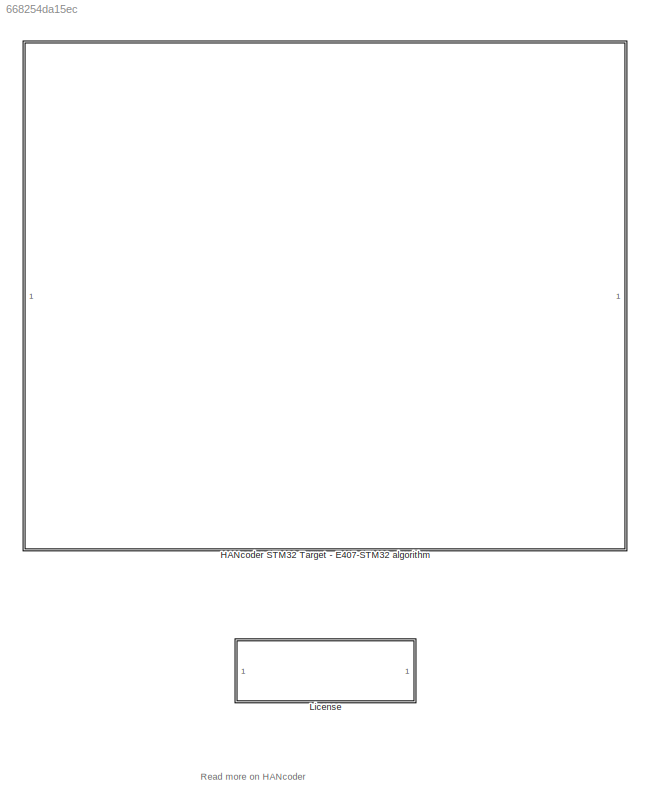
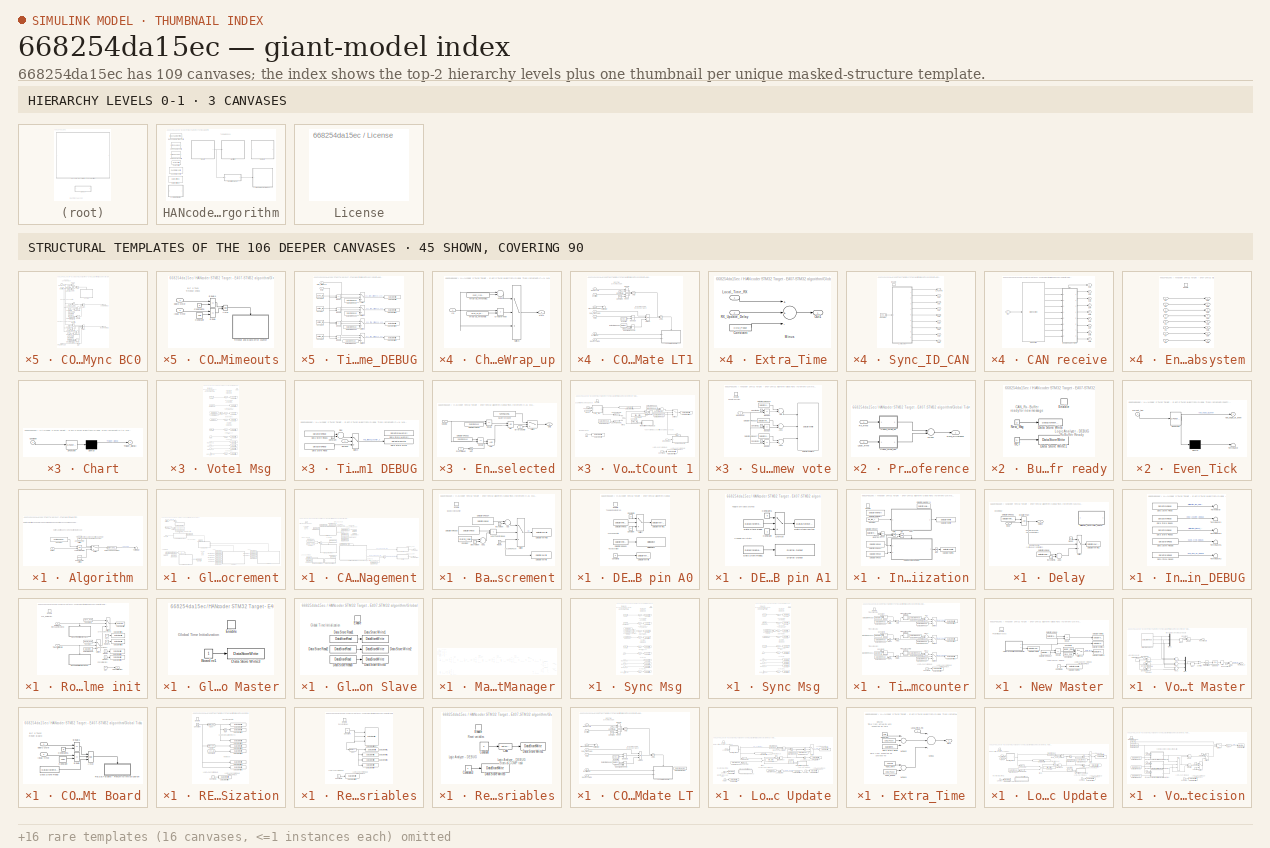
[diagram: thumbnail index - top-2 hierarchy levels (3 canvases) + 45 structural-template representatives of the remaining 106 canvases]
MODEL slx_668254da15ec
KIND model
CONFIG AbsTol = auto
CONFIG EnableMultiTasking = off
CONFIG FixedStep = 0.01
CONFIG MaxStep = auto
CONFIG MinStep = auto
CONFIG PreLoadFcn = librarySetup\neval([bdroot,'_startup']) %Calling [modelName]_startup.m
CONFIG RelTol = 1e-3
CONFIG SampleTimeConstraint = Unconstrained
CONFIG Solver = FixedStepDiscrete
CONFIG SolverName = FixedStepDiscrete
CONFIG StartTime = 0.0
CONFIG StopTime = 1
BLOCK [SubSystem] HANcoder STM32 Target - E407-STM32 algorithm
  CopyFcn = HANcoderChecks('Copy');
  MoveFcn = HANcoderChecks('MoveE407');
  NameChangeFcn = HANcoderChecks('NameChangeE407');
  Ports = []
  RequestExecContextInheritance = off
BLOCK [SubSystem] HANcoder STM32 Target - E407-STM32 algorithm/Algorithm
  Ports = [1]
  RequestExecContextInheritance = off
BLOCK [Reference] HANcoder STM32 Target - E407-STM32 algorithm/Algorithm/10Hz Counter Limiter  REF=simulink/Sources/Counter
Limited
  Ports = [0, 1]
  SourceBlock = simulink/Sources/Counter\nLimited
  SourceProductBaseCode = SL
  SourceProductName = Simulink
  SourceType = Counter Limited
BLOCK [Reference] HANcoder STM32 Target - E407-STM32 algorithm/Algorithm/5Hz Counter Limited  REF=simulink/Sources/Counter
Limited
  Ports = [0, 1]
  SourceBlock = simulink/Sources/Counter\nLimited
  SourceProductBaseCode = SL
  SourceProductName = Simulink
  SourceType = Counter Limited
BLOCK [Inport] HANcoder STM32 Target - E407-STM32 algorithm/Algorithm/Button
  IconDisplay = Port number
BLOCK [Constant] HANcoder STM32 Target - E407-STM32 algorithm/Algorithm/Constant
  OutDataTypeStr = boolean
  Value = HANtuneOverride
BLOCK [DataTypeConversion] HANcoder STM32 Target - E407-STM32 algorithm/Algorithm/Data Type Conversion
  OutDataTypeStr = boolean
  RndMeth = Floor
  SaturateOnIntegerOverflow = off
BLOCK [Logic] HANcoder STM32 Target - E407-STM32 algorithm/Algorithm/Logical Operator
  AllPortsSameDT = off
  Operator = OR
  OutDataTypeStr = boolean
  Ports = [2, 1]
BLOCK [Switch] HANcoder STM32 Target - E407-STM32 algorithm/Algorithm/Switch
  Criteria = u2 > Threshold
  InputSameDT = off
  SaturateOnIntegerOverflow = off
BLOCK [Terminator] HANcoder STM32 Target - E407-STM32 algorithm/Algorithm/Terminator
BLOCK [Reference] HANcoder STM32 Target - E407-STM32 algorithm/Base Sample Time config  REF=HANcoder_STM32_Target/STM32-E407/System Config/Base Sample Time config
  Description = HANcoder Target STM32-E407 blockset version 0.5
  Ports = []
  SourceBlock = HANcoder_STM32_Target/STM32-E407/System Config/Base Sample Time config
  SourceProductName = HANcoder STM32 Target
  SourceType = Base Sample Time config
  Tag = HANcoder_TARGET_STM32_E407
  UserDataPersistent = on
BLOCK [Reference] HANcoder STM32 Target - E407-STM32 algorithm/Build settings  REF=HANcoder_STM32_Target/STM32-E407/System Config/Build settings
  Ports = []
  SourceBlock = HANcoder_STM32_Target/STM32-E407/System Config/Build settings
  SourceProductName = HANcoder STM32 Target
  SourceType = Build Settings
  Tag = HANcoder_TARGET_STM32_E407
  UserDataPersistent = on
BLOCK [Reference] HANcoder STM32 Target - E407-STM32 algorithm/CAN config  REF=HANcoder_STM32_Target/STM32-E407/System Config/CAN config
  Ports = []
  SourceBlock = HANcoder_STM32_Target/STM32-E407/System Config/CAN config
  SourceProductName = HANcoder STM32 Target
  SourceType = CAN config
  Tag = HANcoder_TARGET_STM32_E407
  UserDataPersistent = on
BLOCK [Reference] HANcoder STM32 Target - E407-STM32 algorithm/Custom ID config  REF=HANcoder_STM32_Target/STM32-E407/System Config/Custom ID config
  Ports = []
  SourceBlock = HANcoder_STM32_Target/STM32-E407/System Config/Custom ID config
  SourceProductName = HANcoder STM32 Target
  SourceType = Custom ID config
  Tag = HANcoder_TARGET_STM32_E407
  UserDataPersistent = on
BLOCK [SubSystem] HANcoder STM32 Target - E407-STM32 algorithm/Global Ticks Increment
  Ports = [1]
  RequestExecContextInheritance = off
BLOCK [SubSystem] HANcoder STM32 Target - E407-STM32 algorithm/Global Ticks Increment/CAN Management
  Ports = [0, 2, 0, 1]
  RequestExecContextInheritance = off
BLOCK [SubSystem] HANcoder STM32 Target - E407-STM32 algorithm/Global Ticks Increment/CAN Management/Basic Cycle Increment
  Ports = [0, 0, 1]
  RequestExecContextInheritance = off
  TreatAsAtomicUnit = on
BLOCK [Sum] HANcoder STM32 Target - E407-STM32 algorithm/Global Ticks Increment/CAN Management/Basic Cycle Increment/Add
  InputSameDT = off
  OutDataTypeStr = Inherit: Inherit via internal rule
  Ports = [2, 1]
  SaturateOnIntegerOverflow = off
BLOCK [Sum] HANcoder STM32 Target - E407-STM32 algorithm/Global Ticks Increment/CAN Management/Basic Cycle Increment/Add1
  InputSameDT = off
  Inputs = +-
  OutDataTypeStr = Inherit: Inherit via internal rule
  Ports = [2, 1]
  SaturateOnIntegerOverflow = off
BLOCK [Constant] HANcoder STM32 Target - E407-STM32 algorithm/Global Ticks Increment/CAN Management/Basic Cycle Increment/Constant
  Value = matrix_rows
BLOCK [DataStoreRead] HANcoder STM32 Target - E407-STM32 algorithm/Global Ticks Increment/CAN Management/Basic Cycle Increment/Data Store Read4
  DataStoreName = basic_cycle_count
  Ports = [0, 1]
BLOCK [DataStoreRead] HANcoder STM32 Target - E407-STM32 algorithm/Global Ticks Increment/CAN Management/Basic Cycle Increment/Data Store Read5
  DataStoreName = basic_cycle_count
  Ports = [0, 1]
BLOCK [DataStoreWrite] HANcoder STM32 Target - E407-STM32 algorithm/Global Ticks Increment/CAN Management/Basic Cycle Increment/Data Store Write
  DataStoreName = Local_Ticks
  Ports = [1]
BLOCK [DataStoreWrite] HANcoder STM32 Target - E407-STM32 algorithm/Global Ticks Increment/CAN Management/Basic Cycle Increment/Data Store Write3
  DataStoreName = basic_cycle_count
  Ports = [1]
BLOCK [Constant] HANcoder STM32 Target - E407-STM32 algorithm/Global Ticks Increment/CAN Management/Basic Cycle Increment/Decrement
  OutDataTypeStr = uint8
BLOCK [EnablePort] HANcoder STM32 Target - E407-STM32 algorithm/Global Ticks Increment/CAN Management/Basic Cycle Increment/Enable
  Ports = []
BLOCK [Constant] HANcoder STM32 Target - E407-STM32 algorithm/Global Ticks Increment/CAN Management/Basic Cycle Increment/Increment
  OutDataTypeStr = uint8
BLOCK [RelationalOperator] HANcoder STM32 Target - E407-STM32 algorithm/Global Ticks Increment/CAN Management/Basic Cycle Increment/LessThanOrEqual
  InputSameDT = off
  Operator = <
  OutDataTypeStr = boolean
  Ports = [2, 1]
  RndMeth = Simplest
BLOCK [Constant] HANcoder STM32 Target - E407-STM32 algorithm/Global Ticks Increment/CAN Management/Basic Cycle Increment/Reset
  OutDataTypeStr = uint16
  Value = 0
BLOCK [Switch] HANcoder STM32 Target - E407-STM32 algorithm/Global Ticks Increment/CAN Management/Basic Cycle Increment/Switch
  Criteria = u2 > Threshold
  InputSameDT = off
  SaturateOnIntegerOverflow = off
BLOCK [SubSystem] HANcoder STM32 Target - E407-STM32 algorithm/Global Ticks Increment/CAN Management/Chart
  ErrorFcn = Stateflow.Translate.translate
  PermitHierarchicalResolution = ExplicitOnly
  Ports = [1, 1]
  RequestExecContextInheritance = off
  SFBlockType = Chart
  TreatAsAtomicUnit = on
BLOCK [Demux] HANcoder STM32 Target - E407-STM32 algorithm/Global Ticks Increment/CAN Management/Chart/ Demux 
  Outputs = 1
  Ports = [1, 1]
BLOCK [S-Function] HANcoder STM32 Target - E407-STM32 algorithm/Global Ticks Increment/CAN Management/Chart/ SFunction 
  EnableBusSupport = on
  FunctionName = sf_sfun
  PortCounts = [1 1]
  Ports = [1, 1]
  SFcnIsStateOwnerBlock = off
  SFunctionDeploymentMode = off
  Tag = Stateflow S-Function HANcoder_E407_GTSync_v4 4
BLOCK [Inport] HANcoder STM32 Target - E407-STM32 algorithm/Global Ticks Increment/CAN Management/Chart/Condition
  IconDisplay = Port number
BLOCK [Outport] HANcoder STM32 Target - E407-STM32 algorithm/Global Ticks Increment/CAN Management/Chart/Trigger_Signal()
  IconDisplay = Port number
BLOCK [SubSystem] HANcoder STM32 Target - E407-STM32 algorithm/Global Ticks Increment/CAN Management/Chart1
  ErrorFcn = Stateflow.Translate.translate
  PermitHierarchicalResolution = ExplicitOnly
  Ports = [1, 1]
  RequestExecContextInheritance = off
  SFBlockType = Chart
  TreatAsAtomicUnit = on
BLOCK [Demux] HANcoder STM32 Target - E407-STM32 algorithm/Global Ticks Increment/CAN Management/Chart1/ Demux 
  Outputs = 1
  Ports = [1, 1]
BLOCK [S-Function] HANcoder STM32 Target - E407-STM32 algorithm/Global Ticks Increment/CAN Management/Chart1/ SFunction 
  EnableBusSupport = on
  FunctionName = sf_sfun
  PortCounts = [1 1]
  Ports = [1, 1]
  SFcnIsStateOwnerBlock = off
  SFunctionDeploymentMode = off
  Tag = Stateflow S-Function HANcoder_E407_GTSync_v4 5
BLOCK [Inport] HANcoder STM32 Target - E407-STM32 algorithm/Global Ticks Increment/CAN Management/Chart1/Condition
  IconDisplay = Port number
BLOCK [Outport] HANcoder STM32 Target - E407-STM32 algorithm/Global Ticks Increment/CAN Management/Chart1/Trigger_Signal()
  IconDisplay = Port number
BLOCK [Constant] HANcoder STM32 Target - E407-STM32 algorithm/Global Ticks Increment/CAN Management/Constant
  Value = basic_cycle_duration
BLOCK [SubSystem] HANcoder STM32 Target - E407-STM32 algorithm/Global Ticks Increment/CAN Management/DEBUG - Toggle digital pin A0
  Ports = [0, 0, 1]
  RequestExecContextInheritance = off
BLOCK [Constant] HANcoder STM32 Target - E407-STM32 algorithm/Global Ticks Increment/CAN Management/DEBUG - Toggle digital pin A0/Constant
  OutDataTypeStr = boolean
BLOCK [Constant] HANcoder STM32 Target - E407-STM32 algorithm/Global Ticks Increment/CAN Management/DEBUG - Toggle digital pin A0/Constant1
  OutDataTypeStr = boolean
  Value = 0
BLOCK [Constant] HANcoder STM32 Target - E407-STM32 algorithm/Global Ticks Increment/CAN Management/DEBUG - Toggle digital pin A0/Constant2
  OutDataTypeStr = boolean
  Value = 0
BLOCK [DataStoreRead] HANcoder STM32 Target - E407-STM32 algorithm/Global Ticks Increment/CAN Management/DEBUG - Toggle digital pin A0/Data Store Read
  DataStoreName = A0_Pin_State
  Ports = [0, 1]
BLOCK [DataStoreRead] HANcoder STM32 Target - E407-STM32 algorithm/Global Ticks Increment/CAN Management/DEBUG - Toggle digital pin A0/Data Store Read1
  DataStoreName = A0_Pin_State
  Ports = [0, 1]
BLOCK [DataStoreWrite] HANcoder STM32 Target - E407-STM32 algorithm/Global Ticks Increment/CAN Management/DEBUG - Toggle digital pin A0/Data Store Write
  DataStoreName = Toggle_Pin
  Ports = [1]
BLOCK [DataStoreWrite] HANcoder STM32 Target - E407-STM32 algorithm/Global Ticks Increment/CAN Management/DEBUG - Toggle digital pin A0/Data Store Write1
  DataStoreName = A0_Pin_State
  Ports = [1]
BLOCK [Reference] HANcoder STM32 Target - E407-STM32 algorithm/Global Ticks Increment/CAN Management/DEBUG - Toggle digital pin A0/Digital Output  REF=HANcoder_STM32_Target/STM32-E407/Digital Outputs/Digital Output
  Ports = [1]
  SourceBlock = HANcoder_STM32_Target/STM32-E407/Digital Outputs/Digital Output
  SourceProductName = HANcoder STM32 Target
  SourceType = Digital Output
  Tag = HANcoder_TARGET_STM32_E407
  UserDataPersistent = on
BLOCK [EnablePort] HANcoder STM32 Target - E407-STM32 algorithm/Global Ticks Increment/CAN Management/DEBUG - Toggle digital pin A0/Enable
  Ports = []
BLOCK [Switch] HANcoder STM32 Target - E407-STM32 algorithm/Global Ticks Increment/CAN Management/DEBUG - Toggle digital pin A0/Switch
  Criteria = u2 > Threshold
  InputSameDT = off
  SaturateOnIntegerOverflow = off
BLOCK [SubSystem] HANcoder STM32 Target - E407-STM32 algorithm/Global Ticks Increment/CAN Management/DEBUG - Toggle digital pin A1
  Ports = []
  RequestExecContextInheritance = off
BLOCK [Constant] HANcoder STM32 Target - E407-STM32 algorithm/Global Ticks Increment/CAN Management/DEBUG - Toggle digital pin A1/Constant
  OutDataTypeStr = boolean
BLOCK [Constant] HANcoder STM32 Target - E407-STM32 algorithm/Global Ticks Increment/CAN Management/DEBUG - Toggle digital pin A1/Constant1
  OutDataTypeStr = boolean
  Value = 0
BLOCK [DataStoreRead] HANcoder STM32 Target - E407-STM32 algorithm/Global Ticks Increment/CAN Management/DEBUG - Toggle digital pin A1/Data Store Read
  DataStoreName = A1_Pin_State
  Ports = [0, 1]
BLOCK [DataStoreRead] HANcoder STM32 Target - E407-STM32 algorithm/Global Ticks Increment/CAN Management/DEBUG - Toggle digital pin A1/Data Store Read1
  DataStoreName = A1_Pin_State
  Ports = [0, 1]
BLOCK [DataStoreWrite] HANcoder STM32 Target - E407-STM32 algorithm/Global Ticks Increment/CAN Management/DEBUG - Toggle digital pin A1/Data Store Write1
  DataStoreName = A1_Pin_State
  Ports = [1]
BLOCK [Reference] HANcoder STM32 Target - E407-STM32 algorithm/Global Ticks Increment/CAN Management/DEBUG - Toggle digital pin A1/Digital Output  REF=HANcoder_STM32_Target/STM32-E407/Digital Outputs/Digital Output
  Ports = [1]
  SourceBlock = HANcoder_STM32_Target/STM32-E407/Digital Outputs/Digital Output
  SourceProductName = HANcoder STM32 Target
  SourceType = Digital Output
  Tag = HANcoder_TARGET_STM32_E407
  UserDataPersistent = on
BLOCK [Switch] HANcoder STM32 Target - E407-STM32 algorithm/Global Ticks Increment/CAN Management/DEBUG - Toggle digital pin A1/Switch
  Criteria = u2 > Threshold
  InputSameDT = off
  SaturateOnIntegerOverflow = off
BLOCK [DataStoreMemory] HANcoder STM32 Target - E407-STM32 algorithm/Global Ticks Increment/CAN Management/Data Store Memory
  DataStoreName = A0_Pin_State
  OutDataTypeStr = boolean
  ReadBeforeWriteMsg = warning
  ShowAdditionalParam = off
  WriteAfterReadMsg = warning
  WriteAfterWriteMsg = warning
BLOCK [DataStoreMemory] HANcoder STM32 Target - E407-STM32 algorithm/Global Ticks Increment/CAN Management/Data Store Memory1
  DataStoreName = A1_Pin_State
  OutDataTypeStr = boolean
  ReadBeforeWriteMsg = warning
  ShowAdditionalParam = off
  WriteAfterReadMsg = warning
  WriteAfterWriteMsg = warning
BLOCK [DataStoreMemory] HANcoder STM32 Target - E407-STM32 algorithm/Global Ticks Increment/CAN Management/Data Store Memory10
  DataStoreName = sync_processed
  OutDataTypeStr = boolean
  ReadBeforeWriteMsg = warning
  ShowAdditionalParam = off
  WriteAfterReadMsg = warning
  WriteAfterWriteMsg = warning
BLOCK [DataStoreMemory] HANcoder STM32 Target - E407-STM32 algorithm/Global Ticks Increment/CAN Management/Data Store Memory11
  DataStoreName = basic_cycle_count
  ReadBeforeWriteMsg = warning
  ShowAdditionalParam = off
  WriteAfterReadMsg = warning
  WriteAfterWriteMsg = warning
BLOCK [DataStoreMemory] HANcoder STM32 Target - E407-STM32 algorithm/Global Ticks Increment/CAN Management/Data Store Memory12
  DataStoreName = Vote
  OutDataTypeStr = uint8
  ReadBeforeWriteMsg = warning
  ShowAdditionalParam = off
  WriteAfterReadMsg = warning
  WriteAfterWriteMsg = warning
BLOCK [DataStoreMemory] HANcoder STM32 Target - E407-STM32 algorithm/Global Ticks Increment/CAN Management/Data Store Memory13
  DataStoreName = Initialization_flag
  InitialValue = 1
  OutDataTypeStr = boolean
  ReadBeforeWriteMsg = warning
  ShowAdditionalParam = off
  WriteAfterReadMsg = warning
  WriteAfterWriteMsg = warning
BLOCK [DataStoreMemory] HANcoder STM32 Target - E407-STM32 algorithm/Global Ticks Increment/CAN Management/Data Store Memory2
  DataStoreName = Role_ID
  ReadBeforeWriteMsg = warning
  ShowAdditionalParam = off
  WriteAfterReadMsg = warning
  WriteAfterWriteMsg = warning
BLOCK [DataStoreMemory] HANcoder STM32 Target - E407-STM32 algorithm/Global Ticks Increment/CAN Management/Data Store Memory6
  DataStoreName = BC0_TM1_processed
  OutDataTypeStr = boolean
  ReadBeforeWriteMsg = warning
  ShowAdditionalParam = off
  WriteAfterReadMsg = warning
  WriteAfterWriteMsg = warning
BLOCK [DataStoreMemory] HANcoder STM32 Target - E407-STM32 algorithm/Global Ticks Increment/CAN Management/Data Store Memory7
  DataStoreName = BC0_TM2_processed
  OutDataTypeStr = boolean
  ReadBeforeWriteMsg = warning
  ShowAdditionalParam = off
  WriteAfterReadMsg = warning
  WriteAfterWriteMsg = warning
BLOCK [DataStoreMemory] HANcoder STM32 Target - E407-STM32 algorithm/Global Ticks Increment/CAN Management/Data Store Memory8
  DataStoreName = BC0_TM3_processed
  OutDataTypeStr = boolean
  ReadBeforeWriteMsg = warning
  ShowAdditionalParam = off
  WriteAfterReadMsg = warning
  WriteAfterWriteMsg = warning
BLOCK [DataStoreMemory] HANcoder STM32 Target - E407-STM32 algorithm/Global Ticks Increment/CAN Management/Data Store Memory9
  DataStoreName = votes
  OutDataTypeStr = Bus: vote_array
  ReadBeforeWriteMsg = warning
  ShowAdditionalParam = off
  WriteAfterReadMsg = warning
  WriteAfterWriteMsg = warning
BLOCK [DataStoreRead] HANcoder STM32 Target - E407-STM32 algorithm/Global Ticks Increment/CAN Management/Data Store Read
  DataStoreName = Initialization_flag
  Ports = [0, 1]
BLOCK [DataStoreRead] HANcoder STM32 Target - E407-STM32 algorithm/Global Ticks Increment/CAN Management/Data Store Read1
  DataStoreName = Initialization_flag
  Ports = [0, 1]
BLOCK [DataStoreRead] HANcoder STM32 Target - E407-STM32 algorithm/Global Ticks Increment/CAN Management/Data Store Read2
  DataStoreName = Toggle_Pin
  Ports = [0, 1]
BLOCK [DataStoreRead] HANcoder STM32 Target - E407-STM32 algorithm/Global Ticks Increment/CAN Management/Data Store Read4
  DataStoreName = Local_Ticks
  Ports = [0, 1]
BLOCK [DataStoreRead] HANcoder STM32 Target - E407-STM32 algorithm/Global Ticks Increment/CAN Management/Data Store Read8
  DataStoreName = Initialization_flag
  Ports = [0, 1]
BLOCK [RelationalOperator] HANcoder STM32 Target - E407-STM32 algorithm/Global Ticks Increment/CAN Management/Equal
  InputSameDT = off
  Operator = ==
  OutDataTypeStr = boolean
  Ports = [2, 1]
  RndMeth = Simplest
BLOCK [SubSystem] HANcoder STM32 Target - E407-STM32 algorithm/Global Ticks Increment/CAN Management/Initialization
  Ports = [0, 0, 1]
  RequestExecContextInheritance = off
BLOCK [Logic] HANcoder STM32 Target - E407-STM32 algorithm/Global Ticks Increment/CAN Management/Initialization/AND
  AllPortsSameDT = off
  IconShape = distinctive
  OutDataTypeStr = boolean
  Ports = [2, 1]
BLOCK [Constant] HANcoder STM32 Target - E407-STM32 algorithm/Global Ticks Increment/CAN Management/Initialization/Board nr1
BLOCK [Constant] HANcoder STM32 Target - E407-STM32 algorithm/Global Ticks Increment/CAN Management/Initialization/Constant
  Value = idle_time_init
BLOCK [DataStoreMemory] HANcoder STM32 Target - E407-STM32 algorithm/Global Ticks Increment/CAN Management/Initialization/Data Store Memory
  DataStoreName = Initialization_Timeout
  OutDataTypeStr = boolean
  ReadBeforeWriteMsg = warning
  ShowAdditionalParam = off
  WriteAfterReadMsg = warning
  WriteAfterWriteMsg = warning
BLOCK [DataStoreMemory] HANcoder STM32 Target - E407-STM32 algorithm/Global Ticks Increment/CAN Management/Initialization/Data Store Memory1
  DataStoreName = Delay_Counter
  OutDataTypeStr = double
  ReadBeforeWriteMsg = warning
  ShowAdditionalParam = off
  WriteAfterReadMsg = warning
  WriteAfterWriteMsg = warning
BLOCK [DataStoreRead] HANcoder STM32 Target - E407-STM32 algorithm/Global Ticks Increment/CAN Management/Initialization/Data Store Read
  DataStoreName = New_Msg_Ready
  Ports = [0, 1]
BLOCK [DataStoreRead] HANcoder STM32 Target - E407-STM32 algorithm/Global Ticks Increment/CAN Management/Initialization/Data Store Read1
  DataStoreName = Initialization_Timeout
  Ports = [0, 1]
BLOCK [DataStoreRead] HANcoder STM32 Target - E407-STM32 algorithm/Global Ticks Increment/CAN Management/Initialization/Data Store Read4
  DataStoreName = Board_ID
  Ports = [0, 1]
BLOCK [DataStoreWrite] HANcoder STM32 Target - E407-STM32 algorithm/Global Ticks Increment/CAN Management/Initialization/Data Store Write
  DataStoreName = Initialization_Timeout
  Ports = [1]
BLOCK [DataStoreWrite] HANcoder STM32 Target - E407-STM32 algorithm/Global Ticks Increment/CAN Management/Initialization/Data Store Write1
  DataStoreName = Initialization_flag
  Ports = [1]
BLOCK [SubSystem] HANcoder STM32 Target - E407-STM32 algorithm/Global Ticks Increment/CAN Management/Initialization/Delay
  Ports = [1, 1]
  RequestExecContextInheritance = off
BLOCK [Sum] HANcoder STM32 Target - E407-STM32 algorithm/Global Ticks Increment/CAN Management/Initialization/Delay/Add2
  InputSameDT = off
  OutDataTypeStr = Inherit: Inherit via internal rule
  Ports = [2, 1]
  SaturateOnIntegerOverflow = off
BLOCK [DataStoreRead] HANcoder STM32 Target - E407-STM32 algorithm/Global Ticks Increment/CAN Management/Initialization/Delay/Data Store Read
  DataStoreName = Delay_Counter
  Ports = [0, 1]
BLOCK [DataStoreRead] HANcoder STM32 Target - E407-STM32 algorithm/Global Ticks Increment/CAN Management/Initialization/Delay/Data Store Read1
  DataStoreName = Delay_Counter
  Ports = [0, 1]
BLOCK [DataStoreWrite] HANcoder STM32 Target - E407-STM32 algorithm/Global Ticks Increment/CAN Management/Initialization/Delay/Data Store Write2
  DataStoreName = Delay_Counter
  Ports = [1]
BLOCK [RelationalOperator] HANcoder STM32 Target - E407-STM32 algorithm/Global Ticks Increment/CAN Management/Initialization/Delay/GreaterThan
  InputSameDT = off
  OutDataTypeStr = boolean
  Ports = [2, 1]
  RndMeth = Simplest
BLOCK [Constant] HANcoder STM32 Target - E407-STM32 algorithm/Global Ticks Increment/CAN Management/Initialization/Delay/Increment1
  OutDataTypeStr = double
BLOCK [SubSystem] HANcoder STM32 Target - E407-STM32 algorithm/Global Ticks Increment/CAN Management/Initialization/Delay/Initializaton_Observation_DEBUG
  Ports = []
  RequestExecContextInheritance = off
BLOCK [DataStoreRead] HANcoder STM32 Target - E407-STM32 algorithm/Global Ticks Increment/CAN Management/Initialization/Delay/Initializaton_Observation_DEBUG/Data Store Read
  DataStoreName = Initialization_flag
  Ports = [0, 1]
BLOCK [DataStoreRead] HANcoder STM32 Target - E407-STM32 algorithm/Global Ticks Increment/CAN Management/Initialization/Delay/Initializaton_Observation_DEBUG/Data Store Read1
  DataStoreName = Delay_Counter
  Ports = [0, 1]
BLOCK [DataStoreRead] HANcoder STM32 Target - E407-STM32 algorithm/Global Ticks Increment/CAN Management/Initialization/Delay/Initializaton_Observation_DEBUG/Data Store Read2
  DataStoreName = New_Msg_Ready
  Ports = [0, 1]
BLOCK [DataStoreRead] HANcoder STM32 Target - E407-STM32 algorithm/Global Ticks Increment/CAN Management/Initialization/Delay/Initializaton_Observation_DEBUG/Data Store Read3
  DataStoreName = Initialization_Timeout
  Ports = [0, 1]
BLOCK [DataStoreRead] HANcoder STM32 Target - E407-STM32 algorithm/Global Ticks Increment/CAN Management/Initialization/Delay/Initializaton_Observation_DEBUG/Data Store Read5
  DataStoreName = basic_cycle_count
  Ports = [0, 1]
BLOCK [Terminator] HANcoder STM32 Target - E407-STM32 algorithm/Global Ticks Increment/CAN Management/Initialization/Delay/Initializaton_Observation_DEBUG/Terminator
BLOCK [Terminator] HANcoder STM32 Target - E407-STM32 algorithm/Global Ticks Increment/CAN Management/Initialization/Delay/Initializaton_Observation_DEBUG/Terminator1
BLOCK [Terminator] HANcoder STM32 Target - E407-STM32 algorithm/Global Ticks Increment/CAN Management/Initialization/Delay/Initializaton_Observation_DEBUG/Terminator2
BLOCK [Terminator] HANcoder STM32 Target - E407-STM32 algorithm/Global Ticks Increment/CAN Management/Initialization/Delay/Initializaton_Observation_DEBUG/Terminator3
BLOCK [Terminator] HANcoder STM32 Target - E407-STM32 algorithm/Global Ticks Increment/CAN Management/Initialization/Delay/Initializaton_Observation_DEBUG/Terminator5
BLOCK [Inport] HANcoder STM32 Target - E407-STM32 algorithm/Global Ticks Increment/CAN Management/Initialization/Delay/Input
  IconDisplay = Port number
BLOCK [Outport] HANcoder STM32 Target - E407-STM32 algorithm/Global Ticks Increment/CAN Management/Initialization/Delay/Output
  IconDisplay = Port number
BLOCK [Constant] HANcoder STM32 Target - E407-STM32 algorithm/Global Ticks Increment/CAN Management/Initialization/Delay/Reset
  OutDataTypeStr = double
  Value = -1
BLOCK [Switch] HANcoder STM32 Target - E407-STM32 algorithm/Global Ticks Increment/CAN Management/Initialization/Delay/Switch
  Criteria = u2 > Threshold
  InputSameDT = off
  SaturateOnIntegerOverflow = off
BLOCK [EnablePort] HANcoder STM32 Target - E407-STM32 algorithm/Global Ticks Increment/CAN Management/Initialization/Enable
  Ports = []
  PropagateVarSize = During execution
BLOCK [RelationalOperator] HANcoder STM32 Target - E407-STM32 algorithm/Global Ticks Increment/CAN Management/Initialization/Equal
  InputSameDT = off
  Operator = ==
  OutDataTypeStr = boolean
  Ports = [2, 1]
  RndMeth = Simplest
BLOCK [Logic] HANcoder STM32 Target - E407-STM32 algorithm/Global Ticks Increment/CAN Management/Initialization/NOT
  AllPortsSameDT = off
  IconShape = distinctive
  Operator = NOT
  OutDataTypeStr = boolean
  Ports = [1, 1]
BLOCK [Logic] HANcoder STM32 Target - E407-STM32 algorithm/Global Ticks Increment/CAN Management/Initialization/OR
  AllPortsSameDT = off
  IconShape = distinctive
  Operator = OR
  OutDataTypeStr = boolean
  Ports = [2, 1]
BLOCK [SubSystem] HANcoder STM32 Target - E407-STM32 algorithm/Global Ticks Increment/CAN Management/Initialization/RoleID and Global Time init
  Ports = [2, 1, 1]
  RequestExecContextInheritance = off
  TreatAsAtomicUnit = on
BLOCK [Constant] HANcoder STM32 Target - E407-STM32 algorithm/Global Ticks Increment/CAN Management/Initialization/RoleID and Global Time init/Constant
  Value = Master_Role
BLOCK [Constant] HANcoder STM32 Target - E407-STM32 algorithm/Global Ticks Increment/CAN Management/Initialization/RoleID and Global Time init/Constant1
  Value = Slave_Role
BLOCK [DataStoreRead] HANcoder STM32 Target - E407-STM32 algorithm/Global Ticks Increment/CAN Management/Initialization/RoleID and Global Time init/Data Store Read
  DataStoreName = Role_ID
  Ports = [0, 1]
BLOCK [DataStoreWrite] HANcoder STM32 Target - E407-STM32 algorithm/Global Ticks Increment/CAN Management/Initialization/RoleID and Global Time init/Data Store Write
  DataStoreName = Role_ID
  Ports = [1]
BLOCK [DataStoreWrite] HANcoder STM32 Target - E407-STM32 algorithm/Global Ticks Increment/CAN Management/Initialization/RoleID and Global Time init/Data Store Write1
  DataStoreName = sync_processed
  Ports = [1]
BLOCK [DataStoreWrite] HANcoder STM32 Target - E407-STM32 algorithm/Global Ticks Increment/CAN Management/Initialization/RoleID and Global Time init/Data Store Write2
  DataStoreName = Delay_Counter
  Ports = [1]
BLOCK [DataStoreWrite] HANcoder STM32 Target - E407-STM32 algorithm/Global Ticks Increment/CAN Management/Initialization/RoleID and Global Time init/Data Store Write3
  DataStoreName = New_Msg_Ready
  Ports = [1]
BLOCK [DataStoreWrite] HANcoder STM32 Target - E407-STM32 algorithm/Global Ticks Increment/CAN Management/Initialization/RoleID and Global Time init/Data Store Write4
  DataStoreName = Initialization_Timeout
  Ports = [1]
BLOCK [EnablePort] HANcoder STM32 Target - E407-STM32 algorithm/Global Ticks Increment/CAN Management/Initialization/RoleID and Global Time init/Enable
  Ports = []
BLOCK [Outport] HANcoder STM32 Target - E407-STM32 algorithm/Global Ticks Increment/CAN Management/Initialization/RoleID and Global Time init/Finish Initialization
  IconDisplay = Port number
  InitialOutput = 0
  OutputWhenDisabled = reset
BLOCK [SubSystem] HANcoder STM32 Target - E407-STM32 algorithm/Global Ticks Increment/CAN Management/Initialization/RoleID and Global Time init/Global Time Initialization Master
  Ports = [0, 0, 1]
  RequestExecContextInheritance = off
BLOCK [Constant] HANcoder STM32 Target - E407-STM32 algorithm/Global Ticks Increment/CAN Management/Initialization/RoleID and Global Time init/Global Time Initialization Master/Board nr1
BLOCK [DataStoreWrite] HANcoder STM32 Target - E407-STM32 algorithm/Global Ticks Increment/CAN Management/Initialization/RoleID and Global Time init/Global Time Initialization Master/Data Store Write3
  DataStoreName = Master_ID
  Ports = [1]
BLOCK [EnablePort] HANcoder STM32 Target - E407-STM32 algorithm/Global Ticks Increment/CAN Management/Initialization/RoleID and Global Time init/Global Time Initialization Master/Enable
  Ports = []
BLOCK [SubSystem] HANcoder STM32 Target - E407-STM32 algorithm/Global Ticks Increment/CAN Management/Initialization/RoleID and Global Time init/Global Time Initialization Slave
  Ports = [0, 0, 1]
  RequestExecContextInheritance = off
BLOCK [DataStoreRead] HANcoder STM32 Target - E407-STM32 algorithm/Global Ticks Increment/CAN Management/Initialization/RoleID and Global Time init/Global Time Initialization Slave/Data Store Read1
  DataStoreName = Local_Ticks_Rx
  Ports = [0, 1]
BLOCK [DataStoreRead] HANcoder STM32 Target - E407-STM32 algorithm/Global Ticks Increment/CAN Management/Initialization/RoleID and Global Time init/Global Time Initialization Slave/Data Store Read2
  DataStoreName = Basic_Cycle_Rx
  Ports = [0, 1]
BLOCK [DataStoreRead] HANcoder STM32 Target - E407-STM32 algorithm/Global Ticks Increment/CAN Management/Initialization/RoleID and Global Time init/Global Time Initialization Slave/Data Store Read3
  DataStoreName = Msg_Header_Rx
  Ports = [0, 1]
BLOCK [DataStoreWrite] HANcoder STM32 Target - E407-STM32 algorithm/Global Ticks Increment/CAN Management/Initialization/RoleID and Global Time init/Global Time Initialization Slave/Data Store Write1
  DataStoreName = Local_Ticks
  Ports = [1]
BLOCK [DataStoreWrite] HANcoder STM32 Target - E407-STM32 algorithm/Global Ticks Increment/CAN Management/Initialization/RoleID and Global Time init/Global Time Initialization Slave/Data Store Write2
  DataStoreName = basic_cycle_count
  Ports = [1]
BLOCK [DataStoreWrite] HANcoder STM32 Target - E407-STM32 algorithm/Global Ticks Increment/CAN Management/Initialization/RoleID and Global Time init/Global Time Initialization Slave/Data Store Write3
  DataStoreName = Master_ID
  Ports = [1]
BLOCK [EnablePort] HANcoder STM32 Target - E407-STM32 algorithm/Global Ticks Increment/CAN Management/Initialization/RoleID and Global Time init/Global Time Initialization Slave/Enable
  Ports = []
BLOCK [Constant] HANcoder STM32 Target - E407-STM32 algorithm/Global Ticks Increment/CAN Management/Initialization/RoleID and Global Time init/RESET
  OutDataTypeStr = boolean
  Value = 0
BLOCK [Constant] HANcoder STM32 Target - E407-STM32 algorithm/Global Ticks Increment/CAN Management/Initialization/RoleID and Global Time init/RESET1
  OutDataTypeStr = double
  Value = 0
BLOCK [Constant] HANcoder STM32 Target - E407-STM32 algorithm/Global Ticks Increment/CAN Management/Initialization/RoleID and Global Time init/RESET2
  OutDataTypeStr = boolean
  Value = 0
BLOCK [Inport] HANcoder STM32 Target - E407-STM32 algorithm/Global Ticks Increment/CAN Management/Initialization/RoleID and Global Time init/Reference message received
  IconDisplay = Port number
  Port = 2
BLOCK [Constant] HANcoder STM32 Target - E407-STM32 algorithm/Global Ticks Increment/CAN Management/Initialization/RoleID and Global Time init/SET
BLOCK [Constant] HANcoder STM32 Target - E407-STM32 algorithm/Global Ticks Increment/CAN Management/Initialization/RoleID and Global Time init/SET1
  OutDataTypeStr = boolean
BLOCK [Switch] HANcoder STM32 Target - E407-STM32 algorithm/Global Ticks Increment/CAN Management/Initialization/RoleID and Global Time init/Switch1
  Criteria = u2 > Threshold
  InputSameDT = off
  SaturateOnIntegerOverflow = off
BLOCK [Switch] HANcoder STM32 Target - E407-STM32 algorithm/Global Ticks Increment/CAN Management/Initialization/RoleID and Global Time init/Switch2
  Criteria = u2 > Threshold
  InputSameDT = off
  SaturateOnIntegerOverflow = off
BLOCK [Inport] HANcoder STM32 Target - E407-STM32 algorithm/Global Ticks Increment/CAN Management/Initialization/RoleID and Global Time init/Timeout Initialization
  IconDisplay = Port number
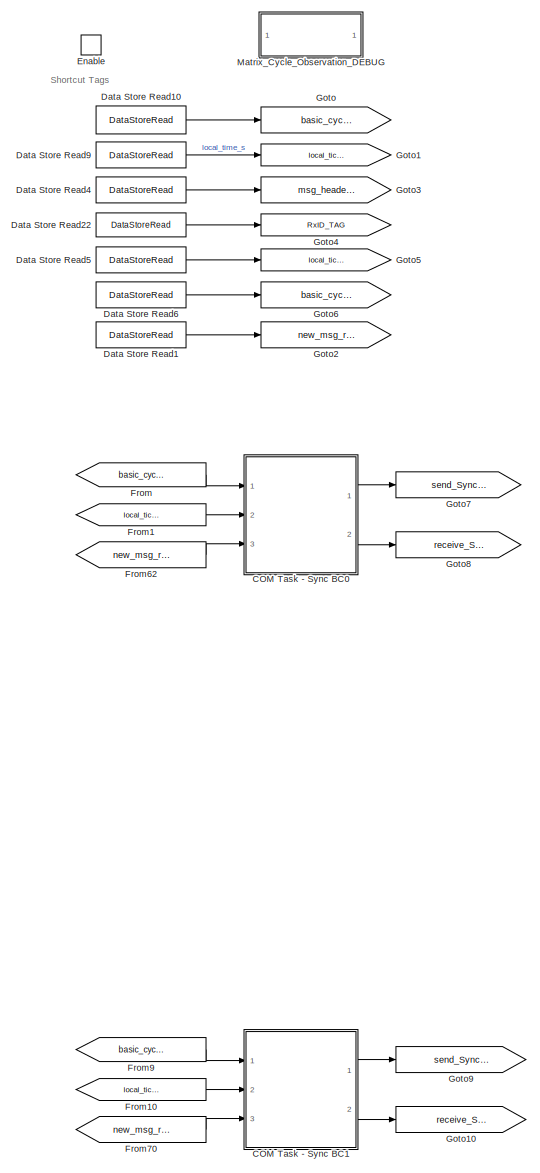
[diagram: HANcoder STM32 Target - E407-STM32 algorithm/Global Ticks Increment/CAN Management/Matrix Cycle Manager - part 1/6, left side, full height]
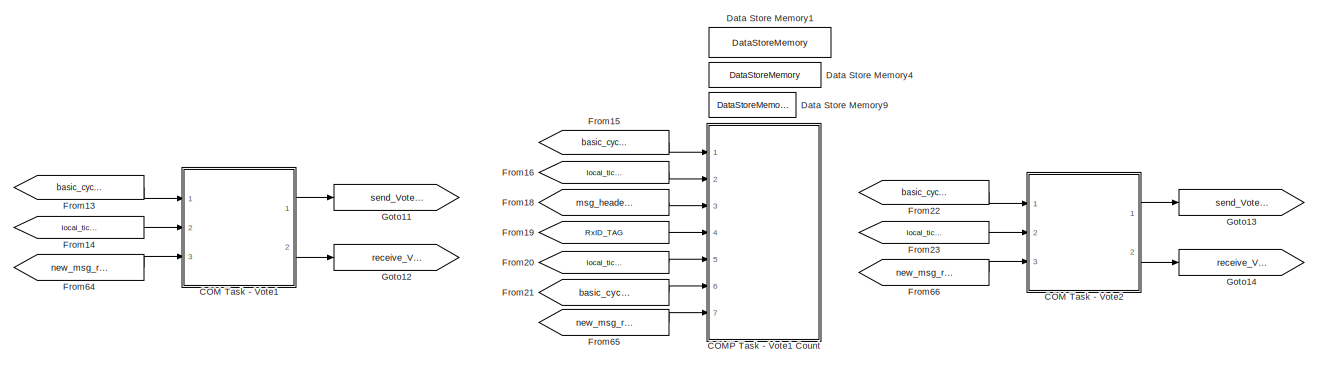
[diagram: HANcoder STM32 Target - E407-STM32 algorithm/Global Ticks Increment/CAN Management/Matrix Cycle Manager - part 2/6, central region]
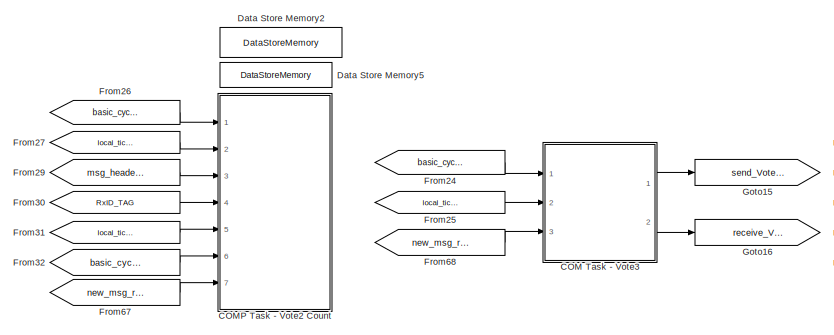
[diagram: HANcoder STM32 Target - E407-STM32 algorithm/Global Ticks Increment/CAN Management/Matrix Cycle Manager - part 3/6, central region]
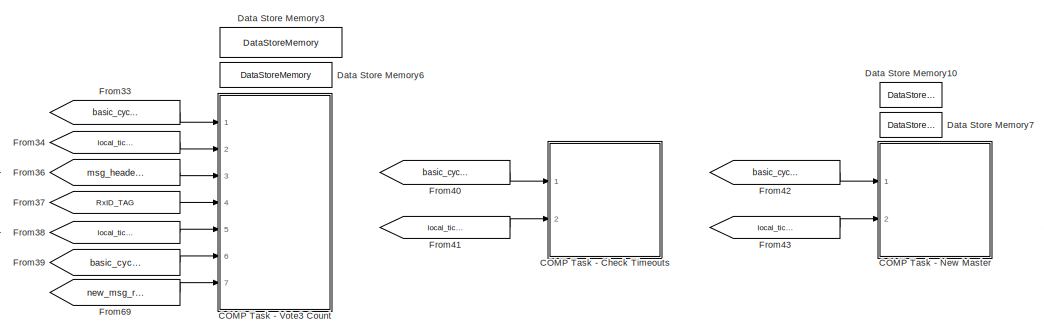
[diagram: HANcoder STM32 Target - E407-STM32 algorithm/Global Ticks Increment/CAN Management/Matrix Cycle Manager - part 4/6, middle right region]
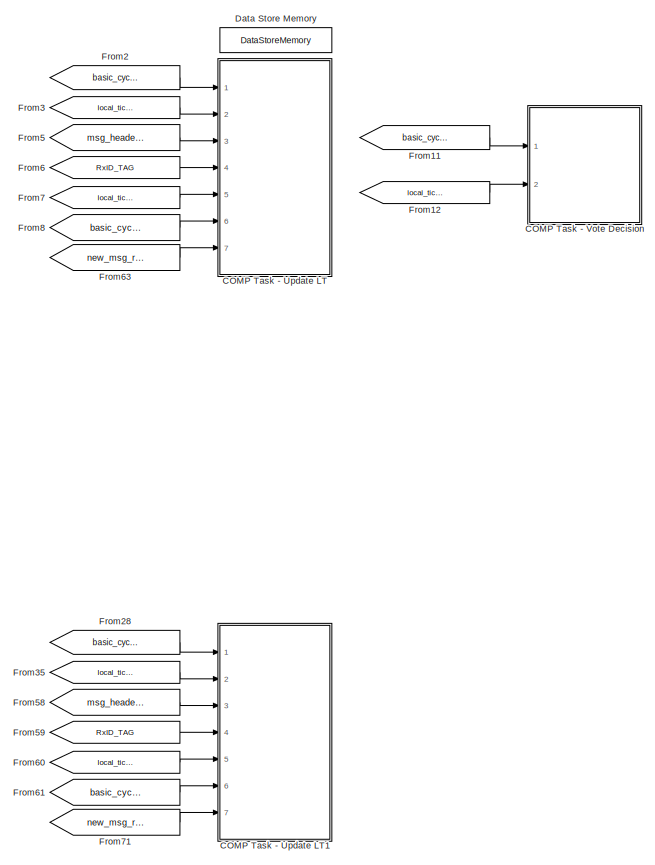
[diagram: HANcoder STM32 Target - E407-STM32 algorithm/Global Ticks Increment/CAN Management/Matrix Cycle Manager - part 5/6, middle left region]
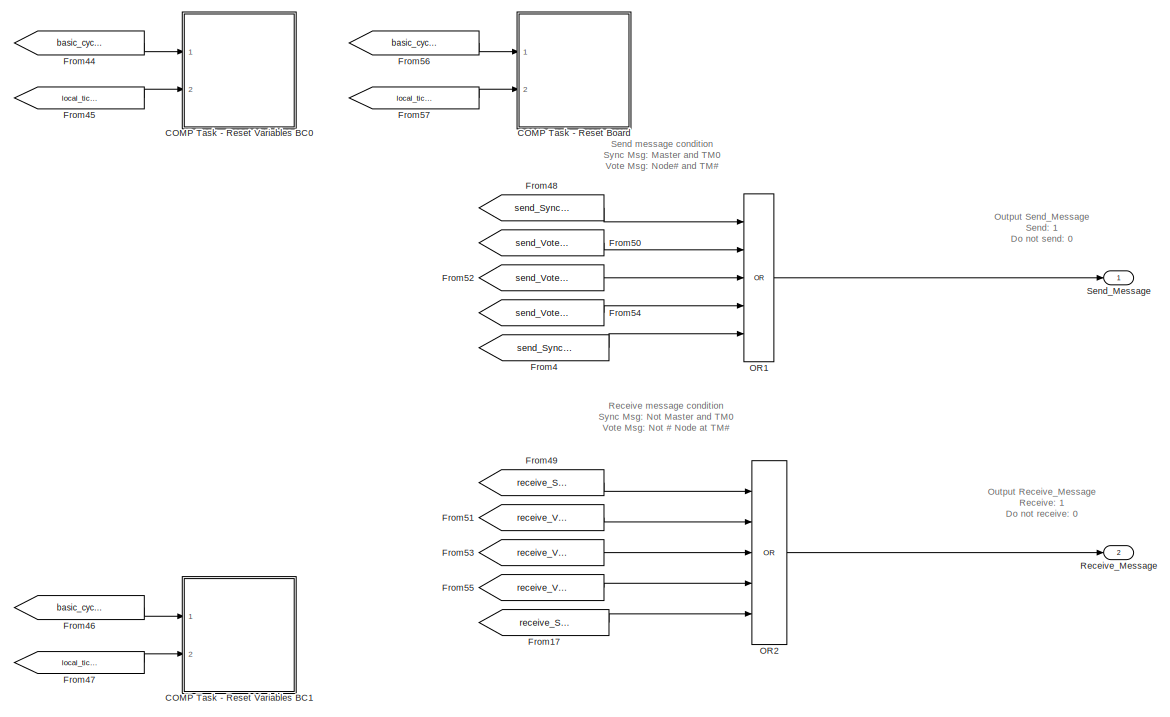
[diagram: HANcoder STM32 Target - E407-STM32 algorithm/Global Ticks Increment/CAN Management/Matrix Cycle Manager - part 6/6, middle right region]
BLOCK [SubSystem] HANcoder STM32 Target - E407-STM32 algorithm/Global Ticks Increment/CAN Management/Matrix Cycle Manager
  Ports = [0, 2, 1]
  RequestExecContextInheritance = off
BLOCK [SubSystem] HANcoder STM32 Target - E407-STM32 algorithm/Global Ticks Increment/CAN Management/Matrix Cycle Manager/COM Task - Sync BC0
  Ports = [3, 2]
  RequestExecContextInheritance = off
BLOCK [Logic] HANcoder STM32 Target - E407-STM32 algorithm/Global Ticks Increment/CAN Management/Matrix Cycle Manager/COM Task - Sync BC0/AND
  AllPortsSameDT = off
  IconShape = distinctive
  OutDataTypeStr = boolean
  Ports = [2, 1]
BLOCK [Logic] HANcoder STM32 Target - E407-STM32 algorithm/Global Ticks Increment/CAN Management/Matrix Cycle Manager/COM Task - Sync BC0/AND1
  AllPortsSameDT = off
  IconShape = distinctive
  Inputs = 5
  OutDataTypeStr = boolean
  Ports = [5, 1]
BLOCK [Logic] HANcoder STM32 Target - E407-STM32 algorithm/Global Ticks Increment/CAN Management/Matrix Cycle Manager/COM Task - Sync BC0/AND2
  AllPortsSameDT = off
  IconShape = distinctive
  Inputs = 3
  OutDataTypeStr = boolean
  Ports = [3, 1]
BLOCK [Constant] HANcoder STM32 Target - E407-STM32 algorithm/Global Ticks Increment/CAN Management/Matrix Cycle Manager/COM Task - Sync BC0/Constant
  Value = TM0
BLOCK [Constant] HANcoder STM32 Target - E407-STM32 algorithm/Global Ticks Increment/CAN Management/Matrix Cycle Manager/COM Task - Sync BC0/Constant1
  Value = TM0
BLOCK [Constant] HANcoder STM32 Target - E407-STM32 algorithm/Global Ticks Increment/CAN Management/Matrix Cycle Manager/COM Task - Sync BC0/Constant10
  Value = COM_Period
BLOCK [Constant] HANcoder STM32 Target - E407-STM32 algorithm/Global Ticks Increment/CAN Management/Matrix Cycle Manager/COM Task - Sync BC0/Constant2
  OutDataTypeStr = uint8
  Value = 0
BLOCK [Constant] HANcoder STM32 Target - E407-STM32 algorithm/Global Ticks Increment/CAN Management/Matrix Cycle Manager/COM Task - Sync BC0/Constant3
  Value = TM0
BLOCK [Constant] HANcoder STM32 Target - E407-STM32 algorithm/Global Ticks Increment/CAN Management/Matrix Cycle Manager/COM Task - Sync BC0/Constant4
  Value = Master_Role
BLOCK [Constant] HANcoder STM32 Target - E407-STM32 algorithm/Global Ticks Increment/CAN Management/Matrix Cycle Manager/COM Task - Sync BC0/Constant5
  Value = 0
BLOCK [Constant] HANcoder STM32 Target - E407-STM32 algorithm/Global Ticks Increment/CAN Management/Matrix Cycle Manager/COM Task - Sync BC0/Constant6
  Value = Master_Role
BLOCK [Constant] HANcoder STM32 Target - E407-STM32 algorithm/Global Ticks Increment/CAN Management/Matrix Cycle Manager/COM Task - Sync BC0/Constant7
  Value = 0
BLOCK [Constant] HANcoder STM32 Target - E407-STM32 algorithm/Global Ticks Increment/CAN Management/Matrix Cycle Manager/COM Task - Sync BC0/Constant8
  Value = TM0
BLOCK [Constant] HANcoder STM32 Target - E407-STM32 algorithm/Global Ticks Increment/CAN Management/Matrix Cycle Manager/COM Task - Sync BC0/Constant9
  Value = COM_Phase
BLOCK [DataStoreRead] HANcoder STM32 Target - E407-STM32 algorithm/Global Ticks Increment/CAN Management/Matrix Cycle Manager/COM Task - Sync BC0/Data Store Read1
  DataStoreName = Role_ID
  Ports = [0, 1]
BLOCK [DataStoreRead] HANcoder STM32 Target - E407-STM32 algorithm/Global Ticks Increment/CAN Management/Matrix Cycle Manager/COM Task - Sync BC0/Data Store Read2
  DataStoreName = Role_ID
  Ports = [0, 1]
BLOCK [RelationalOperator] HANcoder STM32 Target - E407-STM32 algorithm/Global Ticks Increment/CAN Management/Matrix Cycle Manager/COM Task - Sync BC0/Equal
  InputSameDT = off
  Operator = ==
  OutDataTypeStr = boolean
  Ports = [2, 1]
  RndMeth = Simplest
BLOCK [RelationalOperator] HANcoder STM32 Target - E407-STM32 algorithm/Global Ticks Increment/CAN Management/Matrix Cycle Manager/COM Task - Sync BC0/Equal1
  InputSameDT = off
  Operator = ==
  OutDataTypeStr = boolean
  Ports = [2, 1]
  RndMeth = Simplest
BLOCK [RelationalOperator] HANcoder STM32 Target - E407-STM32 algorithm/Global Ticks Increment/CAN Management/Matrix Cycle Manager/COM Task - Sync BC0/Equal2
  InputSameDT = off
  Operator = >
  OutDataTypeStr = boolean
  Ports = [2, 1]
  RndMeth = Simplest
BLOCK [RelationalOperator] HANcoder STM32 Target - E407-STM32 algorithm/Global Ticks Increment/CAN Management/Matrix Cycle Manager/COM Task - Sync BC0/Equal3
  InputSameDT = off
  Operator = ==
  OutDataTypeStr = boolean
  Ports = [2, 1]
  RndMeth = Simplest
BLOCK [RelationalOperator] HANcoder STM32 Target - E407-STM32 algorithm/Global Ticks Increment/CAN Management/Matrix Cycle Manager/COM Task - Sync BC0/Equal4
  InputSameDT = off
  Operator = <
  OutDataTypeStr = boolean
  Ports = [2, 1]
  RndMeth = Simplest
BLOCK [RelationalOperator] HANcoder STM32 Target - E407-STM32 algorithm/Global Ticks Increment/CAN Management/Matrix Cycle Manager/COM Task - Sync BC0/Equal5
  InputSameDT = off
  Operator = ~=
  OutDataTypeStr = boolean
  Ports = [2, 1]
  RndMeth = Simplest
BLOCK [RelationalOperator] HANcoder STM32 Target - E407-STM32 algorithm/Global Ticks Increment/CAN Management/Matrix Cycle Manager/COM Task - Sync BC0/Equal6
  InputSameDT = off
  Operator = ==
  OutDataTypeStr = boolean
  Ports = [2, 1]
  RndMeth = Simplest
BLOCK [RelationalOperator] HANcoder STM32 Target - E407-STM32 algorithm/Global Ticks Increment/CAN Management/Matrix Cycle Manager/COM Task - Sync BC0/Equal7
  InputSameDT = off
  Operator = ==
  OutDataTypeStr = boolean
  Ports = [2, 1]
  RndMeth = Simplest
BLOCK [RelationalOperator] HANcoder STM32 Target - E407-STM32 algorithm/Global Ticks Increment/CAN Management/Matrix Cycle Manager/COM Task - Sync BC0/Equal8
  InputSameDT = off
  Operator = ==
  OutDataTypeStr = boolean
  Ports = [2, 1]
  RndMeth = Simplest
BLOCK [Logic] HANcoder STM32 Target - E407-STM32 algorithm/Global Ticks Increment/CAN Management/Matrix Cycle Manager/COM Task - Sync BC0/NOT
  AllPortsSameDT = off
  IconShape = distinctive
  Operator = NOT
  OutDataTypeStr = boolean
  Ports = [1, 1]
BLOCK [Sum] HANcoder STM32 Target - E407-STM32 algorithm/Global Ticks Increment/CAN Management/Matrix Cycle Manager/COM Task - Sync BC0/Sum
  IconShape = round
  InputSameDT = off
  Inputs = |++
  OutDataTypeStr = Inherit: Inherit via internal rule
  Ports = [2, 1]
  SaturateOnIntegerOverflow = off
BLOCK [Sum] HANcoder STM32 Target - E407-STM32 algorithm/Global Ticks Increment/CAN Management/Matrix Cycle Manager/COM Task - Sync BC0/Sum1
  IconShape = round
  InputSameDT = off
  Inputs = |++
  OutDataTypeStr = Inherit: Inherit via internal rule
  Ports = [2, 1]
  SaturateOnIntegerOverflow = off
BLOCK [SubSystem] HANcoder STM32 Target - E407-STM32 algorithm/Global Ticks Increment/CAN Management/Matrix Cycle Manager/COM Task - Sync BC0/Sync Msg
  Ports = [0, 0, 1]
  RequestExecContextInheritance = off
BLOCK [DataTypeConversion] HANcoder STM32 Target - E407-STM32 algorithm/Global Ticks Increment/CAN Management/Matrix Cycle Manager/COM Task - Sync BC0/Sync Msg/Cast
  OutDataTypeStr = uint32
  RndMeth = Floor
  SaturateOnIntegerOverflow = off
BLOCK [DataTypeConversion] HANcoder STM32 Target - E407-STM32 algorithm/Global Ticks Increment/CAN Management/Matrix Cycle Manager/COM Task - Sync BC0/Sync Msg/Cast1
  OutDataTypeStr = uint16
  RndMeth = Floor
  SaturateOnIntegerOverflow = off
BLOCK [DataTypeConversion] HANcoder STM32 Target - E407-STM32 algorithm/Global Ticks Increment/CAN Management/Matrix Cycle Manager/COM Task - Sync BC0/Sync Msg/Cast2
  OutDataTypeStr = uint8
  RndMeth = Floor
  SaturateOnIntegerOverflow = off
BLOCK [DataTypeConversion] HANcoder STM32 Target - E407-STM32 algorithm/Global Ticks Increment/CAN Management/Matrix Cycle Manager/COM Task - Sync BC0/Sync Msg/Cast3
  OutDataTypeStr = uint32
  RndMeth = Floor
  SaturateOnIntegerOverflow = off
BLOCK [DataTypeConversion] HANcoder STM32 Target - E407-STM32 algorithm/Global Ticks Increment/CAN Management/Matrix Cycle Manager/COM Task - Sync BC0/Sync Msg/Cast4
  OutDataTypeStr = uint8
  RndMeth = Floor
  SaturateOnIntegerOverflow = off
BLOCK [DataTypeConversion] HANcoder STM32 Target - E407-STM32 algorithm/Global Ticks Increment/CAN Management/Matrix Cycle Manager/COM Task - Sync BC0/Sync Msg/Cast5
  OutDataTypeStr = boolean
  RndMeth = Floor
  SaturateOnIntegerOverflow = off
BLOCK [DataTypeConversion] HANcoder STM32 Target - E407-STM32 algorithm/Global Ticks Increment/CAN Management/Matrix Cycle Manager/COM Task - Sync BC0/Sync Msg/Cast6
  OutDataTypeStr = uint8
  RndMeth = Floor
  SaturateOnIntegerOverflow = off
BLOCK [Constant] HANcoder STM32 Target - E407-STM32 algorithm/Global Ticks Increment/CAN Management/Matrix Cycle Manager/COM Task - Sync BC0/Sync Msg/Constant
  Value = Sync_ID
BLOCK [Constant] HANcoder STM32 Target - E407-STM32 algorithm/Global Ticks Increment/CAN Management/Matrix Cycle Manager/COM Task - Sync BC0/Sync Msg/Constant1
  Value = comm_delay_estimation
BLOCK [Constant] HANcoder STM32 Target - E407-STM32 algorithm/Global Ticks Increment/CAN Management/Matrix Cycle Manager/COM Task - Sync BC0/Sync Msg/Constant18
  Value = COM_Phase
BLOCK [Constant] HANcoder STM32 Target - E407-STM32 algorithm/Global Ticks Increment/CAN Management/Matrix Cycle Manager/COM Task - Sync BC0/Sync Msg/Constant2
  Value = Sync_ID
BLOCK [DataStoreRead] HANcoder STM32 Target - E407-STM32 algorithm/Global Ticks Increment/CAN Management/Matrix Cycle Manager/COM Task - Sync BC0/Sync Msg/Data Store Read
  DataStoreName = Local_Ticks
  Ports = [0, 1]
BLOCK [DataStoreRead] HANcoder STM32 Target - E407-STM32 algorithm/Global Ticks Increment/CAN Management/Matrix Cycle Manager/COM Task - Sync BC0/Sync Msg/Data Store Read2
  DataStoreName = Board_ID
  Ports = [0, 1]
BLOCK [DataStoreRead] HANcoder STM32 Target - E407-STM32 algorithm/Global Ticks Increment/CAN Management/Matrix Cycle Manager/COM Task - Sync BC0/Sync Msg/Data Store Read3
  DataStoreName = basic_cycle_count
  Ports = [0, 1]
BLOCK [DataStoreWrite] HANcoder STM32 Target - E407-STM32 algorithm/Global Ticks Increment/CAN Management/Matrix Cycle Manager/COM Task - Sync BC0/Sync Msg/Data Store Write
  DataStoreName = Msg_Header_Rx
  Ports = [1]
BLOCK [DataStoreWrite] HANcoder STM32 Target - E407-STM32 algorithm/Global Ticks Increment/CAN Management/Matrix Cycle Manager/COM Task - Sync BC0/Sync Msg/Data Store Write1
  DataStoreName = basic_cycle_buffer
  Ports = [1]
BLOCK [DataStoreWrite] HANcoder STM32 Target - E407-STM32 algorithm/Global Ticks Increment/CAN Management/Matrix Cycle Manager/COM Task - Sync BC0/Sync Msg/Data Store Write2
  DataStoreName = New_Msg_Ready
  Ports = [1]
BLOCK [DataStoreWrite] HANcoder STM32 Target - E407-STM32 algorithm/Global Ticks Increment/CAN Management/Matrix Cycle Manager/COM Task - Sync BC0/Sync Msg/Data Store Write3
  DataStoreName = Local_Ticks_Rx
  Ports = [1]
BLOCK [DataStoreWrite] HANcoder STM32 Target - E407-STM32 algorithm/Global Ticks Increment/CAN Management/Matrix Cycle Manager/COM Task - Sync BC0/Sync Msg/Data Store Write4
  DataStoreName = Basic_Cycle_Rx
  Ports = [1]
BLOCK [DataStoreWrite] HANcoder STM32 Target - E407-STM32 algorithm/Global Ticks Increment/CAN Management/Matrix Cycle Manager/COM Task - Sync BC0/Sync Msg/Data Store Write5
  DataStoreName = message_header_buffer
  Ports = [1]
BLOCK [DataStoreWrite] HANcoder STM32 Target - E407-STM32 algorithm/Global Ticks Increment/CAN Management/Matrix Cycle Manager/COM Task - Sync BC0/Sync Msg/Data Store Write6
  DataStoreName = RxID_buffer
  Ports = [1]
BLOCK [DataStoreWrite] HANcoder STM32 Target - E407-STM32 algorithm/Global Ticks Increment/CAN Management/Matrix Cycle Manager/COM Task - Sync BC0/Sync Msg/Data Store Write7
  DataStoreName = Rx_State
  Ports = [1]
BLOCK [DataStoreWrite] HANcoder STM32 Target - E407-STM32 algorithm/Global Ticks Increment/CAN Management/Matrix Cycle Manager/COM Task - Sync BC0/Sync Msg/Data Store Write8
  DataStoreName = TxID_buffer
  Ports = [1]
BLOCK [DataStoreWrite] HANcoder STM32 Target - E407-STM32 algorithm/Global Ticks Increment/CAN Management/Matrix Cycle Manager/COM Task - Sync BC0/Sync Msg/Data Store Write9
  DataStoreName = local_ticks_buffer
  Ports = [1]
BLOCK [EnablePort] HANcoder STM32 Target - E407-STM32 algorithm/Global Ticks Increment/CAN Management/Matrix Cycle Manager/COM Task - Sync BC0/Sync Msg/Enable
  Ports = []
BLOCK [Sum] HANcoder STM32 Target - E407-STM32 algorithm/Global Ticks Increment/CAN Management/Matrix Cycle Manager/COM Task - Sync BC0/Sync Msg/Minus1
  InputSameDT = off
  Inputs = +++
  OutDataTypeStr = Inherit: Inherit via internal rule
  Ports = [3, 1]
  SaturateOnIntegerOverflow = off
BLOCK [Constant] HANcoder STM32 Target - E407-STM32 algorithm/Global Ticks Increment/CAN Management/Matrix Cycle Manager/COM Task - Sync BC0/Sync Msg/RESET
  Value = 0
BLOCK [Constant] HANcoder STM32 Target - E407-STM32 algorithm/Global Ticks Increment/CAN Management/Matrix Cycle Manager/COM Task - Sync BC0/Sync Msg/RESET_CAN_new_buffer
  Value = 0
BLOCK [Constant] HANcoder STM32 Target - E407-STM32 algorithm/Global Ticks Increment/CAN Management/Matrix Cycle Manager/COM Task - Sync BC0/Sync Msg/RESET_Rx_BC
  OutDataTypeStr = uint8
  Value = 0
BLOCK [Constant] HANcoder STM32 Target - E407-STM32 algorithm/Global Ticks Increment/CAN Management/Matrix Cycle Manager/COM Task - Sync BC0/Sync Msg/RESET_Rx_Hdr
  Value = 0
BLOCK [Constant] HANcoder STM32 Target - E407-STM32 algorithm/Global Ticks Increment/CAN Management/Matrix Cycle Manager/COM Task - Sync BC0/Sync Msg/RESET_Rx_LT
  OutDataTypeStr = uint16
  Value = 0
BLOCK [Inport] HANcoder STM32 Target - E407-STM32 algorithm/Global Ticks Increment/CAN Management/Matrix Cycle Manager/COM Task - Sync BC0/basic cycle
  IconDisplay = Port number
BLOCK [Inport] HANcoder STM32 Target - E407-STM32 algorithm/Global Ticks Increment/CAN Management/Matrix Cycle Manager/COM Task - Sync BC0/local time
  IconDisplay = Port number
  Port = 2
BLOCK [Inport] HANcoder STM32 Target - E407-STM32 algorithm/Global Ticks Increment/CAN Management/Matrix Cycle Manager/COM Task - Sync BC0/new_message
  IconDisplay = Port number
  Port = 3
BLOCK [Outport] HANcoder STM32 Target - E407-STM32 algorithm/Global Ticks Increment/CAN Management/Matrix Cycle Manager/COM Task - Sync BC0/receive new msg
  IconDisplay = Port number
  Port = 2
BLOCK [Outport] HANcoder STM32 Target - E407-STM32 algorithm/Global Ticks Increment/CAN Management/Matrix Cycle Manager/COM Task - Sync BC0/send new msg
  IconDisplay = Port number
BLOCK [SubSystem] HANcoder STM32 Target - E407-STM32 algorithm/Global Ticks Increment/CAN Management/Matrix Cycle Manager/COM Task - Sync BC1
  Ports = [3, 2]
  RequestExecContextInheritance = off
BLOCK [Logic] HANcoder STM32 Target - E407-STM32 algorithm/Global Ticks Increment/CAN Management/Matrix Cycle Manager/COM Task - Sync BC1/AND
  AllPortsSameDT = off
  IconShape = distinctive
  OutDataTypeStr = boolean
  Ports = [2, 1]
BLOCK [Logic] HANcoder STM32 Target - E407-STM32 algorithm/Global Ticks Increment/CAN Management/Matrix Cycle Manager/COM Task - Sync BC1/AND1
  AllPortsSameDT = off
  IconShape = distinctive
  Inputs = 5
  OutDataTypeStr = boolean
  Ports = [5, 1]
BLOCK [Logic] HANcoder STM32 Target - E407-STM32 algorithm/Global Ticks Increment/CAN Management/Matrix Cycle Manager/COM Task - Sync BC1/AND2
  AllPortsSameDT = off
  IconShape = distinctive
  Inputs = 3
  OutDataTypeStr = boolean
  Ports = [3, 1]
BLOCK [Constant] HANcoder STM32 Target - E407-STM32 algorithm/Global Ticks Increment/CAN Management/Matrix Cycle Manager/COM Task - Sync BC1/Constant
  Value = TM0
BLOCK [Constant] HANcoder STM32 Target - E407-STM32 algorithm/Global Ticks Increment/CAN Management/Matrix Cycle Manager/COM Task - Sync BC1/Constant1
  Value = TM0
BLOCK [Constant] HANcoder STM32 Target - E407-STM32 algorithm/Global Ticks Increment/CAN Management/Matrix Cycle Manager/COM Task - Sync BC1/Constant10
  Value = COM_Period
BLOCK [Constant] HANcoder STM32 Target - E407-STM32 algorithm/Global Ticks Increment/CAN Management/Matrix Cycle Manager/COM Task - Sync BC1/Constant2
  OutDataTypeStr = uint8
BLOCK [Constant] HANcoder STM32 Target - E407-STM32 algorithm/Global Ticks Increment/CAN Management/Matrix Cycle Manager/COM Task - Sync BC1/Constant3
  Value = TM0
BLOCK [Constant] HANcoder STM32 Target - E407-STM32 algorithm/Global Ticks Increment/CAN Management/Matrix Cycle Manager/COM Task - Sync BC1/Constant4
  Value = Master_Role
BLOCK [Constant] HANcoder STM32 Target - E407-STM32 algorithm/Global Ticks Increment/CAN Management/Matrix Cycle Manager/COM Task - Sync BC1/Constant5
BLOCK [Constant] HANcoder STM32 Target - E407-STM32 algorithm/Global Ticks Increment/CAN Management/Matrix Cycle Manager/COM Task - Sync BC1/Constant6
  Value = Master_Role
BLOCK [Constant] HANcoder STM32 Target - E407-STM32 algorithm/Global Ticks Increment/CAN Management/Matrix Cycle Manager/COM Task - Sync BC1/Constant7
BLOCK [Constant] HANcoder STM32 Target - E407-STM32 algorithm/Global Ticks Increment/CAN Management/Matrix Cycle Manager/COM Task - Sync BC1/Constant8
  Value = TM0
BLOCK [Constant] HANcoder STM32 Target - E407-STM32 algorithm/Global Ticks Increment/CAN Management/Matrix Cycle Manager/COM Task - Sync BC1/Constant9
  Value = COM_Phase
BLOCK [DataStoreRead] HANcoder STM32 Target - E407-STM32 algorithm/Global Ticks Increment/CAN Management/Matrix Cycle Manager/COM Task - Sync BC1/Data Store Read1
  DataStoreName = Role_ID
  Ports = [0, 1]
BLOCK [DataStoreRead] HANcoder STM32 Target - E407-STM32 algorithm/Global Ticks Increment/CAN Management/Matrix Cycle Manager/COM Task - Sync BC1/Data Store Read2
  DataStoreName = Role_ID
  Ports = [0, 1]
BLOCK [RelationalOperator] HANcoder STM32 Target - E407-STM32 algorithm/Global Ticks Increment/CAN Management/Matrix Cycle Manager/COM Task - Sync BC1/Equal
  InputSameDT = off
  Operator = ==
  OutDataTypeStr = boolean
  Ports = [2, 1]
  RndMeth = Simplest
BLOCK [RelationalOperator] HANcoder STM32 Target - E407-STM32 algorithm/Global Ticks Increment/CAN Management/Matrix Cycle Manager/COM Task - Sync BC1/Equal1
  InputSameDT = off
  Operator = ==
  OutDataTypeStr = boolean
  Ports = [2, 1]
  RndMeth = Simplest
BLOCK [RelationalOperator] HANcoder STM32 Target - E407-STM32 algorithm/Global Ticks Increment/CAN Management/Matrix Cycle Manager/COM Task - Sync BC1/Equal2
  InputSameDT = off
  Operator = >
  OutDataTypeStr = boolean
  Ports = [2, 1]
  RndMeth = Simplest
BLOCK [RelationalOperator] HANcoder STM32 Target - E407-STM32 algorithm/Global Ticks Increment/CAN Management/Matrix Cycle Manager/COM Task - Sync BC1/Equal3
  InputSameDT = off
  Operator = ==
  OutDataTypeStr = boolean
  Ports = [2, 1]
  RndMeth = Simplest
BLOCK [RelationalOperator] HANcoder STM32 Target - E407-STM32 algorithm/Global Ticks Increment/CAN Management/Matrix Cycle Manager/COM Task - Sync BC1/Equal4
  InputSameDT = off
  Operator = <
  OutDataTypeStr = boolean
  Ports = [2, 1]
  RndMeth = Simplest
BLOCK [RelationalOperator] HANcoder STM32 Target - E407-STM32 algorithm/Global Ticks Increment/CAN Management/Matrix Cycle Manager/COM Task - Sync BC1/Equal5
  InputSameDT = off
  Operator = ~=
  OutDataTypeStr = boolean
  Ports = [2, 1]
  RndMeth = Simplest
BLOCK [RelationalOperator] HANcoder STM32 Target - E407-STM32 algorithm/Global Ticks Increment/CAN Management/Matrix Cycle Manager/COM Task - Sync BC1/Equal6
  InputSameDT = off
  Operator = ==
  OutDataTypeStr = boolean
  Ports = [2, 1]
  RndMeth = Simplest
BLOCK [RelationalOperator] HANcoder STM32 Target - E407-STM32 algorithm/Global Ticks Increment/CAN Management/Matrix Cycle Manager/COM Task - Sync BC1/Equal7
  InputSameDT = off
  Operator = ==
  OutDataTypeStr = boolean
  Ports = [2, 1]
  RndMeth = Simplest
BLOCK [RelationalOperator] HANcoder STM32 Target - E407-STM32 algorithm/Global Ticks Increment/CAN Management/Matrix Cycle Manager/COM Task - Sync BC1/Equal8
  InputSameDT = off
  Operator = ==
  OutDataTypeStr = boolean
  Ports = [2, 1]
  RndMeth = Simplest
BLOCK [Logic] HANcoder STM32 Target - E407-STM32 algorithm/Global Ticks Increment/CAN Management/Matrix Cycle Manager/COM Task - Sync BC1/NOT
  AllPortsSameDT = off
  IconShape = distinctive
  Operator = NOT
  OutDataTypeStr = boolean
  Ports = [1, 1]
BLOCK [Sum] HANcoder STM32 Target - E407-STM32 algorithm/Global Ticks Increment/CAN Management/Matrix Cycle Manager/COM Task - Sync BC1/Sum
  IconShape = round
  InputSameDT = off
  Inputs = |++
  OutDataTypeStr = Inherit: Inherit via internal rule
  Ports = [2, 1]
  SaturateOnIntegerOverflow = off
BLOCK [Sum] HANcoder STM32 Target - E407-STM32 algorithm/Global Ticks Increment/CAN Management/Matrix Cycle Manager/COM Task - Sync BC1/Sum1
  IconShape = round
  InputSameDT = off
  Inputs = |++
  OutDataTypeStr = Inherit: Inherit via internal rule
  Ports = [2, 1]
  SaturateOnIntegerOverflow = off
BLOCK [SubSystem] HANcoder STM32 Target - E407-STM32 algorithm/Global Ticks Increment/CAN Management/Matrix Cycle Manager/COM Task - Sync BC1/Sync Msg
  Ports = [0, 0, 1]
  RequestExecContextInheritance = off
BLOCK [DataTypeConversion] HANcoder STM32 Target - E407-STM32 algorithm/Global Ticks Increment/CAN Management/Matrix Cycle Manager/COM Task - Sync BC1/Sync Msg/Cast
  OutDataTypeStr = uint32
  RndMeth = Floor
  SaturateOnIntegerOverflow = off
BLOCK [DataTypeConversion] HANcoder STM32 Target - E407-STM32 algorithm/Global Ticks Increment/CAN Management/Matrix Cycle Manager/COM Task - Sync BC1/Sync Msg/Cast1
  OutDataTypeStr = uint16
  RndMeth = Floor
  SaturateOnIntegerOverflow = off
BLOCK [DataTypeConversion] HANcoder STM32 Target - E407-STM32 algorithm/Global Ticks Increment/CAN Management/Matrix Cycle Manager/COM Task - Sync BC1/Sync Msg/Cast2
  OutDataTypeStr = uint8
  RndMeth = Floor
  SaturateOnIntegerOverflow = off
BLOCK [DataTypeConversion] HANcoder STM32 Target - E407-STM32 algorithm/Global Ticks Increment/CAN Management/Matrix Cycle Manager/COM Task - Sync BC1/Sync Msg/Cast3
  OutDataTypeStr = uint32
  RndMeth = Floor
  SaturateOnIntegerOverflow = off
BLOCK [DataTypeConversion] HANcoder STM32 Target - E407-STM32 algorithm/Global Ticks Increment/CAN Management/Matrix Cycle Manager/COM Task - Sync BC1/Sync Msg/Cast4
  OutDataTypeStr = uint8
  RndMeth = Floor
  SaturateOnIntegerOverflow = off
BLOCK [DataTypeConversion] HANcoder STM32 Target - E407-STM32 algorithm/Global Ticks Increment/CAN Management/Matrix Cycle Manager/COM Task - Sync BC1/Sync Msg/Cast5
  OutDataTypeStr = boolean
  RndMeth = Floor
  SaturateOnIntegerOverflow = off
BLOCK [DataTypeConversion] HANcoder STM32 Target - E407-STM32 algorithm/Global Ticks Increment/CAN Management/Matrix Cycle Manager/COM Task - Sync BC1/Sync Msg/Cast6
  OutDataTypeStr = uint8
  RndMeth = Floor
  SaturateOnIntegerOverflow = off
BLOCK [Constant] HANcoder STM32 Target - E407-STM32 algorithm/Global Ticks Increment/CAN Management/Matrix Cycle Manager/COM Task - Sync BC1/Sync Msg/Constant
  Value = Sync_ID
BLOCK [Constant] HANcoder STM32 Target - E407-STM32 algorithm/Global Ticks Increment/CAN Management/Matrix Cycle Manager/COM Task - Sync BC1/Sync Msg/Constant18
  Value = COM_Phase
BLOCK [Constant] HANcoder STM32 Target - E407-STM32 algorithm/Global Ticks Increment/CAN Management/Matrix Cycle Manager/COM Task - Sync BC1/Sync Msg/Constant2
  Value = Sync_ID
BLOCK [DataStoreRead] HANcoder STM32 Target - E407-STM32 algorithm/Global Ticks Increment/CAN Management/Matrix Cycle Manager/COM Task - Sync BC1/Sync Msg/Data Store Read
  DataStoreName = Local_Ticks
  Ports = [0, 1]
BLOCK [DataStoreRead] HANcoder STM32 Target - E407-STM32 algorithm/Global Ticks Increment/CAN Management/Matrix Cycle Manager/COM Task - Sync BC1/Sync Msg/Data Store Read2
  DataStoreName = Board_ID
  Ports = [0, 1]
BLOCK [DataStoreRead] HANcoder STM32 Target - E407-STM32 algorithm/Global Ticks Increment/CAN Management/Matrix Cycle Manager/COM Task - Sync BC1/Sync Msg/Data Store Read3
  DataStoreName = basic_cycle_count
  Ports = [0, 1]
BLOCK [DataStoreWrite] HANcoder STM32 Target - E407-STM32 algorithm/Global Ticks Increment/CAN Management/Matrix Cycle Manager/COM Task - Sync BC1/Sync Msg/Data Store Write
  DataStoreName = Msg_Header_Rx
  Ports = [1]
BLOCK [DataStoreWrite] HANcoder STM32 Target - E407-STM32 algorithm/Global Ticks Increment/CAN Management/Matrix Cycle Manager/COM Task - Sync BC1/Sync Msg/Data Store Write1
  DataStoreName = basic_cycle_buffer
  Ports = [1]
BLOCK [DataStoreWrite] HANcoder STM32 Target - E407-STM32 algorithm/Global Ticks Increment/CAN Management/Matrix Cycle Manager/COM Task - Sync BC1/Sync Msg/Data Store Write2
  DataStoreName = New_Msg_Ready
  Ports = [1]
BLOCK [DataStoreWrite] HANcoder STM32 Target - E407-STM32 algorithm/Global Ticks Increment/CAN Management/Matrix Cycle Manager/COM Task - Sync BC1/Sync Msg/Data Store Write3
  DataStoreName = Local_Ticks_Rx
  Ports = [1]
BLOCK [DataStoreWrite] HANcoder STM32 Target - E407-STM32 algorithm/Global Ticks Increment/CAN Management/Matrix Cycle Manager/COM Task - Sync BC1/Sync Msg/Data Store Write4
  DataStoreName = Basic_Cycle_Rx
  Ports = [1]
BLOCK [DataStoreWrite] HANcoder STM32 Target - E407-STM32 algorithm/Global Ticks Increment/CAN Management/Matrix Cycle Manager/COM Task - Sync BC1/Sync Msg/Data Store Write5
  DataStoreName = message_header_buffer
  Ports = [1]
BLOCK [DataStoreWrite] HANcoder STM32 Target - E407-STM32 algorithm/Global Ticks Increment/CAN Management/Matrix Cycle Manager/COM Task - Sync BC1/Sync Msg/Data Store Write6
  DataStoreName = RxID_buffer
  Ports = [1]
BLOCK [DataStoreWrite] HANcoder STM32 Target - E407-STM32 algorithm/Global Ticks Increment/CAN Management/Matrix Cycle Manager/COM Task - Sync BC1/Sync Msg/Data Store Write7
  DataStoreName = Rx_State
  Ports = [1]
BLOCK [DataStoreWrite] HANcoder STM32 Target - E407-STM32 algorithm/Global Ticks Increment/CAN Management/Matrix Cycle Manager/COM Task - Sync BC1/Sync Msg/Data Store Write8
  DataStoreName = TxID_buffer
  Ports = [1]
BLOCK [DataStoreWrite] HANcoder STM32 Target - E407-STM32 algorithm/Global Ticks Increment/CAN Management/Matrix Cycle Manager/COM Task - Sync BC1/Sync Msg/Data Store Write9
  DataStoreName = local_ticks_buffer
  Ports = [1]
BLOCK [EnablePort] HANcoder STM32 Target - E407-STM32 algorithm/Global Ticks Increment/CAN Management/Matrix Cycle Manager/COM Task - Sync BC1/Sync Msg/Enable
  Ports = []
BLOCK [Sum] HANcoder STM32 Target - E407-STM32 algorithm/Global Ticks Increment/CAN Management/Matrix Cycle Manager/COM Task - Sync BC1/Sync Msg/Minus1
  InputSameDT = off
  OutDataTypeStr = Inherit: Inherit via internal rule
  Ports = [2, 1]
  SaturateOnIntegerOverflow = off
BLOCK [Constant] HANcoder STM32 Target - E407-STM32 algorithm/Global Ticks Increment/CAN Management/Matrix Cycle Manager/COM Task - Sync BC1/Sync Msg/RESET
  Value = 0
BLOCK [Constant] HANcoder STM32 Target - E407-STM32 algorithm/Global Ticks Increment/CAN Management/Matrix Cycle Manager/COM Task - Sync BC1/Sync Msg/RESET_CAN_new_buffer
  Value = 0
BLOCK [Constant] HANcoder STM32 Target - E407-STM32 algorithm/Global Ticks Increment/CAN Management/Matrix Cycle Manager/COM Task - Sync BC1/Sync Msg/RESET_Rx_BC
  OutDataTypeStr = uint8
  Value = 0
BLOCK [Constant] HANcoder STM32 Target - E407-STM32 algorithm/Global Ticks Increment/CAN Management/Matrix Cycle Manager/COM Task - Sync BC1/Sync Msg/RESET_Rx_Hdr
  Value = 0
BLOCK [Constant] HANcoder STM32 Target - E407-STM32 algorithm/Global Ticks Increment/CAN Management/Matrix Cycle Manager/COM Task - Sync BC1/Sync Msg/RESET_Rx_LT
  OutDataTypeStr = uint16
  Value = 0
BLOCK [Inport] HANcoder STM32 Target - E407-STM32 algorithm/Global Ticks Increment/CAN Management/Matrix Cycle Manager/COM Task - Sync BC1/basic cycle
  IconDisplay = Port number
BLOCK [Inport] HANcoder STM32 Target - E407-STM32 algorithm/Global Ticks Increment/CAN Management/Matrix Cycle Manager/COM Task - Sync BC1/local time
  IconDisplay = Port number
  Port = 2
BLOCK [Inport] HANcoder STM32 Target - E407-STM32 algorithm/Global Ticks Increment/CAN Management/Matrix Cycle Manager/COM Task - Sync BC1/new_message
  IconDisplay = Port number
  Port = 3
BLOCK [Outport] HANcoder STM32 Target - E407-STM32 algorithm/Global Ticks Increment/CAN Management/Matrix Cycle Manager/COM Task - Sync BC1/receive new msg
  IconDisplay = Port number
  Port = 2
BLOCK [Outport] HANcoder STM32 Target - E407-STM32 algorithm/Global Ticks Increment/CAN Management/Matrix Cycle Manager/COM Task - Sync BC1/send new msg
  IconDisplay = Port number
BLOCK [SubSystem] HANcoder STM32 Target - E407-STM32 algorithm/Global Ticks Increment/CAN Management/Matrix Cycle Manager/COM Task - Vote1
  Ports = [3, 2]
  RequestExecContextInheritance = off
BLOCK [Logic] HANcoder STM32 Target - E407-STM32 algorithm/Global Ticks Increment/CAN Management/Matrix Cycle Manager/COM Task - Vote1/AND
  AllPortsSameDT = off
  IconShape = distinctive
  OutDataTypeStr = boolean
  Ports = [2, 1]
BLOCK [Logic] HANcoder STM32 Target - E407-STM32 algorithm/Global Ticks Increment/CAN Management/Matrix Cycle Manager/COM Task - Vote1/AND2
  AllPortsSameDT = off
  IconShape = distinctive
  Inputs = 5
  OutDataTypeStr = boolean
  Ports = [5, 1]
BLOCK [Logic] HANcoder STM32 Target - E407-STM32 algorithm/Global Ticks Increment/CAN Management/Matrix Cycle Manager/COM Task - Vote1/AND3
  AllPortsSameDT = off
  IconShape = distinctive
  Inputs = 3
  OutDataTypeStr = boolean
  Ports = [3, 1]
BLOCK [Constant] HANcoder STM32 Target - E407-STM32 algorithm/Global Ticks Increment/CAN Management/Matrix Cycle Manager/COM Task - Vote1/Constant
  Value = TM3
BLOCK [Constant] HANcoder STM32 Target - E407-STM32 algorithm/Global Ticks Increment/CAN Management/Matrix Cycle Manager/COM Task - Vote1/Constant10
  Value = COM_Period
BLOCK [Constant] HANcoder STM32 Target - E407-STM32 algorithm/Global Ticks Increment/CAN Management/Matrix Cycle Manager/COM Task - Vote1/Constant11
BLOCK [Constant] HANcoder STM32 Target - E407-STM32 algorithm/Global Ticks Increment/CAN Management/Matrix Cycle Manager/COM Task - Vote1/Constant12
  Value = 0
BLOCK [Constant] HANcoder STM32 Target - E407-STM32 algorithm/Global Ticks Increment/CAN Management/Matrix Cycle Manager/COM Task - Vote1/Constant13
  Value = TM3
BLOCK [Constant] HANcoder STM32 Target - E407-STM32 algorithm/Global Ticks Increment/CAN Management/Matrix Cycle Manager/COM Task - Vote1/Constant14
  Value = COM_Phase
BLOCK [Constant] HANcoder STM32 Target - E407-STM32 algorithm/Global Ticks Increment/CAN Management/Matrix Cycle Manager/COM Task - Vote1/Constant5
  Value = 0
BLOCK [Constant] HANcoder STM32 Target - E407-STM32 algorithm/Global Ticks Increment/CAN Management/Matrix Cycle Manager/COM Task - Vote1/Constant6
  Value = TM3
BLOCK [Constant] HANcoder STM32 Target - E407-STM32 algorithm/Global Ticks Increment/CAN Management/Matrix Cycle Manager/COM Task - Vote1/Constant7
  OutDataTypeStr = uint8
  Value = 0
BLOCK [Constant] HANcoder STM32 Target - E407-STM32 algorithm/Global Ticks Increment/CAN Management/Matrix Cycle Manager/COM Task - Vote1/Constant8
  Value = TM3
BLOCK [Constant] HANcoder STM32 Target - E407-STM32 algorithm/Global Ticks Increment/CAN Management/Matrix Cycle Manager/COM Task - Vote1/Constant9
BLOCK [DataStoreRead] HANcoder STM32 Target - E407-STM32 algorithm/Global Ticks Increment/CAN Management/Matrix Cycle Manager/COM Task - Vote1/Data Store Read2
  DataStoreName = Board_ID
  Ports = [0, 1]
BLOCK [DataStoreRead] HANcoder STM32 Target - E407-STM32 algorithm/Global Ticks Increment/CAN Management/Matrix Cycle Manager/COM Task - Vote1/Data Store Read3
  DataStoreName = Board_ID
  Ports = [0, 1]
BLOCK [RelationalOperator] HANcoder STM32 Target - E407-STM32 algorithm/Global Ticks Increment/CAN Management/Matrix Cycle Manager/COM Task - Vote1/Equal
  InputSameDT = off
  Operator = ==
  OutDataTypeStr = boolean
  Ports = [2, 1]
  RndMeth = Simplest
BLOCK [RelationalOperator] HANcoder STM32 Target - E407-STM32 algorithm/Global Ticks Increment/CAN Management/Matrix Cycle Manager/COM Task - Vote1/Equal1
  InputSameDT = off
  Operator = ==
  OutDataTypeStr = boolean
  Ports = [2, 1]
  RndMeth = Simplest
BLOCK [RelationalOperator] HANcoder STM32 Target - E407-STM32 algorithm/Global Ticks Increment/CAN Management/Matrix Cycle Manager/COM Task - Vote1/Equal10
  InputSameDT = off
  Operator = ==
  OutDataTypeStr = boolean
  Ports = [2, 1]
  RndMeth = Simplest
BLOCK [RelationalOperator] HANcoder STM32 Target - E407-STM32 algorithm/Global Ticks Increment/CAN Management/Matrix Cycle Manager/COM Task - Vote1/Equal11
  InputSameDT = off
  Operator = ==
  OutDataTypeStr = boolean
  Ports = [2, 1]
  RndMeth = Simplest
BLOCK [RelationalOperator] HANcoder STM32 Target - E407-STM32 algorithm/Global Ticks Increment/CAN Management/Matrix Cycle Manager/COM Task - Vote1/Equal12
  InputSameDT = off
  Operator = ==
  OutDataTypeStr = boolean
  Ports = [2, 1]
  RndMeth = Simplest
BLOCK [RelationalOperator] HANcoder STM32 Target - E407-STM32 algorithm/Global Ticks Increment/CAN Management/Matrix Cycle Manager/COM Task - Vote1/Equal6
  InputSameDT = off
  Operator = >
  OutDataTypeStr = boolean
  Ports = [2, 1]
  RndMeth = Simplest
BLOCK [RelationalOperator] HANcoder STM32 Target - E407-STM32 algorithm/Global Ticks Increment/CAN Management/Matrix Cycle Manager/COM Task - Vote1/Equal7
  InputSameDT = off
  Operator = ==
  OutDataTypeStr = boolean
  Ports = [2, 1]
  RndMeth = Simplest
BLOCK [RelationalOperator] HANcoder STM32 Target - E407-STM32 algorithm/Global Ticks Increment/CAN Management/Matrix Cycle Manager/COM Task - Vote1/Equal8
  InputSameDT = off
  Operator = <
  OutDataTypeStr = boolean
  Ports = [2, 1]
  RndMeth = Simplest
BLOCK [RelationalOperator] HANcoder STM32 Target - E407-STM32 algorithm/Global Ticks Increment/CAN Management/Matrix Cycle Manager/COM Task - Vote1/Equal9
  InputSameDT = off
  Operator = ~=
  OutDataTypeStr = boolean
  Ports = [2, 1]
  RndMeth = Simplest
BLOCK [Logic] HANcoder STM32 Target - E407-STM32 algorithm/Global Ticks Increment/CAN Management/Matrix Cycle Manager/COM Task - Vote1/NOT
  AllPortsSameDT = off
  IconShape = distinctive
  Operator = NOT
  OutDataTypeStr = boolean
  Ports = [1, 1]
BLOCK [Sum] HANcoder STM32 Target - E407-STM32 algorithm/Global Ticks Increment/CAN Management/Matrix Cycle Manager/COM Task - Vote1/Sum
  IconShape = round
  InputSameDT = off
  Inputs = |++
  OutDataTypeStr = Inherit: Inherit via internal rule
  Ports = [2, 1]
  SaturateOnIntegerOverflow = off
BLOCK [Sum] HANcoder STM32 Target - E407-STM32 algorithm/Global Ticks Increment/CAN Management/Matrix Cycle Manager/COM Task - Vote1/Sum1
  IconShape = round
  InputSameDT = off
  Inputs = |++
  OutDataTypeStr = Inherit: Inherit via internal rule
  Ports = [2, 1]
  SaturateOnIntegerOverflow = off
BLOCK [SubSystem] HANcoder STM32 Target - E407-STM32 algorithm/Global Ticks Increment/CAN Management/Matrix Cycle Manager/COM Task - Vote1/Vote1 Msg
  Ports = [0, 0, 1]
  RequestExecContextInheritance = off
BLOCK [DataTypeConversion] HANcoder STM32 Target - E407-STM32 algorithm/Global Ticks Increment/CAN Management/Matrix Cycle Manager/COM Task - Vote1/Vote1 Msg/Cast
  OutDataTypeStr = uint32
  RndMeth = Floor
  SaturateOnIntegerOverflow = off
BLOCK [DataTypeConversion] HANcoder STM32 Target - E407-STM32 algorithm/Global Ticks Increment/CAN Management/Matrix Cycle Manager/COM Task - Vote1/Vote1 Msg/Cast1
  OutDataTypeStr = uint16
  RndMeth = Floor
  SaturateOnIntegerOverflow = off
BLOCK [DataTypeConversion] HANcoder STM32 Target - E407-STM32 algorithm/Global Ticks Increment/CAN Management/Matrix Cycle Manager/COM Task - Vote1/Vote1 Msg/Cast3
  OutDataTypeStr = uint32
  RndMeth = Floor
  SaturateOnIntegerOverflow = off
BLOCK [DataTypeConversion] HANcoder STM32 Target - E407-STM32 algorithm/Global Ticks Increment/CAN Management/Matrix Cycle Manager/COM Task - Vote1/Vote1 Msg/Cast4
  OutDataTypeStr = uint8
  RndMeth = Floor
  SaturateOnIntegerOverflow = off
BLOCK [DataTypeConversion] HANcoder STM32 Target - E407-STM32 algorithm/Global Ticks Increment/CAN Management/Matrix Cycle Manager/COM Task - Vote1/Vote1 Msg/Cast5
  OutDataTypeStr = boolean
  RndMeth = Floor
  SaturateOnIntegerOverflow = off
BLOCK [DataTypeConversion] HANcoder STM32 Target - E407-STM32 algorithm/Global Ticks Increment/CAN Management/Matrix Cycle Manager/COM Task - Vote1/Vote1 Msg/Cast6
  OutDataTypeStr = uint8
  RndMeth = Floor
  SaturateOnIntegerOverflow = off
BLOCK [Constant] HANcoder STM32 Target - E407-STM32 algorithm/Global Ticks Increment/CAN Management/Matrix Cycle Manager/COM Task - Vote1/Vote1 Msg/Constant
  Value = Vote1_ID
BLOCK [Constant] HANcoder STM32 Target - E407-STM32 algorithm/Global Ticks Increment/CAN Management/Matrix Cycle Manager/COM Task - Vote1/Vote1 Msg/Constant18
  Value = COM_Phase
BLOCK [Constant] HANcoder STM32 Target - E407-STM32 algorithm/Global Ticks Increment/CAN Management/Matrix Cycle Manager/COM Task - Vote1/Vote1 Msg/Constant2
  Value = Vote1_ID
BLOCK [DataStoreRead] HANcoder STM32 Target - E407-STM32 algorithm/Global Ticks Increment/CAN Management/Matrix Cycle Manager/COM Task - Vote1/Vote1 Msg/Data Store Read
  DataStoreName = Local_Ticks
  Ports = [0, 1]
BLOCK [DataStoreRead] HANcoder STM32 Target - E407-STM32 algorithm/Global Ticks Increment/CAN Management/Matrix Cycle Manager/COM Task - Vote1/Vote1 Msg/Data Store Read2
  DataStoreName = Vote
  Ports = [0, 1]
BLOCK [DataStoreRead] HANcoder STM32 Target - E407-STM32 algorithm/Global Ticks Increment/CAN Management/Matrix Cycle Manager/COM Task - Vote1/Vote1 Msg/Data Store Read3
  DataStoreName = basic_cycle_count
  Ports = [0, 1]
BLOCK [DataStoreWrite] HANcoder STM32 Target - E407-STM32 algorithm/Global Ticks Increment/CAN Management/Matrix Cycle Manager/COM Task - Vote1/Vote1 Msg/Data Store Write
  DataStoreName = Msg_Header_Rx
  Ports = [1]
BLOCK [DataStoreWrite] HANcoder STM32 Target - E407-STM32 algorithm/Global Ticks Increment/CAN Management/Matrix Cycle Manager/COM Task - Vote1/Vote1 Msg/Data Store Write1
  DataStoreName = basic_cycle_buffer
  Ports = [1]
BLOCK [DataStoreWrite] HANcoder STM32 Target - E407-STM32 algorithm/Global Ticks Increment/CAN Management/Matrix Cycle Manager/COM Task - Vote1/Vote1 Msg/Data Store Write2
  DataStoreName = New_Msg_Ready
  Ports = [1]
BLOCK [DataStoreWrite] HANcoder STM32 Target - E407-STM32 algorithm/Global Ticks Increment/CAN Management/Matrix Cycle Manager/COM Task - Vote1/Vote1 Msg/Data Store Write3
  DataStoreName = Local_Ticks_Rx
  Ports = [1]
BLOCK [DataStoreWrite] HANcoder STM32 Target - E407-STM32 algorithm/Global Ticks Increment/CAN Management/Matrix Cycle Manager/COM Task - Vote1/Vote1 Msg/Data Store Write4
  DataStoreName = Basic_Cycle_Rx
  Ports = [1]
BLOCK [DataStoreWrite] HANcoder STM32 Target - E407-STM32 algorithm/Global Ticks Increment/CAN Management/Matrix Cycle Manager/COM Task - Vote1/Vote1 Msg/Data Store Write5
  DataStoreName = message_header_buffer
  Ports = [1]
BLOCK [DataStoreWrite] HANcoder STM32 Target - E407-STM32 algorithm/Global Ticks Increment/CAN Management/Matrix Cycle Manager/COM Task - Vote1/Vote1 Msg/Data Store Write6
  DataStoreName = RxID_buffer
  Ports = [1]
BLOCK [DataStoreWrite] HANcoder STM32 Target - E407-STM32 algorithm/Global Ticks Increment/CAN Management/Matrix Cycle Manager/COM Task - Vote1/Vote1 Msg/Data Store Write7
  DataStoreName = Rx_State
  Ports = [1]
BLOCK [DataStoreWrite] HANcoder STM32 Target - E407-STM32 algorithm/Global Ticks Increment/CAN Management/Matrix Cycle Manager/COM Task - Vote1/Vote1 Msg/Data Store Write8
  DataStoreName = TxID_buffer
  Ports = [1]
BLOCK [DataStoreWrite] HANcoder STM32 Target - E407-STM32 algorithm/Global Ticks Increment/CAN Management/Matrix Cycle Manager/COM Task - Vote1/Vote1 Msg/Data Store Write9
  DataStoreName = local_ticks_buffer
  Ports = [1]
BLOCK [EnablePort] HANcoder STM32 Target - E407-STM32 algorithm/Global Ticks Increment/CAN Management/Matrix Cycle Manager/COM Task - Vote1/Vote1 Msg/Enable
  Ports = []
BLOCK [Sum] HANcoder STM32 Target - E407-STM32 algorithm/Global Ticks Increment/CAN Management/Matrix Cycle Manager/COM Task - Vote1/Vote1 Msg/Minus1
  InputSameDT = off
  OutDataTypeStr = Inherit: Inherit via internal rule
  Ports = [2, 1]
  SaturateOnIntegerOverflow = off
BLOCK [Constant] HANcoder STM32 Target - E407-STM32 algorithm/Global Ticks Increment/CAN Management/Matrix Cycle Manager/COM Task - Vote1/Vote1 Msg/RESET
  Value = 0
BLOCK [Constant] HANcoder STM32 Target - E407-STM32 algorithm/Global Ticks Increment/CAN Management/Matrix Cycle Manager/COM Task - Vote1/Vote1 Msg/RESET_CAN_new_buffer
  Value = 0
BLOCK [Constant] HANcoder STM32 Target - E407-STM32 algorithm/Global Ticks Increment/CAN Management/Matrix Cycle Manager/COM Task - Vote1/Vote1 Msg/RESET_Rx_BC
  OutDataTypeStr = uint8
  Value = 0
BLOCK [Constant] HANcoder STM32 Target - E407-STM32 algorithm/Global Ticks Increment/CAN Management/Matrix Cycle Manager/COM Task - Vote1/Vote1 Msg/RESET_Rx_Hdr
  Value = 0
BLOCK [Constant] HANcoder STM32 Target - E407-STM32 algorithm/Global Ticks Increment/CAN Management/Matrix Cycle Manager/COM Task - Vote1/Vote1 Msg/RESET_Rx_LT
  OutDataTypeStr = uint16
  Value = 0
BLOCK [Inport] HANcoder STM32 Target - E407-STM32 algorithm/Global Ticks Increment/CAN Management/Matrix Cycle Manager/COM Task - Vote1/basic cycle
  IconDisplay = Port number
BLOCK [Inport] HANcoder STM32 Target - E407-STM32 algorithm/Global Ticks Increment/CAN Management/Matrix Cycle Manager/COM Task - Vote1/local time
  IconDisplay = Port number
  Port = 2
BLOCK [Inport] HANcoder STM32 Target - E407-STM32 algorithm/Global Ticks Increment/CAN Management/Matrix Cycle Manager/COM Task - Vote1/new_message
  IconDisplay = Port number
  Port = 3
BLOCK [Outport] HANcoder STM32 Target - E407-STM32 algorithm/Global Ticks Increment/CAN Management/Matrix Cycle Manager/COM Task - Vote1/receive new msg
  IconDisplay = Port number
  Port = 2
BLOCK [Outport] HANcoder STM32 Target - E407-STM32 algorithm/Global Ticks Increment/CAN Management/Matrix Cycle Manager/COM Task - Vote1/send new msg
  IconDisplay = Port number
BLOCK [SubSystem] HANcoder STM32 Target - E407-STM32 algorithm/Global Ticks Increment/CAN Management/Matrix Cycle Manager/COM Task - Vote2
  Ports = [3, 2]
  RequestExecContextInheritance = off
BLOCK [Logic] HANcoder STM32 Target - E407-STM32 algorithm/Global Ticks Increment/CAN Management/Matrix Cycle Manager/COM Task - Vote2/AND
  AllPortsSameDT = off
  IconShape = distinctive
  OutDataTypeStr = boolean
  Ports = [2, 1]
BLOCK [Logic] HANcoder STM32 Target - E407-STM32 algorithm/Global Ticks Increment/CAN Management/Matrix Cycle Manager/COM Task - Vote2/AND2
  AllPortsSameDT = off
  IconShape = distinctive
  Inputs = 5
  OutDataTypeStr = boolean
  Ports = [5, 1]
BLOCK [Logic] HANcoder STM32 Target - E407-STM32 algorithm/Global Ticks Increment/CAN Management/Matrix Cycle Manager/COM Task - Vote2/AND3
  AllPortsSameDT = off
  IconShape = distinctive
  Inputs = 3
  OutDataTypeStr = boolean
  Ports = [3, 1]
BLOCK [Constant] HANcoder STM32 Target - E407-STM32 algorithm/Global Ticks Increment/CAN Management/Matrix Cycle Manager/COM Task - Vote2/Constant
  Value = TM5
BLOCK [Constant] HANcoder STM32 Target - E407-STM32 algorithm/Global Ticks Increment/CAN Management/Matrix Cycle Manager/COM Task - Vote2/Constant10
  Value = COM_Period
BLOCK [Constant] HANcoder STM32 Target - E407-STM32 algorithm/Global Ticks Increment/CAN Management/Matrix Cycle Manager/COM Task - Vote2/Constant11
  Value = 2
BLOCK [Constant] HANcoder STM32 Target - E407-STM32 algorithm/Global Ticks Increment/CAN Management/Matrix Cycle Manager/COM Task - Vote2/Constant12
  Value = 0
BLOCK [Constant] HANcoder STM32 Target - E407-STM32 algorithm/Global Ticks Increment/CAN Management/Matrix Cycle Manager/COM Task - Vote2/Constant13
  Value = TM5
BLOCK [Constant] HANcoder STM32 Target - E407-STM32 algorithm/Global Ticks Increment/CAN Management/Matrix Cycle Manager/COM Task - Vote2/Constant14
  Value = COM_Phase
BLOCK [Constant] HANcoder STM32 Target - E407-STM32 algorithm/Global Ticks Increment/CAN Management/Matrix Cycle Manager/COM Task - Vote2/Constant5
  Value = 0
BLOCK [Constant] HANcoder STM32 Target - E407-STM32 algorithm/Global Ticks Increment/CAN Management/Matrix Cycle Manager/COM Task - Vote2/Constant6
  Value = TM5
BLOCK [Constant] HANcoder STM32 Target - E407-STM32 algorithm/Global Ticks Increment/CAN Management/Matrix Cycle Manager/COM Task - Vote2/Constant7
  OutDataTypeStr = uint8
  Value = 0
BLOCK [Constant] HANcoder STM32 Target - E407-STM32 algorithm/Global Ticks Increment/CAN Management/Matrix Cycle Manager/COM Task - Vote2/Constant8
  Value = TM5
BLOCK [Constant] HANcoder STM32 Target - E407-STM32 algorithm/Global Ticks Increment/CAN Management/Matrix Cycle Manager/COM Task - Vote2/Constant9
  Value = 2
BLOCK [DataStoreRead] HANcoder STM32 Target - E407-STM32 algorithm/Global Ticks Increment/CAN Management/Matrix Cycle Manager/COM Task - Vote2/Data Store Read2
  DataStoreName = Board_ID
  Ports = [0, 1]
BLOCK [DataStoreRead] HANcoder STM32 Target - E407-STM32 algorithm/Global Ticks Increment/CAN Management/Matrix Cycle Manager/COM Task - Vote2/Data Store Read3
  DataStoreName = Board_ID
  Ports = [0, 1]
BLOCK [RelationalOperator] HANcoder STM32 Target - E407-STM32 algorithm/Global Ticks Increment/CAN Management/Matrix Cycle Manager/COM Task - Vote2/Equal
  InputSameDT = off
  Operator = ==
  OutDataTypeStr = boolean
  Ports = [2, 1]
  RndMeth = Simplest
BLOCK [RelationalOperator] HANcoder STM32 Target - E407-STM32 algorithm/Global Ticks Increment/CAN Management/Matrix Cycle Manager/COM Task - Vote2/Equal1
  InputSameDT = off
  Operator = ==
  OutDataTypeStr = boolean
  Ports = [2, 1]
  RndMeth = Simplest
BLOCK [RelationalOperator] HANcoder STM32 Target - E407-STM32 algorithm/Global Ticks Increment/CAN Management/Matrix Cycle Manager/COM Task - Vote2/Equal10
  InputSameDT = off
  Operator = ==
  OutDataTypeStr = boolean
  Ports = [2, 1]
  RndMeth = Simplest
BLOCK [RelationalOperator] HANcoder STM32 Target - E407-STM32 algorithm/Global Ticks Increment/CAN Management/Matrix Cycle Manager/COM Task - Vote2/Equal11
  InputSameDT = off
  Operator = ==
  OutDataTypeStr = boolean
  Ports = [2, 1]
  RndMeth = Simplest
BLOCK [RelationalOperator] HANcoder STM32 Target - E407-STM32 algorithm/Global Ticks Increment/CAN Management/Matrix Cycle Manager/COM Task - Vote2/Equal12
  InputSameDT = off
  Operator = ==
  OutDataTypeStr = boolean
  Ports = [2, 1]
  RndMeth = Simplest
BLOCK [RelationalOperator] HANcoder STM32 Target - E407-STM32 algorithm/Global Ticks Increment/CAN Management/Matrix Cycle Manager/COM Task - Vote2/Equal6
  InputSameDT = off
  Operator = >
  OutDataTypeStr = boolean
  Ports = [2, 1]
  RndMeth = Simplest
BLOCK [RelationalOperator] HANcoder STM32 Target - E407-STM32 algorithm/Global Ticks Increment/CAN Management/Matrix Cycle Manager/COM Task - Vote2/Equal7
  InputSameDT = off
  Operator = ==
  OutDataTypeStr = boolean
  Ports = [2, 1]
  RndMeth = Simplest
BLOCK [RelationalOperator] HANcoder STM32 Target - E407-STM32 algorithm/Global Ticks Increment/CAN Management/Matrix Cycle Manager/COM Task - Vote2/Equal8
  InputSameDT = off
  Operator = <
  OutDataTypeStr = boolean
  Ports = [2, 1]
  RndMeth = Simplest
BLOCK [RelationalOperator] HANcoder STM32 Target - E407-STM32 algorithm/Global Ticks Increment/CAN Management/Matrix Cycle Manager/COM Task - Vote2/Equal9
  InputSameDT = off
  Operator = ~=
  OutDataTypeStr = boolean
  Ports = [2, 1]
  RndMeth = Simplest
BLOCK [Logic] HANcoder STM32 Target - E407-STM32 algorithm/Global Ticks Increment/CAN Management/Matrix Cycle Manager/COM Task - Vote2/NOT
  AllPortsSameDT = off
  IconShape = distinctive
  Operator = NOT
  OutDataTypeStr = boolean
  Ports = [1, 1]
BLOCK [Sum] HANcoder STM32 Target - E407-STM32 algorithm/Global Ticks Increment/CAN Management/Matrix Cycle Manager/COM Task - Vote2/Sum
  IconShape = round
  InputSameDT = off
  Inputs = |++
  OutDataTypeStr = Inherit: Inherit via internal rule
  Ports = [2, 1]
  SaturateOnIntegerOverflow = off
BLOCK [Sum] HANcoder STM32 Target - E407-STM32 algorithm/Global Ticks Increment/CAN Management/Matrix Cycle Manager/COM Task - Vote2/Sum1
  IconShape = round
  InputSameDT = off
  Inputs = |++
  OutDataTypeStr = Inherit: Inherit via internal rule
  Ports = [2, 1]
  SaturateOnIntegerOverflow = off
BLOCK [SubSystem] HANcoder STM32 Target - E407-STM32 algorithm/Global Ticks Increment/CAN Management/Matrix Cycle Manager/COM Task - Vote2/Vote2 Msg
  Ports = [0, 0, 1]
  RequestExecContextInheritance = off
BLOCK [DataTypeConversion] HANcoder STM32 Target - E407-STM32 algorithm/Global Ticks Increment/CAN Management/Matrix Cycle Manager/COM Task - Vote2/Vote2 Msg/Cast
  OutDataTypeStr = uint32
  RndMeth = Floor
  SaturateOnIntegerOverflow = off
BLOCK [DataTypeConversion] HANcoder STM32 Target - E407-STM32 algorithm/Global Ticks Increment/CAN Management/Matrix Cycle Manager/COM Task - Vote2/Vote2 Msg/Cast1
  OutDataTypeStr = uint16
  RndMeth = Floor
  SaturateOnIntegerOverflow = off
BLOCK [DataTypeConversion] HANcoder STM32 Target - E407-STM32 algorithm/Global Ticks Increment/CAN Management/Matrix Cycle Manager/COM Task - Vote2/Vote2 Msg/Cast3
  OutDataTypeStr = uint32
  RndMeth = Floor
  SaturateOnIntegerOverflow = off
BLOCK [DataTypeConversion] HANcoder STM32 Target - E407-STM32 algorithm/Global Ticks Increment/CAN Management/Matrix Cycle Manager/COM Task - Vote2/Vote2 Msg/Cast4
  OutDataTypeStr = uint8
  RndMeth = Floor
  SaturateOnIntegerOverflow = off
BLOCK [DataTypeConversion] HANcoder STM32 Target - E407-STM32 algorithm/Global Ticks Increment/CAN Management/Matrix Cycle Manager/COM Task - Vote2/Vote2 Msg/Cast5
  OutDataTypeStr = boolean
  RndMeth = Floor
  SaturateOnIntegerOverflow = off
BLOCK [DataTypeConversion] HANcoder STM32 Target - E407-STM32 algorithm/Global Ticks Increment/CAN Management/Matrix Cycle Manager/COM Task - Vote2/Vote2 Msg/Cast6
  OutDataTypeStr = uint8
  RndMeth = Floor
  SaturateOnIntegerOverflow = off
BLOCK [Constant] HANcoder STM32 Target - E407-STM32 algorithm/Global Ticks Increment/CAN Management/Matrix Cycle Manager/COM Task - Vote2/Vote2 Msg/Constant
  Value = Vote2_ID
BLOCK [Constant] HANcoder STM32 Target - E407-STM32 algorithm/Global Ticks Increment/CAN Management/Matrix Cycle Manager/COM Task - Vote2/Vote2 Msg/Constant18
  Value = COM_Phase
BLOCK [Constant] HANcoder STM32 Target - E407-STM32 algorithm/Global Ticks Increment/CAN Management/Matrix Cycle Manager/COM Task - Vote2/Vote2 Msg/Constant2
  Value = Vote2_ID
BLOCK [DataStoreRead] HANcoder STM32 Target - E407-STM32 algorithm/Global Ticks Increment/CAN Management/Matrix Cycle Manager/COM Task - Vote2/Vote2 Msg/Data Store Read
  DataStoreName = Local_Ticks
  Ports = [0, 1]
BLOCK [DataStoreRead] HANcoder STM32 Target - E407-STM32 algorithm/Global Ticks Increment/CAN Management/Matrix Cycle Manager/COM Task - Vote2/Vote2 Msg/Data Store Read2
  DataStoreName = Vote
  Ports = [0, 1]
BLOCK [DataStoreRead] HANcoder STM32 Target - E407-STM32 algorithm/Global Ticks Increment/CAN Management/Matrix Cycle Manager/COM Task - Vote2/Vote2 Msg/Data Store Read3
  DataStoreName = basic_cycle_count
  Ports = [0, 1]
BLOCK [DataStoreWrite] HANcoder STM32 Target - E407-STM32 algorithm/Global Ticks Increment/CAN Management/Matrix Cycle Manager/COM Task - Vote2/Vote2 Msg/Data Store Write
  DataStoreName = Msg_Header_Rx
  Ports = [1]
BLOCK [DataStoreWrite] HANcoder STM32 Target - E407-STM32 algorithm/Global Ticks Increment/CAN Management/Matrix Cycle Manager/COM Task - Vote2/Vote2 Msg/Data Store Write1
  DataStoreName = basic_cycle_buffer
  Ports = [1]
BLOCK [DataStoreWrite] HANcoder STM32 Target - E407-STM32 algorithm/Global Ticks Increment/CAN Management/Matrix Cycle Manager/COM Task - Vote2/Vote2 Msg/Data Store Write2
  DataStoreName = New_Msg_Ready
  Ports = [1]
BLOCK [DataStoreWrite] HANcoder STM32 Target - E407-STM32 algorithm/Global Ticks Increment/CAN Management/Matrix Cycle Manager/COM Task - Vote2/Vote2 Msg/Data Store Write3
  DataStoreName = Local_Ticks_Rx
  Ports = [1]
BLOCK [DataStoreWrite] HANcoder STM32 Target - E407-STM32 algorithm/Global Ticks Increment/CAN Management/Matrix Cycle Manager/COM Task - Vote2/Vote2 Msg/Data Store Write4
  DataStoreName = Basic_Cycle_Rx
  Ports = [1]
BLOCK [DataStoreWrite] HANcoder STM32 Target - E407-STM32 algorithm/Global Ticks Increment/CAN Management/Matrix Cycle Manager/COM Task - Vote2/Vote2 Msg/Data Store Write5
  DataStoreName = message_header_buffer
  Ports = [1]
BLOCK [DataStoreWrite] HANcoder STM32 Target - E407-STM32 algorithm/Global Ticks Increment/CAN Management/Matrix Cycle Manager/COM Task - Vote2/Vote2 Msg/Data Store Write6
  DataStoreName = RxID_buffer
  Ports = [1]
BLOCK [DataStoreWrite] HANcoder STM32 Target - E407-STM32 algorithm/Global Ticks Increment/CAN Management/Matrix Cycle Manager/COM Task - Vote2/Vote2 Msg/Data Store Write7
  DataStoreName = Rx_State
  Ports = [1]
BLOCK [DataStoreWrite] HANcoder STM32 Target - E407-STM32 algorithm/Global Ticks Increment/CAN Management/Matrix Cycle Manager/COM Task - Vote2/Vote2 Msg/Data Store Write8
  DataStoreName = TxID_buffer
  Ports = [1]
BLOCK [DataStoreWrite] HANcoder STM32 Target - E407-STM32 algorithm/Global Ticks Increment/CAN Management/Matrix Cycle Manager/COM Task - Vote2/Vote2 Msg/Data Store Write9
  DataStoreName = local_ticks_buffer
  Ports = [1]
BLOCK [EnablePort] HANcoder STM32 Target - E407-STM32 algorithm/Global Ticks Increment/CAN Management/Matrix Cycle Manager/COM Task - Vote2/Vote2 Msg/Enable
  Ports = []
BLOCK [Sum] HANcoder STM32 Target - E407-STM32 algorithm/Global Ticks Increment/CAN Management/Matrix Cycle Manager/COM Task - Vote2/Vote2 Msg/Minus1
  InputSameDT = off
  OutDataTypeStr = Inherit: Inherit via internal rule
  Ports = [2, 1]
  SaturateOnIntegerOverflow = off
BLOCK [Constant] HANcoder STM32 Target - E407-STM32 algorithm/Global Ticks Increment/CAN Management/Matrix Cycle Manager/COM Task - Vote2/Vote2 Msg/RESET
  Value = 0
BLOCK [Constant] HANcoder STM32 Target - E407-STM32 algorithm/Global Ticks Increment/CAN Management/Matrix Cycle Manager/COM Task - Vote2/Vote2 Msg/RESET_CAN_new_buffer
  Value = 0
BLOCK [Constant] HANcoder STM32 Target - E407-STM32 algorithm/Global Ticks Increment/CAN Management/Matrix Cycle Manager/COM Task - Vote2/Vote2 Msg/RESET_Rx_BC
  OutDataTypeStr = uint8
  Value = 0
BLOCK [Constant] HANcoder STM32 Target - E407-STM32 algorithm/Global Ticks Increment/CAN Management/Matrix Cycle Manager/COM Task - Vote2/Vote2 Msg/RESET_Rx_Hdr
  Value = 0
BLOCK [Constant] HANcoder STM32 Target - E407-STM32 algorithm/Global Ticks Increment/CAN Management/Matrix Cycle Manager/COM Task - Vote2/Vote2 Msg/RESET_Rx_LT
  OutDataTypeStr = uint16
  Value = 0
BLOCK [Inport] HANcoder STM32 Target - E407-STM32 algorithm/Global Ticks Increment/CAN Management/Matrix Cycle Manager/COM Task - Vote2/basic cycle
  IconDisplay = Port number
BLOCK [Inport] HANcoder STM32 Target - E407-STM32 algorithm/Global Ticks Increment/CAN Management/Matrix Cycle Manager/COM Task - Vote2/local time
  IconDisplay = Port number
  Port = 2
BLOCK [Inport] HANcoder STM32 Target - E407-STM32 algorithm/Global Ticks Increment/CAN Management/Matrix Cycle Manager/COM Task - Vote2/new_message
  IconDisplay = Port number
  Port = 3
BLOCK [Outport] HANcoder STM32 Target - E407-STM32 algorithm/Global Ticks Increment/CAN Management/Matrix Cycle Manager/COM Task - Vote2/receive new msg
  IconDisplay = Port number
  Port = 2
BLOCK [Outport] HANcoder STM32 Target - E407-STM32 algorithm/Global Ticks Increment/CAN Management/Matrix Cycle Manager/COM Task - Vote2/send new msg
  IconDisplay = Port number
BLOCK [SubSystem] HANcoder STM32 Target - E407-STM32 algorithm/Global Ticks Increment/CAN Management/Matrix Cycle Manager/COM Task - Vote3
  Ports = [3, 2]
  RequestExecContextInheritance = off
BLOCK [Logic] HANcoder STM32 Target - E407-STM32 algorithm/Global Ticks Increment/CAN Management/Matrix Cycle Manager/COM Task - Vote3/AND
  AllPortsSameDT = off
  IconShape = distinctive
  OutDataTypeStr = boolean
  Ports = [2, 1]
BLOCK [Logic] HANcoder STM32 Target - E407-STM32 algorithm/Global Ticks Increment/CAN Management/Matrix Cycle Manager/COM Task - Vote3/AND2
  AllPortsSameDT = off
  IconShape = distinctive
  Inputs = 5
  OutDataTypeStr = boolean
  Ports = [5, 1]
BLOCK [Logic] HANcoder STM32 Target - E407-STM32 algorithm/Global Ticks Increment/CAN Management/Matrix Cycle Manager/COM Task - Vote3/AND3
  AllPortsSameDT = off
  IconShape = distinctive
  Inputs = 3
  OutDataTypeStr = boolean
  Ports = [3, 1]
BLOCK [Constant] HANcoder STM32 Target - E407-STM32 algorithm/Global Ticks Increment/CAN Management/Matrix Cycle Manager/COM Task - Vote3/Constant
  Value = TM7
BLOCK [Constant] HANcoder STM32 Target - E407-STM32 algorithm/Global Ticks Increment/CAN Management/Matrix Cycle Manager/COM Task - Vote3/Constant10
  Value = COM_Period
BLOCK [Constant] HANcoder STM32 Target - E407-STM32 algorithm/Global Ticks Increment/CAN Management/Matrix Cycle Manager/COM Task - Vote3/Constant11
  Value = 3
BLOCK [Constant] HANcoder STM32 Target - E407-STM32 algorithm/Global Ticks Increment/CAN Management/Matrix Cycle Manager/COM Task - Vote3/Constant12
  Value = 0
BLOCK [Constant] HANcoder STM32 Target - E407-STM32 algorithm/Global Ticks Increment/CAN Management/Matrix Cycle Manager/COM Task - Vote3/Constant13
  Value = TM7
BLOCK [Constant] HANcoder STM32 Target - E407-STM32 algorithm/Global Ticks Increment/CAN Management/Matrix Cycle Manager/COM Task - Vote3/Constant14
  Value = COM_Phase
BLOCK [Constant] HANcoder STM32 Target - E407-STM32 algorithm/Global Ticks Increment/CAN Management/Matrix Cycle Manager/COM Task - Vote3/Constant5
  Value = 0
BLOCK [Constant] HANcoder STM32 Target - E407-STM32 algorithm/Global Ticks Increment/CAN Management/Matrix Cycle Manager/COM Task - Vote3/Constant6
  Value = TM7
BLOCK [Constant] HANcoder STM32 Target - E407-STM32 algorithm/Global Ticks Increment/CAN Management/Matrix Cycle Manager/COM Task - Vote3/Constant7
  OutDataTypeStr = uint8
  Value = 0
BLOCK [Constant] HANcoder STM32 Target - E407-STM32 algorithm/Global Ticks Increment/CAN Management/Matrix Cycle Manager/COM Task - Vote3/Constant8
  Value = TM7
BLOCK [Constant] HANcoder STM32 Target - E407-STM32 algorithm/Global Ticks Increment/CAN Management/Matrix Cycle Manager/COM Task - Vote3/Constant9
  Value = 3
BLOCK [DataStoreRead] HANcoder STM32 Target - E407-STM32 algorithm/Global Ticks Increment/CAN Management/Matrix Cycle Manager/COM Task - Vote3/Data Store Read2
  DataStoreName = Board_ID
  Ports = [0, 1]
BLOCK [DataStoreRead] HANcoder STM32 Target - E407-STM32 algorithm/Global Ticks Increment/CAN Management/Matrix Cycle Manager/COM Task - Vote3/Data Store Read3
  DataStoreName = Board_ID
  Ports = [0, 1]
BLOCK [RelationalOperator] HANcoder STM32 Target - E407-STM32 algorithm/Global Ticks Increment/CAN Management/Matrix Cycle Manager/COM Task - Vote3/Equal
  InputSameDT = off
  Operator = ==
  OutDataTypeStr = boolean
  Ports = [2, 1]
  RndMeth = Simplest
BLOCK [RelationalOperator] HANcoder STM32 Target - E407-STM32 algorithm/Global Ticks Increment/CAN Management/Matrix Cycle Manager/COM Task - Vote3/Equal1
  InputSameDT = off
  Operator = ==
  OutDataTypeStr = boolean
  Ports = [2, 1]
  RndMeth = Simplest
BLOCK [RelationalOperator] HANcoder STM32 Target - E407-STM32 algorithm/Global Ticks Increment/CAN Management/Matrix Cycle Manager/COM Task - Vote3/Equal10
  InputSameDT = off
  Operator = ==
  OutDataTypeStr = boolean
  Ports = [2, 1]
  RndMeth = Simplest
BLOCK [RelationalOperator] HANcoder STM32 Target - E407-STM32 algorithm/Global Ticks Increment/CAN Management/Matrix Cycle Manager/COM Task - Vote3/Equal11
  InputSameDT = off
  Operator = ==
  OutDataTypeStr = boolean
  Ports = [2, 1]
  RndMeth = Simplest
BLOCK [RelationalOperator] HANcoder STM32 Target - E407-STM32 algorithm/Global Ticks Increment/CAN Management/Matrix Cycle Manager/COM Task - Vote3/Equal12
  InputSameDT = off
  Operator = ==
  OutDataTypeStr = boolean
  Ports = [2, 1]
  RndMeth = Simplest
BLOCK [RelationalOperator] HANcoder STM32 Target - E407-STM32 algorithm/Global Ticks Increment/CAN Management/Matrix Cycle Manager/COM Task - Vote3/Equal6
  InputSameDT = off
  Operator = >
  OutDataTypeStr = boolean
  Ports = [2, 1]
  RndMeth = Simplest
BLOCK [RelationalOperator] HANcoder STM32 Target - E407-STM32 algorithm/Global Ticks Increment/CAN Management/Matrix Cycle Manager/COM Task - Vote3/Equal7
  InputSameDT = off
  Operator = ==
  OutDataTypeStr = boolean
  Ports = [2, 1]
  RndMeth = Simplest
BLOCK [RelationalOperator] HANcoder STM32 Target - E407-STM32 algorithm/Global Ticks Increment/CAN Management/Matrix Cycle Manager/COM Task - Vote3/Equal8
  InputSameDT = off
  Operator = <
  OutDataTypeStr = boolean
  Ports = [2, 1]
  RndMeth = Simplest
BLOCK [RelationalOperator] HANcoder STM32 Target - E407-STM32 algorithm/Global Ticks Increment/CAN Management/Matrix Cycle Manager/COM Task - Vote3/Equal9
  InputSameDT = off
  Operator = ~=
  OutDataTypeStr = boolean
  Ports = [2, 1]
  RndMeth = Simplest
BLOCK [Logic] HANcoder STM32 Target - E407-STM32 algorithm/Global Ticks Increment/CAN Management/Matrix Cycle Manager/COM Task - Vote3/NOT
  AllPortsSameDT = off
  IconShape = distinctive
  Operator = NOT
  OutDataTypeStr = boolean
  Ports = [1, 1]
BLOCK [Sum] HANcoder STM32 Target - E407-STM32 algorithm/Global Ticks Increment/CAN Management/Matrix Cycle Manager/COM Task - Vote3/Sum
  IconShape = round
  InputSameDT = off
  Inputs = |++
  OutDataTypeStr = Inherit: Inherit via internal rule
  Ports = [2, 1]
  SaturateOnIntegerOverflow = off
BLOCK [Sum] HANcoder STM32 Target - E407-STM32 algorithm/Global Ticks Increment/CAN Management/Matrix Cycle Manager/COM Task - Vote3/Sum1
  IconShape = round
  InputSameDT = off
  Inputs = |++
  OutDataTypeStr = Inherit: Inherit via internal rule
  Ports = [2, 1]
  SaturateOnIntegerOverflow = off
BLOCK [SubSystem] HANcoder STM32 Target - E407-STM32 algorithm/Global Ticks Increment/CAN Management/Matrix Cycle Manager/COM Task - Vote3/Vote3 Msg
  Ports = [0, 0, 1]
  RequestExecContextInheritance = off
BLOCK [DataTypeConversion] HANcoder STM32 Target - E407-STM32 algorithm/Global Ticks Increment/CAN Management/Matrix Cycle Manager/COM Task - Vote3/Vote3 Msg/Cast
  OutDataTypeStr = uint32
  RndMeth = Floor
  SaturateOnIntegerOverflow = off
BLOCK [DataTypeConversion] HANcoder STM32 Target - E407-STM32 algorithm/Global Ticks Increment/CAN Management/Matrix Cycle Manager/COM Task - Vote3/Vote3 Msg/Cast1
  OutDataTypeStr = uint16
  RndMeth = Floor
  SaturateOnIntegerOverflow = off
BLOCK [DataTypeConversion] HANcoder STM32 Target - E407-STM32 algorithm/Global Ticks Increment/CAN Management/Matrix Cycle Manager/COM Task - Vote3/Vote3 Msg/Cast3
  OutDataTypeStr = uint32
  RndMeth = Floor
  SaturateOnIntegerOverflow = off
BLOCK [DataTypeConversion] HANcoder STM32 Target - E407-STM32 algorithm/Global Ticks Increment/CAN Management/Matrix Cycle Manager/COM Task - Vote3/Vote3 Msg/Cast4
  OutDataTypeStr = uint8
  RndMeth = Floor
  SaturateOnIntegerOverflow = off
BLOCK [DataTypeConversion] HANcoder STM32 Target - E407-STM32 algorithm/Global Ticks Increment/CAN Management/Matrix Cycle Manager/COM Task - Vote3/Vote3 Msg/Cast5
  OutDataTypeStr = boolean
  RndMeth = Floor
  SaturateOnIntegerOverflow = off
BLOCK [DataTypeConversion] HANcoder STM32 Target - E407-STM32 algorithm/Global Ticks Increment/CAN Management/Matrix Cycle Manager/COM Task - Vote3/Vote3 Msg/Cast6
  OutDataTypeStr = uint8
  RndMeth = Floor
  SaturateOnIntegerOverflow = off
BLOCK [Constant] HANcoder STM32 Target - E407-STM32 algorithm/Global Ticks Increment/CAN Management/Matrix Cycle Manager/COM Task - Vote3/Vote3 Msg/Constant
  Value = Vote3_ID
BLOCK [Constant] HANcoder STM32 Target - E407-STM32 algorithm/Global Ticks Increment/CAN Management/Matrix Cycle Manager/COM Task - Vote3/Vote3 Msg/Constant18
  Value = COM_Phase
BLOCK [Constant] HANcoder STM32 Target - E407-STM32 algorithm/Global Ticks Increment/CAN Management/Matrix Cycle Manager/COM Task - Vote3/Vote3 Msg/Constant2
  Value = Vote3_ID
BLOCK [DataStoreRead] HANcoder STM32 Target - E407-STM32 algorithm/Global Ticks Increment/CAN Management/Matrix Cycle Manager/COM Task - Vote3/Vote3 Msg/Data Store Read
  DataStoreName = Local_Ticks
  Ports = [0, 1]
BLOCK [DataStoreRead] HANcoder STM32 Target - E407-STM32 algorithm/Global Ticks Increment/CAN Management/Matrix Cycle Manager/COM Task - Vote3/Vote3 Msg/Data Store Read2
  DataStoreName = Vote
  Ports = [0, 1]
BLOCK [DataStoreRead] HANcoder STM32 Target - E407-STM32 algorithm/Global Ticks Increment/CAN Management/Matrix Cycle Manager/COM Task - Vote3/Vote3 Msg/Data Store Read3
  DataStoreName = basic_cycle_count
  Ports = [0, 1]
BLOCK [DataStoreWrite] HANcoder STM32 Target - E407-STM32 algorithm/Global Ticks Increment/CAN Management/Matrix Cycle Manager/COM Task - Vote3/Vote3 Msg/Data Store Write
  DataStoreName = Msg_Header_Rx
  Ports = [1]
BLOCK [DataStoreWrite] HANcoder STM32 Target - E407-STM32 algorithm/Global Ticks Increment/CAN Management/Matrix Cycle Manager/COM Task - Vote3/Vote3 Msg/Data Store Write1
  DataStoreName = basic_cycle_buffer
  Ports = [1]
BLOCK [DataStoreWrite] HANcoder STM32 Target - E407-STM32 algorithm/Global Ticks Increment/CAN Management/Matrix Cycle Manager/COM Task - Vote3/Vote3 Msg/Data Store Write2
  DataStoreName = New_Msg_Ready
  Ports = [1]
BLOCK [DataStoreWrite] HANcoder STM32 Target - E407-STM32 algorithm/Global Ticks Increment/CAN Management/Matrix Cycle Manager/COM Task - Vote3/Vote3 Msg/Data Store Write3
  DataStoreName = Local_Ticks_Rx
  Ports = [1]
BLOCK [DataStoreWrite] HANcoder STM32 Target - E407-STM32 algorithm/Global Ticks Increment/CAN Management/Matrix Cycle Manager/COM Task - Vote3/Vote3 Msg/Data Store Write4
  DataStoreName = Basic_Cycle_Rx
  Ports = [1]
BLOCK [DataStoreWrite] HANcoder STM32 Target - E407-STM32 algorithm/Global Ticks Increment/CAN Management/Matrix Cycle Manager/COM Task - Vote3/Vote3 Msg/Data Store Write5
  DataStoreName = message_header_buffer
  Ports = [1]
BLOCK [DataStoreWrite] HANcoder STM32 Target - E407-STM32 algorithm/Global Ticks Increment/CAN Management/Matrix Cycle Manager/COM Task - Vote3/Vote3 Msg/Data Store Write6
  DataStoreName = RxID_buffer
  Ports = [1]
BLOCK [DataStoreWrite] HANcoder STM32 Target - E407-STM32 algorithm/Global Ticks Increment/CAN Management/Matrix Cycle Manager/COM Task - Vote3/Vote3 Msg/Data Store Write7
  DataStoreName = Rx_State
  Ports = [1]
BLOCK [DataStoreWrite] HANcoder STM32 Target - E407-STM32 algorithm/Global Ticks Increment/CAN Management/Matrix Cycle Manager/COM Task - Vote3/Vote3 Msg/Data Store Write8
  DataStoreName = TxID_buffer
  Ports = [1]
BLOCK [DataStoreWrite] HANcoder STM32 Target - E407-STM32 algorithm/Global Ticks Increment/CAN Management/Matrix Cycle Manager/COM Task - Vote3/Vote3 Msg/Data Store Write9
  DataStoreName = local_ticks_buffer
  Ports = [1]
BLOCK [EnablePort] HANcoder STM32 Target - E407-STM32 algorithm/Global Ticks Increment/CAN Management/Matrix Cycle Manager/COM Task - Vote3/Vote3 Msg/Enable
  Ports = []
BLOCK [Sum] HANcoder STM32 Target - E407-STM32 algorithm/Global Ticks Increment/CAN Management/Matrix Cycle Manager/COM Task - Vote3/Vote3 Msg/Minus1
  InputSameDT = off
  OutDataTypeStr = Inherit: Inherit via internal rule
  Ports = [2, 1]
  SaturateOnIntegerOverflow = off
BLOCK [Constant] HANcoder STM32 Target - E407-STM32 algorithm/Global Ticks Increment/CAN Management/Matrix Cycle Manager/COM Task - Vote3/Vote3 Msg/RESET
  Value = 0
BLOCK [Constant] HANcoder STM32 Target - E407-STM32 algorithm/Global Ticks Increment/CAN Management/Matrix Cycle Manager/COM Task - Vote3/Vote3 Msg/RESET_CAN_new_buffer
  Value = 0
BLOCK [Constant] HANcoder STM32 Target - E407-STM32 algorithm/Global Ticks Increment/CAN Management/Matrix Cycle Manager/COM Task - Vote3/Vote3 Msg/RESET_Rx_BC
  OutDataTypeStr = uint8
  Value = 0
BLOCK [Constant] HANcoder STM32 Target - E407-STM32 algorithm/Global Ticks Increment/CAN Management/Matrix Cycle Manager/COM Task - Vote3/Vote3 Msg/RESET_Rx_Hdr
  Value = 0
BLOCK [Constant] HANcoder STM32 Target - E407-STM32 algorithm/Global Ticks Increment/CAN Management/Matrix Cycle Manager/COM Task - Vote3/Vote3 Msg/RESET_Rx_LT
  OutDataTypeStr = uint16
  Value = 0
BLOCK [Inport] HANcoder STM32 Target - E407-STM32 algorithm/Global Ticks Increment/CAN Management/Matrix Cycle Manager/COM Task - Vote3/basic cycle
  IconDisplay = Port number
BLOCK [Inport] HANcoder STM32 Target - E407-STM32 algorithm/Global Ticks Increment/CAN Management/Matrix Cycle Manager/COM Task - Vote3/local time
  IconDisplay = Port number
  Port = 2
BLOCK [Inport] HANcoder STM32 Target - E407-STM32 algorithm/Global Ticks Increment/CAN Management/Matrix Cycle Manager/COM Task - Vote3/new_message
  IconDisplay = Port number
  Port = 3
BLOCK [Outport] HANcoder STM32 Target - E407-STM32 algorithm/Global Ticks Increment/CAN Management/Matrix Cycle Manager/COM Task - Vote3/receive new msg
  IconDisplay = Port number
  Port = 2
BLOCK [Outport] HANcoder STM32 Target - E407-STM32 algorithm/Global Ticks Increment/CAN Management/Matrix Cycle Manager/COM Task - Vote3/send new msg
  IconDisplay = Port number
BLOCK [SubSystem] HANcoder STM32 Target - E407-STM32 algorithm/Global Ticks Increment/CAN Management/Matrix Cycle Manager/COMP Task - Check Timeouts
  Ports = [2]
  RequestExecContextInheritance = off
BLOCK [Logic] HANcoder STM32 Target - E407-STM32 algorithm/Global Ticks Increment/CAN Management/Matrix Cycle Manager/COMP Task - Check Timeouts/AND
  AllPortsSameDT = off
  IconShape = distinctive
  OutDataTypeStr = boolean
  Ports = [2, 1]
BLOCK [Constant] HANcoder STM32 Target - E407-STM32 algorithm/Global Ticks Increment/CAN Management/Matrix Cycle Manager/COMP Task - Check Timeouts/Constant
  Value = TM9
BLOCK [Constant] HANcoder STM32 Target - E407-STM32 algorithm/Global Ticks Increment/CAN Management/Matrix Cycle Manager/COMP Task - Check Timeouts/Constant5
  Value = 0
BLOCK [RelationalOperator] HANcoder STM32 Target - E407-STM32 algorithm/Global Ticks Increment/CAN Management/Matrix Cycle Manager/COMP Task - Check Timeouts/Equal
  InputSameDT = off
  Operator = ==
  OutDataTypeStr = boolean
  Ports = [2, 1]
  RndMeth = Simplest
BLOCK [RelationalOperator] HANcoder STM32 Target - E407-STM32 algorithm/Global Ticks Increment/CAN Management/Matrix Cycle Manager/COMP Task - Check Timeouts/Equal1
  InputSameDT = off
  Operator = ==
  OutDataTypeStr = boolean
  Ports = [2, 1]
  RndMeth = Simplest
BLOCK [SubSystem] HANcoder STM32 Target - E407-STM32 algorithm/Global Ticks Increment/CAN Management/Matrix Cycle Manager/COMP Task - Check Timeouts/Timeout and Board error counter
  Ports = [0, 0, 1]
  RequestExecContextInheritance = off
BLOCK [Logic] HANcoder STM32 Target - E407-STM32 algorithm/Global Ticks Increment/CAN Management/Matrix Cycle Manager/COMP Task - Check Timeouts/Timeout and Board error counter/AND
  AllPortsSameDT = off
  IconShape = distinctive
  OutDataTypeStr = boolean
  Ports = [2, 1]
BLOCK [Logic] HANcoder STM32 Target - E407-STM32 algorithm/Global Ticks Increment/CAN Management/Matrix Cycle Manager/COMP Task - Check Timeouts/Timeout and Board error counter/AND1
  AllPortsSameDT = off
  IconShape = distinctive
  OutDataTypeStr = boolean
  Ports = [2, 1]
BLOCK [Logic] HANcoder STM32 Target - E407-STM32 algorithm/Global Ticks Increment/CAN Management/Matrix Cycle Manager/COMP Task - Check Timeouts/Timeout and Board error counter/AND2
  AllPortsSameDT = off
  IconShape = distinctive
  OutDataTypeStr = boolean
  Ports = [2, 1]
BLOCK [Constant] HANcoder STM32 Target - E407-STM32 algorithm/Global Ticks Increment/CAN Management/Matrix Cycle Manager/COMP Task - Check Timeouts/Timeout and Board error counter/Constant
BLOCK [Constant] HANcoder STM32 Target - E407-STM32 algorithm/Global Ticks Increment/CAN Management/Matrix Cycle Manager/COMP Task - Check Timeouts/Timeout and Board error counter/Constant1
BLOCK [Constant] HANcoder STM32 Target - E407-STM32 algorithm/Global Ticks Increment/CAN Management/Matrix Cycle Manager/COMP Task - Check Timeouts/Timeout and Board error counter/Constant2
BLOCK [Constant] HANcoder STM32 Target - E407-STM32 algorithm/Global Ticks Increment/CAN Management/Matrix Cycle Manager/COMP Task - Check Timeouts/Timeout and Board error counter/Constant3
  Value = 2
BLOCK [Constant] HANcoder STM32 Target - E407-STM32 algorithm/Global Ticks Increment/CAN Management/Matrix Cycle Manager/COMP Task - Check Timeouts/Timeout and Board error counter/Constant4
  Value = 3
BLOCK [Constant] HANcoder STM32 Target - E407-STM32 algorithm/Global Ticks Increment/CAN Management/Matrix Cycle Manager/COMP Task - Check Timeouts/Timeout and Board error counter/Constant5
  OutDataTypeStr = boolean
BLOCK [Constant] HANcoder STM32 Target - E407-STM32 algorithm/Global Ticks Increment/CAN Management/Matrix Cycle Manager/COMP Task - Check Timeouts/Timeout and Board error counter/Constant6
BLOCK [DataStoreRead] HANcoder STM32 Target - E407-STM32 algorithm/Global Ticks Increment/CAN Management/Matrix Cycle Manager/COMP Task - Check Timeouts/Timeout and Board error counter/Data Store Read
  DataStoreName = Board1_error_counter
  Ports = [0, 1]
BLOCK [DataStoreRead] HANcoder STM32 Target - E407-STM32 algorithm/Global Ticks Increment/CAN Management/Matrix Cycle Manager/COMP Task - Check Timeouts/Timeout and Board error counter/Data Store Read1
  DataStoreName = BC0_TM1_processed
  Ports = [0, 1]
BLOCK [DataStoreRead] HANcoder STM32 Target - E407-STM32 algorithm/Global Ticks Increment/CAN Management/Matrix Cycle Manager/COMP Task - Check Timeouts/Timeout and Board error counter/Data Store Read10
  DataStoreName = Board_ID
  Ports = [0, 1]
BLOCK [DataStoreRead] HANcoder STM32 Target - E407-STM32 algorithm/Global Ticks Increment/CAN Management/Matrix Cycle Manager/COMP Task - Check Timeouts/Timeout and Board error counter/Data Store Read11
  DataStoreName = Board_ID
  Ports = [0, 1]
BLOCK [DataStoreRead] HANcoder STM32 Target - E407-STM32 algorithm/Global Ticks Increment/CAN Management/Matrix Cycle Manager/COMP Task - Check Timeouts/Timeout and Board error counter/Data Store Read2
  DataStoreName = BC0_TM2_processed
  Ports = [0, 1]
BLOCK [DataStoreRead] HANcoder STM32 Target - E407-STM32 algorithm/Global Ticks Increment/CAN Management/Matrix Cycle Manager/COMP Task - Check Timeouts/Timeout and Board error counter/Data Store Read3
  DataStoreName = BC0_TM3_processed
  Ports = [0, 1]
BLOCK [DataStoreRead] HANcoder STM32 Target - E407-STM32 algorithm/Global Ticks Increment/CAN Management/Matrix Cycle Manager/COMP Task - Check Timeouts/Timeout and Board error counter/Data Store Read4
  DataStoreName = Board2_error_counter
  Ports = [0, 1]
BLOCK [DataStoreRead] HANcoder STM32 Target - E407-STM32 algorithm/Global Ticks Increment/CAN Management/Matrix Cycle Manager/COMP Task - Check Timeouts/Timeout and Board error counter/Data Store Read5
  DataStoreName = Board1_error_counter
  Ports = [0, 1]
BLOCK [DataStoreRead] HANcoder STM32 Target - E407-STM32 algorithm/Global Ticks Increment/CAN Management/Matrix Cycle Manager/COMP Task - Check Timeouts/Timeout and Board error counter/Data Store Read6
  DataStoreName = Board2_error_counter
  Ports = [0, 1]
BLOCK [DataStoreRead] HANcoder STM32 Target - E407-STM32 algorithm/Global Ticks Increment/CAN Management/Matrix Cycle Manager/COMP Task - Check Timeouts/Timeout and Board error counter/Data Store Read7
  DataStoreName = Board3_error_counter
  Ports = [0, 1]
BLOCK [DataStoreRead] HANcoder STM32 Target - E407-STM32 algorithm/Global Ticks Increment/CAN Management/Matrix Cycle Manager/COMP Task - Check Timeouts/Timeout and Board error counter/Data Store Read8
  DataStoreName = Board3_error_counter
  Ports = [0, 1]
BLOCK [DataStoreRead] HANcoder STM32 Target - E407-STM32 algorithm/Global Ticks Increment/CAN Management/Matrix Cycle Manager/COMP Task - Check Timeouts/Timeout and Board error counter/Data Store Read9
  DataStoreName = Board_ID
  Ports = [0, 1]
BLOCK [DataStoreWrite] HANcoder STM32 Target - E407-STM32 algorithm/Global Ticks Increment/CAN Management/Matrix Cycle Manager/COMP Task - Check Timeouts/Timeout and Board error counter/Data Store Write1
  DataStoreName = Board1_error_counter
  Ports = [1]
BLOCK [DataStoreWrite] HANcoder STM32 Target - E407-STM32 algorithm/Global Ticks Increment/CAN Management/Matrix Cycle Manager/COMP Task - Check Timeouts/Timeout and Board error counter/Data Store Write2
  DataStoreName = Board2_error_counter
  Ports = [1]
BLOCK [DataStoreWrite] HANcoder STM32 Target - E407-STM32 algorithm/Global Ticks Increment/CAN Management/Matrix Cycle Manager/COMP Task - Check Timeouts/Timeout and Board error counter/Data Store Write3
  DataStoreName = Board3_error_counter
  Ports = [1]
BLOCK [DataStoreWrite] HANcoder STM32 Target - E407-STM32 algorithm/Global Ticks Increment/CAN Management/Matrix Cycle Manager/COMP Task - Check Timeouts/Timeout and Board error counter/Data Store Write4
  DataStoreName = Toggle_Pin
  Ports = [1]
BLOCK [EnablePort] HANcoder STM32 Target - E407-STM32 algorithm/Global Ticks Increment/CAN Management/Matrix Cycle Manager/COMP Task - Check Timeouts/Timeout and Board error counter/Enable
  Ports = []
  PropagateVarSize = During execution
BLOCK [RelationalOperator] HANcoder STM32 Target - E407-STM32 algorithm/Global Ticks Increment/CAN Management/Matrix Cycle Manager/COMP Task - Check Timeouts/Timeout and Board error counter/Equal
  InputSameDT = off
  Operator = ~=
  OutDataTypeStr = boolean
  Ports = [2, 1]
  RndMeth = Simplest
BLOCK [RelationalOperator] HANcoder STM32 Target - E407-STM32 algorithm/Global Ticks Increment/CAN Management/Matrix Cycle Manager/COMP Task - Check Timeouts/Timeout and Board error counter/Equal1
  InputSameDT = off
  Operator = ~=
  OutDataTypeStr = boolean
  Ports = [2, 1]
  RndMeth = Simplest
BLOCK [RelationalOperator] HANcoder STM32 Target - E407-STM32 algorithm/Global Ticks Increment/CAN Management/Matrix Cycle Manager/COMP Task - Check Timeouts/Timeout and Board error counter/Equal2
  InputSameDT = off
  Operator = ~=
  OutDataTypeStr = boolean
  Ports = [2, 1]
  RndMeth = Simplest
BLOCK [Logic] HANcoder STM32 Target - E407-STM32 algorithm/Global Ticks Increment/CAN Management/Matrix Cycle Manager/COMP Task - Check Timeouts/Timeout and Board error counter/NOT
  AllPortsSameDT = off
  IconShape = distinctive
  Operator = NOT
  OutDataTypeStr = boolean
  Ports = [1, 1]
BLOCK [Logic] HANcoder STM32 Target - E407-STM32 algorithm/Global Ticks Increment/CAN Management/Matrix Cycle Manager/COMP Task - Check Timeouts/Timeout and Board error counter/NOT1
  AllPortsSameDT = off
  IconShape = distinctive
  Operator = NOT
  OutDataTypeStr = boolean
  Ports = [1, 1]
BLOCK [Logic] HANcoder STM32 Target - E407-STM32 algorithm/Global Ticks Increment/CAN Management/Matrix Cycle Manager/COMP Task - Check Timeouts/Timeout and Board error counter/NOT2
  AllPortsSameDT = off
  IconShape = distinctive
  Operator = NOT
  OutDataTypeStr = boolean
  Ports = [1, 1]
BLOCK [Sum] HANcoder STM32 Target - E407-STM32 algorithm/Global Ticks Increment/CAN Management/Matrix Cycle Manager/COMP Task - Check Timeouts/Timeout and Board error counter/Plus
  InputSameDT = off
  OutDataTypeStr = Inherit: Inherit via internal rule
  Ports = [2, 1]
  SaturateOnIntegerOverflow = off
BLOCK [Sum] HANcoder STM32 Target - E407-STM32 algorithm/Global Ticks Increment/CAN Management/Matrix Cycle Manager/COMP Task - Check Timeouts/Timeout and Board error counter/Plus1
  InputSameDT = off
  OutDataTypeStr = Inherit: Inherit via internal rule
  Ports = [2, 1]
  SaturateOnIntegerOverflow = off
BLOCK [Sum] HANcoder STM32 Target - E407-STM32 algorithm/Global Ticks Increment/CAN Management/Matrix Cycle Manager/COMP Task - Check Timeouts/Timeout and Board error counter/Plus2
  InputSameDT = off
  OutDataTypeStr = Inherit: Inherit via internal rule
  Ports = [2, 1]
  SaturateOnIntegerOverflow = off
BLOCK [Switch] HANcoder STM32 Target - E407-STM32 algorithm/Global Ticks Increment/CAN Management/Matrix Cycle Manager/COMP Task - Check Timeouts/Timeout and Board error counter/Switch1
  Criteria = u2 > Threshold
  InputSameDT = off
  SaturateOnIntegerOverflow = off
BLOCK [Switch] HANcoder STM32 Target - E407-STM32 algorithm/Global Ticks Increment/CAN Management/Matrix Cycle Manager/COMP Task - Check Timeouts/Timeout and Board error counter/Switch2
  Criteria = u2 > Threshold
  InputSameDT = off
  SaturateOnIntegerOverflow = off
BLOCK [Switch] HANcoder STM32 Target - E407-STM32 algorithm/Global Ticks Increment/CAN Management/Matrix Cycle Manager/COMP Task - Check Timeouts/Timeout and Board error counter/Switch3
  Criteria = u2 > Threshold
  InputSameDT = off
  SaturateOnIntegerOverflow = off
BLOCK [SubSystem] HANcoder STM32 Target - E407-STM32 algorithm/Global Ticks Increment/CAN Management/Matrix Cycle Manager/COMP Task - Check Timeouts/Timeout and Board error counter/Timeout Counter 1 DEBUG
  Ports = [1]
  RequestExecContextInheritance = off
BLOCK [Constant] HANcoder STM32 Target - E407-STM32 algorithm/Global Ticks Increment/CAN Management/Matrix Cycle Manager/COMP Task - Check Timeouts/Timeout and Board error counter/Timeout Counter 1 DEBUG/Constant
BLOCK [DataStoreMemory] HANcoder STM32 Target - E407-STM32 algorithm/Global Ticks Increment/CAN Management/Matrix Cycle Manager/COMP Task - Check Timeouts/Timeout and Board error counter/Timeout Counter 1 DEBUG/Data Store Memory
  DataStoreName = BC0_TM1_timeout_counter
  ReadBeforeWriteMsg = warning
  ShowAdditionalParam = off
  WriteAfterReadMsg = warning
  WriteAfterWriteMsg = warning
BLOCK [DataStoreRead] HANcoder STM32 Target - E407-STM32 algorithm/Global Ticks Increment/CAN Management/Matrix Cycle Manager/COMP Task - Check Timeouts/Timeout and Board error counter/Timeout Counter 1 DEBUG/Data Store Read
  DataStoreName = BC0_TM1_timeout_counter
  Ports = [0, 1]
BLOCK [DataStoreRead] HANcoder STM32 Target - E407-STM32 algorithm/Global Ticks Increment/CAN Management/Matrix Cycle Manager/COMP Task - Check Timeouts/Timeout and Board error counter/Timeout Counter 1 DEBUG/Data Store Read1
  DataStoreName = BC0_TM1_timeout_counter
  Ports = [0, 1]
BLOCK [DataStoreWrite] HANcoder STM32 Target - E407-STM32 algorithm/Global Ticks Increment/CAN Management/Matrix Cycle Manager/COMP Task - Check Timeouts/Timeout and Board error counter/Timeout Counter 1 DEBUG/Data Store Write
  DataStoreName = BC0_TM1_timeout_counter
  Ports = [1]
BLOCK [Sum] HANcoder STM32 Target - E407-STM32 algorithm/Global Ticks Increment/CAN Management/Matrix Cycle Manager/COMP Task - Check Timeouts/Timeout and Board error counter/Timeout Counter 1 DEBUG/Plus
  InputSameDT = off
  OutDataTypeStr = Inherit: Inherit via internal rule
  Ports = [2, 1]
  SaturateOnIntegerOverflow = off
BLOCK [Switch] HANcoder STM32 Target - E407-STM32 algorithm/Global Ticks Increment/CAN Management/Matrix Cycle Manager/COMP Task - Check Timeouts/Timeout and Board error counter/Timeout Counter 1 DEBUG/Switch
  Criteria = u2 > Threshold
  InputSameDT = off
  SaturateOnIntegerOverflow = off
BLOCK [Inport] HANcoder STM32 Target - E407-STM32 algorithm/Global Ticks Increment/CAN Management/Matrix Cycle Manager/COMP Task - Check Timeouts/Timeout and Board error counter/Timeout Counter 1 DEBUG/Timeout
  IconDisplay = Port number
BLOCK [SubSystem] HANcoder STM32 Target - E407-STM32 algorithm/Global Ticks Increment/CAN Management/Matrix Cycle Manager/COMP Task - Check Timeouts/Timeout and Board error counter/Timeout Counter 2 DEBUG
  Ports = [1]
  RequestExecContextInheritance = off
BLOCK [Constant] HANcoder STM32 Target - E407-STM32 algorithm/Global Ticks Increment/CAN Management/Matrix Cycle Manager/COMP Task - Check Timeouts/Timeout and Board error counter/Timeout Counter 2 DEBUG/Constant
BLOCK [DataStoreMemory] HANcoder STM32 Target - E407-STM32 algorithm/Global Ticks Increment/CAN Management/Matrix Cycle Manager/COMP Task - Check Timeouts/Timeout and Board error counter/Timeout Counter 2 DEBUG/Data Store Memory
  DataStoreName = BC0_TM2_timeout_counter
  ReadBeforeWriteMsg = warning
  ShowAdditionalParam = off
  WriteAfterReadMsg = warning
  WriteAfterWriteMsg = warning
BLOCK [DataStoreRead] HANcoder STM32 Target - E407-STM32 algorithm/Global Ticks Increment/CAN Management/Matrix Cycle Manager/COMP Task - Check Timeouts/Timeout and Board error counter/Timeout Counter 2 DEBUG/Data Store Read
  DataStoreName = BC0_TM2_timeout_counter
  Ports = [0, 1]
BLOCK [DataStoreRead] HANcoder STM32 Target - E407-STM32 algorithm/Global Ticks Increment/CAN Management/Matrix Cycle Manager/COMP Task - Check Timeouts/Timeout and Board error counter/Timeout Counter 2 DEBUG/Data Store Read1
  DataStoreName = BC0_TM2_timeout_counter
  Ports = [0, 1]
BLOCK [DataStoreWrite] HANcoder STM32 Target - E407-STM32 algorithm/Global Ticks Increment/CAN Management/Matrix Cycle Manager/COMP Task - Check Timeouts/Timeout and Board error counter/Timeout Counter 2 DEBUG/Data Store Write
  DataStoreName = BC0_TM2_timeout_counter
  Ports = [1]
BLOCK [Sum] HANcoder STM32 Target - E407-STM32 algorithm/Global Ticks Increment/CAN Management/Matrix Cycle Manager/COMP Task - Check Timeouts/Timeout and Board error counter/Timeout Counter 2 DEBUG/Plus
  InputSameDT = off
  OutDataTypeStr = Inherit: Inherit via internal rule
  Ports = [2, 1]
  SaturateOnIntegerOverflow = off
BLOCK [Switch] HANcoder STM32 Target - E407-STM32 algorithm/Global Ticks Increment/CAN Management/Matrix Cycle Manager/COMP Task - Check Timeouts/Timeout and Board error counter/Timeout Counter 2 DEBUG/Switch
  Criteria = u2 > Threshold
  InputSameDT = off
  SaturateOnIntegerOverflow = off
BLOCK [Inport] HANcoder STM32 Target - E407-STM32 algorithm/Global Ticks Increment/CAN Management/Matrix Cycle Manager/COMP Task - Check Timeouts/Timeout and Board error counter/Timeout Counter 2 DEBUG/Timeout
  IconDisplay = Port number
BLOCK [SubSystem] HANcoder STM32 Target - E407-STM32 algorithm/Global Ticks Increment/CAN Management/Matrix Cycle Manager/COMP Task - Check Timeouts/Timeout and Board error counter/Timeout Counter 3 DEBUG
  Ports = [1]
  RequestExecContextInheritance = off
BLOCK [Constant] HANcoder STM32 Target - E407-STM32 algorithm/Global Ticks Increment/CAN Management/Matrix Cycle Manager/COMP Task - Check Timeouts/Timeout and Board error counter/Timeout Counter 3 DEBUG/Constant
BLOCK [DataStoreMemory] HANcoder STM32 Target - E407-STM32 algorithm/Global Ticks Increment/CAN Management/Matrix Cycle Manager/COMP Task - Check Timeouts/Timeout and Board error counter/Timeout Counter 3 DEBUG/Data Store Memory
  DataStoreName = BC0_TM3_timeout_counter
  ReadBeforeWriteMsg = warning
  ShowAdditionalParam = off
  WriteAfterReadMsg = warning
  WriteAfterWriteMsg = warning
BLOCK [DataStoreRead] HANcoder STM32 Target - E407-STM32 algorithm/Global Ticks Increment/CAN Management/Matrix Cycle Manager/COMP Task - Check Timeouts/Timeout and Board error counter/Timeout Counter 3 DEBUG/Data Store Read
  DataStoreName = BC0_TM3_timeout_counter
  Ports = [0, 1]
BLOCK [DataStoreRead] HANcoder STM32 Target - E407-STM32 algorithm/Global Ticks Increment/CAN Management/Matrix Cycle Manager/COMP Task - Check Timeouts/Timeout and Board error counter/Timeout Counter 3 DEBUG/Data Store Read1
  DataStoreName = BC0_TM3_timeout_counter
  Ports = [0, 1]
BLOCK [DataStoreWrite] HANcoder STM32 Target - E407-STM32 algorithm/Global Ticks Increment/CAN Management/Matrix Cycle Manager/COMP Task - Check Timeouts/Timeout and Board error counter/Timeout Counter 3 DEBUG/Data Store Write
  DataStoreName = BC0_TM3_timeout_counter
  Ports = [1]
BLOCK [Sum] HANcoder STM32 Target - E407-STM32 algorithm/Global Ticks Increment/CAN Management/Matrix Cycle Manager/COMP Task - Check Timeouts/Timeout and Board error counter/Timeout Counter 3 DEBUG/Plus
  InputSameDT = off
  OutDataTypeStr = Inherit: Inherit via internal rule
  Ports = [2, 1]
  SaturateOnIntegerOverflow = off
BLOCK [Switch] HANcoder STM32 Target - E407-STM32 algorithm/Global Ticks Increment/CAN Management/Matrix Cycle Manager/COMP Task - Check Timeouts/Timeout and Board error counter/Timeout Counter 3 DEBUG/Switch
  Criteria = u2 > Threshold
  InputSameDT = off
  SaturateOnIntegerOverflow = off
BLOCK [Inport] HANcoder STM32 Target - E407-STM32 algorithm/Global Ticks Increment/CAN Management/Matrix Cycle Manager/COMP Task - Check Timeouts/Timeout and Board error counter/Timeout Counter 3 DEBUG/Timeout
  IconDisplay = Port number
BLOCK [Inport] HANcoder STM32 Target - E407-STM32 algorithm/Global Ticks Increment/CAN Management/Matrix Cycle Manager/COMP Task - Check Timeouts/basic cycle
  IconDisplay = Port number
BLOCK [Inport] HANcoder STM32 Target - E407-STM32 algorithm/Global Ticks Increment/CAN Management/Matrix Cycle Manager/COMP Task - Check Timeouts/local time
  IconDisplay = Port number
  Port = 2
BLOCK [SubSystem] HANcoder STM32 Target - E407-STM32 algorithm/Global Ticks Increment/CAN Management/Matrix Cycle Manager/COMP Task - New Master
  Ports = [2]
  RequestExecContextInheritance = off
BLOCK [Logic] HANcoder STM32 Target - E407-STM32 algorithm/Global Ticks Increment/CAN Management/Matrix Cycle Manager/COMP Task - New Master/AND
  AllPortsSameDT = off
  IconShape = distinctive
  OutDataTypeStr = boolean
  Ports = [2, 1]
BLOCK [Constant] HANcoder STM32 Target - E407-STM32 algorithm/Global Ticks Increment/CAN Management/Matrix Cycle Manager/COMP Task - New Master/Constant
  Value = TM10
BLOCK [Constant] HANcoder STM32 Target - E407-STM32 algorithm/Global Ticks Increment/CAN Management/Matrix Cycle Manager/COMP Task - New Master/Constant5
  Value = 0
BLOCK [RelationalOperator] HANcoder STM32 Target - E407-STM32 algorithm/Global Ticks Increment/CAN Management/Matrix Cycle Manager/COMP Task - New Master/Equal
  InputSameDT = off
  Operator = ==
  OutDataTypeStr = boolean
  Ports = [2, 1]
  RndMeth = Simplest
BLOCK [RelationalOperator] HANcoder STM32 Target - E407-STM32 algorithm/Global Ticks Increment/CAN Management/Matrix Cycle Manager/COMP Task - New Master/Equal1
  InputSameDT = off
  Operator = ==
  OutDataTypeStr = boolean
  Ports = [2, 1]
  RndMeth = Simplest
BLOCK [SubSystem] HANcoder STM32 Target - E407-STM32 algorithm/Global Ticks Increment/CAN Management/Matrix Cycle Manager/COMP Task - New Master/New Master
  Ports = [0, 0, 1]
  RequestExecContextInheritance = off
BLOCK [Constant] HANcoder STM32 Target - E407-STM32 algorithm/Global Ticks Increment/CAN Management/Matrix Cycle Manager/COMP Task - New Master/New Master/Constant10
  Value = Slave_Role
BLOCK [Constant] HANcoder STM32 Target - E407-STM32 algorithm/Global Ticks Increment/CAN Management/Matrix Cycle Manager/COMP Task - New Master/New Master/Constant3
  OutDataTypeStr = boolean
BLOCK [Constant] HANcoder STM32 Target - E407-STM32 algorithm/Global Ticks Increment/CAN Management/Matrix Cycle Manager/COMP Task - New Master/New Master/Constant9
  Value = Master_Role
BLOCK [DataStoreRead] HANcoder STM32 Target - E407-STM32 algorithm/Global Ticks Increment/CAN Management/Matrix Cycle Manager/COMP Task - New Master/New Master/Data Store Read
  DataStoreName = Master_ID
  Ports = [0, 1]
BLOCK [DataStoreRead] HANcoder STM32 Target - E407-STM32 algorithm/Global Ticks Increment/CAN Management/Matrix Cycle Manager/COMP Task - New Master/New Master/Data Store Read27
  DataStoreName = Board_ID
  Ports = [0, 1]
BLOCK [DataStoreWrite] HANcoder STM32 Target - E407-STM32 algorithm/Global Ticks Increment/CAN Management/Matrix Cycle Manager/COMP Task - New Master/New Master/Data Store Write
  DataStoreName = Reset_Board
  Ports = [1]
BLOCK [DataStoreWrite] HANcoder STM32 Target - E407-STM32 algorithm/Global Ticks Increment/CAN Management/Matrix Cycle Manager/COMP Task - New Master/New Master/Data Store Write1
  DataStoreName = New_Master
  Ports = [1]
BLOCK [DataStoreWrite] HANcoder STM32 Target - E407-STM32 algorithm/Global Ticks Increment/CAN Management/Matrix Cycle Manager/COMP Task - New Master/New Master/Data Store Write13
  DataStoreName = Master_ID
  Ports = [1]
BLOCK [DataStoreWrite] HANcoder STM32 Target - E407-STM32 algorithm/Global Ticks Increment/CAN Management/Matrix Cycle Manager/COMP Task - New Master/New Master/Data Store Write15
  DataStoreName = Role_ID
  Ports = [1]
BLOCK [DataStoreWrite] HANcoder STM32 Target - E407-STM32 algorithm/Global Ticks Increment/CAN Management/Matrix Cycle Manager/COMP Task - New Master/New Master/Data Store Write3
  DataStoreName = Toggle_Pin
  Ports = [1]
BLOCK [EnablePort] HANcoder STM32 Target - E407-STM32 algorithm/Global Ticks Increment/CAN Management/Matrix Cycle Manager/COMP Task - New Master/New Master/Enable
  Ports = []
  PropagateVarSize = During execution
BLOCK [RelationalOperator] HANcoder STM32 Target - E407-STM32 algorithm/Global Ticks Increment/CAN Management/Matrix Cycle Manager/COMP Task - New Master/New Master/Equal
  InputSameDT = off
  Operator = ~=
  OutDataTypeStr = boolean
  Ports = [2, 1]
  RndMeth = Simplest
BLOCK [RelationalOperator] HANcoder STM32 Target - E407-STM32 algorithm/Global Ticks Increment/CAN Management/Matrix Cycle Manager/COMP Task - New Master/New Master/Equal6
  InputSameDT = off
  Operator = ==
  OutDataTypeStr = boolean
  Ports = [2, 1]
  RndMeth = Simplest
BLOCK [Switch] HANcoder STM32 Target - E407-STM32 algorithm/Global Ticks Increment/CAN Management/Matrix Cycle Manager/COMP Task - New Master/New Master/Switch16
  Criteria = u2 > Threshold
  InputSameDT = off
  SaturateOnIntegerOverflow = off
BLOCK [SubSystem] HANcoder STM32 Target - E407-STM32 algorithm/Global Ticks Increment/CAN Management/Matrix Cycle Manager/COMP Task - New Master/New Master/Votes recount to choose Master
  Ports = [0, 2]
  RequestExecContextInheritance = off
BLOCK [Reference] HANcoder STM32 Target - E407-STM32 algorithm/Global Ticks Increment/CAN Management/Matrix Cycle Manager/COMP Task - New Master/New Master/Votes recount to choose Master/Compare To Constant  REF=simulink/Logic and Bit
Operations/Compare
To Constant
  Ports = [1, 1]
  SourceBlock = simulink/Logic and Bit\nOperations/Compare\nTo Constant
  SourceProductBaseCode = SL
  SourceProductName = Simulink
  SourceType = Compare To Constant
BLOCK [Constant] HANcoder STM32 Target - E407-STM32 algorithm/Global Ticks Increment/CAN Management/Matrix Cycle Manager/COMP Task - New Master/New Master/Votes recount to choose Master/Constant
  Value = 0
BLOCK [Constant] HANcoder STM32 Target - E407-STM32 algorithm/Global Ticks Increment/CAN Management/Matrix Cycle Manager/COMP Task - New Master/New Master/Votes recount to choose Master/Constant15
BLOCK [Constant] HANcoder STM32 Target - E407-STM32 algorithm/Global Ticks Increment/CAN Management/Matrix Cycle Manager/COMP Task - New Master/New Master/Votes recount to choose Master/Constant16
  Value = 2
BLOCK [Constant] HANcoder STM32 Target - E407-STM32 algorithm/Global Ticks Increment/CAN Management/Matrix Cycle Manager/COMP Task - New Master/New Master/Votes recount to choose Master/Constant17
  Value = 3
BLOCK [DataStoreRead] HANcoder STM32 Target - E407-STM32 algorithm/Global Ticks Increment/CAN Management/Matrix Cycle Manager/COMP Task - New Master/New Master/Votes recount to choose Master/Data Store Read25
  DataStoreElements = votes.First_Board#votes.Second_Board#votes.Third_Board
  DataStoreName = votes
  Ports = [0, 3]
BLOCK [DataStoreRead] HANcoder STM32 Target - E407-STM32 algorithm/Global Ticks Increment/CAN Management/Matrix Cycle Manager/COMP Task - New Master/New Master/Votes recount to choose Master/Data Store Read29
  DataStoreName = Vote
  Ports = [0, 1]
BLOCK [RelationalOperator] HANcoder STM32 Target - E407-STM32 algorithm/Global Ticks Increment/CAN Management/Matrix Cycle Manager/COMP Task - New Master/New Master/Votes recount to choose Master/Equal
  InputSameDT = off
  Operator = ==
  OutDataTypeStr = boolean
  Ports = [2, 1]
  RndMeth = Simplest
BLOCK [RelationalOperator] HANcoder STM32 Target - E407-STM32 algorithm/Global Ticks Increment/CAN Management/Matrix Cycle Manager/COMP Task - New Master/New Master/Votes recount to choose Master/Equal17
  InputSameDT = off
  Operator = ==
  OutDataTypeStr = boolean
  Ports = [2, 1]
  RndMeth = Simplest
BLOCK [RelationalOperator] HANcoder STM32 Target - E407-STM32 algorithm/Global Ticks Increment/CAN Management/Matrix Cycle Manager/COMP Task - New Master/New Master/Votes recount to choose Master/Equal18
  InputSameDT = off
  Operator = ==
  OutDataTypeStr = boolean
  Ports = [2, 1]
  RndMeth = Simplest
BLOCK [RelationalOperator] HANcoder STM32 Target - E407-STM32 algorithm/Global Ticks Increment/CAN Management/Matrix Cycle Manager/COMP Task - New Master/New Master/Votes recount to choose Master/Equal19
  InputSameDT = off
  Operator = ==
  OutDataTypeStr = boolean
  Ports = [2, 1]
  RndMeth = Simplest
BLOCK [Find] HANcoder STM32 Target - E407-STM32 algorithm/Global Ticks Increment/CAN Management/Matrix Cycle Manager/COMP Task - New Master/New Master/Votes recount to choose Master/Find Nonzero Elements
  IndexMode = Zero-based
  NumberOfInputDimensions = 3
  OutDataTypeStr = int32
  Ports = [1, 1]
BLOCK [Constant] HANcoder STM32 Target - E407-STM32 algorithm/Global Ticks Increment/CAN Management/Matrix Cycle Manager/COMP Task - New Master/New Master/Votes recount to choose Master/Index Corrector
BLOCK [Outport] HANcoder STM32 Target - E407-STM32 algorithm/Global Ticks Increment/CAN Management/Matrix Cycle Manager/COMP Task - New Master/New Master/Votes recount to choose Master/Master_ID_s
  IconDisplay = Port number
BLOCK [MinMax] HANcoder STM32 Target - E407-STM32 algorithm/Global Ticks Increment/CAN Management/Matrix Cycle Manager/COMP Task - New Master/New Master/Votes recount to choose Master/Max
  Function = max
  InputSameDT = off
  Ports = [1, 1]
  SaturateOnIntegerOverflow = off
BLOCK [MinMax] HANcoder STM32 Target - E407-STM32 algorithm/Global Ticks Increment/CAN Management/Matrix Cycle Manager/COMP Task - New Master/New Master/Votes recount to choose Master/Max1
  Function = max
  InputSameDT = off
  Ports = [1, 1]
  SaturateOnIntegerOverflow = off
BLOCK [MinMax] HANcoder STM32 Target - E407-STM32 algorithm/Global Ticks Increment/CAN Management/Matrix Cycle Manager/COMP Task - New Master/New Master/Votes recount to choose Master/Min
  InputSameDT = off
  Ports = [1, 1]
  SaturateOnIntegerOverflow = off
BLOCK [Sum] HANcoder STM32 Target - E407-STM32 algorithm/Global Ticks Increment/CAN Management/Matrix Cycle Manager/COMP Task - New Master/New Master/Votes recount to choose Master/Minus
  InputSameDT = off
  OutDataTypeStr = Inherit: Inherit via internal rule
  Ports = [2, 1]
  SaturateOnIntegerOverflow = off
BLOCK [Mux] HANcoder STM32 Target - E407-STM32 algorithm/Global Ticks Increment/CAN Management/Matrix Cycle Manager/COMP Task - New Master/New Master/Votes recount to choose Master/Mux
  DisplayOption = bar
  Inputs = 3
  Ports = [3, 1]
BLOCK [Mux] HANcoder STM32 Target - E407-STM32 algorithm/Global Ticks Increment/CAN Management/Matrix Cycle Manager/COMP Task - New Master/New Master/Votes recount to choose Master/Mux1
  DisplayOption = bar
  Inputs = 3
  Ports = [3, 1]
BLOCK [Sum] HANcoder STM32 Target - E407-STM32 algorithm/Global Ticks Increment/CAN Management/Matrix Cycle Manager/COMP Task - New Master/New Master/Votes recount to choose Master/Plus
  InputSameDT = off
  OutDataTypeStr = Inherit: Inherit via internal rule
  Ports = [2, 1]
  SaturateOnIntegerOverflow = off
BLOCK [Sum] HANcoder STM32 Target - E407-STM32 algorithm/Global Ticks Increment/CAN Management/Matrix Cycle Manager/COMP Task - New Master/New Master/Votes recount to choose Master/Plus1
  InputSameDT = off
  OutDataTypeStr = Inherit: Inherit via internal rule
  Ports = [2, 1]
  SaturateOnIntegerOverflow = off
BLOCK [Sum] HANcoder STM32 Target - E407-STM32 algorithm/Global Ticks Increment/CAN Management/Matrix Cycle Manager/COMP Task - New Master/New Master/Votes recount to choose Master/Plus2
  InputSameDT = off
  OutDataTypeStr = Inherit: Inherit via internal rule
  Ports = [2, 1]
  SaturateOnIntegerOverflow = off
BLOCK [Outport] HANcoder STM32 Target - E407-STM32 algorithm/Global Ticks Increment/CAN Management/Matrix Cycle Manager/COMP Task - New Master/New Master/Votes recount to choose Master/Reset Board
  IconDisplay = Port number
  Port = 2
BLOCK [Sum] HANcoder STM32 Target - E407-STM32 algorithm/Global Ticks Increment/CAN Management/Matrix Cycle Manager/COMP Task - New Master/New Master/Votes recount to choose Master/Subtract
  InputSameDT = off
  Inputs = +-
  OutDataTypeStr = Inherit: Inherit via internal rule
  Ports = [2, 1]
  SaturateOnIntegerOverflow = off
BLOCK [Inport] HANcoder STM32 Target - E407-STM32 algorithm/Global Ticks Increment/CAN Management/Matrix Cycle Manager/COMP Task - New Master/basic cycle
  IconDisplay = Port number
BLOCK [Inport] HANcoder STM32 Target - E407-STM32 algorithm/Global Ticks Increment/CAN Management/Matrix Cycle Manager/COMP Task - New Master/local time
  IconDisplay = Port number
  Port = 2
BLOCK [SubSystem] HANcoder STM32 Target - E407-STM32 algorithm/Global Ticks Increment/CAN Management/Matrix Cycle Manager/COMP Task - Reset Board
  Ports = [2]
  RequestExecContextInheritance = off
BLOCK [Logic] HANcoder STM32 Target - E407-STM32 algorithm/Global Ticks Increment/CAN Management/Matrix Cycle Manager/COMP Task - Reset Board/AND
  AllPortsSameDT = off
  IconShape = distinctive
  Inputs = 3
  OutDataTypeStr = boolean
  Ports = [3, 1]
BLOCK [Constant] HANcoder STM32 Target - E407-STM32 algorithm/Global Ticks Increment/CAN Management/Matrix Cycle Manager/COMP Task - Reset Board/Constant
  Value = TM12
BLOCK [Constant] HANcoder STM32 Target - E407-STM32 algorithm/Global Ticks Increment/CAN Management/Matrix Cycle Manager/COMP Task - Reset Board/Constant5
  Value = 0
BLOCK [DataStoreRead] HANcoder STM32 Target - E407-STM32 algorithm/Global Ticks Increment/CAN Management/Matrix Cycle Manager/COMP Task - Reset Board/Data Store Read
  DataStoreName = Reset_Board
  Ports = [0, 1]
BLOCK [RelationalOperator] HANcoder STM32 Target - E407-STM32 algorithm/Global Ticks Increment/CAN Management/Matrix Cycle Manager/COMP Task - Reset Board/Equal
  InputSameDT = off
  Operator = ==
  OutDataTypeStr = boolean
  Ports = [2, 1]
  RndMeth = Simplest
BLOCK [RelationalOperator] HANcoder STM32 Target - E407-STM32 algorithm/Global Ticks Increment/CAN Management/Matrix Cycle Manager/COMP Task - Reset Board/Equal1
  InputSameDT = off
  Operator = ==
  OutDataTypeStr = boolean
  Ports = [2, 1]
  RndMeth = Simplest
BLOCK [SubSystem] HANcoder STM32 Target - E407-STM32 algorithm/Global Ticks Increment/CAN Management/Matrix Cycle Manager/COMP Task - Reset Board/RESET Board - Return to initialization
  Ports = [0, 0, 1]
  RequestExecContextInheritance = off
  TreatAsAtomicUnit = on
BLOCK [DataTypeConversion] HANcoder STM32 Target - E407-STM32 algorithm/Global Ticks Increment/CAN Management/Matrix Cycle Manager/COMP Task - Reset Board/RESET Board - Return to initialization/Cast
  OutDataTypeStr = boolean
  RndMeth = Floor
  SaturateOnIntegerOverflow = off
BLOCK [DataTypeConversion] HANcoder STM32 Target - E407-STM32 algorithm/Global Ticks Increment/CAN Management/Matrix Cycle Manager/COMP Task - Reset Board/RESET Board - Return to initialization/Cast6
  OutDataTypeStr = uint8
  RndMeth = Floor
  SaturateOnIntegerOverflow = off
BLOCK [Constant] HANcoder STM32 Target - E407-STM32 algorithm/Global Ticks Increment/CAN Management/Matrix Cycle Manager/COMP Task - Reset Board/RESET Board - Return to initialization/Constant
  Value = 0
BLOCK [Constant] HANcoder STM32 Target - E407-STM32 algorithm/Global Ticks Increment/CAN Management/Matrix Cycle Manager/COMP Task - Reset Board/RESET Board - Return to initialization/Constant1
  OutDataTypeStr = uint32
  Value = Sync_ID
BLOCK [Constant] HANcoder STM32 Target - E407-STM32 algorithm/Global Ticks Increment/CAN Management/Matrix Cycle Manager/COMP Task - Reset Board/RESET Board - Return to initialization/Constant3
  OutDataTypeStr = boolean
BLOCK [DataStoreWrite] HANcoder STM32 Target - E407-STM32 algorithm/Global Ticks Increment/CAN Management/Matrix Cycle Manager/COMP Task - Reset Board/RESET Board - Return to initialization/Data Store Write
  DataStoreName = Reset_Board
  Ports = [1]
BLOCK [DataStoreWrite] HANcoder STM32 Target - E407-STM32 algorithm/Global Ticks Increment/CAN Management/Matrix Cycle Manager/COMP Task - Reset Board/RESET Board - Return to initialization/Data Store Write1
  DataStoreName = New_Msg_Ready
  Ports = [1]
BLOCK [DataStoreWrite] HANcoder STM32 Target - E407-STM32 algorithm/Global Ticks Increment/CAN Management/Matrix Cycle Manager/COMP Task - Reset Board/RESET Board - Return to initialization/Data Store Write2
  DataStoreName = Initialization_flag
  Ports = [1]
BLOCK [DataStoreWrite] HANcoder STM32 Target - E407-STM32 algorithm/Global Ticks Increment/CAN Management/Matrix Cycle Manager/COMP Task - Reset Board/RESET Board - Return to initialization/Data Store Write3
  DataStoreName = RxID_buffer
  Ports = [1]
BLOCK [DataStoreWrite] HANcoder STM32 Target - E407-STM32 algorithm/Global Ticks Increment/CAN Management/Matrix Cycle Manager/COMP Task - Reset Board/RESET Board - Return to initialization/Data Store Write4
  DataStoreName = Role_ID
  Ports = [1]
BLOCK [DataStoreWrite] HANcoder STM32 Target - E407-STM32 algorithm/Global Ticks Increment/CAN Management/Matrix Cycle Manager/COMP Task - Reset Board/RESET Board - Return to initialization/Data Store Write5
  DataStoreName = Master_ID
  Ports = [1]
BLOCK [DataStoreWrite] HANcoder STM32 Target - E407-STM32 algorithm/Global Ticks Increment/CAN Management/Matrix Cycle Manager/COMP Task - Reset Board/RESET Board - Return to initialization/Data Store Write6
  DataStoreName = Rx_State
  Ports = [1]
BLOCK [DataStoreWrite] HANcoder STM32 Target - E407-STM32 algorithm/Global Ticks Increment/CAN Management/Matrix Cycle Manager/COMP Task - Reset Board/RESET Board - Return to initialization/Data Store Write7
  DataStoreName = Toggle_Pin
  Ports = [1]
BLOCK [EnablePort] HANcoder STM32 Target - E407-STM32 algorithm/Global Ticks Increment/CAN Management/Matrix Cycle Manager/COMP Task - Reset Board/RESET Board - Return to initialization/Enable
  Ports = []
BLOCK [Logic] HANcoder STM32 Target - E407-STM32 algorithm/Global Ticks Increment/CAN Management/Matrix Cycle Manager/COMP Task - Reset Board/RESET Board - Return to initialization/NOT
  AllPortsSameDT = off
  IconShape = distinctive
  Operator = NOT
  OutDataTypeStr = boolean
  Ports = [1, 1]
BLOCK [Inport] HANcoder STM32 Target - E407-STM32 algorithm/Global Ticks Increment/CAN Management/Matrix Cycle Manager/COMP Task - Reset Board/basic cycle
  IconDisplay = Port number
BLOCK [Inport] HANcoder STM32 Target - E407-STM32 algorithm/Global Ticks Increment/CAN Management/Matrix Cycle Manager/COMP Task - Reset Board/local time
  IconDisplay = Port number
  Port = 2
BLOCK [SubSystem] HANcoder STM32 Target - E407-STM32 algorithm/Global Ticks Increment/CAN Management/Matrix Cycle Manager/COMP Task - Reset Variables BC0
  Ports = [2]
  RequestExecContextInheritance = off
BLOCK [Logic] HANcoder STM32 Target - E407-STM32 algorithm/Global Ticks Increment/CAN Management/Matrix Cycle Manager/COMP Task - Reset Variables BC0/AND
  AllPortsSameDT = off
  IconShape = distinctive
  OutDataTypeStr = boolean
  Ports = [2, 1]
BLOCK [Constant] HANcoder STM32 Target - E407-STM32 algorithm/Global Ticks Increment/CAN Management/Matrix Cycle Manager/COMP Task - Reset Variables BC0/Constant
  Value = TM11
BLOCK [Constant] HANcoder STM32 Target - E407-STM32 algorithm/Global Ticks Increment/CAN Management/Matrix Cycle Manager/COMP Task - Reset Variables BC0/Constant5
  Value = 0
BLOCK [RelationalOperator] HANcoder STM32 Target - E407-STM32 algorithm/Global Ticks Increment/CAN Management/Matrix Cycle Manager/COMP Task - Reset Variables BC0/Equal
  InputSameDT = off
  Operator = ==
  OutDataTypeStr = boolean
  Ports = [2, 1]
  RndMeth = Simplest
BLOCK [RelationalOperator] HANcoder STM32 Target - E407-STM32 algorithm/Global Ticks Increment/CAN Management/Matrix Cycle Manager/COMP Task - Reset Variables BC0/Equal1
  InputSameDT = off
  Operator = ==
  OutDataTypeStr = boolean
  Ports = [2, 1]
  RndMeth = Simplest
BLOCK [SubSystem] HANcoder STM32 Target - E407-STM32 algorithm/Global Ticks Increment/CAN Management/Matrix Cycle Manager/COMP Task - Reset Variables BC0/Reset variables
  Ports = [0, 0, 1]
  RequestExecContextInheritance = off
BLOCK [DataTypeConversion] HANcoder STM32 Target - E407-STM32 algorithm/Global Ticks Increment/CAN Management/Matrix Cycle Manager/COMP Task - Reset Variables BC0/Reset variables/Cast
  OutDataTypeStr = boolean
  RndMeth = Floor
  SaturateOnIntegerOverflow = off
BLOCK [Constant] HANcoder STM32 Target - E407-STM32 algorithm/Global Ticks Increment/CAN Management/Matrix Cycle Manager/COMP Task - Reset Variables BC0/Reset variables/Constant
  Value = 0
BLOCK [Constant] HANcoder STM32 Target - E407-STM32 algorithm/Global Ticks Increment/CAN Management/Matrix Cycle Manager/COMP Task - Reset Variables BC0/Reset variables/Constant3
  OutDataTypeStr = boolean
BLOCK [DataStoreWrite] HANcoder STM32 Target - E407-STM32 algorithm/Global Ticks Increment/CAN Management/Matrix Cycle Manager/COMP Task - Reset Variables BC0/Reset variables/Data Store Write1
  DataStoreName = sync_processed
  Ports = [1]
BLOCK [DataStoreWrite] HANcoder STM32 Target - E407-STM32 algorithm/Global Ticks Increment/CAN Management/Matrix Cycle Manager/COMP Task - Reset Variables BC0/Reset variables/Data Store Write16
  DataStoreElements = votes.First_Board#votes.Second_Board#votes.Third_Board
  DataStoreName = votes
  Ports = [3]
BLOCK [DataStoreWrite] HANcoder STM32 Target - E407-STM32 algorithm/Global Ticks Increment/CAN Management/Matrix Cycle Manager/COMP Task - Reset Variables BC0/Reset variables/Data Store Write2
  DataStoreName = BC0_TM1_processed
  Ports = [1]
BLOCK [DataStoreWrite] HANcoder STM32 Target - E407-STM32 algorithm/Global Ticks Increment/CAN Management/Matrix Cycle Manager/COMP Task - Reset Variables BC0/Reset variables/Data Store Write3
  DataStoreName = BC0_TM2_processed
  Ports = [1]
BLOCK [DataStoreWrite] HANcoder STM32 Target - E407-STM32 algorithm/Global Ticks Increment/CAN Management/Matrix Cycle Manager/COMP Task - Reset Variables BC0/Reset variables/Data Store Write4
  DataStoreName = BC0_TM3_processed
  Ports = [1]
BLOCK [DataStoreWrite] HANcoder STM32 Target - E407-STM32 algorithm/Global Ticks Increment/CAN Management/Matrix Cycle Manager/COMP Task - Reset Variables BC0/Reset variables/Data Store Write5
  DataStoreName = Toggle_Pin
  Ports = [1]
BLOCK [EnablePort] HANcoder STM32 Target - E407-STM32 algorithm/Global Ticks Increment/CAN Management/Matrix Cycle Manager/COMP Task - Reset Variables BC0/Reset variables/Enable
  Ports = []
BLOCK [Inport] HANcoder STM32 Target - E407-STM32 algorithm/Global Ticks Increment/CAN Management/Matrix Cycle Manager/COMP Task - Reset Variables BC0/basic cycle
  IconDisplay = Port number
BLOCK [Inport] HANcoder STM32 Target - E407-STM32 algorithm/Global Ticks Increment/CAN Management/Matrix Cycle Manager/COMP Task - Reset Variables BC0/local time
  IconDisplay = Port number
  Port = 2
BLOCK [SubSystem] HANcoder STM32 Target - E407-STM32 algorithm/Global Ticks Increment/CAN Management/Matrix Cycle Manager/COMP Task - Reset Variables BC1
  Ports = [2]
  RequestExecContextInheritance = off
BLOCK [Logic] HANcoder STM32 Target - E407-STM32 algorithm/Global Ticks Increment/CAN Management/Matrix Cycle Manager/COMP Task - Reset Variables BC1/AND
  AllPortsSameDT = off
  IconShape = distinctive
  OutDataTypeStr = boolean
  Ports = [2, 1]
BLOCK [Constant] HANcoder STM32 Target - E407-STM32 algorithm/Global Ticks Increment/CAN Management/Matrix Cycle Manager/COMP Task - Reset Variables BC1/Constant
  Value = TM11
BLOCK [Constant] HANcoder STM32 Target - E407-STM32 algorithm/Global Ticks Increment/CAN Management/Matrix Cycle Manager/COMP Task - Reset Variables BC1/Constant5
BLOCK [RelationalOperator] HANcoder STM32 Target - E407-STM32 algorithm/Global Ticks Increment/CAN Management/Matrix Cycle Manager/COMP Task - Reset Variables BC1/Equal
  InputSameDT = off
  Operator = ==
  OutDataTypeStr = boolean
  Ports = [2, 1]
  RndMeth = Simplest
BLOCK [RelationalOperator] HANcoder STM32 Target - E407-STM32 algorithm/Global Ticks Increment/CAN Management/Matrix Cycle Manager/COMP Task - Reset Variables BC1/Equal1
  InputSameDT = off
  Operator = ==
  OutDataTypeStr = boolean
  Ports = [2, 1]
  RndMeth = Simplest
BLOCK [SubSystem] HANcoder STM32 Target - E407-STM32 algorithm/Global Ticks Increment/CAN Management/Matrix Cycle Manager/COMP Task - Reset Variables BC1/Reset Variables
  Ports = [0, 0, 1]
  RequestExecContextInheritance = off
BLOCK [DataTypeConversion] HANcoder STM32 Target - E407-STM32 algorithm/Global Ticks Increment/CAN Management/Matrix Cycle Manager/COMP Task - Reset Variables BC1/Reset Variables/Cast
  OutDataTypeStr = boolean
  RndMeth = Floor
  SaturateOnIntegerOverflow = off
BLOCK [Constant] HANcoder STM32 Target - E407-STM32 algorithm/Global Ticks Increment/CAN Management/Matrix Cycle Manager/COMP Task - Reset Variables BC1/Reset Variables/Constant
  Value = 0
BLOCK [Constant] HANcoder STM32 Target - E407-STM32 algorithm/Global Ticks Increment/CAN Management/Matrix Cycle Manager/COMP Task - Reset Variables BC1/Reset Variables/Constant3
  OutDataTypeStr = boolean
BLOCK [DataStoreWrite] HANcoder STM32 Target - E407-STM32 algorithm/Global Ticks Increment/CAN Management/Matrix Cycle Manager/COMP Task - Reset Variables BC1/Reset Variables/Data Store Write1
  DataStoreName = sync_processed
  Ports = [1]
BLOCK [DataStoreWrite] HANcoder STM32 Target - E407-STM32 algorithm/Global Ticks Increment/CAN Management/Matrix Cycle Manager/COMP Task - Reset Variables BC1/Reset Variables/Data Store Write3
  DataStoreName = Toggle_Pin
  Ports = [1]
BLOCK [EnablePort] HANcoder STM32 Target - E407-STM32 algorithm/Global Ticks Increment/CAN Management/Matrix Cycle Manager/COMP Task - Reset Variables BC1/Reset Variables/Enable
  Ports = []
BLOCK [Inport] HANcoder STM32 Target - E407-STM32 algorithm/Global Ticks Increment/CAN Management/Matrix Cycle Manager/COMP Task - Reset Variables BC1/basic cycle
  IconDisplay = Port number
BLOCK [Inport] HANcoder STM32 Target - E407-STM32 algorithm/Global Ticks Increment/CAN Management/Matrix Cycle Manager/COMP Task - Reset Variables BC1/local time
  IconDisplay = Port number
  Port = 2
BLOCK [SubSystem] HANcoder STM32 Target - E407-STM32 algorithm/Global Ticks Increment/CAN Management/Matrix Cycle Manager/COMP Task - Update LT
  Ports = [7]
  RequestExecContextInheritance = off
BLOCK [Logic] HANcoder STM32 Target - E407-STM32 algorithm/Global Ticks Increment/CAN Management/Matrix Cycle Manager/COMP Task - Update LT/AND
  AllPortsSameDT = off
  IconShape = distinctive
  OutDataTypeStr = boolean
  Ports = [2, 1]
BLOCK [Logic] HANcoder STM32 Target - E407-STM32 algorithm/Global Ticks Increment/CAN Management/Matrix Cycle Manager/COMP Task - Update LT/AND1
  AllPortsSameDT = off
  IconShape = distinctive
  OutDataTypeStr = boolean
  Ports = [2, 1]
BLOCK [Logic] HANcoder STM32 Target - E407-STM32 algorithm/Global Ticks Increment/CAN Management/Matrix Cycle Manager/COMP Task - Update LT/AND12
  AllPortsSameDT = off
  IconShape = distinctive
  Inputs = 3
  OutDataTypeStr = boolean
  Ports = [3, 1]
BLOCK [Constant] HANcoder STM32 Target - E407-STM32 algorithm/Global Ticks Increment/CAN Management/Matrix Cycle Manager/COMP Task - Update LT/Constant
  Value = TM1
BLOCK [Constant] HANcoder STM32 Target - E407-STM32 algorithm/Global Ticks Increment/CAN Management/Matrix Cycle Manager/COMP Task - Update LT/Constant4
  Value = Slave_Role
BLOCK [Constant] HANcoder STM32 Target - E407-STM32 algorithm/Global Ticks Increment/CAN Management/Matrix Cycle Manager/COMP Task - Update LT/Constant5
  Value = 0
BLOCK [DataStoreMemory] HANcoder STM32 Target - E407-STM32 algorithm/Global Ticks Increment/CAN Management/Matrix Cycle Manager/COMP Task - Update LT/Data Store Memory
  DataStoreName = LT_Update_Counter
  ReadBeforeWriteMsg = warning
  ShowAdditionalParam = off
  WriteAfterReadMsg = warning
  WriteAfterWriteMsg = warning
BLOCK [DataStoreRead] HANcoder STM32 Target - E407-STM32 algorithm/Global Ticks Increment/CAN Management/Matrix Cycle Manager/COMP Task - Update LT/Data Store Read1
  DataStoreName = Role_ID
  Ports = [0, 1]
BLOCK [RelationalOperator] HANcoder STM32 Target - E407-STM32 algorithm/Global Ticks Increment/CAN Management/Matrix Cycle Manager/COMP Task - Update LT/Equal
  InputSameDT = off
  Operator = ==
  OutDataTypeStr = boolean
  Ports = [2, 1]
  RndMeth = Simplest
BLOCK [RelationalOperator] HANcoder STM32 Target - E407-STM32 algorithm/Global Ticks Increment/CAN Management/Matrix Cycle Manager/COMP Task - Update LT/Equal1
  InputSameDT = off
  Operator = ==
  OutDataTypeStr = boolean
  Ports = [2, 1]
  RndMeth = Simplest
BLOCK [RelationalOperator] HANcoder STM32 Target - E407-STM32 algorithm/Global Ticks Increment/CAN Management/Matrix Cycle Manager/COMP Task - Update LT/Equal18
  InputSameDT = off
  Operator = ==
  OutDataTypeStr = boolean
  Ports = [2, 1]
  RndMeth = Simplest
BLOCK [RelationalOperator] HANcoder STM32 Target - E407-STM32 algorithm/Global Ticks Increment/CAN Management/Matrix Cycle Manager/COMP Task - Update LT/Equal2
  InputSameDT = off
  Operator = ==
  OutDataTypeStr = boolean
  Ports = [2, 1]
  RndMeth = Simplest
BLOCK [SubSystem] HANcoder STM32 Target - E407-STM32 algorithm/Global Ticks Increment/CAN Management/Matrix Cycle Manager/COMP Task - Update LT/Local Time Update
  Ports = [2, 0, 1]
  RequestExecContextInheritance = off
BLOCK [Logic] HANcoder STM32 Target - E407-STM32 algorithm/Global Ticks Increment/CAN Management/Matrix Cycle Manager/COMP Task - Update LT/Local Time Update/AND
  AllPortsSameDT = off
  IconShape = distinctive
  OutDataTypeStr = boolean
  Ports = [2, 1]
BLOCK [Abs] HANcoder STM32 Target - E407-STM32 algorithm/Global Ticks Increment/CAN Management/Matrix Cycle Manager/COMP Task - Update LT/Local Time Update/Abs
  SaturateOnIntegerOverflow = off
BLOCK [Inport] HANcoder STM32 Target - E407-STM32 algorithm/Global Ticks Increment/CAN Management/Matrix Cycle Manager/COMP Task - Update LT/Local Time Update/Basic_Cycle_Rx
  IconDisplay = Port number
  Port = 2
BLOCK [DataTypeConversion] HANcoder STM32 Target - E407-STM32 algorithm/Global Ticks Increment/CAN Management/Matrix Cycle Manager/COMP Task - Update LT/Local Time Update/Cast To Double
  OutDataTypeStr = double
  RndMeth = Floor
  SaturateOnIntegerOverflow = off
BLOCK [DataTypeConversion] HANcoder STM32 Target - E407-STM32 algorithm/Global Ticks Increment/CAN Management/Matrix Cycle Manager/COMP Task - Update LT/Local Time Update/Cast To Double1
  OutDataTypeStr = double
  RndMeth = Floor
  SaturateOnIntegerOverflow = off
BLOCK [Constant] HANcoder STM32 Target - E407-STM32 algorithm/Global Ticks Increment/CAN Management/Matrix Cycle Manager/COMP Task - Update LT/Local Time Update/Constant
  OutDataTypeStr = boolean
  Value = 0
BLOCK [Constant] HANcoder STM32 Target - E407-STM32 algorithm/Global Ticks Increment/CAN Management/Matrix Cycle Manager/COMP Task - Update LT/Local Time Update/Constant1
  OutDataTypeStr = boolean
BLOCK [Constant] HANcoder STM32 Target - E407-STM32 algorithm/Global Ticks Increment/CAN Management/Matrix Cycle Manager/COMP Task - Update LT/Local Time Update/Constant2
  OutDataTypeStr = int32
BLOCK [Constant] HANcoder STM32 Target - E407-STM32 algorithm/Global Ticks Increment/CAN Management/Matrix Cycle Manager/COMP Task - Update LT/Local Time Update/Constant3
  Value = Sync_ID
BLOCK [Constant] HANcoder STM32 Target - E407-STM32 algorithm/Global Ticks Increment/CAN Management/Matrix Cycle Manager/COMP Task - Update LT/Local Time Update/Constant4
  Value = time_difference_threshold
BLOCK [DataStoreRead] HANcoder STM32 Target - E407-STM32 algorithm/Global Ticks Increment/CAN Management/Matrix Cycle Manager/COMP Task - Update LT/Local Time Update/Data Store Read
  DataStoreName = basic_cycle_count
  Ports = [0, 1]
BLOCK [DataStoreRead] HANcoder STM32 Target - E407-STM32 algorithm/Global Ticks Increment/CAN Management/Matrix Cycle Manager/COMP Task - Update LT/Local Time Update/Data Store Read1
  DataStoreName = Local_Ticks
  Ports = [0, 1]
BLOCK [DataStoreRead] HANcoder STM32 Target - E407-STM32 algorithm/Global Ticks Increment/CAN Management/Matrix Cycle Manager/COMP Task - Update LT/Local Time Update/Data Store Read2
  DataStoreName = Local_Ticks
  Ports = [0, 1]
BLOCK [DataStoreRead] HANcoder STM32 Target - E407-STM32 algorithm/Global Ticks Increment/CAN Management/Matrix Cycle Manager/COMP Task - Update LT/Local Time Update/Data Store Read3
  DataStoreName = New_Master
  Ports = [0, 1]
BLOCK [DataStoreRead] HANcoder STM32 Target - E407-STM32 algorithm/Global Ticks Increment/CAN Management/Matrix Cycle Manager/COMP Task - Update LT/Local Time Update/Data Store Read4
  DataStoreName = LT_Update_Counter
  Ports = [0, 1]
BLOCK [DataStoreWrite] HANcoder STM32 Target - E407-STM32 algorithm/Global Ticks Increment/CAN Management/Matrix Cycle Manager/COMP Task - Update LT/Local Time Update/Data Store Write
  DataStoreElements = received_LT.Local_Time_Master
  DataStoreName = received_LT
  Ports = [1]
BLOCK [DataStoreWrite] HANcoder STM32 Target - E407-STM32 algorithm/Global Ticks Increment/CAN Management/Matrix Cycle Manager/COMP Task - Update LT/Local Time Update/Data Store Write1
  DataStoreElements = Local_Ticks
  DataStoreName = Local_Ticks
  Ports = [1]
BLOCK [DataStoreWrite] HANcoder STM32 Target - E407-STM32 algorithm/Global Ticks Increment/CAN Management/Matrix Cycle Manager/COMP Task - Update LT/Local Time Update/Data Store Write13
  DataStoreName = sync_processed
  Ports = [1]
BLOCK [DataStoreWrite] HANcoder STM32 Target - E407-STM32 algorithm/Global Ticks Increment/CAN Management/Matrix Cycle Manager/COMP Task - Update LT/Local Time Update/Data Store Write2
  DataStoreName = New_Master
  Ports = [1]
BLOCK [DataStoreWrite] HANcoder STM32 Target - E407-STM32 algorithm/Global Ticks Increment/CAN Management/Matrix Cycle Manager/COMP Task - Update LT/Local Time Update/Data Store Write3
  DataStoreName = Toggle_Pin
  Ports = [1]
BLOCK [DataStoreWrite] HANcoder STM32 Target - E407-STM32 algorithm/Global Ticks Increment/CAN Management/Matrix Cycle Manager/COMP Task - Update LT/Local Time Update/Data Store Write4
  DataStoreName = LT_Update_Counter
  Ports = [1]
BLOCK [DataStoreWrite] HANcoder STM32 Target - E407-STM32 algorithm/Global Ticks Increment/CAN Management/Matrix Cycle Manager/COMP Task - Update LT/Local Time Update/Data Store Write5
  DataStoreName = New_Msg_Ready
  Ports = [1]
BLOCK [EnablePort] HANcoder STM32 Target - E407-STM32 algorithm/Global Ticks Increment/CAN Management/Matrix Cycle Manager/COMP Task - Update LT/Local Time Update/Enable
  Ports = []
BLOCK [RelationalOperator] HANcoder STM32 Target - E407-STM32 algorithm/Global Ticks Increment/CAN Management/Matrix Cycle Manager/COMP Task - Update LT/Local Time Update/Equal
  InputSameDT = off
  Operator = ==
  OutDataTypeStr = boolean
  Ports = [2, 1]
  RndMeth = Simplest
BLOCK [SubSystem] HANcoder STM32 Target - E407-STM32 algorithm/Global Ticks Increment/CAN Management/Matrix Cycle Manager/COMP Task - Update LT/Local Time Update/Extra_Time
  Ports = [1, 1]
  RequestExecContextInheritance = off
BLOCK [Constant] HANcoder STM32 Target - E407-STM32 algorithm/Global Ticks Increment/CAN Management/Matrix Cycle Manager/COMP Task - Update LT/Local Time Update/Extra_Time/ 
  OutDataTypeStr = uint16
  Value = COM_Phase
BLOCK [Constant] HANcoder STM32 Target - E407-STM32 algorithm/Global Ticks Increment/CAN Management/Matrix Cycle Manager/COMP Task - Update LT/Local Time Update/Extra_Time/Constant
  OutDataTypeStr = uint16
  Value = TM0
BLOCK [DataStoreRead] HANcoder STM32 Target - E407-STM32 algorithm/Global Ticks Increment/CAN Management/Matrix Cycle Manager/COMP Task - Update LT/Local Time Update/Extra_Time/Data Store Read
  DataStoreName = Msg_Rx_Ticks
  Ports = [0, 1]
BLOCK [Inport] HANcoder STM32 Target - E407-STM32 algorithm/Global Ticks Increment/CAN Management/Matrix Cycle Manager/COMP Task - Update LT/Local Time Update/Extra_Time/Local_Time_RX
  IconDisplay = Port number
BLOCK [Sum] HANcoder STM32 Target - E407-STM32 algorithm/Global Ticks Increment/CAN Management/Matrix Cycle Manager/COMP Task - Update LT/Local Time Update/Extra_Time/Minus
  InputSameDT = off
  Inputs = +++
  OutDataTypeStr = Inherit: Inherit via internal rule
  Ports = [3, 1]
  SaturateOnIntegerOverflow = off
BLOCK [Sum] HANcoder STM32 Target - E407-STM32 algorithm/Global Ticks Increment/CAN Management/Matrix Cycle Manager/COMP Task - Update LT/Local Time Update/Extra_Time/Minus1
  InputSameDT = off
  Inputs = +-
  OutDataTypeStr = Inherit: Inherit via internal rule
  Ports = [2, 1]
  SaturateOnIntegerOverflow = off
BLOCK [Sum] HANcoder STM32 Target - E407-STM32 algorithm/Global Ticks Increment/CAN Management/Matrix Cycle Manager/COMP Task - Update LT/Local Time Update/Extra_Time/Minus2
  InputSameDT = off
  Inputs = ++-
  OutDataTypeStr = Inherit: Inherit via internal rule
  Ports = [3, 1]
  SaturateOnIntegerOverflow = off
BLOCK [Outport] HANcoder STM32 Target - E407-STM32 algorithm/Global Ticks Increment/CAN Management/Matrix Cycle Manager/COMP Task - Update LT/Local Time Update/Extra_Time/Out1
  IconDisplay = Port number
  OutDataTypeStr = uint16
BLOCK [Constant] HANcoder STM32 Target - E407-STM32 algorithm/Global Ticks Increment/CAN Management/Matrix Cycle Manager/COMP Task - Update LT/Local Time Update/Extra_Time/Task_phase
  OutDataTypeStr = uint16
  Value = COM_Phase
BLOCK [Constant] HANcoder STM32 Target - E407-STM32 algorithm/Global Ticks Increment/CAN Management/Matrix Cycle Manager/COMP Task - Update LT/Local Time Update/Extra_Time/Task_time
  OutDataTypeStr = uint16
  Value = TM1-TM0
BLOCK [RelationalOperator] HANcoder STM32 Target - E407-STM32 algorithm/Global Ticks Increment/CAN Management/Matrix Cycle Manager/COMP Task - Update LT/Local Time Update/GreaterThan
  InputSameDT = off
  Operator = <
  OutDataTypeStr = boolean
  Ports = [2, 1]
  RndMeth = Simplest
BLOCK [Inport] HANcoder STM32 Target - E407-STM32 algorithm/Global Ticks Increment/CAN Management/Matrix Cycle Manager/COMP Task - Update LT/Local Time Update/Local Time Rx
  IconDisplay = Port number
BLOCK [Sum] HANcoder STM32 Target - E407-STM32 algorithm/Global Ticks Increment/CAN Management/Matrix Cycle Manager/COMP Task - Update LT/Local Time Update/Minus
  InputSameDT = off
  Inputs = +-
  OutDataTypeStr = Inherit: Inherit via internal rule
  Ports = [2, 1]
  SaturateOnIntegerOverflow = off
BLOCK [Logic] HANcoder STM32 Target - E407-STM32 algorithm/Global Ticks Increment/CAN Management/Matrix Cycle Manager/COMP Task - Update LT/Local Time Update/OR
  AllPortsSameDT = off
  IconShape = distinctive
  Operator = OR
  OutDataTypeStr = boolean
  Ports = [2, 1]
BLOCK [Logic] HANcoder STM32 Target - E407-STM32 algorithm/Global Ticks Increment/CAN Management/Matrix Cycle Manager/COMP Task - Update LT/Local Time Update/OR1
  AllPortsSameDT = off
  IconShape = distinctive
  Operator = OR
  OutDataTypeStr = boolean
  Ports = [2, 1]
BLOCK [Sum] HANcoder STM32 Target - E407-STM32 algorithm/Global Ticks Increment/CAN Management/Matrix Cycle Manager/COMP Task - Update LT/Local Time Update/Plus
  InputSameDT = off
  OutDataTypeStr = Inherit: Inherit via internal rule
  Ports = [2, 1]
  SaturateOnIntegerOverflow = off
BLOCK [SubSystem] HANcoder STM32 Target - E407-STM32 algorithm/Global Ticks Increment/CAN Management/Matrix Cycle Manager/COMP Task - Update LT/Local Time Update/Process Time Difference
  Commented = on
  Ports = [2, 1]
  RequestExecContextInheritance = off
BLOCK [SubSystem] HANcoder STM32 Target - E407-STM32 algorithm/Global Ticks Increment/CAN Management/Matrix Cycle Manager/COMP Task - Update LT/Local Time Update/Process Time Difference/Check_Wrap_up
  Ports = [1, 1]
  RequestExecContextInheritance = off
BLOCK [RelationalOperator] HANcoder STM32 Target - E407-STM32 algorithm/Global Ticks Increment/CAN Management/Matrix Cycle Manager/COMP Task - Update LT/Local Time Update/Process Time Difference/Check_Wrap_up/GreaterThan
  InputSameDT = off
  Operator = >
  OutDataTypeStr = boolean
  Ports = [2, 1]
  RndMeth = Simplest
BLOCK [Inport] HANcoder STM32 Target - E407-STM32 algorithm/Global Ticks Increment/CAN Management/Matrix Cycle Manager/COMP Task - Update LT/Local Time Update/Process Time Difference/Check_Wrap_up/In1
  IconDisplay = Port number
BLOCK [Sum] HANcoder STM32 Target - E407-STM32 algorithm/Global Ticks Increment/CAN Management/Matrix Cycle Manager/COMP Task - Update LT/Local Time Update/Process Time Difference/Check_Wrap_up/Minus
  InputSameDT = off
  Inputs = +-
  OutDataTypeStr = Inherit: Inherit via internal rule
  Ports = [2, 1]
  SaturateOnIntegerOverflow = off
BLOCK [Outport] HANcoder STM32 Target - E407-STM32 algorithm/Global Ticks Increment/CAN Management/Matrix Cycle Manager/COMP Task - Update LT/Local Time Update/Process Time Difference/Check_Wrap_up/Out1
  IconDisplay = Port number
BLOCK [Switch] HANcoder STM32 Target - E407-STM32 algorithm/Global Ticks Increment/CAN Management/Matrix Cycle Manager/COMP Task - Update LT/Local Time Update/Process Time Difference/Check_Wrap_up/Switch
  Criteria = u2 > Threshold
  InputSameDT = off
  SaturateOnIntegerOverflow = off
BLOCK [Constant] HANcoder STM32 Target - E407-STM32 algorithm/Global Ticks Increment/CAN Management/Matrix Cycle Manager/COMP Task - Update LT/Local Time Update/Process Time Difference/Check_Wrap_up/Wrap-up_Threshold
  Value = wrap_up_threshold
BLOCK [Constant] HANcoder STM32 Target - E407-STM32 algorithm/Global Ticks Increment/CAN Management/Matrix Cycle Manager/COMP Task - Update LT/Local Time Update/Process Time Difference/Check_Wrap_up/Wrap-up_Threshold1
  Value = basic_cycle_duration
BLOCK [SubSystem] HANcoder STM32 Target - E407-STM32 algorithm/Global Ticks Increment/CAN Management/Matrix Cycle Manager/COMP Task - Update LT/Local Time Update/Process Time Difference/Check_Wrap_up1
  Ports = [1, 1]
  RequestExecContextInheritance = off
BLOCK [RelationalOperator] HANcoder STM32 Target - E407-STM32 algorithm/Global Ticks Increment/CAN Management/Matrix Cycle Manager/COMP Task - Update LT/Local Time Update/Process Time Difference/Check_Wrap_up1/GreaterThan
  InputSameDT = off
  Operator = >
  OutDataTypeStr = boolean
  Ports = [2, 1]
  RndMeth = Simplest
BLOCK [Inport] HANcoder STM32 Target - E407-STM32 algorithm/Global Ticks Increment/CAN Management/Matrix Cycle Manager/COMP Task - Update LT/Local Time Update/Process Time Difference/Check_Wrap_up1/In1
  IconDisplay = Port number
BLOCK [Sum] HANcoder STM32 Target - E407-STM32 algorithm/Global Ticks Increment/CAN Management/Matrix Cycle Manager/COMP Task - Update LT/Local Time Update/Process Time Difference/Check_Wrap_up1/Minus
  InputSameDT = off
  Inputs = +-
  OutDataTypeStr = Inherit: Inherit via internal rule
  Ports = [2, 1]
  SaturateOnIntegerOverflow = off
BLOCK [Outport] HANcoder STM32 Target - E407-STM32 algorithm/Global Ticks Increment/CAN Management/Matrix Cycle Manager/COMP Task - Update LT/Local Time Update/Process Time Difference/Check_Wrap_up1/Out1
  IconDisplay = Port number
BLOCK [Switch] HANcoder STM32 Target - E407-STM32 algorithm/Global Ticks Increment/CAN Management/Matrix Cycle Manager/COMP Task - Update LT/Local Time Update/Process Time Difference/Check_Wrap_up1/Switch
  Criteria = u2 > Threshold
  InputSameDT = off
  SaturateOnIntegerOverflow = off
BLOCK [Constant] HANcoder STM32 Target - E407-STM32 algorithm/Global Ticks Increment/CAN Management/Matrix Cycle Manager/COMP Task - Update LT/Local Time Update/Process Time Difference/Check_Wrap_up1/Wrap-up_Threshold
  Value = wrap_up_threshold
BLOCK [Constant] HANcoder STM32 Target - E407-STM32 algorithm/Global Ticks Increment/CAN Management/Matrix Cycle Manager/COMP Task - Update LT/Local Time Update/Process Time Difference/Check_Wrap_up1/Wrap-up_Threshold1
  Value = basic_cycle_duration
BLOCK [Inport] HANcoder STM32 Target - E407-STM32 algorithm/Global Ticks Increment/CAN Management/Matrix Cycle Manager/COMP Task - Update LT/Local Time Update/Process Time Difference/Local_Time
  IconDisplay = Port number
  Port = 2
BLOCK [Sum] HANcoder STM32 Target - E407-STM32 algorithm/Global Ticks Increment/CAN Management/Matrix Cycle Manager/COMP Task - Update LT/Local Time Update/Process Time Difference/Minus
  InputSameDT = off
  Inputs = +-
  OutDataTypeStr = Inherit: Inherit via internal rule
  Ports = [2, 1]
  SaturateOnIntegerOverflow = off
BLOCK [Inport] HANcoder STM32 Target - E407-STM32 algorithm/Global Ticks Increment/CAN Management/Matrix Cycle Manager/COMP Task - Update LT/Local Time Update/Process Time Difference/Rx_Time
  IconDisplay = Port number
BLOCK [Outport] HANcoder STM32 Target - E407-STM32 algorithm/Global Ticks Increment/CAN Management/Matrix Cycle Manager/COMP Task - Update LT/Local Time Update/Process Time Difference/Time_Difference
  IconDisplay = Port number
BLOCK [Constant] HANcoder STM32 Target - E407-STM32 algorithm/Global Ticks Increment/CAN Management/Matrix Cycle Manager/COMP Task - Update LT/Local Time Update/RESET
  OutDataTypeStr = boolean
  Value = 0
BLOCK [Switch] HANcoder STM32 Target - E407-STM32 algorithm/Global Ticks Increment/CAN Management/Matrix Cycle Manager/COMP Task - Update LT/Local Time Update/Switch
  Criteria = u2 > Threshold
  InputSameDT = off
  SaturateOnIntegerOverflow = off
BLOCK [SubSystem] HANcoder STM32 Target - E407-STM32 algorithm/Global Ticks Increment/CAN Management/Matrix Cycle Manager/COMP Task - Update LT/Local Time Update/Time_Difference_DEBUG
  Ports = [2]
  RequestExecContextInheritance = off
BLOCK [Constant] HANcoder STM32 Target - E407-STM32 algorithm/Global Ticks Increment/CAN Management/Matrix Cycle Manager/COMP Task - Update LT/Local Time Update/Time_Difference_DEBUG/Constant
  Value = Vote1_ID
BLOCK [Constant] HANcoder STM32 Target - E407-STM32 algorithm/Global Ticks Increment/CAN Management/Matrix Cycle Manager/COMP Task - Update LT/Local Time Update/Time_Difference_DEBUG/Constant1
  Value = Vote2_ID
BLOCK [Constant] HANcoder STM32 Target - E407-STM32 algorithm/Global Ticks Increment/CAN Management/Matrix Cycle Manager/COMP Task - Update LT/Local Time Update/Time_Difference_DEBUG/Constant2
  Value = Vote3_ID
BLOCK [Constant] HANcoder STM32 Target - E407-STM32 algorithm/Global Ticks Increment/CAN Management/Matrix Cycle Manager/COMP Task - Update LT/Local Time Update/Time_Difference_DEBUG/Constant3
  Value = Sync_ID
BLOCK [DataStoreRead] HANcoder STM32 Target - E407-STM32 algorithm/Global Ticks Increment/CAN Management/Matrix Cycle Manager/COMP Task - Update LT/Local Time Update/Time_Difference_DEBUG/Data Store Read
  DataStoreName = time_difference_sync
  Ports = [0, 1]
BLOCK [DataStoreRead] HANcoder STM32 Target - E407-STM32 algorithm/Global Ticks Increment/CAN Management/Matrix Cycle Manager/COMP Task - Update LT/Local Time Update/Time_Difference_DEBUG/Data Store Read1
  DataStoreName = time_difference_vote1
  Ports = [0, 1]
BLOCK [DataStoreRead] HANcoder STM32 Target - E407-STM32 algorithm/Global Ticks Increment/CAN Management/Matrix Cycle Manager/COMP Task - Update LT/Local Time Update/Time_Difference_DEBUG/Data Store Read2
  DataStoreName = time_difference_vote2
  Ports = [0, 1]
BLOCK [DataStoreRead] HANcoder STM32 Target - E407-STM32 algorithm/Global Ticks Increment/CAN Management/Matrix Cycle Manager/COMP Task - Update LT/Local Time Update/Time_Difference_DEBUG/Data Store Read3
  DataStoreName = time_difference_vote3
  Ports = [0, 1]
BLOCK [DataStoreWrite] HANcoder STM32 Target - E407-STM32 algorithm/Global Ticks Increment/CAN Management/Matrix Cycle Manager/COMP Task - Update LT/Local Time Update/Time_Difference_DEBUG/Data Store Write
  DataStoreName = time_difference_sync
  Ports = [1]
BLOCK [DataStoreWrite] HANcoder STM32 Target - E407-STM32 algorithm/Global Ticks Increment/CAN Management/Matrix Cycle Manager/COMP Task - Update LT/Local Time Update/Time_Difference_DEBUG/Data Store Write1
  DataStoreName = time_difference_vote1
  Ports = [1]
BLOCK [DataStoreWrite] HANcoder STM32 Target - E407-STM32 algorithm/Global Ticks Increment/CAN Management/Matrix Cycle Manager/COMP Task - Update LT/Local Time Update/Time_Difference_DEBUG/Data Store Write2
  DataStoreName = time_difference_vote2
  Ports = [1]
BLOCK [DataStoreWrite] HANcoder STM32 Target - E407-STM32 algorithm/Global Ticks Increment/CAN Management/Matrix Cycle Manager/COMP Task - Update LT/Local Time Update/Time_Difference_DEBUG/Data Store Write3
  DataStoreName = time_difference_vote3
  Ports = [1]
BLOCK [RelationalOperator] HANcoder STM32 Target - E407-STM32 algorithm/Global Ticks Increment/CAN Management/Matrix Cycle Manager/COMP Task - Update LT/Local Time Update/Time_Difference_DEBUG/Equal
  InputSameDT = off
  Operator = ==
  OutDataTypeStr = boolean
  Ports = [2, 1]
  RndMeth = Simplest
BLOCK [RelationalOperator] HANcoder STM32 Target - E407-STM32 algorithm/Global Ticks Increment/CAN Management/Matrix Cycle Manager/COMP Task - Update LT/Local Time Update/Time_Difference_DEBUG/Equal1
  InputSameDT = off
  Operator = ==
  OutDataTypeStr = boolean
  Ports = [2, 1]
  RndMeth = Simplest
BLOCK [RelationalOperator] HANcoder STM32 Target - E407-STM32 algorithm/Global Ticks Increment/CAN Management/Matrix Cycle Manager/COMP Task - Update LT/Local Time Update/Time_Difference_DEBUG/Equal2
  InputSameDT = off
  Operator = ==
  OutDataTypeStr = boolean
  Ports = [2, 1]
  RndMeth = Simplest
BLOCK [RelationalOperator] HANcoder STM32 Target - E407-STM32 algorithm/Global Ticks Increment/CAN Management/Matrix Cycle Manager/COMP Task - Update LT/Local Time Update/Time_Difference_DEBUG/Equal3
  InputSameDT = off
  Operator = ==
  OutDataTypeStr = boolean
  Ports = [2, 1]
  RndMeth = Simplest
BLOCK [Inport] HANcoder STM32 Target - E407-STM32 algorithm/Global Ticks Increment/CAN Management/Matrix Cycle Manager/COMP Task - Update LT/Local Time Update/Time_Difference_DEBUG/RXID
  IconDisplay = Port number
BLOCK [Switch] HANcoder STM32 Target - E407-STM32 algorithm/Global Ticks Increment/CAN Management/Matrix Cycle Manager/COMP Task - Update LT/Local Time Update/Time_Difference_DEBUG/Switch
  Criteria = u2 > Threshold
  InputSameDT = off
  SaturateOnIntegerOverflow = off
BLOCK [Switch] HANcoder STM32 Target - E407-STM32 algorithm/Global Ticks Increment/CAN Management/Matrix Cycle Manager/COMP Task - Update LT/Local Time Update/Time_Difference_DEBUG/Switch1
  Criteria = u2 > Threshold
  InputSameDT = off
  SaturateOnIntegerOverflow = off
BLOCK [Switch] HANcoder STM32 Target - E407-STM32 algorithm/Global Ticks Increment/CAN Management/Matrix Cycle Manager/COMP Task - Update LT/Local Time Update/Time_Difference_DEBUG/Switch2
  Criteria = u2 > Threshold
  InputSameDT = off
  SaturateOnIntegerOverflow = off
BLOCK [Switch] HANcoder STM32 Target - E407-STM32 algorithm/Global Ticks Increment/CAN Management/Matrix Cycle Manager/COMP Task - Update LT/Local Time Update/Time_Difference_DEBUG/Switch3
  Criteria = u2 > Threshold
  InputSameDT = off
  SaturateOnIntegerOverflow = off
BLOCK [Inport] HANcoder STM32 Target - E407-STM32 algorithm/Global Ticks Increment/CAN Management/Matrix Cycle Manager/COMP Task - Update LT/Local Time Update/Time_Difference_DEBUG/Time_Difference
  IconDisplay = Port number
  Port = 2
BLOCK [Inport] HANcoder STM32 Target - E407-STM32 algorithm/Global Ticks Increment/CAN Management/Matrix Cycle Manager/COMP Task - Update LT/Rx ID
  IconDisplay = Port number
  Port = 4
BLOCK [Constant] HANcoder STM32 Target - E407-STM32 algorithm/Global Ticks Increment/CAN Management/Matrix Cycle Manager/COMP Task - Update LT/SyncID1
  Value = Sync_ID
BLOCK [Terminator] HANcoder STM32 Target - E407-STM32 algorithm/Global Ticks Increment/CAN Management/Matrix Cycle Manager/COMP Task - Update LT/Terminator
BLOCK [Inport] HANcoder STM32 Target - E407-STM32 algorithm/Global Ticks Increment/CAN Management/Matrix Cycle Manager/COMP Task - Update LT/basic cycle
  IconDisplay = Port number
BLOCK [Inport] HANcoder STM32 Target - E407-STM32 algorithm/Global Ticks Increment/CAN Management/Matrix Cycle Manager/COMP Task - Update LT/basic cycle Rx
  IconDisplay = Port number
  Port = 6
BLOCK [Inport] HANcoder STM32 Target - E407-STM32 algorithm/Global Ticks Increment/CAN Management/Matrix Cycle Manager/COMP Task - Update LT/local time
  IconDisplay = Port number
  Port = 2
BLOCK [Inport] HANcoder STM32 Target - E407-STM32 algorithm/Global Ticks Increment/CAN Management/Matrix Cycle Manager/COMP Task - Update LT/local time Rx
  IconDisplay = Port number
  Port = 5
BLOCK [Inport] HANcoder STM32 Target - E407-STM32 algorithm/Global Ticks Increment/CAN Management/Matrix Cycle Manager/COMP Task - Update LT/message header
  IconDisplay = Port number
  Port = 3
BLOCK [Inport] HANcoder STM32 Target - E407-STM32 algorithm/Global Ticks Increment/CAN Management/Matrix Cycle Manager/COMP Task - Update LT/new_message
  IconDisplay = Port number
  Port = 7
BLOCK [SubSystem] HANcoder STM32 Target - E407-STM32 algorithm/Global Ticks Increment/CAN Management/Matrix Cycle Manager/COMP Task - Update LT1
  Ports = [7]
  RequestExecContextInheritance = off
BLOCK [Logic] HANcoder STM32 Target - E407-STM32 algorithm/Global Ticks Increment/CAN Management/Matrix Cycle Manager/COMP Task - Update LT1/AND
  AllPortsSameDT = off
  IconShape = distinctive
  OutDataTypeStr = boolean
  Ports = [2, 1]
BLOCK [Logic] HANcoder STM32 Target - E407-STM32 algorithm/Global Ticks Increment/CAN Management/Matrix Cycle Manager/COMP Task - Update LT1/AND1
  AllPortsSameDT = off
  IconShape = distinctive
  OutDataTypeStr = boolean
  Ports = [2, 1]
BLOCK [Logic] HANcoder STM32 Target - E407-STM32 algorithm/Global Ticks Increment/CAN Management/Matrix Cycle Manager/COMP Task - Update LT1/AND12
  AllPortsSameDT = off
  IconShape = distinctive
  Inputs = 3
  OutDataTypeStr = boolean
  Ports = [3, 1]
BLOCK [Constant] HANcoder STM32 Target - E407-STM32 algorithm/Global Ticks Increment/CAN Management/Matrix Cycle Manager/COMP Task - Update LT1/Constant
  Value = TM1
BLOCK [Constant] HANcoder STM32 Target - E407-STM32 algorithm/Global Ticks Increment/CAN Management/Matrix Cycle Manager/COMP Task - Update LT1/Constant4
  Value = Slave_Role
BLOCK [Constant] HANcoder STM32 Target - E407-STM32 algorithm/Global Ticks Increment/CAN Management/Matrix Cycle Manager/COMP Task - Update LT1/Constant5
BLOCK [DataStoreRead] HANcoder STM32 Target - E407-STM32 algorithm/Global Ticks Increment/CAN Management/Matrix Cycle Manager/COMP Task - Update LT1/Data Store Read1
  DataStoreName = Role_ID
  Ports = [0, 1]
BLOCK [RelationalOperator] HANcoder STM32 Target - E407-STM32 algorithm/Global Ticks Increment/CAN Management/Matrix Cycle Manager/COMP Task - Update LT1/Equal
  InputSameDT = off
  Operator = ==
  OutDataTypeStr = boolean
  Ports = [2, 1]
  RndMeth = Simplest
BLOCK [RelationalOperator] HANcoder STM32 Target - E407-STM32 algorithm/Global Ticks Increment/CAN Management/Matrix Cycle Manager/COMP Task - Update LT1/Equal1
  InputSameDT = off
  Operator = ==
  OutDataTypeStr = boolean
  Ports = [2, 1]
  RndMeth = Simplest
BLOCK [RelationalOperator] HANcoder STM32 Target - E407-STM32 algorithm/Global Ticks Increment/CAN Management/Matrix Cycle Manager/COMP Task - Update LT1/Equal18
  InputSameDT = off
  Operator = ==
  OutDataTypeStr = boolean
  Ports = [2, 1]
  RndMeth = Simplest
BLOCK [RelationalOperator] HANcoder STM32 Target - E407-STM32 algorithm/Global Ticks Increment/CAN Management/Matrix Cycle Manager/COMP Task - Update LT1/Equal2
  InputSameDT = off
  Operator = ==
  OutDataTypeStr = boolean
  Ports = [2, 1]
  RndMeth = Simplest
BLOCK [SubSystem] HANcoder STM32 Target - E407-STM32 algorithm/Global Ticks Increment/CAN Management/Matrix Cycle Manager/COMP Task - Update LT1/Local Time Update
  Ports = [2, 0, 1]
  RequestExecContextInheritance = off
BLOCK [Logic] HANcoder STM32 Target - E407-STM32 algorithm/Global Ticks Increment/CAN Management/Matrix Cycle Manager/COMP Task - Update LT1/Local Time Update/AND
  AllPortsSameDT = off
  IconShape = distinctive
  OutDataTypeStr = boolean
  Ports = [2, 1]
BLOCK [Abs] HANcoder STM32 Target - E407-STM32 algorithm/Global Ticks Increment/CAN Management/Matrix Cycle Manager/COMP Task - Update LT1/Local Time Update/Abs
  SaturateOnIntegerOverflow = off
BLOCK [Inport] HANcoder STM32 Target - E407-STM32 algorithm/Global Ticks Increment/CAN Management/Matrix Cycle Manager/COMP Task - Update LT1/Local Time Update/Basic_Cycle_Rx
  IconDisplay = Port number
  Port = 2
BLOCK [DataTypeConversion] HANcoder STM32 Target - E407-STM32 algorithm/Global Ticks Increment/CAN Management/Matrix Cycle Manager/COMP Task - Update LT1/Local Time Update/Cast To Double
  OutDataTypeStr = double
  RndMeth = Floor
  SaturateOnIntegerOverflow = off
BLOCK [DataTypeConversion] HANcoder STM32 Target - E407-STM32 algorithm/Global Ticks Increment/CAN Management/Matrix Cycle Manager/COMP Task - Update LT1/Local Time Update/Cast To Double1
  OutDataTypeStr = double
  RndMeth = Floor
  SaturateOnIntegerOverflow = off
BLOCK [Constant] HANcoder STM32 Target - E407-STM32 algorithm/Global Ticks Increment/CAN Management/Matrix Cycle Manager/COMP Task - Update LT1/Local Time Update/Constant
  OutDataTypeStr = boolean
  Value = 0
BLOCK [Constant] HANcoder STM32 Target - E407-STM32 algorithm/Global Ticks Increment/CAN Management/Matrix Cycle Manager/COMP Task - Update LT1/Local Time Update/Constant1
  OutDataTypeStr = boolean
BLOCK [Constant] HANcoder STM32 Target - E407-STM32 algorithm/Global Ticks Increment/CAN Management/Matrix Cycle Manager/COMP Task - Update LT1/Local Time Update/Constant3
  Value = Sync_ID
BLOCK [Constant] HANcoder STM32 Target - E407-STM32 algorithm/Global Ticks Increment/CAN Management/Matrix Cycle Manager/COMP Task - Update LT1/Local Time Update/Constant4
  Value = time_difference_threshold
BLOCK [DataStoreRead] HANcoder STM32 Target - E407-STM32 algorithm/Global Ticks Increment/CAN Management/Matrix Cycle Manager/COMP Task - Update LT1/Local Time Update/Data Store Read
  DataStoreName = basic_cycle_count
  Ports = [0, 1]
BLOCK [DataStoreRead] HANcoder STM32 Target - E407-STM32 algorithm/Global Ticks Increment/CAN Management/Matrix Cycle Manager/COMP Task - Update LT1/Local Time Update/Data Store Read1
  DataStoreName = Local_Ticks
  Ports = [0, 1]
BLOCK [DataStoreRead] HANcoder STM32 Target - E407-STM32 algorithm/Global Ticks Increment/CAN Management/Matrix Cycle Manager/COMP Task - Update LT1/Local Time Update/Data Store Read2
  DataStoreName = Local_Ticks
  Ports = [0, 1]
BLOCK [DataStoreRead] HANcoder STM32 Target - E407-STM32 algorithm/Global Ticks Increment/CAN Management/Matrix Cycle Manager/COMP Task - Update LT1/Local Time Update/Data Store Read3
  DataStoreName = New_Master
  Ports = [0, 1]
BLOCK [DataStoreWrite] HANcoder STM32 Target - E407-STM32 algorithm/Global Ticks Increment/CAN Management/Matrix Cycle Manager/COMP Task - Update LT1/Local Time Update/Data Store Write
  DataStoreElements = received_LT.Local_Time_Master
  DataStoreName = received_LT
  Ports = [1]
BLOCK [DataStoreWrite] HANcoder STM32 Target - E407-STM32 algorithm/Global Ticks Increment/CAN Management/Matrix Cycle Manager/COMP Task - Update LT1/Local Time Update/Data Store Write1
  DataStoreName = Local_Ticks
  Ports = [1]
BLOCK [DataStoreWrite] HANcoder STM32 Target - E407-STM32 algorithm/Global Ticks Increment/CAN Management/Matrix Cycle Manager/COMP Task - Update LT1/Local Time Update/Data Store Write13
  DataStoreName = sync_processed
  Ports = [1]
BLOCK [DataStoreWrite] HANcoder STM32 Target - E407-STM32 algorithm/Global Ticks Increment/CAN Management/Matrix Cycle Manager/COMP Task - Update LT1/Local Time Update/Data Store Write2
  DataStoreName = New_Master
  Ports = [1]
BLOCK [DataStoreWrite] HANcoder STM32 Target - E407-STM32 algorithm/Global Ticks Increment/CAN Management/Matrix Cycle Manager/COMP Task - Update LT1/Local Time Update/Data Store Write3
  DataStoreName = Toggle_Pin
  Ports = [1]
BLOCK [EnablePort] HANcoder STM32 Target - E407-STM32 algorithm/Global Ticks Increment/CAN Management/Matrix Cycle Manager/COMP Task - Update LT1/Local Time Update/Enable
  Ports = []
BLOCK [RelationalOperator] HANcoder STM32 Target - E407-STM32 algorithm/Global Ticks Increment/CAN Management/Matrix Cycle Manager/COMP Task - Update LT1/Local Time Update/Equal
  InputSameDT = off
  Operator = ==
  OutDataTypeStr = boolean
  Ports = [2, 1]
  RndMeth = Simplest
BLOCK [SubSystem] HANcoder STM32 Target - E407-STM32 algorithm/Global Ticks Increment/CAN Management/Matrix Cycle Manager/COMP Task - Update LT1/Local Time Update/Extra_Time
  Ports = [2, 1]
  RequestExecContextInheritance = off
BLOCK [Constant] HANcoder STM32 Target - E407-STM32 algorithm/Global Ticks Increment/CAN Management/Matrix Cycle Manager/COMP Task - Update LT1/Local Time Update/Extra_Time/Constant
  OutDataTypeStr = uint16
  Value = COM_Phase
BLOCK [Inport] HANcoder STM32 Target - E407-STM32 algorithm/Global Ticks Increment/CAN Management/Matrix Cycle Manager/COMP Task - Update LT1/Local Time Update/Extra_Time/Local_Time_RX
  IconDisplay = Port number
BLOCK [Sum] HANcoder STM32 Target - E407-STM32 algorithm/Global Ticks Increment/CAN Management/Matrix Cycle Manager/COMP Task - Update LT1/Local Time Update/Extra_Time/Minus
  InputSameDT = off
  Inputs = ++-
  OutDataTypeStr = Inherit: Inherit via internal rule
  Ports = [3, 1]
  SaturateOnIntegerOverflow = off
BLOCK [Outport] HANcoder STM32 Target - E407-STM32 algorithm/Global Ticks Increment/CAN Management/Matrix Cycle Manager/COMP Task - Update LT1/Local Time Update/Extra_Time/Out1
  IconDisplay = Port number
  OutDataTypeStr = uint16
BLOCK [Inport] HANcoder STM32 Target - E407-STM32 algorithm/Global Ticks Increment/CAN Management/Matrix Cycle Manager/COMP Task - Update LT1/Local Time Update/Extra_Time/RX_Update_Delay
  IconDisplay = Port number
  Port = 2
BLOCK [RelationalOperator] HANcoder STM32 Target - E407-STM32 algorithm/Global Ticks Increment/CAN Management/Matrix Cycle Manager/COMP Task - Update LT1/Local Time Update/GreaterThan
  InputSameDT = off
  Operator = <
  OutDataTypeStr = boolean
  Ports = [2, 1]
  RndMeth = Simplest
BLOCK [Inport] HANcoder STM32 Target - E407-STM32 algorithm/Global Ticks Increment/CAN Management/Matrix Cycle Manager/COMP Task - Update LT1/Local Time Update/Local Time Rx
  IconDisplay = Port number
BLOCK [Sum] HANcoder STM32 Target - E407-STM32 algorithm/Global Ticks Increment/CAN Management/Matrix Cycle Manager/COMP Task - Update LT1/Local Time Update/Minus
  InputSameDT = off
  Inputs = +-
  OutDataTypeStr = Inherit: Inherit via internal rule
  Ports = [2, 1]
  SaturateOnIntegerOverflow = off
BLOCK [Logic] HANcoder STM32 Target - E407-STM32 algorithm/Global Ticks Increment/CAN Management/Matrix Cycle Manager/COMP Task - Update LT1/Local Time Update/OR
  AllPortsSameDT = off
  IconShape = distinctive
  Operator = OR
  OutDataTypeStr = boolean
  Ports = [2, 1]
BLOCK [Logic] HANcoder STM32 Target - E407-STM32 algorithm/Global Ticks Increment/CAN Management/Matrix Cycle Manager/COMP Task - Update LT1/Local Time Update/OR1
  AllPortsSameDT = off
  IconShape = distinctive
  Operator = OR
  OutDataTypeStr = boolean
  Ports = [2, 1]
BLOCK [SubSystem] HANcoder STM32 Target - E407-STM32 algorithm/Global Ticks Increment/CAN Management/Matrix Cycle Manager/COMP Task - Update LT1/Local Time Update/Process Time Difference
  Commented = on
  Ports = [2, 1]
  RequestExecContextInheritance = off
BLOCK [SubSystem] HANcoder STM32 Target - E407-STM32 algorithm/Global Ticks Increment/CAN Management/Matrix Cycle Manager/COMP Task - Update LT1/Local Time Update/Process Time Difference/Check_Wrap_up
  Ports = [1, 1]
  RequestExecContextInheritance = off
BLOCK [RelationalOperator] HANcoder STM32 Target - E407-STM32 algorithm/Global Ticks Increment/CAN Management/Matrix Cycle Manager/COMP Task - Update LT1/Local Time Update/Process Time Difference/Check_Wrap_up/GreaterThan
  InputSameDT = off
  Operator = >
  OutDataTypeStr = boolean
  Ports = [2, 1]
  RndMeth = Simplest
BLOCK [Inport] HANcoder STM32 Target - E407-STM32 algorithm/Global Ticks Increment/CAN Management/Matrix Cycle Manager/COMP Task - Update LT1/Local Time Update/Process Time Difference/Check_Wrap_up/In1
  IconDisplay = Port number
BLOCK [Sum] HANcoder STM32 Target - E407-STM32 algorithm/Global Ticks Increment/CAN Management/Matrix Cycle Manager/COMP Task - Update LT1/Local Time Update/Process Time Difference/Check_Wrap_up/Minus
  InputSameDT = off
  Inputs = +-
  OutDataTypeStr = Inherit: Inherit via internal rule
  Ports = [2, 1]
  SaturateOnIntegerOverflow = off
BLOCK [Outport] HANcoder STM32 Target - E407-STM32 algorithm/Global Ticks Increment/CAN Management/Matrix Cycle Manager/COMP Task - Update LT1/Local Time Update/Process Time Difference/Check_Wrap_up/Out1
  IconDisplay = Port number
BLOCK [Switch] HANcoder STM32 Target - E407-STM32 algorithm/Global Ticks Increment/CAN Management/Matrix Cycle Manager/COMP Task - Update LT1/Local Time Update/Process Time Difference/Check_Wrap_up/Switch
  Criteria = u2 > Threshold
  InputSameDT = off
  SaturateOnIntegerOverflow = off
BLOCK [Constant] HANcoder STM32 Target - E407-STM32 algorithm/Global Ticks Increment/CAN Management/Matrix Cycle Manager/COMP Task - Update LT1/Local Time Update/Process Time Difference/Check_Wrap_up/Wrap-up_Threshold
  Value = wrap_up_threshold
BLOCK [Constant] HANcoder STM32 Target - E407-STM32 algorithm/Global Ticks Increment/CAN Management/Matrix Cycle Manager/COMP Task - Update LT1/Local Time Update/Process Time Difference/Check_Wrap_up/Wrap-up_Threshold1
  Value = basic_cycle_duration
BLOCK [SubSystem] HANcoder STM32 Target - E407-STM32 algorithm/Global Ticks Increment/CAN Management/Matrix Cycle Manager/COMP Task - Update LT1/Local Time Update/Process Time Difference/Check_Wrap_up1
  Ports = [1, 1]
  RequestExecContextInheritance = off
BLOCK [RelationalOperator] HANcoder STM32 Target - E407-STM32 algorithm/Global Ticks Increment/CAN Management/Matrix Cycle Manager/COMP Task - Update LT1/Local Time Update/Process Time Difference/Check_Wrap_up1/GreaterThan
  InputSameDT = off
  Operator = >
  OutDataTypeStr = boolean
  Ports = [2, 1]
  RndMeth = Simplest
BLOCK [Inport] HANcoder STM32 Target - E407-STM32 algorithm/Global Ticks Increment/CAN Management/Matrix Cycle Manager/COMP Task - Update LT1/Local Time Update/Process Time Difference/Check_Wrap_up1/In1
  IconDisplay = Port number
BLOCK [Sum] HANcoder STM32 Target - E407-STM32 algorithm/Global Ticks Increment/CAN Management/Matrix Cycle Manager/COMP Task - Update LT1/Local Time Update/Process Time Difference/Check_Wrap_up1/Minus
  InputSameDT = off
  Inputs = +-
  OutDataTypeStr = Inherit: Inherit via internal rule
  Ports = [2, 1]
  SaturateOnIntegerOverflow = off
BLOCK [Outport] HANcoder STM32 Target - E407-STM32 algorithm/Global Ticks Increment/CAN Management/Matrix Cycle Manager/COMP Task - Update LT1/Local Time Update/Process Time Difference/Check_Wrap_up1/Out1
  IconDisplay = Port number
BLOCK [Switch] HANcoder STM32 Target - E407-STM32 algorithm/Global Ticks Increment/CAN Management/Matrix Cycle Manager/COMP Task - Update LT1/Local Time Update/Process Time Difference/Check_Wrap_up1/Switch
  Criteria = u2 > Threshold
  InputSameDT = off
  SaturateOnIntegerOverflow = off
BLOCK [Constant] HANcoder STM32 Target - E407-STM32 algorithm/Global Ticks Increment/CAN Management/Matrix Cycle Manager/COMP Task - Update LT1/Local Time Update/Process Time Difference/Check_Wrap_up1/Wrap-up_Threshold
  Value = wrap_up_threshold
BLOCK [Constant] HANcoder STM32 Target - E407-STM32 algorithm/Global Ticks Increment/CAN Management/Matrix Cycle Manager/COMP Task - Update LT1/Local Time Update/Process Time Difference/Check_Wrap_up1/Wrap-up_Threshold1
  Value = basic_cycle_duration
BLOCK [Inport] HANcoder STM32 Target - E407-STM32 algorithm/Global Ticks Increment/CAN Management/Matrix Cycle Manager/COMP Task - Update LT1/Local Time Update/Process Time Difference/Local_Time
  IconDisplay = Port number
  Port = 2
BLOCK [Sum] HANcoder STM32 Target - E407-STM32 algorithm/Global Ticks Increment/CAN Management/Matrix Cycle Manager/COMP Task - Update LT1/Local Time Update/Process Time Difference/Minus
  InputSameDT = off
  Inputs = +-
  OutDataTypeStr = Inherit: Inherit via internal rule
  Ports = [2, 1]
  SaturateOnIntegerOverflow = off
BLOCK [Inport] HANcoder STM32 Target - E407-STM32 algorithm/Global Ticks Increment/CAN Management/Matrix Cycle Manager/COMP Task - Update LT1/Local Time Update/Process Time Difference/Rx_Time
  IconDisplay = Port number
BLOCK [Outport] HANcoder STM32 Target - E407-STM32 algorithm/Global Ticks Increment/CAN Management/Matrix Cycle Manager/COMP Task - Update LT1/Local Time Update/Process Time Difference/Time_Difference
  IconDisplay = Port number
BLOCK [Constant] HANcoder STM32 Target - E407-STM32 algorithm/Global Ticks Increment/CAN Management/Matrix Cycle Manager/COMP Task - Update LT1/Local Time Update/RX-TX
  OutDataTypeStr = uint16
  Value = TM1-TM0
BLOCK [Switch] HANcoder STM32 Target - E407-STM32 algorithm/Global Ticks Increment/CAN Management/Matrix Cycle Manager/COMP Task - Update LT1/Local Time Update/Switch
  Criteria = u2 > Threshold
  InputSameDT = off
  SaturateOnIntegerOverflow = off
BLOCK [SubSystem] HANcoder STM32 Target - E407-STM32 algorithm/Global Ticks Increment/CAN Management/Matrix Cycle Manager/COMP Task - Update LT1/Local Time Update/Time_Difference_DEBUG
  Ports = [2]
  RequestExecContextInheritance = off
BLOCK [Constant] HANcoder STM32 Target - E407-STM32 algorithm/Global Ticks Increment/CAN Management/Matrix Cycle Manager/COMP Task - Update LT1/Local Time Update/Time_Difference_DEBUG/Constant
  Value = Vote1_ID
BLOCK [Constant] HANcoder STM32 Target - E407-STM32 algorithm/Global Ticks Increment/CAN Management/Matrix Cycle Manager/COMP Task - Update LT1/Local Time Update/Time_Difference_DEBUG/Constant1
  Value = Vote2_ID
BLOCK [Constant] HANcoder STM32 Target - E407-STM32 algorithm/Global Ticks Increment/CAN Management/Matrix Cycle Manager/COMP Task - Update LT1/Local Time Update/Time_Difference_DEBUG/Constant2
  Value = Vote3_ID
BLOCK [Constant] HANcoder STM32 Target - E407-STM32 algorithm/Global Ticks Increment/CAN Management/Matrix Cycle Manager/COMP Task - Update LT1/Local Time Update/Time_Difference_DEBUG/Constant3
  Value = Sync_ID
BLOCK [DataStoreRead] HANcoder STM32 Target - E407-STM32 algorithm/Global Ticks Increment/CAN Management/Matrix Cycle Manager/COMP Task - Update LT1/Local Time Update/Time_Difference_DEBUG/Data Store Read
  DataStoreName = time_difference_sync
  Ports = [0, 1]
BLOCK [DataStoreRead] HANcoder STM32 Target - E407-STM32 algorithm/Global Ticks Increment/CAN Management/Matrix Cycle Manager/COMP Task - Update LT1/Local Time Update/Time_Difference_DEBUG/Data Store Read1
  DataStoreName = time_difference_vote1
  Ports = [0, 1]
BLOCK [DataStoreRead] HANcoder STM32 Target - E407-STM32 algorithm/Global Ticks Increment/CAN Management/Matrix Cycle Manager/COMP Task - Update LT1/Local Time Update/Time_Difference_DEBUG/Data Store Read2
  DataStoreName = time_difference_vote2
  Ports = [0, 1]
BLOCK [DataStoreRead] HANcoder STM32 Target - E407-STM32 algorithm/Global Ticks Increment/CAN Management/Matrix Cycle Manager/COMP Task - Update LT1/Local Time Update/Time_Difference_DEBUG/Data Store Read3
  DataStoreName = time_difference_vote3
  Ports = [0, 1]
BLOCK [DataStoreWrite] HANcoder STM32 Target - E407-STM32 algorithm/Global Ticks Increment/CAN Management/Matrix Cycle Manager/COMP Task - Update LT1/Local Time Update/Time_Difference_DEBUG/Data Store Write
  DataStoreName = time_difference_sync
  Ports = [1]
BLOCK [DataStoreWrite] HANcoder STM32 Target - E407-STM32 algorithm/Global Ticks Increment/CAN Management/Matrix Cycle Manager/COMP Task - Update LT1/Local Time Update/Time_Difference_DEBUG/Data Store Write1
  DataStoreName = time_difference_vote1
  Ports = [1]
BLOCK [DataStoreWrite] HANcoder STM32 Target - E407-STM32 algorithm/Global Ticks Increment/CAN Management/Matrix Cycle Manager/COMP Task - Update LT1/Local Time Update/Time_Difference_DEBUG/Data Store Write2
  DataStoreName = time_difference_vote2
  Ports = [1]
BLOCK [DataStoreWrite] HANcoder STM32 Target - E407-STM32 algorithm/Global Ticks Increment/CAN Management/Matrix Cycle Manager/COMP Task - Update LT1/Local Time Update/Time_Difference_DEBUG/Data Store Write3
  DataStoreName = time_difference_vote3
  Ports = [1]
BLOCK [RelationalOperator] HANcoder STM32 Target - E407-STM32 algorithm/Global Ticks Increment/CAN Management/Matrix Cycle Manager/COMP Task - Update LT1/Local Time Update/Time_Difference_DEBUG/Equal
  InputSameDT = off
  Operator = ==
  OutDataTypeStr = boolean
  Ports = [2, 1]
  RndMeth = Simplest
BLOCK [RelationalOperator] HANcoder STM32 Target - E407-STM32 algorithm/Global Ticks Increment/CAN Management/Matrix Cycle Manager/COMP Task - Update LT1/Local Time Update/Time_Difference_DEBUG/Equal1
  InputSameDT = off
  Operator = ==
  OutDataTypeStr = boolean
  Ports = [2, 1]
  RndMeth = Simplest
BLOCK [RelationalOperator] HANcoder STM32 Target - E407-STM32 algorithm/Global Ticks Increment/CAN Management/Matrix Cycle Manager/COMP Task - Update LT1/Local Time Update/Time_Difference_DEBUG/Equal2
  InputSameDT = off
  Operator = ==
  OutDataTypeStr = boolean
  Ports = [2, 1]
  RndMeth = Simplest
BLOCK [RelationalOperator] HANcoder STM32 Target - E407-STM32 algorithm/Global Ticks Increment/CAN Management/Matrix Cycle Manager/COMP Task - Update LT1/Local Time Update/Time_Difference_DEBUG/Equal3
  InputSameDT = off
  Operator = ==
  OutDataTypeStr = boolean
  Ports = [2, 1]
  RndMeth = Simplest
BLOCK [Inport] HANcoder STM32 Target - E407-STM32 algorithm/Global Ticks Increment/CAN Management/Matrix Cycle Manager/COMP Task - Update LT1/Local Time Update/Time_Difference_DEBUG/RXID
  IconDisplay = Port number
BLOCK [Switch] HANcoder STM32 Target - E407-STM32 algorithm/Global Ticks Increment/CAN Management/Matrix Cycle Manager/COMP Task - Update LT1/Local Time Update/Time_Difference_DEBUG/Switch
  Criteria = u2 > Threshold
  InputSameDT = off
  SaturateOnIntegerOverflow = off
BLOCK [Switch] HANcoder STM32 Target - E407-STM32 algorithm/Global Ticks Increment/CAN Management/Matrix Cycle Manager/COMP Task - Update LT1/Local Time Update/Time_Difference_DEBUG/Switch1
  Criteria = u2 > Threshold
  InputSameDT = off
  SaturateOnIntegerOverflow = off
BLOCK [Switch] HANcoder STM32 Target - E407-STM32 algorithm/Global Ticks Increment/CAN Management/Matrix Cycle Manager/COMP Task - Update LT1/Local Time Update/Time_Difference_DEBUG/Switch2
  Criteria = u2 > Threshold
  InputSameDT = off
  SaturateOnIntegerOverflow = off
BLOCK [Switch] HANcoder STM32 Target - E407-STM32 algorithm/Global Ticks Increment/CAN Management/Matrix Cycle Manager/COMP Task - Update LT1/Local Time Update/Time_Difference_DEBUG/Switch3
  Criteria = u2 > Threshold
  InputSameDT = off
  SaturateOnIntegerOverflow = off
BLOCK [Inport] HANcoder STM32 Target - E407-STM32 algorithm/Global Ticks Increment/CAN Management/Matrix Cycle Manager/COMP Task - Update LT1/Local Time Update/Time_Difference_DEBUG/Time_Difference
  IconDisplay = Port number
  Port = 2
BLOCK [Inport] HANcoder STM32 Target - E407-STM32 algorithm/Global Ticks Increment/CAN Management/Matrix Cycle Manager/COMP Task - Update LT1/Rx ID
  IconDisplay = Port number
  Port = 4
BLOCK [Constant] HANcoder STM32 Target - E407-STM32 algorithm/Global Ticks Increment/CAN Management/Matrix Cycle Manager/COMP Task - Update LT1/SyncID1
  Value = Sync_ID
BLOCK [Terminator] HANcoder STM32 Target - E407-STM32 algorithm/Global Ticks Increment/CAN Management/Matrix Cycle Manager/COMP Task - Update LT1/Terminator
BLOCK [Inport] HANcoder STM32 Target - E407-STM32 algorithm/Global Ticks Increment/CAN Management/Matrix Cycle Manager/COMP Task - Update LT1/basic cycle
  IconDisplay = Port number
BLOCK [Inport] HANcoder STM32 Target - E407-STM32 algorithm/Global Ticks Increment/CAN Management/Matrix Cycle Manager/COMP Task - Update LT1/basic cycle Rx
  IconDisplay = Port number
  Port = 6
BLOCK [Inport] HANcoder STM32 Target - E407-STM32 algorithm/Global Ticks Increment/CAN Management/Matrix Cycle Manager/COMP Task - Update LT1/local time
  IconDisplay = Port number
  Port = 2
BLOCK [Inport] HANcoder STM32 Target - E407-STM32 algorithm/Global Ticks Increment/CAN Management/Matrix Cycle Manager/COMP Task - Update LT1/local time Rx
  IconDisplay = Port number
  Port = 5
BLOCK [Inport] HANcoder STM32 Target - E407-STM32 algorithm/Global Ticks Increment/CAN Management/Matrix Cycle Manager/COMP Task - Update LT1/message header
  IconDisplay = Port number
  Port = 3
BLOCK [Inport] HANcoder STM32 Target - E407-STM32 algorithm/Global Ticks Increment/CAN Management/Matrix Cycle Manager/COMP Task - Update LT1/new_message
  IconDisplay = Port number
  Port = 7
BLOCK [SubSystem] HANcoder STM32 Target - E407-STM32 algorithm/Global Ticks Increment/CAN Management/Matrix Cycle Manager/COMP Task - Vote Decision
  Ports = [2]
  RequestExecContextInheritance = off
BLOCK [Logic] HANcoder STM32 Target - E407-STM32 algorithm/Global Ticks Increment/CAN Management/Matrix Cycle Manager/COMP Task - Vote Decision/AND
  AllPortsSameDT = off
  IconShape = distinctive
  OutDataTypeStr = boolean
  Ports = [2, 1]
BLOCK [Constant] HANcoder STM32 Target - E407-STM32 algorithm/Global Ticks Increment/CAN Management/Matrix Cycle Manager/COMP Task - Vote Decision/Constant
  Value = TM2
BLOCK [Constant] HANcoder STM32 Target - E407-STM32 algorithm/Global Ticks Increment/CAN Management/Matrix Cycle Manager/COMP Task - Vote Decision/Constant5
  Value = 0
BLOCK [RelationalOperator] HANcoder STM32 Target - E407-STM32 algorithm/Global Ticks Increment/CAN Management/Matrix Cycle Manager/COMP Task - Vote Decision/Equal
  InputSameDT = off
  Operator = ==
  OutDataTypeStr = boolean
  Ports = [2, 1]
  RndMeth = Simplest
BLOCK [RelationalOperator] HANcoder STM32 Target - E407-STM32 algorithm/Global Ticks Increment/CAN Management/Matrix Cycle Manager/COMP Task - Vote Decision/Equal1
  InputSameDT = off
  Operator = ==
  OutDataTypeStr = boolean
  Ports = [2, 1]
  RndMeth = Simplest
BLOCK [SubSystem] HANcoder STM32 Target - E407-STM32 algorithm/Global Ticks Increment/CAN Management/Matrix Cycle Manager/COMP Task - Vote Decision/Vote Decision
  Ports = [0, 0, 1]
  RequestExecContextInheritance = off
BLOCK [DataTypeConversion] HANcoder STM32 Target - E407-STM32 algorithm/Global Ticks Increment/CAN Management/Matrix Cycle Manager/COMP Task - Vote Decision/Vote Decision/Cast
  OutDataTypeStr = uint8
  RndMeth = Floor
  SaturateOnIntegerOverflow = off
BLOCK [Constant] HANcoder STM32 Target - E407-STM32 algorithm/Global Ticks Increment/CAN Management/Matrix Cycle Manager/COMP Task - Vote Decision/Vote Decision/Constant
BLOCK [Constant] HANcoder STM32 Target - E407-STM32 algorithm/Global Ticks Increment/CAN Management/Matrix Cycle Manager/COMP Task - Vote Decision/Vote Decision/Constant1
  Value = 2
BLOCK [Constant] HANcoder STM32 Target - E407-STM32 algorithm/Global Ticks Increment/CAN Management/Matrix Cycle Manager/COMP Task - Vote Decision/Vote Decision/Constant2
  Value = 3
BLOCK [Constant] HANcoder STM32 Target - E407-STM32 algorithm/Global Ticks Increment/CAN Management/Matrix Cycle Manager/COMP Task - Vote Decision/Vote Decision/Constant3
  OutDataTypeStr = boolean
BLOCK [Constant] HANcoder STM32 Target - E407-STM32 algorithm/Global Ticks Increment/CAN Management/Matrix Cycle Manager/COMP Task - Vote Decision/Vote Decision/Constant4
BLOCK [Constant] HANcoder STM32 Target - E407-STM32 algorithm/Global Ticks Increment/CAN Management/Matrix Cycle Manager/COMP Task - Vote Decision/Vote Decision/Constant5
  Value = 2
BLOCK [Constant] HANcoder STM32 Target - E407-STM32 algorithm/Global Ticks Increment/CAN Management/Matrix Cycle Manager/COMP Task - Vote Decision/Vote Decision/Constant6
  Value = 3
BLOCK [DataStoreRead] HANcoder STM32 Target - E407-STM32 algorithm/Global Ticks Increment/CAN Management/Matrix Cycle Manager/COMP Task - Vote Decision/Vote Decision/Data Store Read
  DataStoreName = sync_processed
  Ports = [0, 1]
BLOCK [DataStoreRead] HANcoder STM32 Target - E407-STM32 algorithm/Global Ticks Increment/CAN Management/Matrix Cycle Manager/COMP Task - Vote Decision/Vote Decision/Data Store Read1
  DataStoreName = Board1_error_counter
  Ports = [0, 1]
BLOCK [DataStoreRead] HANcoder STM32 Target - E407-STM32 algorithm/Global Ticks Increment/CAN Management/Matrix Cycle Manager/COMP Task - Vote Decision/Vote Decision/Data Store Read2
  DataStoreName = Board2_error_counter
  Ports = [0, 1]
BLOCK [DataStoreRead] HANcoder STM32 Target - E407-STM32 algorithm/Global Ticks Increment/CAN Management/Matrix Cycle Manager/COMP Task - Vote Decision/Vote Decision/Data Store Read21
  DataStoreName = Master_ID
  Ports = [0, 1]
BLOCK [DataStoreRead] HANcoder STM32 Target - E407-STM32 algorithm/Global Ticks Increment/CAN Management/Matrix Cycle Manager/COMP Task - Vote Decision/Vote Decision/Data Store Read3
  DataStoreName = Board3_error_counter
  Ports = [0, 1]
BLOCK [DataStoreWrite] HANcoder STM32 Target - E407-STM32 algorithm/Global Ticks Increment/CAN Management/Matrix Cycle Manager/COMP Task - Vote Decision/Vote Decision/Data Store Write3
  DataStoreName = Toggle_Pin
  Ports = [1]
BLOCK [DataStoreWrite] HANcoder STM32 Target - E407-STM32 algorithm/Global Ticks Increment/CAN Management/Matrix Cycle Manager/COMP Task - Vote Decision/Vote Decision/Data Store Write5
  DataStoreName = Vote
  Ports = [1]
BLOCK [EnablePort] HANcoder STM32 Target - E407-STM32 algorithm/Global Ticks Increment/CAN Management/Matrix Cycle Manager/COMP Task - Vote Decision/Vote Decision/Enable
  Ports = []
BLOCK [SubSystem] HANcoder STM32 Target - E407-STM32 algorithm/Global Ticks Increment/CAN Management/Matrix Cycle Manager/COMP Task - Vote Decision/Vote Decision/Ensure no self votes or failed master reelected
  Ports = [3, 1]
  RequestExecContextInheritance = off
BLOCK [Logic] HANcoder STM32 Target - E407-STM32 algorithm/Global Ticks Increment/CAN Management/Matrix Cycle Manager/COMP Task - Vote Decision/Vote Decision/Ensure no self votes or failed master reelected/AND
  AllPortsSameDT = off
  IconShape = distinctive
  OutDataTypeStr = boolean
  Ports = [2, 1]
BLOCK [DataStoreRead] HANcoder STM32 Target - E407-STM32 algorithm/Global Ticks Increment/CAN Management/Matrix Cycle Manager/COMP Task - Vote Decision/Vote Decision/Ensure no self votes or failed master reelected/Data Store Read
  DataStoreName = Board_ID
  Ports = [0, 1]
BLOCK [DataStoreRead] HANcoder STM32 Target - E407-STM32 algorithm/Global Ticks Increment/CAN Management/Matrix Cycle Manager/COMP Task - Vote Decision/Vote Decision/Ensure no self votes or failed master reelected/Data Store Read2
  DataStoreName = Master_ID
  Ports = [0, 1]
BLOCK [RelationalOperator] HANcoder STM32 Target - E407-STM32 algorithm/Global Ticks Increment/CAN Management/Matrix Cycle Manager/COMP Task - Vote Decision/Vote Decision/Ensure no self votes or failed master reelected/Equal1
  InputSameDT = off
  Operator = ==
  OutDataTypeStr = boolean
  Ports = [2, 1]
  RndMeth = Simplest
BLOCK [RelationalOperator] HANcoder STM32 Target - E407-STM32 algorithm/Global Ticks Increment/CAN Management/Matrix Cycle Manager/COMP Task - Vote Decision/Vote Decision/Ensure no self votes or failed master reelected/Equal2
  InputSameDT = off
  Operator = ==
  OutDataTypeStr = boolean
  Ports = [2, 1]
  RndMeth = Simplest
BLOCK [Inport] HANcoder STM32 Target - E407-STM32 algorithm/Global Ticks Increment/CAN Management/Matrix Cycle Manager/COMP Task - Vote Decision/Vote Decision/Ensure no self votes or failed master reelected/Error counter
  IconDisplay = Port number
  Port = 3
BLOCK [Constant] HANcoder STM32 Target - E407-STM32 algorithm/Global Ticks Increment/CAN Management/Matrix Cycle Manager/COMP Task - Vote Decision/Vote Decision/Ensure no self votes or failed master reelected/MAX error count
  OutDataTypeStr = uint32
  Value = 4294967295
BLOCK [Logic] HANcoder STM32 Target - E407-STM32 algorithm/Global Ticks Increment/CAN Management/Matrix Cycle Manager/COMP Task - Vote Decision/Vote Decision/Ensure no self votes or failed master reelected/NOT
  AllPortsSameDT = off
  IconShape = distinctive
  Operator = NOT
  OutDataTypeStr = boolean
  Ports = [1, 1]
BLOCK [Inport] HANcoder STM32 Target - E407-STM32 algorithm/Global Ticks Increment/CAN Management/Matrix Cycle Manager/COMP Task - Vote Decision/Vote Decision/Ensure no self votes or failed master reelected/Node ID
  IconDisplay = Port number
BLOCK [Logic] HANcoder STM32 Target - E407-STM32 algorithm/Global Ticks Increment/CAN Management/Matrix Cycle Manager/COMP Task - Vote Decision/Vote Decision/Ensure no self votes or failed master reelected/OR
  AllPortsSameDT = off
  IconShape = distinctive
  Operator = OR
  OutDataTypeStr = boolean
  Ports = [2, 1]
BLOCK [Outport] HANcoder STM32 Target - E407-STM32 algorithm/Global Ticks Increment/CAN Management/Matrix Cycle Manager/COMP Task - Vote Decision/Vote Decision/Ensure no self votes or failed master reelected/Out1
  IconDisplay = Port number
BLOCK [Switch] HANcoder STM32 Target - E407-STM32 algorithm/Global Ticks Increment/CAN Management/Matrix Cycle Manager/COMP Task - Vote Decision/Vote Decision/Ensure no self votes or failed master reelected/Switch
  Criteria = u2 > Threshold
  InputSameDT = off
  SaturateOnIntegerOverflow = off
BLOCK [Inport] HANcoder STM32 Target - E407-STM32 algorithm/Global Ticks Increment/CAN Management/Matrix Cycle Manager/COMP Task - Vote Decision/Vote Decision/Ensure no self votes or failed master reelected/Sync Timeout
  IconDisplay = Port number
  Port = 2
BLOCK [SubSystem] HANcoder STM32 Target - E407-STM32 algorithm/Global Ticks Increment/CAN Management/Matrix Cycle Manager/COMP Task - Vote Decision/Vote Decision/Ensure no self votes or failed master reelected1
  Ports = [3, 1]
  RequestExecContextInheritance = off
BLOCK [Logic] HANcoder STM32 Target - E407-STM32 algorithm/Global Ticks Increment/CAN Management/Matrix Cycle Manager/COMP Task - Vote Decision/Vote Decision/Ensure no self votes or failed master reelected1/AND
  AllPortsSameDT = off
  IconShape = distinctive
  OutDataTypeStr = boolean
  Ports = [2, 1]
BLOCK [DataStoreRead] HANcoder STM32 Target - E407-STM32 algorithm/Global Ticks Increment/CAN Management/Matrix Cycle Manager/COMP Task - Vote Decision/Vote Decision/Ensure no self votes or failed master reelected1/Data Store Read
  DataStoreName = Board_ID
  Ports = [0, 1]
BLOCK [DataStoreRead] HANcoder STM32 Target - E407-STM32 algorithm/Global Ticks Increment/CAN Management/Matrix Cycle Manager/COMP Task - Vote Decision/Vote Decision/Ensure no self votes or failed master reelected1/Data Store Read2
  DataStoreName = Master_ID
  Ports = [0, 1]
BLOCK [RelationalOperator] HANcoder STM32 Target - E407-STM32 algorithm/Global Ticks Increment/CAN Management/Matrix Cycle Manager/COMP Task - Vote Decision/Vote Decision/Ensure no self votes or failed master reelected1/Equal1
  InputSameDT = off
  Operator = ==
  OutDataTypeStr = boolean
  Ports = [2, 1]
  RndMeth = Simplest
BLOCK [RelationalOperator] HANcoder STM32 Target - E407-STM32 algorithm/Global Ticks Increment/CAN Management/Matrix Cycle Manager/COMP Task - Vote Decision/Vote Decision/Ensure no self votes or failed master reelected1/Equal2
  InputSameDT = off
  Operator = ==
  OutDataTypeStr = boolean
  Ports = [2, 1]
  RndMeth = Simplest
BLOCK [Inport] HANcoder STM32 Target - E407-STM32 algorithm/Global Ticks Increment/CAN Management/Matrix Cycle Manager/COMP Task - Vote Decision/Vote Decision/Ensure no self votes or failed master reelected1/Error counter
  IconDisplay = Port number
  Port = 3
BLOCK [Constant] HANcoder STM32 Target - E407-STM32 algorithm/Global Ticks Increment/CAN Management/Matrix Cycle Manager/COMP Task - Vote Decision/Vote Decision/Ensure no self votes or failed master reelected1/MAX error count
  OutDataTypeStr = uint32
  Value = 4294967295
BLOCK [Logic] HANcoder STM32 Target - E407-STM32 algorithm/Global Ticks Increment/CAN Management/Matrix Cycle Manager/COMP Task - Vote Decision/Vote Decision/Ensure no self votes or failed master reelected1/NOT
  AllPortsSameDT = off
  IconShape = distinctive
  Operator = NOT
  OutDataTypeStr = boolean
  Ports = [1, 1]
BLOCK [Inport] HANcoder STM32 Target - E407-STM32 algorithm/Global Ticks Increment/CAN Management/Matrix Cycle Manager/COMP Task - Vote Decision/Vote Decision/Ensure no self votes or failed master reelected1/Node ID
  IconDisplay = Port number
BLOCK [Logic] HANcoder STM32 Target - E407-STM32 algorithm/Global Ticks Increment/CAN Management/Matrix Cycle Manager/COMP Task - Vote Decision/Vote Decision/Ensure no self votes or failed master reelected1/OR
  AllPortsSameDT = off
  IconShape = distinctive
  Operator = OR
  OutDataTypeStr = boolean
  Ports = [2, 1]
BLOCK [Outport] HANcoder STM32 Target - E407-STM32 algorithm/Global Ticks Increment/CAN Management/Matrix Cycle Manager/COMP Task - Vote Decision/Vote Decision/Ensure no self votes or failed master reelected1/Out1
  IconDisplay = Port number
BLOCK [Switch] HANcoder STM32 Target - E407-STM32 algorithm/Global Ticks Increment/CAN Management/Matrix Cycle Manager/COMP Task - Vote Decision/Vote Decision/Ensure no self votes or failed master reelected1/Switch
  Criteria = u2 > Threshold
  InputSameDT = off
  SaturateOnIntegerOverflow = off
BLOCK [Inport] HANcoder STM32 Target - E407-STM32 algorithm/Global Ticks Increment/CAN Management/Matrix Cycle Manager/COMP Task - Vote Decision/Vote Decision/Ensure no self votes or failed master reelected1/Sync Timeout
  IconDisplay = Port number
  Port = 2
BLOCK [SubSystem] HANcoder STM32 Target - E407-STM32 algorithm/Global Ticks Increment/CAN Management/Matrix Cycle Manager/COMP Task - Vote Decision/Vote Decision/Ensure no self votes or failed master reelected2
  Ports = [3, 1]
  RequestExecContextInheritance = off
BLOCK [Logic] HANcoder STM32 Target - E407-STM32 algorithm/Global Ticks Increment/CAN Management/Matrix Cycle Manager/COMP Task - Vote Decision/Vote Decision/Ensure no self votes or failed master reelected2/AND
  AllPortsSameDT = off
  IconShape = distinctive
  OutDataTypeStr = boolean
  Ports = [2, 1]
BLOCK [DataStoreRead] HANcoder STM32 Target - E407-STM32 algorithm/Global Ticks Increment/CAN Management/Matrix Cycle Manager/COMP Task - Vote Decision/Vote Decision/Ensure no self votes or failed master reelected2/Data Store Read
  DataStoreName = Board_ID
  Ports = [0, 1]
BLOCK [DataStoreRead] HANcoder STM32 Target - E407-STM32 algorithm/Global Ticks Increment/CAN Management/Matrix Cycle Manager/COMP Task - Vote Decision/Vote Decision/Ensure no self votes or failed master reelected2/Data Store Read2
  DataStoreName = Master_ID
  Ports = [0, 1]
BLOCK [RelationalOperator] HANcoder STM32 Target - E407-STM32 algorithm/Global Ticks Increment/CAN Management/Matrix Cycle Manager/COMP Task - Vote Decision/Vote Decision/Ensure no self votes or failed master reelected2/Equal1
  InputSameDT = off
  Operator = ==
  OutDataTypeStr = boolean
  Ports = [2, 1]
  RndMeth = Simplest
BLOCK [RelationalOperator] HANcoder STM32 Target - E407-STM32 algorithm/Global Ticks Increment/CAN Management/Matrix Cycle Manager/COMP Task - Vote Decision/Vote Decision/Ensure no self votes or failed master reelected2/Equal2
  InputSameDT = off
  Operator = ==
  OutDataTypeStr = boolean
  Ports = [2, 1]
  RndMeth = Simplest
BLOCK [Inport] HANcoder STM32 Target - E407-STM32 algorithm/Global Ticks Increment/CAN Management/Matrix Cycle Manager/COMP Task - Vote Decision/Vote Decision/Ensure no self votes or failed master reelected2/Error counter
  IconDisplay = Port number
  Port = 3
BLOCK [Constant] HANcoder STM32 Target - E407-STM32 algorithm/Global Ticks Increment/CAN Management/Matrix Cycle Manager/COMP Task - Vote Decision/Vote Decision/Ensure no self votes or failed master reelected2/MAX error count
  OutDataTypeStr = uint32
  Value = 4294967295
BLOCK [Logic] HANcoder STM32 Target - E407-STM32 algorithm/Global Ticks Increment/CAN Management/Matrix Cycle Manager/COMP Task - Vote Decision/Vote Decision/Ensure no self votes or failed master reelected2/NOT
  AllPortsSameDT = off
  IconShape = distinctive
  Operator = NOT
  OutDataTypeStr = boolean
  Ports = [1, 1]
BLOCK [Inport] HANcoder STM32 Target - E407-STM32 algorithm/Global Ticks Increment/CAN Management/Matrix Cycle Manager/COMP Task - Vote Decision/Vote Decision/Ensure no self votes or failed master reelected2/Node ID
  IconDisplay = Port number
BLOCK [Logic] HANcoder STM32 Target - E407-STM32 algorithm/Global Ticks Increment/CAN Management/Matrix Cycle Manager/COMP Task - Vote Decision/Vote Decision/Ensure no self votes or failed master reelected2/OR
  AllPortsSameDT = off
  IconShape = distinctive
  Operator = OR
  OutDataTypeStr = boolean
  Ports = [2, 1]
BLOCK [Outport] HANcoder STM32 Target - E407-STM32 algorithm/Global Ticks Increment/CAN Management/Matrix Cycle Manager/COMP Task - Vote Decision/Vote Decision/Ensure no self votes or failed master reelected2/Out1
  IconDisplay = Port number
BLOCK [Switch] HANcoder STM32 Target - E407-STM32 algorithm/Global Ticks Increment/CAN Management/Matrix Cycle Manager/COMP Task - Vote Decision/Vote Decision/Ensure no self votes or failed master reelected2/Switch
  Criteria = u2 > Threshold
  InputSameDT = off
  SaturateOnIntegerOverflow = off
BLOCK [Inport] HANcoder STM32 Target - E407-STM32 algorithm/Global Ticks Increment/CAN Management/Matrix Cycle Manager/COMP Task - Vote Decision/Vote Decision/Ensure no self votes or failed master reelected2/Sync Timeout
  IconDisplay = Port number
  Port = 2
BLOCK [RelationalOperator] HANcoder STM32 Target - E407-STM32 algorithm/Global Ticks Increment/CAN Management/Matrix Cycle Manager/COMP Task - Vote Decision/Vote Decision/Equal
  InputSameDT = off
  Operator = ==
  OutDataTypeStr = boolean
  Ports = [2, 1]
  RndMeth = Simplest
BLOCK [RelationalOperator] HANcoder STM32 Target - E407-STM32 algorithm/Global Ticks Increment/CAN Management/Matrix Cycle Manager/COMP Task - Vote Decision/Vote Decision/Equal5
  InputSameDT = off
  Operator = ==
  OutDataTypeStr = boolean
  Ports = [2, 1]
  RndMeth = Simplest
BLOCK [MinMax] HANcoder STM32 Target - E407-STM32 algorithm/Global Ticks Increment/CAN Management/Matrix Cycle Manager/COMP Task - Vote Decision/Vote Decision/Max
  InputSameDT = off
  Inputs = 3
  Ports = [3, 1]
  SaturateOnIntegerOverflow = off
BLOCK [Switch] HANcoder STM32 Target - E407-STM32 algorithm/Global Ticks Increment/CAN Management/Matrix Cycle Manager/COMP Task - Vote Decision/Vote Decision/Switch5
  Criteria = u2 > Threshold
  InputSameDT = off
  SaturateOnIntegerOverflow = off
BLOCK [Switch] HANcoder STM32 Target - E407-STM32 algorithm/Global Ticks Increment/CAN Management/Matrix Cycle Manager/COMP Task - Vote Decision/Vote Decision/Switch6
  Criteria = u2 > Threshold
  InputSameDT = off
  SaturateOnIntegerOverflow = off
BLOCK [Switch] HANcoder STM32 Target - E407-STM32 algorithm/Global Ticks Increment/CAN Management/Matrix Cycle Manager/COMP Task - Vote Decision/Vote Decision/Switch7
  Criteria = u2 > Threshold
  InputSameDT = off
  SaturateOnIntegerOverflow = off
BLOCK [Inport] HANcoder STM32 Target - E407-STM32 algorithm/Global Ticks Increment/CAN Management/Matrix Cycle Manager/COMP Task - Vote Decision/basic cycle
  IconDisplay = Port number
BLOCK [Inport] HANcoder STM32 Target - E407-STM32 algorithm/Global Ticks Increment/CAN Management/Matrix Cycle Manager/COMP Task - Vote Decision/local time
  IconDisplay = Port number
  Port = 2
BLOCK [SubSystem] HANcoder STM32 Target - E407-STM32 algorithm/Global Ticks Increment/CAN Management/Matrix Cycle Manager/COMP Task - Vote1 Count
  Ports = [7]
  RequestExecContextInheritance = off
BLOCK [Logic] HANcoder STM32 Target - E407-STM32 algorithm/Global Ticks Increment/CAN Management/Matrix Cycle Manager/COMP Task - Vote1 Count/AND
  AllPortsSameDT = off
  IconShape = distinctive
  OutDataTypeStr = boolean
  Ports = [2, 1]
BLOCK [Logic] HANcoder STM32 Target - E407-STM32 algorithm/Global Ticks Increment/CAN Management/Matrix Cycle Manager/COMP Task - Vote1 Count/AND1
  AllPortsSameDT = off
  IconShape = distinctive
  OutDataTypeStr = boolean
  Ports = [2, 1]
BLOCK [Logic] HANcoder STM32 Target - E407-STM32 algorithm/Global Ticks Increment/CAN Management/Matrix Cycle Manager/COMP Task - Vote1 Count/AND12
  AllPortsSameDT = off
  IconShape = distinctive
  Inputs = 3
  OutDataTypeStr = boolean
  Ports = [3, 1]
BLOCK [Constant] HANcoder STM32 Target - E407-STM32 algorithm/Global Ticks Increment/CAN Management/Matrix Cycle Manager/COMP Task - Vote1 Count/Constant
  Value = TM4
BLOCK [Constant] HANcoder STM32 Target - E407-STM32 algorithm/Global Ticks Increment/CAN Management/Matrix Cycle Manager/COMP Task - Vote1 Count/Constant4
BLOCK [Constant] HANcoder STM32 Target - E407-STM32 algorithm/Global Ticks Increment/CAN Management/Matrix Cycle Manager/COMP Task - Vote1 Count/Constant5
  Value = 0
BLOCK [DataStoreRead] HANcoder STM32 Target - E407-STM32 algorithm/Global Ticks Increment/CAN Management/Matrix Cycle Manager/COMP Task - Vote1 Count/Data Store Read1
  DataStoreName = Board_ID
  Ports = [0, 1]
BLOCK [RelationalOperator] HANcoder STM32 Target - E407-STM32 algorithm/Global Ticks Increment/CAN Management/Matrix Cycle Manager/COMP Task - Vote1 Count/Equal
  InputSameDT = off
  Operator = ==
  OutDataTypeStr = boolean
  Ports = [2, 1]
  RndMeth = Simplest
BLOCK [RelationalOperator] HANcoder STM32 Target - E407-STM32 algorithm/Global Ticks Increment/CAN Management/Matrix Cycle Manager/COMP Task - Vote1 Count/Equal1
  InputSameDT = off
  Operator = ==
  OutDataTypeStr = boolean
  Ports = [2, 1]
  RndMeth = Simplest
BLOCK [RelationalOperator] HANcoder STM32 Target - E407-STM32 algorithm/Global Ticks Increment/CAN Management/Matrix Cycle Manager/COMP Task - Vote1 Count/Equal18
  InputSameDT = off
  Operator = ==
  OutDataTypeStr = boolean
  Ports = [2, 1]
  RndMeth = Simplest
BLOCK [RelationalOperator] HANcoder STM32 Target - E407-STM32 algorithm/Global Ticks Increment/CAN Management/Matrix Cycle Manager/COMP Task - Vote1 Count/Equal2
  InputSameDT = off
  Operator = ~=
  OutDataTypeStr = boolean
  Ports = [2, 1]
  RndMeth = Simplest
BLOCK [Inport] HANcoder STM32 Target - E407-STM32 algorithm/Global Ticks Increment/CAN Management/Matrix Cycle Manager/COMP Task - Vote1 Count/Rx ID
  IconDisplay = Port number
  Port = 4
BLOCK [Constant] HANcoder STM32 Target - E407-STM32 algorithm/Global Ticks Increment/CAN Management/Matrix Cycle Manager/COMP Task - Vote1 Count/RxID
  Value = Vote1_ID
BLOCK [Terminator] HANcoder STM32 Target - E407-STM32 algorithm/Global Ticks Increment/CAN Management/Matrix Cycle Manager/COMP Task - Vote1 Count/Terminator
BLOCK [SubSystem] HANcoder STM32 Target - E407-STM32 algorithm/Global Ticks Increment/CAN Management/Matrix Cycle Manager/COMP Task - Vote1 Count/Vote Count 1
  Ports = [2, 0, 1]
  RequestExecContextInheritance = off
BLOCK [Abs] HANcoder STM32 Target - E407-STM32 algorithm/Global Ticks Increment/CAN Management/Matrix Cycle Manager/COMP Task - Vote1 Count/Vote Count 1/Abs
  SaturateOnIntegerOverflow = off
BLOCK [DataTypeConversion] HANcoder STM32 Target - E407-STM32 algorithm/Global Ticks Increment/CAN Management/Matrix Cycle Manager/COMP Task - Vote1 Count/Vote Count 1/Cast To Double
  OutDataTypeStr = double
  RndMeth = Floor
  SaturateOnIntegerOverflow = off
BLOCK [DataTypeConversion] HANcoder STM32 Target - E407-STM32 algorithm/Global Ticks Increment/CAN Management/Matrix Cycle Manager/COMP Task - Vote1 Count/Vote Count 1/Cast To Double1
  OutDataTypeStr = double
  RndMeth = Floor
  SaturateOnIntegerOverflow = off
BLOCK [Constant] HANcoder STM32 Target - E407-STM32 algorithm/Global Ticks Increment/CAN Management/Matrix Cycle Manager/COMP Task - Vote1 Count/Vote Count 1/Constant1
  OutDataTypeStr = boolean
BLOCK [Constant] HANcoder STM32 Target - E407-STM32 algorithm/Global Ticks Increment/CAN Management/Matrix Cycle Manager/COMP Task - Vote1 Count/Vote Count 1/Constant3
  Value = Vote1_ID
BLOCK [Constant] HANcoder STM32 Target - E407-STM32 algorithm/Global Ticks Increment/CAN Management/Matrix Cycle Manager/COMP Task - Vote1 Count/Vote Count 1/Constant4
  Value = time_difference_threshold
BLOCK [Constant] HANcoder STM32 Target - E407-STM32 algorithm/Global Ticks Increment/CAN Management/Matrix Cycle Manager/COMP Task - Vote1 Count/Vote Count 1/Constant6
BLOCK [DataStoreRead] HANcoder STM32 Target - E407-STM32 algorithm/Global Ticks Increment/CAN Management/Matrix Cycle Manager/COMP Task - Vote1 Count/Vote Count 1/Data Store Read
  DataStoreName = Board1_error_counter
  Ports = [0, 1]
BLOCK [DataStoreRead] HANcoder STM32 Target - E407-STM32 algorithm/Global Ticks Increment/CAN Management/Matrix Cycle Manager/COMP Task - Vote1 Count/Vote Count 1/Data Store Read1
  DataStoreName = Local_Ticks
  Ports = [0, 1]
BLOCK [DataStoreRead] HANcoder STM32 Target - E407-STM32 algorithm/Global Ticks Increment/CAN Management/Matrix Cycle Manager/COMP Task - Vote1 Count/Vote Count 1/Data Store Read5
  DataStoreName = Board1_error_counter
  Ports = [0, 1]
BLOCK [DataStoreWrite] HANcoder STM32 Target - E407-STM32 algorithm/Global Ticks Increment/CAN Management/Matrix Cycle Manager/COMP Task - Vote1 Count/Vote Count 1/Data Store Write
  DataStoreName = BC0_TM1_processed
  Ports = [1]
BLOCK [DataStoreWrite] HANcoder STM32 Target - E407-STM32 algorithm/Global Ticks Increment/CAN Management/Matrix Cycle Manager/COMP Task - Vote1 Count/Vote Count 1/Data Store Write1
  DataStoreName = Board1_error_counter
  Ports = [1]
BLOCK [DataStoreWrite] HANcoder STM32 Target - E407-STM32 algorithm/Global Ticks Increment/CAN Management/Matrix Cycle Manager/COMP Task - Vote1 Count/Vote Count 1/Data Store Write2
  DataStoreElements = received_LT.Local_Time_Board_1
  DataStoreName = received_LT
  Ports = [1]
BLOCK [DataStoreWrite] HANcoder STM32 Target - E407-STM32 algorithm/Global Ticks Increment/CAN Management/Matrix Cycle Manager/COMP Task - Vote1 Count/Vote Count 1/Data Store Write3
  DataStoreName = Toggle_Pin
  Ports = [1]
BLOCK [EnablePort] HANcoder STM32 Target - E407-STM32 algorithm/Global Ticks Increment/CAN Management/Matrix Cycle Manager/COMP Task - Vote1 Count/Vote Count 1/Enable
  Ports = []
BLOCK [SubSystem] HANcoder STM32 Target - E407-STM32 algorithm/Global Ticks Increment/CAN Management/Matrix Cycle Manager/COMP Task - Vote1 Count/Vote Count 1/Extra_Time
  Ports = [2, 1]
  RequestExecContextInheritance = off
BLOCK [Constant] HANcoder STM32 Target - E407-STM32 algorithm/Global Ticks Increment/CAN Management/Matrix Cycle Manager/COMP Task - Vote1 Count/Vote Count 1/Extra_Time/Constant
  OutDataTypeStr = uint16
  Value = COM_Phase
BLOCK [Inport] HANcoder STM32 Target - E407-STM32 algorithm/Global Ticks Increment/CAN Management/Matrix Cycle Manager/COMP Task - Vote1 Count/Vote Count 1/Extra_Time/Local_Time_RX
  IconDisplay = Port number
BLOCK [Sum] HANcoder STM32 Target - E407-STM32 algorithm/Global Ticks Increment/CAN Management/Matrix Cycle Manager/COMP Task - Vote1 Count/Vote Count 1/Extra_Time/Minus
  InputSameDT = off
  Inputs = ++-
  OutDataTypeStr = Inherit: Inherit via internal rule
  Ports = [3, 1]
  SaturateOnIntegerOverflow = off
BLOCK [Outport] HANcoder STM32 Target - E407-STM32 algorithm/Global Ticks Increment/CAN Management/Matrix Cycle Manager/COMP Task - Vote1 Count/Vote Count 1/Extra_Time/Out1
  IconDisplay = Port number
  OutDataTypeStr = uint16
BLOCK [Inport] HANcoder STM32 Target - E407-STM32 algorithm/Global Ticks Increment/CAN Management/Matrix Cycle Manager/COMP Task - Vote1 Count/Vote Count 1/Extra_Time/RX_Update_Delay
  IconDisplay = Port number
  Port = 2
BLOCK [RelationalOperator] HANcoder STM32 Target - E407-STM32 algorithm/Global Ticks Increment/CAN Management/Matrix Cycle Manager/COMP Task - Vote1 Count/Vote Count 1/GreaterThan
  InputSameDT = off
  Operator = >
  OutDataTypeStr = boolean
  Ports = [2, 1]
  RndMeth = Simplest
BLOCK [Constant] HANcoder STM32 Target - E407-STM32 algorithm/Global Ticks Increment/CAN Management/Matrix Cycle Manager/COMP Task - Vote1 Count/Vote Count 1/HIGH
  OutDataTypeStr = boolean
BLOCK [Inport] HANcoder STM32 Target - E407-STM32 algorithm/Global Ticks Increment/CAN Management/Matrix Cycle Manager/COMP Task - Vote1 Count/Vote Count 1/Local Time Rx
  IconDisplay = Port number
  Port = 2
BLOCK [Sum] HANcoder STM32 Target - E407-STM32 algorithm/Global Ticks Increment/CAN Management/Matrix Cycle Manager/COMP Task - Vote1 Count/Vote Count 1/Minus
  InputSameDT = off
  Inputs = +-
  OutDataTypeStr = Inherit: Inherit via internal rule
  Ports = [2, 1]
  SaturateOnIntegerOverflow = off
BLOCK [Inport] HANcoder STM32 Target - E407-STM32 algorithm/Global Ticks Increment/CAN Management/Matrix Cycle Manager/COMP Task - Vote1 Count/Vote Count 1/Msg Header
  IconDisplay = Port number
BLOCK [Logic] HANcoder STM32 Target - E407-STM32 algorithm/Global Ticks Increment/CAN Management/Matrix Cycle Manager/COMP Task - Vote1 Count/Vote Count 1/NOT
  AllPortsSameDT = off
  IconShape = distinctive
  Operator = NOT
  OutDataTypeStr = boolean
  Ports = [1, 1]
BLOCK [Sum] HANcoder STM32 Target - E407-STM32 algorithm/Global Ticks Increment/CAN Management/Matrix Cycle Manager/COMP Task - Vote1 Count/Vote Count 1/Plus
  InputSameDT = off
  OutDataTypeStr = Inherit: Inherit via internal rule
  Ports = [2, 1]
  SaturateOnIntegerOverflow = off
BLOCK [Constant] HANcoder STM32 Target - E407-STM32 algorithm/Global Ticks Increment/CAN Management/Matrix Cycle Manager/COMP Task - Vote1 Count/Vote Count 1/RX-TX
  OutDataTypeStr = uint16
  Value = TM4-TM3
BLOCK [SubSystem] HANcoder STM32 Target - E407-STM32 algorithm/Global Ticks Increment/CAN Management/Matrix Cycle Manager/COMP Task - Vote1 Count/Vote Count 1/Sum up new vote
  Ports = [1, 0, 1]
  RequestExecContextInheritance = off
BLOCK [Sum] HANcoder STM32 Target - E407-STM32 algorithm/Global Ticks Increment/CAN Management/Matrix Cycle Manager/COMP Task - Vote1 Count/Vote Count 1/Sum up new vote/Add
  InputSameDT = off
  OutDataTypeStr = Inherit: Inherit via internal rule
  Ports = [2, 1]
  SaturateOnIntegerOverflow = off
BLOCK [Sum] HANcoder STM32 Target - E407-STM32 algorithm/Global Ticks Increment/CAN Management/Matrix Cycle Manager/COMP Task - Vote1 Count/Vote Count 1/Sum up new vote/Add1
  InputSameDT = off
  OutDataTypeStr = Inherit: Inherit via internal rule
  Ports = [2, 1]
  SaturateOnIntegerOverflow = off
BLOCK [Sum] HANcoder STM32 Target - E407-STM32 algorithm/Global Ticks Increment/CAN Management/Matrix Cycle Manager/COMP Task - Vote1 Count/Vote Count 1/Sum up new vote/Add2
  InputSameDT = off
  OutDataTypeStr = Inherit: Inherit via internal rule
  Ports = [2, 1]
  SaturateOnIntegerOverflow = off
BLOCK [Constant] HANcoder STM32 Target - E407-STM32 algorithm/Global Ticks Increment/CAN Management/Matrix Cycle Manager/COMP Task - Vote1 Count/Vote Count 1/Sum up new vote/Constant10
BLOCK [Constant] HANcoder STM32 Target - E407-STM32 algorithm/Global Ticks Increment/CAN Management/Matrix Cycle Manager/COMP Task - Vote1 Count/Vote Count 1/Sum up new vote/Constant11
  Value = 2
BLOCK [Constant] HANcoder STM32 Target - E407-STM32 algorithm/Global Ticks Increment/CAN Management/Matrix Cycle Manager/COMP Task - Vote1 Count/Vote Count 1/Sum up new vote/Constant12
  Value = 3
BLOCK [DataStoreRead] HANcoder STM32 Target - E407-STM32 algorithm/Global Ticks Increment/CAN Management/Matrix Cycle Manager/COMP Task - Vote1 Count/Vote Count 1/Sum up new vote/Data Store Read15
  DataStoreElements = votes.First_Board
  DataStoreName = votes
  Ports = [0, 1]
BLOCK [DataStoreRead] HANcoder STM32 Target - E407-STM32 algorithm/Global Ticks Increment/CAN Management/Matrix Cycle Manager/COMP Task - Vote1 Count/Vote Count 1/Sum up new vote/Data Store Read16
  DataStoreElements = votes.Second_Board
  DataStoreName = votes
  Ports = [0, 1]
BLOCK [DataStoreRead] HANcoder STM32 Target - E407-STM32 algorithm/Global Ticks Increment/CAN Management/Matrix Cycle Manager/COMP Task - Vote1 Count/Vote Count 1/Sum up new vote/Data Store Read17
  DataStoreElements = votes.Third_Board
  DataStoreName = votes
  Ports = [0, 1]
BLOCK [DataStoreWrite] HANcoder STM32 Target - E407-STM32 algorithm/Global Ticks Increment/CAN Management/Matrix Cycle Manager/COMP Task - Vote1 Count/Vote Count 1/Sum up new vote/Data Store Write12
  DataStoreElements = votes.First_Board#votes.Second_Board#votes.Third_Board
  DataStoreName = votes
  Ports = [3]
BLOCK [EnablePort] HANcoder STM32 Target - E407-STM32 algorithm/Global Ticks Increment/CAN Management/Matrix Cycle Manager/COMP Task - Vote1 Count/Vote Count 1/Sum up new vote/Enable
  Ports = []
BLOCK [RelationalOperator] HANcoder STM32 Target - E407-STM32 algorithm/Global Ticks Increment/CAN Management/Matrix Cycle Manager/COMP Task - Vote1 Count/Vote Count 1/Sum up new vote/Equal13
  InputSameDT = off
  Operator = ==
  OutDataTypeStr = boolean
  Ports = [2, 1]
  RndMeth = Simplest
BLOCK [RelationalOperator] HANcoder STM32 Target - E407-STM32 algorithm/Global Ticks Increment/CAN Management/Matrix Cycle Manager/COMP Task - Vote1 Count/Vote Count 1/Sum up new vote/Equal15
  InputSameDT = off
  Operator = ==
  OutDataTypeStr = boolean
  Ports = [2, 1]
  RndMeth = Simplest
BLOCK [RelationalOperator] HANcoder STM32 Target - E407-STM32 algorithm/Global Ticks Increment/CAN Management/Matrix Cycle Manager/COMP Task - Vote1 Count/Vote Count 1/Sum up new vote/Equal17
  InputSameDT = off
  Operator = ==
  OutDataTypeStr = boolean
  Ports = [2, 1]
  RndMeth = Simplest
BLOCK [Inport] HANcoder STM32 Target - E407-STM32 algorithm/Global Ticks Increment/CAN Management/Matrix Cycle Manager/COMP Task - Vote1 Count/Vote Count 1/Sum up new vote/Msg Header
  IconDisplay = Port number
BLOCK [Switch] HANcoder STM32 Target - E407-STM32 algorithm/Global Ticks Increment/CAN Management/Matrix Cycle Manager/COMP Task - Vote1 Count/Vote Count 1/Switch2
  Criteria = u2 > Threshold
  InputSameDT = off
  SaturateOnIntegerOverflow = off
BLOCK [SubSystem] HANcoder STM32 Target - E407-STM32 algorithm/Global Ticks Increment/CAN Management/Matrix Cycle Manager/COMP Task - Vote1 Count/Vote Count 1/Time_Difference_DEBUG
  Ports = [2]
  RequestExecContextInheritance = off
BLOCK [Constant] HANcoder STM32 Target - E407-STM32 algorithm/Global Ticks Increment/CAN Management/Matrix Cycle Manager/COMP Task - Vote1 Count/Vote Count 1/Time_Difference_DEBUG/Constant
  Value = Vote1_ID
BLOCK [Constant] HANcoder STM32 Target - E407-STM32 algorithm/Global Ticks Increment/CAN Management/Matrix Cycle Manager/COMP Task - Vote1 Count/Vote Count 1/Time_Difference_DEBUG/Constant1
  Value = Vote2_ID
BLOCK [Constant] HANcoder STM32 Target - E407-STM32 algorithm/Global Ticks Increment/CAN Management/Matrix Cycle Manager/COMP Task - Vote1 Count/Vote Count 1/Time_Difference_DEBUG/Constant2
  Value = Vote3_ID
BLOCK [Constant] HANcoder STM32 Target - E407-STM32 algorithm/Global Ticks Increment/CAN Management/Matrix Cycle Manager/COMP Task - Vote1 Count/Vote Count 1/Time_Difference_DEBUG/Constant3
  Value = Sync_ID
BLOCK [DataStoreRead] HANcoder STM32 Target - E407-STM32 algorithm/Global Ticks Increment/CAN Management/Matrix Cycle Manager/COMP Task - Vote1 Count/Vote Count 1/Time_Difference_DEBUG/Data Store Read
  DataStoreName = time_difference_sync
  Ports = [0, 1]
BLOCK [DataStoreRead] HANcoder STM32 Target - E407-STM32 algorithm/Global Ticks Increment/CAN Management/Matrix Cycle Manager/COMP Task - Vote1 Count/Vote Count 1/Time_Difference_DEBUG/Data Store Read1
  DataStoreName = time_difference_vote1
  Ports = [0, 1]
BLOCK [DataStoreRead] HANcoder STM32 Target - E407-STM32 algorithm/Global Ticks Increment/CAN Management/Matrix Cycle Manager/COMP Task - Vote1 Count/Vote Count 1/Time_Difference_DEBUG/Data Store Read2
  DataStoreName = time_difference_vote2
  Ports = [0, 1]
BLOCK [DataStoreRead] HANcoder STM32 Target - E407-STM32 algorithm/Global Ticks Increment/CAN Management/Matrix Cycle Manager/COMP Task - Vote1 Count/Vote Count 1/Time_Difference_DEBUG/Data Store Read3
  DataStoreName = time_difference_vote3
  Ports = [0, 1]
BLOCK [DataStoreWrite] HANcoder STM32 Target - E407-STM32 algorithm/Global Ticks Increment/CAN Management/Matrix Cycle Manager/COMP Task - Vote1 Count/Vote Count 1/Time_Difference_DEBUG/Data Store Write
  DataStoreName = time_difference_sync
  Ports = [1]
BLOCK [DataStoreWrite] HANcoder STM32 Target - E407-STM32 algorithm/Global Ticks Increment/CAN Management/Matrix Cycle Manager/COMP Task - Vote1 Count/Vote Count 1/Time_Difference_DEBUG/Data Store Write1
  DataStoreName = time_difference_vote1
  Ports = [1]
BLOCK [DataStoreWrite] HANcoder STM32 Target - E407-STM32 algorithm/Global Ticks Increment/CAN Management/Matrix Cycle Manager/COMP Task - Vote1 Count/Vote Count 1/Time_Difference_DEBUG/Data Store Write2
  DataStoreName = time_difference_vote2
  Ports = [1]
BLOCK [DataStoreWrite] HANcoder STM32 Target - E407-STM32 algorithm/Global Ticks Increment/CAN Management/Matrix Cycle Manager/COMP Task - Vote1 Count/Vote Count 1/Time_Difference_DEBUG/Data Store Write3
  DataStoreName = time_difference_vote3
  Ports = [1]
BLOCK [RelationalOperator] HANcoder STM32 Target - E407-STM32 algorithm/Global Ticks Increment/CAN Management/Matrix Cycle Manager/COMP Task - Vote1 Count/Vote Count 1/Time_Difference_DEBUG/Equal
  InputSameDT = off
  Operator = ==
  OutDataTypeStr = boolean
  Ports = [2, 1]
  RndMeth = Simplest
BLOCK [RelationalOperator] HANcoder STM32 Target - E407-STM32 algorithm/Global Ticks Increment/CAN Management/Matrix Cycle Manager/COMP Task - Vote1 Count/Vote Count 1/Time_Difference_DEBUG/Equal1
  InputSameDT = off
  Operator = ==
  OutDataTypeStr = boolean
  Ports = [2, 1]
  RndMeth = Simplest
BLOCK [RelationalOperator] HANcoder STM32 Target - E407-STM32 algorithm/Global Ticks Increment/CAN Management/Matrix Cycle Manager/COMP Task - Vote1 Count/Vote Count 1/Time_Difference_DEBUG/Equal2
  InputSameDT = off
  Operator = ==
  OutDataTypeStr = boolean
  Ports = [2, 1]
  RndMeth = Simplest
BLOCK [RelationalOperator] HANcoder STM32 Target - E407-STM32 algorithm/Global Ticks Increment/CAN Management/Matrix Cycle Manager/COMP Task - Vote1 Count/Vote Count 1/Time_Difference_DEBUG/Equal3
  InputSameDT = off
  Operator = ==
  OutDataTypeStr = boolean
  Ports = [2, 1]
  RndMeth = Simplest
BLOCK [Inport] HANcoder STM32 Target - E407-STM32 algorithm/Global Ticks Increment/CAN Management/Matrix Cycle Manager/COMP Task - Vote1 Count/Vote Count 1/Time_Difference_DEBUG/RXID
  IconDisplay = Port number
BLOCK [Switch] HANcoder STM32 Target - E407-STM32 algorithm/Global Ticks Increment/CAN Management/Matrix Cycle Manager/COMP Task - Vote1 Count/Vote Count 1/Time_Difference_DEBUG/Switch
  Criteria = u2 > Threshold
  InputSameDT = off
  SaturateOnIntegerOverflow = off
BLOCK [Switch] HANcoder STM32 Target - E407-STM32 algorithm/Global Ticks Increment/CAN Management/Matrix Cycle Manager/COMP Task - Vote1 Count/Vote Count 1/Time_Difference_DEBUG/Switch1
  Criteria = u2 > Threshold
  InputSameDT = off
  SaturateOnIntegerOverflow = off
BLOCK [Switch] HANcoder STM32 Target - E407-STM32 algorithm/Global Ticks Increment/CAN Management/Matrix Cycle Manager/COMP Task - Vote1 Count/Vote Count 1/Time_Difference_DEBUG/Switch2
  Criteria = u2 > Threshold
  InputSameDT = off
  SaturateOnIntegerOverflow = off
BLOCK [Switch] HANcoder STM32 Target - E407-STM32 algorithm/Global Ticks Increment/CAN Management/Matrix Cycle Manager/COMP Task - Vote1 Count/Vote Count 1/Time_Difference_DEBUG/Switch3
  Criteria = u2 > Threshold
  InputSameDT = off
  SaturateOnIntegerOverflow = off
BLOCK [Inport] HANcoder STM32 Target - E407-STM32 algorithm/Global Ticks Increment/CAN Management/Matrix Cycle Manager/COMP Task - Vote1 Count/Vote Count 1/Time_Difference_DEBUG/Time_Difference
  IconDisplay = Port number
  Port = 2
BLOCK [Inport] HANcoder STM32 Target - E407-STM32 algorithm/Global Ticks Increment/CAN Management/Matrix Cycle Manager/COMP Task - Vote1 Count/basic cycle
  IconDisplay = Port number
BLOCK [Inport] HANcoder STM32 Target - E407-STM32 algorithm/Global Ticks Increment/CAN Management/Matrix Cycle Manager/COMP Task - Vote1 Count/basic cycle Rx
  IconDisplay = Port number
  Port = 6
BLOCK [Inport] HANcoder STM32 Target - E407-STM32 algorithm/Global Ticks Increment/CAN Management/Matrix Cycle Manager/COMP Task - Vote1 Count/local time
  IconDisplay = Port number
  Port = 2
BLOCK [Inport] HANcoder STM32 Target - E407-STM32 algorithm/Global Ticks Increment/CAN Management/Matrix Cycle Manager/COMP Task - Vote1 Count/local time Rx
  IconDisplay = Port number
  Port = 5
BLOCK [Inport] HANcoder STM32 Target - E407-STM32 algorithm/Global Ticks Increment/CAN Management/Matrix Cycle Manager/COMP Task - Vote1 Count/message header
  IconDisplay = Port number
  Port = 3
BLOCK [Inport] HANcoder STM32 Target - E407-STM32 algorithm/Global Ticks Increment/CAN Management/Matrix Cycle Manager/COMP Task - Vote1 Count/new_message
  IconDisplay = Port number
  Port = 7
BLOCK [SubSystem] HANcoder STM32 Target - E407-STM32 algorithm/Global Ticks Increment/CAN Management/Matrix Cycle Manager/COMP Task - Vote2 Count
  Ports = [7]
  RequestExecContextInheritance = off
BLOCK [Logic] HANcoder STM32 Target - E407-STM32 algorithm/Global Ticks Increment/CAN Management/Matrix Cycle Manager/COMP Task - Vote2 Count/AND
  AllPortsSameDT = off
  IconShape = distinctive
  OutDataTypeStr = boolean
  Ports = [2, 1]
BLOCK [Logic] HANcoder STM32 Target - E407-STM32 algorithm/Global Ticks Increment/CAN Management/Matrix Cycle Manager/COMP Task - Vote2 Count/AND1
  AllPortsSameDT = off
  IconShape = distinctive
  OutDataTypeStr = boolean
  Ports = [2, 1]
BLOCK [Logic] HANcoder STM32 Target - E407-STM32 algorithm/Global Ticks Increment/CAN Management/Matrix Cycle Manager/COMP Task - Vote2 Count/AND12
  AllPortsSameDT = off
  IconShape = distinctive
  Inputs = 3
  OutDataTypeStr = boolean
  Ports = [3, 1]
BLOCK [Constant] HANcoder STM32 Target - E407-STM32 algorithm/Global Ticks Increment/CAN Management/Matrix Cycle Manager/COMP Task - Vote2 Count/Constant
  Value = TM6
BLOCK [Constant] HANcoder STM32 Target - E407-STM32 algorithm/Global Ticks Increment/CAN Management/Matrix Cycle Manager/COMP Task - Vote2 Count/Constant4
  Value = 2
BLOCK [Constant] HANcoder STM32 Target - E407-STM32 algorithm/Global Ticks Increment/CAN Management/Matrix Cycle Manager/COMP Task - Vote2 Count/Constant5
  Value = 0
BLOCK [DataStoreRead] HANcoder STM32 Target - E407-STM32 algorithm/Global Ticks Increment/CAN Management/Matrix Cycle Manager/COMP Task - Vote2 Count/Data Store Read1
  DataStoreName = Board_ID
  Ports = [0, 1]
BLOCK [RelationalOperator] HANcoder STM32 Target - E407-STM32 algorithm/Global Ticks Increment/CAN Management/Matrix Cycle Manager/COMP Task - Vote2 Count/Equal
  InputSameDT = off
  Operator = ==
  OutDataTypeStr = boolean
  Ports = [2, 1]
  RndMeth = Simplest
BLOCK [RelationalOperator] HANcoder STM32 Target - E407-STM32 algorithm/Global Ticks Increment/CAN Management/Matrix Cycle Manager/COMP Task - Vote2 Count/Equal1
  InputSameDT = off
  Operator = ==
  OutDataTypeStr = boolean
  Ports = [2, 1]
  RndMeth = Simplest
BLOCK [RelationalOperator] HANcoder STM32 Target - E407-STM32 algorithm/Global Ticks Increment/CAN Management/Matrix Cycle Manager/COMP Task - Vote2 Count/Equal18
  InputSameDT = off
  Operator = ==
  OutDataTypeStr = boolean
  Ports = [2, 1]
  RndMeth = Simplest
BLOCK [RelationalOperator] HANcoder STM32 Target - E407-STM32 algorithm/Global Ticks Increment/CAN Management/Matrix Cycle Manager/COMP Task - Vote2 Count/Equal2
  InputSameDT = off
  Operator = ~=
  OutDataTypeStr = boolean
  Ports = [2, 1]
  RndMeth = Simplest
BLOCK [Inport] HANcoder STM32 Target - E407-STM32 algorithm/Global Ticks Increment/CAN Management/Matrix Cycle Manager/COMP Task - Vote2 Count/Rx ID
  IconDisplay = Port number
  Port = 4
BLOCK [Constant] HANcoder STM32 Target - E407-STM32 algorithm/Global Ticks Increment/CAN Management/Matrix Cycle Manager/COMP Task - Vote2 Count/RxID
  Value = Vote2_ID
BLOCK [Terminator] HANcoder STM32 Target - E407-STM32 algorithm/Global Ticks Increment/CAN Management/Matrix Cycle Manager/COMP Task - Vote2 Count/Terminator
BLOCK [SubSystem] HANcoder STM32 Target - E407-STM32 algorithm/Global Ticks Increment/CAN Management/Matrix Cycle Manager/COMP Task - Vote2 Count/Vote Count 2
  Ports = [2, 0, 1]
  RequestExecContextInheritance = off
BLOCK [Abs] HANcoder STM32 Target - E407-STM32 algorithm/Global Ticks Increment/CAN Management/Matrix Cycle Manager/COMP Task - Vote2 Count/Vote Count 2/Abs
  SaturateOnIntegerOverflow = off
BLOCK [DataTypeConversion] HANcoder STM32 Target - E407-STM32 algorithm/Global Ticks Increment/CAN Management/Matrix Cycle Manager/COMP Task - Vote2 Count/Vote Count 2/Cast To Double
  OutDataTypeStr = double
  RndMeth = Floor
  SaturateOnIntegerOverflow = off
BLOCK [DataTypeConversion] HANcoder STM32 Target - E407-STM32 algorithm/Global Ticks Increment/CAN Management/Matrix Cycle Manager/COMP Task - Vote2 Count/Vote Count 2/Cast To Double1
  OutDataTypeStr = double
  RndMeth = Floor
  SaturateOnIntegerOverflow = off
BLOCK [Constant] HANcoder STM32 Target - E407-STM32 algorithm/Global Ticks Increment/CAN Management/Matrix Cycle Manager/COMP Task - Vote2 Count/Vote Count 2/Constant1
  OutDataTypeStr = boolean
BLOCK [Constant] HANcoder STM32 Target - E407-STM32 algorithm/Global Ticks Increment/CAN Management/Matrix Cycle Manager/COMP Task - Vote2 Count/Vote Count 2/Constant3
  Value = Vote2_ID
BLOCK [Constant] HANcoder STM32 Target - E407-STM32 algorithm/Global Ticks Increment/CAN Management/Matrix Cycle Manager/COMP Task - Vote2 Count/Vote Count 2/Constant4
  Value = time_difference_threshold
BLOCK [Constant] HANcoder STM32 Target - E407-STM32 algorithm/Global Ticks Increment/CAN Management/Matrix Cycle Manager/COMP Task - Vote2 Count/Vote Count 2/Constant6
BLOCK [DataStoreRead] HANcoder STM32 Target - E407-STM32 algorithm/Global Ticks Increment/CAN Management/Matrix Cycle Manager/COMP Task - Vote2 Count/Vote Count 2/Data Store Read
  DataStoreName = Board2_error_counter
  Ports = [0, 1]
BLOCK [DataStoreRead] HANcoder STM32 Target - E407-STM32 algorithm/Global Ticks Increment/CAN Management/Matrix Cycle Manager/COMP Task - Vote2 Count/Vote Count 2/Data Store Read1
  DataStoreName = Local_Ticks
  Ports = [0, 1]
BLOCK [DataStoreRead] HANcoder STM32 Target - E407-STM32 algorithm/Global Ticks Increment/CAN Management/Matrix Cycle Manager/COMP Task - Vote2 Count/Vote Count 2/Data Store Read5
  DataStoreName = Board2_error_counter
  Ports = [0, 1]
BLOCK [DataStoreWrite] HANcoder STM32 Target - E407-STM32 algorithm/Global Ticks Increment/CAN Management/Matrix Cycle Manager/COMP Task - Vote2 Count/Vote Count 2/Data Store Write
  DataStoreName = BC0_TM2_processed
  Ports = [1]
BLOCK [DataStoreWrite] HANcoder STM32 Target - E407-STM32 algorithm/Global Ticks Increment/CAN Management/Matrix Cycle Manager/COMP Task - Vote2 Count/Vote Count 2/Data Store Write1
  DataStoreName = Board2_error_counter
  Ports = [1]
BLOCK [DataStoreWrite] HANcoder STM32 Target - E407-STM32 algorithm/Global Ticks Increment/CAN Management/Matrix Cycle Manager/COMP Task - Vote2 Count/Vote Count 2/Data Store Write2
  DataStoreElements = received_LT.Local_Time_Board_2
  DataStoreName = received_LT
  Ports = [1]
BLOCK [DataStoreWrite] HANcoder STM32 Target - E407-STM32 algorithm/Global Ticks Increment/CAN Management/Matrix Cycle Manager/COMP Task - Vote2 Count/Vote Count 2/Data Store Write3
  DataStoreName = Toggle_Pin
  Ports = [1]
BLOCK [EnablePort] HANcoder STM32 Target - E407-STM32 algorithm/Global Ticks Increment/CAN Management/Matrix Cycle Manager/COMP Task - Vote2 Count/Vote Count 2/Enable
  Ports = []
BLOCK [SubSystem] HANcoder STM32 Target - E407-STM32 algorithm/Global Ticks Increment/CAN Management/Matrix Cycle Manager/COMP Task - Vote2 Count/Vote Count 2/Extra_Time
  Ports = [2, 1]
  RequestExecContextInheritance = off
BLOCK [Constant] HANcoder STM32 Target - E407-STM32 algorithm/Global Ticks Increment/CAN Management/Matrix Cycle Manager/COMP Task - Vote2 Count/Vote Count 2/Extra_Time/Constant
  OutDataTypeStr = uint16
  Value = COM_Phase
BLOCK [Inport] HANcoder STM32 Target - E407-STM32 algorithm/Global Ticks Increment/CAN Management/Matrix Cycle Manager/COMP Task - Vote2 Count/Vote Count 2/Extra_Time/Local_Time_RX
  IconDisplay = Port number
BLOCK [Sum] HANcoder STM32 Target - E407-STM32 algorithm/Global Ticks Increment/CAN Management/Matrix Cycle Manager/COMP Task - Vote2 Count/Vote Count 2/Extra_Time/Minus
  InputSameDT = off
  Inputs = ++-
  OutDataTypeStr = Inherit: Inherit via internal rule
  Ports = [3, 1]
  SaturateOnIntegerOverflow = off
BLOCK [Outport] HANcoder STM32 Target - E407-STM32 algorithm/Global Ticks Increment/CAN Management/Matrix Cycle Manager/COMP Task - Vote2 Count/Vote Count 2/Extra_Time/Out1
  IconDisplay = Port number
  OutDataTypeStr = uint16
BLOCK [Inport] HANcoder STM32 Target - E407-STM32 algorithm/Global Ticks Increment/CAN Management/Matrix Cycle Manager/COMP Task - Vote2 Count/Vote Count 2/Extra_Time/RX_Update_Delay
  IconDisplay = Port number
  Port = 2
BLOCK [RelationalOperator] HANcoder STM32 Target - E407-STM32 algorithm/Global Ticks Increment/CAN Management/Matrix Cycle Manager/COMP Task - Vote2 Count/Vote Count 2/GreaterThan
  InputSameDT = off
  Operator = >
  OutDataTypeStr = boolean
  Ports = [2, 1]
  RndMeth = Simplest
BLOCK [Constant] HANcoder STM32 Target - E407-STM32 algorithm/Global Ticks Increment/CAN Management/Matrix Cycle Manager/COMP Task - Vote2 Count/Vote Count 2/HIGH
  OutDataTypeStr = boolean
BLOCK [Inport] HANcoder STM32 Target - E407-STM32 algorithm/Global Ticks Increment/CAN Management/Matrix Cycle Manager/COMP Task - Vote2 Count/Vote Count 2/Local Time Rx
  IconDisplay = Port number
  Port = 2
BLOCK [Sum] HANcoder STM32 Target - E407-STM32 algorithm/Global Ticks Increment/CAN Management/Matrix Cycle Manager/COMP Task - Vote2 Count/Vote Count 2/Minus
  InputSameDT = off
  Inputs = +-
  OutDataTypeStr = Inherit: Inherit via internal rule
  Ports = [2, 1]
  SaturateOnIntegerOverflow = off
BLOCK [Inport] HANcoder STM32 Target - E407-STM32 algorithm/Global Ticks Increment/CAN Management/Matrix Cycle Manager/COMP Task - Vote2 Count/Vote Count 2/Msg Header1
  IconDisplay = Port number
BLOCK [Logic] HANcoder STM32 Target - E407-STM32 algorithm/Global Ticks Increment/CAN Management/Matrix Cycle Manager/COMP Task - Vote2 Count/Vote Count 2/NOT
  AllPortsSameDT = off
  IconShape = distinctive
  Operator = NOT
  OutDataTypeStr = boolean
  Ports = [1, 1]
BLOCK [Sum] HANcoder STM32 Target - E407-STM32 algorithm/Global Ticks Increment/CAN Management/Matrix Cycle Manager/COMP Task - Vote2 Count/Vote Count 2/Plus
  InputSameDT = off
  OutDataTypeStr = Inherit: Inherit via internal rule
  Ports = [2, 1]
  SaturateOnIntegerOverflow = off
BLOCK [Constant] HANcoder STM32 Target - E407-STM32 algorithm/Global Ticks Increment/CAN Management/Matrix Cycle Manager/COMP Task - Vote2 Count/Vote Count 2/RX-TX
  OutDataTypeStr = uint16
  Value = TM6-TM5
BLOCK [SubSystem] HANcoder STM32 Target - E407-STM32 algorithm/Global Ticks Increment/CAN Management/Matrix Cycle Manager/COMP Task - Vote2 Count/Vote Count 2/Sum up new vote
  Ports = [1, 0, 1]
  RequestExecContextInheritance = off
BLOCK [Sum] HANcoder STM32 Target - E407-STM32 algorithm/Global Ticks Increment/CAN Management/Matrix Cycle Manager/COMP Task - Vote2 Count/Vote Count 2/Sum up new vote/Add
  InputSameDT = off
  OutDataTypeStr = Inherit: Inherit via internal rule
  Ports = [2, 1]
  SaturateOnIntegerOverflow = off
BLOCK [Sum] HANcoder STM32 Target - E407-STM32 algorithm/Global Ticks Increment/CAN Management/Matrix Cycle Manager/COMP Task - Vote2 Count/Vote Count 2/Sum up new vote/Add1
  InputSameDT = off
  OutDataTypeStr = Inherit: Inherit via internal rule
  Ports = [2, 1]
  SaturateOnIntegerOverflow = off
BLOCK [Sum] HANcoder STM32 Target - E407-STM32 algorithm/Global Ticks Increment/CAN Management/Matrix Cycle Manager/COMP Task - Vote2 Count/Vote Count 2/Sum up new vote/Add2
  InputSameDT = off
  OutDataTypeStr = Inherit: Inherit via internal rule
  Ports = [2, 1]
  SaturateOnIntegerOverflow = off
BLOCK [Constant] HANcoder STM32 Target - E407-STM32 algorithm/Global Ticks Increment/CAN Management/Matrix Cycle Manager/COMP Task - Vote2 Count/Vote Count 2/Sum up new vote/Constant10
BLOCK [Constant] HANcoder STM32 Target - E407-STM32 algorithm/Global Ticks Increment/CAN Management/Matrix Cycle Manager/COMP Task - Vote2 Count/Vote Count 2/Sum up new vote/Constant11
  Value = 2
BLOCK [Constant] HANcoder STM32 Target - E407-STM32 algorithm/Global Ticks Increment/CAN Management/Matrix Cycle Manager/COMP Task - Vote2 Count/Vote Count 2/Sum up new vote/Constant12
  Value = 3
BLOCK [DataStoreRead] HANcoder STM32 Target - E407-STM32 algorithm/Global Ticks Increment/CAN Management/Matrix Cycle Manager/COMP Task - Vote2 Count/Vote Count 2/Sum up new vote/Data Store Read15
  DataStoreElements = votes.First_Board
  DataStoreName = votes
  Ports = [0, 1]
BLOCK [DataStoreRead] HANcoder STM32 Target - E407-STM32 algorithm/Global Ticks Increment/CAN Management/Matrix Cycle Manager/COMP Task - Vote2 Count/Vote Count 2/Sum up new vote/Data Store Read16
  DataStoreElements = votes.Second_Board
  DataStoreName = votes
  Ports = [0, 1]
BLOCK [DataStoreRead] HANcoder STM32 Target - E407-STM32 algorithm/Global Ticks Increment/CAN Management/Matrix Cycle Manager/COMP Task - Vote2 Count/Vote Count 2/Sum up new vote/Data Store Read17
  DataStoreElements = votes.Third_Board
  DataStoreName = votes
  Ports = [0, 1]
BLOCK [DataStoreWrite] HANcoder STM32 Target - E407-STM32 algorithm/Global Ticks Increment/CAN Management/Matrix Cycle Manager/COMP Task - Vote2 Count/Vote Count 2/Sum up new vote/Data Store Write12
  DataStoreElements = votes.First_Board#votes.Second_Board#votes.Third_Board
  DataStoreName = votes
  Ports = [3]
BLOCK [EnablePort] HANcoder STM32 Target - E407-STM32 algorithm/Global Ticks Increment/CAN Management/Matrix Cycle Manager/COMP Task - Vote2 Count/Vote Count 2/Sum up new vote/Enable
  Ports = []
BLOCK [RelationalOperator] HANcoder STM32 Target - E407-STM32 algorithm/Global Ticks Increment/CAN Management/Matrix Cycle Manager/COMP Task - Vote2 Count/Vote Count 2/Sum up new vote/Equal13
  InputSameDT = off
  Operator = ==
  OutDataTypeStr = boolean
  Ports = [2, 1]
  RndMeth = Simplest
BLOCK [RelationalOperator] HANcoder STM32 Target - E407-STM32 algorithm/Global Ticks Increment/CAN Management/Matrix Cycle Manager/COMP Task - Vote2 Count/Vote Count 2/Sum up new vote/Equal15
  InputSameDT = off
  Operator = ==
  OutDataTypeStr = boolean
  Ports = [2, 1]
  RndMeth = Simplest
BLOCK [RelationalOperator] HANcoder STM32 Target - E407-STM32 algorithm/Global Ticks Increment/CAN Management/Matrix Cycle Manager/COMP Task - Vote2 Count/Vote Count 2/Sum up new vote/Equal17
  InputSameDT = off
  Operator = ==
  OutDataTypeStr = boolean
  Ports = [2, 1]
  RndMeth = Simplest
BLOCK [Inport] HANcoder STM32 Target - E407-STM32 algorithm/Global Ticks Increment/CAN Management/Matrix Cycle Manager/COMP Task - Vote2 Count/Vote Count 2/Sum up new vote/Msg Header
  IconDisplay = Port number
BLOCK [Switch] HANcoder STM32 Target - E407-STM32 algorithm/Global Ticks Increment/CAN Management/Matrix Cycle Manager/COMP Task - Vote2 Count/Vote Count 2/Switch2
  Criteria = u2 > Threshold
  InputSameDT = off
  SaturateOnIntegerOverflow = off
BLOCK [SubSystem] HANcoder STM32 Target - E407-STM32 algorithm/Global Ticks Increment/CAN Management/Matrix Cycle Manager/COMP Task - Vote2 Count/Vote Count 2/Time_Difference_DEBUG
  Ports = [2]
  RequestExecContextInheritance = off
BLOCK [Constant] HANcoder STM32 Target - E407-STM32 algorithm/Global Ticks Increment/CAN Management/Matrix Cycle Manager/COMP Task - Vote2 Count/Vote Count 2/Time_Difference_DEBUG/Constant
  Value = Vote1_ID
BLOCK [Constant] HANcoder STM32 Target - E407-STM32 algorithm/Global Ticks Increment/CAN Management/Matrix Cycle Manager/COMP Task - Vote2 Count/Vote Count 2/Time_Difference_DEBUG/Constant1
  Value = Vote2_ID
BLOCK [Constant] HANcoder STM32 Target - E407-STM32 algorithm/Global Ticks Increment/CAN Management/Matrix Cycle Manager/COMP Task - Vote2 Count/Vote Count 2/Time_Difference_DEBUG/Constant2
  Value = Vote3_ID
BLOCK [Constant] HANcoder STM32 Target - E407-STM32 algorithm/Global Ticks Increment/CAN Management/Matrix Cycle Manager/COMP Task - Vote2 Count/Vote Count 2/Time_Difference_DEBUG/Constant3
  Value = Sync_ID
BLOCK [DataStoreRead] HANcoder STM32 Target - E407-STM32 algorithm/Global Ticks Increment/CAN Management/Matrix Cycle Manager/COMP Task - Vote2 Count/Vote Count 2/Time_Difference_DEBUG/Data Store Read
  DataStoreName = time_difference_sync
  Ports = [0, 1]
BLOCK [DataStoreRead] HANcoder STM32 Target - E407-STM32 algorithm/Global Ticks Increment/CAN Management/Matrix Cycle Manager/COMP Task - Vote2 Count/Vote Count 2/Time_Difference_DEBUG/Data Store Read1
  DataStoreName = time_difference_vote1
  Ports = [0, 1]
BLOCK [DataStoreRead] HANcoder STM32 Target - E407-STM32 algorithm/Global Ticks Increment/CAN Management/Matrix Cycle Manager/COMP Task - Vote2 Count/Vote Count 2/Time_Difference_DEBUG/Data Store Read2
  DataStoreName = time_difference_vote2
  Ports = [0, 1]
BLOCK [DataStoreRead] HANcoder STM32 Target - E407-STM32 algorithm/Global Ticks Increment/CAN Management/Matrix Cycle Manager/COMP Task - Vote2 Count/Vote Count 2/Time_Difference_DEBUG/Data Store Read3
  DataStoreName = time_difference_vote3
  Ports = [0, 1]
BLOCK [DataStoreWrite] HANcoder STM32 Target - E407-STM32 algorithm/Global Ticks Increment/CAN Management/Matrix Cycle Manager/COMP Task - Vote2 Count/Vote Count 2/Time_Difference_DEBUG/Data Store Write
  DataStoreName = time_difference_sync
  Ports = [1]
BLOCK [DataStoreWrite] HANcoder STM32 Target - E407-STM32 algorithm/Global Ticks Increment/CAN Management/Matrix Cycle Manager/COMP Task - Vote2 Count/Vote Count 2/Time_Difference_DEBUG/Data Store Write1
  DataStoreName = time_difference_vote1
  Ports = [1]
BLOCK [DataStoreWrite] HANcoder STM32 Target - E407-STM32 algorithm/Global Ticks Increment/CAN Management/Matrix Cycle Manager/COMP Task - Vote2 Count/Vote Count 2/Time_Difference_DEBUG/Data Store Write2
  DataStoreName = time_difference_vote2
  Ports = [1]
BLOCK [DataStoreWrite] HANcoder STM32 Target - E407-STM32 algorithm/Global Ticks Increment/CAN Management/Matrix Cycle Manager/COMP Task - Vote2 Count/Vote Count 2/Time_Difference_DEBUG/Data Store Write3
  DataStoreName = time_difference_vote3
  Ports = [1]
BLOCK [RelationalOperator] HANcoder STM32 Target - E407-STM32 algorithm/Global Ticks Increment/CAN Management/Matrix Cycle Manager/COMP Task - Vote2 Count/Vote Count 2/Time_Difference_DEBUG/Equal
  InputSameDT = off
  Operator = ==
  OutDataTypeStr = boolean
  Ports = [2, 1]
  RndMeth = Simplest
BLOCK [RelationalOperator] HANcoder STM32 Target - E407-STM32 algorithm/Global Ticks Increment/CAN Management/Matrix Cycle Manager/COMP Task - Vote2 Count/Vote Count 2/Time_Difference_DEBUG/Equal1
  InputSameDT = off
  Operator = ==
  OutDataTypeStr = boolean
  Ports = [2, 1]
  RndMeth = Simplest
BLOCK [RelationalOperator] HANcoder STM32 Target - E407-STM32 algorithm/Global Ticks Increment/CAN Management/Matrix Cycle Manager/COMP Task - Vote2 Count/Vote Count 2/Time_Difference_DEBUG/Equal2
  InputSameDT = off
  Operator = ==
  OutDataTypeStr = boolean
  Ports = [2, 1]
  RndMeth = Simplest
BLOCK [RelationalOperator] HANcoder STM32 Target - E407-STM32 algorithm/Global Ticks Increment/CAN Management/Matrix Cycle Manager/COMP Task - Vote2 Count/Vote Count 2/Time_Difference_DEBUG/Equal3
  InputSameDT = off
  Operator = ==
  OutDataTypeStr = boolean
  Ports = [2, 1]
  RndMeth = Simplest
BLOCK [Inport] HANcoder STM32 Target - E407-STM32 algorithm/Global Ticks Increment/CAN Management/Matrix Cycle Manager/COMP Task - Vote2 Count/Vote Count 2/Time_Difference_DEBUG/RXID
  IconDisplay = Port number
BLOCK [Switch] HANcoder STM32 Target - E407-STM32 algorithm/Global Ticks Increment/CAN Management/Matrix Cycle Manager/COMP Task - Vote2 Count/Vote Count 2/Time_Difference_DEBUG/Switch
  Criteria = u2 > Threshold
  InputSameDT = off
  SaturateOnIntegerOverflow = off
BLOCK [Switch] HANcoder STM32 Target - E407-STM32 algorithm/Global Ticks Increment/CAN Management/Matrix Cycle Manager/COMP Task - Vote2 Count/Vote Count 2/Time_Difference_DEBUG/Switch1
  Criteria = u2 > Threshold
  InputSameDT = off
  SaturateOnIntegerOverflow = off
BLOCK [Switch] HANcoder STM32 Target - E407-STM32 algorithm/Global Ticks Increment/CAN Management/Matrix Cycle Manager/COMP Task - Vote2 Count/Vote Count 2/Time_Difference_DEBUG/Switch2
  Criteria = u2 > Threshold
  InputSameDT = off
  SaturateOnIntegerOverflow = off
BLOCK [Switch] HANcoder STM32 Target - E407-STM32 algorithm/Global Ticks Increment/CAN Management/Matrix Cycle Manager/COMP Task - Vote2 Count/Vote Count 2/Time_Difference_DEBUG/Switch3
  Criteria = u2 > Threshold
  InputSameDT = off
  SaturateOnIntegerOverflow = off
BLOCK [Inport] HANcoder STM32 Target - E407-STM32 algorithm/Global Ticks Increment/CAN Management/Matrix Cycle Manager/COMP Task - Vote2 Count/Vote Count 2/Time_Difference_DEBUG/Time_Difference
  IconDisplay = Port number
  Port = 2
BLOCK [Inport] HANcoder STM32 Target - E407-STM32 algorithm/Global Ticks Increment/CAN Management/Matrix Cycle Manager/COMP Task - Vote2 Count/basic cycle
  IconDisplay = Port number
BLOCK [Inport] HANcoder STM32 Target - E407-STM32 algorithm/Global Ticks Increment/CAN Management/Matrix Cycle Manager/COMP Task - Vote2 Count/basic cycle Rx
  IconDisplay = Port number
  Port = 6
BLOCK [Inport] HANcoder STM32 Target - E407-STM32 algorithm/Global Ticks Increment/CAN Management/Matrix Cycle Manager/COMP Task - Vote2 Count/local time
  IconDisplay = Port number
  Port = 2
BLOCK [Inport] HANcoder STM32 Target - E407-STM32 algorithm/Global Ticks Increment/CAN Management/Matrix Cycle Manager/COMP Task - Vote2 Count/local time Rx
  IconDisplay = Port number
  Port = 5
BLOCK [Inport] HANcoder STM32 Target - E407-STM32 algorithm/Global Ticks Increment/CAN Management/Matrix Cycle Manager/COMP Task - Vote2 Count/message header
  IconDisplay = Port number
  Port = 3
BLOCK [Inport] HANcoder STM32 Target - E407-STM32 algorithm/Global Ticks Increment/CAN Management/Matrix Cycle Manager/COMP Task - Vote2 Count/new_message
  IconDisplay = Port number
  Port = 7
BLOCK [SubSystem] HANcoder STM32 Target - E407-STM32 algorithm/Global Ticks Increment/CAN Management/Matrix Cycle Manager/COMP Task - Vote3 Count
  Ports = [7]
  RequestExecContextInheritance = off
BLOCK [Logic] HANcoder STM32 Target - E407-STM32 algorithm/Global Ticks Increment/CAN Management/Matrix Cycle Manager/COMP Task - Vote3 Count/AND
  AllPortsSameDT = off
  IconShape = distinctive
  OutDataTypeStr = boolean
  Ports = [2, 1]
BLOCK [Logic] HANcoder STM32 Target - E407-STM32 algorithm/Global Ticks Increment/CAN Management/Matrix Cycle Manager/COMP Task - Vote3 Count/AND1
  AllPortsSameDT = off
  IconShape = distinctive
  OutDataTypeStr = boolean
  Ports = [2, 1]
BLOCK [Logic] HANcoder STM32 Target - E407-STM32 algorithm/Global Ticks Increment/CAN Management/Matrix Cycle Manager/COMP Task - Vote3 Count/AND12
  AllPortsSameDT = off
  IconShape = distinctive
  Inputs = 3
  OutDataTypeStr = boolean
  Ports = [3, 1]
BLOCK [Constant] HANcoder STM32 Target - E407-STM32 algorithm/Global Ticks Increment/CAN Management/Matrix Cycle Manager/COMP Task - Vote3 Count/Constant
  Value = TM8
BLOCK [Constant] HANcoder STM32 Target - E407-STM32 algorithm/Global Ticks Increment/CAN Management/Matrix Cycle Manager/COMP Task - Vote3 Count/Constant4
  Value = 3
BLOCK [Constant] HANcoder STM32 Target - E407-STM32 algorithm/Global Ticks Increment/CAN Management/Matrix Cycle Manager/COMP Task - Vote3 Count/Constant5
  Value = 0
BLOCK [DataStoreRead] HANcoder STM32 Target - E407-STM32 algorithm/Global Ticks Increment/CAN Management/Matrix Cycle Manager/COMP Task - Vote3 Count/Data Store Read1
  DataStoreName = Board_ID
  Ports = [0, 1]
BLOCK [RelationalOperator] HANcoder STM32 Target - E407-STM32 algorithm/Global Ticks Increment/CAN Management/Matrix Cycle Manager/COMP Task - Vote3 Count/Equal
  InputSameDT = off
  Operator = ==
  OutDataTypeStr = boolean
  Ports = [2, 1]
  RndMeth = Simplest
BLOCK [RelationalOperator] HANcoder STM32 Target - E407-STM32 algorithm/Global Ticks Increment/CAN Management/Matrix Cycle Manager/COMP Task - Vote3 Count/Equal1
  InputSameDT = off
  Operator = ==
  OutDataTypeStr = boolean
  Ports = [2, 1]
  RndMeth = Simplest
BLOCK [RelationalOperator] HANcoder STM32 Target - E407-STM32 algorithm/Global Ticks Increment/CAN Management/Matrix Cycle Manager/COMP Task - Vote3 Count/Equal18
  InputSameDT = off
  Operator = ==
  OutDataTypeStr = boolean
  Ports = [2, 1]
  RndMeth = Simplest
BLOCK [RelationalOperator] HANcoder STM32 Target - E407-STM32 algorithm/Global Ticks Increment/CAN Management/Matrix Cycle Manager/COMP Task - Vote3 Count/Equal2
  InputSameDT = off
  Operator = ~=
  OutDataTypeStr = boolean
  Ports = [2, 1]
  RndMeth = Simplest
BLOCK [Inport] HANcoder STM32 Target - E407-STM32 algorithm/Global Ticks Increment/CAN Management/Matrix Cycle Manager/COMP Task - Vote3 Count/Rx ID
  IconDisplay = Port number
  Port = 4
BLOCK [Constant] HANcoder STM32 Target - E407-STM32 algorithm/Global Ticks Increment/CAN Management/Matrix Cycle Manager/COMP Task - Vote3 Count/RxID
  Value = Vote3_ID
BLOCK [Terminator] HANcoder STM32 Target - E407-STM32 algorithm/Global Ticks Increment/CAN Management/Matrix Cycle Manager/COMP Task - Vote3 Count/Terminator
BLOCK [SubSystem] HANcoder STM32 Target - E407-STM32 algorithm/Global Ticks Increment/CAN Management/Matrix Cycle Manager/COMP Task - Vote3 Count/Vote Count 3
  Ports = [2, 0, 1]
  RequestExecContextInheritance = off
BLOCK [Abs] HANcoder STM32 Target - E407-STM32 algorithm/Global Ticks Increment/CAN Management/Matrix Cycle Manager/COMP Task - Vote3 Count/Vote Count 3/Abs
  SaturateOnIntegerOverflow = off
BLOCK [DataTypeConversion] HANcoder STM32 Target - E407-STM32 algorithm/Global Ticks Increment/CAN Management/Matrix Cycle Manager/COMP Task - Vote3 Count/Vote Count 3/Cast To Double
  OutDataTypeStr = double
  RndMeth = Floor
  SaturateOnIntegerOverflow = off
BLOCK [DataTypeConversion] HANcoder STM32 Target - E407-STM32 algorithm/Global Ticks Increment/CAN Management/Matrix Cycle Manager/COMP Task - Vote3 Count/Vote Count 3/Cast To Double1
  OutDataTypeStr = double
  RndMeth = Floor
  SaturateOnIntegerOverflow = off
BLOCK [Constant] HANcoder STM32 Target - E407-STM32 algorithm/Global Ticks Increment/CAN Management/Matrix Cycle Manager/COMP Task - Vote3 Count/Vote Count 3/Constant1
  OutDataTypeStr = boolean
BLOCK [Constant] HANcoder STM32 Target - E407-STM32 algorithm/Global Ticks Increment/CAN Management/Matrix Cycle Manager/COMP Task - Vote3 Count/Vote Count 3/Constant3
  Value = Vote3_ID
BLOCK [Constant] HANcoder STM32 Target - E407-STM32 algorithm/Global Ticks Increment/CAN Management/Matrix Cycle Manager/COMP Task - Vote3 Count/Vote Count 3/Constant4
  Value = time_difference_threshold
BLOCK [Constant] HANcoder STM32 Target - E407-STM32 algorithm/Global Ticks Increment/CAN Management/Matrix Cycle Manager/COMP Task - Vote3 Count/Vote Count 3/Constant6
BLOCK [DataStoreRead] HANcoder STM32 Target - E407-STM32 algorithm/Global Ticks Increment/CAN Management/Matrix Cycle Manager/COMP Task - Vote3 Count/Vote Count 3/Data Store Read
  DataStoreName = Board3_error_counter
  Ports = [0, 1]
BLOCK [DataStoreRead] HANcoder STM32 Target - E407-STM32 algorithm/Global Ticks Increment/CAN Management/Matrix Cycle Manager/COMP Task - Vote3 Count/Vote Count 3/Data Store Read1
  DataStoreName = Local_Ticks
  Ports = [0, 1]
BLOCK [DataStoreRead] HANcoder STM32 Target - E407-STM32 algorithm/Global Ticks Increment/CAN Management/Matrix Cycle Manager/COMP Task - Vote3 Count/Vote Count 3/Data Store Read5
  DataStoreName = Board3_error_counter
  Ports = [0, 1]
BLOCK [DataStoreWrite] HANcoder STM32 Target - E407-STM32 algorithm/Global Ticks Increment/CAN Management/Matrix Cycle Manager/COMP Task - Vote3 Count/Vote Count 3/Data Store Write
  DataStoreName = BC0_TM3_processed
  Ports = [1]
BLOCK [DataStoreWrite] HANcoder STM32 Target - E407-STM32 algorithm/Global Ticks Increment/CAN Management/Matrix Cycle Manager/COMP Task - Vote3 Count/Vote Count 3/Data Store Write1
  DataStoreName = Board3_error_counter
  Ports = [1]
BLOCK [DataStoreWrite] HANcoder STM32 Target - E407-STM32 algorithm/Global Ticks Increment/CAN Management/Matrix Cycle Manager/COMP Task - Vote3 Count/Vote Count 3/Data Store Write2
  DataStoreElements = received_LT.Local_Time_Board_3
  DataStoreName = received_LT
  Ports = [1]
BLOCK [DataStoreWrite] HANcoder STM32 Target - E407-STM32 algorithm/Global Ticks Increment/CAN Management/Matrix Cycle Manager/COMP Task - Vote3 Count/Vote Count 3/Data Store Write3
  DataStoreName = Toggle_Pin
  Ports = [1]
BLOCK [EnablePort] HANcoder STM32 Target - E407-STM32 algorithm/Global Ticks Increment/CAN Management/Matrix Cycle Manager/COMP Task - Vote3 Count/Vote Count 3/Enable
  Ports = []
BLOCK [SubSystem] HANcoder STM32 Target - E407-STM32 algorithm/Global Ticks Increment/CAN Management/Matrix Cycle Manager/COMP Task - Vote3 Count/Vote Count 3/Extra_Time
  Ports = [2, 1]
  RequestExecContextInheritance = off
BLOCK [Constant] HANcoder STM32 Target - E407-STM32 algorithm/Global Ticks Increment/CAN Management/Matrix Cycle Manager/COMP Task - Vote3 Count/Vote Count 3/Extra_Time/Constant
  OutDataTypeStr = uint16
  Value = COM_Phase
BLOCK [Inport] HANcoder STM32 Target - E407-STM32 algorithm/Global Ticks Increment/CAN Management/Matrix Cycle Manager/COMP Task - Vote3 Count/Vote Count 3/Extra_Time/Local_Time_RX
  IconDisplay = Port number
BLOCK [Sum] HANcoder STM32 Target - E407-STM32 algorithm/Global Ticks Increment/CAN Management/Matrix Cycle Manager/COMP Task - Vote3 Count/Vote Count 3/Extra_Time/Minus
  InputSameDT = off
  Inputs = ++-
  OutDataTypeStr = Inherit: Inherit via internal rule
  Ports = [3, 1]
  SaturateOnIntegerOverflow = off
BLOCK [Outport] HANcoder STM32 Target - E407-STM32 algorithm/Global Ticks Increment/CAN Management/Matrix Cycle Manager/COMP Task - Vote3 Count/Vote Count 3/Extra_Time/Out1
  IconDisplay = Port number
  OutDataTypeStr = uint16
BLOCK [Inport] HANcoder STM32 Target - E407-STM32 algorithm/Global Ticks Increment/CAN Management/Matrix Cycle Manager/COMP Task - Vote3 Count/Vote Count 3/Extra_Time/RX_Update_Delay
  IconDisplay = Port number
  Port = 2
BLOCK [RelationalOperator] HANcoder STM32 Target - E407-STM32 algorithm/Global Ticks Increment/CAN Management/Matrix Cycle Manager/COMP Task - Vote3 Count/Vote Count 3/GreaterThan
  InputSameDT = off
  Operator = >
  OutDataTypeStr = boolean
  Ports = [2, 1]
  RndMeth = Simplest
BLOCK [Constant] HANcoder STM32 Target - E407-STM32 algorithm/Global Ticks Increment/CAN Management/Matrix Cycle Manager/COMP Task - Vote3 Count/Vote Count 3/HIGH
  OutDataTypeStr = boolean
BLOCK [Inport] HANcoder STM32 Target - E407-STM32 algorithm/Global Ticks Increment/CAN Management/Matrix Cycle Manager/COMP Task - Vote3 Count/Vote Count 3/Local Time Rx
  IconDisplay = Port number
  Port = 2
BLOCK [Sum] HANcoder STM32 Target - E407-STM32 algorithm/Global Ticks Increment/CAN Management/Matrix Cycle Manager/COMP Task - Vote3 Count/Vote Count 3/Minus
  InputSameDT = off
  Inputs = +-
  OutDataTypeStr = Inherit: Inherit via internal rule
  Ports = [2, 1]
  SaturateOnIntegerOverflow = off
BLOCK [Inport] HANcoder STM32 Target - E407-STM32 algorithm/Global Ticks Increment/CAN Management/Matrix Cycle Manager/COMP Task - Vote3 Count/Vote Count 3/Msg Header1
  IconDisplay = Port number
BLOCK [Logic] HANcoder STM32 Target - E407-STM32 algorithm/Global Ticks Increment/CAN Management/Matrix Cycle Manager/COMP Task - Vote3 Count/Vote Count 3/NOT
  AllPortsSameDT = off
  IconShape = distinctive
  Operator = NOT
  OutDataTypeStr = boolean
  Ports = [1, 1]
BLOCK [Sum] HANcoder STM32 Target - E407-STM32 algorithm/Global Ticks Increment/CAN Management/Matrix Cycle Manager/COMP Task - Vote3 Count/Vote Count 3/Plus
  InputSameDT = off
  OutDataTypeStr = Inherit: Inherit via internal rule
  Ports = [2, 1]
  SaturateOnIntegerOverflow = off
BLOCK [Constant] HANcoder STM32 Target - E407-STM32 algorithm/Global Ticks Increment/CAN Management/Matrix Cycle Manager/COMP Task - Vote3 Count/Vote Count 3/RX-TX
  OutDataTypeStr = uint16
  Value = TM8-TM7
BLOCK [SubSystem] HANcoder STM32 Target - E407-STM32 algorithm/Global Ticks Increment/CAN Management/Matrix Cycle Manager/COMP Task - Vote3 Count/Vote Count 3/Sum up new vote
  Ports = [1, 0, 1]
  RequestExecContextInheritance = off
BLOCK [Sum] HANcoder STM32 Target - E407-STM32 algorithm/Global Ticks Increment/CAN Management/Matrix Cycle Manager/COMP Task - Vote3 Count/Vote Count 3/Sum up new vote/Add
  InputSameDT = off
  OutDataTypeStr = Inherit: Inherit via internal rule
  Ports = [2, 1]
  SaturateOnIntegerOverflow = off
BLOCK [Sum] HANcoder STM32 Target - E407-STM32 algorithm/Global Ticks Increment/CAN Management/Matrix Cycle Manager/COMP Task - Vote3 Count/Vote Count 3/Sum up new vote/Add1
  InputSameDT = off
  OutDataTypeStr = Inherit: Inherit via internal rule
  Ports = [2, 1]
  SaturateOnIntegerOverflow = off
BLOCK [Sum] HANcoder STM32 Target - E407-STM32 algorithm/Global Ticks Increment/CAN Management/Matrix Cycle Manager/COMP Task - Vote3 Count/Vote Count 3/Sum up new vote/Add2
  InputSameDT = off
  OutDataTypeStr = Inherit: Inherit via internal rule
  Ports = [2, 1]
  SaturateOnIntegerOverflow = off
BLOCK [Constant] HANcoder STM32 Target - E407-STM32 algorithm/Global Ticks Increment/CAN Management/Matrix Cycle Manager/COMP Task - Vote3 Count/Vote Count 3/Sum up new vote/Constant10
BLOCK [Constant] HANcoder STM32 Target - E407-STM32 algorithm/Global Ticks Increment/CAN Management/Matrix Cycle Manager/COMP Task - Vote3 Count/Vote Count 3/Sum up new vote/Constant11
  Value = 2
BLOCK [Constant] HANcoder STM32 Target - E407-STM32 algorithm/Global Ticks Increment/CAN Management/Matrix Cycle Manager/COMP Task - Vote3 Count/Vote Count 3/Sum up new vote/Constant12
  Value = 3
BLOCK [DataStoreRead] HANcoder STM32 Target - E407-STM32 algorithm/Global Ticks Increment/CAN Management/Matrix Cycle Manager/COMP Task - Vote3 Count/Vote Count 3/Sum up new vote/Data Store Read15
  DataStoreElements = votes.First_Board
  DataStoreName = votes
  Ports = [0, 1]
BLOCK [DataStoreRead] HANcoder STM32 Target - E407-STM32 algorithm/Global Ticks Increment/CAN Management/Matrix Cycle Manager/COMP Task - Vote3 Count/Vote Count 3/Sum up new vote/Data Store Read16
  DataStoreElements = votes.Second_Board
  DataStoreName = votes
  Ports = [0, 1]
BLOCK [DataStoreRead] HANcoder STM32 Target - E407-STM32 algorithm/Global Ticks Increment/CAN Management/Matrix Cycle Manager/COMP Task - Vote3 Count/Vote Count 3/Sum up new vote/Data Store Read17
  DataStoreElements = votes.Third_Board
  DataStoreName = votes
  Ports = [0, 1]
BLOCK [DataStoreWrite] HANcoder STM32 Target - E407-STM32 algorithm/Global Ticks Increment/CAN Management/Matrix Cycle Manager/COMP Task - Vote3 Count/Vote Count 3/Sum up new vote/Data Store Write12
  DataStoreElements = votes.First_Board#votes.Second_Board#votes.Third_Board
  DataStoreName = votes
  Ports = [3]
BLOCK [EnablePort] HANcoder STM32 Target - E407-STM32 algorithm/Global Ticks Increment/CAN Management/Matrix Cycle Manager/COMP Task - Vote3 Count/Vote Count 3/Sum up new vote/Enable
  Ports = []
BLOCK [RelationalOperator] HANcoder STM32 Target - E407-STM32 algorithm/Global Ticks Increment/CAN Management/Matrix Cycle Manager/COMP Task - Vote3 Count/Vote Count 3/Sum up new vote/Equal13
  InputSameDT = off
  Operator = ==
  OutDataTypeStr = boolean
  Ports = [2, 1]
  RndMeth = Simplest
BLOCK [RelationalOperator] HANcoder STM32 Target - E407-STM32 algorithm/Global Ticks Increment/CAN Management/Matrix Cycle Manager/COMP Task - Vote3 Count/Vote Count 3/Sum up new vote/Equal15
  InputSameDT = off
  Operator = ==
  OutDataTypeStr = boolean
  Ports = [2, 1]
  RndMeth = Simplest
BLOCK [RelationalOperator] HANcoder STM32 Target - E407-STM32 algorithm/Global Ticks Increment/CAN Management/Matrix Cycle Manager/COMP Task - Vote3 Count/Vote Count 3/Sum up new vote/Equal17
  InputSameDT = off
  Operator = ==
  OutDataTypeStr = boolean
  Ports = [2, 1]
  RndMeth = Simplest
BLOCK [Inport] HANcoder STM32 Target - E407-STM32 algorithm/Global Ticks Increment/CAN Management/Matrix Cycle Manager/COMP Task - Vote3 Count/Vote Count 3/Sum up new vote/Msg Header
  IconDisplay = Port number
BLOCK [Switch] HANcoder STM32 Target - E407-STM32 algorithm/Global Ticks Increment/CAN Management/Matrix Cycle Manager/COMP Task - Vote3 Count/Vote Count 3/Switch2
  Criteria = u2 > Threshold
  InputSameDT = off
  SaturateOnIntegerOverflow = off
BLOCK [SubSystem] HANcoder STM32 Target - E407-STM32 algorithm/Global Ticks Increment/CAN Management/Matrix Cycle Manager/COMP Task - Vote3 Count/Vote Count 3/Time_Difference_DEBUG
  Ports = [2]
  RequestExecContextInheritance = off
BLOCK [Constant] HANcoder STM32 Target - E407-STM32 algorithm/Global Ticks Increment/CAN Management/Matrix Cycle Manager/COMP Task - Vote3 Count/Vote Count 3/Time_Difference_DEBUG/Constant
  Value = Vote1_ID
BLOCK [Constant] HANcoder STM32 Target - E407-STM32 algorithm/Global Ticks Increment/CAN Management/Matrix Cycle Manager/COMP Task - Vote3 Count/Vote Count 3/Time_Difference_DEBUG/Constant1
  Value = Vote2_ID
BLOCK [Constant] HANcoder STM32 Target - E407-STM32 algorithm/Global Ticks Increment/CAN Management/Matrix Cycle Manager/COMP Task - Vote3 Count/Vote Count 3/Time_Difference_DEBUG/Constant2
  Value = Vote3_ID
BLOCK [Constant] HANcoder STM32 Target - E407-STM32 algorithm/Global Ticks Increment/CAN Management/Matrix Cycle Manager/COMP Task - Vote3 Count/Vote Count 3/Time_Difference_DEBUG/Constant3
  Value = Sync_ID
BLOCK [DataStoreRead] HANcoder STM32 Target - E407-STM32 algorithm/Global Ticks Increment/CAN Management/Matrix Cycle Manager/COMP Task - Vote3 Count/Vote Count 3/Time_Difference_DEBUG/Data Store Read
  DataStoreName = time_difference_sync
  Ports = [0, 1]
BLOCK [DataStoreRead] HANcoder STM32 Target - E407-STM32 algorithm/Global Ticks Increment/CAN Management/Matrix Cycle Manager/COMP Task - Vote3 Count/Vote Count 3/Time_Difference_DEBUG/Data Store Read1
  DataStoreName = time_difference_vote1
  Ports = [0, 1]
BLOCK [DataStoreRead] HANcoder STM32 Target - E407-STM32 algorithm/Global Ticks Increment/CAN Management/Matrix Cycle Manager/COMP Task - Vote3 Count/Vote Count 3/Time_Difference_DEBUG/Data Store Read2
  DataStoreName = time_difference_vote2
  Ports = [0, 1]
BLOCK [DataStoreRead] HANcoder STM32 Target - E407-STM32 algorithm/Global Ticks Increment/CAN Management/Matrix Cycle Manager/COMP Task - Vote3 Count/Vote Count 3/Time_Difference_DEBUG/Data Store Read3
  DataStoreName = time_difference_vote3
  Ports = [0, 1]
BLOCK [DataStoreWrite] HANcoder STM32 Target - E407-STM32 algorithm/Global Ticks Increment/CAN Management/Matrix Cycle Manager/COMP Task - Vote3 Count/Vote Count 3/Time_Difference_DEBUG/Data Store Write
  DataStoreName = time_difference_sync
  Ports = [1]
BLOCK [DataStoreWrite] HANcoder STM32 Target - E407-STM32 algorithm/Global Ticks Increment/CAN Management/Matrix Cycle Manager/COMP Task - Vote3 Count/Vote Count 3/Time_Difference_DEBUG/Data Store Write1
  DataStoreName = time_difference_vote1
  Ports = [1]
BLOCK [DataStoreWrite] HANcoder STM32 Target - E407-STM32 algorithm/Global Ticks Increment/CAN Management/Matrix Cycle Manager/COMP Task - Vote3 Count/Vote Count 3/Time_Difference_DEBUG/Data Store Write2
  DataStoreName = time_difference_vote2
  Ports = [1]
BLOCK [DataStoreWrite] HANcoder STM32 Target - E407-STM32 algorithm/Global Ticks Increment/CAN Management/Matrix Cycle Manager/COMP Task - Vote3 Count/Vote Count 3/Time_Difference_DEBUG/Data Store Write3
  DataStoreName = time_difference_vote3
  Ports = [1]
BLOCK [RelationalOperator] HANcoder STM32 Target - E407-STM32 algorithm/Global Ticks Increment/CAN Management/Matrix Cycle Manager/COMP Task - Vote3 Count/Vote Count 3/Time_Difference_DEBUG/Equal
  InputSameDT = off
  Operator = ==
  OutDataTypeStr = boolean
  Ports = [2, 1]
  RndMeth = Simplest
BLOCK [RelationalOperator] HANcoder STM32 Target - E407-STM32 algorithm/Global Ticks Increment/CAN Management/Matrix Cycle Manager/COMP Task - Vote3 Count/Vote Count 3/Time_Difference_DEBUG/Equal1
  InputSameDT = off
  Operator = ==
  OutDataTypeStr = boolean
  Ports = [2, 1]
  RndMeth = Simplest
BLOCK [RelationalOperator] HANcoder STM32 Target - E407-STM32 algorithm/Global Ticks Increment/CAN Management/Matrix Cycle Manager/COMP Task - Vote3 Count/Vote Count 3/Time_Difference_DEBUG/Equal2
  InputSameDT = off
  Operator = ==
  OutDataTypeStr = boolean
  Ports = [2, 1]
  RndMeth = Simplest
BLOCK [RelationalOperator] HANcoder STM32 Target - E407-STM32 algorithm/Global Ticks Increment/CAN Management/Matrix Cycle Manager/COMP Task - Vote3 Count/Vote Count 3/Time_Difference_DEBUG/Equal3
  InputSameDT = off
  Operator = ==
  OutDataTypeStr = boolean
  Ports = [2, 1]
  RndMeth = Simplest
BLOCK [Inport] HANcoder STM32 Target - E407-STM32 algorithm/Global Ticks Increment/CAN Management/Matrix Cycle Manager/COMP Task - Vote3 Count/Vote Count 3/Time_Difference_DEBUG/RXID
  IconDisplay = Port number
BLOCK [Switch] HANcoder STM32 Target - E407-STM32 algorithm/Global Ticks Increment/CAN Management/Matrix Cycle Manager/COMP Task - Vote3 Count/Vote Count 3/Time_Difference_DEBUG/Switch
  Criteria = u2 > Threshold
  InputSameDT = off
  SaturateOnIntegerOverflow = off
BLOCK [Switch] HANcoder STM32 Target - E407-STM32 algorithm/Global Ticks Increment/CAN Management/Matrix Cycle Manager/COMP Task - Vote3 Count/Vote Count 3/Time_Difference_DEBUG/Switch1
  Criteria = u2 > Threshold
  InputSameDT = off
  SaturateOnIntegerOverflow = off
BLOCK [Switch] HANcoder STM32 Target - E407-STM32 algorithm/Global Ticks Increment/CAN Management/Matrix Cycle Manager/COMP Task - Vote3 Count/Vote Count 3/Time_Difference_DEBUG/Switch2
  Criteria = u2 > Threshold
  InputSameDT = off
  SaturateOnIntegerOverflow = off
BLOCK [Switch] HANcoder STM32 Target - E407-STM32 algorithm/Global Ticks Increment/CAN Management/Matrix Cycle Manager/COMP Task - Vote3 Count/Vote Count 3/Time_Difference_DEBUG/Switch3
  Criteria = u2 > Threshold
  InputSameDT = off
  SaturateOnIntegerOverflow = off
BLOCK [Inport] HANcoder STM32 Target - E407-STM32 algorithm/Global Ticks Increment/CAN Management/Matrix Cycle Manager/COMP Task - Vote3 Count/Vote Count 3/Time_Difference_DEBUG/Time_Difference
  IconDisplay = Port number
  Port = 2
BLOCK [Inport] HANcoder STM32 Target - E407-STM32 algorithm/Global Ticks Increment/CAN Management/Matrix Cycle Manager/COMP Task - Vote3 Count/basic cycle
  IconDisplay = Port number
BLOCK [Inport] HANcoder STM32 Target - E407-STM32 algorithm/Global Ticks Increment/CAN Management/Matrix Cycle Manager/COMP Task - Vote3 Count/basic cycle Rx
  IconDisplay = Port number
  Port = 6
BLOCK [Inport] HANcoder STM32 Target - E407-STM32 algorithm/Global Ticks Increment/CAN Management/Matrix Cycle Manager/COMP Task - Vote3 Count/local time
  IconDisplay = Port number
  Port = 2
BLOCK [Inport] HANcoder STM32 Target - E407-STM32 algorithm/Global Ticks Increment/CAN Management/Matrix Cycle Manager/COMP Task - Vote3 Count/local time Rx
  IconDisplay = Port number
  Port = 5
BLOCK [Inport] HANcoder STM32 Target - E407-STM32 algorithm/Global Ticks Increment/CAN Management/Matrix Cycle Manager/COMP Task - Vote3 Count/message header
  IconDisplay = Port number
  Port = 3
BLOCK [Inport] HANcoder STM32 Target - E407-STM32 algorithm/Global Ticks Increment/CAN Management/Matrix Cycle Manager/COMP Task - Vote3 Count/new_message
  IconDisplay = Port number
  Port = 7
BLOCK [DataStoreMemory] HANcoder STM32 Target - E407-STM32 algorithm/Global Ticks Increment/CAN Management/Matrix Cycle Manager/Data Store Memory
  DataStoreName = time_difference_sync
  ReadBeforeWriteMsg = warning
  ShowAdditionalParam = off
  WriteAfterReadMsg = warning
  WriteAfterWriteMsg = warning
BLOCK [DataStoreMemory] HANcoder STM32 Target - E407-STM32 algorithm/Global Ticks Increment/CAN Management/Matrix Cycle Manager/Data Store Memory1
  DataStoreName = Board1_error_counter
  OutDataTypeStr = double
  OutMax = 4294967294
  OutMin = 0
  ReadBeforeWriteMsg = warning
  ShowAdditionalParam = off
  WriteAfterReadMsg = warning
  WriteAfterWriteMsg = warning
BLOCK [DataStoreMemory] HANcoder STM32 Target - E407-STM32 algorithm/Global Ticks Increment/CAN Management/Matrix Cycle Manager/Data Store Memory10
  DataStoreName = New_Master
  OutDataTypeStr = boolean
  ReadBeforeWriteMsg = warning
  ShowAdditionalParam = off
  WriteAfterReadMsg = warning
  WriteAfterWriteMsg = warning
BLOCK [DataStoreMemory] HANcoder STM32 Target - E407-STM32 algorithm/Global Ticks Increment/CAN Management/Matrix Cycle Manager/Data Store Memory2
  DataStoreName = Board2_error_counter
  OutDataTypeStr = double
  OutMax = 4294967294
  OutMin = 0
  ReadBeforeWriteMsg = warning
  ShowAdditionalParam = off
  WriteAfterReadMsg = warning
  WriteAfterWriteMsg = warning
BLOCK [DataStoreMemory] HANcoder STM32 Target - E407-STM32 algorithm/Global Ticks Increment/CAN Management/Matrix Cycle Manager/Data Store Memory3
  DataStoreName = Board3_error_counter
  OutDataTypeStr = double
  OutMax = 4294967294
  OutMin = 0
  ReadBeforeWriteMsg = warning
  ShowAdditionalParam = off
  WriteAfterReadMsg = warning
  WriteAfterWriteMsg = warning
BLOCK [DataStoreMemory] HANcoder STM32 Target - E407-STM32 algorithm/Global Ticks Increment/CAN Management/Matrix Cycle Manager/Data Store Memory4
  DataStoreName = time_difference_vote1
  ReadBeforeWriteMsg = warning
  ShowAdditionalParam = off
  WriteAfterReadMsg = warning
  WriteAfterWriteMsg = warning
BLOCK [DataStoreMemory] HANcoder STM32 Target - E407-STM32 algorithm/Global Ticks Increment/CAN Management/Matrix Cycle Manager/Data Store Memory5
  DataStoreName = time_difference_vote2
  ReadBeforeWriteMsg = warning
  ShowAdditionalParam = off
  WriteAfterReadMsg = warning
  WriteAfterWriteMsg = warning
BLOCK [DataStoreMemory] HANcoder STM32 Target - E407-STM32 algorithm/Global Ticks Increment/CAN Management/Matrix Cycle Manager/Data Store Memory6
  DataStoreName = time_difference_vote3
  ReadBeforeWriteMsg = warning
  ShowAdditionalParam = off
  WriteAfterReadMsg = warning
  WriteAfterWriteMsg = warning
BLOCK [DataStoreMemory] HANcoder STM32 Target - E407-STM32 algorithm/Global Ticks Increment/CAN Management/Matrix Cycle Manager/Data Store Memory7
  DataStoreName = Reset_Board
  OutDataTypeStr = boolean
  ReadBeforeWriteMsg = warning
  ShowAdditionalParam = off
  WriteAfterReadMsg = warning
  WriteAfterWriteMsg = warning
BLOCK [DataStoreMemory] HANcoder STM32 Target - E407-STM32 algorithm/Global Ticks Increment/CAN Management/Matrix Cycle Manager/Data Store Memory9
  DataStoreName = received_LT
  OutDataTypeStr = Bus: received_vote_local_time
  ReadBeforeWriteMsg = warning
  ShowAdditionalParam = off
  WriteAfterReadMsg = warning
  WriteAfterWriteMsg = warning
BLOCK [DataStoreRead] HANcoder STM32 Target - E407-STM32 algorithm/Global Ticks Increment/CAN Management/Matrix Cycle Manager/Data Store Read1
  DataStoreName = New_Msg_Ready
  Ports = [0, 1]
BLOCK [DataStoreRead] HANcoder STM32 Target - E407-STM32 algorithm/Global Ticks Increment/CAN Management/Matrix Cycle Manager/Data Store Read10
  DataStoreName = basic_cycle_count
  Ports = [0, 1]
BLOCK [DataStoreRead] HANcoder STM32 Target - E407-STM32 algorithm/Global Ticks Increment/CAN Management/Matrix Cycle Manager/Data Store Read22
  DataStoreName = RxID_buffer
  Ports = [0, 1]
BLOCK [DataStoreRead] HANcoder STM32 Target - E407-STM32 algorithm/Global Ticks Increment/CAN Management/Matrix Cycle Manager/Data Store Read4
  DataStoreName = Msg_Header_Rx
  Ports = [0, 1]
BLOCK [DataStoreRead] HANcoder STM32 Target - E407-STM32 algorithm/Global Ticks Increment/CAN Management/Matrix Cycle Manager/Data Store Read5
  DataStoreName = Local_Ticks_Rx
  Ports = [0, 1]
BLOCK [DataStoreRead] HANcoder STM32 Target - E407-STM32 algorithm/Global Ticks Increment/CAN Management/Matrix Cycle Manager/Data Store Read6
  DataStoreName = Basic_Cycle_Rx
  Ports = [0, 1]
BLOCK [DataStoreRead] HANcoder STM32 Target - E407-STM32 algorithm/Global Ticks Increment/CAN Management/Matrix Cycle Manager/Data Store Read9
  DataStoreName = Local_Ticks
  Ports = [0, 1]
BLOCK [EnablePort] HANcoder STM32 Target - E407-STM32 algorithm/Global Ticks Increment/CAN Management/Matrix Cycle Manager/Enable
  Ports = []
  PropagateVarSize = During execution
BLOCK [From] HANcoder STM32 Target - E407-STM32 algorithm/Global Ticks Increment/CAN Management/Matrix Cycle Manager/From
  GotoTag = basic_cycle_TAG
BLOCK [From] HANcoder STM32 Target - E407-STM32 algorithm/Global Ticks Increment/CAN Management/Matrix Cycle Manager/From1
  GotoTag = local_ticks_TAG
BLOCK [From] HANcoder STM32 Target - E407-STM32 algorithm/Global Ticks Increment/CAN Management/Matrix Cycle Manager/From10
  GotoTag = local_ticks_TAG
BLOCK [From] HANcoder STM32 Target - E407-STM32 algorithm/Global Ticks Increment/CAN Management/Matrix Cycle Manager/From11
  GotoTag = basic_cycle_TAG
BLOCK [From] HANcoder STM32 Target - E407-STM32 algorithm/Global Ticks Increment/CAN Management/Matrix Cycle Manager/From12
  GotoTag = local_ticks_TAG
BLOCK [From] HANcoder STM32 Target - E407-STM32 algorithm/Global Ticks Increment/CAN Management/Matrix Cycle Manager/From13
  GotoTag = basic_cycle_TAG
BLOCK [From] HANcoder STM32 Target - E407-STM32 algorithm/Global Ticks Increment/CAN Management/Matrix Cycle Manager/From14
  GotoTag = local_ticks_TAG
BLOCK [From] HANcoder STM32 Target - E407-STM32 algorithm/Global Ticks Increment/CAN Management/Matrix Cycle Manager/From15
  GotoTag = basic_cycle_TAG
BLOCK [From] HANcoder STM32 Target - E407-STM32 algorithm/Global Ticks Increment/CAN Management/Matrix Cycle Manager/From16
  GotoTag = local_ticks_TAG
BLOCK [From] HANcoder STM32 Target - E407-STM32 algorithm/Global Ticks Increment/CAN Management/Matrix Cycle Manager/From17
  GotoTag = receive_Sync_bc1_TAG
BLOCK [From] HANcoder STM32 Target - E407-STM32 algorithm/Global Ticks Increment/CAN Management/Matrix Cycle Manager/From18
  GotoTag = msg_header_Rx_TAG
BLOCK [From] HANcoder STM32 Target - E407-STM32 algorithm/Global Ticks Increment/CAN Management/Matrix Cycle Manager/From19
  GotoTag = RxID_TAG
BLOCK [From] HANcoder STM32 Target - E407-STM32 algorithm/Global Ticks Increment/CAN Management/Matrix Cycle Manager/From2
  GotoTag = basic_cycle_TAG
BLOCK [From] HANcoder STM32 Target - E407-STM32 algorithm/Global Ticks Increment/CAN Management/Matrix Cycle Manager/From20
  GotoTag = local_ticks_Rx_TAG
BLOCK [From] HANcoder STM32 Target - E407-STM32 algorithm/Global Ticks Increment/CAN Management/Matrix Cycle Manager/From21
  GotoTag = basic_cycle_Rx_TAG
BLOCK [From] HANcoder STM32 Target - E407-STM32 algorithm/Global Ticks Increment/CAN Management/Matrix Cycle Manager/From22
  GotoTag = basic_cycle_TAG
BLOCK [From] HANcoder STM32 Target - E407-STM32 algorithm/Global Ticks Increment/CAN Management/Matrix Cycle Manager/From23
  GotoTag = local_ticks_TAG
BLOCK [From] HANcoder STM32 Target - E407-STM32 algorithm/Global Ticks Increment/CAN Management/Matrix Cycle Manager/From24
  GotoTag = basic_cycle_TAG
BLOCK [From] HANcoder STM32 Target - E407-STM32 algorithm/Global Ticks Increment/CAN Management/Matrix Cycle Manager/From25
  GotoTag = local_ticks_TAG
BLOCK [From] HANcoder STM32 Target - E407-STM32 algorithm/Global Ticks Increment/CAN Management/Matrix Cycle Manager/From26
  GotoTag = basic_cycle_TAG
BLOCK [From] HANcoder STM32 Target - E407-STM32 algorithm/Global Ticks Increment/CAN Management/Matrix Cycle Manager/From27
  GotoTag = local_ticks_TAG
BLOCK [From] HANcoder STM32 Target - E407-STM32 algorithm/Global Ticks Increment/CAN Management/Matrix Cycle Manager/From28
  GotoTag = basic_cycle_TAG
BLOCK [From] HANcoder STM32 Target - E407-STM32 algorithm/Global Ticks Increment/CAN Management/Matrix Cycle Manager/From29
  GotoTag = msg_header_Rx_TAG
BLOCK [From] HANcoder STM32 Target - E407-STM32 algorithm/Global Ticks Increment/CAN Management/Matrix Cycle Manager/From3
  GotoTag = local_ticks_TAG
BLOCK [From] HANcoder STM32 Target - E407-STM32 algorithm/Global Ticks Increment/CAN Management/Matrix Cycle Manager/From30
  GotoTag = RxID_TAG
BLOCK [From] HANcoder STM32 Target - E407-STM32 algorithm/Global Ticks Increment/CAN Management/Matrix Cycle Manager/From31
  GotoTag = local_ticks_Rx_TAG
BLOCK [From] HANcoder STM32 Target - E407-STM32 algorithm/Global Ticks Increment/CAN Management/Matrix Cycle Manager/From32
  GotoTag = basic_cycle_Rx_TAG
BLOCK [From] HANcoder STM32 Target - E407-STM32 algorithm/Global Ticks Increment/CAN Management/Matrix Cycle Manager/From33
  GotoTag = basic_cycle_TAG
BLOCK [From] HANcoder STM32 Target - E407-STM32 algorithm/Global Ticks Increment/CAN Management/Matrix Cycle Manager/From34
  GotoTag = local_ticks_TAG
BLOCK [From] HANcoder STM32 Target - E407-STM32 algorithm/Global Ticks Increment/CAN Management/Matrix Cycle Manager/From35
  GotoTag = local_ticks_TAG
BLOCK [From] HANcoder STM32 Target - E407-STM32 algorithm/Global Ticks Increment/CAN Management/Matrix Cycle Manager/From36
  GotoTag = msg_header_Rx_TAG
BLOCK [From] HANcoder STM32 Target - E407-STM32 algorithm/Global Ticks Increment/CAN Management/Matrix Cycle Manager/From37
  GotoTag = RxID_TAG
BLOCK [From] HANcoder STM32 Target - E407-STM32 algorithm/Global Ticks Increment/CAN Management/Matrix Cycle Manager/From38
  GotoTag = local_ticks_Rx_TAG
BLOCK [From] HANcoder STM32 Target - E407-STM32 algorithm/Global Ticks Increment/CAN Management/Matrix Cycle Manager/From39
  GotoTag = basic_cycle_Rx_TAG
BLOCK [From] HANcoder STM32 Target - E407-STM32 algorithm/Global Ticks Increment/CAN Management/Matrix Cycle Manager/From4
  GotoTag = send_Sync_bc1_TAG
BLOCK [From] HANcoder STM32 Target - E407-STM32 algorithm/Global Ticks Increment/CAN Management/Matrix Cycle Manager/From40
  GotoTag = basic_cycle_TAG
BLOCK [From] HANcoder STM32 Target - E407-STM32 algorithm/Global Ticks Increment/CAN Management/Matrix Cycle Manager/From41
  GotoTag = local_ticks_TAG
BLOCK [From] HANcoder STM32 Target - E407-STM32 algorithm/Global Ticks Increment/CAN Management/Matrix Cycle Manager/From42
  GotoTag = basic_cycle_TAG
BLOCK [From] HANcoder STM32 Target - E407-STM32 algorithm/Global Ticks Increment/CAN Management/Matrix Cycle Manager/From43
  GotoTag = local_ticks_TAG
BLOCK [From] HANcoder STM32 Target - E407-STM32 algorithm/Global Ticks Increment/CAN Management/Matrix Cycle Manager/From44
  GotoTag = basic_cycle_TAG
BLOCK [From] HANcoder STM32 Target - E407-STM32 algorithm/Global Ticks Increment/CAN Management/Matrix Cycle Manager/From45
  GotoTag = local_ticks_TAG
BLOCK [From] HANcoder STM32 Target - E407-STM32 algorithm/Global Ticks Increment/CAN Management/Matrix Cycle Manager/From46
  GotoTag = basic_cycle_TAG
BLOCK [From] HANcoder STM32 Target - E407-STM32 algorithm/Global Ticks Increment/CAN Management/Matrix Cycle Manager/From47
  GotoTag = local_ticks_TAG
BLOCK [From] HANcoder STM32 Target - E407-STM32 algorithm/Global Ticks Increment/CAN Management/Matrix Cycle Manager/From48
  GotoTag = send_Sync_bc0_TAG
BLOCK [From] HANcoder STM32 Target - E407-STM32 algorithm/Global Ticks Increment/CAN Management/Matrix Cycle Manager/From49
  GotoTag = receive_Sync_bc0_TAG
BLOCK [From] HANcoder STM32 Target - E407-STM32 algorithm/Global Ticks Increment/CAN Management/Matrix Cycle Manager/From5
  GotoTag = msg_header_Rx_TAG
BLOCK [From] HANcoder STM32 Target - E407-STM32 algorithm/Global Ticks Increment/CAN Management/Matrix Cycle Manager/From50
  GotoTag = send_Vote1_bc0_TAG
BLOCK [From] HANcoder STM32 Target - E407-STM32 algorithm/Global Ticks Increment/CAN Management/Matrix Cycle Manager/From51
  GotoTag = receive_Vote1_bc0_TAG
BLOCK [From] HANcoder STM32 Target - E407-STM32 algorithm/Global Ticks Increment/CAN Management/Matrix Cycle Manager/From52
  GotoTag = send_Vote2_bc0_TAG
BLOCK [From] HANcoder STM32 Target - E407-STM32 algorithm/Global Ticks Increment/CAN Management/Matrix Cycle Manager/From53
  GotoTag = receive_Vote2_bc0_TAG
BLOCK [From] HANcoder STM32 Target - E407-STM32 algorithm/Global Ticks Increment/CAN Management/Matrix Cycle Manager/From54
  GotoTag = send_Vote3_bc0_TAG
BLOCK [From] HANcoder STM32 Target - E407-STM32 algorithm/Global Ticks Increment/CAN Management/Matrix Cycle Manager/From55
  GotoTag = receive_Vote3_bc0_TAG
BLOCK [From] HANcoder STM32 Target - E407-STM32 algorithm/Global Ticks Increment/CAN Management/Matrix Cycle Manager/From56
  GotoTag = basic_cycle_TAG
BLOCK [From] HANcoder STM32 Target - E407-STM32 algorithm/Global Ticks Increment/CAN Management/Matrix Cycle Manager/From57
  GotoTag = local_ticks_TAG
BLOCK [From] HANcoder STM32 Target - E407-STM32 algorithm/Global Ticks Increment/CAN Management/Matrix Cycle Manager/From58
  GotoTag = msg_header_Rx_TAG
BLOCK [From] HANcoder STM32 Target - E407-STM32 algorithm/Global Ticks Increment/CAN Management/Matrix Cycle Manager/From59
  GotoTag = RxID_TAG
BLOCK [From] HANcoder STM32 Target - E407-STM32 algorithm/Global Ticks Increment/CAN Management/Matrix Cycle Manager/From6
  GotoTag = RxID_TAG
BLOCK [From] HANcoder STM32 Target - E407-STM32 algorithm/Global Ticks Increment/CAN Management/Matrix Cycle Manager/From60
  GotoTag = local_ticks_Rx_TAG
BLOCK [From] HANcoder STM32 Target - E407-STM32 algorithm/Global Ticks Increment/CAN Management/Matrix Cycle Manager/From61
  GotoTag = basic_cycle_Rx_TAG
BLOCK [From] HANcoder STM32 Target - E407-STM32 algorithm/Global Ticks Increment/CAN Management/Matrix Cycle Manager/From62
  GotoTag = new_msg_ready_TAG
BLOCK [From] HANcoder STM32 Target - E407-STM32 algorithm/Global Ticks Increment/CAN Management/Matrix Cycle Manager/From63
  GotoTag = new_msg_ready_TAG
BLOCK [From] HANcoder STM32 Target - E407-STM32 algorithm/Global Ticks Increment/CAN Management/Matrix Cycle Manager/From64
  GotoTag = new_msg_ready_TAG
BLOCK [From] HANcoder STM32 Target - E407-STM32 algorithm/Global Ticks Increment/CAN Management/Matrix Cycle Manager/From65
  GotoTag = new_msg_ready_TAG
BLOCK [From] HANcoder STM32 Target - E407-STM32 algorithm/Global Ticks Increment/CAN Management/Matrix Cycle Manager/From66
  GotoTag = new_msg_ready_TAG
BLOCK [From] HANcoder STM32 Target - E407-STM32 algorithm/Global Ticks Increment/CAN Management/Matrix Cycle Manager/From67
  GotoTag = new_msg_ready_TAG
BLOCK [From] HANcoder STM32 Target - E407-STM32 algorithm/Global Ticks Increment/CAN Management/Matrix Cycle Manager/From68
  GotoTag = new_msg_ready_TAG
BLOCK [From] HANcoder STM32 Target - E407-STM32 algorithm/Global Ticks Increment/CAN Management/Matrix Cycle Manager/From69
  GotoTag = new_msg_ready_TAG
BLOCK [From] HANcoder STM32 Target - E407-STM32 algorithm/Global Ticks Increment/CAN Management/Matrix Cycle Manager/From7
  GotoTag = local_ticks_Rx_TAG
BLOCK [From] HANcoder STM32 Target - E407-STM32 algorithm/Global Ticks Increment/CAN Management/Matrix Cycle Manager/From70
  GotoTag = new_msg_ready_TAG
BLOCK [From] HANcoder STM32 Target - E407-STM32 algorithm/Global Ticks Increment/CAN Management/Matrix Cycle Manager/From71
  GotoTag = new_msg_ready_TAG
BLOCK [From] HANcoder STM32 Target - E407-STM32 algorithm/Global Ticks Increment/CAN Management/Matrix Cycle Manager/From8
  GotoTag = basic_cycle_Rx_TAG
BLOCK [From] HANcoder STM32 Target - E407-STM32 algorithm/Global Ticks Increment/CAN Management/Matrix Cycle Manager/From9
  GotoTag = basic_cycle_TAG
BLOCK [Goto] HANcoder STM32 Target - E407-STM32 algorithm/Global Ticks Increment/CAN Management/Matrix Cycle Manager/Goto
  GotoTag = basic_cycle_TAG
BLOCK [Goto] HANcoder STM32 Target - E407-STM32 algorithm/Global Ticks Increment/CAN Management/Matrix Cycle Manager/Goto1
  GotoTag = local_ticks_TAG
BLOCK [Goto] HANcoder STM32 Target - E407-STM32 algorithm/Global Ticks Increment/CAN Management/Matrix Cycle Manager/Goto10
  GotoTag = receive_Sync_bc1_TAG
BLOCK [Goto] HANcoder STM32 Target - E407-STM32 algorithm/Global Ticks Increment/CAN Management/Matrix Cycle Manager/Goto11
  GotoTag = send_Vote1_bc0_TAG
BLOCK [Goto] HANcoder STM32 Target - E407-STM32 algorithm/Global Ticks Increment/CAN Management/Matrix Cycle Manager/Goto12
  GotoTag = receive_Vote1_bc0_TAG
BLOCK [Goto] HANcoder STM32 Target - E407-STM32 algorithm/Global Ticks Increment/CAN Management/Matrix Cycle Manager/Goto13
  GotoTag = send_Vote2_bc0_TAG
BLOCK [Goto] HANcoder STM32 Target - E407-STM32 algorithm/Global Ticks Increment/CAN Management/Matrix Cycle Manager/Goto14
  GotoTag = receive_Vote2_bc0_TAG
BLOCK [Goto] HANcoder STM32 Target - E407-STM32 algorithm/Global Ticks Increment/CAN Management/Matrix Cycle Manager/Goto15
  GotoTag = send_Vote3_bc0_TAG
BLOCK [Goto] HANcoder STM32 Target - E407-STM32 algorithm/Global Ticks Increment/CAN Management/Matrix Cycle Manager/Goto16
  GotoTag = receive_Vote3_bc0_TAG
BLOCK [Goto] HANcoder STM32 Target - E407-STM32 algorithm/Global Ticks Increment/CAN Management/Matrix Cycle Manager/Goto2
  GotoTag = new_msg_ready_TAG
BLOCK [Goto] HANcoder STM32 Target - E407-STM32 algorithm/Global Ticks Increment/CAN Management/Matrix Cycle Manager/Goto3
  GotoTag = msg_header_Rx_TAG
BLOCK [Goto] HANcoder STM32 Target - E407-STM32 algorithm/Global Ticks Increment/CAN Management/Matrix Cycle Manager/Goto4
  GotoTag = RxID_TAG
BLOCK [Goto] HANcoder STM32 Target - E407-STM32 algorithm/Global Ticks Increment/CAN Management/Matrix Cycle Manager/Goto5
  GotoTag = local_ticks_Rx_TAG
BLOCK [Goto] HANcoder STM32 Target - E407-STM32 algorithm/Global Ticks Increment/CAN Management/Matrix Cycle Manager/Goto6
  GotoTag = basic_cycle_Rx_TAG
BLOCK [Goto] HANcoder STM32 Target - E407-STM32 algorithm/Global Ticks Increment/CAN Management/Matrix Cycle Manager/Goto7
  GotoTag = send_Sync_bc0_TAG
BLOCK [Goto] HANcoder STM32 Target - E407-STM32 algorithm/Global Ticks Increment/CAN Management/Matrix Cycle Manager/Goto8
  GotoTag = receive_Sync_bc0_TAG
BLOCK [Goto] HANcoder STM32 Target - E407-STM32 algorithm/Global Ticks Increment/CAN Management/Matrix Cycle Manager/Goto9
  GotoTag = send_Sync_bc1_TAG
BLOCK [SubSystem] HANcoder STM32 Target - E407-STM32 algorithm/Global Ticks Increment/CAN Management/Matrix Cycle Manager/Matrix_Cycle_Observation_DEBUG
  Ports = []
  RequestExecContextInheritance = off
BLOCK [DataStoreRead] HANcoder STM32 Target - E407-STM32 algorithm/Global Ticks Increment/CAN Management/Matrix Cycle Manager/Matrix_Cycle_Observation_DEBUG/Data Store Read
  DataStoreName = Master_ID
  Ports = [0, 1]
BLOCK [DataStoreRead] HANcoder STM32 Target - E407-STM32 algorithm/Global Ticks Increment/CAN Management/Matrix Cycle Manager/Matrix_Cycle_Observation_DEBUG/Data Store Read1
  DataStoreName = Role_ID
  Ports = [0, 1]
BLOCK [DataStoreRead] HANcoder STM32 Target - E407-STM32 algorithm/Global Ticks Increment/CAN Management/Matrix Cycle Manager/Matrix_Cycle_Observation_DEBUG/Data Store Read10
  DataStoreName = time_difference_vote3
  Ports = [0, 1]
BLOCK [DataStoreRead] HANcoder STM32 Target - E407-STM32 algorithm/Global Ticks Increment/CAN Management/Matrix Cycle Manager/Matrix_Cycle_Observation_DEBUG/Data Store Read11
  DataStoreName = sync_processed
  Ports = [0, 1]
BLOCK [DataStoreRead] HANcoder STM32 Target - E407-STM32 algorithm/Global Ticks Increment/CAN Management/Matrix Cycle Manager/Matrix_Cycle_Observation_DEBUG/Data Store Read12
  DataStoreName = Rx_State
  Ports = [0, 1]
BLOCK [DataStoreRead] HANcoder STM32 Target - E407-STM32 algorithm/Global Ticks Increment/CAN Management/Matrix Cycle Manager/Matrix_Cycle_Observation_DEBUG/Data Store Read13
  DataStoreName = New_Msg_Ready
  Ports = [0, 1]
BLOCK [DataStoreRead] HANcoder STM32 Target - E407-STM32 algorithm/Global Ticks Increment/CAN Management/Matrix Cycle Manager/Matrix_Cycle_Observation_DEBUG/Data Store Read2
  DataStoreElements = received_LT.Local_Time_Board_1#received_LT.Local_Time_Board_2#received_LT.Local_Time_Board_3
  DataStoreName = received_LT
  Ports = [0, 3]
BLOCK [DataStoreRead] HANcoder STM32 Target - E407-STM32 algorithm/Global Ticks Increment/CAN Management/Matrix Cycle Manager/Matrix_Cycle_Observation_DEBUG/Data Store Read3
  DataStoreElements = votes.First_Board#votes.Second_Board#votes.Third_Board
  DataStoreName = votes
  Ports = [0, 3]
BLOCK [DataStoreRead] HANcoder STM32 Target - E407-STM32 algorithm/Global Ticks Increment/CAN Management/Matrix Cycle Manager/Matrix_Cycle_Observation_DEBUG/Data Store Read4
  DataStoreName = Board1_error_counter
  Ports = [0, 1]
BLOCK [DataStoreRead] HANcoder STM32 Target - E407-STM32 algorithm/Global Ticks Increment/CAN Management/Matrix Cycle Manager/Matrix_Cycle_Observation_DEBUG/Data Store Read5
  DataStoreName = Board2_error_counter
  Ports = [0, 1]
BLOCK [DataStoreRead] HANcoder STM32 Target - E407-STM32 algorithm/Global Ticks Increment/CAN Management/Matrix Cycle Manager/Matrix_Cycle_Observation_DEBUG/Data Store Read6
  DataStoreName = Board3_error_counter
  Ports = [0, 1]
BLOCK [DataStoreRead] HANcoder STM32 Target - E407-STM32 algorithm/Global Ticks Increment/CAN Management/Matrix Cycle Manager/Matrix_Cycle_Observation_DEBUG/Data Store Read7
  DataStoreName = time_difference_sync
  Ports = [0, 1]
BLOCK [DataStoreRead] HANcoder STM32 Target - E407-STM32 algorithm/Global Ticks Increment/CAN Management/Matrix Cycle Manager/Matrix_Cycle_Observation_DEBUG/Data Store Read8
  DataStoreName = time_difference_vote1
  Ports = [0, 1]
BLOCK [DataStoreRead] HANcoder STM32 Target - E407-STM32 algorithm/Global Ticks Increment/CAN Management/Matrix Cycle Manager/Matrix_Cycle_Observation_DEBUG/Data Store Read9
  DataStoreName = time_difference_vote2
  Ports = [0, 1]
BLOCK [Terminator] HANcoder STM32 Target - E407-STM32 algorithm/Global Ticks Increment/CAN Management/Matrix Cycle Manager/Matrix_Cycle_Observation_DEBUG/Terminator
BLOCK [Terminator] HANcoder STM32 Target - E407-STM32 algorithm/Global Ticks Increment/CAN Management/Matrix Cycle Manager/Matrix_Cycle_Observation_DEBUG/Terminator1
BLOCK [Terminator] HANcoder STM32 Target - E407-STM32 algorithm/Global Ticks Increment/CAN Management/Matrix Cycle Manager/Matrix_Cycle_Observation_DEBUG/Terminator10
BLOCK [Terminator] HANcoder STM32 Target - E407-STM32 algorithm/Global Ticks Increment/CAN Management/Matrix Cycle Manager/Matrix_Cycle_Observation_DEBUG/Terminator11
BLOCK [Terminator] HANcoder STM32 Target - E407-STM32 algorithm/Global Ticks Increment/CAN Management/Matrix Cycle Manager/Matrix_Cycle_Observation_DEBUG/Terminator12
BLOCK [Terminator] HANcoder STM32 Target - E407-STM32 algorithm/Global Ticks Increment/CAN Management/Matrix Cycle Manager/Matrix_Cycle_Observation_DEBUG/Terminator13
BLOCK [Terminator] HANcoder STM32 Target - E407-STM32 algorithm/Global Ticks Increment/CAN Management/Matrix Cycle Manager/Matrix_Cycle_Observation_DEBUG/Terminator14
BLOCK [Terminator] HANcoder STM32 Target - E407-STM32 algorithm/Global Ticks Increment/CAN Management/Matrix Cycle Manager/Matrix_Cycle_Observation_DEBUG/Terminator15
BLOCK [Terminator] HANcoder STM32 Target - E407-STM32 algorithm/Global Ticks Increment/CAN Management/Matrix Cycle Manager/Matrix_Cycle_Observation_DEBUG/Terminator16
BLOCK [Terminator] HANcoder STM32 Target - E407-STM32 algorithm/Global Ticks Increment/CAN Management/Matrix Cycle Manager/Matrix_Cycle_Observation_DEBUG/Terminator17
BLOCK [Terminator] HANcoder STM32 Target - E407-STM32 algorithm/Global Ticks Increment/CAN Management/Matrix Cycle Manager/Matrix_Cycle_Observation_DEBUG/Terminator2
BLOCK [Terminator] HANcoder STM32 Target - E407-STM32 algorithm/Global Ticks Increment/CAN Management/Matrix Cycle Manager/Matrix_Cycle_Observation_DEBUG/Terminator3
BLOCK [Terminator] HANcoder STM32 Target - E407-STM32 algorithm/Global Ticks Increment/CAN Management/Matrix Cycle Manager/Matrix_Cycle_Observation_DEBUG/Terminator4
BLOCK [Terminator] HANcoder STM32 Target - E407-STM32 algorithm/Global Ticks Increment/CAN Management/Matrix Cycle Manager/Matrix_Cycle_Observation_DEBUG/Terminator5
BLOCK [Terminator] HANcoder STM32 Target - E407-STM32 algorithm/Global Ticks Increment/CAN Management/Matrix Cycle Manager/Matrix_Cycle_Observation_DEBUG/Terminator6
BLOCK [Terminator] HANcoder STM32 Target - E407-STM32 algorithm/Global Ticks Increment/CAN Management/Matrix Cycle Manager/Matrix_Cycle_Observation_DEBUG/Terminator7
BLOCK [Terminator] HANcoder STM32 Target - E407-STM32 algorithm/Global Ticks Increment/CAN Management/Matrix Cycle Manager/Matrix_Cycle_Observation_DEBUG/Terminator8
BLOCK [Terminator] HANcoder STM32 Target - E407-STM32 algorithm/Global Ticks Increment/CAN Management/Matrix Cycle Manager/Matrix_Cycle_Observation_DEBUG/Terminator9
BLOCK [Logic] HANcoder STM32 Target - E407-STM32 algorithm/Global Ticks Increment/CAN Management/Matrix Cycle Manager/OR1
  AllPortsSameDT = off
  IconShape = distinctive
  Inputs = 5
  Operator = OR
  OutDataTypeStr = boolean
  Ports = [5, 1]
BLOCK [Logic] HANcoder STM32 Target - E407-STM32 algorithm/Global Ticks Increment/CAN Management/Matrix Cycle Manager/OR2
  AllPortsSameDT = off
  IconShape = distinctive
  Inputs = 5
  Operator = OR
  OutDataTypeStr = boolean
  Ports = [5, 1]
BLOCK [Outport] HANcoder STM32 Target - E407-STM32 algorithm/Global Ticks Increment/CAN Management/Matrix Cycle Manager/Receive_Message
  IconDisplay = Port number
  Port = 2
BLOCK [Outport] HANcoder STM32 Target - E407-STM32 algorithm/Global Ticks Increment/CAN Management/Matrix Cycle Manager/Send_Message
  IconDisplay = Port number
BLOCK [Logic] HANcoder STM32 Target - E407-STM32 algorithm/Global Ticks Increment/CAN Management/NOT1
  AllPortsSameDT = off
  IconShape = distinctive
  Operator = NOT
  OutDataTypeStr = boolean
  Ports = [1, 1]
BLOCK [Logic] HANcoder STM32 Target - E407-STM32 algorithm/Global Ticks Increment/CAN Management/OR
  AllPortsSameDT = off
  IconShape = distinctive
  Operator = OR
  OutDataTypeStr = boolean
  Ports = [2, 1]
BLOCK [Outport] HANcoder STM32 Target - E407-STM32 algorithm/Global Ticks Increment/CAN Management/Receive New Msg
  IconDisplay = Port number
  Port = 2
BLOCK [Outport] HANcoder STM32 Target - E407-STM32 algorithm/Global Ticks Increment/CAN Management/Send New Msg
  IconDisplay = Port number
BLOCK [TriggerPort] HANcoder STM32 Target - E407-STM32 algorithm/Global Ticks Increment/CAN Management/Trigger
  PortDimensions = 1
  Ports = []
  StatesWhenEnabling = held
  TriggerType = function-call
  VariantControl = Variant
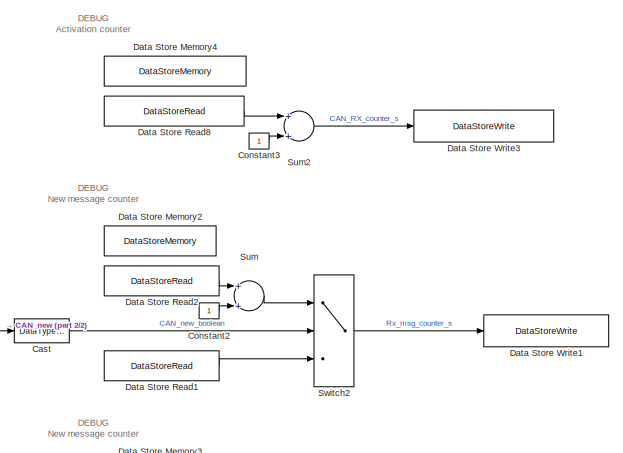
[diagram: HANcoder STM32 Target - E407-STM32 algorithm/Global Ticks Increment/CAN Recieve - part 1/2, top right region]
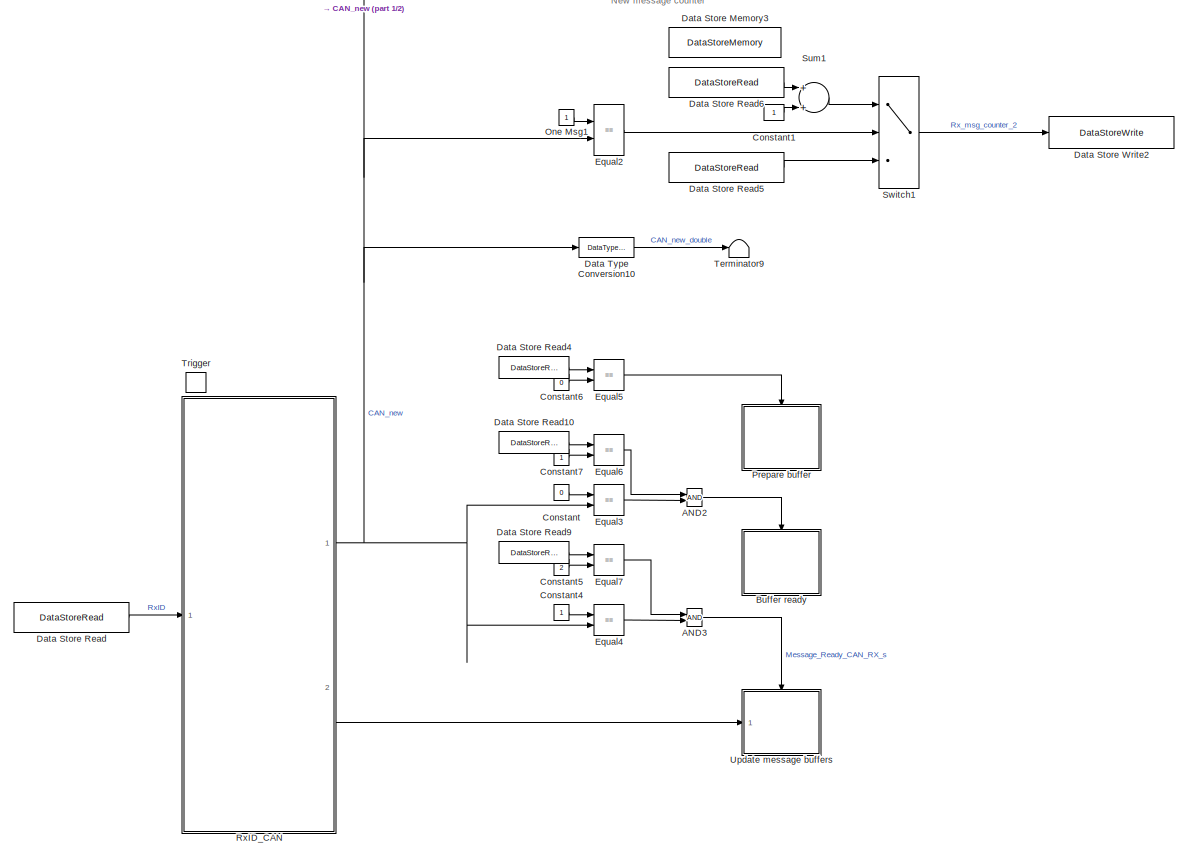
[diagram: HANcoder STM32 Target - E407-STM32 algorithm/Global Ticks Increment/CAN Recieve - part 2/2, full width, bottom band]
BLOCK [SubSystem] HANcoder STM32 Target - E407-STM32 algorithm/Global Ticks Increment/CAN Recieve
  Ports = [0, 0, 0, 1]
  RequestExecContextInheritance = off
BLOCK [Logic] HANcoder STM32 Target - E407-STM32 algorithm/Global Ticks Increment/CAN Recieve/AND2
  AllPortsSameDT = off
  IconShape = distinctive
  OutDataTypeStr = boolean
  Ports = [2, 1]
BLOCK [Logic] HANcoder STM32 Target - E407-STM32 algorithm/Global Ticks Increment/CAN Recieve/AND3
  AllPortsSameDT = off
  IconShape = distinctive
  OutDataTypeStr = boolean
  Ports = [2, 1]
BLOCK [SubSystem] HANcoder STM32 Target - E407-STM32 algorithm/Global Ticks Increment/CAN Recieve/Buffer ready
  Ports = [0, 0, 1]
  RequestExecContextInheritance = off
  TreatAsAtomicUnit = on
BLOCK [DataStoreWrite] HANcoder STM32 Target - E407-STM32 algorithm/Global Ticks Increment/CAN Recieve/Buffer ready/Data Store Write
  DataStoreName = Rx_State
  Ports = [1]
BLOCK [DataStoreWrite] HANcoder STM32 Target - E407-STM32 algorithm/Global Ticks Increment/CAN Recieve/Buffer ready/Data Store Write1
  DataStoreName = Toggle_Pin
  Ports = [1]
BLOCK [EnablePort] HANcoder STM32 Target - E407-STM32 algorithm/Global Ticks Increment/CAN Recieve/Buffer ready/Enable
  Ports = []
BLOCK [Constant] HANcoder STM32 Target - E407-STM32 algorithm/Global Ticks Increment/CAN Recieve/Buffer ready/New_Msg
  OutDataTypeStr = uint8
  Value = 2
BLOCK [Constant] HANcoder STM32 Target - E407-STM32 algorithm/Global Ticks Increment/CAN Recieve/Buffer ready/SET
  OutDataTypeStr = boolean
BLOCK [DataTypeConversion] HANcoder STM32 Target - E407-STM32 algorithm/Global Ticks Increment/CAN Recieve/Cast
  OutDataTypeStr = boolean
  RndMeth = Floor
  SaturateOnIntegerOverflow = off
BLOCK [Constant] HANcoder STM32 Target - E407-STM32 algorithm/Global Ticks Increment/CAN Recieve/Constant
  Value = 0
BLOCK [Constant] HANcoder STM32 Target - E407-STM32 algorithm/Global Ticks Increment/CAN Recieve/Constant1
  OutDataTypeStr = uint32
BLOCK [Constant] HANcoder STM32 Target - E407-STM32 algorithm/Global Ticks Increment/CAN Recieve/Constant2
  OutDataTypeStr = uint32
BLOCK [Constant] HANcoder STM32 Target - E407-STM32 algorithm/Global Ticks Increment/CAN Recieve/Constant3
  OutDataTypeStr = uint32
BLOCK [Constant] HANcoder STM32 Target - E407-STM32 algorithm/Global Ticks Increment/CAN Recieve/Constant4
BLOCK [Constant] HANcoder STM32 Target - E407-STM32 algorithm/Global Ticks Increment/CAN Recieve/Constant5
  Value = 2
BLOCK [Constant] HANcoder STM32 Target - E407-STM32 algorithm/Global Ticks Increment/CAN Recieve/Constant6
  Value = 0
BLOCK [Constant] HANcoder STM32 Target - E407-STM32 algorithm/Global Ticks Increment/CAN Recieve/Constant7
BLOCK [DataStoreMemory] HANcoder STM32 Target - E407-STM32 algorithm/Global Ticks Increment/CAN Recieve/Data Store Memory2
  DataStoreName = new_msg_counter
  OutDataTypeStr = uint32
  ReadBeforeWriteMsg = warning
  ShowAdditionalParam = off
  WriteAfterReadMsg = warning
  WriteAfterWriteMsg = warning
BLOCK [DataStoreMemory] HANcoder STM32 Target - E407-STM32 algorithm/Global Ticks Increment/CAN Recieve/Data Store Memory3
  DataStoreName = new_msg_counter_2
  OutDataTypeStr = uint32
  ReadBeforeWriteMsg = warning
  ShowAdditionalParam = off
  WriteAfterReadMsg = warning
  WriteAfterWriteMsg = warning
BLOCK [DataStoreMemory] HANcoder STM32 Target - E407-STM32 algorithm/Global Ticks Increment/CAN Recieve/Data Store Memory4
  DataStoreName = CAN_Rx_activation_counter
  OutDataTypeStr = uint32
  ReadBeforeWriteMsg = warning
  ShowAdditionalParam = off
  WriteAfterReadMsg = warning
  WriteAfterWriteMsg = warning
BLOCK [DataStoreRead] HANcoder STM32 Target - E407-STM32 algorithm/Global Ticks Increment/CAN Recieve/Data Store Read
  DataStoreName = RxID_buffer
  Ports = [0, 1]
BLOCK [DataStoreRead] HANcoder STM32 Target - E407-STM32 algorithm/Global Ticks Increment/CAN Recieve/Data Store Read1
  DataStoreName = new_msg_counter
  Ports = [0, 1]
BLOCK [DataStoreRead] HANcoder STM32 Target - E407-STM32 algorithm/Global Ticks Increment/CAN Recieve/Data Store Read10
  DataStoreName = Rx_State
  Ports = [0, 1]
BLOCK [DataStoreRead] HANcoder STM32 Target - E407-STM32 algorithm/Global Ticks Increment/CAN Recieve/Data Store Read2
  DataStoreName = new_msg_counter
  Ports = [0, 1]
BLOCK [DataStoreRead] HANcoder STM32 Target - E407-STM32 algorithm/Global Ticks Increment/CAN Recieve/Data Store Read4
  DataStoreName = Rx_State
  Ports = [0, 1]
BLOCK [DataStoreRead] HANcoder STM32 Target - E407-STM32 algorithm/Global Ticks Increment/CAN Recieve/Data Store Read5
  DataStoreName = new_msg_counter_2
  Ports = [0, 1]
BLOCK [DataStoreRead] HANcoder STM32 Target - E407-STM32 algorithm/Global Ticks Increment/CAN Recieve/Data Store Read6
  DataStoreName = new_msg_counter_2
  Ports = [0, 1]
BLOCK [DataStoreRead] HANcoder STM32 Target - E407-STM32 algorithm/Global Ticks Increment/CAN Recieve/Data Store Read8
  DataStoreName = CAN_Rx_activation_counter
  Ports = [0, 1]
BLOCK [DataStoreRead] HANcoder STM32 Target - E407-STM32 algorithm/Global Ticks Increment/CAN Recieve/Data Store Read9
  DataStoreName = Rx_State
  Ports = [0, 1]
BLOCK [DataStoreWrite] HANcoder STM32 Target - E407-STM32 algorithm/Global Ticks Increment/CAN Recieve/Data Store Write1
  DataStoreName = new_msg_counter
  Ports = [1]
BLOCK [DataStoreWrite] HANcoder STM32 Target - E407-STM32 algorithm/Global Ticks Increment/CAN Recieve/Data Store Write2
  DataStoreName = new_msg_counter_2
  Ports = [1]
BLOCK [DataStoreWrite] HANcoder STM32 Target - E407-STM32 algorithm/Global Ticks Increment/CAN Recieve/Data Store Write3
  DataStoreName = CAN_Rx_activation_counter
  Ports = [1]
BLOCK [DataTypeConversion] HANcoder STM32 Target - E407-STM32 algorithm/Global Ticks Increment/CAN Recieve/Data Type Conversion10
  OutDataTypeStr = double
  RndMeth = Floor
  SaturateOnIntegerOverflow = off
BLOCK [RelationalOperator] HANcoder STM32 Target - E407-STM32 algorithm/Global Ticks Increment/CAN Recieve/Equal2
  InputSameDT = off
  Operator = ==
  OutDataTypeStr = boolean
  Ports = [2, 1]
  RndMeth = Simplest
BLOCK [RelationalOperator] HANcoder STM32 Target - E407-STM32 algorithm/Global Ticks Increment/CAN Recieve/Equal3
  InputSameDT = off
  Operator = ==
  OutDataTypeStr = boolean
  Ports = [2, 1]
  RndMeth = Simplest
BLOCK [RelationalOperator] HANcoder STM32 Target - E407-STM32 algorithm/Global Ticks Increment/CAN Recieve/Equal4
  InputSameDT = off
  Operator = ==
  OutDataTypeStr = boolean
  Ports = [2, 1]
  RndMeth = Simplest
BLOCK [RelationalOperator] HANcoder STM32 Target - E407-STM32 algorithm/Global Ticks Increment/CAN Recieve/Equal5
  InputSameDT = off
  Operator = ==
  OutDataTypeStr = boolean
  Ports = [2, 1]
  RndMeth = Simplest
BLOCK [RelationalOperator] HANcoder STM32 Target - E407-STM32 algorithm/Global Ticks Increment/CAN Recieve/Equal6
  InputSameDT = off
  Operator = ==
  OutDataTypeStr = boolean
  Ports = [2, 1]
  RndMeth = Simplest
BLOCK [RelationalOperator] HANcoder STM32 Target - E407-STM32 algorithm/Global Ticks Increment/CAN Recieve/Equal7
  InputSameDT = off
  Operator = ==
  OutDataTypeStr = boolean
  Ports = [2, 1]
  RndMeth = Simplest
BLOCK [Constant] HANcoder STM32 Target - E407-STM32 algorithm/Global Ticks Increment/CAN Recieve/One Msg1
BLOCK [SubSystem] HANcoder STM32 Target - E407-STM32 algorithm/Global Ticks Increment/CAN Recieve/Prepare buffer
  Ports = [0, 0, 1]
  RequestExecContextInheritance = off
  TreatAsAtomicUnit = on
BLOCK [Constant] HANcoder STM32 Target - E407-STM32 algorithm/Global Ticks Increment/CAN Recieve/Prepare buffer/Constant1
  OutDataTypeStr = uint8
BLOCK [DataStoreWrite] HANcoder STM32 Target - E407-STM32 algorithm/Global Ticks Increment/CAN Recieve/Prepare buffer/Data Store Write
  DataStoreName = Rx_State
  Ports = [1]
BLOCK [DataStoreWrite] HANcoder STM32 Target - E407-STM32 algorithm/Global Ticks Increment/CAN Recieve/Prepare buffer/Data Store Write1
  DataStoreName = Toggle_Pin
  Ports = [1]
BLOCK [EnablePort] HANcoder STM32 Target - E407-STM32 algorithm/Global Ticks Increment/CAN Recieve/Prepare buffer/Enable
  Ports = []
BLOCK [Constant] HANcoder STM32 Target - E407-STM32 algorithm/Global Ticks Increment/CAN Recieve/Prepare buffer/SET
  OutDataTypeStr = boolean
BLOCK [SubSystem] HANcoder STM32 Target - E407-STM32 algorithm/Global Ticks Increment/CAN Recieve/RxID_CAN
  Ports = [1, 2]
  RequestExecContextInheritance = off
BLOCK [BusCreator] HANcoder STM32 Target - E407-STM32 algorithm/Global Ticks Increment/CAN Recieve/RxID_CAN/Bus Creator
  DisplayOption = bar
  InheritFromInputs = on
  Inputs = 9
  Ports = [9, 1]
BLOCK [BusCreator] HANcoder STM32 Target - E407-STM32 algorithm/Global Ticks Increment/CAN Recieve/RxID_CAN/Bus Creator1
  DisplayOption = bar
  InheritFromInputs = on
  Inputs = 9
  Ports = [9, 1]
BLOCK [BusCreator] HANcoder STM32 Target - E407-STM32 algorithm/Global Ticks Increment/CAN Recieve/RxID_CAN/Bus Creator2
  DisplayOption = bar
  InheritFromInputs = on
  Inputs = 9
  Ports = [9, 1]
BLOCK [BusCreator] HANcoder STM32 Target - E407-STM32 algorithm/Global Ticks Increment/CAN Recieve/RxID_CAN/Bus Creator3
  DisplayOption = bar
  InheritFromInputs = on
  Inputs = 9
  Ports = [9, 1]
BLOCK [BusCreator] HANcoder STM32 Target - E407-STM32 algorithm/Global Ticks Increment/CAN Recieve/RxID_CAN/Bus Creator4
  DisplayOption = bar
  InheritFromInputs = on
  Inputs = 8
  Ports = [8, 1]
BLOCK [BusSelector] HANcoder STM32 Target - E407-STM32 algorithm/Global Ticks Increment/CAN Recieve/RxID_CAN/Bus Selector
  OutputAsBus = off
  OutputSignals = signal1,signal2,signal3,signal4,signal5,signal6,signal7,signal8,signal9
  Ports = [1, 9]
BLOCK [Outport] HANcoder STM32 Target - E407-STM32 algorithm/Global Ticks Increment/CAN Recieve/RxID_CAN/CAN_new
  IconDisplay = Port number
BLOCK [Constant] HANcoder STM32 Target - E407-STM32 algorithm/Global Ticks Increment/CAN Recieve/RxID_CAN/Constant
  Value = Sync_ID
BLOCK [Constant] HANcoder STM32 Target - E407-STM32 algorithm/Global Ticks Increment/CAN Recieve/RxID_CAN/Constant1
  Value = Vote1_ID
BLOCK [Constant] HANcoder STM32 Target - E407-STM32 algorithm/Global Ticks Increment/CAN Recieve/RxID_CAN/Constant2
  Value = Vote2_ID
BLOCK [Constant] HANcoder STM32 Target - E407-STM32 algorithm/Global Ticks Increment/CAN Recieve/RxID_CAN/Constant3
  Value = Vote3_ID
BLOCK [RelationalOperator] HANcoder STM32 Target - E407-STM32 algorithm/Global Ticks Increment/CAN Recieve/RxID_CAN/Equal
  InputSameDT = off
  Operator = ==
  OutDataTypeStr = boolean
  Ports = [2, 1]
  RndMeth = Simplest
BLOCK [RelationalOperator] HANcoder STM32 Target - E407-STM32 algorithm/Global Ticks Increment/CAN Recieve/RxID_CAN/Equal1
  InputSameDT = off
  Operator = ==
  OutDataTypeStr = boolean
  Ports = [2, 1]
  RndMeth = Simplest
BLOCK [RelationalOperator] HANcoder STM32 Target - E407-STM32 algorithm/Global Ticks Increment/CAN Recieve/RxID_CAN/Equal2
  InputSameDT = off
  Operator = ==
  OutDataTypeStr = boolean
  Ports = [2, 1]
  RndMeth = Simplest
BLOCK [RelationalOperator] HANcoder STM32 Target - E407-STM32 algorithm/Global Ticks Increment/CAN Recieve/RxID_CAN/Equal3
  InputSameDT = off
  Operator = ==
  OutDataTypeStr = boolean
  Ports = [2, 1]
  RndMeth = Simplest
BLOCK [Inport] HANcoder STM32 Target - E407-STM32 algorithm/Global Ticks Increment/CAN Recieve/RxID_CAN/RxID
  IconDisplay = Port number
BLOCK [Switch] HANcoder STM32 Target - E407-STM32 algorithm/Global Ticks Increment/CAN Recieve/RxID_CAN/Switch
  Criteria = u2 > Threshold
  InputSameDT = off
  SaturateOnIntegerOverflow = off
BLOCK [Switch] HANcoder STM32 Target - E407-STM32 algorithm/Global Ticks Increment/CAN Recieve/RxID_CAN/Switch1
  Criteria = u2 > Threshold
  InputSameDT = off
  SaturateOnIntegerOverflow = off
BLOCK [Switch] HANcoder STM32 Target - E407-STM32 algorithm/Global Ticks Increment/CAN Recieve/RxID_CAN/Switch2
  Criteria = u2 > Threshold
  InputSameDT = off
  SaturateOnIntegerOverflow = off
BLOCK [SubSystem] HANcoder STM32 Target - E407-STM32 algorithm/Global Ticks Increment/CAN Recieve/RxID_CAN/Sync_ID_CAN
  Ports = [0, 9, 1]
  RequestExecContextInheritance = off
BLOCK [SubSystem] HANcoder STM32 Target - E407-STM32 algorithm/Global Ticks Increment/CAN Recieve/RxID_CAN/Sync_ID_CAN/CAN receive
  AncestorBlock = HANcoder_STM32_Target/STM32-E407/CAN/CAN/CAN receive
  MoveFcn = drawLogos
  Ports = [1, 9]
  RequestExecContextInheritance = off
  Tag = HANcoder_TARGET_STM32_E407
  UserDataPersistent = on
BLOCK [SubSystem] HANcoder STM32 Target - E407-STM32 algorithm/Global Ticks Increment/CAN Recieve/RxID_CAN/Sync_ID_CAN/CAN receive/Enabled Subsystem
  Ports = [8, 8, 1]
  RequestExecContextInheritance = off
  TreatAsAtomicUnit = on
BLOCK [EnablePort] HANcoder STM32 Target - E407-STM32 algorithm/Global Ticks Increment/CAN Recieve/RxID_CAN/Sync_ID_CAN/CAN receive/Enabled Subsystem/Enable
  Ports = []
BLOCK [Inport] HANcoder STM32 Target - E407-STM32 algorithm/Global Ticks Increment/CAN Recieve/RxID_CAN/Sync_ID_CAN/CAN receive/Enabled Subsystem/In1
  IconDisplay = Port number
BLOCK [Inport] HANcoder STM32 Target - E407-STM32 algorithm/Global Ticks Increment/CAN Recieve/RxID_CAN/Sync_ID_CAN/CAN receive/Enabled Subsystem/In2
  IconDisplay = Port number
  Port = 2
BLOCK [Inport] HANcoder STM32 Target - E407-STM32 algorithm/Global Ticks Increment/CAN Recieve/RxID_CAN/Sync_ID_CAN/CAN receive/Enabled Subsystem/In3
  IconDisplay = Port number
  Port = 3
BLOCK [Inport] HANcoder STM32 Target - E407-STM32 algorithm/Global Ticks Increment/CAN Recieve/RxID_CAN/Sync_ID_CAN/CAN receive/Enabled Subsystem/In4
  IconDisplay = Port number
  Port = 4
BLOCK [Inport] HANcoder STM32 Target - E407-STM32 algorithm/Global Ticks Increment/CAN Recieve/RxID_CAN/Sync_ID_CAN/CAN receive/Enabled Subsystem/In5
  IconDisplay = Port number
  Port = 5
BLOCK [Inport] HANcoder STM32 Target - E407-STM32 algorithm/Global Ticks Increment/CAN Recieve/RxID_CAN/Sync_ID_CAN/CAN receive/Enabled Subsystem/In6
  IconDisplay = Port number
  Port = 6
BLOCK [Inport] HANcoder STM32 Target - E407-STM32 algorithm/Global Ticks Increment/CAN Recieve/RxID_CAN/Sync_ID_CAN/CAN receive/Enabled Subsystem/In7
  IconDisplay = Port number
  Port = 7
BLOCK [Inport] HANcoder STM32 Target - E407-STM32 algorithm/Global Ticks Increment/CAN Recieve/RxID_CAN/Sync_ID_CAN/CAN receive/Enabled Subsystem/In8
  IconDisplay = Port number
  Port = 8
BLOCK [Outport] HANcoder STM32 Target - E407-STM32 algorithm/Global Ticks Increment/CAN Recieve/RxID_CAN/Sync_ID_CAN/CAN receive/Enabled Subsystem/Out1
  IconDisplay = Port number
BLOCK [Outport] HANcoder STM32 Target - E407-STM32 algorithm/Global Ticks Increment/CAN Recieve/RxID_CAN/Sync_ID_CAN/CAN receive/Enabled Subsystem/Out2
  IconDisplay = Port number
  Port = 2
BLOCK [Outport] HANcoder STM32 Target - E407-STM32 algorithm/Global Ticks Increment/CAN Recieve/RxID_CAN/Sync_ID_CAN/CAN receive/Enabled Subsystem/Out3
  IconDisplay = Port number
  Port = 3
BLOCK [Outport] HANcoder STM32 Target - E407-STM32 algorithm/Global Ticks Increment/CAN Recieve/RxID_CAN/Sync_ID_CAN/CAN receive/Enabled Subsystem/Out4
  IconDisplay = Port number
  Port = 4
BLOCK [Outport] HANcoder STM32 Target - E407-STM32 algorithm/Global Ticks Increment/CAN Recieve/RxID_CAN/Sync_ID_CAN/CAN receive/Enabled Subsystem/Out5
  IconDisplay = Port number
  Port = 5
BLOCK [Outport] HANcoder STM32 Target - E407-STM32 algorithm/Global Ticks Increment/CAN Recieve/RxID_CAN/Sync_ID_CAN/CAN receive/Enabled Subsystem/Out6
  IconDisplay = Port number
  Port = 6
BLOCK [Outport] HANcoder STM32 Target - E407-STM32 algorithm/Global Ticks Increment/CAN Recieve/RxID_CAN/Sync_ID_CAN/CAN receive/Enabled Subsystem/Out7
  IconDisplay = Port number
  Port = 7
BLOCK [Outport] HANcoder STM32 Target - E407-STM32 algorithm/Global Ticks Increment/CAN Recieve/RxID_CAN/Sync_ID_CAN/CAN receive/Enabled Subsystem/Out8
  IconDisplay = Port number
  Port = 8
BLOCK [Inport] HANcoder STM32 Target - E407-STM32 algorithm/Global Ticks Increment/CAN Recieve/RxID_CAN/Sync_ID_CAN/CAN receive/In1
  IconDisplay = Port number
BLOCK [Outport] HANcoder STM32 Target - E407-STM32 algorithm/Global Ticks Increment/CAN Recieve/RxID_CAN/Sync_ID_CAN/CAN receive/Out1
  IconDisplay = Port number
BLOCK [Outport] HANcoder STM32 Target - E407-STM32 algorithm/Global Ticks Increment/CAN Recieve/RxID_CAN/Sync_ID_CAN/CAN receive/Out2
  IconDisplay = Port number
  Port = 2
BLOCK [Outport] HANcoder STM32 Target - E407-STM32 algorithm/Global Ticks Increment/CAN Recieve/RxID_CAN/Sync_ID_CAN/CAN receive/Out3
  IconDisplay = Port number
  Port = 3
BLOCK [Outport] HANcoder STM32 Target - E407-STM32 algorithm/Global Ticks Increment/CAN Recieve/RxID_CAN/Sync_ID_CAN/CAN receive/Out4
  IconDisplay = Port number
  Port = 4
BLOCK [Outport] HANcoder STM32 Target - E407-STM32 algorithm/Global Ticks Increment/CAN Recieve/RxID_CAN/Sync_ID_CAN/CAN receive/Out5
  IconDisplay = Port number
  Port = 5
BLOCK [Outport] HANcoder STM32 Target - E407-STM32 algorithm/Global Ticks Increment/CAN Recieve/RxID_CAN/Sync_ID_CAN/CAN receive/Out6
  IconDisplay = Port number
  Port = 6
BLOCK [Outport] HANcoder STM32 Target - E407-STM32 algorithm/Global Ticks Increment/CAN Recieve/RxID_CAN/Sync_ID_CAN/CAN receive/Out7
  IconDisplay = Port number
  Port = 7
BLOCK [Outport] HANcoder STM32 Target - E407-STM32 algorithm/Global Ticks Increment/CAN Recieve/RxID_CAN/Sync_ID_CAN/CAN receive/Out8
  IconDisplay = Port number
  Port = 8
BLOCK [Outport] HANcoder STM32 Target - E407-STM32 algorithm/Global Ticks Increment/CAN Recieve/RxID_CAN/Sync_ID_CAN/CAN receive/Out9
  IconDisplay = Port number
  Port = 9
BLOCK [M-S-Function] HANcoder STM32 Target - E407-STM32 algorithm/Global Ticks Increment/CAN Recieve/RxID_CAN/Sync_ID_CAN/CAN receive/S-Function
  FunctionName = sfcn_can_receive
  Parameters = tsamp, canBus, outputNumber, dataType, byteOrder
  Ports = [1, 9]
BLOCK [Outport] HANcoder STM32 Target - E407-STM32 algorithm/Global Ticks Increment/CAN Recieve/RxID_CAN/Sync_ID_CAN/CAN_new
  IconDisplay = Port number
  InitialOutput = 0
  OutputWhenDisabled = reset
BLOCK [Constant] HANcoder STM32 Target - E407-STM32 algorithm/Global Ticks Increment/CAN Recieve/RxID_CAN/Sync_ID_CAN/Constant
  OutDataTypeStr = uint32
  Value = Sync_ID
BLOCK [EnablePort] HANcoder STM32 Target - E407-STM32 algorithm/Global Ticks Increment/CAN Recieve/RxID_CAN/Sync_ID_CAN/Enable
  Ports = []
BLOCK [Outport] HANcoder STM32 Target - E407-STM32 algorithm/Global Ticks Increment/CAN Recieve/RxID_CAN/Sync_ID_CAN/Out2
  IconDisplay = Port number
  InitialOutput = 0
  OutputWhenDisabled = reset
  Port = 2
BLOCK [Outport] HANcoder STM32 Target - E407-STM32 algorithm/Global Ticks Increment/CAN Recieve/RxID_CAN/Sync_ID_CAN/Out3
  IconDisplay = Port number
  InitialOutput = 0
  OutputWhenDisabled = reset
  Port = 3
BLOCK [Outport] HANcoder STM32 Target - E407-STM32 algorithm/Global Ticks Increment/CAN Recieve/RxID_CAN/Sync_ID_CAN/Out4
  IconDisplay = Port number
  InitialOutput = 0
  OutputWhenDisabled = reset
  Port = 4
BLOCK [Outport] HANcoder STM32 Target - E407-STM32 algorithm/Global Ticks Increment/CAN Recieve/RxID_CAN/Sync_ID_CAN/Out5
  IconDisplay = Port number
  InitialOutput = 0
  OutputWhenDisabled = reset
  Port = 5
BLOCK [Outport] HANcoder STM32 Target - E407-STM32 algorithm/Global Ticks Increment/CAN Recieve/RxID_CAN/Sync_ID_CAN/Out6
  IconDisplay = Port number
  InitialOutput = 0
  OutputWhenDisabled = reset
  Port = 6
BLOCK [Outport] HANcoder STM32 Target - E407-STM32 algorithm/Global Ticks Increment/CAN Recieve/RxID_CAN/Sync_ID_CAN/Out7
  IconDisplay = Port number
  InitialOutput = 0
  OutputWhenDisabled = reset
  Port = 7
BLOCK [Outport] HANcoder STM32 Target - E407-STM32 algorithm/Global Ticks Increment/CAN Recieve/RxID_CAN/Sync_ID_CAN/Out8
  IconDisplay = Port number
  InitialOutput = 0
  OutputWhenDisabled = reset
  Port = 8
BLOCK [Outport] HANcoder STM32 Target - E407-STM32 algorithm/Global Ticks Increment/CAN Recieve/RxID_CAN/Sync_ID_CAN/Out9
  IconDisplay = Port number
  InitialOutput = 0
  OutputWhenDisabled = reset
  Port = 9
BLOCK [SubSystem] HANcoder STM32 Target - E407-STM32 algorithm/Global Ticks Increment/CAN Recieve/RxID_CAN/Vote1_ID_CAN
  Ports = [0, 9, 1]
  RequestExecContextInheritance = off
BLOCK [SubSystem] HANcoder STM32 Target - E407-STM32 algorithm/Global Ticks Increment/CAN Recieve/RxID_CAN/Vote1_ID_CAN/CAN receive
  AncestorBlock = HANcoder_STM32_Target/STM32-E407/CAN/CAN/CAN receive
  MoveFcn = drawLogos
  Ports = [1, 9]
  RequestExecContextInheritance = off
  Tag = HANcoder_TARGET_STM32_E407
  UserDataPersistent = on
BLOCK [SubSystem] HANcoder STM32 Target - E407-STM32 algorithm/Global Ticks Increment/CAN Recieve/RxID_CAN/Vote1_ID_CAN/CAN receive/Enabled Subsystem
  Ports = [8, 8, 1]
  RequestExecContextInheritance = off
  TreatAsAtomicUnit = on
BLOCK [EnablePort] HANcoder STM32 Target - E407-STM32 algorithm/Global Ticks Increment/CAN Recieve/RxID_CAN/Vote1_ID_CAN/CAN receive/Enabled Subsystem/Enable
  Ports = []
BLOCK [Inport] HANcoder STM32 Target - E407-STM32 algorithm/Global Ticks Increment/CAN Recieve/RxID_CAN/Vote1_ID_CAN/CAN receive/Enabled Subsystem/In1
  IconDisplay = Port number
BLOCK [Inport] HANcoder STM32 Target - E407-STM32 algorithm/Global Ticks Increment/CAN Recieve/RxID_CAN/Vote1_ID_CAN/CAN receive/Enabled Subsystem/In2
  IconDisplay = Port number
  Port = 2
BLOCK [Inport] HANcoder STM32 Target - E407-STM32 algorithm/Global Ticks Increment/CAN Recieve/RxID_CAN/Vote1_ID_CAN/CAN receive/Enabled Subsystem/In3
  IconDisplay = Port number
  Port = 3
BLOCK [Inport] HANcoder STM32 Target - E407-STM32 algorithm/Global Ticks Increment/CAN Recieve/RxID_CAN/Vote1_ID_CAN/CAN receive/Enabled Subsystem/In4
  IconDisplay = Port number
  Port = 4
BLOCK [Inport] HANcoder STM32 Target - E407-STM32 algorithm/Global Ticks Increment/CAN Recieve/RxID_CAN/Vote1_ID_CAN/CAN receive/Enabled Subsystem/In5
  IconDisplay = Port number
  Port = 5
BLOCK [Inport] HANcoder STM32 Target - E407-STM32 algorithm/Global Ticks Increment/CAN Recieve/RxID_CAN/Vote1_ID_CAN/CAN receive/Enabled Subsystem/In6
  IconDisplay = Port number
  Port = 6
BLOCK [Inport] HANcoder STM32 Target - E407-STM32 algorithm/Global Ticks Increment/CAN Recieve/RxID_CAN/Vote1_ID_CAN/CAN receive/Enabled Subsystem/In7
  IconDisplay = Port number
  Port = 7
BLOCK [Inport] HANcoder STM32 Target - E407-STM32 algorithm/Global Ticks Increment/CAN Recieve/RxID_CAN/Vote1_ID_CAN/CAN receive/Enabled Subsystem/In8
  IconDisplay = Port number
  Port = 8
BLOCK [Outport] HANcoder STM32 Target - E407-STM32 algorithm/Global Ticks Increment/CAN Recieve/RxID_CAN/Vote1_ID_CAN/CAN receive/Enabled Subsystem/Out1
  IconDisplay = Port number
BLOCK [Outport] HANcoder STM32 Target - E407-STM32 algorithm/Global Ticks Increment/CAN Recieve/RxID_CAN/Vote1_ID_CAN/CAN receive/Enabled Subsystem/Out2
  IconDisplay = Port number
  Port = 2
BLOCK [Outport] HANcoder STM32 Target - E407-STM32 algorithm/Global Ticks Increment/CAN Recieve/RxID_CAN/Vote1_ID_CAN/CAN receive/Enabled Subsystem/Out3
  IconDisplay = Port number
  Port = 3
BLOCK [Outport] HANcoder STM32 Target - E407-STM32 algorithm/Global Ticks Increment/CAN Recieve/RxID_CAN/Vote1_ID_CAN/CAN receive/Enabled Subsystem/Out4
  IconDisplay = Port number
  Port = 4
BLOCK [Outport] HANcoder STM32 Target - E407-STM32 algorithm/Global Ticks Increment/CAN Recieve/RxID_CAN/Vote1_ID_CAN/CAN receive/Enabled Subsystem/Out5
  IconDisplay = Port number
  Port = 5
BLOCK [Outport] HANcoder STM32 Target - E407-STM32 algorithm/Global Ticks Increment/CAN Recieve/RxID_CAN/Vote1_ID_CAN/CAN receive/Enabled Subsystem/Out6
  IconDisplay = Port number
  Port = 6
BLOCK [Outport] HANcoder STM32 Target - E407-STM32 algorithm/Global Ticks Increment/CAN Recieve/RxID_CAN/Vote1_ID_CAN/CAN receive/Enabled Subsystem/Out7
  IconDisplay = Port number
  Port = 7
BLOCK [Outport] HANcoder STM32 Target - E407-STM32 algorithm/Global Ticks Increment/CAN Recieve/RxID_CAN/Vote1_ID_CAN/CAN receive/Enabled Subsystem/Out8
  IconDisplay = Port number
  Port = 8
BLOCK [Inport] HANcoder STM32 Target - E407-STM32 algorithm/Global Ticks Increment/CAN Recieve/RxID_CAN/Vote1_ID_CAN/CAN receive/In1
  IconDisplay = Port number
BLOCK [Outport] HANcoder STM32 Target - E407-STM32 algorithm/Global Ticks Increment/CAN Recieve/RxID_CAN/Vote1_ID_CAN/CAN receive/Out1
  IconDisplay = Port number
BLOCK [Outport] HANcoder STM32 Target - E407-STM32 algorithm/Global Ticks Increment/CAN Recieve/RxID_CAN/Vote1_ID_CAN/CAN receive/Out2
  IconDisplay = Port number
  Port = 2
BLOCK [Outport] HANcoder STM32 Target - E407-STM32 algorithm/Global Ticks Increment/CAN Recieve/RxID_CAN/Vote1_ID_CAN/CAN receive/Out3
  IconDisplay = Port number
  Port = 3
BLOCK [Outport] HANcoder STM32 Target - E407-STM32 algorithm/Global Ticks Increment/CAN Recieve/RxID_CAN/Vote1_ID_CAN/CAN receive/Out4
  IconDisplay = Port number
  Port = 4
BLOCK [Outport] HANcoder STM32 Target - E407-STM32 algorithm/Global Ticks Increment/CAN Recieve/RxID_CAN/Vote1_ID_CAN/CAN receive/Out5
  IconDisplay = Port number
  Port = 5
BLOCK [Outport] HANcoder STM32 Target - E407-STM32 algorithm/Global Ticks Increment/CAN Recieve/RxID_CAN/Vote1_ID_CAN/CAN receive/Out6
  IconDisplay = Port number
  Port = 6
BLOCK [Outport] HANcoder STM32 Target - E407-STM32 algorithm/Global Ticks Increment/CAN Recieve/RxID_CAN/Vote1_ID_CAN/CAN receive/Out7
  IconDisplay = Port number
  Port = 7
BLOCK [Outport] HANcoder STM32 Target - E407-STM32 algorithm/Global Ticks Increment/CAN Recieve/RxID_CAN/Vote1_ID_CAN/CAN receive/Out8
  IconDisplay = Port number
  Port = 8
BLOCK [Outport] HANcoder STM32 Target - E407-STM32 algorithm/Global Ticks Increment/CAN Recieve/RxID_CAN/Vote1_ID_CAN/CAN receive/Out9
  IconDisplay = Port number
  Port = 9
BLOCK [M-S-Function] HANcoder STM32 Target - E407-STM32 algorithm/Global Ticks Increment/CAN Recieve/RxID_CAN/Vote1_ID_CAN/CAN receive/S-Function
  FunctionName = sfcn_can_receive
  Parameters = tsamp, canBus, outputNumber, dataType, byteOrder
  Ports = [1, 9]
BLOCK [Outport] HANcoder STM32 Target - E407-STM32 algorithm/Global Ticks Increment/CAN Recieve/RxID_CAN/Vote1_ID_CAN/CAN_new
  IconDisplay = Port number
  InitialOutput = 0
  OutputWhenDisabled = reset
BLOCK [Constant] HANcoder STM32 Target - E407-STM32 algorithm/Global Ticks Increment/CAN Recieve/RxID_CAN/Vote1_ID_CAN/Constant
  OutDataTypeStr = uint32
  Value = Vote1_ID
BLOCK [EnablePort] HANcoder STM32 Target - E407-STM32 algorithm/Global Ticks Increment/CAN Recieve/RxID_CAN/Vote1_ID_CAN/Enable
  Ports = []
BLOCK [Outport] HANcoder STM32 Target - E407-STM32 algorithm/Global Ticks Increment/CAN Recieve/RxID_CAN/Vote1_ID_CAN/Out2
  IconDisplay = Port number
  InitialOutput = 0
  OutputWhenDisabled = reset
  Port = 2
BLOCK [Outport] HANcoder STM32 Target - E407-STM32 algorithm/Global Ticks Increment/CAN Recieve/RxID_CAN/Vote1_ID_CAN/Out3
  IconDisplay = Port number
  InitialOutput = 0
  OutputWhenDisabled = reset
  Port = 3
BLOCK [Outport] HANcoder STM32 Target - E407-STM32 algorithm/Global Ticks Increment/CAN Recieve/RxID_CAN/Vote1_ID_CAN/Out4
  IconDisplay = Port number
  InitialOutput = 0
  OutputWhenDisabled = reset
  Port = 4
BLOCK [Outport] HANcoder STM32 Target - E407-STM32 algorithm/Global Ticks Increment/CAN Recieve/RxID_CAN/Vote1_ID_CAN/Out5
  IconDisplay = Port number
  InitialOutput = 0
  OutputWhenDisabled = reset
  Port = 5
BLOCK [Outport] HANcoder STM32 Target - E407-STM32 algorithm/Global Ticks Increment/CAN Recieve/RxID_CAN/Vote1_ID_CAN/Out6
  IconDisplay = Port number
  InitialOutput = 0
  OutputWhenDisabled = reset
  Port = 6
BLOCK [Outport] HANcoder STM32 Target - E407-STM32 algorithm/Global Ticks Increment/CAN Recieve/RxID_CAN/Vote1_ID_CAN/Out7
  IconDisplay = Port number
  InitialOutput = 0
  OutputWhenDisabled = reset
  Port = 7
BLOCK [Outport] HANcoder STM32 Target - E407-STM32 algorithm/Global Ticks Increment/CAN Recieve/RxID_CAN/Vote1_ID_CAN/Out8
  IconDisplay = Port number
  InitialOutput = 0
  OutputWhenDisabled = reset
  Port = 8
BLOCK [Outport] HANcoder STM32 Target - E407-STM32 algorithm/Global Ticks Increment/CAN Recieve/RxID_CAN/Vote1_ID_CAN/Out9
  IconDisplay = Port number
  InitialOutput = 0
  OutputWhenDisabled = reset
  Port = 9
BLOCK [SubSystem] HANcoder STM32 Target - E407-STM32 algorithm/Global Ticks Increment/CAN Recieve/RxID_CAN/Vote2_ID_CAN
  Ports = [0, 9, 1]
  RequestExecContextInheritance = off
BLOCK [SubSystem] HANcoder STM32 Target - E407-STM32 algorithm/Global Ticks Increment/CAN Recieve/RxID_CAN/Vote2_ID_CAN/CAN receive
  AncestorBlock = HANcoder_STM32_Target/STM32-E407/CAN/CAN/CAN receive
  MoveFcn = drawLogos
  Ports = [1, 9]
  RequestExecContextInheritance = off
  Tag = HANcoder_TARGET_STM32_E407
  UserDataPersistent = on
BLOCK [SubSystem] HANcoder STM32 Target - E407-STM32 algorithm/Global Ticks Increment/CAN Recieve/RxID_CAN/Vote2_ID_CAN/CAN receive/Enabled Subsystem
  Ports = [8, 8, 1]
  RequestExecContextInheritance = off
  TreatAsAtomicUnit = on
BLOCK [EnablePort] HANcoder STM32 Target - E407-STM32 algorithm/Global Ticks Increment/CAN Recieve/RxID_CAN/Vote2_ID_CAN/CAN receive/Enabled Subsystem/Enable
  Ports = []
BLOCK [Inport] HANcoder STM32 Target - E407-STM32 algorithm/Global Ticks Increment/CAN Recieve/RxID_CAN/Vote2_ID_CAN/CAN receive/Enabled Subsystem/In1
  IconDisplay = Port number
BLOCK [Inport] HANcoder STM32 Target - E407-STM32 algorithm/Global Ticks Increment/CAN Recieve/RxID_CAN/Vote2_ID_CAN/CAN receive/Enabled Subsystem/In2
  IconDisplay = Port number
  Port = 2
BLOCK [Inport] HANcoder STM32 Target - E407-STM32 algorithm/Global Ticks Increment/CAN Recieve/RxID_CAN/Vote2_ID_CAN/CAN receive/Enabled Subsystem/In3
  IconDisplay = Port number
  Port = 3
BLOCK [Inport] HANcoder STM32 Target - E407-STM32 algorithm/Global Ticks Increment/CAN Recieve/RxID_CAN/Vote2_ID_CAN/CAN receive/Enabled Subsystem/In4
  IconDisplay = Port number
  Port = 4
BLOCK [Inport] HANcoder STM32 Target - E407-STM32 algorithm/Global Ticks Increment/CAN Recieve/RxID_CAN/Vote2_ID_CAN/CAN receive/Enabled Subsystem/In5
  IconDisplay = Port number
  Port = 5
BLOCK [Inport] HANcoder STM32 Target - E407-STM32 algorithm/Global Ticks Increment/CAN Recieve/RxID_CAN/Vote2_ID_CAN/CAN receive/Enabled Subsystem/In6
  IconDisplay = Port number
  Port = 6
BLOCK [Inport] HANcoder STM32 Target - E407-STM32 algorithm/Global Ticks Increment/CAN Recieve/RxID_CAN/Vote2_ID_CAN/CAN receive/Enabled Subsystem/In7
  IconDisplay = Port number
  Port = 7
BLOCK [Inport] HANcoder STM32 Target - E407-STM32 algorithm/Global Ticks Increment/CAN Recieve/RxID_CAN/Vote2_ID_CAN/CAN receive/Enabled Subsystem/In8
  IconDisplay = Port number
  Port = 8
BLOCK [Outport] HANcoder STM32 Target - E407-STM32 algorithm/Global Ticks Increment/CAN Recieve/RxID_CAN/Vote2_ID_CAN/CAN receive/Enabled Subsystem/Out1
  IconDisplay = Port number
BLOCK [Outport] HANcoder STM32 Target - E407-STM32 algorithm/Global Ticks Increment/CAN Recieve/RxID_CAN/Vote2_ID_CAN/CAN receive/Enabled Subsystem/Out2
  IconDisplay = Port number
  Port = 2
BLOCK [Outport] HANcoder STM32 Target - E407-STM32 algorithm/Global Ticks Increment/CAN Recieve/RxID_CAN/Vote2_ID_CAN/CAN receive/Enabled Subsystem/Out3
  IconDisplay = Port number
  Port = 3
BLOCK [Outport] HANcoder STM32 Target - E407-STM32 algorithm/Global Ticks Increment/CAN Recieve/RxID_CAN/Vote2_ID_CAN/CAN receive/Enabled Subsystem/Out4
  IconDisplay = Port number
  Port = 4
BLOCK [Outport] HANcoder STM32 Target - E407-STM32 algorithm/Global Ticks Increment/CAN Recieve/RxID_CAN/Vote2_ID_CAN/CAN receive/Enabled Subsystem/Out5
  IconDisplay = Port number
  Port = 5
BLOCK [Outport] HANcoder STM32 Target - E407-STM32 algorithm/Global Ticks Increment/CAN Recieve/RxID_CAN/Vote2_ID_CAN/CAN receive/Enabled Subsystem/Out6
  IconDisplay = Port number
  Port = 6
BLOCK [Outport] HANcoder STM32 Target - E407-STM32 algorithm/Global Ticks Increment/CAN Recieve/RxID_CAN/Vote2_ID_CAN/CAN receive/Enabled Subsystem/Out7
  IconDisplay = Port number
  Port = 7
BLOCK [Outport] HANcoder STM32 Target - E407-STM32 algorithm/Global Ticks Increment/CAN Recieve/RxID_CAN/Vote2_ID_CAN/CAN receive/Enabled Subsystem/Out8
  IconDisplay = Port number
  Port = 8
BLOCK [Inport] HANcoder STM32 Target - E407-STM32 algorithm/Global Ticks Increment/CAN Recieve/RxID_CAN/Vote2_ID_CAN/CAN receive/In1
  IconDisplay = Port number
BLOCK [Outport] HANcoder STM32 Target - E407-STM32 algorithm/Global Ticks Increment/CAN Recieve/RxID_CAN/Vote2_ID_CAN/CAN receive/Out1
  IconDisplay = Port number
BLOCK [Outport] HANcoder STM32 Target - E407-STM32 algorithm/Global Ticks Increment/CAN Recieve/RxID_CAN/Vote2_ID_CAN/CAN receive/Out2
  IconDisplay = Port number
  Port = 2
BLOCK [Outport] HANcoder STM32 Target - E407-STM32 algorithm/Global Ticks Increment/CAN Recieve/RxID_CAN/Vote2_ID_CAN/CAN receive/Out3
  IconDisplay = Port number
  Port = 3
BLOCK [Outport] HANcoder STM32 Target - E407-STM32 algorithm/Global Ticks Increment/CAN Recieve/RxID_CAN/Vote2_ID_CAN/CAN receive/Out4
  IconDisplay = Port number
  Port = 4
BLOCK [Outport] HANcoder STM32 Target - E407-STM32 algorithm/Global Ticks Increment/CAN Recieve/RxID_CAN/Vote2_ID_CAN/CAN receive/Out5
  IconDisplay = Port number
  Port = 5
BLOCK [Outport] HANcoder STM32 Target - E407-STM32 algorithm/Global Ticks Increment/CAN Recieve/RxID_CAN/Vote2_ID_CAN/CAN receive/Out6
  IconDisplay = Port number
  Port = 6
BLOCK [Outport] HANcoder STM32 Target - E407-STM32 algorithm/Global Ticks Increment/CAN Recieve/RxID_CAN/Vote2_ID_CAN/CAN receive/Out7
  IconDisplay = Port number
  Port = 7
BLOCK [Outport] HANcoder STM32 Target - E407-STM32 algorithm/Global Ticks Increment/CAN Recieve/RxID_CAN/Vote2_ID_CAN/CAN receive/Out8
  IconDisplay = Port number
  Port = 8
BLOCK [Outport] HANcoder STM32 Target - E407-STM32 algorithm/Global Ticks Increment/CAN Recieve/RxID_CAN/Vote2_ID_CAN/CAN receive/Out9
  IconDisplay = Port number
  Port = 9
BLOCK [M-S-Function] HANcoder STM32 Target - E407-STM32 algorithm/Global Ticks Increment/CAN Recieve/RxID_CAN/Vote2_ID_CAN/CAN receive/S-Function
  FunctionName = sfcn_can_receive
  Parameters = tsamp, canBus, outputNumber, dataType, byteOrder
  Ports = [1, 9]
BLOCK [Outport] HANcoder STM32 Target - E407-STM32 algorithm/Global Ticks Increment/CAN Recieve/RxID_CAN/Vote2_ID_CAN/CAN_new
  IconDisplay = Port number
  InitialOutput = 0
  OutputWhenDisabled = reset
BLOCK [Constant] HANcoder STM32 Target - E407-STM32 algorithm/Global Ticks Increment/CAN Recieve/RxID_CAN/Vote2_ID_CAN/Constant
  OutDataTypeStr = uint32
  Value = Vote2_ID
BLOCK [EnablePort] HANcoder STM32 Target - E407-STM32 algorithm/Global Ticks Increment/CAN Recieve/RxID_CAN/Vote2_ID_CAN/Enable
  Ports = []
BLOCK [Outport] HANcoder STM32 Target - E407-STM32 algorithm/Global Ticks Increment/CAN Recieve/RxID_CAN/Vote2_ID_CAN/Out2
  IconDisplay = Port number
  InitialOutput = 0
  OutputWhenDisabled = reset
  Port = 2
BLOCK [Outport] HANcoder STM32 Target - E407-STM32 algorithm/Global Ticks Increment/CAN Recieve/RxID_CAN/Vote2_ID_CAN/Out3
  IconDisplay = Port number
  InitialOutput = 0
  OutputWhenDisabled = reset
  Port = 3
BLOCK [Outport] HANcoder STM32 Target - E407-STM32 algorithm/Global Ticks Increment/CAN Recieve/RxID_CAN/Vote2_ID_CAN/Out4
  IconDisplay = Port number
  InitialOutput = 0
  OutputWhenDisabled = reset
  Port = 4
BLOCK [Outport] HANcoder STM32 Target - E407-STM32 algorithm/Global Ticks Increment/CAN Recieve/RxID_CAN/Vote2_ID_CAN/Out5
  IconDisplay = Port number
  InitialOutput = 0
  OutputWhenDisabled = reset
  Port = 5
BLOCK [Outport] HANcoder STM32 Target - E407-STM32 algorithm/Global Ticks Increment/CAN Recieve/RxID_CAN/Vote2_ID_CAN/Out6
  IconDisplay = Port number
  InitialOutput = 0
  OutputWhenDisabled = reset
  Port = 6
BLOCK [Outport] HANcoder STM32 Target - E407-STM32 algorithm/Global Ticks Increment/CAN Recieve/RxID_CAN/Vote2_ID_CAN/Out7
  IconDisplay = Port number
  InitialOutput = 0
  OutputWhenDisabled = reset
  Port = 7
BLOCK [Outport] HANcoder STM32 Target - E407-STM32 algorithm/Global Ticks Increment/CAN Recieve/RxID_CAN/Vote2_ID_CAN/Out8
  IconDisplay = Port number
  InitialOutput = 0
  OutputWhenDisabled = reset
  Port = 8
BLOCK [Outport] HANcoder STM32 Target - E407-STM32 algorithm/Global Ticks Increment/CAN Recieve/RxID_CAN/Vote2_ID_CAN/Out9
  IconDisplay = Port number
  InitialOutput = 0
  OutputWhenDisabled = reset
  Port = 9
BLOCK [SubSystem] HANcoder STM32 Target - E407-STM32 algorithm/Global Ticks Increment/CAN Recieve/RxID_CAN/Vote3_ID_CAN
  Ports = [0, 9, 1]
  RequestExecContextInheritance = off
BLOCK [SubSystem] HANcoder STM32 Target - E407-STM32 algorithm/Global Ticks Increment/CAN Recieve/RxID_CAN/Vote3_ID_CAN/CAN receive
  AncestorBlock = HANcoder_STM32_Target/STM32-E407/CAN/CAN/CAN receive
  MoveFcn = drawLogos
  Ports = [1, 9]
  RequestExecContextInheritance = off
  Tag = HANcoder_TARGET_STM32_E407
  UserDataPersistent = on
BLOCK [SubSystem] HANcoder STM32 Target - E407-STM32 algorithm/Global Ticks Increment/CAN Recieve/RxID_CAN/Vote3_ID_CAN/CAN receive/Enabled Subsystem
  Ports = [8, 8, 1]
  RequestExecContextInheritance = off
  TreatAsAtomicUnit = on
BLOCK [EnablePort] HANcoder STM32 Target - E407-STM32 algorithm/Global Ticks Increment/CAN Recieve/RxID_CAN/Vote3_ID_CAN/CAN receive/Enabled Subsystem/Enable
  Ports = []
BLOCK [Inport] HANcoder STM32 Target - E407-STM32 algorithm/Global Ticks Increment/CAN Recieve/RxID_CAN/Vote3_ID_CAN/CAN receive/Enabled Subsystem/In1
  IconDisplay = Port number
BLOCK [Inport] HANcoder STM32 Target - E407-STM32 algorithm/Global Ticks Increment/CAN Recieve/RxID_CAN/Vote3_ID_CAN/CAN receive/Enabled Subsystem/In2
  IconDisplay = Port number
  Port = 2
BLOCK [Inport] HANcoder STM32 Target - E407-STM32 algorithm/Global Ticks Increment/CAN Recieve/RxID_CAN/Vote3_ID_CAN/CAN receive/Enabled Subsystem/In3
  IconDisplay = Port number
  Port = 3
BLOCK [Inport] HANcoder STM32 Target - E407-STM32 algorithm/Global Ticks Increment/CAN Recieve/RxID_CAN/Vote3_ID_CAN/CAN receive/Enabled Subsystem/In4
  IconDisplay = Port number
  Port = 4
BLOCK [Inport] HANcoder STM32 Target - E407-STM32 algorithm/Global Ticks Increment/CAN Recieve/RxID_CAN/Vote3_ID_CAN/CAN receive/Enabled Subsystem/In5
  IconDisplay = Port number
  Port = 5
BLOCK [Inport] HANcoder STM32 Target - E407-STM32 algorithm/Global Ticks Increment/CAN Recieve/RxID_CAN/Vote3_ID_CAN/CAN receive/Enabled Subsystem/In6
  IconDisplay = Port number
  Port = 6
BLOCK [Inport] HANcoder STM32 Target - E407-STM32 algorithm/Global Ticks Increment/CAN Recieve/RxID_CAN/Vote3_ID_CAN/CAN receive/Enabled Subsystem/In7
  IconDisplay = Port number
  Port = 7
BLOCK [Inport] HANcoder STM32 Target - E407-STM32 algorithm/Global Ticks Increment/CAN Recieve/RxID_CAN/Vote3_ID_CAN/CAN receive/Enabled Subsystem/In8
  IconDisplay = Port number
  Port = 8
BLOCK [Outport] HANcoder STM32 Target - E407-STM32 algorithm/Global Ticks Increment/CAN Recieve/RxID_CAN/Vote3_ID_CAN/CAN receive/Enabled Subsystem/Out1
  IconDisplay = Port number
BLOCK [Outport] HANcoder STM32 Target - E407-STM32 algorithm/Global Ticks Increment/CAN Recieve/RxID_CAN/Vote3_ID_CAN/CAN receive/Enabled Subsystem/Out2
  IconDisplay = Port number
  Port = 2
BLOCK [Outport] HANcoder STM32 Target - E407-STM32 algorithm/Global Ticks Increment/CAN Recieve/RxID_CAN/Vote3_ID_CAN/CAN receive/Enabled Subsystem/Out3
  IconDisplay = Port number
  Port = 3
BLOCK [Outport] HANcoder STM32 Target - E407-STM32 algorithm/Global Ticks Increment/CAN Recieve/RxID_CAN/Vote3_ID_CAN/CAN receive/Enabled Subsystem/Out4
  IconDisplay = Port number
  Port = 4
BLOCK [Outport] HANcoder STM32 Target - E407-STM32 algorithm/Global Ticks Increment/CAN Recieve/RxID_CAN/Vote3_ID_CAN/CAN receive/Enabled Subsystem/Out5
  IconDisplay = Port number
  Port = 5
BLOCK [Outport] HANcoder STM32 Target - E407-STM32 algorithm/Global Ticks Increment/CAN Recieve/RxID_CAN/Vote3_ID_CAN/CAN receive/Enabled Subsystem/Out6
  IconDisplay = Port number
  Port = 6
BLOCK [Outport] HANcoder STM32 Target - E407-STM32 algorithm/Global Ticks Increment/CAN Recieve/RxID_CAN/Vote3_ID_CAN/CAN receive/Enabled Subsystem/Out7
  IconDisplay = Port number
  Port = 7
BLOCK [Outport] HANcoder STM32 Target - E407-STM32 algorithm/Global Ticks Increment/CAN Recieve/RxID_CAN/Vote3_ID_CAN/CAN receive/Enabled Subsystem/Out8
  IconDisplay = Port number
  Port = 8
BLOCK [Inport] HANcoder STM32 Target - E407-STM32 algorithm/Global Ticks Increment/CAN Recieve/RxID_CAN/Vote3_ID_CAN/CAN receive/In1
  IconDisplay = Port number
BLOCK [Outport] HANcoder STM32 Target - E407-STM32 algorithm/Global Ticks Increment/CAN Recieve/RxID_CAN/Vote3_ID_CAN/CAN receive/Out1
  IconDisplay = Port number
BLOCK [Outport] HANcoder STM32 Target - E407-STM32 algorithm/Global Ticks Increment/CAN Recieve/RxID_CAN/Vote3_ID_CAN/CAN receive/Out2
  IconDisplay = Port number
  Port = 2
BLOCK [Outport] HANcoder STM32 Target - E407-STM32 algorithm/Global Ticks Increment/CAN Recieve/RxID_CAN/Vote3_ID_CAN/CAN receive/Out3
  IconDisplay = Port number
  Port = 3
BLOCK [Outport] HANcoder STM32 Target - E407-STM32 algorithm/Global Ticks Increment/CAN Recieve/RxID_CAN/Vote3_ID_CAN/CAN receive/Out4
  IconDisplay = Port number
  Port = 4
BLOCK [Outport] HANcoder STM32 Target - E407-STM32 algorithm/Global Ticks Increment/CAN Recieve/RxID_CAN/Vote3_ID_CAN/CAN receive/Out5
  IconDisplay = Port number
  Port = 5
BLOCK [Outport] HANcoder STM32 Target - E407-STM32 algorithm/Global Ticks Increment/CAN Recieve/RxID_CAN/Vote3_ID_CAN/CAN receive/Out6
  IconDisplay = Port number
  Port = 6
BLOCK [Outport] HANcoder STM32 Target - E407-STM32 algorithm/Global Ticks Increment/CAN Recieve/RxID_CAN/Vote3_ID_CAN/CAN receive/Out7
  IconDisplay = Port number
  Port = 7
BLOCK [Outport] HANcoder STM32 Target - E407-STM32 algorithm/Global Ticks Increment/CAN Recieve/RxID_CAN/Vote3_ID_CAN/CAN receive/Out8
  IconDisplay = Port number
  Port = 8
BLOCK [Outport] HANcoder STM32 Target - E407-STM32 algorithm/Global Ticks Increment/CAN Recieve/RxID_CAN/Vote3_ID_CAN/CAN receive/Out9
  IconDisplay = Port number
  Port = 9
BLOCK [M-S-Function] HANcoder STM32 Target - E407-STM32 algorithm/Global Ticks Increment/CAN Recieve/RxID_CAN/Vote3_ID_CAN/CAN receive/S-Function
  FunctionName = sfcn_can_receive
  Parameters = tsamp, canBus, outputNumber, dataType, byteOrder
  Ports = [1, 9]
BLOCK [Outport] HANcoder STM32 Target - E407-STM32 algorithm/Global Ticks Increment/CAN Recieve/RxID_CAN/Vote3_ID_CAN/CAN_new
  IconDisplay = Port number
  InitialOutput = 0
  OutputWhenDisabled = reset
BLOCK [Constant] HANcoder STM32 Target - E407-STM32 algorithm/Global Ticks Increment/CAN Recieve/RxID_CAN/Vote3_ID_CAN/Constant
  OutDataTypeStr = uint32
  Value = Vote3_ID
BLOCK [EnablePort] HANcoder STM32 Target - E407-STM32 algorithm/Global Ticks Increment/CAN Recieve/RxID_CAN/Vote3_ID_CAN/Enable
  Ports = []
BLOCK [Outport] HANcoder STM32 Target - E407-STM32 algorithm/Global Ticks Increment/CAN Recieve/RxID_CAN/Vote3_ID_CAN/Out2
  IconDisplay = Port number
  InitialOutput = 0
  OutputWhenDisabled = reset
  Port = 2
BLOCK [Outport] HANcoder STM32 Target - E407-STM32 algorithm/Global Ticks Increment/CAN Recieve/RxID_CAN/Vote3_ID_CAN/Out3
  IconDisplay = Port number
  InitialOutput = 0
  OutputWhenDisabled = reset
  Port = 3
BLOCK [Outport] HANcoder STM32 Target - E407-STM32 algorithm/Global Ticks Increment/CAN Recieve/RxID_CAN/Vote3_ID_CAN/Out4
  IconDisplay = Port number
  InitialOutput = 0
  OutputWhenDisabled = reset
  Port = 4
BLOCK [Outport] HANcoder STM32 Target - E407-STM32 algorithm/Global Ticks Increment/CAN Recieve/RxID_CAN/Vote3_ID_CAN/Out5
  IconDisplay = Port number
  InitialOutput = 0
  OutputWhenDisabled = reset
  Port = 5
BLOCK [Outport] HANcoder STM32 Target - E407-STM32 algorithm/Global Ticks Increment/CAN Recieve/RxID_CAN/Vote3_ID_CAN/Out6
  IconDisplay = Port number
  InitialOutput = 0
  OutputWhenDisabled = reset
  Port = 6
BLOCK [Outport] HANcoder STM32 Target - E407-STM32 algorithm/Global Ticks Increment/CAN Recieve/RxID_CAN/Vote3_ID_CAN/Out7
  IconDisplay = Port number
  InitialOutput = 0
  OutputWhenDisabled = reset
  Port = 7
BLOCK [Outport] HANcoder STM32 Target - E407-STM32 algorithm/Global Ticks Increment/CAN Recieve/RxID_CAN/Vote3_ID_CAN/Out8
  IconDisplay = Port number
  InitialOutput = 0
  OutputWhenDisabled = reset
  Port = 8
BLOCK [Outport] HANcoder STM32 Target - E407-STM32 algorithm/Global Ticks Increment/CAN Recieve/RxID_CAN/Vote3_ID_CAN/Out9
  IconDisplay = Port number
  InitialOutput = 0
  OutputWhenDisabled = reset
  Port = 9
BLOCK [Outport] HANcoder STM32 Target - E407-STM32 algorithm/Global Ticks Increment/CAN Recieve/RxID_CAN/message
  IconDisplay = Port number
  Port = 2
BLOCK [Sum] HANcoder STM32 Target - E407-STM32 algorithm/Global Ticks Increment/CAN Recieve/Sum
  InputSameDT = off
  OutDataTypeStr = Inherit: Inherit via internal rule
  Ports = [2, 1]
  SaturateOnIntegerOverflow = off
BLOCK [Sum] HANcoder STM32 Target - E407-STM32 algorithm/Global Ticks Increment/CAN Recieve/Sum1
  InputSameDT = off
  OutDataTypeStr = Inherit: Inherit via internal rule
  Ports = [2, 1]
  SaturateOnIntegerOverflow = off
BLOCK [Sum] HANcoder STM32 Target - E407-STM32 algorithm/Global Ticks Increment/CAN Recieve/Sum2
  InputSameDT = off
  OutDataTypeStr = Inherit: Inherit via internal rule
  Ports = [2, 1]
  SaturateOnIntegerOverflow = off
BLOCK [Switch] HANcoder STM32 Target - E407-STM32 algorithm/Global Ticks Increment/CAN Recieve/Switch1
  Criteria = u2 > Threshold
  InputSameDT = off
  SaturateOnIntegerOverflow = off
BLOCK [Switch] HANcoder STM32 Target - E407-STM32 algorithm/Global Ticks Increment/CAN Recieve/Switch2
  Criteria = u2 > Threshold
  InputSameDT = off
  SaturateOnIntegerOverflow = off
BLOCK [Terminator] HANcoder STM32 Target - E407-STM32 algorithm/Global Ticks Increment/CAN Recieve/Terminator9
BLOCK [TriggerPort] HANcoder STM32 Target - E407-STM32 algorithm/Global Ticks Increment/CAN Recieve/Trigger
  PortDimensions = 1
  Ports = []
  StatesWhenEnabling = held
  TriggerType = function-call
  VariantControl = Variant
BLOCK [SubSystem] HANcoder STM32 Target - E407-STM32 algorithm/Global Ticks Increment/CAN Recieve/Update message buffers
  Ports = [1, 0, 1]
  RequestExecContextInheritance = off
BLOCK [DataStoreWrite] HANcoder STM32 Target - E407-STM32 algorithm/Global Ticks Increment/CAN Recieve/Update message buffers/Data Store Write
  DataStoreName = Toggle_Pin
  Ports = [1]
BLOCK [DataStoreWrite] HANcoder STM32 Target - E407-STM32 algorithm/Global Ticks Increment/CAN Recieve/Update message buffers/Data Store Write1
  DataStoreName = Msg_Header_Rx
  Ports = [1]
BLOCK [DataStoreWrite] HANcoder STM32 Target - E407-STM32 algorithm/Global Ticks Increment/CAN Recieve/Update message buffers/Data Store Write2
  DataStoreName = New_Msg_Ready
  Ports = [1]
BLOCK [DataStoreWrite] HANcoder STM32 Target - E407-STM32 algorithm/Global Ticks Increment/CAN Recieve/Update message buffers/Data Store Write3
  DataStoreName = Local_Ticks_Rx
  Ports = [1]
BLOCK [DataStoreWrite] HANcoder STM32 Target - E407-STM32 algorithm/Global Ticks Increment/CAN Recieve/Update message buffers/Data Store Write4
  DataStoreName = Basic_Cycle_Rx
  Ports = [1]
BLOCK [DataStoreWrite] HANcoder STM32 Target - E407-STM32 algorithm/Global Ticks Increment/CAN Recieve/Update message buffers/Data Store Write5
  DataStoreName = Rx_State
  Ports = [1]
BLOCK [DataStoreWrite] HANcoder STM32 Target - E407-STM32 algorithm/Global Ticks Increment/CAN Recieve/Update message buffers/Data Store Write6
  DataStoreName = Msg_Rx_Ticks
  Ports = [1]
BLOCK [DataTypeConversion] HANcoder STM32 Target - E407-STM32 algorithm/Global Ticks Increment/CAN Recieve/Update message buffers/Data Type Conversion1
  OutDataTypeStr = double
  RndMeth = Floor
  SaturateOnIntegerOverflow = off
BLOCK [DataTypeConversion] HANcoder STM32 Target - E407-STM32 algorithm/Global Ticks Increment/CAN Recieve/Update message buffers/Data Type Conversion2
  OutDataTypeStr = double
  RndMeth = Floor
  SaturateOnIntegerOverflow = off
BLOCK [DataTypeConversion] HANcoder STM32 Target - E407-STM32 algorithm/Global Ticks Increment/CAN Recieve/Update message buffers/Data Type Conversion3
  OutDataTypeStr = double
  RndMeth = Floor
  SaturateOnIntegerOverflow = off
BLOCK [DataTypeConversion] HANcoder STM32 Target - E407-STM32 algorithm/Global Ticks Increment/CAN Recieve/Update message buffers/Data Type Conversion4
  OutDataTypeStr = double
  RndMeth = Floor
  SaturateOnIntegerOverflow = off
BLOCK [DataTypeConversion] HANcoder STM32 Target - E407-STM32 algorithm/Global Ticks Increment/CAN Recieve/Update message buffers/Data Type Conversion5
  OutDataTypeStr = double
  RndMeth = Floor
  SaturateOnIntegerOverflow = off
BLOCK [DataTypeConversion] HANcoder STM32 Target - E407-STM32 algorithm/Global Ticks Increment/CAN Recieve/Update message buffers/Data Type Conversion6
  OutDataTypeStr = double
  RndMeth = Floor
  SaturateOnIntegerOverflow = off
BLOCK [DataTypeConversion] HANcoder STM32 Target - E407-STM32 algorithm/Global Ticks Increment/CAN Recieve/Update message buffers/Data Type Conversion7
  OutDataTypeStr = double
  RndMeth = Floor
  SaturateOnIntegerOverflow = off
BLOCK [DataTypeConversion] HANcoder STM32 Target - E407-STM32 algorithm/Global Ticks Increment/CAN Recieve/Update message buffers/Data Type Conversion8
  OutDataTypeStr = double
  RndMeth = Floor
  SaturateOnIntegerOverflow = off
BLOCK [DataTypeConversion] HANcoder STM32 Target - E407-STM32 algorithm/Global Ticks Increment/CAN Recieve/Update message buffers/Data Type Conversion9
  OutDataTypeStr = double
  RndMeth = Floor
  SaturateOnIntegerOverflow = off
BLOCK [Demux] HANcoder STM32 Target - E407-STM32 algorithm/Global Ticks Increment/CAN Recieve/Update message buffers/Demux
  DisplayOption = bar
  Outputs = 8
  Ports = [1, 8]
BLOCK [EnablePort] HANcoder STM32 Target - E407-STM32 algorithm/Global Ticks Increment/CAN Recieve/Update message buffers/Enable
  Ports = []
BLOCK [Constant] HANcoder STM32 Target - E407-STM32 algorithm/Global Ticks Increment/CAN Recieve/Update message buffers/Idle_State
  OutDataTypeStr = uint8
  Value = 3
BLOCK [DataStoreRead] HANcoder STM32 Target - E407-STM32 algorithm/Global Ticks Increment/CAN Recieve/Update message buffers/Local_Time
  DataStoreName = Local_Ticks
  Ports = [0, 1]
BLOCK [Constant] HANcoder STM32 Target - E407-STM32 algorithm/Global Ticks Increment/CAN Recieve/Update message buffers/SET
  OutDataTypeStr = boolean
BLOCK [Terminator] HANcoder STM32 Target - E407-STM32 algorithm/Global Ticks Increment/CAN Recieve/Update message buffers/Terminator1
BLOCK [Terminator] HANcoder STM32 Target - E407-STM32 algorithm/Global Ticks Increment/CAN Recieve/Update message buffers/Terminator2
BLOCK [Terminator] HANcoder STM32 Target - E407-STM32 algorithm/Global Ticks Increment/CAN Recieve/Update message buffers/Terminator3
BLOCK [Terminator] HANcoder STM32 Target - E407-STM32 algorithm/Global Ticks Increment/CAN Recieve/Update message buffers/Terminator4
BLOCK [Terminator] HANcoder STM32 Target - E407-STM32 algorithm/Global Ticks Increment/CAN Recieve/Update message buffers/Terminator5
BLOCK [Terminator] HANcoder STM32 Target - E407-STM32 algorithm/Global Ticks Increment/CAN Recieve/Update message buffers/Terminator6
BLOCK [Terminator] HANcoder STM32 Target - E407-STM32 algorithm/Global Ticks Increment/CAN Recieve/Update message buffers/Terminator7
BLOCK [Terminator] HANcoder STM32 Target - E407-STM32 algorithm/Global Ticks Increment/CAN Recieve/Update message buffers/Terminator8
BLOCK [SubSystem] HANcoder STM32 Target - E407-STM32 algorithm/Global Ticks Increment/CAN Recieve/Update message buffers/UINT8 to UINT16
  Ports = [2, 1]
  RequestExecContextInheritance = off
BLOCK [Reference] HANcoder STM32 Target - E407-STM32 algorithm/Global Ticks Increment/CAN Recieve/Update message buffers/UINT8 to UINT16/Bit Shift  REF=hdlsllib/Logic and Bit
Operations/Bit Shift
  Ports = [1, 1]
  SourceBlock = hdlsllib/Logic and Bit\nOperations/Bit Shift
  SourceProductBaseCode = HD
  SourceProductName = HDL Coder
  SourceType = Bit Shift
BLOCK [DataTypeConversion] HANcoder STM32 Target - E407-STM32 algorithm/Global Ticks Increment/CAN Recieve/Update message buffers/UINT8 to UINT16/Cast1
  OutDataTypeStr = uint16
  RndMeth = Floor
  SaturateOnIntegerOverflow = off
BLOCK [DataTypeConversion] HANcoder STM32 Target - E407-STM32 algorithm/Global Ticks Increment/CAN Recieve/Update message buffers/UINT8 to UINT16/Cast4
  OutDataTypeStr = uint16
  RndMeth = Floor
  SaturateOnIntegerOverflow = off
BLOCK [Inport] HANcoder STM32 Target - E407-STM32 algorithm/Global Ticks Increment/CAN Recieve/Update message buffers/UINT8 to UINT16/In1
  IconDisplay = Port number
BLOCK [Inport] HANcoder STM32 Target - E407-STM32 algorithm/Global Ticks Increment/CAN Recieve/Update message buffers/UINT8 to UINT16/In2
  IconDisplay = Port number
  Port = 2
BLOCK [Outport] HANcoder STM32 Target - E407-STM32 algorithm/Global Ticks Increment/CAN Recieve/Update message buffers/UINT8 to UINT16/Out1
  IconDisplay = Port number
BLOCK [Sum] HANcoder STM32 Target - E407-STM32 algorithm/Global Ticks Increment/CAN Recieve/Update message buffers/UINT8 to UINT16/Sum1
  InputSameDT = off
  OutDataTypeStr = Inherit: Inherit via internal rule
  Ports = [2, 1]
  SaturateOnIntegerOverflow = off
BLOCK [Inport] HANcoder STM32 Target - E407-STM32 algorithm/Global Ticks Increment/CAN Recieve/Update message buffers/message
  IconDisplay = Port number
BLOCK [SubSystem] HANcoder STM32 Target - E407-STM32 algorithm/Global Ticks Increment/CAN Send
  Ports = [0, 0, 0, 1]
  RequestExecContextInheritance = off
BLOCK [SubSystem] HANcoder STM32 Target - E407-STM32 algorithm/Global Ticks Increment/CAN Send/CAN send
  AncestorBlock = HANcoder_STM32_Target/STM32-E407/CAN/CAN/CAN send
  MoveFcn = drawLogos
  Ports = [9]
  RequestExecContextInheritance = off
  Tag = HANcoder_TARGET_STM32_E407
  UserDataPersistent = on
BLOCK [Inport] HANcoder STM32 Target - E407-STM32 algorithm/Global Ticks Increment/CAN Send/CAN send/In1
  IconDisplay = Port number
BLOCK [Inport] HANcoder STM32 Target - E407-STM32 algorithm/Global Ticks Increment/CAN Send/CAN send/In2
  IconDisplay = Port number
  Port = 2
BLOCK [Inport] HANcoder STM32 Target - E407-STM32 algorithm/Global Ticks Increment/CAN Send/CAN send/In3
  IconDisplay = Port number
  Port = 3
BLOCK [Inport] HANcoder STM32 Target - E407-STM32 algorithm/Global Ticks Increment/CAN Send/CAN send/In4
  IconDisplay = Port number
  Port = 4
BLOCK [Inport] HANcoder STM32 Target - E407-STM32 algorithm/Global Ticks Increment/CAN Send/CAN send/In5
  IconDisplay = Port number
  Port = 5
BLOCK [Inport] HANcoder STM32 Target - E407-STM32 algorithm/Global Ticks Increment/CAN Send/CAN send/In6
  IconDisplay = Port number
  Port = 6
BLOCK [Inport] HANcoder STM32 Target - E407-STM32 algorithm/Global Ticks Increment/CAN Send/CAN send/In7
  IconDisplay = Port number
  Port = 7
BLOCK [Inport] HANcoder STM32 Target - E407-STM32 algorithm/Global Ticks Increment/CAN Send/CAN send/In8
  IconDisplay = Port number
  Port = 8
BLOCK [Inport] HANcoder STM32 Target - E407-STM32 algorithm/Global Ticks Increment/CAN Send/CAN send/In9
  IconDisplay = Port number
  Port = 9
BLOCK [M-S-Function] HANcoder STM32 Target - E407-STM32 algorithm/Global Ticks Increment/CAN Send/CAN send/S-Function
  FunctionName = sfcn_can_send
  Parameters = tsamp, canBus, frameType, inputNumber, dataType, byteOrder
  Ports = [9]
BLOCK [DataTypeConversion] HANcoder STM32 Target - E407-STM32 algorithm/Global Ticks Increment/CAN Send/Cast To Double
  OutDataTypeStr = double
  RndMeth = Floor
  SaturateOnIntegerOverflow = off
BLOCK [DataTypeConversion] HANcoder STM32 Target - E407-STM32 algorithm/Global Ticks Increment/CAN Send/Cast To Double1
  OutDataTypeStr = double
  RndMeth = Floor
  SaturateOnIntegerOverflow = off
BLOCK [Constant] HANcoder STM32 Target - E407-STM32 algorithm/Global Ticks Increment/CAN Send/Constant
  OutDataTypeStr = boolean
BLOCK [Constant] HANcoder STM32 Target - E407-STM32 algorithm/Global Ticks Increment/CAN Send/Constant1
  Value = 0
BLOCK [Constant] HANcoder STM32 Target - E407-STM32 algorithm/Global Ticks Increment/CAN Send/Constant3
  OutDataTypeStr = uint32
BLOCK [DataStoreMemory] HANcoder STM32 Target - E407-STM32 algorithm/Global Ticks Increment/CAN Send/Data Store Memory1
  DataStoreName = fcn_call_counter
  OutDataTypeStr = uint32
  ReadBeforeWriteMsg = warning
  ShowAdditionalParam = off
  WriteAfterReadMsg = warning
  WriteAfterWriteMsg = warning
BLOCK [DataStoreRead] HANcoder STM32 Target - E407-STM32 algorithm/Global Ticks Increment/CAN Send/Data Store Read
  DataStoreName = fcn_call_counter
  Ports = [0, 1]
BLOCK [DataStoreRead] HANcoder STM32 Target - E407-STM32 algorithm/Global Ticks Increment/CAN Send/Data Store Read1
  DataStoreName = Local_Ticks
  Ports = [0, 1]
BLOCK [DataStoreRead] HANcoder STM32 Target - E407-STM32 algorithm/Global Ticks Increment/CAN Send/Data Store Read2
  DataStoreName = local_ticks_buffer
  Ports = [0, 1]
BLOCK [DataStoreRead] HANcoder STM32 Target - E407-STM32 algorithm/Global Ticks Increment/CAN Send/Data Store Read3
  DataStoreName = TxID_buffer
  Ports = [0, 1]
BLOCK [DataStoreRead] HANcoder STM32 Target - E407-STM32 algorithm/Global Ticks Increment/CAN Send/Data Store Read4
  DataStoreName = message_header_buffer
  Ports = [0, 1]
BLOCK [DataStoreRead] HANcoder STM32 Target - E407-STM32 algorithm/Global Ticks Increment/CAN Send/Data Store Read5
  DataStoreName = basic_cycle_buffer
  Ports = [0, 1]
BLOCK [DataStoreWrite] HANcoder STM32 Target - E407-STM32 algorithm/Global Ticks Increment/CAN Send/Data Store Write
  DataStoreName = fcn_call_counter
  Ports = [1]
BLOCK [DataStoreWrite] HANcoder STM32 Target - E407-STM32 algorithm/Global Ticks Increment/CAN Send/Data Store Write1
  DataStoreName = Toggle_Pin
  Ports = [1]
BLOCK [DataTypeConversion] HANcoder STM32 Target - E407-STM32 algorithm/Global Ticks Increment/CAN Send/Data Type Conversion
  OutDataTypeStr = uint8
  RndMeth = Floor
  SaturateOnIntegerOverflow = off
BLOCK [DataTypeConversion] HANcoder STM32 Target - E407-STM32 algorithm/Global Ticks Increment/CAN Send/Data Type Conversion1
  OutDataTypeStr = uint32
  RndMeth = Floor
  SaturateOnIntegerOverflow = off
BLOCK [DataTypeConversion] HANcoder STM32 Target - E407-STM32 algorithm/Global Ticks Increment/CAN Send/Data Type Conversion10
  OutDataTypeStr = uint8
  RndMeth = Floor
  SaturateOnIntegerOverflow = off
BLOCK [DataTypeConversion] HANcoder STM32 Target - E407-STM32 algorithm/Global Ticks Increment/CAN Send/Data Type Conversion4
  OutDataTypeStr = uint8
  RndMeth = Floor
  SaturateOnIntegerOverflow = off
BLOCK [DataTypeConversion] HANcoder STM32 Target - E407-STM32 algorithm/Global Ticks Increment/CAN Send/Data Type Conversion5
  OutDataTypeStr = uint8
  RndMeth = Floor
  SaturateOnIntegerOverflow = off
BLOCK [DataTypeConversion] HANcoder STM32 Target - E407-STM32 algorithm/Global Ticks Increment/CAN Send/Data Type Conversion6
  OutDataTypeStr = uint8
  RndMeth = Floor
  SaturateOnIntegerOverflow = off
BLOCK [DataTypeConversion] HANcoder STM32 Target - E407-STM32 algorithm/Global Ticks Increment/CAN Send/Data Type Conversion7
  OutDataTypeStr = uint8
  RndMeth = Floor
  SaturateOnIntegerOverflow = off
BLOCK [DataTypeConversion] HANcoder STM32 Target - E407-STM32 algorithm/Global Ticks Increment/CAN Send/Data Type Conversion8
  OutDataTypeStr = uint8
  RndMeth = Floor
  SaturateOnIntegerOverflow = off
BLOCK [DataTypeConversion] HANcoder STM32 Target - E407-STM32 algorithm/Global Ticks Increment/CAN Send/Data Type Conversion9
  OutDataTypeStr = uint8
  RndMeth = Floor
  SaturateOnIntegerOverflow = off
BLOCK [Reference] HANcoder STM32 Target - E407-STM32 algorithm/Global Ticks Increment/CAN Send/Get Free Running Counter  REF=HANcoder_STM32_Target/STM32-E407/Timer Outputs/Get Free Running Counter
  Ports = [0, 1]
  SourceBlock = HANcoder_STM32_Target/STM32-E407/Timer Outputs/Get Free Running Counter
  SourceProductName = HANcoder STM32 Target
  SourceType = Get Free Running Counter
  Tag = HANcoder_TARGET_STM32_E407
  UserDataPersistent = on
BLOCK [Sum] HANcoder STM32 Target - E407-STM32 algorithm/Global Ticks Increment/CAN Send/Sum1
  InputSameDT = off
  OutDataTypeStr = Inherit: Inherit via internal rule
  Ports = [2, 1]
  SaturateOnIntegerOverflow = off
BLOCK [Terminator] HANcoder STM32 Target - E407-STM32 algorithm/Global Ticks Increment/CAN Send/Terminator
BLOCK [Terminator] HANcoder STM32 Target - E407-STM32 algorithm/Global Ticks Increment/CAN Send/Terminator1
BLOCK [Terminator] HANcoder STM32 Target - E407-STM32 algorithm/Global Ticks Increment/CAN Send/Terminator4
BLOCK [Terminator] HANcoder STM32 Target - E407-STM32 algorithm/Global Ticks Increment/CAN Send/Terminator5
BLOCK [TriggerPort] HANcoder STM32 Target - E407-STM32 algorithm/Global Ticks Increment/CAN Send/Trigger
  PortDimensions = 1
  Ports = []
  StatesWhenEnabling = held
  TriggerType = function-call
  VariantControl = Variant
BLOCK [SubSystem] HANcoder STM32 Target - E407-STM32 algorithm/Global Ticks Increment/CAN Send/UINT16 to UINT8
  Ports = [1, 2]
  RequestExecContextInheritance = off
BLOCK [Reference] HANcoder STM32 Target - E407-STM32 algorithm/Global Ticks Increment/CAN Send/UINT16 to UINT8/Bit Shift  REF=hdlsllib/Logic and Bit
Operations/Bit Shift
  Ports = [1, 1]
  SourceBlock = hdlsllib/Logic and Bit\nOperations/Bit Shift
  SourceProductBaseCode = HD
  SourceProductName = HDL Coder
  SourceType = Bit Shift
BLOCK [DataTypeConversion] HANcoder STM32 Target - E407-STM32 algorithm/Global Ticks Increment/CAN Send/UINT16 to UINT8/Cast6
  OutDataTypeStr = uint8
  RndMeth = Floor
  SaturateOnIntegerOverflow = off
BLOCK [DataTypeConversion] HANcoder STM32 Target - E407-STM32 algorithm/Global Ticks Increment/CAN Send/UINT16 to UINT8/Cast7
  OutDataTypeStr = uint8
  RndMeth = Floor
  SaturateOnIntegerOverflow = off
BLOCK [Inport] HANcoder STM32 Target - E407-STM32 algorithm/Global Ticks Increment/CAN Send/UINT16 to UINT8/In1
  IconDisplay = Port number
BLOCK [Outport] HANcoder STM32 Target - E407-STM32 algorithm/Global Ticks Increment/CAN Send/UINT16 to UINT8/Out1
  IconDisplay = Port number
BLOCK [Outport] HANcoder STM32 Target - E407-STM32 algorithm/Global Ticks Increment/CAN Send/UINT16 to UINT8/Out2
  IconDisplay = Port number
  Port = 2
BLOCK [Inport] HANcoder STM32 Target - E407-STM32 algorithm/Global Ticks Increment/Clock_State
  IconDisplay = Port number
BLOCK [Reference] HANcoder STM32 Target - E407-STM32 algorithm/Global Ticks Increment/Compare Event IRQ  REF=HANcoder_STM32_Target/STM32-E407/Timer Outputs/Compare Event IRQ
  Ports = [0, 1]
  SourceBlock = HANcoder_STM32_Target/STM32-E407/Timer Outputs/Compare Event IRQ
  SourceProductName = HANcoder STM32 Target
  SourceType = Compare Event IRQ
  Tag = HANcoder_TARGET_STM32_E407
  UserDataPersistent = on
BLOCK [Constant] HANcoder STM32 Target - E407-STM32 algorithm/Global Ticks Increment/Constant1
  OutDataTypeStr = uint16
  Value = frequency_IRQ - 1
BLOCK [Constant] HANcoder STM32 Target - E407-STM32 algorithm/Global Ticks Increment/Constant2
  OutDataTypeStr = uint8
  Value = 3
BLOCK [DataStoreMemory] HANcoder STM32 Target - E407-STM32 algorithm/Global Ticks Increment/Data Store Memory
  DataStoreName = Toggle_Pin
  ReadBeforeWriteMsg = warning
  ShowAdditionalParam = off
  WriteAfterReadMsg = warning
  WriteAfterWriteMsg = warning
BLOCK [DataStoreMemory] HANcoder STM32 Target - E407-STM32 algorithm/Global Ticks Increment/Data Store Memory1
  DataStoreName = message_header_buffer
  OutDataTypeStr = uint8
  ReadBeforeWriteMsg = warning
  ShowAdditionalParam = off
  WriteAfterReadMsg = warning
  WriteAfterWriteMsg = warning
BLOCK [DataStoreMemory] HANcoder STM32 Target - E407-STM32 algorithm/Global Ticks Increment/Data Store Memory10
  DataStoreName = Local_Ticks
  OutDataTypeStr = uint16
  ReadBeforeWriteMsg = warning
  ShowAdditionalParam = off
  WriteAfterReadMsg = warning
  WriteAfterWriteMsg = warning
BLOCK [DataStoreMemory] HANcoder STM32 Target - E407-STM32 algorithm/Global Ticks Increment/Data Store Memory11
  DataStoreName = Msg_Rx_Ticks
  OutDataTypeStr = uint16
  ReadBeforeWriteMsg = warning
  ShowAdditionalParam = off
  WriteAfterReadMsg = warning
  WriteAfterWriteMsg = warning
BLOCK [DataStoreMemory] HANcoder STM32 Target - E407-STM32 algorithm/Global Ticks Increment/Data Store Memory13
  DataStoreName = Board_ID
  ReadBeforeWriteMsg = warning
  ShowAdditionalParam = off
  WriteAfterReadMsg = warning
  WriteAfterWriteMsg = warning
BLOCK [DataStoreMemory] HANcoder STM32 Target - E407-STM32 algorithm/Global Ticks Increment/Data Store Memory14
  DataStoreName = Basic_Cycle_Rx
  ReadBeforeWriteMsg = warning
  ShowAdditionalParam = off
  WriteAfterReadMsg = warning
  WriteAfterWriteMsg = warning
BLOCK [DataStoreMemory] HANcoder STM32 Target - E407-STM32 algorithm/Global Ticks Increment/Data Store Memory15
  DataStoreName = Msg_Header_Rx
  ReadBeforeWriteMsg = warning
  ShowAdditionalParam = off
  WriteAfterReadMsg = warning
  WriteAfterWriteMsg = warning
BLOCK [DataStoreMemory] HANcoder STM32 Target - E407-STM32 algorithm/Global Ticks Increment/Data Store Memory2
  DataStoreName = local_ticks_buffer
  OutDataTypeStr = uint16
  ReadBeforeWriteMsg = warning
  ShowAdditionalParam = off
  WriteAfterReadMsg = warning
  WriteAfterWriteMsg = warning
BLOCK [DataStoreMemory] HANcoder STM32 Target - E407-STM32 algorithm/Global Ticks Increment/Data Store Memory3
  DataStoreName = TxID_buffer
  OutDataTypeStr = uint32
  ReadBeforeWriteMsg = warning
  ShowAdditionalParam = off
  WriteAfterReadMsg = warning
  WriteAfterWriteMsg = warning
BLOCK [DataStoreMemory] HANcoder STM32 Target - E407-STM32 algorithm/Global Ticks Increment/Data Store Memory4
  DataStoreName = New_Msg_Ready
  OutDataTypeStr = boolean
  ReadBeforeWriteMsg = warning
  ShowAdditionalParam = off
  WriteAfterReadMsg = warning
  WriteAfterWriteMsg = warning
BLOCK [DataStoreMemory] HANcoder STM32 Target - E407-STM32 algorithm/Global Ticks Increment/Data Store Memory5
  DataStoreName = Master_ID
  InitialValue = 1
  ReadBeforeWriteMsg = warning
  ShowAdditionalParam = off
  WriteAfterReadMsg = warning
  WriteAfterWriteMsg = warning
BLOCK [DataStoreMemory] HANcoder STM32 Target - E407-STM32 algorithm/Global Ticks Increment/Data Store Memory6
  DataStoreName = basic_cycle_buffer
  OutDataTypeStr = uint8
  ReadBeforeWriteMsg = warning
  ShowAdditionalParam = off
  WriteAfterReadMsg = warning
  WriteAfterWriteMsg = warning
BLOCK [DataStoreMemory] HANcoder STM32 Target - E407-STM32 algorithm/Global Ticks Increment/Data Store Memory7
  DataStoreName = Rx_State
  OutDataTypeStr = uint8
  ReadBeforeWriteMsg = warning
  ShowAdditionalParam = off
  WriteAfterReadMsg = warning
  WriteAfterWriteMsg = warning
BLOCK [DataStoreMemory] HANcoder STM32 Target - E407-STM32 algorithm/Global Ticks Increment/Data Store Memory8
  DataStoreName = RxID_buffer
  InitialValue = Sync_ID
  OutDataTypeStr = uint32
  ReadBeforeWriteMsg = warning
  ShowAdditionalParam = off
  WriteAfterReadMsg = warning
  WriteAfterWriteMsg = warning
BLOCK [DataStoreMemory] HANcoder STM32 Target - E407-STM32 algorithm/Global Ticks Increment/Data Store Memory9
  DataStoreName = Local_Ticks_Rx
  ReadBeforeWriteMsg = warning
  ShowAdditionalParam = off
  WriteAfterReadMsg = warning
  WriteAfterWriteMsg = warning
BLOCK [DataStoreRead] HANcoder STM32 Target - E407-STM32 algorithm/Global Ticks Increment/Data Store Read1
  DataStoreName = Board_ID
  Ports = [0, 1]
BLOCK [DataStoreWrite] HANcoder STM32 Target - E407-STM32 algorithm/Global Ticks Increment/Data Store Write
  DataStoreName = Board_ID
  Ports = [1]
BLOCK [DigitalClock] HANcoder STM32 Target - E407-STM32 algorithm/Global Ticks Increment/Digital Clock
  SampleTime = 0.01
BLOCK [SubSystem] HANcoder STM32 Target - E407-STM32 algorithm/Global Ticks Increment/Function-Call Subsystem
  Ports = [1, 1, 0, 1]
  RequestExecContextInheritance = off
  TreatAsAtomicUnit = on
BLOCK [SubSystem] HANcoder STM32 Target - E407-STM32 algorithm/Global Ticks Increment/Function-Call Subsystem/Chart
  ErrorFcn = Stateflow.Translate.translate
  PermitHierarchicalResolution = ExplicitOnly
  Ports = [1, 1]
  RequestExecContextInheritance = off
  SFBlockType = Chart
  TreatAsAtomicUnit = on
BLOCK [Demux] HANcoder STM32 Target - E407-STM32 algorithm/Global Ticks Increment/Function-Call Subsystem/Chart/ Demux 
  Outputs = 1
  Ports = [1, 1]
BLOCK [S-Function] HANcoder STM32 Target - E407-STM32 algorithm/Global Ticks Increment/Function-Call Subsystem/Chart/ SFunction 
  EnableBusSupport = on
  FunctionName = sf_sfun
  PortCounts = [1 1]
  Ports = [1, 1]
  SFcnIsStateOwnerBlock = off
  SFunctionDeploymentMode = off
  Tag = Stateflow S-Function HANcoder_E407_GTSync_v4 2
BLOCK [Inport] HANcoder STM32 Target - E407-STM32 algorithm/Global Ticks Increment/Function-Call Subsystem/Chart/Condition
  IconDisplay = Port number
BLOCK [Outport] HANcoder STM32 Target - E407-STM32 algorithm/Global Ticks Increment/Function-Call Subsystem/Chart/Trigger_Signal()
  IconDisplay = Port number
BLOCK [Inport] HANcoder STM32 Target - E407-STM32 algorithm/Global Ticks Increment/Function-Call Subsystem/Clock_State
  IconDisplay = Port number
BLOCK [Constant] HANcoder STM32 Target - E407-STM32 algorithm/Global Ticks Increment/Function-Call Subsystem/Constant
  OutDataTypeStr = uint16
BLOCK [DataStoreRead] HANcoder STM32 Target - E407-STM32 algorithm/Global Ticks Increment/Function-Call Subsystem/Data Store Read
  DataStoreName = Local_Ticks
  Ports = [0, 1]
BLOCK [DataStoreRead] HANcoder STM32 Target - E407-STM32 algorithm/Global Ticks Increment/Function-Call Subsystem/Data Store Read1
  DataStoreName = Local_Ticks
  Ports = [0, 1]
BLOCK [DataStoreWrite] HANcoder STM32 Target - E407-STM32 algorithm/Global Ticks Increment/Function-Call Subsystem/Data Store Write
  DataStoreName = Local_Ticks
  Ports = [1]
BLOCK [SubSystem] HANcoder STM32 Target - E407-STM32 algorithm/Global Ticks Increment/Function-Call Subsystem/Even_Tick
  ErrorFcn = Stateflow.Translate.translate
  PermitHierarchicalResolution = ExplicitOnly
  Ports = [1, 1]
  RequestExecContextInheritance = off
  SFBlockType = Chart
  TreatAsAtomicUnit = on
BLOCK [Demux] HANcoder STM32 Target - E407-STM32 algorithm/Global Ticks Increment/Function-Call Subsystem/Even_Tick/ Demux 
  Outputs = 1
  Ports = [1, 1]
BLOCK [S-Function] HANcoder STM32 Target - E407-STM32 algorithm/Global Ticks Increment/Function-Call Subsystem/Even_Tick/ SFunction 
  EnableBusSupport = on
  FunctionName = sf_sfun
  PortCounts = [1 2]
  Ports = [1, 2]
  SFcnIsStateOwnerBlock = off
  SFunctionDeploymentMode = off
  Tag = Stateflow S-Function HANcoder_E407_GTSync_v4 1
BLOCK [Terminator] HANcoder STM32 Target - E407-STM32 algorithm/Global Ticks Increment/Function-Call Subsystem/Even_Tick/ Terminator 
BLOCK [Inport] HANcoder STM32 Target - E407-STM32 algorithm/Global Ticks Increment/Function-Call Subsystem/Even_Tick/current_tick
  IconDisplay = Port number
BLOCK [Outport] HANcoder STM32 Target - E407-STM32 algorithm/Global Ticks Increment/Function-Call Subsystem/Even_Tick/rise_edge_at_even
  IconDisplay = Port number
BLOCK [SubSystem] HANcoder STM32 Target - E407-STM32 algorithm/Global Ticks Increment/Function-Call Subsystem/Odd_Tick
  ErrorFcn = Stateflow.Translate.translate
  PermitHierarchicalResolution = ExplicitOnly
  Ports = [1, 1]
  RequestExecContextInheritance = off
  SFBlockType = Chart
  TreatAsAtomicUnit = on
BLOCK [Demux] HANcoder STM32 Target - E407-STM32 algorithm/Global Ticks Increment/Function-Call Subsystem/Odd_Tick/ Demux 
  Outputs = 1
  Ports = [1, 1]
BLOCK [S-Function] HANcoder STM32 Target - E407-STM32 algorithm/Global Ticks Increment/Function-Call Subsystem/Odd_Tick/ SFunction 
  EnableBusSupport = on
  FunctionName = sf_sfun
  PortCounts = [1 2]
  Ports = [1, 2]
  SFcnIsStateOwnerBlock = off
  SFunctionDeploymentMode = off
  Tag = Stateflow S-Function HANcoder_E407_GTSync_v4 3
BLOCK [Terminator] HANcoder STM32 Target - E407-STM32 algorithm/Global Ticks Increment/Function-Call Subsystem/Odd_Tick/ Terminator 
BLOCK [Inport] HANcoder STM32 Target - E407-STM32 algorithm/Global Ticks Increment/Function-Call Subsystem/Odd_Tick/current_tick
  IconDisplay = Port number
BLOCK [Outport] HANcoder STM32 Target - E407-STM32 algorithm/Global Ticks Increment/Function-Call Subsystem/Odd_Tick/rise_edge_at_odd
  IconDisplay = Port number
BLOCK [Reference] HANcoder STM32 Target - E407-STM32 algorithm/Global Ticks Increment/Function-Call Subsystem/Reset Free Running Counter1  REF=HANcoder_STM32_Target/STM32-E407/Timer Outputs/Reset Free Running Counter
  Ports = [0, 0, 0, 1]
  SourceBlock = HANcoder_STM32_Target/STM32-E407/Timer Outputs/Reset Free Running Counter
  SourceProductName = HANcoder STM32 Target
  SourceType = Reset Free Running Counter
  Tag = HANcoder_TARGET_STM32_E407
  UserDataPersistent = on
BLOCK [Reference] HANcoder STM32 Target - E407-STM32 algorithm/Global Ticks Increment/Function-Call Subsystem/Reset Free Running Counter2  REF=HANcoder_STM32_Target/STM32-E407/Timer Outputs/Reset Free Running Counter
  Ports = [0, 0, 0, 1]
  SourceBlock = HANcoder_STM32_Target/STM32-E407/Timer Outputs/Reset Free Running Counter
  SourceProductName = HANcoder STM32 Target
  SourceType = Reset Free Running Counter
  Tag = HANcoder_TARGET_STM32_E407
  UserDataPersistent = on
BLOCK [Sum] HANcoder STM32 Target - E407-STM32 algorithm/Global Ticks Increment/Function-Call Subsystem/Sum
  InputSameDT = off
  OutDataTypeStr = Inherit: Inherit via internal rule
  Ports = [2, 1]
  SaturateOnIntegerOverflow = off
BLOCK [Switch] HANcoder STM32 Target - E407-STM32 algorithm/Global Ticks Increment/Function-Call Subsystem/Switch
  Criteria = u2 > Threshold
  InputSameDT = off
  SaturateOnIntegerOverflow = off
BLOCK [Outport] HANcoder STM32 Target - E407-STM32 algorithm/Global Ticks Increment/Function-Call Subsystem/activate_CAN_management
  IconDisplay = Port number
BLOCK [TriggerPort] HANcoder STM32 Target - E407-STM32 algorithm/Global Ticks Increment/Function-Call Subsystem/function
  Ports = []
  StatesWhenEnabling = held
  TriggerType = function-call
  VariantControl = Variant
BLOCK [If] HANcoder STM32 Target - E407-STM32 algorithm/Global Ticks Increment/If
  IfExpression = u1 == 0
  Ports = [1, 1]
  ShowElse = off
BLOCK [SubSystem] HANcoder STM32 Target - E407-STM32 algorithm/Global Ticks Increment/If Action Subsystem
  Ports = [0, 1, 0, 0, 0, 0, 0, 1]
  RequestExecContextInheritance = off
  TreatAsAtomicUnit = on
BLOCK [ActionPort] HANcoder STM32 Target - E407-STM32 algorithm/Global Ticks Increment/If Action Subsystem/Action Port
  ActionType = then
BLOCK [Sum] HANcoder STM32 Target - E407-STM32 algorithm/Global Ticks Increment/If Action Subsystem/Add
  InputSameDT = off
  Inputs = ++++
  OutDataTypeStr = Inherit: Inherit via internal rule
  Ports = [4, 1]
  SaturateOnIntegerOverflow = off
BLOCK [Constant] HANcoder STM32 Target - E407-STM32 algorithm/Global Ticks Increment/If Action Subsystem/Constant
BLOCK [Constant] HANcoder STM32 Target - E407-STM32 algorithm/Global Ticks Increment/If Action Subsystem/Constant1
  Value = 2
BLOCK [Constant] HANcoder STM32 Target - E407-STM32 algorithm/Global Ticks Increment/If Action Subsystem/Constant2
  Value = 4
BLOCK [Constant] HANcoder STM32 Target - E407-STM32 algorithm/Global Ticks Increment/If Action Subsystem/Constant3
  Value = 8
BLOCK [Reference] HANcoder STM32 Target - E407-STM32 algorithm/Global Ticks Increment/If Action Subsystem/Digital Input  REF=HANcoder_STM32_Target/STM32-E407/Digital Inputs/Digital Input
  Ports = [0, 1]
  SourceBlock = HANcoder_STM32_Target/STM32-E407/Digital Inputs/Digital Input
  SourceProductName = HANcoder STM32 Target
  SourceType = Digital Input
  Tag = HANcoder_TARGET_STM32_E407
  UserDataPersistent = on
BLOCK [Reference] HANcoder STM32 Target - E407-STM32 algorithm/Global Ticks Increment/If Action Subsystem/Digital Input1  REF=HANcoder_STM32_Target/STM32-E407/Digital Inputs/Digital Input
  Ports = [0, 1]
  SourceBlock = HANcoder_STM32_Target/STM32-E407/Digital Inputs/Digital Input
  SourceProductName = HANcoder STM32 Target
  SourceType = Digital Input
  Tag = HANcoder_TARGET_STM32_E407
  UserDataPersistent = on
BLOCK [Reference] HANcoder STM32 Target - E407-STM32 algorithm/Global Ticks Increment/If Action Subsystem/Digital Input2  REF=HANcoder_STM32_Target/STM32-E407/Digital Inputs/Digital Input
  Ports = [0, 1]
  SourceBlock = HANcoder_STM32_Target/STM32-E407/Digital Inputs/Digital Input
  SourceProductName = HANcoder STM32 Target
  SourceType = Digital Input
  Tag = HANcoder_TARGET_STM32_E407
  UserDataPersistent = on
BLOCK [Reference] HANcoder STM32 Target - E407-STM32 algorithm/Global Ticks Increment/If Action Subsystem/Digital Input3  REF=HANcoder_STM32_Target/STM32-E407/Digital Inputs/Digital Input
  Ports = [0, 1]
  SourceBlock = HANcoder_STM32_Target/STM32-E407/Digital Inputs/Digital Input
  SourceProductName = HANcoder STM32 Target
  SourceType = Digital Input
  Tag = HANcoder_TARGET_STM32_E407
  UserDataPersistent = on
BLOCK [Product] HANcoder STM32 Target - E407-STM32 algorithm/Global Ticks Increment/If Action Subsystem/Multiply
  InputSameDT = off
  OutDataTypeStr = Inherit: Inherit via internal rule
  Ports = [2, 1]
  RndMeth = Floor
  SaturateOnIntegerOverflow = off
BLOCK [Product] HANcoder STM32 Target - E407-STM32 algorithm/Global Ticks Increment/If Action Subsystem/Multiply1
  InputSameDT = off
  OutDataTypeStr = Inherit: Inherit via internal rule
  Ports = [2, 1]
  RndMeth = Floor
  SaturateOnIntegerOverflow = off
BLOCK [Product] HANcoder STM32 Target - E407-STM32 algorithm/Global Ticks Increment/If Action Subsystem/Multiply2
  InputSameDT = off
  OutDataTypeStr = Inherit: Inherit via internal rule
  Ports = [2, 1]
  RndMeth = Floor
  SaturateOnIntegerOverflow = off
BLOCK [Product] HANcoder STM32 Target - E407-STM32 algorithm/Global Ticks Increment/If Action Subsystem/Multiply3
  InputSameDT = off
  OutDataTypeStr = Inherit: Inherit via internal rule
  Ports = [2, 1]
  RndMeth = Floor
  SaturateOnIntegerOverflow = off
BLOCK [Outport] HANcoder STM32 Target - E407-STM32 algorithm/Global Ticks Increment/If Action Subsystem/Out1
  IconDisplay = Port number
BLOCK [SubSystem] HANcoder STM32 Target - E407-STM32 algorithm/Global Ticks Increment/Output Compare Init1
  AncestorBlock = HANcoder_STM32_Target/STM32-E407/Timer Outputs/Output Compare Init
  CopyFcn = sfcn_timeout_init_chk();
  MoveFcn = drawLogos
  Ports = []
  RequestExecContextInheritance = off
  Tag = HANcoder_TARGET_STM32_E407
  UserDataPersistent = on
BLOCK [S-Function] HANcoder STM32 Target - E407-STM32 algorithm/Global Ticks Increment/Output Compare Init1/S-Function
  EnableBusSupport = off
  FunctionName = sfcn_timeout_init
  Ports = [0, 1]
  SFcnIsStateOwnerBlock = off
  SFunctionDeploymentMode = off
BLOCK [Terminator] HANcoder STM32 Target - E407-STM32 algorithm/Global Ticks Increment/Output Compare Init1/Term1
BLOCK [Reference] HANcoder STM32 Target - E407-STM32 algorithm/Global Ticks Increment/Schedule Compare Event1  REF=HANcoder_STM32_Target/STM32-E407/Timer Outputs/Schedule Compare Event
  Ports = [2]
  SourceBlock = HANcoder_STM32_Target/STM32-E407/Timer Outputs/Schedule Compare Event
  SourceProductName = HANcoder STM32 Target
  SourceType = Schedule Compare Event
  Tag = HANcoder_TARGET_STM32_E407
  UserDataPersistent = on
BLOCK [Terminator] HANcoder STM32 Target - E407-STM32 algorithm/Global Ticks Increment/Terminator
BLOCK [SubSystem] HANcoder STM32 Target - E407-STM32 algorithm/Inputs
  Ports = [0, 1]
  RequestExecContextInheritance = off
BLOCK [Outport] HANcoder STM32 Target - E407-STM32 algorithm/Inputs/Button
  IconDisplay = Port number
BLOCK [Reference] HANcoder STM32 Target - E407-STM32 algorithm/Inputs/Digital Input  REF=HANcoder_STM32_Target/STM32-E407/Digital Inputs/Digital Input
  Ports = [0, 1]
  SourceBlock = HANcoder_STM32_Target/STM32-E407/Digital Inputs/Digital Input
  SourceProductName = HANcoder STM32 Target
  SourceType = Digital Input
  Tag = HANcoder_TARGET_STM32_E407
  UserDataPersistent = on
BLOCK [SubSystem] HANcoder STM32 Target - E407-STM32 algorithm/Operation Mode
  Ports = [1, 1]
  RequestExecContextInheritance = off
BLOCK [Inport] HANcoder STM32 Target - E407-STM32 algorithm/Operation Mode/Button_State
  IconDisplay = Port number
BLOCK [Outport] HANcoder STM32 Target - E407-STM32 algorithm/Operation Mode/Clock_State
  IconDisplay = Port number
BLOCK [Constant] HANcoder STM32 Target - E407-STM32 algorithm/Operation Mode/Constant
  OutDataTypeStr = boolean
BLOCK [SubSystem] HANcoder STM32 Target - E407-STM32 algorithm/Operation Mode/Flip Flop T
  Ports = [2, 1]
  RequestExecContextInheritance = off
BLOCK [Inport] HANcoder STM32 Target - E407-STM32 algorithm/Operation Mode/Flip Flop T/Clk
  IconDisplay = Port number
  OutDataTypeStr = boolean
  Port = 2
BLOCK [Reference] HANcoder STM32 Target - E407-STM32 algorithm/Operation Mode/Flip Flop T/J-K Flip-Flop  REF=simulink_extras/Flip Flops/J-K
Flip-Flop
  Ports = [3, 2]
  SourceBlock = simulink_extras/Flip Flops/J-K\nFlip-Flop
  SourceProductBaseCode = SL
  SourceProductName = Simulink
  SourceType = JKFlipFlop
BLOCK [Outport] HANcoder STM32 Target - E407-STM32 algorithm/Operation Mode/Flip Flop T/Q
  IconDisplay = Port number
  OutDataTypeStr = boolean
BLOCK [Inport] HANcoder STM32 Target - E407-STM32 algorithm/Operation Mode/Flip Flop T/T
  IconDisplay = Port number
  OutDataTypeStr = boolean
BLOCK [Terminator] HANcoder STM32 Target - E407-STM32 algorithm/Operation Mode/Flip Flop T/Terminator
BLOCK [SubSystem] HANcoder STM32 Target - E407-STM32 algorithm/Outputs
  Commented = on
  Ports = []
  RequestExecContextInheritance = off
BLOCK [DataTypeConversion] HANcoder STM32 Target - E407-STM32 algorithm/Outputs/Cast To Double
  OutDataTypeStr = double
  RndMeth = Floor
  SaturateOnIntegerOverflow = off
BLOCK [Constant] HANcoder STM32 Target - E407-STM32 algorithm/Outputs/Constant
  Value = LED_ticks_toggle
BLOCK [DataStoreMemory] HANcoder STM32 Target - E407-STM32 algorithm/Outputs/Data Store Memory
  DataStoreName = LED_local_ticks
  ReadBeforeWriteMsg = warning
  ShowAdditionalParam = off
  WriteAfterReadMsg = warning
  WriteAfterWriteMsg = warning
BLOCK [DataStoreMemory] HANcoder STM32 Target - E407-STM32 algorithm/Outputs/Data Store Memory1
  DataStoreName = LED_State
  OutDataTypeStr = boolean
  ReadBeforeWriteMsg = warning
  ShowAdditionalParam = off
  WriteAfterReadMsg = warning
  WriteAfterWriteMsg = warning
BLOCK [DataStoreRead] HANcoder STM32 Target - E407-STM32 algorithm/Outputs/Data Store Read
  DataStoreName = Local_Ticks
  Ports = [0, 1]
BLOCK [DataStoreRead] HANcoder STM32 Target - E407-STM32 algorithm/Outputs/Data Store Read1
  DataStoreName = LED_local_ticks
  Ports = [0, 1]
BLOCK [DataStoreRead] HANcoder STM32 Target - E407-STM32 algorithm/Outputs/Data Store Read2
  DataStoreName = LED_State
  Ports = [0, 1]
BLOCK [DataStoreRead] HANcoder STM32 Target - E407-STM32 algorithm/Outputs/Data Store Read3
  DataStoreName = LED_local_ticks
  Ports = [0, 1]
BLOCK [DataStoreRead] HANcoder STM32 Target - E407-STM32 algorithm/Outputs/Data Store Read4
  DataStoreName = LED_State
  Ports = [0, 1]
BLOCK [DataStoreRead] HANcoder STM32 Target - E407-STM32 algorithm/Outputs/Data Store Read5
  DataStoreName = LED_State
  Ports = [0, 1]
BLOCK [DataStoreWrite] HANcoder STM32 Target - E407-STM32 algorithm/Outputs/Data Store Write
  DataStoreName = LED_local_ticks
  Ports = [1]
BLOCK [DataStoreWrite] HANcoder STM32 Target - E407-STM32 algorithm/Outputs/Data Store Write1
  DataStoreName = LED_State
  Ports = [1]
BLOCK [Reference] HANcoder STM32 Target - E407-STM32 algorithm/Outputs/Digital Output  REF=HANcoder_STM32_Target/STM32-E407/Digital Outputs/Digital Output
  Ports = [1]
  SourceBlock = HANcoder_STM32_Target/STM32-E407/Digital Outputs/Digital Output
  SourceProductName = HANcoder STM32 Target
  SourceType = Digital Output
  Tag = HANcoder_TARGET_STM32_E407
  UserDataPersistent = on
BLOCK [RelationalOperator] HANcoder STM32 Target - E407-STM32 algorithm/Outputs/GreaterThan
  InputSameDT = off
  Operator = >
  OutDataTypeStr = boolean
  Ports = [2, 1]
  RndMeth = Simplest
BLOCK [Logic] HANcoder STM32 Target - E407-STM32 algorithm/Outputs/NOT
  AllPortsSameDT = off
  IconShape = distinctive
  Operator = NOT
  OutDataTypeStr = boolean
  Ports = [1, 1]
BLOCK [Sum] HANcoder STM32 Target - E407-STM32 algorithm/Outputs/Sum
  IconShape = round
  InputSameDT = off
  Inputs = |++
  OutDataTypeStr = Inherit: Inherit via internal rule
  Ports = [2, 1]
  SaturateOnIntegerOverflow = off
BLOCK [Switch] HANcoder STM32 Target - E407-STM32 algorithm/Outputs/Switch
  Criteria = u2 > Threshold
  InputSameDT = off
  SaturateOnIntegerOverflow = off
BLOCK [Switch] HANcoder STM32 Target - E407-STM32 algorithm/Outputs/Switch1
  Criteria = u2 > Threshold
  InputSameDT = off
  SaturateOnIntegerOverflow = off
BLOCK [SubSystem] HANcoder STM32 Target - E407-STM32 algorithm/System information
  Ports = []
  RequestExecContextInheritance = off
BLOCK [Reference] HANcoder STM32 Target - E407-STM32 algorithm/System information/Get CPU load  REF=HANcoder_STM32_Target/STM32-E407/System Management/Get CPU load
  Ports = [0, 1]
  SourceBlock = HANcoder_STM32_Target/STM32-E407/System Management/Get CPU load
  SourceProductName = HANcoder STM32 Target
  SourceType = Get CPU load
  Tag = HANcoder_TARGET_STM32_E407
  UserDataPersistent = on
BLOCK [Reference] HANcoder STM32 Target - E407-STM32 algorithm/System information/Get free Heap  REF=HANcoder_STM32_Target/STM32-E407/System Management/Get free Heap
  Ports = [0, 1]
  SourceBlock = HANcoder_STM32_Target/STM32-E407/System Management/Get free Heap
  SourceProductName = HANcoder STM32 Target
  SourceType = Get free Heap
  Tag = HANcoder_TARGET_STM32_E407
  UserDataPersistent = on
BLOCK [Reference] HANcoder STM32 Target - E407-STM32 algorithm/System information/Get free Stack  REF=HANcoder_STM32_Target/STM32-E407/System Management/Get free Stack
  Ports = [0, 1]
  SourceBlock = HANcoder_STM32_Target/STM32-E407/System Management/Get free Stack
  SourceProductName = HANcoder STM32 Target
  SourceType = Get free Stacl
  Tag = HANcoder_TARGET_STM32_E407
  UserDataPersistent = on
BLOCK [Terminator] HANcoder STM32 Target - E407-STM32 algorithm/System information/Terminator
BLOCK [Terminator] HANcoder STM32 Target - E407-STM32 algorithm/System information/Terminator1
BLOCK [Terminator] HANcoder STM32 Target - E407-STM32 algorithm/System information/Terminator2
BLOCK [Reference] HANcoder STM32 Target - E407-STM32 algorithm/XCP on CAN config  REF=HANcoder_STM32_Target/STM32-E407/System Config/XCP on CAN config
  Commented = on
  Ports = []
  SourceBlock = HANcoder_STM32_Target/STM32-E407/System Config/XCP on CAN config
  SourceProductName = HANcoder STM32 Target
  SourceType = XCP on CAN config
  Tag = HANcoder_TARGET_STM32_E407
  UserDataPersistent = on
BLOCK [Reference] HANcoder STM32 Target - E407-STM32 algorithm/XCP on USB config  REF=HANcoder_STM32_Target/STM32-E407/System Config/XCP on USB config
  Ports = []
  SourceBlock = HANcoder_STM32_Target/STM32-E407/System Config/XCP on USB config
  SourceProductName = HANcoder STM32 Target
  SourceType = XCP on USB config
  Tag = HANcoder_TARGET_STM32_E407
  UserDataPersistent = on
BLOCK [SubSystem] License
  MoveFcn = HANcoderChecks('MoveLicenseBlock');
  NameChangeFcn = HANcoderChecks('NameChangeLicenseBlock');
  OpenFcn = winopen('License.pdf')
  Ports = []
  RequestExecContextInheritance = off
  ShowPortLabels = none
ANNOTATION (root): Read more on HANcoder
ANNOTATION HANcoder STM32 Target - E407-STM32 algorithm: Template model
ANNOTATION HANcoder STM32 Target - E407-STM32 algorithm/Algorithm: Here the algorithm can be placed. No hardware dependent blocks should be used here.
ANNOTATION HANcoder STM32 Target - E407-STM32 algorithm/Algorithm: Switch LED frequency when button is pressed
ANNOTATION HANcoder STM32 Target - E407-STM32 algorithm/Algorithm: The button or the HANtuneOverride parameter switches between the two frequencies.
ANNOTATION HANcoder STM32 Target - E407-STM32 algorithm/Global Ticks Increment: Board ID Initialization
ANNOTATION HANcoder STM32 Target - E407-STM32 algorithm/Global Ticks Increment: CAN Rx
ANNOTATION HANcoder STM32 Target - E407-STM32 algorithm/Global Ticks Increment: CAN Tx
ANNOTATION HANcoder STM32 Target - E407-STM32 algorithm/Global Ticks Increment: Local variable Board_ID of current Master
ANNOTATION HANcoder STM32 Target - E407-STM32 algorithm/Global Ticks Increment: Logic Analyzer - DEBUG
ANNOTATION HANcoder STM32 Target - E407-STM32 algorithm/Global Ticks Increment: Pins High ID D2 1 D3 2 D2, D3 3 D4 4 D2, D4 5 D3, D4 6 D2, D3, D4 7 D5 8 D2, D5 9 D3, D5 10 D2, D3, D5 11 D4, D5 12 D2, D4, D5 13 D3, D4, D5 14 D2, D3, D4, D5 15
ANNOTATION HANcoder STM32 Target - E407-STM32 algorithm/Global Ticks Increment/CAN Management: Activate CAN_receive
ANNOTATION HANcoder STM32 Target - E407-STM32 algorithm/Global Ticks Increment/CAN Management: Activate CAN_send
ANNOTATION HANcoder STM32 Target - E407-STM32 algorithm/Global Ticks Increment/CAN Management: Basic Cycle Update
ANNOTATION HANcoder STM32 Target - E407-STM32 algorithm/Global Ticks Increment/CAN Management: Initialization Role and Global Time
ANNOTATION HANcoder STM32 Target - E407-STM32 algorithm/Global Ticks Increment/CAN Management: Local Time Sync Keep calling CAN_Rx until first sync msg is received
ANNOTATION HANcoder STM32 Target - E407-STM32 algorithm/Global Ticks Increment/CAN Management: Local Time has been updated with Global Time
ANNOTATION HANcoder STM32 Target - E407-STM32 algorithm/Global Ticks Increment/CAN Management: Local Variable
ANNOTATION HANcoder STM32 Target - E407-STM32 algorithm/Global Ticks Increment/CAN Management: Local Variables
ANNOTATION HANcoder STM32 Target - E407-STM32 algorithm/Global Ticks Increment/CAN Management: Local variable Free -> 0 Master -> 1 Slave -> 2
ANNOTATION HANcoder STM32 Target - E407-STM32 algorithm/Global Ticks Increment/CAN Management: Logic Analyzer - DEBUG
ANNOTATION HANcoder STM32 Target - E407-STM32 algorithm/Global Ticks Increment/CAN Management: Matrix Cycle Schedule
ANNOTATION HANcoder STM32 Target - E407-STM32 algorithm/Global Ticks Increment/CAN Management: Nodes Voting Vote: Individual vote of current node votes Count of all received votes
ANNOTATION HANcoder STM32 Target - E407-STM32 algorithm/Global Ticks Increment/CAN Management: Variables for timeouts
ANNOTATION HANcoder STM32 Target - E407-STM32 algorithm/Global Ticks Increment/CAN Management/Basic Cycle Increment: Basic cycle counter
ANNOTATION HANcoder STM32 Target - E407-STM32 algorithm/Global Ticks Increment/CAN Management/Basic Cycle Increment: Local Time Reset
ANNOTATION HANcoder STM32 Target - E407-STM32 algorithm/Global Ticks Increment/CAN Management/DEBUG - Toggle digital pin A0: Change pin state
ANNOTATION HANcoder STM32 Target - E407-STM32 algorithm/Global Ticks Increment/CAN Management/DEBUG - Toggle digital pin A0: Reset condition
ANNOTATION HANcoder STM32 Target - E407-STM32 algorithm/Global Ticks Increment/CAN Management/DEBUG - Toggle digital pin A0: Toggle pin data stored
ANNOTATION HANcoder STM32 Target - E407-STM32 algorithm/Global Ticks Increment/CAN Management/DEBUG - Toggle digital pin A1: Change pin state
ANNOTATION HANcoder STM32 Target - E407-STM32 algorithm/Global Ticks Increment/CAN Management/DEBUG - Toggle digital pin A1: Toggle pin data stored
ANNOTATION HANcoder STM32 Target - E407-STM32 algorithm/Global Ticks Increment/CAN Management/Initialization/Delay: End of Delay
ANNOTATION HANcoder STM32 Target - E407-STM32 algorithm/Global Ticks Increment/CAN Management/Initialization/Delay: Reset local counter
ANNOTATION HANcoder STM32 Target - E407-STM32 algorithm/Global Ticks Increment/CAN Management/Initialization/Delay: Update counter
ANNOTATION HANcoder STM32 Target - E407-STM32 algorithm/Global Ticks Increment/CAN Management/Initialization/RoleID and Global Time init: Finish Initialization
ANNOTATION HANcoder STM32 Target - E407-STM32 algorithm/Global Ticks Increment/CAN Management/Initialization/RoleID and Global Time init: Reset variables
ANNOTATION HANcoder STM32 Target - E407-STM32 algorithm/Global Ticks Increment/CAN Management/Initialization/RoleID and Global Time init: Role_ID Initialization
ANNOTATION HANcoder STM32 Target - E407-STM32 algorithm/Global Ticks Increment/CAN Management/Initialization/RoleID and Global Time init: Sync msg received!
ANNOTATION HANcoder STM32 Target - E407-STM32 algorithm/Global Ticks Increment/CAN Management/Initialization/RoleID and Global Time init/Global Time Initialization Master: Global Time Initialization
ANNOTATION HANcoder STM32 Target - E407-STM32 algorithm/Global Ticks Increment/CAN Management/Initialization/RoleID and Global Time init/Global Time Initialization Slave: Global Time Initialization
ANNOTATION HANcoder STM32 Target - E407-STM32 algorithm/Global Ticks Increment/CAN Management/Matrix Cycle Manager: Output Receive_Message Receive: 1 Do not receive: 0
ANNOTATION HANcoder STM32 Target - E407-STM32 algorithm/Global Ticks Increment/CAN Management/Matrix Cycle Manager: Output Send_Message Send: 1 Do not send: 0
ANNOTATION HANcoder STM32 Target - E407-STM32 algorithm/Global Ticks Increment/CAN Management/Matrix Cycle Manager: Receive message condition Sync Msg: Not Master and TM0 Vote Msg: Not # Node at TM#
ANNOTATION HANcoder STM32 Target - E407-STM32 algorithm/Global Ticks Increment/CAN Management/Matrix Cycle Manager: Send message condition Sync Msg: Master and TM0 Vote Msg: Node# and TM#
ANNOTATION HANcoder STM32 Target - E407-STM32 algorithm/Global Ticks Increment/CAN Management/Matrix Cycle Manager: Shortcut Tags
ANNOTATION HANcoder STM32 Target - E407-STM32 algorithm/Global Ticks Increment/CAN Management/Matrix Cycle Manager/COM Task - Sync BC0: BC 0 TW0 Sync Message
ANNOTATION HANcoder STM32 Target - E407-STM32 algorithm/Global Ticks Increment/CAN Management/Matrix Cycle Manager/COM Task - Sync BC0: Receive Sync message condition
ANNOTATION HANcoder STM32 Target - E407-STM32 algorithm/Global Ticks Increment/CAN Management/Matrix Cycle Manager/COM Task - Sync BC0: Send Message condition
ANNOTATION HANcoder STM32 Target - E407-STM32 algorithm/Global Ticks Increment/CAN Management/Matrix Cycle Manager/COM Task - Sync BC0/Sync Msg: Basic Cycle 0 Time Window 0 Message Sent: TxMessage ID: Sync Message Header: BoardID Message buffert : Local Time Message Receive: RxMessage ID: Sync
ANNOTATION HANcoder STM32 Target - E407-STM32 algorithm/Global Ticks Increment/CAN Management/Matrix Cycle Manager/COM Task - Sync BC0/Sync Msg: Message Data Every message sends Local_Time as Data
ANNOTATION HANcoder STM32 Target - E407-STM32 algorithm/Global Ticks Increment/CAN Management/Matrix Cycle Manager/COM Task - Sync BC0/Sync Msg: Message Data (2) Basic cycle for Sync
ANNOTATION HANcoder STM32 Target - E407-STM32 algorithm/Global Ticks Increment/CAN Management/Matrix Cycle Manager/COM Task - Sync BC0/Sync Msg: Message Information Sync: BoardID Vote: Vote information
ANNOTATION HANcoder STM32 Target - E407-STM32 algorithm/Global Ticks Increment/CAN Management/Matrix Cycle Manager/COM Task - Sync BC0/Sync Msg: Reception ID Sync Msg: 1 Vote Node 1: 12 Vote Node 2: 22 Vote Node 3: 32
ANNOTATION HANcoder STM32 Target - E407-STM32 algorithm/Global Ticks Increment/CAN Management/Matrix Cycle Manager/COM Task - Sync BC0/Sync Msg: Reset RX Buffer Flag
ANNOTATION HANcoder STM32 Target - E407-STM32 algorithm/Global Ticks Increment/CAN Management/Matrix Cycle Manager/COM Task - Sync BC0/Sync Msg: Reset Rx buffers
ANNOTATION HANcoder STM32 Target - E407-STM32 algorithm/Global Ticks Increment/CAN Management/Matrix Cycle Manager/COM Task - Sync BC0/Sync Msg: Transmission ID Sync Msg: 1 Vote Node 1: 12 Vote Node 2: 22 Vote Node 3: 32
ANNOTATION HANcoder STM32 Target - E407-STM32 algorithm/Global Ticks Increment/CAN Management/Matrix Cycle Manager/COM Task - Sync BC0/Sync Msg: Wait until new message arrives
ANNOTATION HANcoder STM32 Target - E407-STM32 algorithm/Global Ticks Increment/CAN Management/Matrix Cycle Manager/COM Task - Sync BC1: BC 0 TW0 Sync Message
ANNOTATION HANcoder STM32 Target - E407-STM32 algorithm/Global Ticks Increment/CAN Management/Matrix Cycle Manager/COM Task - Sync BC1: Receive Sync message condition
ANNOTATION HANcoder STM32 Target - E407-STM32 algorithm/Global Ticks Increment/CAN Management/Matrix Cycle Manager/COM Task - Sync BC1: Send Message condition
ANNOTATION HANcoder STM32 Target - E407-STM32 algorithm/Global Ticks Increment/CAN Management/Matrix Cycle Manager/COM Task - Sync BC1/Sync Msg: Basic Cycle 0 Time Window 0 Message Sent: TxMessage ID: Sync Message Header: BoardID Message buffert : Local Time Message Receive: RxMessage ID: Sync
ANNOTATION HANcoder STM32 Target - E407-STM32 algorithm/Global Ticks Increment/CAN Management/Matrix Cycle Manager/COM Task - Sync BC1/Sync Msg: Message Data Every message sends Local_Time as Data
ANNOTATION HANcoder STM32 Target - E407-STM32 algorithm/Global Ticks Increment/CAN Management/Matrix Cycle Manager/COM Task - Sync BC1/Sync Msg: Message Data (2) Basic cycle for Sync
ANNOTATION HANcoder STM32 Target - E407-STM32 algorithm/Global Ticks Increment/CAN Management/Matrix Cycle Manager/COM Task - Sync BC1/Sync Msg: Message Information Sync: BoardID Vote: Vote information
ANNOTATION HANcoder STM32 Target - E407-STM32 algorithm/Global Ticks Increment/CAN Management/Matrix Cycle Manager/COM Task - Sync BC1/Sync Msg: Reception ID Sync Msg: 1 Vote Node 1: 12 Vote Node 2: 22 Vote Node 3: 32
ANNOTATION HANcoder STM32 Target - E407-STM32 algorithm/Global Ticks Increment/CAN Management/Matrix Cycle Manager/COM Task - Sync BC1/Sync Msg: Reset RX Buffer Flag
ANNOTATION HANcoder STM32 Target - E407-STM32 algorithm/Global Ticks Increment/CAN Management/Matrix Cycle Manager/COM Task - Sync BC1/Sync Msg: Reset Rx buffers
ANNOTATION HANcoder STM32 Target - E407-STM32 algorithm/Global Ticks Increment/CAN Management/Matrix Cycle Manager/COM Task - Sync BC1/Sync Msg: Transmission ID Sync Msg: 1 Vote Node 1: 12 Vote Node 2: 22 Vote Node 3: 32
ANNOTATION HANcoder STM32 Target - E407-STM32 algorithm/Global Ticks Increment/CAN Management/Matrix Cycle Manager/COM Task - Sync BC1/Sync Msg: Wait until new message arrives
ANNOTATION HANcoder STM32 Target - E407-STM32 algorithm/Global Ticks Increment/CAN Management/Matrix Cycle Manager/COM Task - Vote1: BC 0 TW3 Vote 1 Message
ANNOTATION HANcoder STM32 Target - E407-STM32 algorithm/Global Ticks Increment/CAN Management/Matrix Cycle Manager/COM Task - Vote1: Receive Sync message condition
ANNOTATION HANcoder STM32 Target - E407-STM32 algorithm/Global Ticks Increment/CAN Management/Matrix Cycle Manager/COM Task - Vote1: Send Message condition
ANNOTATION HANcoder STM32 Target - E407-STM32 algorithm/Global Ticks Increment/CAN Management/Matrix Cycle Manager/COM Task - Vote1/Vote1 Msg: Basic Cycle 0 Time Window 1 Message Sent: TxMessage ID: Vote1 Message Header: Vote Message buffert : Local Time Message Receive: RxMessage ID: Vote1
ANNOTATION HANcoder STM32 Target - E407-STM32 algorithm/Global Ticks Increment/CAN Management/Matrix Cycle Manager/COM Task - Vote1/Vote1 Msg: Message Data Every message sends Local_Time as Data
ANNOTATION HANcoder STM32 Target - E407-STM32 algorithm/Global Ticks Increment/CAN Management/Matrix Cycle Manager/COM Task - Vote1/Vote1 Msg: Message Data (2) Basic cycle for Sync
ANNOTATION HANcoder STM32 Target - E407-STM32 algorithm/Global Ticks Increment/CAN Management/Matrix Cycle Manager/COM Task - Vote1/Vote1 Msg: Message Information Sync: BoardID Vote: Vote information
ANNOTATION HANcoder STM32 Target - E407-STM32 algorithm/Global Ticks Increment/CAN Management/Matrix Cycle Manager/COM Task - Vote1/Vote1 Msg: Reception ID Sync Msg: 1 Vote Node 1: 12 Vote Node 2: 22 Vote Node 3: 32
ANNOTATION HANcoder STM32 Target - E407-STM32 algorithm/Global Ticks Increment/CAN Management/Matrix Cycle Manager/COM Task - Vote1/Vote1 Msg: Reset RX Buffer Flag
ANNOTATION HANcoder STM32 Target - E407-STM32 algorithm/Global Ticks Increment/CAN Management/Matrix Cycle Manager/COM Task - Vote1/Vote1 Msg: Reset Rx buffers
ANNOTATION HANcoder STM32 Target - E407-STM32 algorithm/Global Ticks Increment/CAN Management/Matrix Cycle Manager/COM Task - Vote1/Vote1 Msg: Transmission ID Sync Msg: 1 Vote Node 1: 12 Vote Node 2: 22 Vote Node 3: 32
ANNOTATION HANcoder STM32 Target - E407-STM32 algorithm/Global Ticks Increment/CAN Management/Matrix Cycle Manager/COM Task - Vote1/Vote1 Msg: Wait until new message arrives
ANNOTATION HANcoder STM32 Target - E407-STM32 algorithm/Global Ticks Increment/CAN Management/Matrix Cycle Manager/COM Task - Vote2: BC 0 TW5 Vote 2 Message
ANNOTATION HANcoder STM32 Target - E407-STM32 algorithm/Global Ticks Increment/CAN Management/Matrix Cycle Manager/COM Task - Vote2: Receive Sync message condition
ANNOTATION HANcoder STM32 Target - E407-STM32 algorithm/Global Ticks Increment/CAN Management/Matrix Cycle Manager/COM Task - Vote2: Send Message condition
ANNOTATION HANcoder STM32 Target - E407-STM32 algorithm/Global Ticks Increment/CAN Management/Matrix Cycle Manager/COM Task - Vote2/Vote2 Msg: Basic Cycle 0 Time Window 2 Message Sent: TxMessage ID: Vote2 Message Header: Vote Message buffert : Local Time Message Receive: RxMessage ID: Vote2
ANNOTATION HANcoder STM32 Target - E407-STM32 algorithm/Global Ticks Increment/CAN Management/Matrix Cycle Manager/COM Task - Vote2/Vote2 Msg: Message Data Every message sends Local_Time as Data
ANNOTATION HANcoder STM32 Target - E407-STM32 algorithm/Global Ticks Increment/CAN Management/Matrix Cycle Manager/COM Task - Vote2/Vote2 Msg: Message Data (2) Basic cycle for Sync
ANNOTATION HANcoder STM32 Target - E407-STM32 algorithm/Global Ticks Increment/CAN Management/Matrix Cycle Manager/COM Task - Vote2/Vote2 Msg: Message Information Sync: BoardID Vote: Vote information
ANNOTATION HANcoder STM32 Target - E407-STM32 algorithm/Global Ticks Increment/CAN Management/Matrix Cycle Manager/COM Task - Vote2/Vote2 Msg: Reception ID Sync Msg: 1 Vote Node 1: 12 Vote Node 2: 22 Vote Node 3: 32
ANNOTATION HANcoder STM32 Target - E407-STM32 algorithm/Global Ticks Increment/CAN Management/Matrix Cycle Manager/COM Task - Vote2/Vote2 Msg: Reset RX Buffer Flag
ANNOTATION HANcoder STM32 Target - E407-STM32 algorithm/Global Ticks Increment/CAN Management/Matrix Cycle Manager/COM Task - Vote2/Vote2 Msg: Reset Rx buffers
ANNOTATION HANcoder STM32 Target - E407-STM32 algorithm/Global Ticks Increment/CAN Management/Matrix Cycle Manager/COM Task - Vote2/Vote2 Msg: Transmission ID Sync Msg: 1 Vote Node 1: 12 Vote Node 2: 22 Vote Node 3: 32
ANNOTATION HANcoder STM32 Target - E407-STM32 algorithm/Global Ticks Increment/CAN Management/Matrix Cycle Manager/COM Task - Vote2/Vote2 Msg: Wait until new message arrives
ANNOTATION HANcoder STM32 Target - E407-STM32 algorithm/Global Ticks Increment/CAN Management/Matrix Cycle Manager/COM Task - Vote3: BC 0 TW7 Vote 3 Message
ANNOTATION HANcoder STM32 Target - E407-STM32 algorithm/Global Ticks Increment/CAN Management/Matrix Cycle Manager/COM Task - Vote3: Receive Sync message condition
ANNOTATION HANcoder STM32 Target - E407-STM32 algorithm/Global Ticks Increment/CAN Management/Matrix Cycle Manager/COM Task - Vote3: Send Message condition
ANNOTATION HANcoder STM32 Target - E407-STM32 algorithm/Global Ticks Increment/CAN Management/Matrix Cycle Manager/COM Task - Vote3/Vote3 Msg: Basic Cycle 0 Time Window 3 Message Sent: TxMessage ID: Vote3 Message Header: Vote Message buffert : Local Time Message Receive: RxMessage ID: Vote3
ANNOTATION HANcoder STM32 Target - E407-STM32 algorithm/Global Ticks Increment/CAN Management/Matrix Cycle Manager/COM Task - Vote3/Vote3 Msg: Message Data Every message sends Local_Time as Data
ANNOTATION HANcoder STM32 Target - E407-STM32 algorithm/Global Ticks Increment/CAN Management/Matrix Cycle Manager/COM Task - Vote3/Vote3 Msg: Message Data (2) Basic cycle for Sync
ANNOTATION HANcoder STM32 Target - E407-STM32 algorithm/Global Ticks Increment/CAN Management/Matrix Cycle Manager/COM Task - Vote3/Vote3 Msg: Message Information Sync: BoardID Vote: Vote information
ANNOTATION HANcoder STM32 Target - E407-STM32 algorithm/Global Ticks Increment/CAN Management/Matrix Cycle Manager/COM Task - Vote3/Vote3 Msg: Reception ID Sync Msg: 1 Vote Node 1: 12 Vote Node 2: 22 Vote Node 3: 32
ANNOTATION HANcoder STM32 Target - E407-STM32 algorithm/Global Ticks Increment/CAN Management/Matrix Cycle Manager/COM Task - Vote3/Vote3 Msg: Reset RX Buffer Flag
ANNOTATION HANcoder STM32 Target - E407-STM32 algorithm/Global Ticks Increment/CAN Management/Matrix Cycle Manager/COM Task - Vote3/Vote3 Msg: Reset Rx buffers
ANNOTATION HANcoder STM32 Target - E407-STM32 algorithm/Global Ticks Increment/CAN Management/Matrix Cycle Manager/COM Task - Vote3/Vote3 Msg: Transmission ID Sync Msg: 1 Vote Node 1: 12 Vote Node 2: 22 Vote Node 3: 32
ANNOTATION HANcoder STM32 Target - E407-STM32 algorithm/Global Ticks Increment/CAN Management/Matrix Cycle Manager/COM Task - Vote3/Vote3 Msg: Wait until new message arrives
ANNOTATION HANcoder STM32 Target - E407-STM32 algorithm/Global Ticks Increment/CAN Management/Matrix Cycle Manager/COMP Task - Check Timeouts: BC 0 TW9 Timeout check
ANNOTATION HANcoder STM32 Target - E407-STM32 algorithm/Global Ticks Increment/CAN Management/Matrix Cycle Manager/COMP Task - Check Timeouts/Timeout and Board error counter: Logic Analyzer - DEBUG
ANNOTATION HANcoder STM32 Target - E407-STM32 algorithm/Global Ticks Increment/CAN Management/Matrix Cycle Manager/COMP Task - Check Timeouts/Timeout and Board error counter: Logic Analyzer - DEBUG Start of COMP task
ANNOTATION HANcoder STM32 Target - E407-STM32 algorithm/Global Ticks Increment/CAN Management/Matrix Cycle Manager/COMP Task - Check Timeouts/Timeout and Board error counter: Timeout Board 1
ANNOTATION HANcoder STM32 Target - E407-STM32 algorithm/Global Ticks Increment/CAN Management/Matrix Cycle Manager/COMP Task - Check Timeouts/Timeout and Board error counter: Timeout Board 2
ANNOTATION HANcoder STM32 Target - E407-STM32 algorithm/Global Ticks Increment/CAN Management/Matrix Cycle Manager/COMP Task - Check Timeouts/Timeout and Board error counter: Timeout Board 3
ANNOTATION HANcoder STM32 Target - E407-STM32 algorithm/Global Ticks Increment/CAN Management/Matrix Cycle Manager/COMP Task - New Master: BC 0 TW10 New Master decision
ANNOTATION HANcoder STM32 Target - E407-STM32 algorithm/Global Ticks Increment/CAN Management/Matrix Cycle Manager/COMP Task - New Master/New Master: Logic Analyzer - DEBUG
ANNOTATION HANcoder STM32 Target - E407-STM32 algorithm/Global Ticks Increment/CAN Management/Matrix Cycle Manager/COMP Task - New Master/New Master: Logic Analyzer - DEBUG Start of COMP task
ANNOTATION HANcoder STM32 Target - E407-STM32 algorithm/Global Ticks Increment/CAN Management/Matrix Cycle Manager/COMP Task - New Master/New Master: Post voting process
ANNOTATION HANcoder STM32 Target - E407-STM32 algorithm/Global Ticks Increment/CAN Management/Matrix Cycle Manager/COMP Task - New Master/New Master/Votes recount to choose Master: Add self node vote
ANNOTATION HANcoder STM32 Target - E407-STM32 algorithm/Global Ticks Increment/CAN Management/Matrix Cycle Manager/COMP Task - New Master/New Master/Votes recount to choose Master: If no votes received: RESET Board
ANNOTATION HANcoder STM32 Target - E407-STM32 algorithm/Global Ticks Increment/CAN Management/Matrix Cycle Manager/COMP Task - Reset Board: BC 0 TW12 Reset Board
ANNOTATION HANcoder STM32 Target - E407-STM32 algorithm/Global Ticks Increment/CAN Management/Matrix Cycle Manager/COMP Task - Reset Board/RESET Board - Return to initialization: CAN Rx preparation for sync
ANNOTATION HANcoder STM32 Target - E407-STM32 algorithm/Global Ticks Increment/CAN Management/Matrix Cycle Manager/COMP Task - Reset Board/RESET Board - Return to initialization: Logic Analyzer - DEBUG
ANNOTATION HANcoder STM32 Target - E407-STM32 algorithm/Global Ticks Increment/CAN Management/Matrix Cycle Manager/COMP Task - Reset Board/RESET Board - Return to initialization: Logic Analyzer - DEBUG Start of COMP task
ANNOTATION HANcoder STM32 Target - E407-STM32 algorithm/Global Ticks Increment/CAN Management/Matrix Cycle Manager/COMP Task - Reset Board/RESET Board - Return to initialization: Reset board state
ANNOTATION HANcoder STM32 Target - E407-STM32 algorithm/Global Ticks Increment/CAN Management/Matrix Cycle Manager/COMP Task - Reset Board/RESET Board - Return to initialization: Role reset
ANNOTATION HANcoder STM32 Target - E407-STM32 algorithm/Global Ticks Increment/CAN Management/Matrix Cycle Manager/COMP Task - Reset Variables BC0: BC 0 TW11 Reset variables
ANNOTATION HANcoder STM32 Target - E407-STM32 algorithm/Global Ticks Increment/CAN Management/Matrix Cycle Manager/COMP Task - Reset Variables BC0/Reset variables: Logic Analyzer - DEBUG
ANNOTATION HANcoder STM32 Target - E407-STM32 algorithm/Global Ticks Increment/CAN Management/Matrix Cycle Manager/COMP Task - Reset Variables BC0/Reset variables: Logic Analyzer - DEBUG Start of COMP task
ANNOTATION HANcoder STM32 Target - E407-STM32 algorithm/Global Ticks Increment/CAN Management/Matrix Cycle Manager/COMP Task - Reset Variables BC0/Reset variables: Reset variables
ANNOTATION HANcoder STM32 Target - E407-STM32 algorithm/Global Ticks Increment/CAN Management/Matrix Cycle Manager/COMP Task - Reset Variables BC1: BC 1 TW11 Reset Variables
ANNOTATION HANcoder STM32 Target - E407-STM32 algorithm/Global Ticks Increment/CAN Management/Matrix Cycle Manager/COMP Task - Reset Variables BC1/Reset Variables: Logic Analyzer - DEBUG
ANNOTATION HANcoder STM32 Target - E407-STM32 algorithm/Global Ticks Increment/CAN Management/Matrix Cycle Manager/COMP Task - Reset Variables BC1/Reset Variables: Logic Analyzer - DEBUG Start of COMP task
ANNOTATION HANcoder STM32 Target - E407-STM32 algorithm/Global Ticks Increment/CAN Management/Matrix Cycle Manager/COMP Task - Reset Variables BC1/Reset Variables: Reset variables
ANNOTATION HANcoder STM32 Target - E407-STM32 algorithm/Global Ticks Increment/CAN Management/Matrix Cycle Manager/COMP Task - Update LT: BC 0 TW1 Sync Message
ANNOTATION HANcoder STM32 Target - E407-STM32 algorithm/Global Ticks Increment/CAN Management/Matrix Cycle Manager/COMP Task - Update LT: Sync Message received by Slave
ANNOTATION HANcoder STM32 Target - E407-STM32 algorithm/Global Ticks Increment/CAN Management/Matrix Cycle Manager/COMP Task - Update LT/Local Time Update: Function call Counter - DEBUG
ANNOTATION HANcoder STM32 Target - E407-STM32 algorithm/Global Ticks Increment/CAN Management/Matrix Cycle Manager/COMP Task - Update LT/Local Time Update: Global - Local time update acknowledge
ANNOTATION HANcoder STM32 Target - E407-STM32 algorithm/Global Ticks Increment/CAN Management/Matrix Cycle Manager/COMP Task - Update LT/Local Time Update: Local Time Error Check
ANNOTATION HANcoder STM32 Target - E407-STM32 algorithm/Global Ticks Increment/CAN Management/Matrix Cycle Manager/COMP Task - Update LT/Local Time Update: Local Time Update
ANNOTATION HANcoder STM32 Target - E407-STM32 algorithm/Global Ticks Increment/CAN Management/Matrix Cycle Manager/COMP Task - Update LT/Local Time Update: Local Time Update Acknowledge
ANNOTATION HANcoder STM32 Target - E407-STM32 algorithm/Global Ticks Increment/CAN Management/Matrix Cycle Manager/COMP Task - Update LT/Local Time Update: Local Time Wrap-up check
ANNOTATION HANcoder STM32 Target - E407-STM32 algorithm/Global Ticks Increment/CAN Management/Matrix Cycle Manager/COMP Task - Update LT/Local Time Update: Logic Analyzer - DEBUG
ANNOTATION HANcoder STM32 Target - E407-STM32 algorithm/Global Ticks Increment/CAN Management/Matrix Cycle Manager/COMP Task - Update LT/Local Time Update: Logic Analyzer - DEBUG Start of COMP task
ANNOTATION HANcoder STM32 Target - E407-STM32 algorithm/Global Ticks Increment/CAN Management/Matrix Cycle Manager/COMP Task - Update LT/Local Time Update: Reset New Master Flag
ANNOTATION HANcoder STM32 Target - E407-STM32 algorithm/Global Ticks Increment/CAN Management/Matrix Cycle Manager/COMP Task - Update LT/Local Time Update: Wait until new message arrives
ANNOTATION HANcoder STM32 Target - E407-STM32 algorithm/Global Ticks Increment/CAN Management/Matrix Cycle Manager/COMP Task - Update LT/Local Time Update/Extra_Time: Desync Time from actual Rx until expected Rx time
ANNOTATION HANcoder STM32 Target - E407-STM32 algorithm/Global Ticks Increment/CAN Management/Matrix Cycle Manager/COMP Task - Update LT/Local Time Update/Extra_Time: Time from expected Rx until new TM
ANNOTATION HANcoder STM32 Target - E407-STM32 algorithm/Global Ticks Increment/CAN Management/Matrix Cycle Manager/COMP Task - Update LT1: BC 1 TW1 Sync Message
ANNOTATION HANcoder STM32 Target - E407-STM32 algorithm/Global Ticks Increment/CAN Management/Matrix Cycle Manager/COMP Task - Update LT1: Sync Message received by Slave
ANNOTATION HANcoder STM32 Target - E407-STM32 algorithm/Global Ticks Increment/CAN Management/Matrix Cycle Manager/COMP Task - Update LT1/Local Time Update: Global - Local time update acknowledge
ANNOTATION HANcoder STM32 Target - E407-STM32 algorithm/Global Ticks Increment/CAN Management/Matrix Cycle Manager/COMP Task - Update LT1/Local Time Update: Local Time Error Check
ANNOTATION HANcoder STM32 Target - E407-STM32 algorithm/Global Ticks Increment/CAN Management/Matrix Cycle Manager/COMP Task - Update LT1/Local Time Update: Local Time Update
ANNOTATION HANcoder STM32 Target - E407-STM32 algorithm/Global Ticks Increment/CAN Management/Matrix Cycle Manager/COMP Task - Update LT1/Local Time Update: Local Time Update Acknowledge
ANNOTATION HANcoder STM32 Target - E407-STM32 algorithm/Global Ticks Increment/CAN Management/Matrix Cycle Manager/COMP Task - Update LT1/Local Time Update: Local Time Wrap-up check
ANNOTATION HANcoder STM32 Target - E407-STM32 algorithm/Global Ticks Increment/CAN Management/Matrix Cycle Manager/COMP Task - Update LT1/Local Time Update: Logic Analyzer - DEBUG
ANNOTATION HANcoder STM32 Target - E407-STM32 algorithm/Global Ticks Increment/CAN Management/Matrix Cycle Manager/COMP Task - Update LT1/Local Time Update: Logic Analyzer - DEBUG Start of COMP task
ANNOTATION HANcoder STM32 Target - E407-STM32 algorithm/Global Ticks Increment/CAN Management/Matrix Cycle Manager/COMP Task - Update LT1/Local Time Update: Reset New Master Flag
ANNOTATION HANcoder STM32 Target - E407-STM32 algorithm/Global Ticks Increment/CAN Management/Matrix Cycle Manager/COMP Task - Vote Decision: BC 0 TW2 Vote decision
ANNOTATION HANcoder STM32 Target - E407-STM32 algorithm/Global Ticks Increment/CAN Management/Matrix Cycle Manager/COMP Task - Vote Decision/Vote Decision: Logic Analyzer - DEBUG
ANNOTATION HANcoder STM32 Target - E407-STM32 algorithm/Global Ticks Increment/CAN Management/Matrix Cycle Manager/COMP Task - Vote Decision/Vote Decision: Logic Analyzer - DEBUG Start of COMP task
ANNOTATION HANcoder STM32 Target - E407-STM32 algorithm/Global Ticks Increment/CAN Management/Matrix Cycle Manager/COMP Task - Vote Decision/Vote Decision: Vote for lowest error count (lowest id wins at tie)
ANNOTATION HANcoder STM32 Target - E407-STM32 algorithm/Global Ticks Increment/CAN Management/Matrix Cycle Manager/COMP Task - Vote1 Count: BC 0 TW4 Vote 1 Message
ANNOTATION HANcoder STM32 Target - E407-STM32 algorithm/Global Ticks Increment/CAN Management/Matrix Cycle Manager/COMP Task - Vote1 Count: Vote 1 received by other boards
ANNOTATION HANcoder STM32 Target - E407-STM32 algorithm/Global Ticks Increment/CAN Management/Matrix Cycle Manager/COMP Task - Vote1 Count/Vote Count 1: Local Time Received Check
ANNOTATION HANcoder STM32 Target - E407-STM32 algorithm/Global Ticks Increment/CAN Management/Matrix Cycle Manager/COMP Task - Vote1 Count/Vote Count 1: Logic Analyzer - DEBUG
ANNOTATION HANcoder STM32 Target - E407-STM32 algorithm/Global Ticks Increment/CAN Management/Matrix Cycle Manager/COMP Task - Vote1 Count/Vote Count 1: Logic Analyzer - DEBUG Start of COMP task
ANNOTATION HANcoder STM32 Target - E407-STM32 algorithm/Global Ticks Increment/CAN Management/Matrix Cycle Manager/COMP Task - Vote1 Count/Vote Count 1: Msg Received
ANNOTATION HANcoder STM32 Target - E407-STM32 algorithm/Global Ticks Increment/CAN Management/Matrix Cycle Manager/COMP Task - Vote1 Count/Vote Count 1: Take vote into account if the board was synced
ANNOTATION HANcoder STM32 Target - E407-STM32 algorithm/Global Ticks Increment/CAN Management/Matrix Cycle Manager/COMP Task - Vote1 Count/Vote Count 1/Sum up new vote: Registering votes
ANNOTATION HANcoder STM32 Target - E407-STM32 algorithm/Global Ticks Increment/CAN Management/Matrix Cycle Manager/COMP Task - Vote2 Count: BC 0 TW6 Vote 1 Message
ANNOTATION HANcoder STM32 Target - E407-STM32 algorithm/Global Ticks Increment/CAN Management/Matrix Cycle Manager/COMP Task - Vote2 Count: Vote 2 received by other boards
ANNOTATION HANcoder STM32 Target - E407-STM32 algorithm/Global Ticks Increment/CAN Management/Matrix Cycle Manager/COMP Task - Vote2 Count/Vote Count 2: Local Time Received Check
ANNOTATION HANcoder STM32 Target - E407-STM32 algorithm/Global Ticks Increment/CAN Management/Matrix Cycle Manager/COMP Task - Vote2 Count/Vote Count 2: Logic Analyzer - DEBUG
ANNOTATION HANcoder STM32 Target - E407-STM32 algorithm/Global Ticks Increment/CAN Management/Matrix Cycle Manager/COMP Task - Vote2 Count/Vote Count 2: Logic Analyzer - DEBUG Start of COMP task
ANNOTATION HANcoder STM32 Target - E407-STM32 algorithm/Global Ticks Increment/CAN Management/Matrix Cycle Manager/COMP Task - Vote2 Count/Vote Count 2: Msg Received
ANNOTATION HANcoder STM32 Target - E407-STM32 algorithm/Global Ticks Increment/CAN Management/Matrix Cycle Manager/COMP Task - Vote2 Count/Vote Count 2: Take vote into account if the board was synced
ANNOTATION HANcoder STM32 Target - E407-STM32 algorithm/Global Ticks Increment/CAN Management/Matrix Cycle Manager/COMP Task - Vote2 Count/Vote Count 2/Sum up new vote: Registering votes
ANNOTATION HANcoder STM32 Target - E407-STM32 algorithm/Global Ticks Increment/CAN Management/Matrix Cycle Manager/COMP Task - Vote3 Count: BC 0 TW8 Vote 3 Message
ANNOTATION HANcoder STM32 Target - E407-STM32 algorithm/Global Ticks Increment/CAN Management/Matrix Cycle Manager/COMP Task - Vote3 Count: Vote 3 received by other boards
ANNOTATION HANcoder STM32 Target - E407-STM32 algorithm/Global Ticks Increment/CAN Management/Matrix Cycle Manager/COMP Task - Vote3 Count/Vote Count 3: Local Time Received Check
ANNOTATION HANcoder STM32 Target - E407-STM32 algorithm/Global Ticks Increment/CAN Management/Matrix Cycle Manager/COMP Task - Vote3 Count/Vote Count 3: Logic Analyzer - DEBUG
ANNOTATION HANcoder STM32 Target - E407-STM32 algorithm/Global Ticks Increment/CAN Management/Matrix Cycle Manager/COMP Task - Vote3 Count/Vote Count 3: Logic Analyzer - DEBUG Start of COMP task
ANNOTATION HANcoder STM32 Target - E407-STM32 algorithm/Global Ticks Increment/CAN Management/Matrix Cycle Manager/COMP Task - Vote3 Count/Vote Count 3: Msg Received
ANNOTATION HANcoder STM32 Target - E407-STM32 algorithm/Global Ticks Increment/CAN Management/Matrix Cycle Manager/COMP Task - Vote3 Count/Vote Count 3: Take vote into account if the board was synced
ANNOTATION HANcoder STM32 Target - E407-STM32 algorithm/Global Ticks Increment/CAN Management/Matrix Cycle Manager/COMP Task - Vote3 Count/Vote Count 3/Sum up new vote: Registering votes
ANNOTATION HANcoder STM32 Target - E407-STM32 algorithm/Global Ticks Increment/CAN Recieve: DEBUG Activation counter
ANNOTATION HANcoder STM32 Target - E407-STM32 algorithm/Global Ticks Increment/CAN Recieve: DEBUG New message counter
ANNOTATION HANcoder STM32 Target - E407-STM32 algorithm/Global Ticks Increment/CAN Recieve/Buffer ready: CAN_Rx - Buffer ready for new message
ANNOTATION HANcoder STM32 Target - E407-STM32 algorithm/Global Ticks Increment/CAN Recieve/Buffer ready: Logic Analyzer - DEBUG Rx Buffer Ready
ANNOTATION HANcoder STM32 Target - E407-STM32 algorithm/Global Ticks Increment/CAN Recieve/Prepare buffer: Logic Analyzer - DEBUG Preparing Rx buffer
ANNOTATION HANcoder STM32 Target - E407-STM32 algorithm/Global Ticks Increment/CAN Recieve/Prepare buffer: Start preparing the buffer
ANNOTATION HANcoder STM32 Target - E407-STM32 algorithm/Global Ticks Increment/CAN Recieve/Update message buffers: CAN_Rx stop listening
ANNOTATION HANcoder STM32 Target - E407-STM32 algorithm/Global Ticks Increment/CAN Recieve/Update message buffers: Local time when the message is received
ANNOTATION HANcoder STM32 Target - E407-STM32 algorithm/Global Ticks Increment/CAN Recieve/Update message buffers: Logic Analyzer - DEBUG Message received!
ANNOTATION HANcoder STM32 Target - E407-STM32 algorithm/Global Ticks Increment/CAN Recieve/Update message buffers: Received message ready for processing
ANNOTATION HANcoder STM32 Target - E407-STM32 algorithm/Global Ticks Increment/CAN Send: DEBUG
ANNOTATION HANcoder STM32 Target - E407-STM32 algorithm/Global Ticks Increment/CAN Send: Function call counter
ANNOTATION HANcoder STM32 Target - E407-STM32 algorithm/Global Ticks Increment/CAN Send: Log Activation CAN send
ANNOTATION HANcoder STM32 Target - E407-STM32 algorithm/Global Ticks Increment/CAN Send: Logic Analyzer - DEBUG
ANNOTATION HANcoder STM32 Target - E407-STM32 algorithm/Global Ticks Increment/CAN Send: Logic Analyzer - DEBUG Message in transmission!
ANNOTATION HANcoder STM32 Target - E407-STM32 algorithm/Global Ticks Increment/Function-Call Subsystem: Counter Reset
ANNOTATION HANcoder STM32 Target - E407-STM32 algorithm/Global Ticks Increment/Function-Call Subsystem: Tick Counter Increment
ANNOTATION HANcoder STM32 Target - E407-STM32 algorithm/Global Ticks Increment/If Action Subsystem: CAN ID Init
ANNOTATION HANcoder STM32 Target - E407-STM32 algorithm/Inputs: The inputs and outputs are kept in a separate subsystem, this way the algorithm can easily be transferred to different hardware
ANNOTATION HANcoder STM32 Target - E407-STM32 algorithm/Operation Mode: Operation Mode There are two modes of operation: ( 0 ) Idle (Clock Off) ( 1 ) Counting (Clock On) In order to switch from one to the other the Olimexino button must be pressed once. In this subsystem, with every negative edge of the Button State, the Operation Mode will change from one to the other.
ANNOTATION HANcoder STM32 Target - E407-STM32 algorithm/System information: These blocks check the free memory: stack and heap and the CPU load, this way you can see whether your software demands too much of the microcontroller
LINE HANcoder STM32 Target - E407-STM32 algorithm/Algorithm/10Hz Counter Limiter:1 -> HANcoder STM32 Target - E407-STM32 algorithm/Algorithm/Switch:1
LINE HANcoder STM32 Target - E407-STM32 algorithm/Algorithm/5Hz Counter Limited:1 -> HANcoder STM32 Target - E407-STM32 algorithm/Algorithm/Switch:3
LINE HANcoder STM32 Target - E407-STM32 algorithm/Algorithm/Button:1 -> HANcoder STM32 Target - E407-STM32 algorithm/Algorithm/Logical Operator:2
LINE HANcoder STM32 Target - E407-STM32 algorithm/Algorithm/Constant:1 -> HANcoder STM32 Target - E407-STM32 algorithm/Algorithm/Logical Operator:1
LINE HANcoder STM32 Target - E407-STM32 algorithm/Algorithm/Data Type Conversion:1 -> HANcoder STM32 Target - E407-STM32 algorithm/Algorithm/Terminator:1
LINE HANcoder STM32 Target - E407-STM32 algorithm/Algorithm/Logical Operator:1 -> HANcoder STM32 Target - E407-STM32 algorithm/Algorithm/Switch:2
LINE HANcoder STM32 Target - E407-STM32 algorithm/Algorithm/Switch:1 -> HANcoder STM32 Target - E407-STM32 algorithm/Algorithm/Data Type Conversion:1
LINE HANcoder STM32 Target - E407-STM32 algorithm/Global Ticks Increment/CAN Management/Basic Cycle Increment/Add1:1 -> HANcoder STM32 Target - E407-STM32 algorithm/Global Ticks Increment/CAN Management/Basic Cycle Increment/LessThanOrEqual:2
LINE HANcoder STM32 Target - E407-STM32 algorithm/Global Ticks Increment/CAN Management/Basic Cycle Increment/Add:1 -> HANcoder STM32 Target - E407-STM32 algorithm/Global Ticks Increment/CAN Management/Basic Cycle Increment/Switch:1
LINE HANcoder STM32 Target - E407-STM32 algorithm/Global Ticks Increment/CAN Management/Basic Cycle Increment/Constant:1 -> HANcoder STM32 Target - E407-STM32 algorithm/Global Ticks Increment/CAN Management/Basic Cycle Increment/Add1:1
LINE HANcoder STM32 Target - E407-STM32 algorithm/Global Ticks Increment/CAN Management/Basic Cycle Increment/Data Store Read4:1 -> HANcoder STM32 Target - E407-STM32 algorithm/Global Ticks Increment/CAN Management/Basic Cycle Increment/Add:1
LINE HANcoder STM32 Target - E407-STM32 algorithm/Global Ticks Increment/CAN Management/Basic Cycle Increment/Data Store Read5:1 -> HANcoder STM32 Target - E407-STM32 algorithm/Global Ticks Increment/CAN Management/Basic Cycle Increment/LessThanOrEqual:1
LINE HANcoder STM32 Target - E407-STM32 algorithm/Global Ticks Increment/CAN Management/Basic Cycle Increment/Decrement:1 -> HANcoder STM32 Target - E407-STM32 algorithm/Global Ticks Increment/CAN Management/Basic Cycle Increment/Add1:2
LINE HANcoder STM32 Target - E407-STM32 algorithm/Global Ticks Increment/CAN Management/Basic Cycle Increment/Increment:1 -> HANcoder STM32 Target - E407-STM32 algorithm/Global Ticks Increment/CAN Management/Basic Cycle Increment/Add:2
LINE HANcoder STM32 Target - E407-STM32 algorithm/Global Ticks Increment/CAN Management/Basic Cycle Increment/LessThanOrEqual:1 -> HANcoder STM32 Target - E407-STM32 algorithm/Global Ticks Increment/CAN Management/Basic Cycle Increment/Switch:2
NET HANcoder STM32 Target - E407-STM32 algorithm/Global Ticks Increment/CAN Management/Basic Cycle Increment/Reset:1 -> HANcoder STM32 Target - E407-STM32 algorithm/Global Ticks Increment/CAN Management/Basic Cycle Increment/Data Store Write:1, HANcoder STM32 Target - E407-STM32 algorithm/Global Ticks Increment/CAN Management/Basic Cycle Increment/Switch:3
LINE HANcoder STM32 Target - E407-STM32 algorithm/Global Ticks Increment/CAN Management/Basic Cycle Increment/Switch:1 -> HANcoder STM32 Target - E407-STM32 algorithm/Global Ticks Increment/CAN Management/Basic Cycle Increment/Data Store Write3:1
LINE HANcoder STM32 Target - E407-STM32 algorithm/Global Ticks Increment/CAN Management/Chart1:1 -> HANcoder STM32 Target - E407-STM32 algorithm/Global Ticks Increment/CAN Management/Receive New Msg:1
LINE HANcoder STM32 Target - E407-STM32 algorithm/Global Ticks Increment/CAN Management/Chart:1 -> HANcoder STM32 Target - E407-STM32 algorithm/Global Ticks Increment/CAN Management/Send New Msg:1
LINE HANcoder STM32 Target - E407-STM32 algorithm/Global Ticks Increment/CAN Management/Constant:1 -> HANcoder STM32 Target - E407-STM32 algorithm/Global Ticks Increment/CAN Management/Equal:2
LINE HANcoder STM32 Target - E407-STM32 algorithm/Global Ticks Increment/CAN Management/DEBUG - Toggle digital pin A0/Constant1:1 -> HANcoder STM32 Target - E407-STM32 algorithm/Global Ticks Increment/CAN Management/DEBUG - Toggle digital pin A0/Switch:1
LINE HANcoder STM32 Target - E407-STM32 algorithm/Global Ticks Increment/CAN Management/DEBUG - Toggle digital pin A0/Constant2:1 -> HANcoder STM32 Target - E407-STM32 algorithm/Global Ticks Increment/CAN Management/DEBUG - Toggle digital pin A0/Data Store Write:1
LINE HANcoder STM32 Target - E407-STM32 algorithm/Global Ticks Increment/CAN Management/DEBUG - Toggle digital pin A0/Constant:1 -> HANcoder STM32 Target - E407-STM32 algorithm/Global Ticks Increment/CAN Management/DEBUG - Toggle digital pin A0/Switch:3
LINE HANcoder STM32 Target - E407-STM32 algorithm/Global Ticks Increment/CAN Management/DEBUG - Toggle digital pin A0/Data Store Read1:1 -> HANcoder STM32 Target - E407-STM32 algorithm/Global Ticks Increment/CAN Management/DEBUG - Toggle digital pin A0/Digital Output:1
LINE HANcoder STM32 Target - E407-STM32 algorithm/Global Ticks Increment/CAN Management/DEBUG - Toggle digital pin A0/Data Store Read:1 -> HANcoder STM32 Target - E407-STM32 algorithm/Global Ticks Increment/CAN Management/DEBUG - Toggle digital pin A0/Switch:2
LINE HANcoder STM32 Target - E407-STM32 algorithm/Global Ticks Increment/CAN Management/DEBUG - Toggle digital pin A0/Switch:1 -> HANcoder STM32 Target - E407-STM32 algorithm/Global Ticks Increment/CAN Management/DEBUG - Toggle digital pin A0/Data Store Write1:1
LINE HANcoder STM32 Target - E407-STM32 algorithm/Global Ticks Increment/CAN Management/DEBUG - Toggle digital pin A1/Constant1:1 -> HANcoder STM32 Target - E407-STM32 algorithm/Global Ticks Increment/CAN Management/DEBUG - Toggle digital pin A1/Switch:1
LINE HANcoder STM32 Target - E407-STM32 algorithm/Global Ticks Increment/CAN Management/DEBUG - Toggle digital pin A1/Constant:1 -> HANcoder STM32 Target - E407-STM32 algorithm/Global Ticks Increment/CAN Management/DEBUG - Toggle digital pin A1/Switch:3
LINE HANcoder STM32 Target - E407-STM32 algorithm/Global Ticks Increment/CAN Management/DEBUG - Toggle digital pin A1/Data Store Read1:1 -> HANcoder STM32 Target - E407-STM32 algorithm/Global Ticks Increment/CAN Management/DEBUG - Toggle digital pin A1/Digital Output:1
LINE HANcoder STM32 Target - E407-STM32 algorithm/Global Ticks Increment/CAN Management/DEBUG - Toggle digital pin A1/Data Store Read:1 -> HANcoder STM32 Target - E407-STM32 algorithm/Global Ticks Increment/CAN Management/DEBUG - Toggle digital pin A1/Switch:2
LINE HANcoder STM32 Target - E407-STM32 algorithm/Global Ticks Increment/CAN Management/DEBUG - Toggle digital pin A1/Switch:1 -> HANcoder STM32 Target - E407-STM32 algorithm/Global Ticks Increment/CAN Management/DEBUG - Toggle digital pin A1/Data Store Write1:1
LINE HANcoder STM32 Target - E407-STM32 algorithm/Global Ticks Increment/CAN Management/Data Store Read1:1 -> HANcoder STM32 Target - E407-STM32 algorithm/Global Ticks Increment/CAN Management/OR:2
LINE HANcoder STM32 Target - E407-STM32 algorithm/Global Ticks Increment/CAN Management/Data Store Read2:1 -> HANcoder STM32 Target - E407-STM32 algorithm/Global Ticks Increment/CAN Management/DEBUG - Toggle digital pin A0:enable
LINE HANcoder STM32 Target - E407-STM32 algorithm/Global Ticks Increment/CAN Management/Data Store Read4:1 -> HANcoder STM32 Target - E407-STM32 algorithm/Global Ticks Increment/CAN Management/Equal:1
LINE HANcoder STM32 Target - E407-STM32 algorithm/Global Ticks Increment/CAN Management/Data Store Read8:1 -> HANcoder STM32 Target - E407-STM32 algorithm/Global Ticks Increment/CAN Management/NOT1:1
LINE HANcoder STM32 Target - E407-STM32 algorithm/Global Ticks Increment/CAN Management/Data Store Read:1 -> HANcoder STM32 Target - E407-STM32 algorithm/Global Ticks Increment/CAN Management/Initialization:enable
LINE HANcoder STM32 Target - E407-STM32 algorithm/Global Ticks Increment/CAN Management/Equal:1 -> HANcoder STM32 Target - E407-STM32 algorithm/Global Ticks Increment/CAN Management/Basic Cycle Increment:enable
LINE HANcoder STM32 Target - E407-STM32 algorithm/Global Ticks Increment/CAN Management/Initialization/AND:1 -> HANcoder STM32 Target - E407-STM32 algorithm/Global Ticks Increment/CAN Management/Initialization/OR:1
LINE HANcoder STM32 Target - E407-STM32 algorithm/Global Ticks Increment/CAN Management/Initialization/Board nr1:1 -> HANcoder STM32 Target - E407-STM32 algorithm/Global Ticks Increment/CAN Management/Initialization/Equal:2
LINE HANcoder STM32 Target - E407-STM32 algorithm/Global Ticks Increment/CAN Management/Initialization/Constant:1 -> HANcoder STM32 Target - E407-STM32 algorithm/Global Ticks Increment/CAN Management/Initialization/Delay:1
NET HANcoder STM32 Target - E407-STM32 algorithm/Global Ticks Increment/CAN Management/Initialization/Data Store Read1:1 -> HANcoder STM32 Target - E407-STM32 algorithm/Global Ticks Increment/CAN Management/Initialization/AND:2, HANcoder STM32 Target - E407-STM32 algorithm/Global Ticks Increment/CAN Management/Initialization/RoleID and Global Time init:1
LINE HANcoder STM32 Target - E407-STM32 algorithm/Global Ticks Increment/CAN Management/Initialization/Data Store Read4:1 -> HANcoder STM32 Target - E407-STM32 algorithm/Global Ticks Increment/CAN Management/Initialization/Equal:1
NET HANcoder STM32 Target - E407-STM32 algorithm/Global Ticks Increment/CAN Management/Initialization/Data Store Read:1 -> HANcoder STM32 Target - E407-STM32 algorithm/Global Ticks Increment/CAN Management/Initialization/OR:2, HANcoder STM32 Target - E407-STM32 algorithm/Global Ticks Increment/CAN Management/Initialization/RoleID and Global Time init:2
LINE HANcoder STM32 Target - E407-STM32 algorithm/Global Ticks Increment/CAN Management/Initialization/Delay/Add2:1 -> HANcoder STM32 Target - E407-STM32 algorithm/Global Ticks Increment/CAN Management/Initialization/Delay/Switch:3
LINE HANcoder STM32 Target - E407-STM32 algorithm/Global Ticks Increment/CAN Management/Initialization/Delay/Data Store Read1:1 -> HANcoder STM32 Target - E407-STM32 algorithm/Global Ticks Increment/CAN Management/Initialization/Delay/GreaterThan:1
LINE HANcoder STM32 Target - E407-STM32 algorithm/Global Ticks Increment/CAN Management/Initialization/Delay/Data Store Read:1 -> HANcoder STM32 Target - E407-STM32 algorithm/Global Ticks Increment/CAN Management/Initialization/Delay/Add2:1
NET HANcoder STM32 Target - E407-STM32 algorithm/Global Ticks Increment/CAN Management/Initialization/Delay/GreaterThan:1 -> HANcoder STM32 Target - E407-STM32 algorithm/Global Ticks Increment/CAN Management/Initialization/Delay/Output:1, HANcoder STM32 Target - E407-STM32 algorithm/Global Ticks Increment/CAN Management/Initialization/Delay/Switch:2
LINE HANcoder STM32 Target - E407-STM32 algorithm/Global Ticks Increment/CAN Management/Initialization/Delay/Increment1:1 -> HANcoder STM32 Target - E407-STM32 algorithm/Global Ticks Increment/CAN Management/Initialization/Delay/Add2:2
LINE HANcoder STM32 Target - E407-STM32 algorithm/Global Ticks Increment/CAN Management/Initialization/Delay/Initializaton_Observation_DEBUG/Data Store Read1:1 -> HANcoder STM32 Target - E407-STM32 algorithm/Global Ticks Increment/CAN Management/Initialization/Delay/Initializaton_Observation_DEBUG/Terminator1:1
LINE HANcoder STM32 Target - E407-STM32 algorithm/Global Ticks Increment/CAN Management/Initialization/Delay/Initializaton_Observation_DEBUG/Data Store Read2:1 -> HANcoder STM32 Target - E407-STM32 algorithm/Global Ticks Increment/CAN Management/Initialization/Delay/Initializaton_Observation_DEBUG/Terminator2:1
LINE HANcoder STM32 Target - E407-STM32 algorithm/Global Ticks Increment/CAN Management/Initialization/Delay/Initializaton_Observation_DEBUG/Data Store Read3:1 -> HANcoder STM32 Target - E407-STM32 algorithm/Global Ticks Increment/CAN Management/Initialization/Delay/Initializaton_Observation_DEBUG/Terminator3:1
LINE HANcoder STM32 Target - E407-STM32 algorithm/Global Ticks Increment/CAN Management/Initialization/Delay/Initializaton_Observation_DEBUG/Data Store Read5:1 -> HANcoder STM32 Target - E407-STM32 algorithm/Global Ticks Increment/CAN Management/Initialization/Delay/Initializaton_Observation_DEBUG/Terminator5:1
LINE HANcoder STM32 Target - E407-STM32 algorithm/Global Ticks Increment/CAN Management/Initialization/Delay/Initializaton_Observation_DEBUG/Data Store Read:1 -> HANcoder STM32 Target - E407-STM32 algorithm/Global Ticks Increment/CAN Management/Initialization/Delay/Initializaton_Observation_DEBUG/Terminator:1
LINE HANcoder STM32 Target - E407-STM32 algorithm/Global Ticks Increment/CAN Management/Initialization/Delay/Input:1 -> HANcoder STM32 Target - E407-STM32 algorithm/Global Ticks Increment/CAN Management/Initialization/Delay/GreaterThan:2
LINE HANcoder STM32 Target - E407-STM32 algorithm/Global Ticks Increment/CAN Management/Initialization/Delay/Reset:1 -> HANcoder STM32 Target - E407-STM32 algorithm/Global Ticks Increment/CAN Management/Initialization/Delay/Switch:1
LINE HANcoder STM32 Target - E407-STM32 algorithm/Global Ticks Increment/CAN Management/Initialization/Delay/Switch:1 -> HANcoder STM32 Target - E407-STM32 algorithm/Global Ticks Increment/CAN Management/Initialization/Delay/Data Store Write2:1
LINE HANcoder STM32 Target - E407-STM32 algorithm/Global Ticks Increment/CAN Management/Initialization/Delay:1 -> HANcoder STM32 Target - E407-STM32 algorithm/Global Ticks Increment/CAN Management/Initialization/Data Store Write:1
LINE HANcoder STM32 Target - E407-STM32 algorithm/Global Ticks Increment/CAN Management/Initialization/Equal:1 -> HANcoder STM32 Target - E407-STM32 algorithm/Global Ticks Increment/CAN Management/Initialization/AND:1
LINE HANcoder STM32 Target - E407-STM32 algorithm/Global Ticks Increment/CAN Management/Initialization/NOT:1 -> HANcoder STM32 Target - E407-STM32 algorithm/Global Ticks Increment/CAN Management/Initialization/Data Store Write1:1
LINE HANcoder STM32 Target - E407-STM32 algorithm/Global Ticks Increment/CAN Management/Initialization/OR:1 -> HANcoder STM32 Target - E407-STM32 algorithm/Global Ticks Increment/CAN Management/Initialization/RoleID and Global Time init:enable
LINE HANcoder STM32 Target - E407-STM32 algorithm/Global Ticks Increment/CAN Management/Initialization/RoleID and Global Time init/Constant1:1 -> HANcoder STM32 Target - E407-STM32 algorithm/Global Ticks Increment/CAN Management/Initialization/RoleID and Global Time init/Switch2:1
LINE HANcoder STM32 Target - E407-STM32 algorithm/Global Ticks Increment/CAN Management/Initialization/RoleID and Global Time init/Constant:1 -> HANcoder STM32 Target - E407-STM32 algorithm/Global Ticks Increment/CAN Management/Initialization/RoleID and Global Time init/Switch1:1
LINE HANcoder STM32 Target - E407-STM32 algorithm/Global Ticks Increment/CAN Management/Initialization/RoleID and Global Time init/Data Store Read:1 -> HANcoder STM32 Target - E407-STM32 algorithm/Global Ticks Increment/CAN Management/Initialization/RoleID and Global Time init/Switch1:3
LINE HANcoder STM32 Target - E407-STM32 algorithm/Global Ticks Increment/CAN Management/Initialization/RoleID and Global Time init/Global Time Initialization Master/Board nr1:1 -> HANcoder STM32 Target - E407-STM32 algorithm/Global Ticks Increment/CAN Management/Initialization/RoleID and Global Time init/Global Time Initialization Master/Data Store Write3:1
LINE HANcoder STM32 Target - E407-STM32 algorithm/Global Ticks Increment/CAN Management/Initialization/RoleID and Global Time init/Global Time Initialization Slave/Data Store Read1:1 -> HANcoder STM32 Target - E407-STM32 algorithm/Global Ticks Increment/CAN Management/Initialization/RoleID and Global Time init/Global Time Initialization Slave/Data Store Write1:1
LINE HANcoder STM32 Target - E407-STM32 algorithm/Global Ticks Increment/CAN Management/Initialization/RoleID and Global Time init/Global Time Initialization Slave/Data Store Read2:1 -> HANcoder STM32 Target - E407-STM32 algorithm/Global Ticks Increment/CAN Management/Initialization/RoleID and Global Time init/Global Time Initialization Slave/Data Store Write2:1
LINE HANcoder STM32 Target - E407-STM32 algorithm/Global Ticks Increment/CAN Management/Initialization/RoleID and Global Time init/Global Time Initialization Slave/Data Store Read3:1 -> HANcoder STM32 Target - E407-STM32 algorithm/Global Ticks Increment/CAN Management/Initialization/RoleID and Global Time init/Global Time Initialization Slave/Data Store Write3:1
LINE HANcoder STM32 Target - E407-STM32 algorithm/Global Ticks Increment/CAN Management/Initialization/RoleID and Global Time init/RESET1:1 -> HANcoder STM32 Target - E407-STM32 algorithm/Global Ticks Increment/CAN Management/Initialization/RoleID and Global Time init/Data Store Write2:1
LINE HANcoder STM32 Target - E407-STM32 algorithm/Global Ticks Increment/CAN Management/Initialization/RoleID and Global Time init/RESET2:1 -> HANcoder STM32 Target - E407-STM32 algorithm/Global Ticks Increment/CAN Management/Initialization/RoleID and Global Time init/Data Store Write3:1
LINE HANcoder STM32 Target - E407-STM32 algorithm/Global Ticks Increment/CAN Management/Initialization/RoleID and Global Time init/RESET:1 -> HANcoder STM32 Target - E407-STM32 algorithm/Global Ticks Increment/CAN Management/Initialization/RoleID and Global Time init/Data Store Write4:1
NET HANcoder STM32 Target - E407-STM32 algorithm/Global Ticks Increment/CAN Management/Initialization/RoleID and Global Time init/Reference message received:1 -> HANcoder STM32 Target - E407-STM32 algorithm/Global Ticks Increment/CAN Management/Initialization/RoleID and Global Time init/Global Time Initialization Slave:enable, HANcoder STM32 Target - E407-STM32 algorithm/Global Ticks Increment/CAN Management/Initialization/RoleID and Global Time init/Switch2:2
LINE HANcoder STM32 Target - E407-STM32 algorithm/Global Ticks Increment/CAN Management/Initialization/RoleID and Global Time init/SET1:1 -> HANcoder STM32 Target - E407-STM32 algorithm/Global Ticks Increment/CAN Management/Initialization/RoleID and Global Time init/Data Store Write1:1
LINE HANcoder STM32 Target - E407-STM32 algorithm/Global Ticks Increment/CAN Management/Initialization/RoleID and Global Time init/SET:1 -> HANcoder STM32 Target - E407-STM32 algorithm/Global Ticks Increment/CAN Management/Initialization/RoleID and Global Time init/Finish Initialization:1
LINE HANcoder STM32 Target - E407-STM32 algorithm/Global Ticks Increment/CAN Management/Initialization/RoleID and Global Time init/Switch1:1 -> HANcoder STM32 Target - E407-STM32 algorithm/Global Ticks Increment/CAN Management/Initialization/RoleID and Global Time init/Switch2:3
LINE HANcoder STM32 Target - E407-STM32 algorithm/Global Ticks Increment/CAN Management/Initialization/RoleID and Global Time init/Switch2:1 -> HANcoder STM32 Target - E407-STM32 algorithm/Global Ticks Increment/CAN Management/Initialization/RoleID and Global Time init/Data Store Write:1
NET HANcoder STM32 Target - E407-STM32 algorithm/Global Ticks Increment/CAN Management/Initialization/RoleID and Global Time init/Timeout Initialization:1 -> HANcoder STM32 Target - E407-STM32 algorithm/Global Ticks Increment/CAN Management/Initialization/RoleID and Global Time init/Global Time Initialization Master:enable, HANcoder STM32 Target - E407-STM32 algorithm/Global Ticks Increment/CAN Management/Initialization/RoleID and Global Time init/Switch1:2
LINE HANcoder STM32 Target - E407-STM32 algorithm/Global Ticks Increment/CAN Management/Initialization/RoleID and Global Time init:1 -> HANcoder STM32 Target - E407-STM32 algorithm/Global Ticks Increment/CAN Management/Initialization/NOT:1
LINE HANcoder STM32 Target - E407-STM32 algorithm/Global Ticks Increment/CAN Management/Matrix Cycle Manager/COM Task - Sync BC0/AND1:1 -> HANcoder STM32 Target - E407-STM32 algorithm/Global Ticks Increment/CAN Management/Matrix Cycle Manager/COM Task - Sync BC0/receive new msg:1
LINE HANcoder STM32 Target - E407-STM32 algorithm/Global Ticks Increment/CAN Management/Matrix Cycle Manager/COM Task - Sync BC0/AND2:1 -> HANcoder STM32 Target - E407-STM32 algorithm/Global Ticks Increment/CAN Management/Matrix Cycle Manager/COM Task - Sync BC0/send new msg:1
LINE HANcoder STM32 Target - E407-STM32 algorithm/Global Ticks Increment/CAN Management/Matrix Cycle Manager/COM Task - Sync BC0/AND:1 -> HANcoder STM32 Target - E407-STM32 algorithm/Global Ticks Increment/CAN Management/Matrix Cycle Manager/COM Task - Sync BC0/Sync Msg:enable
LINE HANcoder STM32 Target - E407-STM32 algorithm/Global Ticks Increment/CAN Management/Matrix Cycle Manager/COM Task - Sync BC0/Constant10:1 -> HANcoder STM32 Target - E407-STM32 algorithm/Global Ticks Increment/CAN Management/Matrix Cycle Manager/COM Task - Sync BC0/Sum1:2
LINE HANcoder STM32 Target - E407-STM32 algorithm/Global Ticks Increment/CAN Management/Matrix Cycle Manager/COM Task - Sync BC0/Constant1:1 -> HANcoder STM32 Target - E407-STM32 algorithm/Global Ticks Increment/CAN Management/Matrix Cycle Manager/COM Task - Sync BC0/Equal2:2
LINE HANcoder STM32 Target - E407-STM32 algorithm/Global Ticks Increment/CAN Management/Matrix Cycle Manager/COM Task - Sync BC0/Constant2:1 -> HANcoder STM32 Target - E407-STM32 algorithm/Global Ticks Increment/CAN Management/Matrix Cycle Manager/COM Task - Sync BC0/Equal3:2
LINE HANcoder STM32 Target - E407-STM32 algorithm/Global Ticks Increment/CAN Management/Matrix Cycle Manager/COM Task - Sync BC0/Constant3:1 -> HANcoder STM32 Target - E407-STM32 algorithm/Global Ticks Increment/CAN Management/Matrix Cycle Manager/COM Task - Sync BC0/Sum1:1
LINE HANcoder STM32 Target - E407-STM32 algorithm/Global Ticks Increment/CAN Management/Matrix Cycle Manager/COM Task - Sync BC0/Constant4:1 -> HANcoder STM32 Target - E407-STM32 algorithm/Global Ticks Increment/CAN Management/Matrix Cycle Manager/COM Task - Sync BC0/Equal5:2
LINE HANcoder STM32 Target - E407-STM32 algorithm/Global Ticks Increment/CAN Management/Matrix Cycle Manager/COM Task - Sync BC0/Constant5:1 -> HANcoder STM32 Target - E407-STM32 algorithm/Global Ticks Increment/CAN Management/Matrix Cycle Manager/COM Task - Sync BC0/Equal1:2
LINE HANcoder STM32 Target - E407-STM32 algorithm/Global Ticks Increment/CAN Management/Matrix Cycle Manager/COM Task - Sync BC0/Constant6:1 -> HANcoder STM32 Target - E407-STM32 algorithm/Global Ticks Increment/CAN Management/Matrix Cycle Manager/COM Task - Sync BC0/Equal6:2
LINE HANcoder STM32 Target - E407-STM32 algorithm/Global Ticks Increment/CAN Management/Matrix Cycle Manager/COM Task - Sync BC0/Constant7:1 -> HANcoder STM32 Target - E407-STM32 algorithm/Global Ticks Increment/CAN Management/Matrix Cycle Manager/COM Task - Sync BC0/Equal7:2
LINE HANcoder STM32 Target - E407-STM32 algorithm/Global Ticks Increment/CAN Management/Matrix Cycle Manager/COM Task - Sync BC0/Constant8:1 -> HANcoder STM32 Target - E407-STM32 algorithm/Global Ticks Increment/CAN Management/Matrix Cycle Manager/COM Task - Sync BC0/Sum:1
LINE HANcoder STM32 Target - E407-STM32 algorithm/Global Ticks Increment/CAN Management/Matrix Cycle Manager/COM Task - Sync BC0/Constant9:1 -> HANcoder STM32 Target - E407-STM32 algorithm/Global Ticks Increment/CAN Management/Matrix Cycle Manager/COM Task - Sync BC0/Sum:2
LINE HANcoder STM32 Target - E407-STM32 algorithm/Global Ticks Increment/CAN Management/Matrix Cycle Manager/COM Task - Sync BC0/Constant:1 -> HANcoder STM32 Target - E407-STM32 algorithm/Global Ticks Increment/CAN Management/Matrix Cycle Manager/COM Task - Sync BC0/Equal:2
LINE HANcoder STM32 Target - E407-STM32 algorithm/Global Ticks Increment/CAN Management/Matrix Cycle Manager/COM Task - Sync BC0/Data Store Read1:1 -> HANcoder STM32 Target - E407-STM32 algorithm/Global Ticks Increment/CAN Management/Matrix Cycle Manager/COM Task - Sync BC0/Equal5:1
LINE HANcoder STM32 Target - E407-STM32 algorithm/Global Ticks Increment/CAN Management/Matrix Cycle Manager/COM Task - Sync BC0/Data Store Read2:1 -> HANcoder STM32 Target - E407-STM32 algorithm/Global Ticks Increment/CAN Management/Matrix Cycle Manager/COM Task - Sync BC0/Equal6:1
LINE HANcoder STM32 Target - E407-STM32 algorithm/Global Ticks Increment/CAN Management/Matrix Cycle Manager/COM Task - Sync BC0/Equal1:1 -> HANcoder STM32 Target - E407-STM32 algorithm/Global Ticks Increment/CAN Management/Matrix Cycle Manager/COM Task - Sync BC0/AND:1
LINE HANcoder STM32 Target - E407-STM32 algorithm/Global Ticks Increment/CAN Management/Matrix Cycle Manager/COM Task - Sync BC0/Equal2:1 -> HANcoder STM32 Target - E407-STM32 algorithm/Global Ticks Increment/CAN Management/Matrix Cycle Manager/COM Task - Sync BC0/AND1:2
LINE HANcoder STM32 Target - E407-STM32 algorithm/Global Ticks Increment/CAN Management/Matrix Cycle Manager/COM Task - Sync BC0/Equal3:1 -> HANcoder STM32 Target - E407-STM32 algorithm/Global Ticks Increment/CAN Management/Matrix Cycle Manager/COM Task - Sync BC0/AND1:1
LINE HANcoder STM32 Target - E407-STM32 algorithm/Global Ticks Increment/CAN Management/Matrix Cycle Manager/COM Task - Sync BC0/Equal4:1 -> HANcoder STM32 Target - E407-STM32 algorithm/Global Ticks Increment/CAN Management/Matrix Cycle Manager/COM Task - Sync BC0/AND1:3
LINE HANcoder STM32 Target - E407-STM32 algorithm/Global Ticks Increment/CAN Management/Matrix Cycle Manager/COM Task - Sync BC0/Equal5:1 -> HANcoder STM32 Target - E407-STM32 algorithm/Global Ticks Increment/CAN Management/Matrix Cycle Manager/COM Task - Sync BC0/AND1:4
LINE HANcoder STM32 Target - E407-STM32 algorithm/Global Ticks Increment/CAN Management/Matrix Cycle Manager/COM Task - Sync BC0/Equal6:1 -> HANcoder STM32 Target - E407-STM32 algorithm/Global Ticks Increment/CAN Management/Matrix Cycle Manager/COM Task - Sync BC0/AND2:3
LINE HANcoder STM32 Target - E407-STM32 algorithm/Global Ticks Increment/CAN Management/Matrix Cycle Manager/COM Task - Sync BC0/Equal7:1 -> HANcoder STM32 Target - E407-STM32 algorithm/Global Ticks Increment/CAN Management/Matrix Cycle Manager/COM Task - Sync BC0/AND2:1
LINE HANcoder STM32 Target - E407-STM32 algorithm/Global Ticks Increment/CAN Management/Matrix Cycle Manager/COM Task - Sync BC0/Equal8:1 -> HANcoder STM32 Target - E407-STM32 algorithm/Global Ticks Increment/CAN Management/Matrix Cycle Manager/COM Task - Sync BC0/AND2:2
LINE HANcoder STM32 Target - E407-STM32 algorithm/Global Ticks Increment/CAN Management/Matrix Cycle Manager/COM Task - Sync BC0/Equal:1 -> HANcoder STM32 Target - E407-STM32 algorithm/Global Ticks Increment/CAN Management/Matrix Cycle Manager/COM Task - Sync BC0/AND:2
LINE HANcoder STM32 Target - E407-STM32 algorithm/Global Ticks Increment/CAN Management/Matrix Cycle Manager/COM Task - Sync BC0/NOT:1 -> HANcoder STM32 Target - E407-STM32 algorithm/Global Ticks Increment/CAN Management/Matrix Cycle Manager/COM Task - Sync BC0/AND1:5
LINE HANcoder STM32 Target - E407-STM32 algorithm/Global Ticks Increment/CAN Management/Matrix Cycle Manager/COM Task - Sync BC0/Sum1:1 -> HANcoder STM32 Target - E407-STM32 algorithm/Global Ticks Increment/CAN Management/Matrix Cycle Manager/COM Task - Sync BC0/Equal4:2
LINE HANcoder STM32 Target - E407-STM32 algorithm/Global Ticks Increment/CAN Management/Matrix Cycle Manager/COM Task - Sync BC0/Sum:1 -> HANcoder STM32 Target - E407-STM32 algorithm/Global Ticks Increment/CAN Management/Matrix Cycle Manager/COM Task - Sync BC0/Equal8:2
LINE HANcoder STM32 Target - E407-STM32 algorithm/Global Ticks Increment/CAN Management/Matrix Cycle Manager/COM Task - Sync BC0/Sync Msg/Cast1:1 -> HANcoder STM32 Target - E407-STM32 algorithm/Global Ticks Increment/CAN Management/Matrix Cycle Manager/COM Task - Sync BC0/Sync Msg/Data Store Write9:1
LINE HANcoder STM32 Target - E407-STM32 algorithm/Global Ticks Increment/CAN Management/Matrix Cycle Manager/COM Task - Sync BC0/Sync Msg/Cast2:1 -> HANcoder STM32 Target - E407-STM32 algorithm/Global Ticks Increment/CAN Management/Matrix Cycle Manager/COM Task - Sync BC0/Sync Msg/Data Store Write5:1
LINE HANcoder STM32 Target - E407-STM32 algorithm/Global Ticks Increment/CAN Management/Matrix Cycle Manager/COM Task - Sync BC0/Sync Msg/Cast3:1 -> HANcoder STM32 Target - E407-STM32 algorithm/Global Ticks Increment/CAN Management/Matrix Cycle Manager/COM Task - Sync BC0/Sync Msg/Data Store Write6:1
LINE HANcoder STM32 Target - E407-STM32 algorithm/Global Ticks Increment/CAN Management/Matrix Cycle Manager/COM Task - Sync BC0/Sync Msg/Cast4:1 -> HANcoder STM32 Target - E407-STM32 algorithm/Global Ticks Increment/CAN Management/Matrix Cycle Manager/COM Task - Sync BC0/Sync Msg/Data Store Write1:1
LINE HANcoder STM32 Target - E407-STM32 algorithm/Global Ticks Increment/CAN Management/Matrix Cycle Manager/COM Task - Sync BC0/Sync Msg/Cast5:1 -> HANcoder STM32 Target - E407-STM32 algorithm/Global Ticks Increment/CAN Management/Matrix Cycle Manager/COM Task - Sync BC0/Sync Msg/Data Store Write2:1
LINE HANcoder STM32 Target - E407-STM32 algorithm/Global Ticks Increment/CAN Management/Matrix Cycle Manager/COM Task - Sync BC0/Sync Msg/Cast6:1 -> HANcoder STM32 Target - E407-STM32 algorithm/Global Ticks Increment/CAN Management/Matrix Cycle Manager/COM Task - Sync BC0/Sync Msg/Data Store Write7:1
LINE HANcoder STM32 Target - E407-STM32 algorithm/Global Ticks Increment/CAN Management/Matrix Cycle Manager/COM Task - Sync BC0/Sync Msg/Cast:1 -> HANcoder STM32 Target - E407-STM32 algorithm/Global Ticks Increment/CAN Management/Matrix Cycle Manager/COM Task - Sync BC0/Sync Msg/Data Store Write8:1
LINE HANcoder STM32 Target - E407-STM32 algorithm/Global Ticks Increment/CAN Management/Matrix Cycle Manager/COM Task - Sync BC0/Sync Msg/Constant18:1 -> HANcoder STM32 Target - E407-STM32 algorithm/Global Ticks Increment/CAN Management/Matrix Cycle Manager/COM Task - Sync BC0/Sync Msg/Minus1:2
LINE HANcoder STM32 Target - E407-STM32 algorithm/Global Ticks Increment/CAN Management/Matrix Cycle Manager/COM Task - Sync BC0/Sync Msg/Constant1:1 -> HANcoder STM32 Target - E407-STM32 algorithm/Global Ticks Increment/CAN Management/Matrix Cycle Manager/COM Task - Sync BC0/Sync Msg/Minus1:3
LINE HANcoder STM32 Target - E407-STM32 algorithm/Global Ticks Increment/CAN Management/Matrix Cycle Manager/COM Task - Sync BC0/Sync Msg/Constant2:1 -> HANcoder STM32 Target - E407-STM32 algorithm/Global Ticks Increment/CAN Management/Matrix Cycle Manager/COM Task - Sync BC0/Sync Msg/Cast3:1
LINE HANcoder STM32 Target - E407-STM32 algorithm/Global Ticks Increment/CAN Management/Matrix Cycle Manager/COM Task - Sync BC0/Sync Msg/Constant:1 -> HANcoder STM32 Target - E407-STM32 algorithm/Global Ticks Increment/CAN Management/Matrix Cycle Manager/COM Task - Sync BC0/Sync Msg/Cast:1
LINE HANcoder STM32 Target - E407-STM32 algorithm/Global Ticks Increment/CAN Management/Matrix Cycle Manager/COM Task - Sync BC0/Sync Msg/Data Store Read2:1 -> HANcoder STM32 Target - E407-STM32 algorithm/Global Ticks Increment/CAN Management/Matrix Cycle Manager/COM Task - Sync BC0/Sync Msg/Cast2:1
LINE HANcoder STM32 Target - E407-STM32 algorithm/Global Ticks Increment/CAN Management/Matrix Cycle Manager/COM Task - Sync BC0/Sync Msg/Data Store Read3:1 -> HANcoder STM32 Target - E407-STM32 algorithm/Global Ticks Increment/CAN Management/Matrix Cycle Manager/COM Task - Sync BC0/Sync Msg/Cast4:1
LINE HANcoder STM32 Target - E407-STM32 algorithm/Global Ticks Increment/CAN Management/Matrix Cycle Manager/COM Task - Sync BC0/Sync Msg/Data Store Read:1 -> HANcoder STM32 Target - E407-STM32 algorithm/Global Ticks Increment/CAN Management/Matrix Cycle Manager/COM Task - Sync BC0/Sync Msg/Minus1:1
LINE HANcoder STM32 Target - E407-STM32 algorithm/Global Ticks Increment/CAN Management/Matrix Cycle Manager/COM Task - Sync BC0/Sync Msg/Minus1:1 -> HANcoder STM32 Target - E407-STM32 algorithm/Global Ticks Increment/CAN Management/Matrix Cycle Manager/COM Task - Sync BC0/Sync Msg/Cast1:1
LINE HANcoder STM32 Target - E407-STM32 algorithm/Global Ticks Increment/CAN Management/Matrix Cycle Manager/COM Task - Sync BC0/Sync Msg/RESET:1 -> HANcoder STM32 Target - E407-STM32 algorithm/Global Ticks Increment/CAN Management/Matrix Cycle Manager/COM Task - Sync BC0/Sync Msg/Cast5:1
LINE HANcoder STM32 Target - E407-STM32 algorithm/Global Ticks Increment/CAN Management/Matrix Cycle Manager/COM Task - Sync BC0/Sync Msg/RESET_CAN_new_buffer:1 -> HANcoder STM32 Target - E407-STM32 algorithm/Global Ticks Increment/CAN Management/Matrix Cycle Manager/COM Task - Sync BC0/Sync Msg/Cast6:1
LINE HANcoder STM32 Target - E407-STM32 algorithm/Global Ticks Increment/CAN Management/Matrix Cycle Manager/COM Task - Sync BC0/Sync Msg/RESET_Rx_BC:1 -> HANcoder STM32 Target - E407-STM32 algorithm/Global Ticks Increment/CAN Management/Matrix Cycle Manager/COM Task - Sync BC0/Sync Msg/Data Store Write4:1
LINE HANcoder STM32 Target - E407-STM32 algorithm/Global Ticks Increment/CAN Management/Matrix Cycle Manager/COM Task - Sync BC0/Sync Msg/RESET_Rx_Hdr:1 -> HANcoder STM32 Target - E407-STM32 algorithm/Global Ticks Increment/CAN Management/Matrix Cycle Manager/COM Task - Sync BC0/Sync Msg/Data Store Write:1
LINE HANcoder STM32 Target - E407-STM32 algorithm/Global Ticks Increment/CAN Management/Matrix Cycle Manager/COM Task - Sync BC0/Sync Msg/RESET_Rx_LT:1 -> HANcoder STM32 Target - E407-STM32 algorithm/Global Ticks Increment/CAN Management/Matrix Cycle Manager/COM Task - Sync BC0/Sync Msg/Data Store Write3:1
NET HANcoder STM32 Target - E407-STM32 algorithm/Global Ticks Increment/CAN Management/Matrix Cycle Manager/COM Task - Sync BC0/basic cycle:1 -> HANcoder STM32 Target - E407-STM32 algorithm/Global Ticks Increment/CAN Management/Matrix Cycle Manager/COM Task - Sync BC0/Equal1:1, HANcoder STM32 Target - E407-STM32 algorithm/Global Ticks Increment/CAN Management/Matrix Cycle Manager/COM Task - Sync BC0/Equal3:1, HANcoder STM32 Target - E407-STM32 algorithm/Global Ticks Increment/CAN Management/Matrix Cycle Manager/COM Task - Sync BC0/Equal7:1
NET HANcoder STM32 Target - E407-STM32 algorithm/Global Ticks Increment/CAN Management/Matrix Cycle Manager/COM Task - Sync BC0/local time:1 -> HANcoder STM32 Target - E407-STM32 algorithm/Global Ticks Increment/CAN Management/Matrix Cycle Manager/COM Task - Sync BC0/Equal2:1, HANcoder STM32 Target - E407-STM32 algorithm/Global Ticks Increment/CAN Management/Matrix Cycle Manager/COM Task - Sync BC0/Equal4:1, HANcoder STM32 Target - E407-STM32 algorithm/Global Ticks Increment/CAN Management/Matrix Cycle Manager/COM Task - Sync BC0/Equal8:1, HANcoder STM32 Target - E407-STM32 algorithm/Global Ticks Increment/CAN Management/Matrix Cycle Manager/COM Task - Sync BC0/Equal:1
LINE HANcoder STM32 Target - E407-STM32 algorithm/Global Ticks Increment/CAN Management/Matrix Cycle Manager/COM Task - Sync BC0/new_message:1 -> HANcoder STM32 Target - E407-STM32 algorithm/Global Ticks Increment/CAN Management/Matrix Cycle Manager/COM Task - Sync BC0/NOT:1
LINE HANcoder STM32 Target - E407-STM32 algorithm/Global Ticks Increment/CAN Management/Matrix Cycle Manager/COM Task - Sync BC0:1 -> HANcoder STM32 Target - E407-STM32 algorithm/Global Ticks Increment/CAN Management/Matrix Cycle Manager/Goto7:1
LINE HANcoder STM32 Target - E407-STM32 algorithm/Global Ticks Increment/CAN Management/Matrix Cycle Manager/COM Task - Sync BC0:2 -> HANcoder STM32 Target - E407-STM32 algorithm/Global Ticks Increment/CAN Management/Matrix Cycle Manager/Goto8:1
LINE HANcoder STM32 Target - E407-STM32 algorithm/Global Ticks Increment/CAN Management/Matrix Cycle Manager/COM Task - Sync BC1/AND1:1 -> HANcoder STM32 Target - E407-STM32 algorithm/Global Ticks Increment/CAN Management/Matrix Cycle Manager/COM Task - Sync BC1/receive new msg:1
LINE HANcoder STM32 Target - E407-STM32 algorithm/Global Ticks Increment/CAN Management/Matrix Cycle Manager/COM Task - Sync BC1/AND2:1 -> HANcoder STM32 Target - E407-STM32 algorithm/Global Ticks Increment/CAN Management/Matrix Cycle Manager/COM Task - Sync BC1/send new msg:1
LINE HANcoder STM32 Target - E407-STM32 algorithm/Global Ticks Increment/CAN Management/Matrix Cycle Manager/COM Task - Sync BC1/AND:1 -> HANcoder STM32 Target - E407-STM32 algorithm/Global Ticks Increment/CAN Management/Matrix Cycle Manager/COM Task - Sync BC1/Sync Msg:enable
LINE HANcoder STM32 Target - E407-STM32 algorithm/Global Ticks Increment/CAN Management/Matrix Cycle Manager/COM Task - Sync BC1/Constant10:1 -> HANcoder STM32 Target - E407-STM32 algorithm/Global Ticks Increment/CAN Management/Matrix Cycle Manager/COM Task - Sync BC1/Sum1:2
LINE HANcoder STM32 Target - E407-STM32 algorithm/Global Ticks Increment/CAN Management/Matrix Cycle Manager/COM Task - Sync BC1/Constant1:1 -> HANcoder STM32 Target - E407-STM32 algorithm/Global Ticks Increment/CAN Management/Matrix Cycle Manager/COM Task - Sync BC1/Equal2:2
LINE HANcoder STM32 Target - E407-STM32 algorithm/Global Ticks Increment/CAN Management/Matrix Cycle Manager/COM Task - Sync BC1/Constant2:1 -> HANcoder STM32 Target - E407-STM32 algorithm/Global Ticks Increment/CAN Management/Matrix Cycle Manager/COM Task - Sync BC1/Equal3:2
LINE HANcoder STM32 Target - E407-STM32 algorithm/Global Ticks Increment/CAN Management/Matrix Cycle Manager/COM Task - Sync BC1/Constant3:1 -> HANcoder STM32 Target - E407-STM32 algorithm/Global Ticks Increment/CAN Management/Matrix Cycle Manager/COM Task - Sync BC1/Sum1:1
LINE HANcoder STM32 Target - E407-STM32 algorithm/Global Ticks Increment/CAN Management/Matrix Cycle Manager/COM Task - Sync BC1/Constant4:1 -> HANcoder STM32 Target - E407-STM32 algorithm/Global Ticks Increment/CAN Management/Matrix Cycle Manager/COM Task - Sync BC1/Equal5:2
LINE HANcoder STM32 Target - E407-STM32 algorithm/Global Ticks Increment/CAN Management/Matrix Cycle Manager/COM Task - Sync BC1/Constant5:1 -> HANcoder STM32 Target - E407-STM32 algorithm/Global Ticks Increment/CAN Management/Matrix Cycle Manager/COM Task - Sync BC1/Equal1:2
LINE HANcoder STM32 Target - E407-STM32 algorithm/Global Ticks Increment/CAN Management/Matrix Cycle Manager/COM Task - Sync BC1/Constant6:1 -> HANcoder STM32 Target - E407-STM32 algorithm/Global Ticks Increment/CAN Management/Matrix Cycle Manager/COM Task - Sync BC1/Equal6:2
LINE HANcoder STM32 Target - E407-STM32 algorithm/Global Ticks Increment/CAN Management/Matrix Cycle Manager/COM Task - Sync BC1/Constant7:1 -> HANcoder STM32 Target - E407-STM32 algorithm/Global Ticks Increment/CAN Management/Matrix Cycle Manager/COM Task - Sync BC1/Equal7:2
LINE HANcoder STM32 Target - E407-STM32 algorithm/Global Ticks Increment/CAN Management/Matrix Cycle Manager/COM Task - Sync BC1/Constant8:1 -> HANcoder STM32 Target - E407-STM32 algorithm/Global Ticks Increment/CAN Management/Matrix Cycle Manager/COM Task - Sync BC1/Sum:1
LINE HANcoder STM32 Target - E407-STM32 algorithm/Global Ticks Increment/CAN Management/Matrix Cycle Manager/COM Task - Sync BC1/Constant9:1 -> HANcoder STM32 Target - E407-STM32 algorithm/Global Ticks Increment/CAN Management/Matrix Cycle Manager/COM Task - Sync BC1/Sum:2
LINE HANcoder STM32 Target - E407-STM32 algorithm/Global Ticks Increment/CAN Management/Matrix Cycle Manager/COM Task - Sync BC1/Constant:1 -> HANcoder STM32 Target - E407-STM32 algorithm/Global Ticks Increment/CAN Management/Matrix Cycle Manager/COM Task - Sync BC1/Equal:2
LINE HANcoder STM32 Target - E407-STM32 algorithm/Global Ticks Increment/CAN Management/Matrix Cycle Manager/COM Task - Sync BC1/Data Store Read1:1 -> HANcoder STM32 Target - E407-STM32 algorithm/Global Ticks Increment/CAN Management/Matrix Cycle Manager/COM Task - Sync BC1/Equal5:1
LINE HANcoder STM32 Target - E407-STM32 algorithm/Global Ticks Increment/CAN Management/Matrix Cycle Manager/COM Task - Sync BC1/Data Store Read2:1 -> HANcoder STM32 Target - E407-STM32 algorithm/Global Ticks Increment/CAN Management/Matrix Cycle Manager/COM Task - Sync BC1/Equal6:1
LINE HANcoder STM32 Target - E407-STM32 algorithm/Global Ticks Increment/CAN Management/Matrix Cycle Manager/COM Task - Sync BC1/Equal1:1 -> HANcoder STM32 Target - E407-STM32 algorithm/Global Ticks Increment/CAN Management/Matrix Cycle Manager/COM Task - Sync BC1/AND:1
LINE HANcoder STM32 Target - E407-STM32 algorithm/Global Ticks Increment/CAN Management/Matrix Cycle Manager/COM Task - Sync BC1/Equal2:1 -> HANcoder STM32 Target - E407-STM32 algorithm/Global Ticks Increment/CAN Management/Matrix Cycle Manager/COM Task - Sync BC1/AND1:2
LINE HANcoder STM32 Target - E407-STM32 algorithm/Global Ticks Increment/CAN Management/Matrix Cycle Manager/COM Task - Sync BC1/Equal3:1 -> HANcoder STM32 Target - E407-STM32 algorithm/Global Ticks Increment/CAN Management/Matrix Cycle Manager/COM Task - Sync BC1/AND1:1
LINE HANcoder STM32 Target - E407-STM32 algorithm/Global Ticks Increment/CAN Management/Matrix Cycle Manager/COM Task - Sync BC1/Equal4:1 -> HANcoder STM32 Target - E407-STM32 algorithm/Global Ticks Increment/CAN Management/Matrix Cycle Manager/COM Task - Sync BC1/AND1:3
LINE HANcoder STM32 Target - E407-STM32 algorithm/Global Ticks Increment/CAN Management/Matrix Cycle Manager/COM Task - Sync BC1/Equal5:1 -> HANcoder STM32 Target - E407-STM32 algorithm/Global Ticks Increment/CAN Management/Matrix Cycle Manager/COM Task - Sync BC1/AND1:4
LINE HANcoder STM32 Target - E407-STM32 algorithm/Global Ticks Increment/CAN Management/Matrix Cycle Manager/COM Task - Sync BC1/Equal6:1 -> HANcoder STM32 Target - E407-STM32 algorithm/Global Ticks Increment/CAN Management/Matrix Cycle Manager/COM Task - Sync BC1/AND2:3
LINE HANcoder STM32 Target - E407-STM32 algorithm/Global Ticks Increment/CAN Management/Matrix Cycle Manager/COM Task - Sync BC1/Equal7:1 -> HANcoder STM32 Target - E407-STM32 algorithm/Global Ticks Increment/CAN Management/Matrix Cycle Manager/COM Task - Sync BC1/AND2:1
LINE HANcoder STM32 Target - E407-STM32 algorithm/Global Ticks Increment/CAN Management/Matrix Cycle Manager/COM Task - Sync BC1/Equal8:1 -> HANcoder STM32 Target - E407-STM32 algorithm/Global Ticks Increment/CAN Management/Matrix Cycle Manager/COM Task - Sync BC1/AND2:2
LINE HANcoder STM32 Target - E407-STM32 algorithm/Global Ticks Increment/CAN Management/Matrix Cycle Manager/COM Task - Sync BC1/Equal:1 -> HANcoder STM32 Target - E407-STM32 algorithm/Global Ticks Increment/CAN Management/Matrix Cycle Manager/COM Task - Sync BC1/AND:2
LINE HANcoder STM32 Target - E407-STM32 algorithm/Global Ticks Increment/CAN Management/Matrix Cycle Manager/COM Task - Sync BC1/NOT:1 -> HANcoder STM32 Target - E407-STM32 algorithm/Global Ticks Increment/CAN Management/Matrix Cycle Manager/COM Task - Sync BC1/AND1:5
LINE HANcoder STM32 Target - E407-STM32 algorithm/Global Ticks Increment/CAN Management/Matrix Cycle Manager/COM Task - Sync BC1/Sum1:1 -> HANcoder STM32 Target - E407-STM32 algorithm/Global Ticks Increment/CAN Management/Matrix Cycle Manager/COM Task - Sync BC1/Equal4:2
LINE HANcoder STM32 Target - E407-STM32 algorithm/Global Ticks Increment/CAN Management/Matrix Cycle Manager/COM Task - Sync BC1/Sum:1 -> HANcoder STM32 Target - E407-STM32 algorithm/Global Ticks Increment/CAN Management/Matrix Cycle Manager/COM Task - Sync BC1/Equal8:2
LINE HANcoder STM32 Target - E407-STM32 algorithm/Global Ticks Increment/CAN Management/Matrix Cycle Manager/COM Task - Sync BC1/Sync Msg/Cast1:1 -> HANcoder STM32 Target - E407-STM32 algorithm/Global Ticks Increment/CAN Management/Matrix Cycle Manager/COM Task - Sync BC1/Sync Msg/Data Store Write9:1
LINE HANcoder STM32 Target - E407-STM32 algorithm/Global Ticks Increment/CAN Management/Matrix Cycle Manager/COM Task - Sync BC1/Sync Msg/Cast2:1 -> HANcoder STM32 Target - E407-STM32 algorithm/Global Ticks Increment/CAN Management/Matrix Cycle Manager/COM Task - Sync BC1/Sync Msg/Data Store Write5:1
LINE HANcoder STM32 Target - E407-STM32 algorithm/Global Ticks Increment/CAN Management/Matrix Cycle Manager/COM Task - Sync BC1/Sync Msg/Cast3:1 -> HANcoder STM32 Target - E407-STM32 algorithm/Global Ticks Increment/CAN Management/Matrix Cycle Manager/COM Task - Sync BC1/Sync Msg/Data Store Write6:1
LINE HANcoder STM32 Target - E407-STM32 algorithm/Global Ticks Increment/CAN Management/Matrix Cycle Manager/COM Task - Sync BC1/Sync Msg/Cast4:1 -> HANcoder STM32 Target - E407-STM32 algorithm/Global Ticks Increment/CAN Management/Matrix Cycle Manager/COM Task - Sync BC1/Sync Msg/Data Store Write1:1
LINE HANcoder STM32 Target - E407-STM32 algorithm/Global Ticks Increment/CAN Management/Matrix Cycle Manager/COM Task - Sync BC1/Sync Msg/Cast5:1 -> HANcoder STM32 Target - E407-STM32 algorithm/Global Ticks Increment/CAN Management/Matrix Cycle Manager/COM Task - Sync BC1/Sync Msg/Data Store Write2:1
LINE HANcoder STM32 Target - E407-STM32 algorithm/Global Ticks Increment/CAN Management/Matrix Cycle Manager/COM Task - Sync BC1/Sync Msg/Cast6:1 -> HANcoder STM32 Target - E407-STM32 algorithm/Global Ticks Increment/CAN Management/Matrix Cycle Manager/COM Task - Sync BC1/Sync Msg/Data Store Write7:1
LINE HANcoder STM32 Target - E407-STM32 algorithm/Global Ticks Increment/CAN Management/Matrix Cycle Manager/COM Task - Sync BC1/Sync Msg/Cast:1 -> HANcoder STM32 Target - E407-STM32 algorithm/Global Ticks Increment/CAN Management/Matrix Cycle Manager/COM Task - Sync BC1/Sync Msg/Data Store Write8:1
LINE HANcoder STM32 Target - E407-STM32 algorithm/Global Ticks Increment/CAN Management/Matrix Cycle Manager/COM Task - Sync BC1/Sync Msg/Constant18:1 -> HANcoder STM32 Target - E407-STM32 algorithm/Global Ticks Increment/CAN Management/Matrix Cycle Manager/COM Task - Sync BC1/Sync Msg/Minus1:2
LINE HANcoder STM32 Target - E407-STM32 algorithm/Global Ticks Increment/CAN Management/Matrix Cycle Manager/COM Task - Sync BC1/Sync Msg/Constant2:1 -> HANcoder STM32 Target - E407-STM32 algorithm/Global Ticks Increment/CAN Management/Matrix Cycle Manager/COM Task - Sync BC1/Sync Msg/Cast3:1
LINE HANcoder STM32 Target - E407-STM32 algorithm/Global Ticks Increment/CAN Management/Matrix Cycle Manager/COM Task - Sync BC1/Sync Msg/Constant:1 -> HANcoder STM32 Target - E407-STM32 algorithm/Global Ticks Increment/CAN Management/Matrix Cycle Manager/COM Task - Sync BC1/Sync Msg/Cast:1
LINE HANcoder STM32 Target - E407-STM32 algorithm/Global Ticks Increment/CAN Management/Matrix Cycle Manager/COM Task - Sync BC1/Sync Msg/Data Store Read2:1 -> HANcoder STM32 Target - E407-STM32 algorithm/Global Ticks Increment/CAN Management/Matrix Cycle Manager/COM Task - Sync BC1/Sync Msg/Cast2:1
LINE HANcoder STM32 Target - E407-STM32 algorithm/Global Ticks Increment/CAN Management/Matrix Cycle Manager/COM Task - Sync BC1/Sync Msg/Data Store Read3:1 -> HANcoder STM32 Target - E407-STM32 algorithm/Global Ticks Increment/CAN Management/Matrix Cycle Manager/COM Task - Sync BC1/Sync Msg/Cast4:1
LINE HANcoder STM32 Target - E407-STM32 algorithm/Global Ticks Increment/CAN Management/Matrix Cycle Manager/COM Task - Sync BC1/Sync Msg/Data Store Read:1 -> HANcoder STM32 Target - E407-STM32 algorithm/Global Ticks Increment/CAN Management/Matrix Cycle Manager/COM Task - Sync BC1/Sync Msg/Minus1:1
LINE HANcoder STM32 Target - E407-STM32 algorithm/Global Ticks Increment/CAN Management/Matrix Cycle Manager/COM Task - Sync BC1/Sync Msg/Minus1:1 -> HANcoder STM32 Target - E407-STM32 algorithm/Global Ticks Increment/CAN Management/Matrix Cycle Manager/COM Task - Sync BC1/Sync Msg/Cast1:1
LINE HANcoder STM32 Target - E407-STM32 algorithm/Global Ticks Increment/CAN Management/Matrix Cycle Manager/COM Task - Sync BC1/Sync Msg/RESET:1 -> HANcoder STM32 Target - E407-STM32 algorithm/Global Ticks Increment/CAN Management/Matrix Cycle Manager/COM Task - Sync BC1/Sync Msg/Cast5:1
LINE HANcoder STM32 Target - E407-STM32 algorithm/Global Ticks Increment/CAN Management/Matrix Cycle Manager/COM Task - Sync BC1/Sync Msg/RESET_CAN_new_buffer:1 -> HANcoder STM32 Target - E407-STM32 algorithm/Global Ticks Increment/CAN Management/Matrix Cycle Manager/COM Task - Sync BC1/Sync Msg/Cast6:1
LINE HANcoder STM32 Target - E407-STM32 algorithm/Global Ticks Increment/CAN Management/Matrix Cycle Manager/COM Task - Sync BC1/Sync Msg/RESET_Rx_BC:1 -> HANcoder STM32 Target - E407-STM32 algorithm/Global Ticks Increment/CAN Management/Matrix Cycle Manager/COM Task - Sync BC1/Sync Msg/Data Store Write4:1
LINE HANcoder STM32 Target - E407-STM32 algorithm/Global Ticks Increment/CAN Management/Matrix Cycle Manager/COM Task - Sync BC1/Sync Msg/RESET_Rx_Hdr:1 -> HANcoder STM32 Target - E407-STM32 algorithm/Global Ticks Increment/CAN Management/Matrix Cycle Manager/COM Task - Sync BC1/Sync Msg/Data Store Write:1
LINE HANcoder STM32 Target - E407-STM32 algorithm/Global Ticks Increment/CAN Management/Matrix Cycle Manager/COM Task - Sync BC1/Sync Msg/RESET_Rx_LT:1 -> HANcoder STM32 Target - E407-STM32 algorithm/Global Ticks Increment/CAN Management/Matrix Cycle Manager/COM Task - Sync BC1/Sync Msg/Data Store Write3:1
NET HANcoder STM32 Target - E407-STM32 algorithm/Global Ticks Increment/CAN Management/Matrix Cycle Manager/COM Task - Sync BC1/basic cycle:1 -> HANcoder STM32 Target - E407-STM32 algorithm/Global Ticks Increment/CAN Management/Matrix Cycle Manager/COM Task - Sync BC1/Equal1:1, HANcoder STM32 Target - E407-STM32 algorithm/Global Ticks Increment/CAN Management/Matrix Cycle Manager/COM Task - Sync BC1/Equal3:1, HANcoder STM32 Target - E407-STM32 algorithm/Global Ticks Increment/CAN Management/Matrix Cycle Manager/COM Task - Sync BC1/Equal7:1
NET HANcoder STM32 Target - E407-STM32 algorithm/Global Ticks Increment/CAN Management/Matrix Cycle Manager/COM Task - Sync BC1/local time:1 -> HANcoder STM32 Target - E407-STM32 algorithm/Global Ticks Increment/CAN Management/Matrix Cycle Manager/COM Task - Sync BC1/Equal2:1, HANcoder STM32 Target - E407-STM32 algorithm/Global Ticks Increment/CAN Management/Matrix Cycle Manager/COM Task - Sync BC1/Equal4:1, HANcoder STM32 Target - E407-STM32 algorithm/Global Ticks Increment/CAN Management/Matrix Cycle Manager/COM Task - Sync BC1/Equal8:1, HANcoder STM32 Target - E407-STM32 algorithm/Global Ticks Increment/CAN Management/Matrix Cycle Manager/COM Task - Sync BC1/Equal:1
LINE HANcoder STM32 Target - E407-STM32 algorithm/Global Ticks Increment/CAN Management/Matrix Cycle Manager/COM Task - Sync BC1/new_message:1 -> HANcoder STM32 Target - E407-STM32 algorithm/Global Ticks Increment/CAN Management/Matrix Cycle Manager/COM Task - Sync BC1/NOT:1
LINE HANcoder STM32 Target - E407-STM32 algorithm/Global Ticks Increment/CAN Management/Matrix Cycle Manager/COM Task - Sync BC1:1 -> HANcoder STM32 Target - E407-STM32 algorithm/Global Ticks Increment/CAN Management/Matrix Cycle Manager/Goto9:1
LINE HANcoder STM32 Target - E407-STM32 algorithm/Global Ticks Increment/CAN Management/Matrix Cycle Manager/COM Task - Sync BC1:2 -> HANcoder STM32 Target - E407-STM32 algorithm/Global Ticks Increment/CAN Management/Matrix Cycle Manager/Goto10:1
LINE HANcoder STM32 Target - E407-STM32 algorithm/Global Ticks Increment/CAN Management/Matrix Cycle Manager/COM Task - Vote1/AND2:1 -> HANcoder STM32 Target - E407-STM32 algorithm/Global Ticks Increment/CAN Management/Matrix Cycle Manager/COM Task - Vote1/receive new msg:1
LINE HANcoder STM32 Target - E407-STM32 algorithm/Global Ticks Increment/CAN Management/Matrix Cycle Manager/COM Task - Vote1/AND3:1 -> HANcoder STM32 Target - E407-STM32 algorithm/Global Ticks Increment/CAN Management/Matrix Cycle Manager/COM Task - Vote1/send new msg:1
LINE HANcoder STM32 Target - E407-STM32 algorithm/Global Ticks Increment/CAN Management/Matrix Cycle Manager/COM Task - Vote1/AND:1 -> HANcoder STM32 Target - E407-STM32 algorithm/Global Ticks Increment/CAN Management/Matrix Cycle Manager/COM Task - Vote1/Vote1 Msg:enable
LINE HANcoder STM32 Target - E407-STM32 algorithm/Global Ticks Increment/CAN Management/Matrix Cycle Manager/COM Task - Vote1/Constant10:1 -> HANcoder STM32 Target - E407-STM32 algorithm/Global Ticks Increment/CAN Management/Matrix Cycle Manager/COM Task - Vote1/Sum1:2
LINE HANcoder STM32 Target - E407-STM32 algorithm/Global Ticks Increment/CAN Management/Matrix Cycle Manager/COM Task - Vote1/Constant11:1 -> HANcoder STM32 Target - E407-STM32 algorithm/Global Ticks Increment/CAN Management/Matrix Cycle Manager/COM Task - Vote1/Equal10:2
LINE HANcoder STM32 Target - E407-STM32 algorithm/Global Ticks Increment/CAN Management/Matrix Cycle Manager/COM Task - Vote1/Constant12:1 -> HANcoder STM32 Target - E407-STM32 algorithm/Global Ticks Increment/CAN Management/Matrix Cycle Manager/COM Task - Vote1/Equal11:2
LINE HANcoder STM32 Target - E407-STM32 algorithm/Global Ticks Increment/CAN Management/Matrix Cycle Manager/COM Task - Vote1/Constant13:1 -> HANcoder STM32 Target - E407-STM32 algorithm/Global Ticks Increment/CAN Management/Matrix Cycle Manager/COM Task - Vote1/Sum:1
LINE HANcoder STM32 Target - E407-STM32 algorithm/Global Ticks Increment/CAN Management/Matrix Cycle Manager/COM Task - Vote1/Constant14:1 -> HANcoder STM32 Target - E407-STM32 algorithm/Global Ticks Increment/CAN Management/Matrix Cycle Manager/COM Task - Vote1/Sum:2
LINE HANcoder STM32 Target - E407-STM32 algorithm/Global Ticks Increment/CAN Management/Matrix Cycle Manager/COM Task - Vote1/Constant5:1 -> HANcoder STM32 Target - E407-STM32 algorithm/Global Ticks Increment/CAN Management/Matrix Cycle Manager/COM Task - Vote1/Equal1:2
LINE HANcoder STM32 Target - E407-STM32 algorithm/Global Ticks Increment/CAN Management/Matrix Cycle Manager/COM Task - Vote1/Constant6:1 -> HANcoder STM32 Target - E407-STM32 algorithm/Global Ticks Increment/CAN Management/Matrix Cycle Manager/COM Task - Vote1/Equal6:2
LINE HANcoder STM32 Target - E407-STM32 algorithm/Global Ticks Increment/CAN Management/Matrix Cycle Manager/COM Task - Vote1/Constant7:1 -> HANcoder STM32 Target - E407-STM32 algorithm/Global Ticks Increment/CAN Management/Matrix Cycle Manager/COM Task - Vote1/Equal7:2
LINE HANcoder STM32 Target - E407-STM32 algorithm/Global Ticks Increment/CAN Management/Matrix Cycle Manager/COM Task - Vote1/Constant8:1 -> HANcoder STM32 Target - E407-STM32 algorithm/Global Ticks Increment/CAN Management/Matrix Cycle Manager/COM Task - Vote1/Sum1:1
LINE HANcoder STM32 Target - E407-STM32 algorithm/Global Ticks Increment/CAN Management/Matrix Cycle Manager/COM Task - Vote1/Constant9:1 -> HANcoder STM32 Target - E407-STM32 algorithm/Global Ticks Increment/CAN Management/Matrix Cycle Manager/COM Task - Vote1/Equal9:2
LINE HANcoder STM32 Target - E407-STM32 algorithm/Global Ticks Increment/CAN Management/Matrix Cycle Manager/COM Task - Vote1/Constant:1 -> HANcoder STM32 Target - E407-STM32 algorithm/Global Ticks Increment/CAN Management/Matrix Cycle Manager/COM Task - Vote1/Equal:2
LINE HANcoder STM32 Target - E407-STM32 algorithm/Global Ticks Increment/CAN Management/Matrix Cycle Manager/COM Task - Vote1/Data Store Read2:1 -> HANcoder STM32 Target - E407-STM32 algorithm/Global Ticks Increment/CAN Management/Matrix Cycle Manager/COM Task - Vote1/Equal9:1
LINE HANcoder STM32 Target - E407-STM32 algorithm/Global Ticks Increment/CAN Management/Matrix Cycle Manager/COM Task - Vote1/Data Store Read3:1 -> HANcoder STM32 Target - E407-STM32 algorithm/Global Ticks Increment/CAN Management/Matrix Cycle Manager/COM Task - Vote1/Equal10:1
LINE HANcoder STM32 Target - E407-STM32 algorithm/Global Ticks Increment/CAN Management/Matrix Cycle Manager/COM Task - Vote1/Equal10:1 -> HANcoder STM32 Target - E407-STM32 algorithm/Global Ticks Increment/CAN Management/Matrix Cycle Manager/COM Task - Vote1/AND3:3
LINE HANcoder STM32 Target - E407-STM32 algorithm/Global Ticks Increment/CAN Management/Matrix Cycle Manager/COM Task - Vote1/Equal11:1 -> HANcoder STM32 Target - E407-STM32 algorithm/Global Ticks Increment/CAN Management/Matrix Cycle Manager/COM Task - Vote1/AND3:1
LINE HANcoder STM32 Target - E407-STM32 algorithm/Global Ticks Increment/CAN Management/Matrix Cycle Manager/COM Task - Vote1/Equal12:1 -> HANcoder STM32 Target - E407-STM32 algorithm/Global Ticks Increment/CAN Management/Matrix Cycle Manager/COM Task - Vote1/AND3:2
LINE HANcoder STM32 Target - E407-STM32 algorithm/Global Ticks Increment/CAN Management/Matrix Cycle Manager/COM Task - Vote1/Equal1:1 -> HANcoder STM32 Target - E407-STM32 algorithm/Global Ticks Increment/CAN Management/Matrix Cycle Manager/COM Task - Vote1/AND:1
LINE HANcoder STM32 Target - E407-STM32 algorithm/Global Ticks Increment/CAN Management/Matrix Cycle Manager/COM Task - Vote1/Equal6:1 -> HANcoder STM32 Target - E407-STM32 algorithm/Global Ticks Increment/CAN Management/Matrix Cycle Manager/COM Task - Vote1/AND2:2
LINE HANcoder STM32 Target - E407-STM32 algorithm/Global Ticks Increment/CAN Management/Matrix Cycle Manager/COM Task - Vote1/Equal7:1 -> HANcoder STM32 Target - E407-STM32 algorithm/Global Ticks Increment/CAN Management/Matrix Cycle Manager/COM Task - Vote1/AND2:1
LINE HANcoder STM32 Target - E407-STM32 algorithm/Global Ticks Increment/CAN Management/Matrix Cycle Manager/COM Task - Vote1/Equal8:1 -> HANcoder STM32 Target - E407-STM32 algorithm/Global Ticks Increment/CAN Management/Matrix Cycle Manager/COM Task - Vote1/AND2:3
LINE HANcoder STM32 Target - E407-STM32 algorithm/Global Ticks Increment/CAN Management/Matrix Cycle Manager/COM Task - Vote1/Equal9:1 -> HANcoder STM32 Target - E407-STM32 algorithm/Global Ticks Increment/CAN Management/Matrix Cycle Manager/COM Task - Vote1/AND2:4
LINE HANcoder STM32 Target - E407-STM32 algorithm/Global Ticks Increment/CAN Management/Matrix Cycle Manager/COM Task - Vote1/Equal:1 -> HANcoder STM32 Target - E407-STM32 algorithm/Global Ticks Increment/CAN Management/Matrix Cycle Manager/COM Task - Vote1/AND:2
LINE HANcoder STM32 Target - E407-STM32 algorithm/Global Ticks Increment/CAN Management/Matrix Cycle Manager/COM Task - Vote1/NOT:1 -> HANcoder STM32 Target - E407-STM32 algorithm/Global Ticks Increment/CAN Management/Matrix Cycle Manager/COM Task - Vote1/AND2:5
LINE HANcoder STM32 Target - E407-STM32 algorithm/Global Ticks Increment/CAN Management/Matrix Cycle Manager/COM Task - Vote1/Sum1:1 -> HANcoder STM32 Target - E407-STM32 algorithm/Global Ticks Increment/CAN Management/Matrix Cycle Manager/COM Task - Vote1/Equal8:2
LINE HANcoder STM32 Target - E407-STM32 algorithm/Global Ticks Increment/CAN Management/Matrix Cycle Manager/COM Task - Vote1/Sum:1 -> HANcoder STM32 Target - E407-STM32 algorithm/Global Ticks Increment/CAN Management/Matrix Cycle Manager/COM Task - Vote1/Equal12:2
LINE HANcoder STM32 Target - E407-STM32 algorithm/Global Ticks Increment/CAN Management/Matrix Cycle Manager/COM Task - Vote1/Vote1 Msg/Cast1:1 -> HANcoder STM32 Target - E407-STM32 algorithm/Global Ticks Increment/CAN Management/Matrix Cycle Manager/COM Task - Vote1/Vote1 Msg/Data Store Write9:1
LINE HANcoder STM32 Target - E407-STM32 algorithm/Global Ticks Increment/CAN Management/Matrix Cycle Manager/COM Task - Vote1/Vote1 Msg/Cast3:1 -> HANcoder STM32 Target - E407-STM32 algorithm/Global Ticks Increment/CAN Management/Matrix Cycle Manager/COM Task - Vote1/Vote1 Msg/Data Store Write6:1
LINE HANcoder STM32 Target - E407-STM32 algorithm/Global Ticks Increment/CAN Management/Matrix Cycle Manager/COM Task - Vote1/Vote1 Msg/Cast4:1 -> HANcoder STM32 Target - E407-STM32 algorithm/Global Ticks Increment/CAN Management/Matrix Cycle Manager/COM Task - Vote1/Vote1 Msg/Data Store Write1:1
LINE HANcoder STM32 Target - E407-STM32 algorithm/Global Ticks Increment/CAN Management/Matrix Cycle Manager/COM Task - Vote1/Vote1 Msg/Cast5:1 -> HANcoder STM32 Target - E407-STM32 algorithm/Global Ticks Increment/CAN Management/Matrix Cycle Manager/COM Task - Vote1/Vote1 Msg/Data Store Write2:1
LINE HANcoder STM32 Target - E407-STM32 algorithm/Global Ticks Increment/CAN Management/Matrix Cycle Manager/COM Task - Vote1/Vote1 Msg/Cast6:1 -> HANcoder STM32 Target - E407-STM32 algorithm/Global Ticks Increment/CAN Management/Matrix Cycle Manager/COM Task - Vote1/Vote1 Msg/Data Store Write7:1
LINE HANcoder STM32 Target - E407-STM32 algorithm/Global Ticks Increment/CAN Management/Matrix Cycle Manager/COM Task - Vote1/Vote1 Msg/Cast:1 -> HANcoder STM32 Target - E407-STM32 algorithm/Global Ticks Increment/CAN Management/Matrix Cycle Manager/COM Task - Vote1/Vote1 Msg/Data Store Write8:1
LINE HANcoder STM32 Target - E407-STM32 algorithm/Global Ticks Increment/CAN Management/Matrix Cycle Manager/COM Task - Vote1/Vote1 Msg/Constant18:1 -> HANcoder STM32 Target - E407-STM32 algorithm/Global Ticks Increment/CAN Management/Matrix Cycle Manager/COM Task - Vote1/Vote1 Msg/Minus1:2
LINE HANcoder STM32 Target - E407-STM32 algorithm/Global Ticks Increment/CAN Management/Matrix Cycle Manager/COM Task - Vote1/Vote1 Msg/Constant2:1 -> HANcoder STM32 Target - E407-STM32 algorithm/Global Ticks Increment/CAN Management/Matrix Cycle Manager/COM Task - Vote1/Vote1 Msg/Cast3:1
LINE HANcoder STM32 Target - E407-STM32 algorithm/Global Ticks Increment/CAN Management/Matrix Cycle Manager/COM Task - Vote1/Vote1 Msg/Constant:1 -> HANcoder STM32 Target - E407-STM32 algorithm/Global Ticks Increment/CAN Management/Matrix Cycle Manager/COM Task - Vote1/Vote1 Msg/Cast:1
LINE HANcoder STM32 Target - E407-STM32 algorithm/Global Ticks Increment/CAN Management/Matrix Cycle Manager/COM Task - Vote1/Vote1 Msg/Data Store Read2:1 -> HANcoder STM32 Target - E407-STM32 algorithm/Global Ticks Increment/CAN Management/Matrix Cycle Manager/COM Task - Vote1/Vote1 Msg/Data Store Write5:1
LINE HANcoder STM32 Target - E407-STM32 algorithm/Global Ticks Increment/CAN Management/Matrix Cycle Manager/COM Task - Vote1/Vote1 Msg/Data Store Read3:1 -> HANcoder STM32 Target - E407-STM32 algorithm/Global Ticks Increment/CAN Management/Matrix Cycle Manager/COM Task - Vote1/Vote1 Msg/Cast4:1
LINE HANcoder STM32 Target - E407-STM32 algorithm/Global Ticks Increment/CAN Management/Matrix Cycle Manager/COM Task - Vote1/Vote1 Msg/Data Store Read:1 -> HANcoder STM32 Target - E407-STM32 algorithm/Global Ticks Increment/CAN Management/Matrix Cycle Manager/COM Task - Vote1/Vote1 Msg/Minus1:1
LINE HANcoder STM32 Target - E407-STM32 algorithm/Global Ticks Increment/CAN Management/Matrix Cycle Manager/COM Task - Vote1/Vote1 Msg/Minus1:1 -> HANcoder STM32 Target - E407-STM32 algorithm/Global Ticks Increment/CAN Management/Matrix Cycle Manager/COM Task - Vote1/Vote1 Msg/Cast1:1
LINE HANcoder STM32 Target - E407-STM32 algorithm/Global Ticks Increment/CAN Management/Matrix Cycle Manager/COM Task - Vote1/Vote1 Msg/RESET:1 -> HANcoder STM32 Target - E407-STM32 algorithm/Global Ticks Increment/CAN Management/Matrix Cycle Manager/COM Task - Vote1/Vote1 Msg/Cast5:1
LINE HANcoder STM32 Target - E407-STM32 algorithm/Global Ticks Increment/CAN Management/Matrix Cycle Manager/COM Task - Vote1/Vote1 Msg/RESET_CAN_new_buffer:1 -> HANcoder STM32 Target - E407-STM32 algorithm/Global Ticks Increment/CAN Management/Matrix Cycle Manager/COM Task - Vote1/Vote1 Msg/Cast6:1
LINE HANcoder STM32 Target - E407-STM32 algorithm/Global Ticks Increment/CAN Management/Matrix Cycle Manager/COM Task - Vote1/Vote1 Msg/RESET_Rx_BC:1 -> HANcoder STM32 Target - E407-STM32 algorithm/Global Ticks Increment/CAN Management/Matrix Cycle Manager/COM Task - Vote1/Vote1 Msg/Data Store Write4:1
LINE HANcoder STM32 Target - E407-STM32 algorithm/Global Ticks Increment/CAN Management/Matrix Cycle Manager/COM Task - Vote1/Vote1 Msg/RESET_Rx_Hdr:1 -> HANcoder STM32 Target - E407-STM32 algorithm/Global Ticks Increment/CAN Management/Matrix Cycle Manager/COM Task - Vote1/Vote1 Msg/Data Store Write:1
LINE HANcoder STM32 Target - E407-STM32 algorithm/Global Ticks Increment/CAN Management/Matrix Cycle Manager/COM Task - Vote1/Vote1 Msg/RESET_Rx_LT:1 -> HANcoder STM32 Target - E407-STM32 algorithm/Global Ticks Increment/CAN Management/Matrix Cycle Manager/COM Task - Vote1/Vote1 Msg/Data Store Write3:1
NET HANcoder STM32 Target - E407-STM32 algorithm/Global Ticks Increment/CAN Management/Matrix Cycle Manager/COM Task - Vote1/basic cycle:1 -> HANcoder STM32 Target - E407-STM32 algorithm/Global Ticks Increment/CAN Management/Matrix Cycle Manager/COM Task - Vote1/Equal11:1, HANcoder STM32 Target - E407-STM32 algorithm/Global Ticks Increment/CAN Management/Matrix Cycle Manager/COM Task - Vote1/Equal1:1, HANcoder STM32 Target - E407-STM32 algorithm/Global Ticks Increment/CAN Management/Matrix Cycle Manager/COM Task - Vote1/Equal7:1
NET HANcoder STM32 Target - E407-STM32 algorithm/Global Ticks Increment/CAN Management/Matrix Cycle Manager/COM Task - Vote1/local time:1 -> HANcoder STM32 Target - E407-STM32 algorithm/Global Ticks Increment/CAN Management/Matrix Cycle Manager/COM Task - Vote1/Equal12:1, HANcoder STM32 Target - E407-STM32 algorithm/Global Ticks Increment/CAN Management/Matrix Cycle Manager/COM Task - Vote1/Equal6:1, HANcoder STM32 Target - E407-STM32 algorithm/Global Ticks Increment/CAN Management/Matrix Cycle Manager/COM Task - Vote1/Equal8:1, HANcoder STM32 Target - E407-STM32 algorithm/Global Ticks Increment/CAN Management/Matrix Cycle Manager/COM Task - Vote1/Equal:1
LINE HANcoder STM32 Target - E407-STM32 algorithm/Global Ticks Increment/CAN Management/Matrix Cycle Manager/COM Task - Vote1/new_message:1 -> HANcoder STM32 Target - E407-STM32 algorithm/Global Ticks Increment/CAN Management/Matrix Cycle Manager/COM Task - Vote1/NOT:1
LINE HANcoder STM32 Target - E407-STM32 algorithm/Global Ticks Increment/CAN Management/Matrix Cycle Manager/COM Task - Vote1:1 -> HANcoder STM32 Target - E407-STM32 algorithm/Global Ticks Increment/CAN Management/Matrix Cycle Manager/Goto11:1
LINE HANcoder STM32 Target - E407-STM32 algorithm/Global Ticks Increment/CAN Management/Matrix Cycle Manager/COM Task - Vote1:2 -> HANcoder STM32 Target - E407-STM32 algorithm/Global Ticks Increment/CAN Management/Matrix Cycle Manager/Goto12:1
LINE HANcoder STM32 Target - E407-STM32 algorithm/Global Ticks Increment/CAN Management/Matrix Cycle Manager/COM Task - Vote2/AND2:1 -> HANcoder STM32 Target - E407-STM32 algorithm/Global Ticks Increment/CAN Management/Matrix Cycle Manager/COM Task - Vote2/receive new msg:1
LINE HANcoder STM32 Target - E407-STM32 algorithm/Global Ticks Increment/CAN Management/Matrix Cycle Manager/COM Task - Vote2/AND3:1 -> HANcoder STM32 Target - E407-STM32 algorithm/Global Ticks Increment/CAN Management/Matrix Cycle Manager/COM Task - Vote2/send new msg:1
LINE HANcoder STM32 Target - E407-STM32 algorithm/Global Ticks Increment/CAN Management/Matrix Cycle Manager/COM Task - Vote2/AND:1 -> HANcoder STM32 Target - E407-STM32 algorithm/Global Ticks Increment/CAN Management/Matrix Cycle Manager/COM Task - Vote2/Vote2 Msg:enable
LINE HANcoder STM32 Target - E407-STM32 algorithm/Global Ticks Increment/CAN Management/Matrix Cycle Manager/COM Task - Vote2/Constant10:1 -> HANcoder STM32 Target - E407-STM32 algorithm/Global Ticks Increment/CAN Management/Matrix Cycle Manager/COM Task - Vote2/Sum1:2
LINE HANcoder STM32 Target - E407-STM32 algorithm/Global Ticks Increment/CAN Management/Matrix Cycle Manager/COM Task - Vote2/Constant11:1 -> HANcoder STM32 Target - E407-STM32 algorithm/Global Ticks Increment/CAN Management/Matrix Cycle Manager/COM Task - Vote2/Equal10:2
LINE HANcoder STM32 Target - E407-STM32 algorithm/Global Ticks Increment/CAN Management/Matrix Cycle Manager/COM Task - Vote2/Constant12:1 -> HANcoder STM32 Target - E407-STM32 algorithm/Global Ticks Increment/CAN Management/Matrix Cycle Manager/COM Task - Vote2/Equal11:2
LINE HANcoder STM32 Target - E407-STM32 algorithm/Global Ticks Increment/CAN Management/Matrix Cycle Manager/COM Task - Vote2/Constant13:1 -> HANcoder STM32 Target - E407-STM32 algorithm/Global Ticks Increment/CAN Management/Matrix Cycle Manager/COM Task - Vote2/Sum:1
LINE HANcoder STM32 Target - E407-STM32 algorithm/Global Ticks Increment/CAN Management/Matrix Cycle Manager/COM Task - Vote2/Constant14:1 -> HANcoder STM32 Target - E407-STM32 algorithm/Global Ticks Increment/CAN Management/Matrix Cycle Manager/COM Task - Vote2/Sum:2
LINE HANcoder STM32 Target - E407-STM32 algorithm/Global Ticks Increment/CAN Management/Matrix Cycle Manager/COM Task - Vote2/Constant5:1 -> HANcoder STM32 Target - E407-STM32 algorithm/Global Ticks Increment/CAN Management/Matrix Cycle Manager/COM Task - Vote2/Equal1:2
LINE HANcoder STM32 Target - E407-STM32 algorithm/Global Ticks Increment/CAN Management/Matrix Cycle Manager/COM Task - Vote2/Constant6:1 -> HANcoder STM32 Target - E407-STM32 algorithm/Global Ticks Increment/CAN Management/Matrix Cycle Manager/COM Task - Vote2/Equal6:2
LINE HANcoder STM32 Target - E407-STM32 algorithm/Global Ticks Increment/CAN Management/Matrix Cycle Manager/COM Task - Vote2/Constant7:1 -> HANcoder STM32 Target - E407-STM32 algorithm/Global Ticks Increment/CAN Management/Matrix Cycle Manager/COM Task - Vote2/Equal7:2
LINE HANcoder STM32 Target - E407-STM32 algorithm/Global Ticks Increment/CAN Management/Matrix Cycle Manager/COM Task - Vote2/Constant8:1 -> HANcoder STM32 Target - E407-STM32 algorithm/Global Ticks Increment/CAN Management/Matrix Cycle Manager/COM Task - Vote2/Sum1:1
LINE HANcoder STM32 Target - E407-STM32 algorithm/Global Ticks Increment/CAN Management/Matrix Cycle Manager/COM Task - Vote2/Constant9:1 -> HANcoder STM32 Target - E407-STM32 algorithm/Global Ticks Increment/CAN Management/Matrix Cycle Manager/COM Task - Vote2/Equal9:2
LINE HANcoder STM32 Target - E407-STM32 algorithm/Global Ticks Increment/CAN Management/Matrix Cycle Manager/COM Task - Vote2/Constant:1 -> HANcoder STM32 Target - E407-STM32 algorithm/Global Ticks Increment/CAN Management/Matrix Cycle Manager/COM Task - Vote2/Equal:2
LINE HANcoder STM32 Target - E407-STM32 algorithm/Global Ticks Increment/CAN Management/Matrix Cycle Manager/COM Task - Vote2/Data Store Read2:1 -> HANcoder STM32 Target - E407-STM32 algorithm/Global Ticks Increment/CAN Management/Matrix Cycle Manager/COM Task - Vote2/Equal9:1
LINE HANcoder STM32 Target - E407-STM32 algorithm/Global Ticks Increment/CAN Management/Matrix Cycle Manager/COM Task - Vote2/Data Store Read3:1 -> HANcoder STM32 Target - E407-STM32 algorithm/Global Ticks Increment/CAN Management/Matrix Cycle Manager/COM Task - Vote2/Equal10:1
LINE HANcoder STM32 Target - E407-STM32 algorithm/Global Ticks Increment/CAN Management/Matrix Cycle Manager/COM Task - Vote2/Equal10:1 -> HANcoder STM32 Target - E407-STM32 algorithm/Global Ticks Increment/CAN Management/Matrix Cycle Manager/COM Task - Vote2/AND3:3
LINE HANcoder STM32 Target - E407-STM32 algorithm/Global Ticks Increment/CAN Management/Matrix Cycle Manager/COM Task - Vote2/Equal11:1 -> HANcoder STM32 Target - E407-STM32 algorithm/Global Ticks Increment/CAN Management/Matrix Cycle Manager/COM Task - Vote2/AND3:1
LINE HANcoder STM32 Target - E407-STM32 algorithm/Global Ticks Increment/CAN Management/Matrix Cycle Manager/COM Task - Vote2/Equal12:1 -> HANcoder STM32 Target - E407-STM32 algorithm/Global Ticks Increment/CAN Management/Matrix Cycle Manager/COM Task - Vote2/AND3:2
LINE HANcoder STM32 Target - E407-STM32 algorithm/Global Ticks Increment/CAN Management/Matrix Cycle Manager/COM Task - Vote2/Equal1:1 -> HANcoder STM32 Target - E407-STM32 algorithm/Global Ticks Increment/CAN Management/Matrix Cycle Manager/COM Task - Vote2/AND:1
LINE HANcoder STM32 Target - E407-STM32 algorithm/Global Ticks Increment/CAN Management/Matrix Cycle Manager/COM Task - Vote2/Equal6:1 -> HANcoder STM32 Target - E407-STM32 algorithm/Global Ticks Increment/CAN Management/Matrix Cycle Manager/COM Task - Vote2/AND2:2
LINE HANcoder STM32 Target - E407-STM32 algorithm/Global Ticks Increment/CAN Management/Matrix Cycle Manager/COM Task - Vote2/Equal7:1 -> HANcoder STM32 Target - E407-STM32 algorithm/Global Ticks Increment/CAN Management/Matrix Cycle Manager/COM Task - Vote2/AND2:1
LINE HANcoder STM32 Target - E407-STM32 algorithm/Global Ticks Increment/CAN Management/Matrix Cycle Manager/COM Task - Vote2/Equal8:1 -> HANcoder STM32 Target - E407-STM32 algorithm/Global Ticks Increment/CAN Management/Matrix Cycle Manager/COM Task - Vote2/AND2:3
LINE HANcoder STM32 Target - E407-STM32 algorithm/Global Ticks Increment/CAN Management/Matrix Cycle Manager/COM Task - Vote2/Equal9:1 -> HANcoder STM32 Target - E407-STM32 algorithm/Global Ticks Increment/CAN Management/Matrix Cycle Manager/COM Task - Vote2/AND2:4
LINE HANcoder STM32 Target - E407-STM32 algorithm/Global Ticks Increment/CAN Management/Matrix Cycle Manager/COM Task - Vote2/Equal:1 -> HANcoder STM32 Target - E407-STM32 algorithm/Global Ticks Increment/CAN Management/Matrix Cycle Manager/COM Task - Vote2/AND:2
LINE HANcoder STM32 Target - E407-STM32 algorithm/Global Ticks Increment/CAN Management/Matrix Cycle Manager/COM Task - Vote2/NOT:1 -> HANcoder STM32 Target - E407-STM32 algorithm/Global Ticks Increment/CAN Management/Matrix Cycle Manager/COM Task - Vote2/AND2:5
LINE HANcoder STM32 Target - E407-STM32 algorithm/Global Ticks Increment/CAN Management/Matrix Cycle Manager/COM Task - Vote2/Sum1:1 -> HANcoder STM32 Target - E407-STM32 algorithm/Global Ticks Increment/CAN Management/Matrix Cycle Manager/COM Task - Vote2/Equal8:2
LINE HANcoder STM32 Target - E407-STM32 algorithm/Global Ticks Increment/CAN Management/Matrix Cycle Manager/COM Task - Vote2/Sum:1 -> HANcoder STM32 Target - E407-STM32 algorithm/Global Ticks Increment/CAN Management/Matrix Cycle Manager/COM Task - Vote2/Equal12:2
LINE HANcoder STM32 Target - E407-STM32 algorithm/Global Ticks Increment/CAN Management/Matrix Cycle Manager/COM Task - Vote2/Vote2 Msg/Cast1:1 -> HANcoder STM32 Target - E407-STM32 algorithm/Global Ticks Increment/CAN Management/Matrix Cycle Manager/COM Task - Vote2/Vote2 Msg/Data Store Write9:1
LINE HANcoder STM32 Target - E407-STM32 algorithm/Global Ticks Increment/CAN Management/Matrix Cycle Manager/COM Task - Vote2/Vote2 Msg/Cast3:1 -> HANcoder STM32 Target - E407-STM32 algorithm/Global Ticks Increment/CAN Management/Matrix Cycle Manager/COM Task - Vote2/Vote2 Msg/Data Store Write6:1
LINE HANcoder STM32 Target - E407-STM32 algorithm/Global Ticks Increment/CAN Management/Matrix Cycle Manager/COM Task - Vote2/Vote2 Msg/Cast4:1 -> HANcoder STM32 Target - E407-STM32 algorithm/Global Ticks Increment/CAN Management/Matrix Cycle Manager/COM Task - Vote2/Vote2 Msg/Data Store Write1:1
LINE HANcoder STM32 Target - E407-STM32 algorithm/Global Ticks Increment/CAN Management/Matrix Cycle Manager/COM Task - Vote2/Vote2 Msg/Cast5:1 -> HANcoder STM32 Target - E407-STM32 algorithm/Global Ticks Increment/CAN Management/Matrix Cycle Manager/COM Task - Vote2/Vote2 Msg/Data Store Write2:1
LINE HANcoder STM32 Target - E407-STM32 algorithm/Global Ticks Increment/CAN Management/Matrix Cycle Manager/COM Task - Vote2/Vote2 Msg/Cast6:1 -> HANcoder STM32 Target - E407-STM32 algorithm/Global Ticks Increment/CAN Management/Matrix Cycle Manager/COM Task - Vote2/Vote2 Msg/Data Store Write7:1
LINE HANcoder STM32 Target - E407-STM32 algorithm/Global Ticks Increment/CAN Management/Matrix Cycle Manager/COM Task - Vote2/Vote2 Msg/Cast:1 -> HANcoder STM32 Target - E407-STM32 algorithm/Global Ticks Increment/CAN Management/Matrix Cycle Manager/COM Task - Vote2/Vote2 Msg/Data Store Write8:1
LINE HANcoder STM32 Target - E407-STM32 algorithm/Global Ticks Increment/CAN Management/Matrix Cycle Manager/COM Task - Vote2/Vote2 Msg/Constant18:1 -> HANcoder STM32 Target - E407-STM32 algorithm/Global Ticks Increment/CAN Management/Matrix Cycle Manager/COM Task - Vote2/Vote2 Msg/Minus1:2
LINE HANcoder STM32 Target - E407-STM32 algorithm/Global Ticks Increment/CAN Management/Matrix Cycle Manager/COM Task - Vote2/Vote2 Msg/Constant2:1 -> HANcoder STM32 Target - E407-STM32 algorithm/Global Ticks Increment/CAN Management/Matrix Cycle Manager/COM Task - Vote2/Vote2 Msg/Cast3:1
LINE HANcoder STM32 Target - E407-STM32 algorithm/Global Ticks Increment/CAN Management/Matrix Cycle Manager/COM Task - Vote2/Vote2 Msg/Constant:1 -> HANcoder STM32 Target - E407-STM32 algorithm/Global Ticks Increment/CAN Management/Matrix Cycle Manager/COM Task - Vote2/Vote2 Msg/Cast:1
LINE HANcoder STM32 Target - E407-STM32 algorithm/Global Ticks Increment/CAN Management/Matrix Cycle Manager/COM Task - Vote2/Vote2 Msg/Data Store Read2:1 -> HANcoder STM32 Target - E407-STM32 algorithm/Global Ticks Increment/CAN Management/Matrix Cycle Manager/COM Task - Vote2/Vote2 Msg/Data Store Write5:1
LINE HANcoder STM32 Target - E407-STM32 algorithm/Global Ticks Increment/CAN Management/Matrix Cycle Manager/COM Task - Vote2/Vote2 Msg/Data Store Read3:1 -> HANcoder STM32 Target - E407-STM32 algorithm/Global Ticks Increment/CAN Management/Matrix Cycle Manager/COM Task - Vote2/Vote2 Msg/Cast4:1
LINE HANcoder STM32 Target - E407-STM32 algorithm/Global Ticks Increment/CAN Management/Matrix Cycle Manager/COM Task - Vote2/Vote2 Msg/Data Store Read:1 -> HANcoder STM32 Target - E407-STM32 algorithm/Global Ticks Increment/CAN Management/Matrix Cycle Manager/COM Task - Vote2/Vote2 Msg/Minus1:1
LINE HANcoder STM32 Target - E407-STM32 algorithm/Global Ticks Increment/CAN Management/Matrix Cycle Manager/COM Task - Vote2/Vote2 Msg/Minus1:1 -> HANcoder STM32 Target - E407-STM32 algorithm/Global Ticks Increment/CAN Management/Matrix Cycle Manager/COM Task - Vote2/Vote2 Msg/Cast1:1
LINE HANcoder STM32 Target - E407-STM32 algorithm/Global Ticks Increment/CAN Management/Matrix Cycle Manager/COM Task - Vote2/Vote2 Msg/RESET:1 -> HANcoder STM32 Target - E407-STM32 algorithm/Global Ticks Increment/CAN Management/Matrix Cycle Manager/COM Task - Vote2/Vote2 Msg/Cast5:1
LINE HANcoder STM32 Target - E407-STM32 algorithm/Global Ticks Increment/CAN Management/Matrix Cycle Manager/COM Task - Vote2/Vote2 Msg/RESET_CAN_new_buffer:1 -> HANcoder STM32 Target - E407-STM32 algorithm/Global Ticks Increment/CAN Management/Matrix Cycle Manager/COM Task - Vote2/Vote2 Msg/Cast6:1
LINE HANcoder STM32 Target - E407-STM32 algorithm/Global Ticks Increment/CAN Management/Matrix Cycle Manager/COM Task - Vote2/Vote2 Msg/RESET_Rx_BC:1 -> HANcoder STM32 Target - E407-STM32 algorithm/Global Ticks Increment/CAN Management/Matrix Cycle Manager/COM Task - Vote2/Vote2 Msg/Data Store Write4:1
LINE HANcoder STM32 Target - E407-STM32 algorithm/Global Ticks Increment/CAN Management/Matrix Cycle Manager/COM Task - Vote2/Vote2 Msg/RESET_Rx_Hdr:1 -> HANcoder STM32 Target - E407-STM32 algorithm/Global Ticks Increment/CAN Management/Matrix Cycle Manager/COM Task - Vote2/Vote2 Msg/Data Store Write:1
LINE HANcoder STM32 Target - E407-STM32 algorithm/Global Ticks Increment/CAN Management/Matrix Cycle Manager/COM Task - Vote2/Vote2 Msg/RESET_Rx_LT:1 -> HANcoder STM32 Target - E407-STM32 algorithm/Global Ticks Increment/CAN Management/Matrix Cycle Manager/COM Task - Vote2/Vote2 Msg/Data Store Write3:1
NET HANcoder STM32 Target - E407-STM32 algorithm/Global Ticks Increment/CAN Management/Matrix Cycle Manager/COM Task - Vote2/basic cycle:1 -> HANcoder STM32 Target - E407-STM32 algorithm/Global Ticks Increment/CAN Management/Matrix Cycle Manager/COM Task - Vote2/Equal11:1, HANcoder STM32 Target - E407-STM32 algorithm/Global Ticks Increment/CAN Management/Matrix Cycle Manager/COM Task - Vote2/Equal1:1, HANcoder STM32 Target - E407-STM32 algorithm/Global Ticks Increment/CAN Management/Matrix Cycle Manager/COM Task - Vote2/Equal7:1
NET HANcoder STM32 Target - E407-STM32 algorithm/Global Ticks Increment/CAN Management/Matrix Cycle Manager/COM Task - Vote2/local time:1 -> HANcoder STM32 Target - E407-STM32 algorithm/Global Ticks Increment/CAN Management/Matrix Cycle Manager/COM Task - Vote2/Equal12:1, HANcoder STM32 Target - E407-STM32 algorithm/Global Ticks Increment/CAN Management/Matrix Cycle Manager/COM Task - Vote2/Equal6:1, HANcoder STM32 Target - E407-STM32 algorithm/Global Ticks Increment/CAN Management/Matrix Cycle Manager/COM Task - Vote2/Equal8:1, HANcoder STM32 Target - E407-STM32 algorithm/Global Ticks Increment/CAN Management/Matrix Cycle Manager/COM Task - Vote2/Equal:1
LINE HANcoder STM32 Target - E407-STM32 algorithm/Global Ticks Increment/CAN Management/Matrix Cycle Manager/COM Task - Vote2/new_message:1 -> HANcoder STM32 Target - E407-STM32 algorithm/Global Ticks Increment/CAN Management/Matrix Cycle Manager/COM Task - Vote2/NOT:1
LINE HANcoder STM32 Target - E407-STM32 algorithm/Global Ticks Increment/CAN Management/Matrix Cycle Manager/COM Task - Vote2:1 -> HANcoder STM32 Target - E407-STM32 algorithm/Global Ticks Increment/CAN Management/Matrix Cycle Manager/Goto13:1
LINE HANcoder STM32 Target - E407-STM32 algorithm/Global Ticks Increment/CAN Management/Matrix Cycle Manager/COM Task - Vote2:2 -> HANcoder STM32 Target - E407-STM32 algorithm/Global Ticks Increment/CAN Management/Matrix Cycle Manager/Goto14:1
LINE HANcoder STM32 Target - E407-STM32 algorithm/Global Ticks Increment/CAN Management/Matrix Cycle Manager/COM Task - Vote3/AND2:1 -> HANcoder STM32 Target - E407-STM32 algorithm/Global Ticks Increment/CAN Management/Matrix Cycle Manager/COM Task - Vote3/receive new msg:1
LINE HANcoder STM32 Target - E407-STM32 algorithm/Global Ticks Increment/CAN Management/Matrix Cycle Manager/COM Task - Vote3/AND3:1 -> HANcoder STM32 Target - E407-STM32 algorithm/Global Ticks Increment/CAN Management/Matrix Cycle Manager/COM Task - Vote3/send new msg:1
LINE HANcoder STM32 Target - E407-STM32 algorithm/Global Ticks Increment/CAN Management/Matrix Cycle Manager/COM Task - Vote3/AND:1 -> HANcoder STM32 Target - E407-STM32 algorithm/Global Ticks Increment/CAN Management/Matrix Cycle Manager/COM Task - Vote3/Vote3 Msg:enable
LINE HANcoder STM32 Target - E407-STM32 algorithm/Global Ticks Increment/CAN Management/Matrix Cycle Manager/COM Task - Vote3/Constant10:1 -> HANcoder STM32 Target - E407-STM32 algorithm/Global Ticks Increment/CAN Management/Matrix Cycle Manager/COM Task - Vote3/Sum1:2
LINE HANcoder STM32 Target - E407-STM32 algorithm/Global Ticks Increment/CAN Management/Matrix Cycle Manager/COM Task - Vote3/Constant11:1 -> HANcoder STM32 Target - E407-STM32 algorithm/Global Ticks Increment/CAN Management/Matrix Cycle Manager/COM Task - Vote3/Equal10:2
LINE HANcoder STM32 Target - E407-STM32 algorithm/Global Ticks Increment/CAN Management/Matrix Cycle Manager/COM Task - Vote3/Constant12:1 -> HANcoder STM32 Target - E407-STM32 algorithm/Global Ticks Increment/CAN Management/Matrix Cycle Manager/COM Task - Vote3/Equal11:2
LINE HANcoder STM32 Target - E407-STM32 algorithm/Global Ticks Increment/CAN Management/Matrix Cycle Manager/COM Task - Vote3/Constant13:1 -> HANcoder STM32 Target - E407-STM32 algorithm/Global Ticks Increment/CAN Management/Matrix Cycle Manager/COM Task - Vote3/Sum:1
LINE HANcoder STM32 Target - E407-STM32 algorithm/Global Ticks Increment/CAN Management/Matrix Cycle Manager/COM Task - Vote3/Constant14:1 -> HANcoder STM32 Target - E407-STM32 algorithm/Global Ticks Increment/CAN Management/Matrix Cycle Manager/COM Task - Vote3/Sum:2
LINE HANcoder STM32 Target - E407-STM32 algorithm/Global Ticks Increment/CAN Management/Matrix Cycle Manager/COM Task - Vote3/Constant5:1 -> HANcoder STM32 Target - E407-STM32 algorithm/Global Ticks Increment/CAN Management/Matrix Cycle Manager/COM Task - Vote3/Equal1:2
LINE HANcoder STM32 Target - E407-STM32 algorithm/Global Ticks Increment/CAN Management/Matrix Cycle Manager/COM Task - Vote3/Constant6:1 -> HANcoder STM32 Target - E407-STM32 algorithm/Global Ticks Increment/CAN Management/Matrix Cycle Manager/COM Task - Vote3/Equal6:2
LINE HANcoder STM32 Target - E407-STM32 algorithm/Global Ticks Increment/CAN Management/Matrix Cycle Manager/COM Task - Vote3/Constant7:1 -> HANcoder STM32 Target - E407-STM32 algorithm/Global Ticks Increment/CAN Management/Matrix Cycle Manager/COM Task - Vote3/Equal7:2
LINE HANcoder STM32 Target - E407-STM32 algorithm/Global Ticks Increment/CAN Management/Matrix Cycle Manager/COM Task - Vote3/Constant8:1 -> HANcoder STM32 Target - E407-STM32 algorithm/Global Ticks Increment/CAN Management/Matrix Cycle Manager/COM Task - Vote3/Sum1:1
LINE HANcoder STM32 Target - E407-STM32 algorithm/Global Ticks Increment/CAN Management/Matrix Cycle Manager/COM Task - Vote3/Constant9:1 -> HANcoder STM32 Target - E407-STM32 algorithm/Global Ticks Increment/CAN Management/Matrix Cycle Manager/COM Task - Vote3/Equal9:2
LINE HANcoder STM32 Target - E407-STM32 algorithm/Global Ticks Increment/CAN Management/Matrix Cycle Manager/COM Task - Vote3/Constant:1 -> HANcoder STM32 Target - E407-STM32 algorithm/Global Ticks Increment/CAN Management/Matrix Cycle Manager/COM Task - Vote3/Equal:2
LINE HANcoder STM32 Target - E407-STM32 algorithm/Global Ticks Increment/CAN Management/Matrix Cycle Manager/COM Task - Vote3/Data Store Read2:1 -> HANcoder STM32 Target - E407-STM32 algorithm/Global Ticks Increment/CAN Management/Matrix Cycle Manager/COM Task - Vote3/Equal9:1
LINE HANcoder STM32 Target - E407-STM32 algorithm/Global Ticks Increment/CAN Management/Matrix Cycle Manager/COM Task - Vote3/Data Store Read3:1 -> HANcoder STM32 Target - E407-STM32 algorithm/Global Ticks Increment/CAN Management/Matrix Cycle Manager/COM Task - Vote3/Equal10:1
LINE HANcoder STM32 Target - E407-STM32 algorithm/Global Ticks Increment/CAN Management/Matrix Cycle Manager/COM Task - Vote3/Equal10:1 -> HANcoder STM32 Target - E407-STM32 algorithm/Global Ticks Increment/CAN Management/Matrix Cycle Manager/COM Task - Vote3/AND3:3
LINE HANcoder STM32 Target - E407-STM32 algorithm/Global Ticks Increment/CAN Management/Matrix Cycle Manager/COM Task - Vote3/Equal11:1 -> HANcoder STM32 Target - E407-STM32 algorithm/Global Ticks Increment/CAN Management/Matrix Cycle Manager/COM Task - Vote3/AND3:1
LINE HANcoder STM32 Target - E407-STM32 algorithm/Global Ticks Increment/CAN Management/Matrix Cycle Manager/COM Task - Vote3/Equal12:1 -> HANcoder STM32 Target - E407-STM32 algorithm/Global Ticks Increment/CAN Management/Matrix Cycle Manager/COM Task - Vote3/AND3:2
LINE HANcoder STM32 Target - E407-STM32 algorithm/Global Ticks Increment/CAN Management/Matrix Cycle Manager/COM Task - Vote3/Equal1:1 -> HANcoder STM32 Target - E407-STM32 algorithm/Global Ticks Increment/CAN Management/Matrix Cycle Manager/COM Task - Vote3/AND:1
LINE HANcoder STM32 Target - E407-STM32 algorithm/Global Ticks Increment/CAN Management/Matrix Cycle Manager/COM Task - Vote3/Equal6:1 -> HANcoder STM32 Target - E407-STM32 algorithm/Global Ticks Increment/CAN Management/Matrix Cycle Manager/COM Task - Vote3/AND2:2
LINE HANcoder STM32 Target - E407-STM32 algorithm/Global Ticks Increment/CAN Management/Matrix Cycle Manager/COM Task - Vote3/Equal7:1 -> HANcoder STM32 Target - E407-STM32 algorithm/Global Ticks Increment/CAN Management/Matrix Cycle Manager/COM Task - Vote3/AND2:1
LINE HANcoder STM32 Target - E407-STM32 algorithm/Global Ticks Increment/CAN Management/Matrix Cycle Manager/COM Task - Vote3/Equal8:1 -> HANcoder STM32 Target - E407-STM32 algorithm/Global Ticks Increment/CAN Management/Matrix Cycle Manager/COM Task - Vote3/AND2:3
LINE HANcoder STM32 Target - E407-STM32 algorithm/Global Ticks Increment/CAN Management/Matrix Cycle Manager/COM Task - Vote3/Equal9:1 -> HANcoder STM32 Target - E407-STM32 algorithm/Global Ticks Increment/CAN Management/Matrix Cycle Manager/COM Task - Vote3/AND2:4
LINE HANcoder STM32 Target - E407-STM32 algorithm/Global Ticks Increment/CAN Management/Matrix Cycle Manager/COM Task - Vote3/Equal:1 -> HANcoder STM32 Target - E407-STM32 algorithm/Global Ticks Increment/CAN Management/Matrix Cycle Manager/COM Task - Vote3/AND:2
LINE HANcoder STM32 Target - E407-STM32 algorithm/Global Ticks Increment/CAN Management/Matrix Cycle Manager/COM Task - Vote3/NOT:1 -> HANcoder STM32 Target - E407-STM32 algorithm/Global Ticks Increment/CAN Management/Matrix Cycle Manager/COM Task - Vote3/AND2:5
LINE HANcoder STM32 Target - E407-STM32 algorithm/Global Ticks Increment/CAN Management/Matrix Cycle Manager/COM Task - Vote3/Sum1:1 -> HANcoder STM32 Target - E407-STM32 algorithm/Global Ticks Increment/CAN Management/Matrix Cycle Manager/COM Task - Vote3/Equal8:2
LINE HANcoder STM32 Target - E407-STM32 algorithm/Global Ticks Increment/CAN Management/Matrix Cycle Manager/COM Task - Vote3/Sum:1 -> HANcoder STM32 Target - E407-STM32 algorithm/Global Ticks Increment/CAN Management/Matrix Cycle Manager/COM Task - Vote3/Equal12:2
LINE HANcoder STM32 Target - E407-STM32 algorithm/Global Ticks Increment/CAN Management/Matrix Cycle Manager/COM Task - Vote3/Vote3 Msg/Cast1:1 -> HANcoder STM32 Target - E407-STM32 algorithm/Global Ticks Increment/CAN Management/Matrix Cycle Manager/COM Task - Vote3/Vote3 Msg/Data Store Write9:1
LINE HANcoder STM32 Target - E407-STM32 algorithm/Global Ticks Increment/CAN Management/Matrix Cycle Manager/COM Task - Vote3/Vote3 Msg/Cast3:1 -> HANcoder STM32 Target - E407-STM32 algorithm/Global Ticks Increment/CAN Management/Matrix Cycle Manager/COM Task - Vote3/Vote3 Msg/Data Store Write6:1
LINE HANcoder STM32 Target - E407-STM32 algorithm/Global Ticks Increment/CAN Management/Matrix Cycle Manager/COM Task - Vote3/Vote3 Msg/Cast4:1 -> HANcoder STM32 Target - E407-STM32 algorithm/Global Ticks Increment/CAN Management/Matrix Cycle Manager/COM Task - Vote3/Vote3 Msg/Data Store Write1:1
LINE HANcoder STM32 Target - E407-STM32 algorithm/Global Ticks Increment/CAN Management/Matrix Cycle Manager/COM Task - Vote3/Vote3 Msg/Cast5:1 -> HANcoder STM32 Target - E407-STM32 algorithm/Global Ticks Increment/CAN Management/Matrix Cycle Manager/COM Task - Vote3/Vote3 Msg/Data Store Write2:1
LINE HANcoder STM32 Target - E407-STM32 algorithm/Global Ticks Increment/CAN Management/Matrix Cycle Manager/COM Task - Vote3/Vote3 Msg/Cast6:1 -> HANcoder STM32 Target - E407-STM32 algorithm/Global Ticks Increment/CAN Management/Matrix Cycle Manager/COM Task - Vote3/Vote3 Msg/Data Store Write7:1
LINE HANcoder STM32 Target - E407-STM32 algorithm/Global Ticks Increment/CAN Management/Matrix Cycle Manager/COM Task - Vote3/Vote3 Msg/Cast:1 -> HANcoder STM32 Target - E407-STM32 algorithm/Global Ticks Increment/CAN Management/Matrix Cycle Manager/COM Task - Vote3/Vote3 Msg/Data Store Write8:1
LINE HANcoder STM32 Target - E407-STM32 algorithm/Global Ticks Increment/CAN Management/Matrix Cycle Manager/COM Task - Vote3/Vote3 Msg/Constant18:1 -> HANcoder STM32 Target - E407-STM32 algorithm/Global Ticks Increment/CAN Management/Matrix Cycle Manager/COM Task - Vote3/Vote3 Msg/Minus1:2
LINE HANcoder STM32 Target - E407-STM32 algorithm/Global Ticks Increment/CAN Management/Matrix Cycle Manager/COM Task - Vote3/Vote3 Msg/Constant2:1 -> HANcoder STM32 Target - E407-STM32 algorithm/Global Ticks Increment/CAN Management/Matrix Cycle Manager/COM Task - Vote3/Vote3 Msg/Cast3:1
LINE HANcoder STM32 Target - E407-STM32 algorithm/Global Ticks Increment/CAN Management/Matrix Cycle Manager/COM Task - Vote3/Vote3 Msg/Constant:1 -> HANcoder STM32 Target - E407-STM32 algorithm/Global Ticks Increment/CAN Management/Matrix Cycle Manager/COM Task - Vote3/Vote3 Msg/Cast:1
LINE HANcoder STM32 Target - E407-STM32 algorithm/Global Ticks Increment/CAN Management/Matrix Cycle Manager/COM Task - Vote3/Vote3 Msg/Data Store Read2:1 -> HANcoder STM32 Target - E407-STM32 algorithm/Global Ticks Increment/CAN Management/Matrix Cycle Manager/COM Task - Vote3/Vote3 Msg/Data Store Write5:1
LINE HANcoder STM32 Target - E407-STM32 algorithm/Global Ticks Increment/CAN Management/Matrix Cycle Manager/COM Task - Vote3/Vote3 Msg/Data Store Read3:1 -> HANcoder STM32 Target - E407-STM32 algorithm/Global Ticks Increment/CAN Management/Matrix Cycle Manager/COM Task - Vote3/Vote3 Msg/Cast4:1
LINE HANcoder STM32 Target - E407-STM32 algorithm/Global Ticks Increment/CAN Management/Matrix Cycle Manager/COM Task - Vote3/Vote3 Msg/Data Store Read:1 -> HANcoder STM32 Target - E407-STM32 algorithm/Global Ticks Increment/CAN Management/Matrix Cycle Manager/COM Task - Vote3/Vote3 Msg/Minus1:1
LINE HANcoder STM32 Target - E407-STM32 algorithm/Global Ticks Increment/CAN Management/Matrix Cycle Manager/COM Task - Vote3/Vote3 Msg/Minus1:1 -> HANcoder STM32 Target - E407-STM32 algorithm/Global Ticks Increment/CAN Management/Matrix Cycle Manager/COM Task - Vote3/Vote3 Msg/Cast1:1
LINE HANcoder STM32 Target - E407-STM32 algorithm/Global Ticks Increment/CAN Management/Matrix Cycle Manager/COM Task - Vote3/Vote3 Msg/RESET:1 -> HANcoder STM32 Target - E407-STM32 algorithm/Global Ticks Increment/CAN Management/Matrix Cycle Manager/COM Task - Vote3/Vote3 Msg/Cast5:1
LINE HANcoder STM32 Target - E407-STM32 algorithm/Global Ticks Increment/CAN Management/Matrix Cycle Manager/COM Task - Vote3/Vote3 Msg/RESET_CAN_new_buffer:1 -> HANcoder STM32 Target - E407-STM32 algorithm/Global Ticks Increment/CAN Management/Matrix Cycle Manager/COM Task - Vote3/Vote3 Msg/Cast6:1
LINE HANcoder STM32 Target - E407-STM32 algorithm/Global Ticks Increment/CAN Management/Matrix Cycle Manager/COM Task - Vote3/Vote3 Msg/RESET_Rx_BC:1 -> HANcoder STM32 Target - E407-STM32 algorithm/Global Ticks Increment/CAN Management/Matrix Cycle Manager/COM Task - Vote3/Vote3 Msg/Data Store Write4:1
LINE HANcoder STM32 Target - E407-STM32 algorithm/Global Ticks Increment/CAN Management/Matrix Cycle Manager/COM Task - Vote3/Vote3 Msg/RESET_Rx_Hdr:1 -> HANcoder STM32 Target - E407-STM32 algorithm/Global Ticks Increment/CAN Management/Matrix Cycle Manager/COM Task - Vote3/Vote3 Msg/Data Store Write:1
LINE HANcoder STM32 Target - E407-STM32 algorithm/Global Ticks Increment/CAN Management/Matrix Cycle Manager/COM Task - Vote3/Vote3 Msg/RESET_Rx_LT:1 -> HANcoder STM32 Target - E407-STM32 algorithm/Global Ticks Increment/CAN Management/Matrix Cycle Manager/COM Task - Vote3/Vote3 Msg/Data Store Write3:1
NET HANcoder STM32 Target - E407-STM32 algorithm/Global Ticks Increment/CAN Management/Matrix Cycle Manager/COM Task - Vote3/basic cycle:1 -> HANcoder STM32 Target - E407-STM32 algorithm/Global Ticks Increment/CAN Management/Matrix Cycle Manager/COM Task - Vote3/Equal11:1, HANcoder STM32 Target - E407-STM32 algorithm/Global Ticks Increment/CAN Management/Matrix Cycle Manager/COM Task - Vote3/Equal1:1, HANcoder STM32 Target - E407-STM32 algorithm/Global Ticks Increment/CAN Management/Matrix Cycle Manager/COM Task - Vote3/Equal7:1
NET HANcoder STM32 Target - E407-STM32 algorithm/Global Ticks Increment/CAN Management/Matrix Cycle Manager/COM Task - Vote3/local time:1 -> HANcoder STM32 Target - E407-STM32 algorithm/Global Ticks Increment/CAN Management/Matrix Cycle Manager/COM Task - Vote3/Equal12:1, HANcoder STM32 Target - E407-STM32 algorithm/Global Ticks Increment/CAN Management/Matrix Cycle Manager/COM Task - Vote3/Equal6:1, HANcoder STM32 Target - E407-STM32 algorithm/Global Ticks Increment/CAN Management/Matrix Cycle Manager/COM Task - Vote3/Equal8:1, HANcoder STM32 Target - E407-STM32 algorithm/Global Ticks Increment/CAN Management/Matrix Cycle Manager/COM Task - Vote3/Equal:1
LINE HANcoder STM32 Target - E407-STM32 algorithm/Global Ticks Increment/CAN Management/Matrix Cycle Manager/COM Task - Vote3/new_message:1 -> HANcoder STM32 Target - E407-STM32 algorithm/Global Ticks Increment/CAN Management/Matrix Cycle Manager/COM Task - Vote3/NOT:1
LINE HANcoder STM32 Target - E407-STM32 algorithm/Global Ticks Increment/CAN Management/Matrix Cycle Manager/COM Task - Vote3:1 -> HANcoder STM32 Target - E407-STM32 algorithm/Global Ticks Increment/CAN Management/Matrix Cycle Manager/Goto15:1
LINE HANcoder STM32 Target - E407-STM32 algorithm/Global Ticks Increment/CAN Management/Matrix Cycle Manager/COM Task - Vote3:2 -> HANcoder STM32 Target - E407-STM32 algorithm/Global Ticks Increment/CAN Management/Matrix Cycle Manager/Goto16:1
LINE HANcoder STM32 Target - E407-STM32 algorithm/Global Ticks Increment/CAN Management/Matrix Cycle Manager/COMP Task - Check Timeouts/AND:1 -> HANcoder STM32 Target - E407-STM32 algorithm/Global Ticks Increment/CAN Management/Matrix Cycle Manager/COMP Task - Check Timeouts/Timeout and Board error counter:enable
LINE HANcoder STM32 Target - E407-STM32 algorithm/Global Ticks Increment/CAN Management/Matrix Cycle Manager/COMP Task - Check Timeouts/Constant5:1 -> HANcoder STM32 Target - E407-STM32 algorithm/Global Ticks Increment/CAN Management/Matrix Cycle Manager/COMP Task - Check Timeouts/Equal1:2
LINE HANcoder STM32 Target - E407-STM32 algorithm/Global Ticks Increment/CAN Management/Matrix Cycle Manager/COMP Task - Check Timeouts/Constant:1 -> HANcoder STM32 Target - E407-STM32 algorithm/Global Ticks Increment/CAN Management/Matrix Cycle Manager/COMP Task - Check Timeouts/Equal:2
LINE HANcoder STM32 Target - E407-STM32 algorithm/Global Ticks Increment/CAN Management/Matrix Cycle Manager/COMP Task - Check Timeouts/Equal1:1 -> HANcoder STM32 Target - E407-STM32 algorithm/Global Ticks Increment/CAN Management/Matrix Cycle Manager/COMP Task - Check Timeouts/AND:1
LINE HANcoder STM32 Target - E407-STM32 algorithm/Global Ticks Increment/CAN Management/Matrix Cycle Manager/COMP Task - Check Timeouts/Equal:1 -> HANcoder STM32 Target - E407-STM32 algorithm/Global Ticks Increment/CAN Management/Matrix Cycle Manager/COMP Task - Check Timeouts/AND:2
NET HANcoder STM32 Target - E407-STM32 algorithm/Global Ticks Increment/CAN Management/Matrix Cycle Manager/COMP Task - Check Timeouts/Timeout and Board error counter/AND1:1 -> HANcoder STM32 Target - E407-STM32 algorithm/Global Ticks Increment/CAN Management/Matrix Cycle Manager/COMP Task - Check Timeouts/Timeout and Board error counter/Switch1:2, HANcoder STM32 Target - E407-STM32 algorithm/Global Ticks Increment/CAN Management/Matrix Cycle Manager/COMP Task - Check Timeouts/Timeout and Board error counter/Timeout Counter 2 DEBUG:1
NET HANcoder STM32 Target - E407-STM32 algorithm/Global Ticks Increment/CAN Management/Matrix Cycle Manager/COMP Task - Check Timeouts/Timeout and Board error counter/AND2:1 -> HANcoder STM32 Target - E407-STM32 algorithm/Global Ticks Increment/CAN Management/Matrix Cycle Manager/COMP Task - Check Timeouts/Timeout and Board error counter/Switch3:2, HANcoder STM32 Target - E407-STM32 algorithm/Global Ticks Increment/CAN Management/Matrix Cycle Manager/COMP Task - Check Timeouts/Timeout and Board error counter/Timeout Counter 3 DEBUG:1
NET HANcoder STM32 Target - E407-STM32 algorithm/Global Ticks Increment/CAN Management/Matrix Cycle Manager/COMP Task - Check Timeouts/Timeout and Board error counter/AND:1 -> HANcoder STM32 Target - E407-STM32 algorithm/Global Ticks Increment/CAN Management/Matrix Cycle Manager/COMP Task - Check Timeouts/Timeout and Board error counter/Switch2:2, HANcoder STM32 Target - E407-STM32 algorithm/Global Ticks Increment/CAN Management/Matrix Cycle Manager/COMP Task - Check Timeouts/Timeout and Board error counter/Timeout Counter 1 DEBUG:1
LINE HANcoder STM32 Target - E407-STM32 algorithm/Global Ticks Increment/CAN Management/Matrix Cycle Manager/COMP Task - Check Timeouts/Timeout and Board error counter/Constant1:1 -> HANcoder STM32 Target - E407-STM32 algorithm/Global Ticks Increment/CAN Management/Matrix Cycle Manager/COMP Task - Check Timeouts/Timeout and Board error counter/Plus1:2
LINE HANcoder STM32 Target - E407-STM32 algorithm/Global Ticks Increment/CAN Management/Matrix Cycle Manager/COMP Task - Check Timeouts/Timeout and Board error counter/Constant2:1 -> HANcoder STM32 Target - E407-STM32 algorithm/Global Ticks Increment/CAN Management/Matrix Cycle Manager/COMP Task - Check Timeouts/Timeout and Board error counter/Plus2:2
LINE HANcoder STM32 Target - E407-STM32 algorithm/Global Ticks Increment/CAN Management/Matrix Cycle Manager/COMP Task - Check Timeouts/Timeout and Board error counter/Constant3:1 -> HANcoder STM32 Target - E407-STM32 algorithm/Global Ticks Increment/CAN Management/Matrix Cycle Manager/COMP Task - Check Timeouts/Timeout and Board error counter/Equal1:1
LINE HANcoder STM32 Target - E407-STM32 algorithm/Global Ticks Increment/CAN Management/Matrix Cycle Manager/COMP Task - Check Timeouts/Timeout and Board error counter/Constant4:1 -> HANcoder STM32 Target - E407-STM32 algorithm/Global Ticks Increment/CAN Management/Matrix Cycle Manager/COMP Task - Check Timeouts/Timeout and Board error counter/Equal2:1
LINE HANcoder STM32 Target - E407-STM32 algorithm/Global Ticks Increment/CAN Management/Matrix Cycle Manager/COMP Task - Check Timeouts/Timeout and Board error counter/Constant5:1 -> HANcoder STM32 Target - E407-STM32 algorithm/Global Ticks Increment/CAN Management/Matrix Cycle Manager/COMP Task - Check Timeouts/Timeout and Board error counter/Data Store Write4:1
LINE HANcoder STM32 Target - E407-STM32 algorithm/Global Ticks Increment/CAN Management/Matrix Cycle Manager/COMP Task - Check Timeouts/Timeout and Board error counter/Constant6:1 -> HANcoder STM32 Target - E407-STM32 algorithm/Global Ticks Increment/CAN Management/Matrix Cycle Manager/COMP Task - Check Timeouts/Timeout and Board error counter/Plus:2
LINE HANcoder STM32 Target - E407-STM32 algorithm/Global Ticks Increment/CAN Management/Matrix Cycle Manager/COMP Task - Check Timeouts/Timeout and Board error counter/Constant:1 -> HANcoder STM32 Target - E407-STM32 algorithm/Global Ticks Increment/CAN Management/Matrix Cycle Manager/COMP Task - Check Timeouts/Timeout and Board error counter/Equal:1
LINE HANcoder STM32 Target - E407-STM32 algorithm/Global Ticks Increment/CAN Management/Matrix Cycle Manager/COMP Task - Check Timeouts/Timeout and Board error counter/Data Store Read10:1 -> HANcoder STM32 Target - E407-STM32 algorithm/Global Ticks Increment/CAN Management/Matrix Cycle Manager/COMP Task - Check Timeouts/Timeout and Board error counter/Equal1:2
LINE HANcoder STM32 Target - E407-STM32 algorithm/Global Ticks Increment/CAN Management/Matrix Cycle Manager/COMP Task - Check Timeouts/Timeout and Board error counter/Data Store Read11:1 -> HANcoder STM32 Target - E407-STM32 algorithm/Global Ticks Increment/CAN Management/Matrix Cycle Manager/COMP Task - Check Timeouts/Timeout and Board error counter/Equal2:2
LINE HANcoder STM32 Target - E407-STM32 algorithm/Global Ticks Increment/CAN Management/Matrix Cycle Manager/COMP Task - Check Timeouts/Timeout and Board error counter/Data Store Read1:1 -> HANcoder STM32 Target - E407-STM32 algorithm/Global Ticks Increment/CAN Management/Matrix Cycle Manager/COMP Task - Check Timeouts/Timeout and Board error counter/NOT:1
LINE HANcoder STM32 Target - E407-STM32 algorithm/Global Ticks Increment/CAN Management/Matrix Cycle Manager/COMP Task - Check Timeouts/Timeout and Board error counter/Data Store Read2:1 -> HANcoder STM32 Target - E407-STM32 algorithm/Global Ticks Increment/CAN Management/Matrix Cycle Manager/COMP Task - Check Timeouts/Timeout and Board error counter/NOT1:1
LINE HANcoder STM32 Target - E407-STM32 algorithm/Global Ticks Increment/CAN Management/Matrix Cycle Manager/COMP Task - Check Timeouts/Timeout and Board error counter/Data Store Read3:1 -> HANcoder STM32 Target - E407-STM32 algorithm/Global Ticks Increment/CAN Management/Matrix Cycle Manager/COMP Task - Check Timeouts/Timeout and Board error counter/NOT2:1
LINE HANcoder STM32 Target - E407-STM32 algorithm/Global Ticks Increment/CAN Management/Matrix Cycle Manager/COMP Task - Check Timeouts/Timeout and Board error counter/Data Store Read4:1 -> HANcoder STM32 Target - E407-STM32 algorithm/Global Ticks Increment/CAN Management/Matrix Cycle Manager/COMP Task - Check Timeouts/Timeout and Board error counter/Switch1:3
LINE HANcoder STM32 Target - E407-STM32 algorithm/Global Ticks Increment/CAN Management/Matrix Cycle Manager/COMP Task - Check Timeouts/Timeout and Board error counter/Data Store Read5:1 -> HANcoder STM32 Target - E407-STM32 algorithm/Global Ticks Increment/CAN Management/Matrix Cycle Manager/COMP Task - Check Timeouts/Timeout and Board error counter/Plus:1
LINE HANcoder STM32 Target - E407-STM32 algorithm/Global Ticks Increment/CAN Management/Matrix Cycle Manager/COMP Task - Check Timeouts/Timeout and Board error counter/Data Store Read6:1 -> HANcoder STM32 Target - E407-STM32 algorithm/Global Ticks Increment/CAN Management/Matrix Cycle Manager/COMP Task - Check Timeouts/Timeout and Board error counter/Plus1:1
LINE HANcoder STM32 Target - E407-STM32 algorithm/Global Ticks Increment/CAN Management/Matrix Cycle Manager/COMP Task - Check Timeouts/Timeout and Board error counter/Data Store Read7:1 -> HANcoder STM32 Target - E407-STM32 algorithm/Global Ticks Increment/CAN Management/Matrix Cycle Manager/COMP Task - Check Timeouts/Timeout and Board error counter/Switch3:3
LINE HANcoder STM32 Target - E407-STM32 algorithm/Global Ticks Increment/CAN Management/Matrix Cycle Manager/COMP Task - Check Timeouts/Timeout and Board error counter/Data Store Read8:1 -> HANcoder STM32 Target - E407-STM32 algorithm/Global Ticks Increment/CAN Management/Matrix Cycle Manager/COMP Task - Check Timeouts/Timeout and Board error counter/Plus2:1
LINE HANcoder STM32 Target - E407-STM32 algorithm/Global Ticks Increment/CAN Management/Matrix Cycle Manager/COMP Task - Check Timeouts/Timeout and Board error counter/Data Store Read9:1 -> HANcoder STM32 Target - E407-STM32 algorithm/Global Ticks Increment/CAN Management/Matrix Cycle Manager/COMP Task - Check Timeouts/Timeout and Board error counter/Equal:2
LINE HANcoder STM32 Target - E407-STM32 algorithm/Global Ticks Increment/CAN Management/Matrix Cycle Manager/COMP Task - Check Timeouts/Timeout and Board error counter/Data Store Read:1 -> HANcoder STM32 Target - E407-STM32 algorithm/Global Ticks Increment/CAN Management/Matrix Cycle Manager/COMP Task - Check Timeouts/Timeout and Board error counter/Switch2:3
LINE HANcoder STM32 Target - E407-STM32 algorithm/Global Ticks Increment/CAN Management/Matrix Cycle Manager/COMP Task - Check Timeouts/Timeout and Board error counter/Equal1:1 -> HANcoder STM32 Target - E407-STM32 algorithm/Global Ticks Increment/CAN Management/Matrix Cycle Manager/COMP Task - Check Timeouts/Timeout and Board error counter/AND1:1
LINE HANcoder STM32 Target - E407-STM32 algorithm/Global Ticks Increment/CAN Management/Matrix Cycle Manager/COMP Task - Check Timeouts/Timeout and Board error counter/Equal2:1 -> HANcoder STM32 Target - E407-STM32 algorithm/Global Ticks Increment/CAN Management/Matrix Cycle Manager/COMP Task - Check Timeouts/Timeout and Board error counter/AND2:1
LINE HANcoder STM32 Target - E407-STM32 algorithm/Global Ticks Increment/CAN Management/Matrix Cycle Manager/COMP Task - Check Timeouts/Timeout and Board error counter/Equal:1 -> HANcoder STM32 Target - E407-STM32 algorithm/Global Ticks Increment/CAN Management/Matrix Cycle Manager/COMP Task - Check Timeouts/Timeout and Board error counter/AND:1
LINE HANcoder STM32 Target - E407-STM32 algorithm/Global Ticks Increment/CAN Management/Matrix Cycle Manager/COMP Task - Check Timeouts/Timeout and Board error counter/NOT1:1 -> HANcoder STM32 Target - E407-STM32 algorithm/Global Ticks Increment/CAN Management/Matrix Cycle Manager/COMP Task - Check Timeouts/Timeout and Board error counter/AND1:2
LINE HANcoder STM32 Target - E407-STM32 algorithm/Global Ticks Increment/CAN Management/Matrix Cycle Manager/COMP Task - Check Timeouts/Timeout and Board error counter/NOT2:1 -> HANcoder STM32 Target - E407-STM32 algorithm/Global Ticks Increment/CAN Management/Matrix Cycle Manager/COMP Task - Check Timeouts/Timeout and Board error counter/AND2:2
LINE HANcoder STM32 Target - E407-STM32 algorithm/Global Ticks Increment/CAN Management/Matrix Cycle Manager/COMP Task - Check Timeouts/Timeout and Board error counter/NOT:1 -> HANcoder STM32 Target - E407-STM32 algorithm/Global Ticks Increment/CAN Management/Matrix Cycle Manager/COMP Task - Check Timeouts/Timeout and Board error counter/AND:2
LINE HANcoder STM32 Target - E407-STM32 algorithm/Global Ticks Increment/CAN Management/Matrix Cycle Manager/COMP Task - Check Timeouts/Timeout and Board error counter/Plus1:1 -> HANcoder STM32 Target - E407-STM32 algorithm/Global Ticks Increment/CAN Management/Matrix Cycle Manager/COMP Task - Check Timeouts/Timeout and Board error counter/Switch1:1
LINE HANcoder STM32 Target - E407-STM32 algorithm/Global Ticks Increment/CAN Management/Matrix Cycle Manager/COMP Task - Check Timeouts/Timeout and Board error counter/Plus2:1 -> HANcoder STM32 Target - E407-STM32 algorithm/Global Ticks Increment/CAN Management/Matrix Cycle Manager/COMP Task - Check Timeouts/Timeout and Board error counter/Switch3:1
LINE HANcoder STM32 Target - E407-STM32 algorithm/Global Ticks Increment/CAN Management/Matrix Cycle Manager/COMP Task - Check Timeouts/Timeout and Board error counter/Plus:1 -> HANcoder STM32 Target - E407-STM32 algorithm/Global Ticks Increment/CAN Management/Matrix Cycle Manager/COMP Task - Check Timeouts/Timeout and Board error counter/Switch2:1
LINE HANcoder STM32 Target - E407-STM32 algorithm/Global Ticks Increment/CAN Management/Matrix Cycle Manager/COMP Task - Check Timeouts/Timeout and Board error counter/Switch1:1 -> HANcoder STM32 Target - E407-STM32 algorithm/Global Ticks Increment/CAN Management/Matrix Cycle Manager/COMP Task - Check Timeouts/Timeout and Board error counter/Data Store Write2:1
LINE HANcoder STM32 Target - E407-STM32 algorithm/Global Ticks Increment/CAN Management/Matrix Cycle Manager/COMP Task - Check Timeouts/Timeout and Board error counter/Switch2:1 -> HANcoder STM32 Target - E407-STM32 algorithm/Global Ticks Increment/CAN Management/Matrix Cycle Manager/COMP Task - Check Timeouts/Timeout and Board error counter/Data Store Write1:1
LINE HANcoder STM32 Target - E407-STM32 algorithm/Global Ticks Increment/CAN Management/Matrix Cycle Manager/COMP Task - Check Timeouts/Timeout and Board error counter/Switch3:1 -> HANcoder STM32 Target - E407-STM32 algorithm/Global Ticks Increment/CAN Management/Matrix Cycle Manager/COMP Task - Check Timeouts/Timeout and Board error counter/Data Store Write3:1
LINE HANcoder STM32 Target - E407-STM32 algorithm/Global Ticks Increment/CAN Management/Matrix Cycle Manager/COMP Task - Check Timeouts/Timeout and Board error counter/Timeout Counter 1 DEBUG/Constant:1 -> HANcoder STM32 Target - E407-STM32 algorithm/Global Ticks Increment/CAN Management/Matrix Cycle Manager/COMP Task - Check Timeouts/Timeout and Board error counter/Timeout Counter 1 DEBUG/Plus:2
LINE HANcoder STM32 Target - E407-STM32 algorithm/Global Ticks Increment/CAN Management/Matrix Cycle Manager/COMP Task - Check Timeouts/Timeout and Board error counter/Timeout Counter 1 DEBUG/Data Store Read1:1 -> HANcoder STM32 Target - E407-STM32 algorithm/Global Ticks Increment/CAN Management/Matrix Cycle Manager/COMP Task - Check Timeouts/Timeout and Board error counter/Timeout Counter 1 DEBUG/Plus:1
LINE HANcoder STM32 Target - E407-STM32 algorithm/Global Ticks Increment/CAN Management/Matrix Cycle Manager/COMP Task - Check Timeouts/Timeout and Board error counter/Timeout Counter 1 DEBUG/Data Store Read:1 -> HANcoder STM32 Target - E407-STM32 algorithm/Global Ticks Increment/CAN Management/Matrix Cycle Manager/COMP Task - Check Timeouts/Timeout and Board error counter/Timeout Counter 1 DEBUG/Switch:3
LINE HANcoder STM32 Target - E407-STM32 algorithm/Global Ticks Increment/CAN Management/Matrix Cycle Manager/COMP Task - Check Timeouts/Timeout and Board error counter/Timeout Counter 1 DEBUG/Plus:1 -> HANcoder STM32 Target - E407-STM32 algorithm/Global Ticks Increment/CAN Management/Matrix Cycle Manager/COMP Task - Check Timeouts/Timeout and Board error counter/Timeout Counter 1 DEBUG/Switch:1
LINE HANcoder STM32 Target - E407-STM32 algorithm/Global Ticks Increment/CAN Management/Matrix Cycle Manager/COMP Task - Check Timeouts/Timeout and Board error counter/Timeout Counter 1 DEBUG/Switch:1 -> HANcoder STM32 Target - E407-STM32 algorithm/Global Ticks Increment/CAN Management/Matrix Cycle Manager/COMP Task - Check Timeouts/Timeout and Board error counter/Timeout Counter 1 DEBUG/Data Store Write:1
LINE HANcoder STM32 Target - E407-STM32 algorithm/Global Ticks Increment/CAN Management/Matrix Cycle Manager/COMP Task - Check Timeouts/Timeout and Board error counter/Timeout Counter 1 DEBUG/Timeout:1 -> HANcoder STM32 Target - E407-STM32 algorithm/Global Ticks Increment/CAN Management/Matrix Cycle Manager/COMP Task - Check Timeouts/Timeout and Board error counter/Timeout Counter 1 DEBUG/Switch:2
LINE HANcoder STM32 Target - E407-STM32 algorithm/Global Ticks Increment/CAN Management/Matrix Cycle Manager/COMP Task - Check Timeouts/Timeout and Board error counter/Timeout Counter 2 DEBUG/Constant:1 -> HANcoder STM32 Target - E407-STM32 algorithm/Global Ticks Increment/CAN Management/Matrix Cycle Manager/COMP Task - Check Timeouts/Timeout and Board error counter/Timeout Counter 2 DEBUG/Plus:2
LINE HANcoder STM32 Target - E407-STM32 algorithm/Global Ticks Increment/CAN Management/Matrix Cycle Manager/COMP Task - Check Timeouts/Timeout and Board error counter/Timeout Counter 2 DEBUG/Data Store Read1:1 -> HANcoder STM32 Target - E407-STM32 algorithm/Global Ticks Increment/CAN Management/Matrix Cycle Manager/COMP Task - Check Timeouts/Timeout and Board error counter/Timeout Counter 2 DEBUG/Plus:1
LINE HANcoder STM32 Target - E407-STM32 algorithm/Global Ticks Increment/CAN Management/Matrix Cycle Manager/COMP Task - Check Timeouts/Timeout and Board error counter/Timeout Counter 2 DEBUG/Data Store Read:1 -> HANcoder STM32 Target - E407-STM32 algorithm/Global Ticks Increment/CAN Management/Matrix Cycle Manager/COMP Task - Check Timeouts/Timeout and Board error counter/Timeout Counter 2 DEBUG/Switch:3
LINE HANcoder STM32 Target - E407-STM32 algorithm/Global Ticks Increment/CAN Management/Matrix Cycle Manager/COMP Task - Check Timeouts/Timeout and Board error counter/Timeout Counter 2 DEBUG/Plus:1 -> HANcoder STM32 Target - E407-STM32 algorithm/Global Ticks Increment/CAN Management/Matrix Cycle Manager/COMP Task - Check Timeouts/Timeout and Board error counter/Timeout Counter 2 DEBUG/Switch:1
LINE HANcoder STM32 Target - E407-STM32 algorithm/Global Ticks Increment/CAN Management/Matrix Cycle Manager/COMP Task - Check Timeouts/Timeout and Board error counter/Timeout Counter 2 DEBUG/Switch:1 -> HANcoder STM32 Target - E407-STM32 algorithm/Global Ticks Increment/CAN Management/Matrix Cycle Manager/COMP Task - Check Timeouts/Timeout and Board error counter/Timeout Counter 2 DEBUG/Data Store Write:1
LINE HANcoder STM32 Target - E407-STM32 algorithm/Global Ticks Increment/CAN Management/Matrix Cycle Manager/COMP Task - Check Timeouts/Timeout and Board error counter/Timeout Counter 2 DEBUG/Timeout:1 -> HANcoder STM32 Target - E407-STM32 algorithm/Global Ticks Increment/CAN Management/Matrix Cycle Manager/COMP Task - Check Timeouts/Timeout and Board error counter/Timeout Counter 2 DEBUG/Switch:2
LINE HANcoder STM32 Target - E407-STM32 algorithm/Global Ticks Increment/CAN Management/Matrix Cycle Manager/COMP Task - Check Timeouts/Timeout and Board error counter/Timeout Counter 3 DEBUG/Constant:1 -> HANcoder STM32 Target - E407-STM32 algorithm/Global Ticks Increment/CAN Management/Matrix Cycle Manager/COMP Task - Check Timeouts/Timeout and Board error counter/Timeout Counter 3 DEBUG/Plus:2
LINE HANcoder STM32 Target - E407-STM32 algorithm/Global Ticks Increment/CAN Management/Matrix Cycle Manager/COMP Task - Check Timeouts/Timeout and Board error counter/Timeout Counter 3 DEBUG/Data Store Read1:1 -> HANcoder STM32 Target - E407-STM32 algorithm/Global Ticks Increment/CAN Management/Matrix Cycle Manager/COMP Task - Check Timeouts/Timeout and Board error counter/Timeout Counter 3 DEBUG/Plus:1
LINE HANcoder STM32 Target - E407-STM32 algorithm/Global Ticks Increment/CAN Management/Matrix Cycle Manager/COMP Task - Check Timeouts/Timeout and Board error counter/Timeout Counter 3 DEBUG/Data Store Read:1 -> HANcoder STM32 Target - E407-STM32 algorithm/Global Ticks Increment/CAN Management/Matrix Cycle Manager/COMP Task - Check Timeouts/Timeout and Board error counter/Timeout Counter 3 DEBUG/Switch:3
LINE HANcoder STM32 Target - E407-STM32 algorithm/Global Ticks Increment/CAN Management/Matrix Cycle Manager/COMP Task - Check Timeouts/Timeout and Board error counter/Timeout Counter 3 DEBUG/Plus:1 -> HANcoder STM32 Target - E407-STM32 algorithm/Global Ticks Increment/CAN Management/Matrix Cycle Manager/COMP Task - Check Timeouts/Timeout and Board error counter/Timeout Counter 3 DEBUG/Switch:1
LINE HANcoder STM32 Target - E407-STM32 algorithm/Global Ticks Increment/CAN Management/Matrix Cycle Manager/COMP Task - Check Timeouts/Timeout and Board error counter/Timeout Counter 3 DEBUG/Switch:1 -> HANcoder STM32 Target - E407-STM32 algorithm/Global Ticks Increment/CAN Management/Matrix Cycle Manager/COMP Task - Check Timeouts/Timeout and Board error counter/Timeout Counter 3 DEBUG/Data Store Write:1
LINE HANcoder STM32 Target - E407-STM32 algorithm/Global Ticks Increment/CAN Management/Matrix Cycle Manager/COMP Task - Check Timeouts/Timeout and Board error counter/Timeout Counter 3 DEBUG/Timeout:1 -> HANcoder STM32 Target - E407-STM32 algorithm/Global Ticks Increment/CAN Management/Matrix Cycle Manager/COMP Task - Check Timeouts/Timeout and Board error counter/Timeout Counter 3 DEBUG/Switch:2
LINE HANcoder STM32 Target - E407-STM32 algorithm/Global Ticks Increment/CAN Management/Matrix Cycle Manager/COMP Task - Check Timeouts/basic cycle:1 -> HANcoder STM32 Target - E407-STM32 algorithm/Global Ticks Increment/CAN Management/Matrix Cycle Manager/COMP Task - Check Timeouts/Equal1:1
LINE HANcoder STM32 Target - E407-STM32 algorithm/Global Ticks Increment/CAN Management/Matrix Cycle Manager/COMP Task - Check Timeouts/local time:1 -> HANcoder STM32 Target - E407-STM32 algorithm/Global Ticks Increment/CAN Management/Matrix Cycle Manager/COMP Task - Check Timeouts/Equal:1
LINE HANcoder STM32 Target - E407-STM32 algorithm/Global Ticks Increment/CAN Management/Matrix Cycle Manager/COMP Task - New Master/AND:1 -> HANcoder STM32 Target - E407-STM32 algorithm/Global Ticks Increment/CAN Management/Matrix Cycle Manager/COMP Task - New Master/New Master:enable
LINE HANcoder STM32 Target - E407-STM32 algorithm/Global Ticks Increment/CAN Management/Matrix Cycle Manager/COMP Task - New Master/Constant5:1 -> HANcoder STM32 Target - E407-STM32 algorithm/Global Ticks Increment/CAN Management/Matrix Cycle Manager/COMP Task - New Master/Equal1:2
LINE HANcoder STM32 Target - E407-STM32 algorithm/Global Ticks Increment/CAN Management/Matrix Cycle Manager/COMP Task - New Master/Constant:1 -> HANcoder STM32 Target - E407-STM32 algorithm/Global Ticks Increment/CAN Management/Matrix Cycle Manager/COMP Task - New Master/Equal:2
LINE HANcoder STM32 Target - E407-STM32 algorithm/Global Ticks Increment/CAN Management/Matrix Cycle Manager/COMP Task - New Master/Equal1:1 -> HANcoder STM32 Target - E407-STM32 algorithm/Global Ticks Increment/CAN Management/Matrix Cycle Manager/COMP Task - New Master/AND:1
LINE HANcoder STM32 Target - E407-STM32 algorithm/Global Ticks Increment/CAN Management/Matrix Cycle Manager/COMP Task - New Master/Equal:1 -> HANcoder STM32 Target - E407-STM32 algorithm/Global Ticks Increment/CAN Management/Matrix Cycle Manager/COMP Task - New Master/AND:2
LINE HANcoder STM32 Target - E407-STM32 algorithm/Global Ticks Increment/CAN Management/Matrix Cycle Manager/COMP Task - New Master/New Master/Constant10:1 -> HANcoder STM32 Target - E407-STM32 algorithm/Global Ticks Increment/CAN Management/Matrix Cycle Manager/COMP Task - New Master/New Master/Switch16:3
LINE HANcoder STM32 Target - E407-STM32 algorithm/Global Ticks Increment/CAN Management/Matrix Cycle Manager/COMP Task - New Master/New Master/Constant3:1 -> HANcoder STM32 Target - E407-STM32 algorithm/Global Ticks Increment/CAN Management/Matrix Cycle Manager/COMP Task - New Master/New Master/Data Store Write3:1
LINE HANcoder STM32 Target - E407-STM32 algorithm/Global Ticks Increment/CAN Management/Matrix Cycle Manager/COMP Task - New Master/New Master/Constant9:1 -> HANcoder STM32 Target - E407-STM32 algorithm/Global Ticks Increment/CAN Management/Matrix Cycle Manager/COMP Task - New Master/New Master/Switch16:1
LINE HANcoder STM32 Target - E407-STM32 algorithm/Global Ticks Increment/CAN Management/Matrix Cycle Manager/COMP Task - New Master/New Master/Data Store Read27:1 -> HANcoder STM32 Target - E407-STM32 algorithm/Global Ticks Increment/CAN Management/Matrix Cycle Manager/COMP Task - New Master/New Master/Equal6:2
LINE HANcoder STM32 Target - E407-STM32 algorithm/Global Ticks Increment/CAN Management/Matrix Cycle Manager/COMP Task - New Master/New Master/Data Store Read:1 -> HANcoder STM32 Target - E407-STM32 algorithm/Global Ticks Increment/CAN Management/Matrix Cycle Manager/COMP Task - New Master/New Master/Equal:1
LINE HANcoder STM32 Target - E407-STM32 algorithm/Global Ticks Increment/CAN Management/Matrix Cycle Manager/COMP Task - New Master/New Master/Equal6:1 -> HANcoder STM32 Target - E407-STM32 algorithm/Global Ticks Increment/CAN Management/Matrix Cycle Manager/COMP Task - New Master/New Master/Switch16:2
LINE HANcoder STM32 Target - E407-STM32 algorithm/Global Ticks Increment/CAN Management/Matrix Cycle Manager/COMP Task - New Master/New Master/Equal:1 -> HANcoder STM32 Target - E407-STM32 algorithm/Global Ticks Increment/CAN Management/Matrix Cycle Manager/COMP Task - New Master/New Master/Data Store Write1:1
LINE HANcoder STM32 Target - E407-STM32 algorithm/Global Ticks Increment/CAN Management/Matrix Cycle Manager/COMP Task - New Master/New Master/Switch16:1 -> HANcoder STM32 Target - E407-STM32 algorithm/Global Ticks Increment/CAN Management/Matrix Cycle Manager/COMP Task - New Master/New Master/Data Store Write15:1
LINE HANcoder STM32 Target - E407-STM32 algorithm/Global Ticks Increment/CAN Management/Matrix Cycle Manager/COMP Task - New Master/New Master/Votes recount to choose Master/Compare To Constant:1 -> HANcoder STM32 Target - E407-STM32 algorithm/Global Ticks Increment/CAN Management/Matrix Cycle Manager/COMP Task - New Master/New Master/Votes recount to choose Master/Find Nonzero Elements:1
LINE HANcoder STM32 Target - E407-STM32 algorithm/Global Ticks Increment/CAN Management/Matrix Cycle Manager/COMP Task - New Master/New Master/Votes recount to choose Master/Constant15:1 -> HANcoder STM32 Target - E407-STM32 algorithm/Global Ticks Increment/CAN Management/Matrix Cycle Manager/COMP Task - New Master/New Master/Votes recount to choose Master/Equal17:1
LINE HANcoder STM32 Target - E407-STM32 algorithm/Global Ticks Increment/CAN Management/Matrix Cycle Manager/COMP Task - New Master/New Master/Votes recount to choose Master/Constant16:1 -> HANcoder STM32 Target - E407-STM32 algorithm/Global Ticks Increment/CAN Management/Matrix Cycle Manager/COMP Task - New Master/New Master/Votes recount to choose Master/Equal18:1
LINE HANcoder STM32 Target - E407-STM32 algorithm/Global Ticks Increment/CAN Management/Matrix Cycle Manager/COMP Task - New Master/New Master/Votes recount to choose Master/Constant17:1 -> HANcoder STM32 Target - E407-STM32 algorithm/Global Ticks Increment/CAN Management/Matrix Cycle Manager/COMP Task - New Master/New Master/Votes recount to choose Master/Equal19:1
LINE HANcoder STM32 Target - E407-STM32 algorithm/Global Ticks Increment/CAN Management/Matrix Cycle Manager/COMP Task - New Master/New Master/Votes recount to choose Master/Constant:1 -> HANcoder STM32 Target - E407-STM32 algorithm/Global Ticks Increment/CAN Management/Matrix Cycle Manager/COMP Task - New Master/New Master/Votes recount to choose Master/Equal:1
NET HANcoder STM32 Target - E407-STM32 algorithm/Global Ticks Increment/CAN Management/Matrix Cycle Manager/COMP Task - New Master/New Master/Votes recount to choose Master/Data Store Read25:1 -> HANcoder STM32 Target - E407-STM32 algorithm/Global Ticks Increment/CAN Management/Matrix Cycle Manager/COMP Task - New Master/New Master/Votes recount to choose Master/Mux1:1, HANcoder STM32 Target - E407-STM32 algorithm/Global Ticks Increment/CAN Management/Matrix Cycle Manager/COMP Task - New Master/New Master/Votes recount to choose Master/Plus:1
NET HANcoder STM32 Target - E407-STM32 algorithm/Global Ticks Increment/CAN Management/Matrix Cycle Manager/COMP Task - New Master/New Master/Votes recount to choose Master/Data Store Read25:2 -> HANcoder STM32 Target - E407-STM32 algorithm/Global Ticks Increment/CAN Management/Matrix Cycle Manager/COMP Task - New Master/New Master/Votes recount to choose Master/Mux1:2, HANcoder STM32 Target - E407-STM32 algorithm/Global Ticks Increment/CAN Management/Matrix Cycle Manager/COMP Task - New Master/New Master/Votes recount to choose Master/Plus1:1
NET HANcoder STM32 Target - E407-STM32 algorithm/Global Ticks Increment/CAN Management/Matrix Cycle Manager/COMP Task - New Master/New Master/Votes recount to choose Master/Data Store Read25:3 -> HANcoder STM32 Target - E407-STM32 algorithm/Global Ticks Increment/CAN Management/Matrix Cycle Manager/COMP Task - New Master/New Master/Votes recount to choose Master/Mux1:3, HANcoder STM32 Target - E407-STM32 algorithm/Global Ticks Increment/CAN Management/Matrix Cycle Manager/COMP Task - New Master/New Master/Votes recount to choose Master/Plus2:1
NET HANcoder STM32 Target - E407-STM32 algorithm/Global Ticks Increment/CAN Management/Matrix Cycle Manager/COMP Task - New Master/New Master/Votes recount to choose Master/Data Store Read29:1 -> HANcoder STM32 Target - E407-STM32 algorithm/Global Ticks Increment/CAN Management/Matrix Cycle Manager/COMP Task - New Master/New Master/Votes recount to choose Master/Equal17:2, HANcoder STM32 Target - E407-STM32 algorithm/Global Ticks Increment/CAN Management/Matrix Cycle Manager/COMP Task - New Master/New Master/Votes recount to choose Master/Equal18:2, HANcoder STM32 Target - E407-STM32 algorithm/Global Ticks Increment/CAN Management/Matrix Cycle Manager/COMP Task - New Master/New Master/Votes recount to choose Master/Equal19:2
LINE HANcoder STM32 Target - E407-STM32 algorithm/Global Ticks Increment/CAN Management/Matrix Cycle Manager/COMP Task - New Master/New Master/Votes recount to choose Master/Equal17:1 -> HANcoder STM32 Target - E407-STM32 algorithm/Global Ticks Increment/CAN Management/Matrix Cycle Manager/COMP Task - New Master/New Master/Votes recount to choose Master/Plus:2
LINE HANcoder STM32 Target - E407-STM32 algorithm/Global Ticks Increment/CAN Management/Matrix Cycle Manager/COMP Task - New Master/New Master/Votes recount to choose Master/Equal18:1 -> HANcoder STM32 Target - E407-STM32 algorithm/Global Ticks Increment/CAN Management/Matrix Cycle Manager/COMP Task - New Master/New Master/Votes recount to choose Master/Plus1:2
LINE HANcoder STM32 Target - E407-STM32 algorithm/Global Ticks Increment/CAN Management/Matrix Cycle Manager/COMP Task - New Master/New Master/Votes recount to choose Master/Equal19:1 -> HANcoder STM32 Target - E407-STM32 algorithm/Global Ticks Increment/CAN Management/Matrix Cycle Manager/COMP Task - New Master/New Master/Votes recount to choose Master/Plus2:2
LINE HANcoder STM32 Target - E407-STM32 algorithm/Global Ticks Increment/CAN Management/Matrix Cycle Manager/COMP Task - New Master/New Master/Votes recount to choose Master/Equal:1 -> HANcoder STM32 Target - E407-STM32 algorithm/Global Ticks Increment/CAN Management/Matrix Cycle Manager/COMP Task - New Master/New Master/Votes recount to choose Master/Reset Board:1
LINE HANcoder STM32 Target - E407-STM32 algorithm/Global Ticks Increment/CAN Management/Matrix Cycle Manager/COMP Task - New Master/New Master/Votes recount to choose Master/Find Nonzero Elements:1 -> HANcoder STM32 Target - E407-STM32 algorithm/Global Ticks Increment/CAN Management/Matrix Cycle Manager/COMP Task - New Master/New Master/Votes recount to choose Master/Min:1
LINE HANcoder STM32 Target - E407-STM32 algorithm/Global Ticks Increment/CAN Management/Matrix Cycle Manager/COMP Task - New Master/New Master/Votes recount to choose Master/Index Corrector:1 -> HANcoder STM32 Target - E407-STM32 algorithm/Global Ticks Increment/CAN Management/Matrix Cycle Manager/COMP Task - New Master/New Master/Votes recount to choose Master/Minus:2
LINE HANcoder STM32 Target - E407-STM32 algorithm/Global Ticks Increment/CAN Management/Matrix Cycle Manager/COMP Task - New Master/New Master/Votes recount to choose Master/Max1:1 -> HANcoder STM32 Target - E407-STM32 algorithm/Global Ticks Increment/CAN Management/Matrix Cycle Manager/COMP Task - New Master/New Master/Votes recount to choose Master/Equal:2
LINE HANcoder STM32 Target - E407-STM32 algorithm/Global Ticks Increment/CAN Management/Matrix Cycle Manager/COMP Task - New Master/New Master/Votes recount to choose Master/Max:1 -> HANcoder STM32 Target - E407-STM32 algorithm/Global Ticks Increment/CAN Management/Matrix Cycle Manager/COMP Task - New Master/New Master/Votes recount to choose Master/Subtract:2
LINE HANcoder STM32 Target - E407-STM32 algorithm/Global Ticks Increment/CAN Management/Matrix Cycle Manager/COMP Task - New Master/New Master/Votes recount to choose Master/Min:1 -> HANcoder STM32 Target - E407-STM32 algorithm/Global Ticks Increment/CAN Management/Matrix Cycle Manager/COMP Task - New Master/New Master/Votes recount to choose Master/Minus:1
LINE HANcoder STM32 Target - E407-STM32 algorithm/Global Ticks Increment/CAN Management/Matrix Cycle Manager/COMP Task - New Master/New Master/Votes recount to choose Master/Minus:1 -> HANcoder STM32 Target - E407-STM32 algorithm/Global Ticks Increment/CAN Management/Matrix Cycle Manager/COMP Task - New Master/New Master/Votes recount to choose Master/Master_ID_s:1
LINE HANcoder STM32 Target - E407-STM32 algorithm/Global Ticks Increment/CAN Management/Matrix Cycle Manager/COMP Task - New Master/New Master/Votes recount to choose Master/Mux1:1 -> HANcoder STM32 Target - E407-STM32 algorithm/Global Ticks Increment/CAN Management/Matrix Cycle Manager/COMP Task - New Master/New Master/Votes recount to choose Master/Max1:1
NET HANcoder STM32 Target - E407-STM32 algorithm/Global Ticks Increment/CAN Management/Matrix Cycle Manager/COMP Task - New Master/New Master/Votes recount to choose Master/Mux:1 -> HANcoder STM32 Target - E407-STM32 algorithm/Global Ticks Increment/CAN Management/Matrix Cycle Manager/COMP Task - New Master/New Master/Votes recount to choose Master/Max:1, HANcoder STM32 Target - E407-STM32 algorithm/Global Ticks Increment/CAN Management/Matrix Cycle Manager/COMP Task - New Master/New Master/Votes recount to choose Master/Subtract:1
LINE HANcoder STM32 Target - E407-STM32 algorithm/Global Ticks Increment/CAN Management/Matrix Cycle Manager/COMP Task - New Master/New Master/Votes recount to choose Master/Plus1:1 -> HANcoder STM32 Target - E407-STM32 algorithm/Global Ticks Increment/CAN Management/Matrix Cycle Manager/COMP Task - New Master/New Master/Votes recount to choose Master/Mux:2
LINE HANcoder STM32 Target - E407-STM32 algorithm/Global Ticks Increment/CAN Management/Matrix Cycle Manager/COMP Task - New Master/New Master/Votes recount to choose Master/Plus2:1 -> HANcoder STM32 Target - E407-STM32 algorithm/Global Ticks Increment/CAN Management/Matrix Cycle Manager/COMP Task - New Master/New Master/Votes recount to choose Master/Mux:3
LINE HANcoder STM32 Target - E407-STM32 algorithm/Global Ticks Increment/CAN Management/Matrix Cycle Manager/COMP Task - New Master/New Master/Votes recount to choose Master/Plus:1 -> HANcoder STM32 Target - E407-STM32 algorithm/Global Ticks Increment/CAN Management/Matrix Cycle Manager/COMP Task - New Master/New Master/Votes recount to choose Master/Mux:1
LINE HANcoder STM32 Target - E407-STM32 algorithm/Global Ticks Increment/CAN Management/Matrix Cycle Manager/COMP Task - New Master/New Master/Votes recount to choose Master/Subtract:1 -> HANcoder STM32 Target - E407-STM32 algorithm/Global Ticks Increment/CAN Management/Matrix Cycle Manager/COMP Task - New Master/New Master/Votes recount to choose Master/Compare To Constant:1
NET HANcoder STM32 Target - E407-STM32 algorithm/Global Ticks Increment/CAN Management/Matrix Cycle Manager/COMP Task - New Master/New Master/Votes recount to choose Master:1 -> HANcoder STM32 Target - E407-STM32 algorithm/Global Ticks Increment/CAN Management/Matrix Cycle Manager/COMP Task - New Master/New Master/Data Store Write13:1, HANcoder STM32 Target - E407-STM32 algorithm/Global Ticks Increment/CAN Management/Matrix Cycle Manager/COMP Task - New Master/New Master/Equal6:1, HANcoder STM32 Target - E407-STM32 algorithm/Global Ticks Increment/CAN Management/Matrix Cycle Manager/COMP Task - New Master/New Master/Equal:2
LINE HANcoder STM32 Target - E407-STM32 algorithm/Global Ticks Increment/CAN Management/Matrix Cycle Manager/COMP Task - New Master/New Master/Votes recount to choose Master:2 -> HANcoder STM32 Target - E407-STM32 algorithm/Global Ticks Increment/CAN Management/Matrix Cycle Manager/COMP Task - New Master/New Master/Data Store Write:1
LINE HANcoder STM32 Target - E407-STM32 algorithm/Global Ticks Increment/CAN Management/Matrix Cycle Manager/COMP Task - New Master/basic cycle:1 -> HANcoder STM32 Target - E407-STM32 algorithm/Global Ticks Increment/CAN Management/Matrix Cycle Manager/COMP Task - New Master/Equal1:1
LINE HANcoder STM32 Target - E407-STM32 algorithm/Global Ticks Increment/CAN Management/Matrix Cycle Manager/COMP Task - New Master/local time:1 -> HANcoder STM32 Target - E407-STM32 algorithm/Global Ticks Increment/CAN Management/Matrix Cycle Manager/COMP Task - New Master/Equal:1
LINE HANcoder STM32 Target - E407-STM32 algorithm/Global Ticks Increment/CAN Management/Matrix Cycle Manager/COMP Task - Reset Board/AND:1 -> HANcoder STM32 Target - E407-STM32 algorithm/Global Ticks Increment/CAN Management/Matrix Cycle Manager/COMP Task - Reset Board/RESET Board - Return to initialization:enable
LINE HANcoder STM32 Target - E407-STM32 algorithm/Global Ticks Increment/CAN Management/Matrix Cycle Manager/COMP Task - Reset Board/Constant5:1 -> HANcoder STM32 Target - E407-STM32 algorithm/Global Ticks Increment/CAN Management/Matrix Cycle Manager/COMP Task - Reset Board/Equal1:2
LINE HANcoder STM32 Target - E407-STM32 algorithm/Global Ticks Increment/CAN Management/Matrix Cycle Manager/COMP Task - Reset Board/Constant:1 -> HANcoder STM32 Target - E407-STM32 algorithm/Global Ticks Increment/CAN Management/Matrix Cycle Manager/COMP Task - Reset Board/Equal:2
LINE HANcoder STM32 Target - E407-STM32 algorithm/Global Ticks Increment/CAN Management/Matrix Cycle Manager/COMP Task - Reset Board/Data Store Read:1 -> HANcoder STM32 Target - E407-STM32 algorithm/Global Ticks Increment/CAN Management/Matrix Cycle Manager/COMP Task - Reset Board/AND:3
LINE HANcoder STM32 Target - E407-STM32 algorithm/Global Ticks Increment/CAN Management/Matrix Cycle Manager/COMP Task - Reset Board/Equal1:1 -> HANcoder STM32 Target - E407-STM32 algorithm/Global Ticks Increment/CAN Management/Matrix Cycle Manager/COMP Task - Reset Board/AND:1
LINE HANcoder STM32 Target - E407-STM32 algorithm/Global Ticks Increment/CAN Management/Matrix Cycle Manager/COMP Task - Reset Board/Equal:1 -> HANcoder STM32 Target - E407-STM32 algorithm/Global Ticks Increment/CAN Management/Matrix Cycle Manager/COMP Task - Reset Board/AND:2
LINE HANcoder STM32 Target - E407-STM32 algorithm/Global Ticks Increment/CAN Management/Matrix Cycle Manager/COMP Task - Reset Board/RESET Board - Return to initialization/Cast6:1 -> HANcoder STM32 Target - E407-STM32 algorithm/Global Ticks Increment/CAN Management/Matrix Cycle Manager/COMP Task - Reset Board/RESET Board - Return to initialization/Data Store Write6:1
NET HANcoder STM32 Target - E407-STM32 algorithm/Global Ticks Increment/CAN Management/Matrix Cycle Manager/COMP Task - Reset Board/RESET Board - Return to initialization/Cast:1 -> HANcoder STM32 Target - E407-STM32 algorithm/Global Ticks Increment/CAN Management/Matrix Cycle Manager/COMP Task - Reset Board/RESET Board - Return to initialization/Data Store Write1:1, HANcoder STM32 Target - E407-STM32 algorithm/Global Ticks Increment/CAN Management/Matrix Cycle Manager/COMP Task - Reset Board/RESET Board - Return to initialization/Data Store Write:1, HANcoder STM32 Target - E407-STM32 algorithm/Global Ticks Increment/CAN Management/Matrix Cycle Manager/COMP Task - Reset Board/RESET Board - Return to initialization/NOT:1
LINE HANcoder STM32 Target - E407-STM32 algorithm/Global Ticks Increment/CAN Management/Matrix Cycle Manager/COMP Task - Reset Board/RESET Board - Return to initialization/Constant1:1 -> HANcoder STM32 Target - E407-STM32 algorithm/Global Ticks Increment/CAN Management/Matrix Cycle Manager/COMP Task - Reset Board/RESET Board - Return to initialization/Data Store Write3:1
LINE HANcoder STM32 Target - E407-STM32 algorithm/Global Ticks Increment/CAN Management/Matrix Cycle Manager/COMP Task - Reset Board/RESET Board - Return to initialization/Constant3:1 -> HANcoder STM32 Target - E407-STM32 algorithm/Global Ticks Increment/CAN Management/Matrix Cycle Manager/COMP Task - Reset Board/RESET Board - Return to initialization/Data Store Write7:1
NET HANcoder STM32 Target - E407-STM32 algorithm/Global Ticks Increment/CAN Management/Matrix Cycle Manager/COMP Task - Reset Board/RESET Board - Return to initialization/Constant:1 -> HANcoder STM32 Target - E407-STM32 algorithm/Global Ticks Increment/CAN Management/Matrix Cycle Manager/COMP Task - Reset Board/RESET Board - Return to initialization/Cast6:1, HANcoder STM32 Target - E407-STM32 algorithm/Global Ticks Increment/CAN Management/Matrix Cycle Manager/COMP Task - Reset Board/RESET Board - Return to initialization/Cast:1, HANcoder STM32 Target - E407-STM32 algorithm/Global Ticks Increment/CAN Management/Matrix Cycle Manager/COMP Task - Reset Board/RESET Board - Return to initialization/Data Store Write4:1, HANcoder STM32 Target - E407-STM32 algorithm/Global Ticks Increment/CAN Management/Matrix Cycle Manager/COMP Task - Reset Board/RESET Board - Return to initialization/Data Store Write5:1
LINE HANcoder STM32 Target - E407-STM32 algorithm/Global Ticks Increment/CAN Management/Matrix Cycle Manager/COMP Task - Reset Board/RESET Board - Return to initialization/NOT:1 -> HANcoder STM32 Target - E407-STM32 algorithm/Global Ticks Increment/CAN Management/Matrix Cycle Manager/COMP Task - Reset Board/RESET Board - Return to initialization/Data Store Write2:1
LINE HANcoder STM32 Target - E407-STM32 algorithm/Global Ticks Increment/CAN Management/Matrix Cycle Manager/COMP Task - Reset Board/basic cycle:1 -> HANcoder STM32 Target - E407-STM32 algorithm/Global Ticks Increment/CAN Management/Matrix Cycle Manager/COMP Task - Reset Board/Equal1:1
LINE HANcoder STM32 Target - E407-STM32 algorithm/Global Ticks Increment/CAN Management/Matrix Cycle Manager/COMP Task - Reset Board/local time:1 -> HANcoder STM32 Target - E407-STM32 algorithm/Global Ticks Increment/CAN Management/Matrix Cycle Manager/COMP Task - Reset Board/Equal:1
LINE HANcoder STM32 Target - E407-STM32 algorithm/Global Ticks Increment/CAN Management/Matrix Cycle Manager/COMP Task - Reset Variables BC0/AND:1 -> HANcoder STM32 Target - E407-STM32 algorithm/Global Ticks Increment/CAN Management/Matrix Cycle Manager/COMP Task - Reset Variables BC0/Reset variables:enable
LINE HANcoder STM32 Target - E407-STM32 algorithm/Global Ticks Increment/CAN Management/Matrix Cycle Manager/COMP Task - Reset Variables BC0/Constant5:1 -> HANcoder STM32 Target - E407-STM32 algorithm/Global Ticks Increment/CAN Management/Matrix Cycle Manager/COMP Task - Reset Variables BC0/Equal1:2
LINE HANcoder STM32 Target - E407-STM32 algorithm/Global Ticks Increment/CAN Management/Matrix Cycle Manager/COMP Task - Reset Variables BC0/Constant:1 -> HANcoder STM32 Target - E407-STM32 algorithm/Global Ticks Increment/CAN Management/Matrix Cycle Manager/COMP Task - Reset Variables BC0/Equal:2
LINE HANcoder STM32 Target - E407-STM32 algorithm/Global Ticks Increment/CAN Management/Matrix Cycle Manager/COMP Task - Reset Variables BC0/Equal1:1 -> HANcoder STM32 Target - E407-STM32 algorithm/Global Ticks Increment/CAN Management/Matrix Cycle Manager/COMP Task - Reset Variables BC0/AND:1
LINE HANcoder STM32 Target - E407-STM32 algorithm/Global Ticks Increment/CAN Management/Matrix Cycle Manager/COMP Task - Reset Variables BC0/Equal:1 -> HANcoder STM32 Target - E407-STM32 algorithm/Global Ticks Increment/CAN Management/Matrix Cycle Manager/COMP Task - Reset Variables BC0/AND:2
NET HANcoder STM32 Target - E407-STM32 algorithm/Global Ticks Increment/CAN Management/Matrix Cycle Manager/COMP Task - Reset Variables BC0/Reset variables/Cast:1 -> HANcoder STM32 Target - E407-STM32 algorithm/Global Ticks Increment/CAN Management/Matrix Cycle Manager/COMP Task - Reset Variables BC0/Reset variables/Data Store Write1:1, HANcoder STM32 Target - E407-STM32 algorithm/Global Ticks Increment/CAN Management/Matrix Cycle Manager/COMP Task - Reset Variables BC0/Reset variables/Data Store Write2:1, HANcoder STM32 Target - E407-STM32 algorithm/Global Ticks Increment/CAN Management/Matrix Cycle Manager/COMP Task - Reset Variables BC0/Reset variables/Data Store Write3:1, HANcoder STM32 Target - E407-STM32 algorithm/Global Ticks Increment/CAN Management/Matrix Cycle Manager/COMP Task - Reset Variables BC0/Reset variables/Data Store Write4:1
LINE HANcoder STM32 Target - E407-STM32 algorithm/Global Ticks Increment/CAN Management/Matrix Cycle Manager/COMP Task - Reset Variables BC0/Reset variables/Constant3:1 -> HANcoder STM32 Target - E407-STM32 algorithm/Global Ticks Increment/CAN Management/Matrix Cycle Manager/COMP Task - Reset Variables BC0/Reset variables/Data Store Write5:1
NET HANcoder STM32 Target - E407-STM32 algorithm/Global Ticks Increment/CAN Management/Matrix Cycle Manager/COMP Task - Reset Variables BC0/Reset variables/Constant:1 -> HANcoder STM32 Target - E407-STM32 algorithm/Global Ticks Increment/CAN Management/Matrix Cycle Manager/COMP Task - Reset Variables BC0/Reset variables/Cast:1, HANcoder STM32 Target - E407-STM32 algorithm/Global Ticks Increment/CAN Management/Matrix Cycle Manager/COMP Task - Reset Variables BC0/Reset variables/Data Store Write16:1, HANcoder STM32 Target - E407-STM32 algorithm/Global Ticks Increment/CAN Management/Matrix Cycle Manager/COMP Task - Reset Variables BC0/Reset variables/Data Store Write16:2, HANcoder STM32 Target - E407-STM32 algorithm/Global Ticks Increment/CAN Management/Matrix Cycle Manager/COMP Task - Reset Variables BC0/Reset variables/Data Store Write16:3
LINE HANcoder STM32 Target - E407-STM32 algorithm/Global Ticks Increment/CAN Management/Matrix Cycle Manager/COMP Task - Reset Variables BC0/basic cycle:1 -> HANcoder STM32 Target - E407-STM32 algorithm/Global Ticks Increment/CAN Management/Matrix Cycle Manager/COMP Task - Reset Variables BC0/Equal1:1
LINE HANcoder STM32 Target - E407-STM32 algorithm/Global Ticks Increment/CAN Management/Matrix Cycle Manager/COMP Task - Reset Variables BC0/local time:1 -> HANcoder STM32 Target - E407-STM32 algorithm/Global Ticks Increment/CAN Management/Matrix Cycle Manager/COMP Task - Reset Variables BC0/Equal:1
LINE HANcoder STM32 Target - E407-STM32 algorithm/Global Ticks Increment/CAN Management/Matrix Cycle Manager/COMP Task - Reset Variables BC1/AND:1 -> HANcoder STM32 Target - E407-STM32 algorithm/Global Ticks Increment/CAN Management/Matrix Cycle Manager/COMP Task - Reset Variables BC1/Reset Variables:enable
LINE HANcoder STM32 Target - E407-STM32 algorithm/Global Ticks Increment/CAN Management/Matrix Cycle Manager/COMP Task - Reset Variables BC1/Constant5:1 -> HANcoder STM32 Target - E407-STM32 algorithm/Global Ticks Increment/CAN Management/Matrix Cycle Manager/COMP Task - Reset Variables BC1/Equal1:2
LINE HANcoder STM32 Target - E407-STM32 algorithm/Global Ticks Increment/CAN Management/Matrix Cycle Manager/COMP Task - Reset Variables BC1/Constant:1 -> HANcoder STM32 Target - E407-STM32 algorithm/Global Ticks Increment/CAN Management/Matrix Cycle Manager/COMP Task - Reset Variables BC1/Equal:2
LINE HANcoder STM32 Target - E407-STM32 algorithm/Global Ticks Increment/CAN Management/Matrix Cycle Manager/COMP Task - Reset Variables BC1/Equal1:1 -> HANcoder STM32 Target - E407-STM32 algorithm/Global Ticks Increment/CAN Management/Matrix Cycle Manager/COMP Task - Reset Variables BC1/AND:1
LINE HANcoder STM32 Target - E407-STM32 algorithm/Global Ticks Increment/CAN Management/Matrix Cycle Manager/COMP Task - Reset Variables BC1/Equal:1 -> HANcoder STM32 Target - E407-STM32 algorithm/Global Ticks Increment/CAN Management/Matrix Cycle Manager/COMP Task - Reset Variables BC1/AND:2
LINE HANcoder STM32 Target - E407-STM32 algorithm/Global Ticks Increment/CAN Management/Matrix Cycle Manager/COMP Task - Reset Variables BC1/Reset Variables/Cast:1 -> HANcoder STM32 Target - E407-STM32 algorithm/Global Ticks Increment/CAN Management/Matrix Cycle Manager/COMP Task - Reset Variables BC1/Reset Variables/Data Store Write1:1
LINE HANcoder STM32 Target - E407-STM32 algorithm/Global Ticks Increment/CAN Management/Matrix Cycle Manager/COMP Task - Reset Variables BC1/Reset Variables/Constant3:1 -> HANcoder STM32 Target - E407-STM32 algorithm/Global Ticks Increment/CAN Management/Matrix Cycle Manager/COMP Task - Reset Variables BC1/Reset Variables/Data Store Write3:1
LINE HANcoder STM32 Target - E407-STM32 algorithm/Global Ticks Increment/CAN Management/Matrix Cycle Manager/COMP Task - Reset Variables BC1/Reset Variables/Constant:1 -> HANcoder STM32 Target - E407-STM32 algorithm/Global Ticks Increment/CAN Management/Matrix Cycle Manager/COMP Task - Reset Variables BC1/Reset Variables/Cast:1
LINE HANcoder STM32 Target - E407-STM32 algorithm/Global Ticks Increment/CAN Management/Matrix Cycle Manager/COMP Task - Reset Variables BC1/basic cycle:1 -> HANcoder STM32 Target - E407-STM32 algorithm/Global Ticks Increment/CAN Management/Matrix Cycle Manager/COMP Task - Reset Variables BC1/Equal1:1
LINE HANcoder STM32 Target - E407-STM32 algorithm/Global Ticks Increment/CAN Management/Matrix Cycle Manager/COMP Task - Reset Variables BC1/local time:1 -> HANcoder STM32 Target - E407-STM32 algorithm/Global Ticks Increment/CAN Management/Matrix Cycle Manager/COMP Task - Reset Variables BC1/Equal:1
LINE HANcoder STM32 Target - E407-STM32 algorithm/Global Ticks Increment/CAN Management/Matrix Cycle Manager/COMP Task - Update LT/AND12:1 -> HANcoder STM32 Target - E407-STM32 algorithm/Global Ticks Increment/CAN Management/Matrix Cycle Manager/COMP Task - Update LT/AND1:2
LINE HANcoder STM32 Target - E407-STM32 algorithm/Global Ticks Increment/CAN Management/Matrix Cycle Manager/COMP Task - Update LT/AND1:1 -> HANcoder STM32 Target - E407-STM32 algorithm/Global Ticks Increment/CAN Management/Matrix Cycle Manager/COMP Task - Update LT/Local Time Update:enable
LINE HANcoder STM32 Target - E407-STM32 algorithm/Global Ticks Increment/CAN Management/Matrix Cycle Manager/COMP Task - Update LT/AND:1 -> HANcoder STM32 Target - E407-STM32 algorithm/Global Ticks Increment/CAN Management/Matrix Cycle Manager/COMP Task - Update LT/AND1:1
LINE HANcoder STM32 Target - E407-STM32 algorithm/Global Ticks Increment/CAN Management/Matrix Cycle Manager/COMP Task - Update LT/Constant4:1 -> HANcoder STM32 Target - E407-STM32 algorithm/Global Ticks Increment/CAN Management/Matrix Cycle Manager/COMP Task - Update LT/Equal2:2
LINE HANcoder STM32 Target - E407-STM32 algorithm/Global Ticks Increment/CAN Management/Matrix Cycle Manager/COMP Task - Update LT/Constant5:1 -> HANcoder STM32 Target - E407-STM32 algorithm/Global Ticks Increment/CAN Management/Matrix Cycle Manager/COMP Task - Update LT/Equal1:2
LINE HANcoder STM32 Target - E407-STM32 algorithm/Global Ticks Increment/CAN Management/Matrix Cycle Manager/COMP Task - Update LT/Constant:1 -> HANcoder STM32 Target - E407-STM32 algorithm/Global Ticks Increment/CAN Management/Matrix Cycle Manager/COMP Task - Update LT/Equal:2
LINE HANcoder STM32 Target - E407-STM32 algorithm/Global Ticks Increment/CAN Management/Matrix Cycle Manager/COMP Task - Update LT/Data Store Read1:1 -> HANcoder STM32 Target - E407-STM32 algorithm/Global Ticks Increment/CAN Management/Matrix Cycle Manager/COMP Task - Update LT/Equal2:1
LINE HANcoder STM32 Target - E407-STM32 algorithm/Global Ticks Increment/CAN Management/Matrix Cycle Manager/COMP Task - Update LT/Equal18:1 -> HANcoder STM32 Target - E407-STM32 algorithm/Global Ticks Increment/CAN Management/Matrix Cycle Manager/COMP Task - Update LT/AND12:2
LINE HANcoder STM32 Target - E407-STM32 algorithm/Global Ticks Increment/CAN Management/Matrix Cycle Manager/COMP Task - Update LT/Equal1:1 -> HANcoder STM32 Target - E407-STM32 algorithm/Global Ticks Increment/CAN Management/Matrix Cycle Manager/COMP Task - Update LT/AND:1
LINE HANcoder STM32 Target - E407-STM32 algorithm/Global Ticks Increment/CAN Management/Matrix Cycle Manager/COMP Task - Update LT/Equal2:1 -> HANcoder STM32 Target - E407-STM32 algorithm/Global Ticks Increment/CAN Management/Matrix Cycle Manager/COMP Task - Update LT/AND12:3
LINE HANcoder STM32 Target - E407-STM32 algorithm/Global Ticks Increment/CAN Management/Matrix Cycle Manager/COMP Task - Update LT/Equal:1 -> HANcoder STM32 Target - E407-STM32 algorithm/Global Ticks Increment/CAN Management/Matrix Cycle Manager/COMP Task - Update LT/AND:2
LINE HANcoder STM32 Target - E407-STM32 algorithm/Global Ticks Increment/CAN Management/Matrix Cycle Manager/COMP Task - Update LT/Local Time Update/AND:1 -> HANcoder STM32 Target - E407-STM32 algorithm/Global Ticks Increment/CAN Management/Matrix Cycle Manager/COMP Task - Update LT/Local Time Update/OR:1
LINE HANcoder STM32 Target - E407-STM32 algorithm/Global Ticks Increment/CAN Management/Matrix Cycle Manager/COMP Task - Update LT/Local Time Update/Abs:1 -> HANcoder STM32 Target - E407-STM32 algorithm/Global Ticks Increment/CAN Management/Matrix Cycle Manager/COMP Task - Update LT/Local Time Update/GreaterThan:1
LINE HANcoder STM32 Target - E407-STM32 algorithm/Global Ticks Increment/CAN Management/Matrix Cycle Manager/COMP Task - Update LT/Local Time Update/Basic_Cycle_Rx:1 -> HANcoder STM32 Target - E407-STM32 algorithm/Global Ticks Increment/CAN Management/Matrix Cycle Manager/COMP Task - Update LT/Local Time Update/Equal:2
LINE HANcoder STM32 Target - E407-STM32 algorithm/Global Ticks Increment/CAN Management/Matrix Cycle Manager/COMP Task - Update LT/Local Time Update/Cast To Double1:1 -> HANcoder STM32 Target - E407-STM32 algorithm/Global Ticks Increment/CAN Management/Matrix Cycle Manager/COMP Task - Update LT/Local Time Update/Minus:2
LINE HANcoder STM32 Target - E407-STM32 algorithm/Global Ticks Increment/CAN Management/Matrix Cycle Manager/COMP Task - Update LT/Local Time Update/Cast To Double:1 -> HANcoder STM32 Target - E407-STM32 algorithm/Global Ticks Increment/CAN Management/Matrix Cycle Manager/COMP Task - Update LT/Local Time Update/Minus:1
LINE HANcoder STM32 Target - E407-STM32 algorithm/Global Ticks Increment/CAN Management/Matrix Cycle Manager/COMP Task - Update LT/Local Time Update/Constant1:1 -> HANcoder STM32 Target - E407-STM32 algorithm/Global Ticks Increment/CAN Management/Matrix Cycle Manager/COMP Task - Update LT/Local Time Update/Data Store Write3:1
LINE HANcoder STM32 Target - E407-STM32 algorithm/Global Ticks Increment/CAN Management/Matrix Cycle Manager/COMP Task - Update LT/Local Time Update/Constant2:1 -> HANcoder STM32 Target - E407-STM32 algorithm/Global Ticks Increment/CAN Management/Matrix Cycle Manager/COMP Task - Update LT/Local Time Update/Plus:2
LINE HANcoder STM32 Target - E407-STM32 algorithm/Global Ticks Increment/CAN Management/Matrix Cycle Manager/COMP Task - Update LT/Local Time Update/Constant3:1 -> HANcoder STM32 Target - E407-STM32 algorithm/Global Ticks Increment/CAN Management/Matrix Cycle Manager/COMP Task - Update LT/Local Time Update/Time_Difference_DEBUG:1
LINE HANcoder STM32 Target - E407-STM32 algorithm/Global Ticks Increment/CAN Management/Matrix Cycle Manager/COMP Task - Update LT/Local Time Update/Constant4:1 -> HANcoder STM32 Target - E407-STM32 algorithm/Global Ticks Increment/CAN Management/Matrix Cycle Manager/COMP Task - Update LT/Local Time Update/GreaterThan:2
LINE HANcoder STM32 Target - E407-STM32 algorithm/Global Ticks Increment/CAN Management/Matrix Cycle Manager/COMP Task - Update LT/Local Time Update/Constant:1 -> HANcoder STM32 Target - E407-STM32 algorithm/Global Ticks Increment/CAN Management/Matrix Cycle Manager/COMP Task - Update LT/Local Time Update/Data Store Write2:1
LINE HANcoder STM32 Target - E407-STM32 algorithm/Global Ticks Increment/CAN Management/Matrix Cycle Manager/COMP Task - Update LT/Local Time Update/Data Store Read1:1 -> HANcoder STM32 Target - E407-STM32 algorithm/Global Ticks Increment/CAN Management/Matrix Cycle Manager/COMP Task - Update LT/Local Time Update/Cast To Double1:1
LINE HANcoder STM32 Target - E407-STM32 algorithm/Global Ticks Increment/CAN Management/Matrix Cycle Manager/COMP Task - Update LT/Local Time Update/Data Store Read2:1 -> HANcoder STM32 Target - E407-STM32 algorithm/Global Ticks Increment/CAN Management/Matrix Cycle Manager/COMP Task - Update LT/Local Time Update/Switch:3
NET HANcoder STM32 Target - E407-STM32 algorithm/Global Ticks Increment/CAN Management/Matrix Cycle Manager/COMP Task - Update LT/Local Time Update/Data Store Read3:1 -> HANcoder STM32 Target - E407-STM32 algorithm/Global Ticks Increment/CAN Management/Matrix Cycle Manager/COMP Task - Update LT/Local Time Update/OR1:1, HANcoder STM32 Target - E407-STM32 algorithm/Global Ticks Increment/CAN Management/Matrix Cycle Manager/COMP Task - Update LT/Local Time Update/OR:2
LINE HANcoder STM32 Target - E407-STM32 algorithm/Global Ticks Increment/CAN Management/Matrix Cycle Manager/COMP Task - Update LT/Local Time Update/Data Store Read4:1 -> HANcoder STM32 Target - E407-STM32 algorithm/Global Ticks Increment/CAN Management/Matrix Cycle Manager/COMP Task - Update LT/Local Time Update/Plus:1
LINE HANcoder STM32 Target - E407-STM32 algorithm/Global Ticks Increment/CAN Management/Matrix Cycle Manager/COMP Task - Update LT/Local Time Update/Data Store Read:1 -> HANcoder STM32 Target - E407-STM32 algorithm/Global Ticks Increment/CAN Management/Matrix Cycle Manager/COMP Task - Update LT/Local Time Update/Equal:1
LINE HANcoder STM32 Target - E407-STM32 algorithm/Global Ticks Increment/CAN Management/Matrix Cycle Manager/COMP Task - Update LT/Local Time Update/Equal:1 -> HANcoder STM32 Target - E407-STM32 algorithm/Global Ticks Increment/CAN Management/Matrix Cycle Manager/COMP Task - Update LT/Local Time Update/AND:1
LINE HANcoder STM32 Target - E407-STM32 algorithm/Global Ticks Increment/CAN Management/Matrix Cycle Manager/COMP Task - Update LT/Local Time Update/Extra_Time/ :1 -> HANcoder STM32 Target - E407-STM32 algorithm/Global Ticks Increment/CAN Management/Matrix Cycle Manager/COMP Task - Update LT/Local Time Update/Extra_Time/Minus2:2
LINE HANcoder STM32 Target - E407-STM32 algorithm/Global Ticks Increment/CAN Management/Matrix Cycle Manager/COMP Task - Update LT/Local Time Update/Extra_Time/Constant:1 -> HANcoder STM32 Target - E407-STM32 algorithm/Global Ticks Increment/CAN Management/Matrix Cycle Manager/COMP Task - Update LT/Local Time Update/Extra_Time/Minus2:1
LINE HANcoder STM32 Target - E407-STM32 algorithm/Global Ticks Increment/CAN Management/Matrix Cycle Manager/COMP Task - Update LT/Local Time Update/Extra_Time/Data Store Read:1 -> HANcoder STM32 Target - E407-STM32 algorithm/Global Ticks Increment/CAN Management/Matrix Cycle Manager/COMP Task - Update LT/Local Time Update/Extra_Time/Minus2:3
LINE HANcoder STM32 Target - E407-STM32 algorithm/Global Ticks Increment/CAN Management/Matrix Cycle Manager/COMP Task - Update LT/Local Time Update/Extra_Time/Local_Time_RX:1 -> HANcoder STM32 Target - E407-STM32 algorithm/Global Ticks Increment/CAN Management/Matrix Cycle Manager/COMP Task - Update LT/Local Time Update/Extra_Time/Minus:1
LINE HANcoder STM32 Target - E407-STM32 algorithm/Global Ticks Increment/CAN Management/Matrix Cycle Manager/COMP Task - Update LT/Local Time Update/Extra_Time/Minus1:1 -> HANcoder STM32 Target - E407-STM32 algorithm/Global Ticks Increment/CAN Management/Matrix Cycle Manager/COMP Task - Update LT/Local Time Update/Extra_Time/Minus:3
LINE HANcoder STM32 Target - E407-STM32 algorithm/Global Ticks Increment/CAN Management/Matrix Cycle Manager/COMP Task - Update LT/Local Time Update/Extra_Time/Minus2:1 -> HANcoder STM32 Target - E407-STM32 algorithm/Global Ticks Increment/CAN Management/Matrix Cycle Manager/COMP Task - Update LT/Local Time Update/Extra_Time/Minus:2
LINE HANcoder STM32 Target - E407-STM32 algorithm/Global Ticks Increment/CAN Management/Matrix Cycle Manager/COMP Task - Update LT/Local Time Update/Extra_Time/Minus:1 -> HANcoder STM32 Target - E407-STM32 algorithm/Global Ticks Increment/CAN Management/Matrix Cycle Manager/COMP Task - Update LT/Local Time Update/Extra_Time/Out1:1
LINE HANcoder STM32 Target - E407-STM32 algorithm/Global Ticks Increment/CAN Management/Matrix Cycle Manager/COMP Task - Update LT/Local Time Update/Extra_Time/Task_phase:1 -> HANcoder STM32 Target - E407-STM32 algorithm/Global Ticks Increment/CAN Management/Matrix Cycle Manager/COMP Task - Update LT/Local Time Update/Extra_Time/Minus1:2
LINE HANcoder STM32 Target - E407-STM32 algorithm/Global Ticks Increment/CAN Management/Matrix Cycle Manager/COMP Task - Update LT/Local Time Update/Extra_Time/Task_time:1 -> HANcoder STM32 Target - E407-STM32 algorithm/Global Ticks Increment/CAN Management/Matrix Cycle Manager/COMP Task - Update LT/Local Time Update/Extra_Time/Minus1:1
NET HANcoder STM32 Target - E407-STM32 algorithm/Global Ticks Increment/CAN Management/Matrix Cycle Manager/COMP Task - Update LT/Local Time Update/Extra_Time:1 -> HANcoder STM32 Target - E407-STM32 algorithm/Global Ticks Increment/CAN Management/Matrix Cycle Manager/COMP Task - Update LT/Local Time Update/Cast To Double:1, HANcoder STM32 Target - E407-STM32 algorithm/Global Ticks Increment/CAN Management/Matrix Cycle Manager/COMP Task - Update LT/Local Time Update/Data Store Write:1, HANcoder STM32 Target - E407-STM32 algorithm/Global Ticks Increment/CAN Management/Matrix Cycle Manager/COMP Task - Update LT/Local Time Update/Switch:1
NET HANcoder STM32 Target - E407-STM32 algorithm/Global Ticks Increment/CAN Management/Matrix Cycle Manager/COMP Task - Update LT/Local Time Update/GreaterThan:1 -> HANcoder STM32 Target - E407-STM32 algorithm/Global Ticks Increment/CAN Management/Matrix Cycle Manager/COMP Task - Update LT/Local Time Update/AND:2, HANcoder STM32 Target - E407-STM32 algorithm/Global Ticks Increment/CAN Management/Matrix Cycle Manager/COMP Task - Update LT/Local Time Update/OR1:2
LINE HANcoder STM32 Target - E407-STM32 algorithm/Global Ticks Increment/CAN Management/Matrix Cycle Manager/COMP Task - Update LT/Local Time Update/Local Time Rx:1 -> HANcoder STM32 Target - E407-STM32 algorithm/Global Ticks Increment/CAN Management/Matrix Cycle Manager/COMP Task - Update LT/Local Time Update/Extra_Time:1
NET HANcoder STM32 Target - E407-STM32 algorithm/Global Ticks Increment/CAN Management/Matrix Cycle Manager/COMP Task - Update LT/Local Time Update/Minus:1 -> HANcoder STM32 Target - E407-STM32 algorithm/Global Ticks Increment/CAN Management/Matrix Cycle Manager/COMP Task - Update LT/Local Time Update/Abs:1, HANcoder STM32 Target - E407-STM32 algorithm/Global Ticks Increment/CAN Management/Matrix Cycle Manager/COMP Task - Update LT/Local Time Update/Time_Difference_DEBUG:2
LINE HANcoder STM32 Target - E407-STM32 algorithm/Global Ticks Increment/CAN Management/Matrix Cycle Manager/COMP Task - Update LT/Local Time Update/OR1:1 -> HANcoder STM32 Target - E407-STM32 algorithm/Global Ticks Increment/CAN Management/Matrix Cycle Manager/COMP Task - Update LT/Local Time Update/Data Store Write13:1
LINE HANcoder STM32 Target - E407-STM32 algorithm/Global Ticks Increment/CAN Management/Matrix Cycle Manager/COMP Task - Update LT/Local Time Update/OR:1 -> HANcoder STM32 Target - E407-STM32 algorithm/Global Ticks Increment/CAN Management/Matrix Cycle Manager/COMP Task - Update LT/Local Time Update/Switch:2
LINE HANcoder STM32 Target - E407-STM32 algorithm/Global Ticks Increment/CAN Management/Matrix Cycle Manager/COMP Task - Update LT/Local Time Update/Plus:1 -> HANcoder STM32 Target - E407-STM32 algorithm/Global Ticks Increment/CAN Management/Matrix Cycle Manager/COMP Task - Update LT/Local Time Update/Data Store Write4:1
LINE HANcoder STM32 Target - E407-STM32 algorithm/Global Ticks Increment/CAN Management/Matrix Cycle Manager/COMP Task - Update LT/Local Time Update/Process Time Difference/Check_Wrap_up/GreaterThan:1 -> HANcoder STM32 Target - E407-STM32 algorithm/Global Ticks Increment/CAN Management/Matrix Cycle Manager/COMP Task - Update LT/Local Time Update/Process Time Difference/Check_Wrap_up/Switch:2
NET HANcoder STM32 Target - E407-STM32 algorithm/Global Ticks Increment/CAN Management/Matrix Cycle Manager/COMP Task - Update LT/Local Time Update/Process Time Difference/Check_Wrap_up/In1:1 -> HANcoder STM32 Target - E407-STM32 algorithm/Global Ticks Increment/CAN Management/Matrix Cycle Manager/COMP Task - Update LT/Local Time Update/Process Time Difference/Check_Wrap_up/GreaterThan:1, HANcoder STM32 Target - E407-STM32 algorithm/Global Ticks Increment/CAN Management/Matrix Cycle Manager/COMP Task - Update LT/Local Time Update/Process Time Difference/Check_Wrap_up/Minus:1, HANcoder STM32 Target - E407-STM32 algorithm/Global Ticks Increment/CAN Management/Matrix Cycle Manager/COMP Task - Update LT/Local Time Update/Process Time Difference/Check_Wrap_up/Switch:3
LINE HANcoder STM32 Target - E407-STM32 algorithm/Global Ticks Increment/CAN Management/Matrix Cycle Manager/COMP Task - Update LT/Local Time Update/Process Time Difference/Check_Wrap_up/Minus:1 -> HANcoder STM32 Target - E407-STM32 algorithm/Global Ticks Increment/CAN Management/Matrix Cycle Manager/COMP Task - Update LT/Local Time Update/Process Time Difference/Check_Wrap_up/Switch:1
LINE HANcoder STM32 Target - E407-STM32 algorithm/Global Ticks Increment/CAN Management/Matrix Cycle Manager/COMP Task - Update LT/Local Time Update/Process Time Difference/Check_Wrap_up/Switch:1 -> HANcoder STM32 Target - E407-STM32 algorithm/Global Ticks Increment/CAN Management/Matrix Cycle Manager/COMP Task - Update LT/Local Time Update/Process Time Difference/Check_Wrap_up/Out1:1
LINE HANcoder STM32 Target - E407-STM32 algorithm/Global Ticks Increment/CAN Management/Matrix Cycle Manager/COMP Task - Update LT/Local Time Update/Process Time Difference/Check_Wrap_up/Wrap-up_Threshold1:1 -> HANcoder STM32 Target - E407-STM32 algorithm/Global Ticks Increment/CAN Management/Matrix Cycle Manager/COMP Task - Update LT/Local Time Update/Process Time Difference/Check_Wrap_up/Minus:2
LINE HANcoder STM32 Target - E407-STM32 algorithm/Global Ticks Increment/CAN Management/Matrix Cycle Manager/COMP Task - Update LT/Local Time Update/Process Time Difference/Check_Wrap_up/Wrap-up_Threshold:1 -> HANcoder STM32 Target - E407-STM32 algorithm/Global Ticks Increment/CAN Management/Matrix Cycle Manager/COMP Task - Update LT/Local Time Update/Process Time Difference/Check_Wrap_up/GreaterThan:2
LINE HANcoder STM32 Target - E407-STM32 algorithm/Global Ticks Increment/CAN Management/Matrix Cycle Manager/COMP Task - Update LT/Local Time Update/Process Time Difference/Check_Wrap_up1/GreaterThan:1 -> HANcoder STM32 Target - E407-STM32 algorithm/Global Ticks Increment/CAN Management/Matrix Cycle Manager/COMP Task - Update LT/Local Time Update/Process Time Difference/Check_Wrap_up1/Switch:2
NET HANcoder STM32 Target - E407-STM32 algorithm/Global Ticks Increment/CAN Management/Matrix Cycle Manager/COMP Task - Update LT/Local Time Update/Process Time Difference/Check_Wrap_up1/In1:1 -> HANcoder STM32 Target - E407-STM32 algorithm/Global Ticks Increment/CAN Management/Matrix Cycle Manager/COMP Task - Update LT/Local Time Update/Process Time Difference/Check_Wrap_up1/GreaterThan:1, HANcoder STM32 Target - E407-STM32 algorithm/Global Ticks Increment/CAN Management/Matrix Cycle Manager/COMP Task - Update LT/Local Time Update/Process Time Difference/Check_Wrap_up1/Minus:1, HANcoder STM32 Target - E407-STM32 algorithm/Global Ticks Increment/CAN Management/Matrix Cycle Manager/COMP Task - Update LT/Local Time Update/Process Time Difference/Check_Wrap_up1/Switch:3
LINE HANcoder STM32 Target - E407-STM32 algorithm/Global Ticks Increment/CAN Management/Matrix Cycle Manager/COMP Task - Update LT/Local Time Update/Process Time Difference/Check_Wrap_up1/Minus:1 -> HANcoder STM32 Target - E407-STM32 algorithm/Global Ticks Increment/CAN Management/Matrix Cycle Manager/COMP Task - Update LT/Local Time Update/Process Time Difference/Check_Wrap_up1/Switch:1
LINE HANcoder STM32 Target - E407-STM32 algorithm/Global Ticks Increment/CAN Management/Matrix Cycle Manager/COMP Task - Update LT/Local Time Update/Process Time Difference/Check_Wrap_up1/Switch:1 -> HANcoder STM32 Target - E407-STM32 algorithm/Global Ticks Increment/CAN Management/Matrix Cycle Manager/COMP Task - Update LT/Local Time Update/Process Time Difference/Check_Wrap_up1/Out1:1
LINE HANcoder STM32 Target - E407-STM32 algorithm/Global Ticks Increment/CAN Management/Matrix Cycle Manager/COMP Task - Update LT/Local Time Update/Process Time Difference/Check_Wrap_up1/Wrap-up_Threshold1:1 -> HANcoder STM32 Target - E407-STM32 algorithm/Global Ticks Increment/CAN Management/Matrix Cycle Manager/COMP Task - Update LT/Local Time Update/Process Time Difference/Check_Wrap_up1/Minus:2
LINE HANcoder STM32 Target - E407-STM32 algorithm/Global Ticks Increment/CAN Management/Matrix Cycle Manager/COMP Task - Update LT/Local Time Update/Process Time Difference/Check_Wrap_up1/Wrap-up_Threshold:1 -> HANcoder STM32 Target - E407-STM32 algorithm/Global Ticks Increment/CAN Management/Matrix Cycle Manager/COMP Task - Update LT/Local Time Update/Process Time Difference/Check_Wrap_up1/GreaterThan:2
LINE HANcoder STM32 Target - E407-STM32 algorithm/Global Ticks Increment/CAN Management/Matrix Cycle Manager/COMP Task - Update LT/Local Time Update/Process Time Difference/Check_Wrap_up1:1 -> HANcoder STM32 Target - E407-STM32 algorithm/Global Ticks Increment/CAN Management/Matrix Cycle Manager/COMP Task - Update LT/Local Time Update/Process Time Difference/Minus:2
LINE HANcoder STM32 Target - E407-STM32 algorithm/Global Ticks Increment/CAN Management/Matrix Cycle Manager/COMP Task - Update LT/Local Time Update/Process Time Difference/Check_Wrap_up:1 -> HANcoder STM32 Target - E407-STM32 algorithm/Global Ticks Increment/CAN Management/Matrix Cycle Manager/COMP Task - Update LT/Local Time Update/Process Time Difference/Minus:1
LINE HANcoder STM32 Target - E407-STM32 algorithm/Global Ticks Increment/CAN Management/Matrix Cycle Manager/COMP Task - Update LT/Local Time Update/Process Time Difference/Local_Time:1 -> HANcoder STM32 Target - E407-STM32 algorithm/Global Ticks Increment/CAN Management/Matrix Cycle Manager/COMP Task - Update LT/Local Time Update/Process Time Difference/Check_Wrap_up1:1
LINE HANcoder STM32 Target - E407-STM32 algorithm/Global Ticks Increment/CAN Management/Matrix Cycle Manager/COMP Task - Update LT/Local Time Update/Process Time Difference/Minus:1 -> HANcoder STM32 Target - E407-STM32 algorithm/Global Ticks Increment/CAN Management/Matrix Cycle Manager/COMP Task - Update LT/Local Time Update/Process Time Difference/Time_Difference:1
LINE HANcoder STM32 Target - E407-STM32 algorithm/Global Ticks Increment/CAN Management/Matrix Cycle Manager/COMP Task - Update LT/Local Time Update/Process Time Difference/Rx_Time:1 -> HANcoder STM32 Target - E407-STM32 algorithm/Global Ticks Increment/CAN Management/Matrix Cycle Manager/COMP Task - Update LT/Local Time Update/Process Time Difference/Check_Wrap_up:1
LINE HANcoder STM32 Target - E407-STM32 algorithm/Global Ticks Increment/CAN Management/Matrix Cycle Manager/COMP Task - Update LT/Local Time Update/RESET:1 -> HANcoder STM32 Target - E407-STM32 algorithm/Global Ticks Increment/CAN Management/Matrix Cycle Manager/COMP Task - Update LT/Local Time Update/Data Store Write5:1
LINE HANcoder STM32 Target - E407-STM32 algorithm/Global Ticks Increment/CAN Management/Matrix Cycle Manager/COMP Task - Update LT/Local Time Update/Switch:1 -> HANcoder STM32 Target - E407-STM32 algorithm/Global Ticks Increment/CAN Management/Matrix Cycle Manager/COMP Task - Update LT/Local Time Update/Data Store Write1:1
LINE HANcoder STM32 Target - E407-STM32 algorithm/Global Ticks Increment/CAN Management/Matrix Cycle Manager/COMP Task - Update LT/Local Time Update/Time_Difference_DEBUG/Constant1:1 -> HANcoder STM32 Target - E407-STM32 algorithm/Global Ticks Increment/CAN Management/Matrix Cycle Manager/COMP Task - Update LT/Local Time Update/Time_Difference_DEBUG/Equal2:1
LINE HANcoder STM32 Target - E407-STM32 algorithm/Global Ticks Increment/CAN Management/Matrix Cycle Manager/COMP Task - Update LT/Local Time Update/Time_Difference_DEBUG/Constant2:1 -> HANcoder STM32 Target - E407-STM32 algorithm/Global Ticks Increment/CAN Management/Matrix Cycle Manager/COMP Task - Update LT/Local Time Update/Time_Difference_DEBUG/Equal3:1
LINE HANcoder STM32 Target - E407-STM32 algorithm/Global Ticks Increment/CAN Management/Matrix Cycle Manager/COMP Task - Update LT/Local Time Update/Time_Difference_DEBUG/Constant3:1 -> HANcoder STM32 Target - E407-STM32 algorithm/Global Ticks Increment/CAN Management/Matrix Cycle Manager/COMP Task - Update LT/Local Time Update/Time_Difference_DEBUG/Equal:1
LINE HANcoder STM32 Target - E407-STM32 algorithm/Global Ticks Increment/CAN Management/Matrix Cycle Manager/COMP Task - Update LT/Local Time Update/Time_Difference_DEBUG/Constant:1 -> HANcoder STM32 Target - E407-STM32 algorithm/Global Ticks Increment/CAN Management/Matrix Cycle Manager/COMP Task - Update LT/Local Time Update/Time_Difference_DEBUG/Equal1:1
LINE HANcoder STM32 Target - E407-STM32 algorithm/Global Ticks Increment/CAN Management/Matrix Cycle Manager/COMP Task - Update LT/Local Time Update/Time_Difference_DEBUG/Data Store Read1:1 -> HANcoder STM32 Target - E407-STM32 algorithm/Global Ticks Increment/CAN Management/Matrix Cycle Manager/COMP Task - Update LT/Local Time Update/Time_Difference_DEBUG/Switch1:3
LINE HANcoder STM32 Target - E407-STM32 algorithm/Global Ticks Increment/CAN Management/Matrix Cycle Manager/COMP Task - Update LT/Local Time Update/Time_Difference_DEBUG/Data Store Read2:1 -> HANcoder STM32 Target - E407-STM32 algorithm/Global Ticks Increment/CAN Management/Matrix Cycle Manager/COMP Task - Update LT/Local Time Update/Time_Difference_DEBUG/Switch2:3
LINE HANcoder STM32 Target - E407-STM32 algorithm/Global Ticks Increment/CAN Management/Matrix Cycle Manager/COMP Task - Update LT/Local Time Update/Time_Difference_DEBUG/Data Store Read3:1 -> HANcoder STM32 Target - E407-STM32 algorithm/Global Ticks Increment/CAN Management/Matrix Cycle Manager/COMP Task - Update LT/Local Time Update/Time_Difference_DEBUG/Switch3:3
LINE HANcoder STM32 Target - E407-STM32 algorithm/Global Ticks Increment/CAN Management/Matrix Cycle Manager/COMP Task - Update LT/Local Time Update/Time_Difference_DEBUG/Data Store Read:1 -> HANcoder STM32 Target - E407-STM32 algorithm/Global Ticks Increment/CAN Management/Matrix Cycle Manager/COMP Task - Update LT/Local Time Update/Time_Difference_DEBUG/Switch:3
LINE HANcoder STM32 Target - E407-STM32 algorithm/Global Ticks Increment/CAN Management/Matrix Cycle Manager/COMP Task - Update LT/Local Time Update/Time_Difference_DEBUG/Equal1:1 -> HANcoder STM32 Target - E407-STM32 algorithm/Global Ticks Increment/CAN Management/Matrix Cycle Manager/COMP Task - Update LT/Local Time Update/Time_Difference_DEBUG/Switch1:2
LINE HANcoder STM32 Target - E407-STM32 algorithm/Global Ticks Increment/CAN Management/Matrix Cycle Manager/COMP Task - Update LT/Local Time Update/Time_Difference_DEBUG/Equal2:1 -> HANcoder STM32 Target - E407-STM32 algorithm/Global Ticks Increment/CAN Management/Matrix Cycle Manager/COMP Task - Update LT/Local Time Update/Time_Difference_DEBUG/Switch2:2
LINE HANcoder STM32 Target - E407-STM32 algorithm/Global Ticks Increment/CAN Management/Matrix Cycle Manager/COMP Task - Update LT/Local Time Update/Time_Difference_DEBUG/Equal3:1 -> HANcoder STM32 Target - E407-STM32 algorithm/Global Ticks Increment/CAN Management/Matrix Cycle Manager/COMP Task - Update LT/Local Time Update/Time_Difference_DEBUG/Switch3:2
LINE HANcoder STM32 Target - E407-STM32 algorithm/Global Ticks Increment/CAN Management/Matrix Cycle Manager/COMP Task - Update LT/Local Time Update/Time_Difference_DEBUG/Equal:1 -> HANcoder STM32 Target - E407-STM32 algorithm/Global Ticks Increment/CAN Management/Matrix Cycle Manager/COMP Task - Update LT/Local Time Update/Time_Difference_DEBUG/Switch:2
NET HANcoder STM32 Target - E407-STM32 algorithm/Global Ticks Increment/CAN Management/Matrix Cycle Manager/COMP Task - Update LT/Local Time Update/Time_Difference_DEBUG/RXID:1 -> HANcoder STM32 Target - E407-STM32 algorithm/Global Ticks Increment/CAN Management/Matrix Cycle Manager/COMP Task - Update LT/Local Time Update/Time_Difference_DEBUG/Equal1:2, HANcoder STM32 Target - E407-STM32 algorithm/Global Ticks Increment/CAN Management/Matrix Cycle Manager/COMP Task - Update LT/Local Time Update/Time_Difference_DEBUG/Equal2:2, HANcoder STM32 Target - E407-STM32 algorithm/Global Ticks Increment/CAN Management/Matrix Cycle Manager/COMP Task - Update LT/Local Time Update/Time_Difference_DEBUG/Equal3:2, HANcoder STM32 Target - E407-STM32 algorithm/Global Ticks Increment/CAN Management/Matrix Cycle Manager/COMP Task - Update LT/Local Time Update/Time_Difference_DEBUG/Equal:2
LINE HANcoder STM32 Target - E407-STM32 algorithm/Global Ticks Increment/CAN Management/Matrix Cycle Manager/COMP Task - Update LT/Local Time Update/Time_Difference_DEBUG/Switch1:1 -> HANcoder STM32 Target - E407-STM32 algorithm/Global Ticks Increment/CAN Management/Matrix Cycle Manager/COMP Task - Update LT/Local Time Update/Time_Difference_DEBUG/Data Store Write1:1
LINE HANcoder STM32 Target - E407-STM32 algorithm/Global Ticks Increment/CAN Management/Matrix Cycle Manager/COMP Task - Update LT/Local Time Update/Time_Difference_DEBUG/Switch2:1 -> HANcoder STM32 Target - E407-STM32 algorithm/Global Ticks Increment/CAN Management/Matrix Cycle Manager/COMP Task - Update LT/Local Time Update/Time_Difference_DEBUG/Data Store Write2:1
LINE HANcoder STM32 Target - E407-STM32 algorithm/Global Ticks Increment/CAN Management/Matrix Cycle Manager/COMP Task - Update LT/Local Time Update/Time_Difference_DEBUG/Switch3:1 -> HANcoder STM32 Target - E407-STM32 algorithm/Global Ticks Increment/CAN Management/Matrix Cycle Manager/COMP Task - Update LT/Local Time Update/Time_Difference_DEBUG/Data Store Write3:1
LINE HANcoder STM32 Target - E407-STM32 algorithm/Global Ticks Increment/CAN Management/Matrix Cycle Manager/COMP Task - Update LT/Local Time Update/Time_Difference_DEBUG/Switch:1 -> HANcoder STM32 Target - E407-STM32 algorithm/Global Ticks Increment/CAN Management/Matrix Cycle Manager/COMP Task - Update LT/Local Time Update/Time_Difference_DEBUG/Data Store Write:1
NET HANcoder STM32 Target - E407-STM32 algorithm/Global Ticks Increment/CAN Management/Matrix Cycle Manager/COMP Task - Update LT/Local Time Update/Time_Difference_DEBUG/Time_Difference:1 -> HANcoder STM32 Target - E407-STM32 algorithm/Global Ticks Increment/CAN Management/Matrix Cycle Manager/COMP Task - Update LT/Local Time Update/Time_Difference_DEBUG/Switch1:1, HANcoder STM32 Target - E407-STM32 algorithm/Global Ticks Increment/CAN Management/Matrix Cycle Manager/COMP Task - Update LT/Local Time Update/Time_Difference_DEBUG/Switch2:1, HANcoder STM32 Target - E407-STM32 algorithm/Global Ticks Increment/CAN Management/Matrix Cycle Manager/COMP Task - Update LT/Local Time Update/Time_Difference_DEBUG/Switch3:1, HANcoder STM32 Target - E407-STM32 algorithm/Global Ticks Increment/CAN Management/Matrix Cycle Manager/COMP Task - Update LT/Local Time Update/Time_Difference_DEBUG/Switch:1
LINE HANcoder STM32 Target - E407-STM32 algorithm/Global Ticks Increment/CAN Management/Matrix Cycle Manager/COMP Task - Update LT/Rx ID:1 -> HANcoder STM32 Target - E407-STM32 algorithm/Global Ticks Increment/CAN Management/Matrix Cycle Manager/COMP Task - Update LT/Equal18:1
LINE HANcoder STM32 Target - E407-STM32 algorithm/Global Ticks Increment/CAN Management/Matrix Cycle Manager/COMP Task - Update LT/SyncID1:1 -> HANcoder STM32 Target - E407-STM32 algorithm/Global Ticks Increment/CAN Management/Matrix Cycle Manager/COMP Task - Update LT/Equal18:2
LINE HANcoder STM32 Target - E407-STM32 algorithm/Global Ticks Increment/CAN Management/Matrix Cycle Manager/COMP Task - Update LT/basic cycle Rx:1 -> HANcoder STM32 Target - E407-STM32 algorithm/Global Ticks Increment/CAN Management/Matrix Cycle Manager/COMP Task - Update LT/Local Time Update:2
LINE HANcoder STM32 Target - E407-STM32 algorithm/Global Ticks Increment/CAN Management/Matrix Cycle Manager/COMP Task - Update LT/basic cycle:1 -> HANcoder STM32 Target - E407-STM32 algorithm/Global Ticks Increment/CAN Management/Matrix Cycle Manager/COMP Task - Update LT/Equal1:1
LINE HANcoder STM32 Target - E407-STM32 algorithm/Global Ticks Increment/CAN Management/Matrix Cycle Manager/COMP Task - Update LT/local time Rx:1 -> HANcoder STM32 Target - E407-STM32 algorithm/Global Ticks Increment/CAN Management/Matrix Cycle Manager/COMP Task - Update LT/Local Time Update:1
LINE HANcoder STM32 Target - E407-STM32 algorithm/Global Ticks Increment/CAN Management/Matrix Cycle Manager/COMP Task - Update LT/local time:1 -> HANcoder STM32 Target - E407-STM32 algorithm/Global Ticks Increment/CAN Management/Matrix Cycle Manager/COMP Task - Update LT/Equal:1
LINE HANcoder STM32 Target - E407-STM32 algorithm/Global Ticks Increment/CAN Management/Matrix Cycle Manager/COMP Task - Update LT/message header:1 -> HANcoder STM32 Target - E407-STM32 algorithm/Global Ticks Increment/CAN Management/Matrix Cycle Manager/COMP Task - Update LT/Terminator:1
LINE HANcoder STM32 Target - E407-STM32 algorithm/Global Ticks Increment/CAN Management/Matrix Cycle Manager/COMP Task - Update LT/new_message:1 -> HANcoder STM32 Target - E407-STM32 algorithm/Global Ticks Increment/CAN Management/Matrix Cycle Manager/COMP Task - Update LT/AND12:1
LINE HANcoder STM32 Target - E407-STM32 algorithm/Global Ticks Increment/CAN Management/Matrix Cycle Manager/COMP Task - Update LT1/AND12:1 -> HANcoder STM32 Target - E407-STM32 algorithm/Global Ticks Increment/CAN Management/Matrix Cycle Manager/COMP Task - Update LT1/AND1:2
LINE HANcoder STM32 Target - E407-STM32 algorithm/Global Ticks Increment/CAN Management/Matrix Cycle Manager/COMP Task - Update LT1/AND1:1 -> HANcoder STM32 Target - E407-STM32 algorithm/Global Ticks Increment/CAN Management/Matrix Cycle Manager/COMP Task - Update LT1/Local Time Update:enable
LINE HANcoder STM32 Target - E407-STM32 algorithm/Global Ticks Increment/CAN Management/Matrix Cycle Manager/COMP Task - Update LT1/AND:1 -> HANcoder STM32 Target - E407-STM32 algorithm/Global Ticks Increment/CAN Management/Matrix Cycle Manager/COMP Task - Update LT1/AND1:1
LINE HANcoder STM32 Target - E407-STM32 algorithm/Global Ticks Increment/CAN Management/Matrix Cycle Manager/COMP Task - Update LT1/Constant4:1 -> HANcoder STM32 Target - E407-STM32 algorithm/Global Ticks Increment/CAN Management/Matrix Cycle Manager/COMP Task - Update LT1/Equal2:2
LINE HANcoder STM32 Target - E407-STM32 algorithm/Global Ticks Increment/CAN Management/Matrix Cycle Manager/COMP Task - Update LT1/Constant5:1 -> HANcoder STM32 Target - E407-STM32 algorithm/Global Ticks Increment/CAN Management/Matrix Cycle Manager/COMP Task - Update LT1/Equal1:2
LINE HANcoder STM32 Target - E407-STM32 algorithm/Global Ticks Increment/CAN Management/Matrix Cycle Manager/COMP Task - Update LT1/Constant:1 -> HANcoder STM32 Target - E407-STM32 algorithm/Global Ticks Increment/CAN Management/Matrix Cycle Manager/COMP Task - Update LT1/Equal:2
LINE HANcoder STM32 Target - E407-STM32 algorithm/Global Ticks Increment/CAN Management/Matrix Cycle Manager/COMP Task - Update LT1/Data Store Read1:1 -> HANcoder STM32 Target - E407-STM32 algorithm/Global Ticks Increment/CAN Management/Matrix Cycle Manager/COMP Task - Update LT1/Equal2:1
LINE HANcoder STM32 Target - E407-STM32 algorithm/Global Ticks Increment/CAN Management/Matrix Cycle Manager/COMP Task - Update LT1/Equal18:1 -> HANcoder STM32 Target - E407-STM32 algorithm/Global Ticks Increment/CAN Management/Matrix Cycle Manager/COMP Task - Update LT1/AND12:2
LINE HANcoder STM32 Target - E407-STM32 algorithm/Global Ticks Increment/CAN Management/Matrix Cycle Manager/COMP Task - Update LT1/Equal1:1 -> HANcoder STM32 Target - E407-STM32 algorithm/Global Ticks Increment/CAN Management/Matrix Cycle Manager/COMP Task - Update LT1/AND:1
LINE HANcoder STM32 Target - E407-STM32 algorithm/Global Ticks Increment/CAN Management/Matrix Cycle Manager/COMP Task - Update LT1/Equal2:1 -> HANcoder STM32 Target - E407-STM32 algorithm/Global Ticks Increment/CAN Management/Matrix Cycle Manager/COMP Task - Update LT1/AND12:3
LINE HANcoder STM32 Target - E407-STM32 algorithm/Global Ticks Increment/CAN Management/Matrix Cycle Manager/COMP Task - Update LT1/Equal:1 -> HANcoder STM32 Target - E407-STM32 algorithm/Global Ticks Increment/CAN Management/Matrix Cycle Manager/COMP Task - Update LT1/AND:2
LINE HANcoder STM32 Target - E407-STM32 algorithm/Global Ticks Increment/CAN Management/Matrix Cycle Manager/COMP Task - Update LT1/Local Time Update/AND:1 -> HANcoder STM32 Target - E407-STM32 algorithm/Global Ticks Increment/CAN Management/Matrix Cycle Manager/COMP Task - Update LT1/Local Time Update/OR:1
LINE HANcoder STM32 Target - E407-STM32 algorithm/Global Ticks Increment/CAN Management/Matrix Cycle Manager/COMP Task - Update LT1/Local Time Update/Abs:1 -> HANcoder STM32 Target - E407-STM32 algorithm/Global Ticks Increment/CAN Management/Matrix Cycle Manager/COMP Task - Update LT1/Local Time Update/GreaterThan:1
LINE HANcoder STM32 Target - E407-STM32 algorithm/Global Ticks Increment/CAN Management/Matrix Cycle Manager/COMP Task - Update LT1/Local Time Update/Basic_Cycle_Rx:1 -> HANcoder STM32 Target - E407-STM32 algorithm/Global Ticks Increment/CAN Management/Matrix Cycle Manager/COMP Task - Update LT1/Local Time Update/Equal:2
LINE HANcoder STM32 Target - E407-STM32 algorithm/Global Ticks Increment/CAN Management/Matrix Cycle Manager/COMP Task - Update LT1/Local Time Update/Cast To Double1:1 -> HANcoder STM32 Target - E407-STM32 algorithm/Global Ticks Increment/CAN Management/Matrix Cycle Manager/COMP Task - Update LT1/Local Time Update/Minus:2
LINE HANcoder STM32 Target - E407-STM32 algorithm/Global Ticks Increment/CAN Management/Matrix Cycle Manager/COMP Task - Update LT1/Local Time Update/Cast To Double:1 -> HANcoder STM32 Target - E407-STM32 algorithm/Global Ticks Increment/CAN Management/Matrix Cycle Manager/COMP Task - Update LT1/Local Time Update/Minus:1
LINE HANcoder STM32 Target - E407-STM32 algorithm/Global Ticks Increment/CAN Management/Matrix Cycle Manager/COMP Task - Update LT1/Local Time Update/Constant1:1 -> HANcoder STM32 Target - E407-STM32 algorithm/Global Ticks Increment/CAN Management/Matrix Cycle Manager/COMP Task - Update LT1/Local Time Update/Data Store Write3:1
LINE HANcoder STM32 Target - E407-STM32 algorithm/Global Ticks Increment/CAN Management/Matrix Cycle Manager/COMP Task - Update LT1/Local Time Update/Constant3:1 -> HANcoder STM32 Target - E407-STM32 algorithm/Global Ticks Increment/CAN Management/Matrix Cycle Manager/COMP Task - Update LT1/Local Time Update/Time_Difference_DEBUG:1
LINE HANcoder STM32 Target - E407-STM32 algorithm/Global Ticks Increment/CAN Management/Matrix Cycle Manager/COMP Task - Update LT1/Local Time Update/Constant4:1 -> HANcoder STM32 Target - E407-STM32 algorithm/Global Ticks Increment/CAN Management/Matrix Cycle Manager/COMP Task - Update LT1/Local Time Update/GreaterThan:2
LINE HANcoder STM32 Target - E407-STM32 algorithm/Global Ticks Increment/CAN Management/Matrix Cycle Manager/COMP Task - Update LT1/Local Time Update/Constant:1 -> HANcoder STM32 Target - E407-STM32 algorithm/Global Ticks Increment/CAN Management/Matrix Cycle Manager/COMP Task - Update LT1/Local Time Update/Data Store Write2:1
LINE HANcoder STM32 Target - E407-STM32 algorithm/Global Ticks Increment/CAN Management/Matrix Cycle Manager/COMP Task - Update LT1/Local Time Update/Data Store Read1:1 -> HANcoder STM32 Target - E407-STM32 algorithm/Global Ticks Increment/CAN Management/Matrix Cycle Manager/COMP Task - Update LT1/Local Time Update/Cast To Double1:1
LINE HANcoder STM32 Target - E407-STM32 algorithm/Global Ticks Increment/CAN Management/Matrix Cycle Manager/COMP Task - Update LT1/Local Time Update/Data Store Read2:1 -> HANcoder STM32 Target - E407-STM32 algorithm/Global Ticks Increment/CAN Management/Matrix Cycle Manager/COMP Task - Update LT1/Local Time Update/Switch:3
NET HANcoder STM32 Target - E407-STM32 algorithm/Global Ticks Increment/CAN Management/Matrix Cycle Manager/COMP Task - Update LT1/Local Time Update/Data Store Read3:1 -> HANcoder STM32 Target - E407-STM32 algorithm/Global Ticks Increment/CAN Management/Matrix Cycle Manager/COMP Task - Update LT1/Local Time Update/OR1:1, HANcoder STM32 Target - E407-STM32 algorithm/Global Ticks Increment/CAN Management/Matrix Cycle Manager/COMP Task - Update LT1/Local Time Update/OR:2
LINE HANcoder STM32 Target - E407-STM32 algorithm/Global Ticks Increment/CAN Management/Matrix Cycle Manager/COMP Task - Update LT1/Local Time Update/Data Store Read:1 -> HANcoder STM32 Target - E407-STM32 algorithm/Global Ticks Increment/CAN Management/Matrix Cycle Manager/COMP Task - Update LT1/Local Time Update/Equal:1
LINE HANcoder STM32 Target - E407-STM32 algorithm/Global Ticks Increment/CAN Management/Matrix Cycle Manager/COMP Task - Update LT1/Local Time Update/Equal:1 -> HANcoder STM32 Target - E407-STM32 algorithm/Global Ticks Increment/CAN Management/Matrix Cycle Manager/COMP Task - Update LT1/Local Time Update/AND:1
LINE HANcoder STM32 Target - E407-STM32 algorithm/Global Ticks Increment/CAN Management/Matrix Cycle Manager/COMP Task - Update LT1/Local Time Update/Extra_Time/Constant:1 -> HANcoder STM32 Target - E407-STM32 algorithm/Global Ticks Increment/CAN Management/Matrix Cycle Manager/COMP Task - Update LT1/Local Time Update/Extra_Time/Minus:3
LINE HANcoder STM32 Target - E407-STM32 algorithm/Global Ticks Increment/CAN Management/Matrix Cycle Manager/COMP Task - Update LT1/Local Time Update/Extra_Time/Local_Time_RX:1 -> HANcoder STM32 Target - E407-STM32 algorithm/Global Ticks Increment/CAN Management/Matrix Cycle Manager/COMP Task - Update LT1/Local Time Update/Extra_Time/Minus:1
LINE HANcoder STM32 Target - E407-STM32 algorithm/Global Ticks Increment/CAN Management/Matrix Cycle Manager/COMP Task - Update LT1/Local Time Update/Extra_Time/Minus:1 -> HANcoder STM32 Target - E407-STM32 algorithm/Global Ticks Increment/CAN Management/Matrix Cycle Manager/COMP Task - Update LT1/Local Time Update/Extra_Time/Out1:1
LINE HANcoder STM32 Target - E407-STM32 algorithm/Global Ticks Increment/CAN Management/Matrix Cycle Manager/COMP Task - Update LT1/Local Time Update/Extra_Time/RX_Update_Delay:1 -> HANcoder STM32 Target - E407-STM32 algorithm/Global Ticks Increment/CAN Management/Matrix Cycle Manager/COMP Task - Update LT1/Local Time Update/Extra_Time/Minus:2
NET HANcoder STM32 Target - E407-STM32 algorithm/Global Ticks Increment/CAN Management/Matrix Cycle Manager/COMP Task - Update LT1/Local Time Update/Extra_Time:1 -> HANcoder STM32 Target - E407-STM32 algorithm/Global Ticks Increment/CAN Management/Matrix Cycle Manager/COMP Task - Update LT1/Local Time Update/Cast To Double:1, HANcoder STM32 Target - E407-STM32 algorithm/Global Ticks Increment/CAN Management/Matrix Cycle Manager/COMP Task - Update LT1/Local Time Update/Data Store Write:1, HANcoder STM32 Target - E407-STM32 algorithm/Global Ticks Increment/CAN Management/Matrix Cycle Manager/COMP Task - Update LT1/Local Time Update/Switch:1
NET HANcoder STM32 Target - E407-STM32 algorithm/Global Ticks Increment/CAN Management/Matrix Cycle Manager/COMP Task - Update LT1/Local Time Update/GreaterThan:1 -> HANcoder STM32 Target - E407-STM32 algorithm/Global Ticks Increment/CAN Management/Matrix Cycle Manager/COMP Task - Update LT1/Local Time Update/AND:2, HANcoder STM32 Target - E407-STM32 algorithm/Global Ticks Increment/CAN Management/Matrix Cycle Manager/COMP Task - Update LT1/Local Time Update/OR1:2
LINE HANcoder STM32 Target - E407-STM32 algorithm/Global Ticks Increment/CAN Management/Matrix Cycle Manager/COMP Task - Update LT1/Local Time Update/Local Time Rx:1 -> HANcoder STM32 Target - E407-STM32 algorithm/Global Ticks Increment/CAN Management/Matrix Cycle Manager/COMP Task - Update LT1/Local Time Update/Extra_Time:1
NET HANcoder STM32 Target - E407-STM32 algorithm/Global Ticks Increment/CAN Management/Matrix Cycle Manager/COMP Task - Update LT1/Local Time Update/Minus:1 -> HANcoder STM32 Target - E407-STM32 algorithm/Global Ticks Increment/CAN Management/Matrix Cycle Manager/COMP Task - Update LT1/Local Time Update/Abs:1, HANcoder STM32 Target - E407-STM32 algorithm/Global Ticks Increment/CAN Management/Matrix Cycle Manager/COMP Task - Update LT1/Local Time Update/Time_Difference_DEBUG:2
LINE HANcoder STM32 Target - E407-STM32 algorithm/Global Ticks Increment/CAN Management/Matrix Cycle Manager/COMP Task - Update LT1/Local Time Update/OR1:1 -> HANcoder STM32 Target - E407-STM32 algorithm/Global Ticks Increment/CAN Management/Matrix Cycle Manager/COMP Task - Update LT1/Local Time Update/Data Store Write13:1
LINE HANcoder STM32 Target - E407-STM32 algorithm/Global Ticks Increment/CAN Management/Matrix Cycle Manager/COMP Task - Update LT1/Local Time Update/OR:1 -> HANcoder STM32 Target - E407-STM32 algorithm/Global Ticks Increment/CAN Management/Matrix Cycle Manager/COMP Task - Update LT1/Local Time Update/Switch:2
LINE HANcoder STM32 Target - E407-STM32 algorithm/Global Ticks Increment/CAN Management/Matrix Cycle Manager/COMP Task - Update LT1/Local Time Update/Process Time Difference/Check_Wrap_up/GreaterThan:1 -> HANcoder STM32 Target - E407-STM32 algorithm/Global Ticks Increment/CAN Management/Matrix Cycle Manager/COMP Task - Update LT1/Local Time Update/Process Time Difference/Check_Wrap_up/Switch:2
NET HANcoder STM32 Target - E407-STM32 algorithm/Global Ticks Increment/CAN Management/Matrix Cycle Manager/COMP Task - Update LT1/Local Time Update/Process Time Difference/Check_Wrap_up/In1:1 -> HANcoder STM32 Target - E407-STM32 algorithm/Global Ticks Increment/CAN Management/Matrix Cycle Manager/COMP Task - Update LT1/Local Time Update/Process Time Difference/Check_Wrap_up/GreaterThan:1, HANcoder STM32 Target - E407-STM32 algorithm/Global Ticks Increment/CAN Management/Matrix Cycle Manager/COMP Task - Update LT1/Local Time Update/Process Time Difference/Check_Wrap_up/Minus:1, HANcoder STM32 Target - E407-STM32 algorithm/Global Ticks Increment/CAN Management/Matrix Cycle Manager/COMP Task - Update LT1/Local Time Update/Process Time Difference/Check_Wrap_up/Switch:3
LINE HANcoder STM32 Target - E407-STM32 algorithm/Global Ticks Increment/CAN Management/Matrix Cycle Manager/COMP Task - Update LT1/Local Time Update/Process Time Difference/Check_Wrap_up/Minus:1 -> HANcoder STM32 Target - E407-STM32 algorithm/Global Ticks Increment/CAN Management/Matrix Cycle Manager/COMP Task - Update LT1/Local Time Update/Process Time Difference/Check_Wrap_up/Switch:1
LINE HANcoder STM32 Target - E407-STM32 algorithm/Global Ticks Increment/CAN Management/Matrix Cycle Manager/COMP Task - Update LT1/Local Time Update/Process Time Difference/Check_Wrap_up/Switch:1 -> HANcoder STM32 Target - E407-STM32 algorithm/Global Ticks Increment/CAN Management/Matrix Cycle Manager/COMP Task - Update LT1/Local Time Update/Process Time Difference/Check_Wrap_up/Out1:1
LINE HANcoder STM32 Target - E407-STM32 algorithm/Global Ticks Increment/CAN Management/Matrix Cycle Manager/COMP Task - Update LT1/Local Time Update/Process Time Difference/Check_Wrap_up/Wrap-up_Threshold1:1 -> HANcoder STM32 Target - E407-STM32 algorithm/Global Ticks Increment/CAN Management/Matrix Cycle Manager/COMP Task - Update LT1/Local Time Update/Process Time Difference/Check_Wrap_up/Minus:2
LINE HANcoder STM32 Target - E407-STM32 algorithm/Global Ticks Increment/CAN Management/Matrix Cycle Manager/COMP Task - Update LT1/Local Time Update/Process Time Difference/Check_Wrap_up/Wrap-up_Threshold:1 -> HANcoder STM32 Target - E407-STM32 algorithm/Global Ticks Increment/CAN Management/Matrix Cycle Manager/COMP Task - Update LT1/Local Time Update/Process Time Difference/Check_Wrap_up/GreaterThan:2
LINE HANcoder STM32 Target - E407-STM32 algorithm/Global Ticks Increment/CAN Management/Matrix Cycle Manager/COMP Task - Update LT1/Local Time Update/Process Time Difference/Check_Wrap_up1/GreaterThan:1 -> HANcoder STM32 Target - E407-STM32 algorithm/Global Ticks Increment/CAN Management/Matrix Cycle Manager/COMP Task - Update LT1/Local Time Update/Process Time Difference/Check_Wrap_up1/Switch:2
NET HANcoder STM32 Target - E407-STM32 algorithm/Global Ticks Increment/CAN Management/Matrix Cycle Manager/COMP Task - Update LT1/Local Time Update/Process Time Difference/Check_Wrap_up1/In1:1 -> HANcoder STM32 Target - E407-STM32 algorithm/Global Ticks Increment/CAN Management/Matrix Cycle Manager/COMP Task - Update LT1/Local Time Update/Process Time Difference/Check_Wrap_up1/GreaterThan:1, HANcoder STM32 Target - E407-STM32 algorithm/Global Ticks Increment/CAN Management/Matrix Cycle Manager/COMP Task - Update LT1/Local Time Update/Process Time Difference/Check_Wrap_up1/Minus:1, HANcoder STM32 Target - E407-STM32 algorithm/Global Ticks Increment/CAN Management/Matrix Cycle Manager/COMP Task - Update LT1/Local Time Update/Process Time Difference/Check_Wrap_up1/Switch:3
LINE HANcoder STM32 Target - E407-STM32 algorithm/Global Ticks Increment/CAN Management/Matrix Cycle Manager/COMP Task - Update LT1/Local Time Update/Process Time Difference/Check_Wrap_up1/Minus:1 -> HANcoder STM32 Target - E407-STM32 algorithm/Global Ticks Increment/CAN Management/Matrix Cycle Manager/COMP Task - Update LT1/Local Time Update/Process Time Difference/Check_Wrap_up1/Switch:1
LINE HANcoder STM32 Target - E407-STM32 algorithm/Global Ticks Increment/CAN Management/Matrix Cycle Manager/COMP Task - Update LT1/Local Time Update/Process Time Difference/Check_Wrap_up1/Switch:1 -> HANcoder STM32 Target - E407-STM32 algorithm/Global Ticks Increment/CAN Management/Matrix Cycle Manager/COMP Task - Update LT1/Local Time Update/Process Time Difference/Check_Wrap_up1/Out1:1
LINE HANcoder STM32 Target - E407-STM32 algorithm/Global Ticks Increment/CAN Management/Matrix Cycle Manager/COMP Task - Update LT1/Local Time Update/Process Time Difference/Check_Wrap_up1/Wrap-up_Threshold1:1 -> HANcoder STM32 Target - E407-STM32 algorithm/Global Ticks Increment/CAN Management/Matrix Cycle Manager/COMP Task - Update LT1/Local Time Update/Process Time Difference/Check_Wrap_up1/Minus:2
LINE HANcoder STM32 Target - E407-STM32 algorithm/Global Ticks Increment/CAN Management/Matrix Cycle Manager/COMP Task - Update LT1/Local Time Update/Process Time Difference/Check_Wrap_up1/Wrap-up_Threshold:1 -> HANcoder STM32 Target - E407-STM32 algorithm/Global Ticks Increment/CAN Management/Matrix Cycle Manager/COMP Task - Update LT1/Local Time Update/Process Time Difference/Check_Wrap_up1/GreaterThan:2
LINE HANcoder STM32 Target - E407-STM32 algorithm/Global Ticks Increment/CAN Management/Matrix Cycle Manager/COMP Task - Update LT1/Local Time Update/Process Time Difference/Check_Wrap_up1:1 -> HANcoder STM32 Target - E407-STM32 algorithm/Global Ticks Increment/CAN Management/Matrix Cycle Manager/COMP Task - Update LT1/Local Time Update/Process Time Difference/Minus:2
LINE HANcoder STM32 Target - E407-STM32 algorithm/Global Ticks Increment/CAN Management/Matrix Cycle Manager/COMP Task - Update LT1/Local Time Update/Process Time Difference/Check_Wrap_up:1 -> HANcoder STM32 Target - E407-STM32 algorithm/Global Ticks Increment/CAN Management/Matrix Cycle Manager/COMP Task - Update LT1/Local Time Update/Process Time Difference/Minus:1
LINE HANcoder STM32 Target - E407-STM32 algorithm/Global Ticks Increment/CAN Management/Matrix Cycle Manager/COMP Task - Update LT1/Local Time Update/Process Time Difference/Local_Time:1 -> HANcoder STM32 Target - E407-STM32 algorithm/Global Ticks Increment/CAN Management/Matrix Cycle Manager/COMP Task - Update LT1/Local Time Update/Process Time Difference/Check_Wrap_up1:1
LINE HANcoder STM32 Target - E407-STM32 algorithm/Global Ticks Increment/CAN Management/Matrix Cycle Manager/COMP Task - Update LT1/Local Time Update/Process Time Difference/Minus:1 -> HANcoder STM32 Target - E407-STM32 algorithm/Global Ticks Increment/CAN Management/Matrix Cycle Manager/COMP Task - Update LT1/Local Time Update/Process Time Difference/Time_Difference:1
LINE HANcoder STM32 Target - E407-STM32 algorithm/Global Ticks Increment/CAN Management/Matrix Cycle Manager/COMP Task - Update LT1/Local Time Update/Process Time Difference/Rx_Time:1 -> HANcoder STM32 Target - E407-STM32 algorithm/Global Ticks Increment/CAN Management/Matrix Cycle Manager/COMP Task - Update LT1/Local Time Update/Process Time Difference/Check_Wrap_up:1
LINE HANcoder STM32 Target - E407-STM32 algorithm/Global Ticks Increment/CAN Management/Matrix Cycle Manager/COMP Task - Update LT1/Local Time Update/RX-TX:1 -> HANcoder STM32 Target - E407-STM32 algorithm/Global Ticks Increment/CAN Management/Matrix Cycle Manager/COMP Task - Update LT1/Local Time Update/Extra_Time:2
LINE HANcoder STM32 Target - E407-STM32 algorithm/Global Ticks Increment/CAN Management/Matrix Cycle Manager/COMP Task - Update LT1/Local Time Update/Switch:1 -> HANcoder STM32 Target - E407-STM32 algorithm/Global Ticks Increment/CAN Management/Matrix Cycle Manager/COMP Task - Update LT1/Local Time Update/Data Store Write1:1
LINE HANcoder STM32 Target - E407-STM32 algorithm/Global Ticks Increment/CAN Management/Matrix Cycle Manager/COMP Task - Update LT1/Local Time Update/Time_Difference_DEBUG/Constant1:1 -> HANcoder STM32 Target - E407-STM32 algorithm/Global Ticks Increment/CAN Management/Matrix Cycle Manager/COMP Task - Update LT1/Local Time Update/Time_Difference_DEBUG/Equal2:1
LINE HANcoder STM32 Target - E407-STM32 algorithm/Global Ticks Increment/CAN Management/Matrix Cycle Manager/COMP Task - Update LT1/Local Time Update/Time_Difference_DEBUG/Constant2:1 -> HANcoder STM32 Target - E407-STM32 algorithm/Global Ticks Increment/CAN Management/Matrix Cycle Manager/COMP Task - Update LT1/Local Time Update/Time_Difference_DEBUG/Equal3:1
LINE HANcoder STM32 Target - E407-STM32 algorithm/Global Ticks Increment/CAN Management/Matrix Cycle Manager/COMP Task - Update LT1/Local Time Update/Time_Difference_DEBUG/Constant3:1 -> HANcoder STM32 Target - E407-STM32 algorithm/Global Ticks Increment/CAN Management/Matrix Cycle Manager/COMP Task - Update LT1/Local Time Update/Time_Difference_DEBUG/Equal:1
LINE HANcoder STM32 Target - E407-STM32 algorithm/Global Ticks Increment/CAN Management/Matrix Cycle Manager/COMP Task - Update LT1/Local Time Update/Time_Difference_DEBUG/Constant:1 -> HANcoder STM32 Target - E407-STM32 algorithm/Global Ticks Increment/CAN Management/Matrix Cycle Manager/COMP Task - Update LT1/Local Time Update/Time_Difference_DEBUG/Equal1:1
LINE HANcoder STM32 Target - E407-STM32 algorithm/Global Ticks Increment/CAN Management/Matrix Cycle Manager/COMP Task - Update LT1/Local Time Update/Time_Difference_DEBUG/Data Store Read1:1 -> HANcoder STM32 Target - E407-STM32 algorithm/Global Ticks Increment/CAN Management/Matrix Cycle Manager/COMP Task - Update LT1/Local Time Update/Time_Difference_DEBUG/Switch1:3
LINE HANcoder STM32 Target - E407-STM32 algorithm/Global Ticks Increment/CAN Management/Matrix Cycle Manager/COMP Task - Update LT1/Local Time Update/Time_Difference_DEBUG/Data Store Read2:1 -> HANcoder STM32 Target - E407-STM32 algorithm/Global Ticks Increment/CAN Management/Matrix Cycle Manager/COMP Task - Update LT1/Local Time Update/Time_Difference_DEBUG/Switch2:3
LINE HANcoder STM32 Target - E407-STM32 algorithm/Global Ticks Increment/CAN Management/Matrix Cycle Manager/COMP Task - Update LT1/Local Time Update/Time_Difference_DEBUG/Data Store Read3:1 -> HANcoder STM32 Target - E407-STM32 algorithm/Global Ticks Increment/CAN Management/Matrix Cycle Manager/COMP Task - Update LT1/Local Time Update/Time_Difference_DEBUG/Switch3:3
LINE HANcoder STM32 Target - E407-STM32 algorithm/Global Ticks Increment/CAN Management/Matrix Cycle Manager/COMP Task - Update LT1/Local Time Update/Time_Difference_DEBUG/Data Store Read:1 -> HANcoder STM32 Target - E407-STM32 algorithm/Global Ticks Increment/CAN Management/Matrix Cycle Manager/COMP Task - Update LT1/Local Time Update/Time_Difference_DEBUG/Switch:3
LINE HANcoder STM32 Target - E407-STM32 algorithm/Global Ticks Increment/CAN Management/Matrix Cycle Manager/COMP Task - Update LT1/Local Time Update/Time_Difference_DEBUG/Equal1:1 -> HANcoder STM32 Target - E407-STM32 algorithm/Global Ticks Increment/CAN Management/Matrix Cycle Manager/COMP Task - Update LT1/Local Time Update/Time_Difference_DEBUG/Switch1:2
LINE HANcoder STM32 Target - E407-STM32 algorithm/Global Ticks Increment/CAN Management/Matrix Cycle Manager/COMP Task - Update LT1/Local Time Update/Time_Difference_DEBUG/Equal2:1 -> HANcoder STM32 Target - E407-STM32 algorithm/Global Ticks Increment/CAN Management/Matrix Cycle Manager/COMP Task - Update LT1/Local Time Update/Time_Difference_DEBUG/Switch2:2
LINE HANcoder STM32 Target - E407-STM32 algorithm/Global Ticks Increment/CAN Management/Matrix Cycle Manager/COMP Task - Update LT1/Local Time Update/Time_Difference_DEBUG/Equal3:1 -> HANcoder STM32 Target - E407-STM32 algorithm/Global Ticks Increment/CAN Management/Matrix Cycle Manager/COMP Task - Update LT1/Local Time Update/Time_Difference_DEBUG/Switch3:2
LINE HANcoder STM32 Target - E407-STM32 algorithm/Global Ticks Increment/CAN Management/Matrix Cycle Manager/COMP Task - Update LT1/Local Time Update/Time_Difference_DEBUG/Equal:1 -> HANcoder STM32 Target - E407-STM32 algorithm/Global Ticks Increment/CAN Management/Matrix Cycle Manager/COMP Task - Update LT1/Local Time Update/Time_Difference_DEBUG/Switch:2
NET HANcoder STM32 Target - E407-STM32 algorithm/Global Ticks Increment/CAN Management/Matrix Cycle Manager/COMP Task - Update LT1/Local Time Update/Time_Difference_DEBUG/RXID:1 -> HANcoder STM32 Target - E407-STM32 algorithm/Global Ticks Increment/CAN Management/Matrix Cycle Manager/COMP Task - Update LT1/Local Time Update/Time_Difference_DEBUG/Equal1:2, HANcoder STM32 Target - E407-STM32 algorithm/Global Ticks Increment/CAN Management/Matrix Cycle Manager/COMP Task - Update LT1/Local Time Update/Time_Difference_DEBUG/Equal2:2, HANcoder STM32 Target - E407-STM32 algorithm/Global Ticks Increment/CAN Management/Matrix Cycle Manager/COMP Task - Update LT1/Local Time Update/Time_Difference_DEBUG/Equal3:2, HANcoder STM32 Target - E407-STM32 algorithm/Global Ticks Increment/CAN Management/Matrix Cycle Manager/COMP Task - Update LT1/Local Time Update/Time_Difference_DEBUG/Equal:2
LINE HANcoder STM32 Target - E407-STM32 algorithm/Global Ticks Increment/CAN Management/Matrix Cycle Manager/COMP Task - Update LT1/Local Time Update/Time_Difference_DEBUG/Switch1:1 -> HANcoder STM32 Target - E407-STM32 algorithm/Global Ticks Increment/CAN Management/Matrix Cycle Manager/COMP Task - Update LT1/Local Time Update/Time_Difference_DEBUG/Data Store Write1:1
LINE HANcoder STM32 Target - E407-STM32 algorithm/Global Ticks Increment/CAN Management/Matrix Cycle Manager/COMP Task - Update LT1/Local Time Update/Time_Difference_DEBUG/Switch2:1 -> HANcoder STM32 Target - E407-STM32 algorithm/Global Ticks Increment/CAN Management/Matrix Cycle Manager/COMP Task - Update LT1/Local Time Update/Time_Difference_DEBUG/Data Store Write2:1
LINE HANcoder STM32 Target - E407-STM32 algorithm/Global Ticks Increment/CAN Management/Matrix Cycle Manager/COMP Task - Update LT1/Local Time Update/Time_Difference_DEBUG/Switch3:1 -> HANcoder STM32 Target - E407-STM32 algorithm/Global Ticks Increment/CAN Management/Matrix Cycle Manager/COMP Task - Update LT1/Local Time Update/Time_Difference_DEBUG/Data Store Write3:1
LINE HANcoder STM32 Target - E407-STM32 algorithm/Global Ticks Increment/CAN Management/Matrix Cycle Manager/COMP Task - Update LT1/Local Time Update/Time_Difference_DEBUG/Switch:1 -> HANcoder STM32 Target - E407-STM32 algorithm/Global Ticks Increment/CAN Management/Matrix Cycle Manager/COMP Task - Update LT1/Local Time Update/Time_Difference_DEBUG/Data Store Write:1
NET HANcoder STM32 Target - E407-STM32 algorithm/Global Ticks Increment/CAN Management/Matrix Cycle Manager/COMP Task - Update LT1/Local Time Update/Time_Difference_DEBUG/Time_Difference:1 -> HANcoder STM32 Target - E407-STM32 algorithm/Global Ticks Increment/CAN Management/Matrix Cycle Manager/COMP Task - Update LT1/Local Time Update/Time_Difference_DEBUG/Switch1:1, HANcoder STM32 Target - E407-STM32 algorithm/Global Ticks Increment/CAN Management/Matrix Cycle Manager/COMP Task - Update LT1/Local Time Update/Time_Difference_DEBUG/Switch2:1, HANcoder STM32 Target - E407-STM32 algorithm/Global Ticks Increment/CAN Management/Matrix Cycle Manager/COMP Task - Update LT1/Local Time Update/Time_Difference_DEBUG/Switch3:1, HANcoder STM32 Target - E407-STM32 algorithm/Global Ticks Increment/CAN Management/Matrix Cycle Manager/COMP Task - Update LT1/Local Time Update/Time_Difference_DEBUG/Switch:1
LINE HANcoder STM32 Target - E407-STM32 algorithm/Global Ticks Increment/CAN Management/Matrix Cycle Manager/COMP Task - Update LT1/Rx ID:1 -> HANcoder STM32 Target - E407-STM32 algorithm/Global Ticks Increment/CAN Management/Matrix Cycle Manager/COMP Task - Update LT1/Equal18:1
LINE HANcoder STM32 Target - E407-STM32 algorithm/Global Ticks Increment/CAN Management/Matrix Cycle Manager/COMP Task - Update LT1/SyncID1:1 -> HANcoder STM32 Target - E407-STM32 algorithm/Global Ticks Increment/CAN Management/Matrix Cycle Manager/COMP Task - Update LT1/Equal18:2
LINE HANcoder STM32 Target - E407-STM32 algorithm/Global Ticks Increment/CAN Management/Matrix Cycle Manager/COMP Task - Update LT1/basic cycle Rx:1 -> HANcoder STM32 Target - E407-STM32 algorithm/Global Ticks Increment/CAN Management/Matrix Cycle Manager/COMP Task - Update LT1/Local Time Update:2
LINE HANcoder STM32 Target - E407-STM32 algorithm/Global Ticks Increment/CAN Management/Matrix Cycle Manager/COMP Task - Update LT1/basic cycle:1 -> HANcoder STM32 Target - E407-STM32 algorithm/Global Ticks Increment/CAN Management/Matrix Cycle Manager/COMP Task - Update LT1/Equal1:1
LINE HANcoder STM32 Target - E407-STM32 algorithm/Global Ticks Increment/CAN Management/Matrix Cycle Manager/COMP Task - Update LT1/local time Rx:1 -> HANcoder STM32 Target - E407-STM32 algorithm/Global Ticks Increment/CAN Management/Matrix Cycle Manager/COMP Task - Update LT1/Local Time Update:1
LINE HANcoder STM32 Target - E407-STM32 algorithm/Global Ticks Increment/CAN Management/Matrix Cycle Manager/COMP Task - Update LT1/local time:1 -> HANcoder STM32 Target - E407-STM32 algorithm/Global Ticks Increment/CAN Management/Matrix Cycle Manager/COMP Task - Update LT1/Equal:1
LINE HANcoder STM32 Target - E407-STM32 algorithm/Global Ticks Increment/CAN Management/Matrix Cycle Manager/COMP Task - Update LT1/message header:1 -> HANcoder STM32 Target - E407-STM32 algorithm/Global Ticks Increment/CAN Management/Matrix Cycle Manager/COMP Task - Update LT1/Terminator:1
LINE HANcoder STM32 Target - E407-STM32 algorithm/Global Ticks Increment/CAN Management/Matrix Cycle Manager/COMP Task - Update LT1/new_message:1 -> HANcoder STM32 Target - E407-STM32 algorithm/Global Ticks Increment/CAN Management/Matrix Cycle Manager/COMP Task - Update LT1/AND12:1
LINE HANcoder STM32 Target - E407-STM32 algorithm/Global Ticks Increment/CAN Management/Matrix Cycle Manager/COMP Task - Vote Decision/AND:1 -> HANcoder STM32 Target - E407-STM32 algorithm/Global Ticks Increment/CAN Management/Matrix Cycle Manager/COMP Task - Vote Decision/Vote Decision:enable
LINE HANcoder STM32 Target - E407-STM32 algorithm/Global Ticks Increment/CAN Management/Matrix Cycle Manager/COMP Task - Vote Decision/Constant5:1 -> HANcoder STM32 Target - E407-STM32 algorithm/Global Ticks Increment/CAN Management/Matrix Cycle Manager/COMP Task - Vote Decision/Equal1:2
LINE HANcoder STM32 Target - E407-STM32 algorithm/Global Ticks Increment/CAN Management/Matrix Cycle Manager/COMP Task - Vote Decision/Constant:1 -> HANcoder STM32 Target - E407-STM32 algorithm/Global Ticks Increment/CAN Management/Matrix Cycle Manager/COMP Task - Vote Decision/Equal:2
LINE HANcoder STM32 Target - E407-STM32 algorithm/Global Ticks Increment/CAN Management/Matrix Cycle Manager/COMP Task - Vote Decision/Equal1:1 -> HANcoder STM32 Target - E407-STM32 algorithm/Global Ticks Increment/CAN Management/Matrix Cycle Manager/COMP Task - Vote Decision/AND:1
LINE HANcoder STM32 Target - E407-STM32 algorithm/Global Ticks Increment/CAN Management/Matrix Cycle Manager/COMP Task - Vote Decision/Equal:1 -> HANcoder STM32 Target - E407-STM32 algorithm/Global Ticks Increment/CAN Management/Matrix Cycle Manager/COMP Task - Vote Decision/AND:2
LINE HANcoder STM32 Target - E407-STM32 algorithm/Global Ticks Increment/CAN Management/Matrix Cycle Manager/COMP Task - Vote Decision/Vote Decision/Cast:1 -> HANcoder STM32 Target - E407-STM32 algorithm/Global Ticks Increment/CAN Management/Matrix Cycle Manager/COMP Task - Vote Decision/Vote Decision/Data Store Write5:1
LINE HANcoder STM32 Target - E407-STM32 algorithm/Global Ticks Increment/CAN Management/Matrix Cycle Manager/COMP Task - Vote Decision/Vote Decision/Constant1:1 -> HANcoder STM32 Target - E407-STM32 algorithm/Global Ticks Increment/CAN Management/Matrix Cycle Manager/COMP Task - Vote Decision/Vote Decision/Ensure no self votes or failed master reelected1:1
LINE HANcoder STM32 Target - E407-STM32 algorithm/Global Ticks Increment/CAN Management/Matrix Cycle Manager/COMP Task - Vote Decision/Vote Decision/Constant2:1 -> HANcoder STM32 Target - E407-STM32 algorithm/Global Ticks Increment/CAN Management/Matrix Cycle Manager/COMP Task - Vote Decision/Vote Decision/Ensure no self votes or failed master reelected2:1
LINE HANcoder STM32 Target - E407-STM32 algorithm/Global Ticks Increment/CAN Management/Matrix Cycle Manager/COMP Task - Vote Decision/Vote Decision/Constant3:1 -> HANcoder STM32 Target - E407-STM32 algorithm/Global Ticks Increment/CAN Management/Matrix Cycle Manager/COMP Task - Vote Decision/Vote Decision/Data Store Write3:1
LINE HANcoder STM32 Target - E407-STM32 algorithm/Global Ticks Increment/CAN Management/Matrix Cycle Manager/COMP Task - Vote Decision/Vote Decision/Constant4:1 -> HANcoder STM32 Target - E407-STM32 algorithm/Global Ticks Increment/CAN Management/Matrix Cycle Manager/COMP Task - Vote Decision/Vote Decision/Switch6:1
LINE HANcoder STM32 Target - E407-STM32 algorithm/Global Ticks Increment/CAN Management/Matrix Cycle Manager/COMP Task - Vote Decision/Vote Decision/Constant5:1 -> HANcoder STM32 Target - E407-STM32 algorithm/Global Ticks Increment/CAN Management/Matrix Cycle Manager/COMP Task - Vote Decision/Vote Decision/Switch7:1
LINE HANcoder STM32 Target - E407-STM32 algorithm/Global Ticks Increment/CAN Management/Matrix Cycle Manager/COMP Task - Vote Decision/Vote Decision/Constant6:1 -> HANcoder STM32 Target - E407-STM32 algorithm/Global Ticks Increment/CAN Management/Matrix Cycle Manager/COMP Task - Vote Decision/Vote Decision/Switch7:3
LINE HANcoder STM32 Target - E407-STM32 algorithm/Global Ticks Increment/CAN Management/Matrix Cycle Manager/COMP Task - Vote Decision/Vote Decision/Constant:1 -> HANcoder STM32 Target - E407-STM32 algorithm/Global Ticks Increment/CAN Management/Matrix Cycle Manager/COMP Task - Vote Decision/Vote Decision/Ensure no self votes or failed master reelected:1
LINE HANcoder STM32 Target - E407-STM32 algorithm/Global Ticks Increment/CAN Management/Matrix Cycle Manager/COMP Task - Vote Decision/Vote Decision/Data Store Read1:1 -> HANcoder STM32 Target - E407-STM32 algorithm/Global Ticks Increment/CAN Management/Matrix Cycle Manager/COMP Task - Vote Decision/Vote Decision/Ensure no self votes or failed master reelected:3
LINE HANcoder STM32 Target - E407-STM32 algorithm/Global Ticks Increment/CAN Management/Matrix Cycle Manager/COMP Task - Vote Decision/Vote Decision/Data Store Read21:1 -> HANcoder STM32 Target - E407-STM32 algorithm/Global Ticks Increment/CAN Management/Matrix Cycle Manager/COMP Task - Vote Decision/Vote Decision/Switch5:1
LINE HANcoder STM32 Target - E407-STM32 algorithm/Global Ticks Increment/CAN Management/Matrix Cycle Manager/COMP Task - Vote Decision/Vote Decision/Data Store Read2:1 -> HANcoder STM32 Target - E407-STM32 algorithm/Global Ticks Increment/CAN Management/Matrix Cycle Manager/COMP Task - Vote Decision/Vote Decision/Ensure no self votes or failed master reelected1:3
LINE HANcoder STM32 Target - E407-STM32 algorithm/Global Ticks Increment/CAN Management/Matrix Cycle Manager/COMP Task - Vote Decision/Vote Decision/Data Store Read3:1 -> HANcoder STM32 Target - E407-STM32 algorithm/Global Ticks Increment/CAN Management/Matrix Cycle Manager/COMP Task - Vote Decision/Vote Decision/Ensure no self votes or failed master reelected2:3
NET HANcoder STM32 Target - E407-STM32 algorithm/Global Ticks Increment/CAN Management/Matrix Cycle Manager/COMP Task - Vote Decision/Vote Decision/Data Store Read:1 -> HANcoder STM32 Target - E407-STM32 algorithm/Global Ticks Increment/CAN Management/Matrix Cycle Manager/COMP Task - Vote Decision/Vote Decision/Ensure no self votes or failed master reelected1:2, HANcoder STM32 Target - E407-STM32 algorithm/Global Ticks Increment/CAN Management/Matrix Cycle Manager/COMP Task - Vote Decision/Vote Decision/Ensure no self votes or failed master reelected2:2, HANcoder STM32 Target - E407-STM32 algorithm/Global Ticks Increment/CAN Management/Matrix Cycle Manager/COMP Task - Vote Decision/Vote Decision/Ensure no self votes or failed master reelected:2, HANcoder STM32 Target - E407-STM32 algorithm/Global Ticks Increment/CAN Management/Matrix Cycle Manager/COMP Task - Vote Decision/Vote Decision/Switch5:2
LINE HANcoder STM32 Target - E407-STM32 algorithm/Global Ticks Increment/CAN Management/Matrix Cycle Manager/COMP Task - Vote Decision/Vote Decision/Ensure no self votes or failed master reelected/AND:1 -> HANcoder STM32 Target - E407-STM32 algorithm/Global Ticks Increment/CAN Management/Matrix Cycle Manager/COMP Task - Vote Decision/Vote Decision/Ensure no self votes or failed master reelected/OR:2
LINE HANcoder STM32 Target - E407-STM32 algorithm/Global Ticks Increment/CAN Management/Matrix Cycle Manager/COMP Task - Vote Decision/Vote Decision/Ensure no self votes or failed master reelected/Data Store Read2:1 -> HANcoder STM32 Target - E407-STM32 algorithm/Global Ticks Increment/CAN Management/Matrix Cycle Manager/COMP Task - Vote Decision/Vote Decision/Ensure no self votes or failed master reelected/Equal2:1
LINE HANcoder STM32 Target - E407-STM32 algorithm/Global Ticks Increment/CAN Management/Matrix Cycle Manager/COMP Task - Vote Decision/Vote Decision/Ensure no self votes or failed master reelected/Data Store Read:1 -> HANcoder STM32 Target - E407-STM32 algorithm/Global Ticks Increment/CAN Management/Matrix Cycle Manager/COMP Task - Vote Decision/Vote Decision/Ensure no self votes or failed master reelected/Equal1:2
LINE HANcoder STM32 Target - E407-STM32 algorithm/Global Ticks Increment/CAN Management/Matrix Cycle Manager/COMP Task - Vote Decision/Vote Decision/Ensure no self votes or failed master reelected/Equal1:1 -> HANcoder STM32 Target - E407-STM32 algorithm/Global Ticks Increment/CAN Management/Matrix Cycle Manager/COMP Task - Vote Decision/Vote Decision/Ensure no self votes or failed master reelected/OR:1
LINE HANcoder STM32 Target - E407-STM32 algorithm/Global Ticks Increment/CAN Management/Matrix Cycle Manager/COMP Task - Vote Decision/Vote Decision/Ensure no self votes or failed master reelected/Equal2:1 -> HANcoder STM32 Target - E407-STM32 algorithm/Global Ticks Increment/CAN Management/Matrix Cycle Manager/COMP Task - Vote Decision/Vote Decision/Ensure no self votes or failed master reelected/AND:1
LINE HANcoder STM32 Target - E407-STM32 algorithm/Global Ticks Increment/CAN Management/Matrix Cycle Manager/COMP Task - Vote Decision/Vote Decision/Ensure no self votes or failed master reelected/Error counter:1 -> HANcoder STM32 Target - E407-STM32 algorithm/Global Ticks Increment/CAN Management/Matrix Cycle Manager/COMP Task - Vote Decision/Vote Decision/Ensure no self votes or failed master reelected/Switch:3
LINE HANcoder STM32 Target - E407-STM32 algorithm/Global Ticks Increment/CAN Management/Matrix Cycle Manager/COMP Task - Vote Decision/Vote Decision/Ensure no self votes or failed master reelected/MAX error count:1 -> HANcoder STM32 Target - E407-STM32 algorithm/Global Ticks Increment/CAN Management/Matrix Cycle Manager/COMP Task - Vote Decision/Vote Decision/Ensure no self votes or failed master reelected/Switch:1
LINE HANcoder STM32 Target - E407-STM32 algorithm/Global Ticks Increment/CAN Management/Matrix Cycle Manager/COMP Task - Vote Decision/Vote Decision/Ensure no self votes or failed master reelected/NOT:1 -> HANcoder STM32 Target - E407-STM32 algorithm/Global Ticks Increment/CAN Management/Matrix Cycle Manager/COMP Task - Vote Decision/Vote Decision/Ensure no self votes or failed master reelected/AND:2
NET HANcoder STM32 Target - E407-STM32 algorithm/Global Ticks Increment/CAN Management/Matrix Cycle Manager/COMP Task - Vote Decision/Vote Decision/Ensure no self votes or failed master reelected/Node ID:1 -> HANcoder STM32 Target - E407-STM32 algorithm/Global Ticks Increment/CAN Management/Matrix Cycle Manager/COMP Task - Vote Decision/Vote Decision/Ensure no self votes or failed master reelected/Equal1:1, HANcoder STM32 Target - E407-STM32 algorithm/Global Ticks Increment/CAN Management/Matrix Cycle Manager/COMP Task - Vote Decision/Vote Decision/Ensure no self votes or failed master reelected/Equal2:2
LINE HANcoder STM32 Target - E407-STM32 algorithm/Global Ticks Increment/CAN Management/Matrix Cycle Manager/COMP Task - Vote Decision/Vote Decision/Ensure no self votes or failed master reelected/OR:1 -> HANcoder STM32 Target - E407-STM32 algorithm/Global Ticks Increment/CAN Management/Matrix Cycle Manager/COMP Task - Vote Decision/Vote Decision/Ensure no self votes or failed master reelected/Switch:2
LINE HANcoder STM32 Target - E407-STM32 algorithm/Global Ticks Increment/CAN Management/Matrix Cycle Manager/COMP Task - Vote Decision/Vote Decision/Ensure no self votes or failed master reelected/Switch:1 -> HANcoder STM32 Target - E407-STM32 algorithm/Global Ticks Increment/CAN Management/Matrix Cycle Manager/COMP Task - Vote Decision/Vote Decision/Ensure no self votes or failed master reelected/Out1:1
LINE HANcoder STM32 Target - E407-STM32 algorithm/Global Ticks Increment/CAN Management/Matrix Cycle Manager/COMP Task - Vote Decision/Vote Decision/Ensure no self votes or failed master reelected/Sync Timeout:1 -> HANcoder STM32 Target - E407-STM32 algorithm/Global Ticks Increment/CAN Management/Matrix Cycle Manager/COMP Task - Vote Decision/Vote Decision/Ensure no self votes or failed master reelected/NOT:1
LINE HANcoder STM32 Target - E407-STM32 algorithm/Global Ticks Increment/CAN Management/Matrix Cycle Manager/COMP Task - Vote Decision/Vote Decision/Ensure no self votes or failed master reelected1/AND:1 -> HANcoder STM32 Target - E407-STM32 algorithm/Global Ticks Increment/CAN Management/Matrix Cycle Manager/COMP Task - Vote Decision/Vote Decision/Ensure no self votes or failed master reelected1/OR:2
LINE HANcoder STM32 Target - E407-STM32 algorithm/Global Ticks Increment/CAN Management/Matrix Cycle Manager/COMP Task - Vote Decision/Vote Decision/Ensure no self votes or failed master reelected1/Data Store Read2:1 -> HANcoder STM32 Target - E407-STM32 algorithm/Global Ticks Increment/CAN Management/Matrix Cycle Manager/COMP Task - Vote Decision/Vote Decision/Ensure no self votes or failed master reelected1/Equal2:1
LINE HANcoder STM32 Target - E407-STM32 algorithm/Global Ticks Increment/CAN Management/Matrix Cycle Manager/COMP Task - Vote Decision/Vote Decision/Ensure no self votes or failed master reelected1/Data Store Read:1 -> HANcoder STM32 Target - E407-STM32 algorithm/Global Ticks Increment/CAN Management/Matrix Cycle Manager/COMP Task - Vote Decision/Vote Decision/Ensure no self votes or failed master reelected1/Equal1:2
LINE HANcoder STM32 Target - E407-STM32 algorithm/Global Ticks Increment/CAN Management/Matrix Cycle Manager/COMP Task - Vote Decision/Vote Decision/Ensure no self votes or failed master reelected1/Equal1:1 -> HANcoder STM32 Target - E407-STM32 algorithm/Global Ticks Increment/CAN Management/Matrix Cycle Manager/COMP Task - Vote Decision/Vote Decision/Ensure no self votes or failed master reelected1/OR:1
LINE HANcoder STM32 Target - E407-STM32 algorithm/Global Ticks Increment/CAN Management/Matrix Cycle Manager/COMP Task - Vote Decision/Vote Decision/Ensure no self votes or failed master reelected1/Equal2:1 -> HANcoder STM32 Target - E407-STM32 algorithm/Global Ticks Increment/CAN Management/Matrix Cycle Manager/COMP Task - Vote Decision/Vote Decision/Ensure no self votes or failed master reelected1/AND:1
LINE HANcoder STM32 Target - E407-STM32 algorithm/Global Ticks Increment/CAN Management/Matrix Cycle Manager/COMP Task - Vote Decision/Vote Decision/Ensure no self votes or failed master reelected1/Error counter:1 -> HANcoder STM32 Target - E407-STM32 algorithm/Global Ticks Increment/CAN Management/Matrix Cycle Manager/COMP Task - Vote Decision/Vote Decision/Ensure no self votes or failed master reelected1/Switch:3
LINE HANcoder STM32 Target - E407-STM32 algorithm/Global Ticks Increment/CAN Management/Matrix Cycle Manager/COMP Task - Vote Decision/Vote Decision/Ensure no self votes or failed master reelected1/MAX error count:1 -> HANcoder STM32 Target - E407-STM32 algorithm/Global Ticks Increment/CAN Management/Matrix Cycle Manager/COMP Task - Vote Decision/Vote Decision/Ensure no self votes or failed master reelected1/Switch:1
LINE HANcoder STM32 Target - E407-STM32 algorithm/Global Ticks Increment/CAN Management/Matrix Cycle Manager/COMP Task - Vote Decision/Vote Decision/Ensure no self votes or failed master reelected1/NOT:1 -> HANcoder STM32 Target - E407-STM32 algorithm/Global Ticks Increment/CAN Management/Matrix Cycle Manager/COMP Task - Vote Decision/Vote Decision/Ensure no self votes or failed master reelected1/AND:2
NET HANcoder STM32 Target - E407-STM32 algorithm/Global Ticks Increment/CAN Management/Matrix Cycle Manager/COMP Task - Vote Decision/Vote Decision/Ensure no self votes or failed master reelected1/Node ID:1 -> HANcoder STM32 Target - E407-STM32 algorithm/Global Ticks Increment/CAN Management/Matrix Cycle Manager/COMP Task - Vote Decision/Vote Decision/Ensure no self votes or failed master reelected1/Equal1:1, HANcoder STM32 Target - E407-STM32 algorithm/Global Ticks Increment/CAN Management/Matrix Cycle Manager/COMP Task - Vote Decision/Vote Decision/Ensure no self votes or failed master reelected1/Equal2:2
LINE HANcoder STM32 Target - E407-STM32 algorithm/Global Ticks Increment/CAN Management/Matrix Cycle Manager/COMP Task - Vote Decision/Vote Decision/Ensure no self votes or failed master reelected1/OR:1 -> HANcoder STM32 Target - E407-STM32 algorithm/Global Ticks Increment/CAN Management/Matrix Cycle Manager/COMP Task - Vote Decision/Vote Decision/Ensure no self votes or failed master reelected1/Switch:2
LINE HANcoder STM32 Target - E407-STM32 algorithm/Global Ticks Increment/CAN Management/Matrix Cycle Manager/COMP Task - Vote Decision/Vote Decision/Ensure no self votes or failed master reelected1/Switch:1 -> HANcoder STM32 Target - E407-STM32 algorithm/Global Ticks Increment/CAN Management/Matrix Cycle Manager/COMP Task - Vote Decision/Vote Decision/Ensure no self votes or failed master reelected1/Out1:1
LINE HANcoder STM32 Target - E407-STM32 algorithm/Global Ticks Increment/CAN Management/Matrix Cycle Manager/COMP Task - Vote Decision/Vote Decision/Ensure no self votes or failed master reelected1/Sync Timeout:1 -> HANcoder STM32 Target - E407-STM32 algorithm/Global Ticks Increment/CAN Management/Matrix Cycle Manager/COMP Task - Vote Decision/Vote Decision/Ensure no self votes or failed master reelected1/NOT:1
NET HANcoder STM32 Target - E407-STM32 algorithm/Global Ticks Increment/CAN Management/Matrix Cycle Manager/COMP Task - Vote Decision/Vote Decision/Ensure no self votes or failed master reelected1:1 -> HANcoder STM32 Target - E407-STM32 algorithm/Global Ticks Increment/CAN Management/Matrix Cycle Manager/COMP Task - Vote Decision/Vote Decision/Equal5:2, HANcoder STM32 Target - E407-STM32 algorithm/Global Ticks Increment/CAN Management/Matrix Cycle Manager/COMP Task - Vote Decision/Vote Decision/Max:2
LINE HANcoder STM32 Target - E407-STM32 algorithm/Global Ticks Increment/CAN Management/Matrix Cycle Manager/COMP Task - Vote Decision/Vote Decision/Ensure no self votes or failed master reelected2/AND:1 -> HANcoder STM32 Target - E407-STM32 algorithm/Global Ticks Increment/CAN Management/Matrix Cycle Manager/COMP Task - Vote Decision/Vote Decision/Ensure no self votes or failed master reelected2/OR:2
LINE HANcoder STM32 Target - E407-STM32 algorithm/Global Ticks Increment/CAN Management/Matrix Cycle Manager/COMP Task - Vote Decision/Vote Decision/Ensure no self votes or failed master reelected2/Data Store Read2:1 -> HANcoder STM32 Target - E407-STM32 algorithm/Global Ticks Increment/CAN Management/Matrix Cycle Manager/COMP Task - Vote Decision/Vote Decision/Ensure no self votes or failed master reelected2/Equal2:1
LINE HANcoder STM32 Target - E407-STM32 algorithm/Global Ticks Increment/CAN Management/Matrix Cycle Manager/COMP Task - Vote Decision/Vote Decision/Ensure no self votes or failed master reelected2/Data Store Read:1 -> HANcoder STM32 Target - E407-STM32 algorithm/Global Ticks Increment/CAN Management/Matrix Cycle Manager/COMP Task - Vote Decision/Vote Decision/Ensure no self votes or failed master reelected2/Equal1:2
LINE HANcoder STM32 Target - E407-STM32 algorithm/Global Ticks Increment/CAN Management/Matrix Cycle Manager/COMP Task - Vote Decision/Vote Decision/Ensure no self votes or failed master reelected2/Equal1:1 -> HANcoder STM32 Target - E407-STM32 algorithm/Global Ticks Increment/CAN Management/Matrix Cycle Manager/COMP Task - Vote Decision/Vote Decision/Ensure no self votes or failed master reelected2/OR:1
LINE HANcoder STM32 Target - E407-STM32 algorithm/Global Ticks Increment/CAN Management/Matrix Cycle Manager/COMP Task - Vote Decision/Vote Decision/Ensure no self votes or failed master reelected2/Equal2:1 -> HANcoder STM32 Target - E407-STM32 algorithm/Global Ticks Increment/CAN Management/Matrix Cycle Manager/COMP Task - Vote Decision/Vote Decision/Ensure no self votes or failed master reelected2/AND:1
LINE HANcoder STM32 Target - E407-STM32 algorithm/Global Ticks Increment/CAN Management/Matrix Cycle Manager/COMP Task - Vote Decision/Vote Decision/Ensure no self votes or failed master reelected2/Error counter:1 -> HANcoder STM32 Target - E407-STM32 algorithm/Global Ticks Increment/CAN Management/Matrix Cycle Manager/COMP Task - Vote Decision/Vote Decision/Ensure no self votes or failed master reelected2/Switch:3
LINE HANcoder STM32 Target - E407-STM32 algorithm/Global Ticks Increment/CAN Management/Matrix Cycle Manager/COMP Task - Vote Decision/Vote Decision/Ensure no self votes or failed master reelected2/MAX error count:1 -> HANcoder STM32 Target - E407-STM32 algorithm/Global Ticks Increment/CAN Management/Matrix Cycle Manager/COMP Task - Vote Decision/Vote Decision/Ensure no self votes or failed master reelected2/Switch:1
LINE HANcoder STM32 Target - E407-STM32 algorithm/Global Ticks Increment/CAN Management/Matrix Cycle Manager/COMP Task - Vote Decision/Vote Decision/Ensure no self votes or failed master reelected2/NOT:1 -> HANcoder STM32 Target - E407-STM32 algorithm/Global Ticks Increment/CAN Management/Matrix Cycle Manager/COMP Task - Vote Decision/Vote Decision/Ensure no self votes or failed master reelected2/AND:2
NET HANcoder STM32 Target - E407-STM32 algorithm/Global Ticks Increment/CAN Management/Matrix Cycle Manager/COMP Task - Vote Decision/Vote Decision/Ensure no self votes or failed master reelected2/Node ID:1 -> HANcoder STM32 Target - E407-STM32 algorithm/Global Ticks Increment/CAN Management/Matrix Cycle Manager/COMP Task - Vote Decision/Vote Decision/Ensure no self votes or failed master reelected2/Equal1:1, HANcoder STM32 Target - E407-STM32 algorithm/Global Ticks Increment/CAN Management/Matrix Cycle Manager/COMP Task - Vote Decision/Vote Decision/Ensure no self votes or failed master reelected2/Equal2:2
LINE HANcoder STM32 Target - E407-STM32 algorithm/Global Ticks Increment/CAN Management/Matrix Cycle Manager/COMP Task - Vote Decision/Vote Decision/Ensure no self votes or failed master reelected2/OR:1 -> HANcoder STM32 Target - E407-STM32 algorithm/Global Ticks Increment/CAN Management/Matrix Cycle Manager/COMP Task - Vote Decision/Vote Decision/Ensure no self votes or failed master reelected2/Switch:2
LINE HANcoder STM32 Target - E407-STM32 algorithm/Global Ticks Increment/CAN Management/Matrix Cycle Manager/COMP Task - Vote Decision/Vote Decision/Ensure no self votes or failed master reelected2/Switch:1 -> HANcoder STM32 Target - E407-STM32 algorithm/Global Ticks Increment/CAN Management/Matrix Cycle Manager/COMP Task - Vote Decision/Vote Decision/Ensure no self votes or failed master reelected2/Out1:1
LINE HANcoder STM32 Target - E407-STM32 algorithm/Global Ticks Increment/CAN Management/Matrix Cycle Manager/COMP Task - Vote Decision/Vote Decision/Ensure no self votes or failed master reelected2/Sync Timeout:1 -> HANcoder STM32 Target - E407-STM32 algorithm/Global Ticks Increment/CAN Management/Matrix Cycle Manager/COMP Task - Vote Decision/Vote Decision/Ensure no self votes or failed master reelected2/NOT:1
LINE HANcoder STM32 Target - E407-STM32 algorithm/Global Ticks Increment/CAN Management/Matrix Cycle Manager/COMP Task - Vote Decision/Vote Decision/Ensure no self votes or failed master reelected2:1 -> HANcoder STM32 Target - E407-STM32 algorithm/Global Ticks Increment/CAN Management/Matrix Cycle Manager/COMP Task - Vote Decision/Vote Decision/Max:3
NET HANcoder STM32 Target - E407-STM32 algorithm/Global Ticks Increment/CAN Management/Matrix Cycle Manager/COMP Task - Vote Decision/Vote Decision/Ensure no self votes or failed master reelected:1 -> HANcoder STM32 Target - E407-STM32 algorithm/Global Ticks Increment/CAN Management/Matrix Cycle Manager/COMP Task - Vote Decision/Vote Decision/Equal:1, HANcoder STM32 Target - E407-STM32 algorithm/Global Ticks Increment/CAN Management/Matrix Cycle Manager/COMP Task - Vote Decision/Vote Decision/Max:1
LINE HANcoder STM32 Target - E407-STM32 algorithm/Global Ticks Increment/CAN Management/Matrix Cycle Manager/COMP Task - Vote Decision/Vote Decision/Equal5:1 -> HANcoder STM32 Target - E407-STM32 algorithm/Global Ticks Increment/CAN Management/Matrix Cycle Manager/COMP Task - Vote Decision/Vote Decision/Switch7:2
LINE HANcoder STM32 Target - E407-STM32 algorithm/Global Ticks Increment/CAN Management/Matrix Cycle Manager/COMP Task - Vote Decision/Vote Decision/Equal:1 -> HANcoder STM32 Target - E407-STM32 algorithm/Global Ticks Increment/CAN Management/Matrix Cycle Manager/COMP Task - Vote Decision/Vote Decision/Switch6:2
NET HANcoder STM32 Target - E407-STM32 algorithm/Global Ticks Increment/CAN Management/Matrix Cycle Manager/COMP Task - Vote Decision/Vote Decision/Max:1 -> HANcoder STM32 Target - E407-STM32 algorithm/Global Ticks Increment/CAN Management/Matrix Cycle Manager/COMP Task - Vote Decision/Vote Decision/Equal5:1, HANcoder STM32 Target - E407-STM32 algorithm/Global Ticks Increment/CAN Management/Matrix Cycle Manager/COMP Task - Vote Decision/Vote Decision/Equal:2
LINE HANcoder STM32 Target - E407-STM32 algorithm/Global Ticks Increment/CAN Management/Matrix Cycle Manager/COMP Task - Vote Decision/Vote Decision/Switch5:1 -> HANcoder STM32 Target - E407-STM32 algorithm/Global Ticks Increment/CAN Management/Matrix Cycle Manager/COMP Task - Vote Decision/Vote Decision/Cast:1
LINE HANcoder STM32 Target - E407-STM32 algorithm/Global Ticks Increment/CAN Management/Matrix Cycle Manager/COMP Task - Vote Decision/Vote Decision/Switch6:1 -> HANcoder STM32 Target - E407-STM32 algorithm/Global Ticks Increment/CAN Management/Matrix Cycle Manager/COMP Task - Vote Decision/Vote Decision/Switch5:3
LINE HANcoder STM32 Target - E407-STM32 algorithm/Global Ticks Increment/CAN Management/Matrix Cycle Manager/COMP Task - Vote Decision/Vote Decision/Switch7:1 -> HANcoder STM32 Target - E407-STM32 algorithm/Global Ticks Increment/CAN Management/Matrix Cycle Manager/COMP Task - Vote Decision/Vote Decision/Switch6:3
LINE HANcoder STM32 Target - E407-STM32 algorithm/Global Ticks Increment/CAN Management/Matrix Cycle Manager/COMP Task - Vote Decision/basic cycle:1 -> HANcoder STM32 Target - E407-STM32 algorithm/Global Ticks Increment/CAN Management/Matrix Cycle Manager/COMP Task - Vote Decision/Equal1:1
LINE HANcoder STM32 Target - E407-STM32 algorithm/Global Ticks Increment/CAN Management/Matrix Cycle Manager/COMP Task - Vote Decision/local time:1 -> HANcoder STM32 Target - E407-STM32 algorithm/Global Ticks Increment/CAN Management/Matrix Cycle Manager/COMP Task - Vote Decision/Equal:1
LINE HANcoder STM32 Target - E407-STM32 algorithm/Global Ticks Increment/CAN Management/Matrix Cycle Manager/COMP Task - Vote1 Count/AND12:1 -> HANcoder STM32 Target - E407-STM32 algorithm/Global Ticks Increment/CAN Management/Matrix Cycle Manager/COMP Task - Vote1 Count/AND1:2
LINE HANcoder STM32 Target - E407-STM32 algorithm/Global Ticks Increment/CAN Management/Matrix Cycle Manager/COMP Task - Vote1 Count/AND1:1 -> HANcoder STM32 Target - E407-STM32 algorithm/Global Ticks Increment/CAN Management/Matrix Cycle Manager/COMP Task - Vote1 Count/Vote Count 1:enable
LINE HANcoder STM32 Target - E407-STM32 algorithm/Global Ticks Increment/CAN Management/Matrix Cycle Manager/COMP Task - Vote1 Count/AND:1 -> HANcoder STM32 Target - E407-STM32 algorithm/Global Ticks Increment/CAN Management/Matrix Cycle Manager/COMP Task - Vote1 Count/AND1:1
LINE HANcoder STM32 Target - E407-STM32 algorithm/Global Ticks Increment/CAN Management/Matrix Cycle Manager/COMP Task - Vote1 Count/Constant4:1 -> HANcoder STM32 Target - E407-STM32 algorithm/Global Ticks Increment/CAN Management/Matrix Cycle Manager/COMP Task - Vote1 Count/Equal2:2
LINE HANcoder STM32 Target - E407-STM32 algorithm/Global Ticks Increment/CAN Management/Matrix Cycle Manager/COMP Task - Vote1 Count/Constant5:1 -> HANcoder STM32 Target - E407-STM32 algorithm/Global Ticks Increment/CAN Management/Matrix Cycle Manager/COMP Task - Vote1 Count/Equal1:2
LINE HANcoder STM32 Target - E407-STM32 algorithm/Global Ticks Increment/CAN Management/Matrix Cycle Manager/COMP Task - Vote1 Count/Constant:1 -> HANcoder STM32 Target - E407-STM32 algorithm/Global Ticks Increment/CAN Management/Matrix Cycle Manager/COMP Task - Vote1 Count/Equal:2
LINE HANcoder STM32 Target - E407-STM32 algorithm/Global Ticks Increment/CAN Management/Matrix Cycle Manager/COMP Task - Vote1 Count/Data Store Read1:1 -> HANcoder STM32 Target - E407-STM32 algorithm/Global Ticks Increment/CAN Management/Matrix Cycle Manager/COMP Task - Vote1 Count/Equal2:1
LINE HANcoder STM32 Target - E407-STM32 algorithm/Global Ticks Increment/CAN Management/Matrix Cycle Manager/COMP Task - Vote1 Count/Equal18:1 -> HANcoder STM32 Target - E407-STM32 algorithm/Global Ticks Increment/CAN Management/Matrix Cycle Manager/COMP Task - Vote1 Count/AND12:2
LINE HANcoder STM32 Target - E407-STM32 algorithm/Global Ticks Increment/CAN Management/Matrix Cycle Manager/COMP Task - Vote1 Count/Equal1:1 -> HANcoder STM32 Target - E407-STM32 algorithm/Global Ticks Increment/CAN Management/Matrix Cycle Manager/COMP Task - Vote1 Count/AND:1
LINE HANcoder STM32 Target - E407-STM32 algorithm/Global Ticks Increment/CAN Management/Matrix Cycle Manager/COMP Task - Vote1 Count/Equal2:1 -> HANcoder STM32 Target - E407-STM32 algorithm/Global Ticks Increment/CAN Management/Matrix Cycle Manager/COMP Task - Vote1 Count/AND12:3
LINE HANcoder STM32 Target - E407-STM32 algorithm/Global Ticks Increment/CAN Management/Matrix Cycle Manager/COMP Task - Vote1 Count/Equal:1 -> HANcoder STM32 Target - E407-STM32 algorithm/Global Ticks Increment/CAN Management/Matrix Cycle Manager/COMP Task - Vote1 Count/AND:2
LINE HANcoder STM32 Target - E407-STM32 algorithm/Global Ticks Increment/CAN Management/Matrix Cycle Manager/COMP Task - Vote1 Count/Rx ID:1 -> HANcoder STM32 Target - E407-STM32 algorithm/Global Ticks Increment/CAN Management/Matrix Cycle Manager/COMP Task - Vote1 Count/Equal18:1
LINE HANcoder STM32 Target - E407-STM32 algorithm/Global Ticks Increment/CAN Management/Matrix Cycle Manager/COMP Task - Vote1 Count/RxID:1 -> HANcoder STM32 Target - E407-STM32 algorithm/Global Ticks Increment/CAN Management/Matrix Cycle Manager/COMP Task - Vote1 Count/Equal18:2
LINE HANcoder STM32 Target - E407-STM32 algorithm/Global Ticks Increment/CAN Management/Matrix Cycle Manager/COMP Task - Vote1 Count/Vote Count 1/Abs:1 -> HANcoder STM32 Target - E407-STM32 algorithm/Global Ticks Increment/CAN Management/Matrix Cycle Manager/COMP Task - Vote1 Count/Vote Count 1/GreaterThan:1
LINE HANcoder STM32 Target - E407-STM32 algorithm/Global Ticks Increment/CAN Management/Matrix Cycle Manager/COMP Task - Vote1 Count/Vote Count 1/Cast To Double1:1 -> HANcoder STM32 Target - E407-STM32 algorithm/Global Ticks Increment/CAN Management/Matrix Cycle Manager/COMP Task - Vote1 Count/Vote Count 1/Minus:2
LINE HANcoder STM32 Target - E407-STM32 algorithm/Global Ticks Increment/CAN Management/Matrix Cycle Manager/COMP Task - Vote1 Count/Vote Count 1/Cast To Double:1 -> HANcoder STM32 Target - E407-STM32 algorithm/Global Ticks Increment/CAN Management/Matrix Cycle Manager/COMP Task - Vote1 Count/Vote Count 1/Minus:1
LINE HANcoder STM32 Target - E407-STM32 algorithm/Global Ticks Increment/CAN Management/Matrix Cycle Manager/COMP Task - Vote1 Count/Vote Count 1/Constant1:1 -> HANcoder STM32 Target - E407-STM32 algorithm/Global Ticks Increment/CAN Management/Matrix Cycle Manager/COMP Task - Vote1 Count/Vote Count 1/Data Store Write3:1
LINE HANcoder STM32 Target - E407-STM32 algorithm/Global Ticks Increment/CAN Management/Matrix Cycle Manager/COMP Task - Vote1 Count/Vote Count 1/Constant3:1 -> HANcoder STM32 Target - E407-STM32 algorithm/Global Ticks Increment/CAN Management/Matrix Cycle Manager/COMP Task - Vote1 Count/Vote Count 1/Time_Difference_DEBUG:1
LINE HANcoder STM32 Target - E407-STM32 algorithm/Global Ticks Increment/CAN Management/Matrix Cycle Manager/COMP Task - Vote1 Count/Vote Count 1/Constant4:1 -> HANcoder STM32 Target - E407-STM32 algorithm/Global Ticks Increment/CAN Management/Matrix Cycle Manager/COMP Task - Vote1 Count/Vote Count 1/GreaterThan:2
LINE HANcoder STM32 Target - E407-STM32 algorithm/Global Ticks Increment/CAN Management/Matrix Cycle Manager/COMP Task - Vote1 Count/Vote Count 1/Constant6:1 -> HANcoder STM32 Target - E407-STM32 algorithm/Global Ticks Increment/CAN Management/Matrix Cycle Manager/COMP Task - Vote1 Count/Vote Count 1/Plus:2
LINE HANcoder STM32 Target - E407-STM32 algorithm/Global Ticks Increment/CAN Management/Matrix Cycle Manager/COMP Task - Vote1 Count/Vote Count 1/Data Store Read1:1 -> HANcoder STM32 Target - E407-STM32 algorithm/Global Ticks Increment/CAN Management/Matrix Cycle Manager/COMP Task - Vote1 Count/Vote Count 1/Cast To Double1:1
LINE HANcoder STM32 Target - E407-STM32 algorithm/Global Ticks Increment/CAN Management/Matrix Cycle Manager/COMP Task - Vote1 Count/Vote Count 1/Data Store Read5:1 -> HANcoder STM32 Target - E407-STM32 algorithm/Global Ticks Increment/CAN Management/Matrix Cycle Manager/COMP Task - Vote1 Count/Vote Count 1/Plus:1
LINE HANcoder STM32 Target - E407-STM32 algorithm/Global Ticks Increment/CAN Management/Matrix Cycle Manager/COMP Task - Vote1 Count/Vote Count 1/Data Store Read:1 -> HANcoder STM32 Target - E407-STM32 algorithm/Global Ticks Increment/CAN Management/Matrix Cycle Manager/COMP Task - Vote1 Count/Vote Count 1/Switch2:3
LINE HANcoder STM32 Target - E407-STM32 algorithm/Global Ticks Increment/CAN Management/Matrix Cycle Manager/COMP Task - Vote1 Count/Vote Count 1/Extra_Time/Constant:1 -> HANcoder STM32 Target - E407-STM32 algorithm/Global Ticks Increment/CAN Management/Matrix Cycle Manager/COMP Task - Vote1 Count/Vote Count 1/Extra_Time/Minus:3
LINE HANcoder STM32 Target - E407-STM32 algorithm/Global Ticks Increment/CAN Management/Matrix Cycle Manager/COMP Task - Vote1 Count/Vote Count 1/Extra_Time/Local_Time_RX:1 -> HANcoder STM32 Target - E407-STM32 algorithm/Global Ticks Increment/CAN Management/Matrix Cycle Manager/COMP Task - Vote1 Count/Vote Count 1/Extra_Time/Minus:1
LINE HANcoder STM32 Target - E407-STM32 algorithm/Global Ticks Increment/CAN Management/Matrix Cycle Manager/COMP Task - Vote1 Count/Vote Count 1/Extra_Time/Minus:1 -> HANcoder STM32 Target - E407-STM32 algorithm/Global Ticks Increment/CAN Management/Matrix Cycle Manager/COMP Task - Vote1 Count/Vote Count 1/Extra_Time/Out1:1
LINE HANcoder STM32 Target - E407-STM32 algorithm/Global Ticks Increment/CAN Management/Matrix Cycle Manager/COMP Task - Vote1 Count/Vote Count 1/Extra_Time/RX_Update_Delay:1 -> HANcoder STM32 Target - E407-STM32 algorithm/Global Ticks Increment/CAN Management/Matrix Cycle Manager/COMP Task - Vote1 Count/Vote Count 1/Extra_Time/Minus:2
NET HANcoder STM32 Target - E407-STM32 algorithm/Global Ticks Increment/CAN Management/Matrix Cycle Manager/COMP Task - Vote1 Count/Vote Count 1/Extra_Time:1 -> HANcoder STM32 Target - E407-STM32 algorithm/Global Ticks Increment/CAN Management/Matrix Cycle Manager/COMP Task - Vote1 Count/Vote Count 1/Cast To Double:1, HANcoder STM32 Target - E407-STM32 algorithm/Global Ticks Increment/CAN Management/Matrix Cycle Manager/COMP Task - Vote1 Count/Vote Count 1/Data Store Write2:1
NET HANcoder STM32 Target - E407-STM32 algorithm/Global Ticks Increment/CAN Management/Matrix Cycle Manager/COMP Task - Vote1 Count/Vote Count 1/GreaterThan:1 -> HANcoder STM32 Target - E407-STM32 algorithm/Global Ticks Increment/CAN Management/Matrix Cycle Manager/COMP Task - Vote1 Count/Vote Count 1/NOT:1, HANcoder STM32 Target - E407-STM32 algorithm/Global Ticks Increment/CAN Management/Matrix Cycle Manager/COMP Task - Vote1 Count/Vote Count 1/Switch2:2
LINE HANcoder STM32 Target - E407-STM32 algorithm/Global Ticks Increment/CAN Management/Matrix Cycle Manager/COMP Task - Vote1 Count/Vote Count 1/HIGH:1 -> HANcoder STM32 Target - E407-STM32 algorithm/Global Ticks Increment/CAN Management/Matrix Cycle Manager/COMP Task - Vote1 Count/Vote Count 1/Data Store Write:1
LINE HANcoder STM32 Target - E407-STM32 algorithm/Global Ticks Increment/CAN Management/Matrix Cycle Manager/COMP Task - Vote1 Count/Vote Count 1/Local Time Rx:1 -> HANcoder STM32 Target - E407-STM32 algorithm/Global Ticks Increment/CAN Management/Matrix Cycle Manager/COMP Task - Vote1 Count/Vote Count 1/Extra_Time:1
NET HANcoder STM32 Target - E407-STM32 algorithm/Global Ticks Increment/CAN Management/Matrix Cycle Manager/COMP Task - Vote1 Count/Vote Count 1/Minus:1 -> HANcoder STM32 Target - E407-STM32 algorithm/Global Ticks Increment/CAN Management/Matrix Cycle Manager/COMP Task - Vote1 Count/Vote Count 1/Abs:1, HANcoder STM32 Target - E407-STM32 algorithm/Global Ticks Increment/CAN Management/Matrix Cycle Manager/COMP Task - Vote1 Count/Vote Count 1/Time_Difference_DEBUG:2
LINE HANcoder STM32 Target - E407-STM32 algorithm/Global Ticks Increment/CAN Management/Matrix Cycle Manager/COMP Task - Vote1 Count/Vote Count 1/Msg Header:1 -> HANcoder STM32 Target - E407-STM32 algorithm/Global Ticks Increment/CAN Management/Matrix Cycle Manager/COMP Task - Vote1 Count/Vote Count 1/Sum up new vote:1
LINE HANcoder STM32 Target - E407-STM32 algorithm/Global Ticks Increment/CAN Management/Matrix Cycle Manager/COMP Task - Vote1 Count/Vote Count 1/NOT:1 -> HANcoder STM32 Target - E407-STM32 algorithm/Global Ticks Increment/CAN Management/Matrix Cycle Manager/COMP Task - Vote1 Count/Vote Count 1/Sum up new vote:enable
LINE HANcoder STM32 Target - E407-STM32 algorithm/Global Ticks Increment/CAN Management/Matrix Cycle Manager/COMP Task - Vote1 Count/Vote Count 1/Plus:1 -> HANcoder STM32 Target - E407-STM32 algorithm/Global Ticks Increment/CAN Management/Matrix Cycle Manager/COMP Task - Vote1 Count/Vote Count 1/Switch2:1
LINE HANcoder STM32 Target - E407-STM32 algorithm/Global Ticks Increment/CAN Management/Matrix Cycle Manager/COMP Task - Vote1 Count/Vote Count 1/RX-TX:1 -> HANcoder STM32 Target - E407-STM32 algorithm/Global Ticks Increment/CAN Management/Matrix Cycle Manager/COMP Task - Vote1 Count/Vote Count 1/Extra_Time:2
LINE HANcoder STM32 Target - E407-STM32 algorithm/Global Ticks Increment/CAN Management/Matrix Cycle Manager/COMP Task - Vote1 Count/Vote Count 1/Sum up new vote/Add1:1 -> HANcoder STM32 Target - E407-STM32 algorithm/Global Ticks Increment/CAN Management/Matrix Cycle Manager/COMP Task - Vote1 Count/Vote Count 1/Sum up new vote/Data Store Write12:2
LINE HANcoder STM32 Target - E407-STM32 algorithm/Global Ticks Increment/CAN Management/Matrix Cycle Manager/COMP Task - Vote1 Count/Vote Count 1/Sum up new vote/Add2:1 -> HANcoder STM32 Target - E407-STM32 algorithm/Global Ticks Increment/CAN Management/Matrix Cycle Manager/COMP Task - Vote1 Count/Vote Count 1/Sum up new vote/Data Store Write12:3
LINE HANcoder STM32 Target - E407-STM32 algorithm/Global Ticks Increment/CAN Management/Matrix Cycle Manager/COMP Task - Vote1 Count/Vote Count 1/Sum up new vote/Add:1 -> HANcoder STM32 Target - E407-STM32 algorithm/Global Ticks Increment/CAN Management/Matrix Cycle Manager/COMP Task - Vote1 Count/Vote Count 1/Sum up new vote/Data Store Write12:1
LINE HANcoder STM32 Target - E407-STM32 algorithm/Global Ticks Increment/CAN Management/Matrix Cycle Manager/COMP Task - Vote1 Count/Vote Count 1/Sum up new vote/Constant10:1 -> HANcoder STM32 Target - E407-STM32 algorithm/Global Ticks Increment/CAN Management/Matrix Cycle Manager/COMP Task - Vote1 Count/Vote Count 1/Sum up new vote/Equal13:1
LINE HANcoder STM32 Target - E407-STM32 algorithm/Global Ticks Increment/CAN Management/Matrix Cycle Manager/COMP Task - Vote1 Count/Vote Count 1/Sum up new vote/Constant11:1 -> HANcoder STM32 Target - E407-STM32 algorithm/Global Ticks Increment/CAN Management/Matrix Cycle Manager/COMP Task - Vote1 Count/Vote Count 1/Sum up new vote/Equal15:1
LINE HANcoder STM32 Target - E407-STM32 algorithm/Global Ticks Increment/CAN Management/Matrix Cycle Manager/COMP Task - Vote1 Count/Vote Count 1/Sum up new vote/Constant12:1 -> HANcoder STM32 Target - E407-STM32 algorithm/Global Ticks Increment/CAN Management/Matrix Cycle Manager/COMP Task - Vote1 Count/Vote Count 1/Sum up new vote/Equal17:1
LINE HANcoder STM32 Target - E407-STM32 algorithm/Global Ticks Increment/CAN Management/Matrix Cycle Manager/COMP Task - Vote1 Count/Vote Count 1/Sum up new vote/Data Store Read15:1 -> HANcoder STM32 Target - E407-STM32 algorithm/Global Ticks Increment/CAN Management/Matrix Cycle Manager/COMP Task - Vote1 Count/Vote Count 1/Sum up new vote/Add:1
LINE HANcoder STM32 Target - E407-STM32 algorithm/Global Ticks Increment/CAN Management/Matrix Cycle Manager/COMP Task - Vote1 Count/Vote Count 1/Sum up new vote/Data Store Read16:1 -> HANcoder STM32 Target - E407-STM32 algorithm/Global Ticks Increment/CAN Management/Matrix Cycle Manager/COMP Task - Vote1 Count/Vote Count 1/Sum up new vote/Add1:1
LINE HANcoder STM32 Target - E407-STM32 algorithm/Global Ticks Increment/CAN Management/Matrix Cycle Manager/COMP Task - Vote1 Count/Vote Count 1/Sum up new vote/Data Store Read17:1 -> HANcoder STM32 Target - E407-STM32 algorithm/Global Ticks Increment/CAN Management/Matrix Cycle Manager/COMP Task - Vote1 Count/Vote Count 1/Sum up new vote/Add2:1
LINE HANcoder STM32 Target - E407-STM32 algorithm/Global Ticks Increment/CAN Management/Matrix Cycle Manager/COMP Task - Vote1 Count/Vote Count 1/Sum up new vote/Equal13:1 -> HANcoder STM32 Target - E407-STM32 algorithm/Global Ticks Increment/CAN Management/Matrix Cycle Manager/COMP Task - Vote1 Count/Vote Count 1/Sum up new vote/Add:2
LINE HANcoder STM32 Target - E407-STM32 algorithm/Global Ticks Increment/CAN Management/Matrix Cycle Manager/COMP Task - Vote1 Count/Vote Count 1/Sum up new vote/Equal15:1 -> HANcoder STM32 Target - E407-STM32 algorithm/Global Ticks Increment/CAN Management/Matrix Cycle Manager/COMP Task - Vote1 Count/Vote Count 1/Sum up new vote/Add1:2
LINE HANcoder STM32 Target - E407-STM32 algorithm/Global Ticks Increment/CAN Management/Matrix Cycle Manager/COMP Task - Vote1 Count/Vote Count 1/Sum up new vote/Equal17:1 -> HANcoder STM32 Target - E407-STM32 algorithm/Global Ticks Increment/CAN Management/Matrix Cycle Manager/COMP Task - Vote1 Count/Vote Count 1/Sum up new vote/Add2:2
NET HANcoder STM32 Target - E407-STM32 algorithm/Global Ticks Increment/CAN Management/Matrix Cycle Manager/COMP Task - Vote1 Count/Vote Count 1/Sum up new vote/Msg Header:1 -> HANcoder STM32 Target - E407-STM32 algorithm/Global Ticks Increment/CAN Management/Matrix Cycle Manager/COMP Task - Vote1 Count/Vote Count 1/Sum up new vote/Equal13:2, HANcoder STM32 Target - E407-STM32 algorithm/Global Ticks Increment/CAN Management/Matrix Cycle Manager/COMP Task - Vote1 Count/Vote Count 1/Sum up new vote/Equal15:2, HANcoder STM32 Target - E407-STM32 algorithm/Global Ticks Increment/CAN Management/Matrix Cycle Manager/COMP Task - Vote1 Count/Vote Count 1/Sum up new vote/Equal17:2
LINE HANcoder STM32 Target - E407-STM32 algorithm/Global Ticks Increment/CAN Management/Matrix Cycle Manager/COMP Task - Vote1 Count/Vote Count 1/Switch2:1 -> HANcoder STM32 Target - E407-STM32 algorithm/Global Ticks Increment/CAN Management/Matrix Cycle Manager/COMP Task - Vote1 Count/Vote Count 1/Data Store Write1:1
LINE HANcoder STM32 Target - E407-STM32 algorithm/Global Ticks Increment/CAN Management/Matrix Cycle Manager/COMP Task - Vote1 Count/Vote Count 1/Time_Difference_DEBUG/Constant1:1 -> HANcoder STM32 Target - E407-STM32 algorithm/Global Ticks Increment/CAN Management/Matrix Cycle Manager/COMP Task - Vote1 Count/Vote Count 1/Time_Difference_DEBUG/Equal2:1
LINE HANcoder STM32 Target - E407-STM32 algorithm/Global Ticks Increment/CAN Management/Matrix Cycle Manager/COMP Task - Vote1 Count/Vote Count 1/Time_Difference_DEBUG/Constant2:1 -> HANcoder STM32 Target - E407-STM32 algorithm/Global Ticks Increment/CAN Management/Matrix Cycle Manager/COMP Task - Vote1 Count/Vote Count 1/Time_Difference_DEBUG/Equal3:1
LINE HANcoder STM32 Target - E407-STM32 algorithm/Global Ticks Increment/CAN Management/Matrix Cycle Manager/COMP Task - Vote1 Count/Vote Count 1/Time_Difference_DEBUG/Constant3:1 -> HANcoder STM32 Target - E407-STM32 algorithm/Global Ticks Increment/CAN Management/Matrix Cycle Manager/COMP Task - Vote1 Count/Vote Count 1/Time_Difference_DEBUG/Equal:1
LINE HANcoder STM32 Target - E407-STM32 algorithm/Global Ticks Increment/CAN Management/Matrix Cycle Manager/COMP Task - Vote1 Count/Vote Count 1/Time_Difference_DEBUG/Constant:1 -> HANcoder STM32 Target - E407-STM32 algorithm/Global Ticks Increment/CAN Management/Matrix Cycle Manager/COMP Task - Vote1 Count/Vote Count 1/Time_Difference_DEBUG/Equal1:1
LINE HANcoder STM32 Target - E407-STM32 algorithm/Global Ticks Increment/CAN Management/Matrix Cycle Manager/COMP Task - Vote1 Count/Vote Count 1/Time_Difference_DEBUG/Data Store Read1:1 -> HANcoder STM32 Target - E407-STM32 algorithm/Global Ticks Increment/CAN Management/Matrix Cycle Manager/COMP Task - Vote1 Count/Vote Count 1/Time_Difference_DEBUG/Switch1:3
LINE HANcoder STM32 Target - E407-STM32 algorithm/Global Ticks Increment/CAN Management/Matrix Cycle Manager/COMP Task - Vote1 Count/Vote Count 1/Time_Difference_DEBUG/Data Store Read2:1 -> HANcoder STM32 Target - E407-STM32 algorithm/Global Ticks Increment/CAN Management/Matrix Cycle Manager/COMP Task - Vote1 Count/Vote Count 1/Time_Difference_DEBUG/Switch2:3
LINE HANcoder STM32 Target - E407-STM32 algorithm/Global Ticks Increment/CAN Management/Matrix Cycle Manager/COMP Task - Vote1 Count/Vote Count 1/Time_Difference_DEBUG/Data Store Read3:1 -> HANcoder STM32 Target - E407-STM32 algorithm/Global Ticks Increment/CAN Management/Matrix Cycle Manager/COMP Task - Vote1 Count/Vote Count 1/Time_Difference_DEBUG/Switch3:3
LINE HANcoder STM32 Target - E407-STM32 algorithm/Global Ticks Increment/CAN Management/Matrix Cycle Manager/COMP Task - Vote1 Count/Vote Count 1/Time_Difference_DEBUG/Data Store Read:1 -> HANcoder STM32 Target - E407-STM32 algorithm/Global Ticks Increment/CAN Management/Matrix Cycle Manager/COMP Task - Vote1 Count/Vote Count 1/Time_Difference_DEBUG/Switch:3
LINE HANcoder STM32 Target - E407-STM32 algorithm/Global Ticks Increment/CAN Management/Matrix Cycle Manager/COMP Task - Vote1 Count/Vote Count 1/Time_Difference_DEBUG/Equal1:1 -> HANcoder STM32 Target - E407-STM32 algorithm/Global Ticks Increment/CAN Management/Matrix Cycle Manager/COMP Task - Vote1 Count/Vote Count 1/Time_Difference_DEBUG/Switch1:2
LINE HANcoder STM32 Target - E407-STM32 algorithm/Global Ticks Increment/CAN Management/Matrix Cycle Manager/COMP Task - Vote1 Count/Vote Count 1/Time_Difference_DEBUG/Equal2:1 -> HANcoder STM32 Target - E407-STM32 algorithm/Global Ticks Increment/CAN Management/Matrix Cycle Manager/COMP Task - Vote1 Count/Vote Count 1/Time_Difference_DEBUG/Switch2:2
LINE HANcoder STM32 Target - E407-STM32 algorithm/Global Ticks Increment/CAN Management/Matrix Cycle Manager/COMP Task - Vote1 Count/Vote Count 1/Time_Difference_DEBUG/Equal3:1 -> HANcoder STM32 Target - E407-STM32 algorithm/Global Ticks Increment/CAN Management/Matrix Cycle Manager/COMP Task - Vote1 Count/Vote Count 1/Time_Difference_DEBUG/Switch3:2
LINE HANcoder STM32 Target - E407-STM32 algorithm/Global Ticks Increment/CAN Management/Matrix Cycle Manager/COMP Task - Vote1 Count/Vote Count 1/Time_Difference_DEBUG/Equal:1 -> HANcoder STM32 Target - E407-STM32 algorithm/Global Ticks Increment/CAN Management/Matrix Cycle Manager/COMP Task - Vote1 Count/Vote Count 1/Time_Difference_DEBUG/Switch:2
NET HANcoder STM32 Target - E407-STM32 algorithm/Global Ticks Increment/CAN Management/Matrix Cycle Manager/COMP Task - Vote1 Count/Vote Count 1/Time_Difference_DEBUG/RXID:1 -> HANcoder STM32 Target - E407-STM32 algorithm/Global Ticks Increment/CAN Management/Matrix Cycle Manager/COMP Task - Vote1 Count/Vote Count 1/Time_Difference_DEBUG/Equal1:2, HANcoder STM32 Target - E407-STM32 algorithm/Global Ticks Increment/CAN Management/Matrix Cycle Manager/COMP Task - Vote1 Count/Vote Count 1/Time_Difference_DEBUG/Equal2:2, HANcoder STM32 Target - E407-STM32 algorithm/Global Ticks Increment/CAN Management/Matrix Cycle Manager/COMP Task - Vote1 Count/Vote Count 1/Time_Difference_DEBUG/Equal3:2, HANcoder STM32 Target - E407-STM32 algorithm/Global Ticks Increment/CAN Management/Matrix Cycle Manager/COMP Task - Vote1 Count/Vote Count 1/Time_Difference_DEBUG/Equal:2
LINE HANcoder STM32 Target - E407-STM32 algorithm/Global Ticks Increment/CAN Management/Matrix Cycle Manager/COMP Task - Vote1 Count/Vote Count 1/Time_Difference_DEBUG/Switch1:1 -> HANcoder STM32 Target - E407-STM32 algorithm/Global Ticks Increment/CAN Management/Matrix Cycle Manager/COMP Task - Vote1 Count/Vote Count 1/Time_Difference_DEBUG/Data Store Write1:1
LINE HANcoder STM32 Target - E407-STM32 algorithm/Global Ticks Increment/CAN Management/Matrix Cycle Manager/COMP Task - Vote1 Count/Vote Count 1/Time_Difference_DEBUG/Switch2:1 -> HANcoder STM32 Target - E407-STM32 algorithm/Global Ticks Increment/CAN Management/Matrix Cycle Manager/COMP Task - Vote1 Count/Vote Count 1/Time_Difference_DEBUG/Data Store Write2:1
LINE HANcoder STM32 Target - E407-STM32 algorithm/Global Ticks Increment/CAN Management/Matrix Cycle Manager/COMP Task - Vote1 Count/Vote Count 1/Time_Difference_DEBUG/Switch3:1 -> HANcoder STM32 Target - E407-STM32 algorithm/Global Ticks Increment/CAN Management/Matrix Cycle Manager/COMP Task - Vote1 Count/Vote Count 1/Time_Difference_DEBUG/Data Store Write3:1
LINE HANcoder STM32 Target - E407-STM32 algorithm/Global Ticks Increment/CAN Management/Matrix Cycle Manager/COMP Task - Vote1 Count/Vote Count 1/Time_Difference_DEBUG/Switch:1 -> HANcoder STM32 Target - E407-STM32 algorithm/Global Ticks Increment/CAN Management/Matrix Cycle Manager/COMP Task - Vote1 Count/Vote Count 1/Time_Difference_DEBUG/Data Store Write:1
NET HANcoder STM32 Target - E407-STM32 algorithm/Global Ticks Increment/CAN Management/Matrix Cycle Manager/COMP Task - Vote1 Count/Vote Count 1/Time_Difference_DEBUG/Time_Difference:1 -> HANcoder STM32 Target - E407-STM32 algorithm/Global Ticks Increment/CAN Management/Matrix Cycle Manager/COMP Task - Vote1 Count/Vote Count 1/Time_Difference_DEBUG/Switch1:1, HANcoder STM32 Target - E407-STM32 algorithm/Global Ticks Increment/CAN Management/Matrix Cycle Manager/COMP Task - Vote1 Count/Vote Count 1/Time_Difference_DEBUG/Switch2:1, HANcoder STM32 Target - E407-STM32 algorithm/Global Ticks Increment/CAN Management/Matrix Cycle Manager/COMP Task - Vote1 Count/Vote Count 1/Time_Difference_DEBUG/Switch3:1, HANcoder STM32 Target - E407-STM32 algorithm/Global Ticks Increment/CAN Management/Matrix Cycle Manager/COMP Task - Vote1 Count/Vote Count 1/Time_Difference_DEBUG/Switch:1
LINE HANcoder STM32 Target - E407-STM32 algorithm/Global Ticks Increment/CAN Management/Matrix Cycle Manager/COMP Task - Vote1 Count/basic cycle Rx:1 -> HANcoder STM32 Target - E407-STM32 algorithm/Global Ticks Increment/CAN Management/Matrix Cycle Manager/COMP Task - Vote1 Count/Terminator:1
LINE HANcoder STM32 Target - E407-STM32 algorithm/Global Ticks Increment/CAN Management/Matrix Cycle Manager/COMP Task - Vote1 Count/basic cycle:1 -> HANcoder STM32 Target - E407-STM32 algorithm/Global Ticks Increment/CAN Management/Matrix Cycle Manager/COMP Task - Vote1 Count/Equal1:1
LINE HANcoder STM32 Target - E407-STM32 algorithm/Global Ticks Increment/CAN Management/Matrix Cycle Manager/COMP Task - Vote1 Count/local time Rx:1 -> HANcoder STM32 Target - E407-STM32 algorithm/Global Ticks Increment/CAN Management/Matrix Cycle Manager/COMP Task - Vote1 Count/Vote Count 1:2
LINE HANcoder STM32 Target - E407-STM32 algorithm/Global Ticks Increment/CAN Management/Matrix Cycle Manager/COMP Task - Vote1 Count/local time:1 -> HANcoder STM32 Target - E407-STM32 algorithm/Global Ticks Increment/CAN Management/Matrix Cycle Manager/COMP Task - Vote1 Count/Equal:1
LINE HANcoder STM32 Target - E407-STM32 algorithm/Global Ticks Increment/CAN Management/Matrix Cycle Manager/COMP Task - Vote1 Count/message header:1 -> HANcoder STM32 Target - E407-STM32 algorithm/Global Ticks Increment/CAN Management/Matrix Cycle Manager/COMP Task - Vote1 Count/Vote Count 1:1
LINE HANcoder STM32 Target - E407-STM32 algorithm/Global Ticks Increment/CAN Management/Matrix Cycle Manager/COMP Task - Vote1 Count/new_message:1 -> HANcoder STM32 Target - E407-STM32 algorithm/Global Ticks Increment/CAN Management/Matrix Cycle Manager/COMP Task - Vote1 Count/AND12:1
LINE HANcoder STM32 Target - E407-STM32 algorithm/Global Ticks Increment/CAN Management/Matrix Cycle Manager/COMP Task - Vote2 Count/AND12:1 -> HANcoder STM32 Target - E407-STM32 algorithm/Global Ticks Increment/CAN Management/Matrix Cycle Manager/COMP Task - Vote2 Count/AND1:2
LINE HANcoder STM32 Target - E407-STM32 algorithm/Global Ticks Increment/CAN Management/Matrix Cycle Manager/COMP Task - Vote2 Count/AND1:1 -> HANcoder STM32 Target - E407-STM32 algorithm/Global Ticks Increment/CAN Management/Matrix Cycle Manager/COMP Task - Vote2 Count/Vote Count 2:enable
LINE HANcoder STM32 Target - E407-STM32 algorithm/Global Ticks Increment/CAN Management/Matrix Cycle Manager/COMP Task - Vote2 Count/AND:1 -> HANcoder STM32 Target - E407-STM32 algorithm/Global Ticks Increment/CAN Management/Matrix Cycle Manager/COMP Task - Vote2 Count/AND1:1
LINE HANcoder STM32 Target - E407-STM32 algorithm/Global Ticks Increment/CAN Management/Matrix Cycle Manager/COMP Task - Vote2 Count/Constant4:1 -> HANcoder STM32 Target - E407-STM32 algorithm/Global Ticks Increment/CAN Management/Matrix Cycle Manager/COMP Task - Vote2 Count/Equal2:2
LINE HANcoder STM32 Target - E407-STM32 algorithm/Global Ticks Increment/CAN Management/Matrix Cycle Manager/COMP Task - Vote2 Count/Constant5:1 -> HANcoder STM32 Target - E407-STM32 algorithm/Global Ticks Increment/CAN Management/Matrix Cycle Manager/COMP Task - Vote2 Count/Equal1:2
LINE HANcoder STM32 Target - E407-STM32 algorithm/Global Ticks Increment/CAN Management/Matrix Cycle Manager/COMP Task - Vote2 Count/Constant:1 -> HANcoder STM32 Target - E407-STM32 algorithm/Global Ticks Increment/CAN Management/Matrix Cycle Manager/COMP Task - Vote2 Count/Equal:2
LINE HANcoder STM32 Target - E407-STM32 algorithm/Global Ticks Increment/CAN Management/Matrix Cycle Manager/COMP Task - Vote2 Count/Data Store Read1:1 -> HANcoder STM32 Target - E407-STM32 algorithm/Global Ticks Increment/CAN Management/Matrix Cycle Manager/COMP Task - Vote2 Count/Equal2:1
LINE HANcoder STM32 Target - E407-STM32 algorithm/Global Ticks Increment/CAN Management/Matrix Cycle Manager/COMP Task - Vote2 Count/Equal18:1 -> HANcoder STM32 Target - E407-STM32 algorithm/Global Ticks Increment/CAN Management/Matrix Cycle Manager/COMP Task - Vote2 Count/AND12:2
LINE HANcoder STM32 Target - E407-STM32 algorithm/Global Ticks Increment/CAN Management/Matrix Cycle Manager/COMP Task - Vote2 Count/Equal1:1 -> HANcoder STM32 Target - E407-STM32 algorithm/Global Ticks Increment/CAN Management/Matrix Cycle Manager/COMP Task - Vote2 Count/AND:1
LINE HANcoder STM32 Target - E407-STM32 algorithm/Global Ticks Increment/CAN Management/Matrix Cycle Manager/COMP Task - Vote2 Count/Equal2:1 -> HANcoder STM32 Target - E407-STM32 algorithm/Global Ticks Increment/CAN Management/Matrix Cycle Manager/COMP Task - Vote2 Count/AND12:3
LINE HANcoder STM32 Target - E407-STM32 algorithm/Global Ticks Increment/CAN Management/Matrix Cycle Manager/COMP Task - Vote2 Count/Equal:1 -> HANcoder STM32 Target - E407-STM32 algorithm/Global Ticks Increment/CAN Management/Matrix Cycle Manager/COMP Task - Vote2 Count/AND:2
LINE HANcoder STM32 Target - E407-STM32 algorithm/Global Ticks Increment/CAN Management/Matrix Cycle Manager/COMP Task - Vote2 Count/Rx ID:1 -> HANcoder STM32 Target - E407-STM32 algorithm/Global Ticks Increment/CAN Management/Matrix Cycle Manager/COMP Task - Vote2 Count/Equal18:1
LINE HANcoder STM32 Target - E407-STM32 algorithm/Global Ticks Increment/CAN Management/Matrix Cycle Manager/COMP Task - Vote2 Count/RxID:1 -> HANcoder STM32 Target - E407-STM32 algorithm/Global Ticks Increment/CAN Management/Matrix Cycle Manager/COMP Task - Vote2 Count/Equal18:2
LINE HANcoder STM32 Target - E407-STM32 algorithm/Global Ticks Increment/CAN Management/Matrix Cycle Manager/COMP Task - Vote2 Count/Vote Count 2/Abs:1 -> HANcoder STM32 Target - E407-STM32 algorithm/Global Ticks Increment/CAN Management/Matrix Cycle Manager/COMP Task - Vote2 Count/Vote Count 2/GreaterThan:1
LINE HANcoder STM32 Target - E407-STM32 algorithm/Global Ticks Increment/CAN Management/Matrix Cycle Manager/COMP Task - Vote2 Count/Vote Count 2/Cast To Double1:1 -> HANcoder STM32 Target - E407-STM32 algorithm/Global Ticks Increment/CAN Management/Matrix Cycle Manager/COMP Task - Vote2 Count/Vote Count 2/Minus:2
LINE HANcoder STM32 Target - E407-STM32 algorithm/Global Ticks Increment/CAN Management/Matrix Cycle Manager/COMP Task - Vote2 Count/Vote Count 2/Cast To Double:1 -> HANcoder STM32 Target - E407-STM32 algorithm/Global Ticks Increment/CAN Management/Matrix Cycle Manager/COMP Task - Vote2 Count/Vote Count 2/Minus:1
LINE HANcoder STM32 Target - E407-STM32 algorithm/Global Ticks Increment/CAN Management/Matrix Cycle Manager/COMP Task - Vote2 Count/Vote Count 2/Constant1:1 -> HANcoder STM32 Target - E407-STM32 algorithm/Global Ticks Increment/CAN Management/Matrix Cycle Manager/COMP Task - Vote2 Count/Vote Count 2/Data Store Write3:1
LINE HANcoder STM32 Target - E407-STM32 algorithm/Global Ticks Increment/CAN Management/Matrix Cycle Manager/COMP Task - Vote2 Count/Vote Count 2/Constant3:1 -> HANcoder STM32 Target - E407-STM32 algorithm/Global Ticks Increment/CAN Management/Matrix Cycle Manager/COMP Task - Vote2 Count/Vote Count 2/Time_Difference_DEBUG:1
LINE HANcoder STM32 Target - E407-STM32 algorithm/Global Ticks Increment/CAN Management/Matrix Cycle Manager/COMP Task - Vote2 Count/Vote Count 2/Constant4:1 -> HANcoder STM32 Target - E407-STM32 algorithm/Global Ticks Increment/CAN Management/Matrix Cycle Manager/COMP Task - Vote2 Count/Vote Count 2/GreaterThan:2
LINE HANcoder STM32 Target - E407-STM32 algorithm/Global Ticks Increment/CAN Management/Matrix Cycle Manager/COMP Task - Vote2 Count/Vote Count 2/Constant6:1 -> HANcoder STM32 Target - E407-STM32 algorithm/Global Ticks Increment/CAN Management/Matrix Cycle Manager/COMP Task - Vote2 Count/Vote Count 2/Plus:2
LINE HANcoder STM32 Target - E407-STM32 algorithm/Global Ticks Increment/CAN Management/Matrix Cycle Manager/COMP Task - Vote2 Count/Vote Count 2/Data Store Read1:1 -> HANcoder STM32 Target - E407-STM32 algorithm/Global Ticks Increment/CAN Management/Matrix Cycle Manager/COMP Task - Vote2 Count/Vote Count 2/Cast To Double1:1
LINE HANcoder STM32 Target - E407-STM32 algorithm/Global Ticks Increment/CAN Management/Matrix Cycle Manager/COMP Task - Vote2 Count/Vote Count 2/Data Store Read5:1 -> HANcoder STM32 Target - E407-STM32 algorithm/Global Ticks Increment/CAN Management/Matrix Cycle Manager/COMP Task - Vote2 Count/Vote Count 2/Plus:1
LINE HANcoder STM32 Target - E407-STM32 algorithm/Global Ticks Increment/CAN Management/Matrix Cycle Manager/COMP Task - Vote2 Count/Vote Count 2/Data Store Read:1 -> HANcoder STM32 Target - E407-STM32 algorithm/Global Ticks Increment/CAN Management/Matrix Cycle Manager/COMP Task - Vote2 Count/Vote Count 2/Switch2:3
LINE HANcoder STM32 Target - E407-STM32 algorithm/Global Ticks Increment/CAN Management/Matrix Cycle Manager/COMP Task - Vote2 Count/Vote Count 2/Extra_Time/Constant:1 -> HANcoder STM32 Target - E407-STM32 algorithm/Global Ticks Increment/CAN Management/Matrix Cycle Manager/COMP Task - Vote2 Count/Vote Count 2/Extra_Time/Minus:3
LINE HANcoder STM32 Target - E407-STM32 algorithm/Global Ticks Increment/CAN Management/Matrix Cycle Manager/COMP Task - Vote2 Count/Vote Count 2/Extra_Time/Local_Time_RX:1 -> HANcoder STM32 Target - E407-STM32 algorithm/Global Ticks Increment/CAN Management/Matrix Cycle Manager/COMP Task - Vote2 Count/Vote Count 2/Extra_Time/Minus:1
LINE HANcoder STM32 Target - E407-STM32 algorithm/Global Ticks Increment/CAN Management/Matrix Cycle Manager/COMP Task - Vote2 Count/Vote Count 2/Extra_Time/Minus:1 -> HANcoder STM32 Target - E407-STM32 algorithm/Global Ticks Increment/CAN Management/Matrix Cycle Manager/COMP Task - Vote2 Count/Vote Count 2/Extra_Time/Out1:1
LINE HANcoder STM32 Target - E407-STM32 algorithm/Global Ticks Increment/CAN Management/Matrix Cycle Manager/COMP Task - Vote2 Count/Vote Count 2/Extra_Time/RX_Update_Delay:1 -> HANcoder STM32 Target - E407-STM32 algorithm/Global Ticks Increment/CAN Management/Matrix Cycle Manager/COMP Task - Vote2 Count/Vote Count 2/Extra_Time/Minus:2
NET HANcoder STM32 Target - E407-STM32 algorithm/Global Ticks Increment/CAN Management/Matrix Cycle Manager/COMP Task - Vote2 Count/Vote Count 2/Extra_Time:1 -> HANcoder STM32 Target - E407-STM32 algorithm/Global Ticks Increment/CAN Management/Matrix Cycle Manager/COMP Task - Vote2 Count/Vote Count 2/Cast To Double:1, HANcoder STM32 Target - E407-STM32 algorithm/Global Ticks Increment/CAN Management/Matrix Cycle Manager/COMP Task - Vote2 Count/Vote Count 2/Data Store Write2:1
NET HANcoder STM32 Target - E407-STM32 algorithm/Global Ticks Increment/CAN Management/Matrix Cycle Manager/COMP Task - Vote2 Count/Vote Count 2/GreaterThan:1 -> HANcoder STM32 Target - E407-STM32 algorithm/Global Ticks Increment/CAN Management/Matrix Cycle Manager/COMP Task - Vote2 Count/Vote Count 2/NOT:1, HANcoder STM32 Target - E407-STM32 algorithm/Global Ticks Increment/CAN Management/Matrix Cycle Manager/COMP Task - Vote2 Count/Vote Count 2/Switch2:2
LINE HANcoder STM32 Target - E407-STM32 algorithm/Global Ticks Increment/CAN Management/Matrix Cycle Manager/COMP Task - Vote2 Count/Vote Count 2/HIGH:1 -> HANcoder STM32 Target - E407-STM32 algorithm/Global Ticks Increment/CAN Management/Matrix Cycle Manager/COMP Task - Vote2 Count/Vote Count 2/Data Store Write:1
LINE HANcoder STM32 Target - E407-STM32 algorithm/Global Ticks Increment/CAN Management/Matrix Cycle Manager/COMP Task - Vote2 Count/Vote Count 2/Local Time Rx:1 -> HANcoder STM32 Target - E407-STM32 algorithm/Global Ticks Increment/CAN Management/Matrix Cycle Manager/COMP Task - Vote2 Count/Vote Count 2/Extra_Time:1
NET HANcoder STM32 Target - E407-STM32 algorithm/Global Ticks Increment/CAN Management/Matrix Cycle Manager/COMP Task - Vote2 Count/Vote Count 2/Minus:1 -> HANcoder STM32 Target - E407-STM32 algorithm/Global Ticks Increment/CAN Management/Matrix Cycle Manager/COMP Task - Vote2 Count/Vote Count 2/Abs:1, HANcoder STM32 Target - E407-STM32 algorithm/Global Ticks Increment/CAN Management/Matrix Cycle Manager/COMP Task - Vote2 Count/Vote Count 2/Time_Difference_DEBUG:2
LINE HANcoder STM32 Target - E407-STM32 algorithm/Global Ticks Increment/CAN Management/Matrix Cycle Manager/COMP Task - Vote2 Count/Vote Count 2/Msg Header1:1 -> HANcoder STM32 Target - E407-STM32 algorithm/Global Ticks Increment/CAN Management/Matrix Cycle Manager/COMP Task - Vote2 Count/Vote Count 2/Sum up new vote:1
LINE HANcoder STM32 Target - E407-STM32 algorithm/Global Ticks Increment/CAN Management/Matrix Cycle Manager/COMP Task - Vote2 Count/Vote Count 2/NOT:1 -> HANcoder STM32 Target - E407-STM32 algorithm/Global Ticks Increment/CAN Management/Matrix Cycle Manager/COMP Task - Vote2 Count/Vote Count 2/Sum up new vote:enable
LINE HANcoder STM32 Target - E407-STM32 algorithm/Global Ticks Increment/CAN Management/Matrix Cycle Manager/COMP Task - Vote2 Count/Vote Count 2/Plus:1 -> HANcoder STM32 Target - E407-STM32 algorithm/Global Ticks Increment/CAN Management/Matrix Cycle Manager/COMP Task - Vote2 Count/Vote Count 2/Switch2:1
LINE HANcoder STM32 Target - E407-STM32 algorithm/Global Ticks Increment/CAN Management/Matrix Cycle Manager/COMP Task - Vote2 Count/Vote Count 2/RX-TX:1 -> HANcoder STM32 Target - E407-STM32 algorithm/Global Ticks Increment/CAN Management/Matrix Cycle Manager/COMP Task - Vote2 Count/Vote Count 2/Extra_Time:2
LINE HANcoder STM32 Target - E407-STM32 algorithm/Global Ticks Increment/CAN Management/Matrix Cycle Manager/COMP Task - Vote2 Count/Vote Count 2/Sum up new vote/Add1:1 -> HANcoder STM32 Target - E407-STM32 algorithm/Global Ticks Increment/CAN Management/Matrix Cycle Manager/COMP Task - Vote2 Count/Vote Count 2/Sum up new vote/Data Store Write12:2
LINE HANcoder STM32 Target - E407-STM32 algorithm/Global Ticks Increment/CAN Management/Matrix Cycle Manager/COMP Task - Vote2 Count/Vote Count 2/Sum up new vote/Add2:1 -> HANcoder STM32 Target - E407-STM32 algorithm/Global Ticks Increment/CAN Management/Matrix Cycle Manager/COMP Task - Vote2 Count/Vote Count 2/Sum up new vote/Data Store Write12:3
LINE HANcoder STM32 Target - E407-STM32 algorithm/Global Ticks Increment/CAN Management/Matrix Cycle Manager/COMP Task - Vote2 Count/Vote Count 2/Sum up new vote/Add:1 -> HANcoder STM32 Target - E407-STM32 algorithm/Global Ticks Increment/CAN Management/Matrix Cycle Manager/COMP Task - Vote2 Count/Vote Count 2/Sum up new vote/Data Store Write12:1
LINE HANcoder STM32 Target - E407-STM32 algorithm/Global Ticks Increment/CAN Management/Matrix Cycle Manager/COMP Task - Vote2 Count/Vote Count 2/Sum up new vote/Constant10:1 -> HANcoder STM32 Target - E407-STM32 algorithm/Global Ticks Increment/CAN Management/Matrix Cycle Manager/COMP Task - Vote2 Count/Vote Count 2/Sum up new vote/Equal13:1
LINE HANcoder STM32 Target - E407-STM32 algorithm/Global Ticks Increment/CAN Management/Matrix Cycle Manager/COMP Task - Vote2 Count/Vote Count 2/Sum up new vote/Constant11:1 -> HANcoder STM32 Target - E407-STM32 algorithm/Global Ticks Increment/CAN Management/Matrix Cycle Manager/COMP Task - Vote2 Count/Vote Count 2/Sum up new vote/Equal15:1
LINE HANcoder STM32 Target - E407-STM32 algorithm/Global Ticks Increment/CAN Management/Matrix Cycle Manager/COMP Task - Vote2 Count/Vote Count 2/Sum up new vote/Constant12:1 -> HANcoder STM32 Target - E407-STM32 algorithm/Global Ticks Increment/CAN Management/Matrix Cycle Manager/COMP Task - Vote2 Count/Vote Count 2/Sum up new vote/Equal17:1
LINE HANcoder STM32 Target - E407-STM32 algorithm/Global Ticks Increment/CAN Management/Matrix Cycle Manager/COMP Task - Vote2 Count/Vote Count 2/Sum up new vote/Data Store Read15:1 -> HANcoder STM32 Target - E407-STM32 algorithm/Global Ticks Increment/CAN Management/Matrix Cycle Manager/COMP Task - Vote2 Count/Vote Count 2/Sum up new vote/Add:1
LINE HANcoder STM32 Target - E407-STM32 algorithm/Global Ticks Increment/CAN Management/Matrix Cycle Manager/COMP Task - Vote2 Count/Vote Count 2/Sum up new vote/Data Store Read16:1 -> HANcoder STM32 Target - E407-STM32 algorithm/Global Ticks Increment/CAN Management/Matrix Cycle Manager/COMP Task - Vote2 Count/Vote Count 2/Sum up new vote/Add1:1
LINE HANcoder STM32 Target - E407-STM32 algorithm/Global Ticks Increment/CAN Management/Matrix Cycle Manager/COMP Task - Vote2 Count/Vote Count 2/Sum up new vote/Data Store Read17:1 -> HANcoder STM32 Target - E407-STM32 algorithm/Global Ticks Increment/CAN Management/Matrix Cycle Manager/COMP Task - Vote2 Count/Vote Count 2/Sum up new vote/Add2:1
LINE HANcoder STM32 Target - E407-STM32 algorithm/Global Ticks Increment/CAN Management/Matrix Cycle Manager/COMP Task - Vote2 Count/Vote Count 2/Sum up new vote/Equal13:1 -> HANcoder STM32 Target - E407-STM32 algorithm/Global Ticks Increment/CAN Management/Matrix Cycle Manager/COMP Task - Vote2 Count/Vote Count 2/Sum up new vote/Add:2
LINE HANcoder STM32 Target - E407-STM32 algorithm/Global Ticks Increment/CAN Management/Matrix Cycle Manager/COMP Task - Vote2 Count/Vote Count 2/Sum up new vote/Equal15:1 -> HANcoder STM32 Target - E407-STM32 algorithm/Global Ticks Increment/CAN Management/Matrix Cycle Manager/COMP Task - Vote2 Count/Vote Count 2/Sum up new vote/Add1:2
LINE HANcoder STM32 Target - E407-STM32 algorithm/Global Ticks Increment/CAN Management/Matrix Cycle Manager/COMP Task - Vote2 Count/Vote Count 2/Sum up new vote/Equal17:1 -> HANcoder STM32 Target - E407-STM32 algorithm/Global Ticks Increment/CAN Management/Matrix Cycle Manager/COMP Task - Vote2 Count/Vote Count 2/Sum up new vote/Add2:2
NET HANcoder STM32 Target - E407-STM32 algorithm/Global Ticks Increment/CAN Management/Matrix Cycle Manager/COMP Task - Vote2 Count/Vote Count 2/Sum up new vote/Msg Header:1 -> HANcoder STM32 Target - E407-STM32 algorithm/Global Ticks Increment/CAN Management/Matrix Cycle Manager/COMP Task - Vote2 Count/Vote Count 2/Sum up new vote/Equal13:2, HANcoder STM32 Target - E407-STM32 algorithm/Global Ticks Increment/CAN Management/Matrix Cycle Manager/COMP Task - Vote2 Count/Vote Count 2/Sum up new vote/Equal15:2, HANcoder STM32 Target - E407-STM32 algorithm/Global Ticks Increment/CAN Management/Matrix Cycle Manager/COMP Task - Vote2 Count/Vote Count 2/Sum up new vote/Equal17:2
LINE HANcoder STM32 Target - E407-STM32 algorithm/Global Ticks Increment/CAN Management/Matrix Cycle Manager/COMP Task - Vote2 Count/Vote Count 2/Switch2:1 -> HANcoder STM32 Target - E407-STM32 algorithm/Global Ticks Increment/CAN Management/Matrix Cycle Manager/COMP Task - Vote2 Count/Vote Count 2/Data Store Write1:1
LINE HANcoder STM32 Target - E407-STM32 algorithm/Global Ticks Increment/CAN Management/Matrix Cycle Manager/COMP Task - Vote2 Count/Vote Count 2/Time_Difference_DEBUG/Constant1:1 -> HANcoder STM32 Target - E407-STM32 algorithm/Global Ticks Increment/CAN Management/Matrix Cycle Manager/COMP Task - Vote2 Count/Vote Count 2/Time_Difference_DEBUG/Equal2:1
LINE HANcoder STM32 Target - E407-STM32 algorithm/Global Ticks Increment/CAN Management/Matrix Cycle Manager/COMP Task - Vote2 Count/Vote Count 2/Time_Difference_DEBUG/Constant2:1 -> HANcoder STM32 Target - E407-STM32 algorithm/Global Ticks Increment/CAN Management/Matrix Cycle Manager/COMP Task - Vote2 Count/Vote Count 2/Time_Difference_DEBUG/Equal3:1
LINE HANcoder STM32 Target - E407-STM32 algorithm/Global Ticks Increment/CAN Management/Matrix Cycle Manager/COMP Task - Vote2 Count/Vote Count 2/Time_Difference_DEBUG/Constant3:1 -> HANcoder STM32 Target - E407-STM32 algorithm/Global Ticks Increment/CAN Management/Matrix Cycle Manager/COMP Task - Vote2 Count/Vote Count 2/Time_Difference_DEBUG/Equal:1
LINE HANcoder STM32 Target - E407-STM32 algorithm/Global Ticks Increment/CAN Management/Matrix Cycle Manager/COMP Task - Vote2 Count/Vote Count 2/Time_Difference_DEBUG/Constant:1 -> HANcoder STM32 Target - E407-STM32 algorithm/Global Ticks Increment/CAN Management/Matrix Cycle Manager/COMP Task - Vote2 Count/Vote Count 2/Time_Difference_DEBUG/Equal1:1
LINE HANcoder STM32 Target - E407-STM32 algorithm/Global Ticks Increment/CAN Management/Matrix Cycle Manager/COMP Task - Vote2 Count/Vote Count 2/Time_Difference_DEBUG/Data Store Read1:1 -> HANcoder STM32 Target - E407-STM32 algorithm/Global Ticks Increment/CAN Management/Matrix Cycle Manager/COMP Task - Vote2 Count/Vote Count 2/Time_Difference_DEBUG/Switch1:3
LINE HANcoder STM32 Target - E407-STM32 algorithm/Global Ticks Increment/CAN Management/Matrix Cycle Manager/COMP Task - Vote2 Count/Vote Count 2/Time_Difference_DEBUG/Data Store Read2:1 -> HANcoder STM32 Target - E407-STM32 algorithm/Global Ticks Increment/CAN Management/Matrix Cycle Manager/COMP Task - Vote2 Count/Vote Count 2/Time_Difference_DEBUG/Switch2:3
LINE HANcoder STM32 Target - E407-STM32 algorithm/Global Ticks Increment/CAN Management/Matrix Cycle Manager/COMP Task - Vote2 Count/Vote Count 2/Time_Difference_DEBUG/Data Store Read3:1 -> HANcoder STM32 Target - E407-STM32 algorithm/Global Ticks Increment/CAN Management/Matrix Cycle Manager/COMP Task - Vote2 Count/Vote Count 2/Time_Difference_DEBUG/Switch3:3
LINE HANcoder STM32 Target - E407-STM32 algorithm/Global Ticks Increment/CAN Management/Matrix Cycle Manager/COMP Task - Vote2 Count/Vote Count 2/Time_Difference_DEBUG/Data Store Read:1 -> HANcoder STM32 Target - E407-STM32 algorithm/Global Ticks Increment/CAN Management/Matrix Cycle Manager/COMP Task - Vote2 Count/Vote Count 2/Time_Difference_DEBUG/Switch:3
LINE HANcoder STM32 Target - E407-STM32 algorithm/Global Ticks Increment/CAN Management/Matrix Cycle Manager/COMP Task - Vote2 Count/Vote Count 2/Time_Difference_DEBUG/Equal1:1 -> HANcoder STM32 Target - E407-STM32 algorithm/Global Ticks Increment/CAN Management/Matrix Cycle Manager/COMP Task - Vote2 Count/Vote Count 2/Time_Difference_DEBUG/Switch1:2
LINE HANcoder STM32 Target - E407-STM32 algorithm/Global Ticks Increment/CAN Management/Matrix Cycle Manager/COMP Task - Vote2 Count/Vote Count 2/Time_Difference_DEBUG/Equal2:1 -> HANcoder STM32 Target - E407-STM32 algorithm/Global Ticks Increment/CAN Management/Matrix Cycle Manager/COMP Task - Vote2 Count/Vote Count 2/Time_Difference_DEBUG/Switch2:2
LINE HANcoder STM32 Target - E407-STM32 algorithm/Global Ticks Increment/CAN Management/Matrix Cycle Manager/COMP Task - Vote2 Count/Vote Count 2/Time_Difference_DEBUG/Equal3:1 -> HANcoder STM32 Target - E407-STM32 algorithm/Global Ticks Increment/CAN Management/Matrix Cycle Manager/COMP Task - Vote2 Count/Vote Count 2/Time_Difference_DEBUG/Switch3:2
LINE HANcoder STM32 Target - E407-STM32 algorithm/Global Ticks Increment/CAN Management/Matrix Cycle Manager/COMP Task - Vote2 Count/Vote Count 2/Time_Difference_DEBUG/Equal:1 -> HANcoder STM32 Target - E407-STM32 algorithm/Global Ticks Increment/CAN Management/Matrix Cycle Manager/COMP Task - Vote2 Count/Vote Count 2/Time_Difference_DEBUG/Switch:2
NET HANcoder STM32 Target - E407-STM32 algorithm/Global Ticks Increment/CAN Management/Matrix Cycle Manager/COMP Task - Vote2 Count/Vote Count 2/Time_Difference_DEBUG/RXID:1 -> HANcoder STM32 Target - E407-STM32 algorithm/Global Ticks Increment/CAN Management/Matrix Cycle Manager/COMP Task - Vote2 Count/Vote Count 2/Time_Difference_DEBUG/Equal1:2, HANcoder STM32 Target - E407-STM32 algorithm/Global Ticks Increment/CAN Management/Matrix Cycle Manager/COMP Task - Vote2 Count/Vote Count 2/Time_Difference_DEBUG/Equal2:2, HANcoder STM32 Target - E407-STM32 algorithm/Global Ticks Increment/CAN Management/Matrix Cycle Manager/COMP Task - Vote2 Count/Vote Count 2/Time_Difference_DEBUG/Equal3:2, HANcoder STM32 Target - E407-STM32 algorithm/Global Ticks Increment/CAN Management/Matrix Cycle Manager/COMP Task - Vote2 Count/Vote Count 2/Time_Difference_DEBUG/Equal:2
LINE HANcoder STM32 Target - E407-STM32 algorithm/Global Ticks Increment/CAN Management/Matrix Cycle Manager/COMP Task - Vote2 Count/Vote Count 2/Time_Difference_DEBUG/Switch1:1 -> HANcoder STM32 Target - E407-STM32 algorithm/Global Ticks Increment/CAN Management/Matrix Cycle Manager/COMP Task - Vote2 Count/Vote Count 2/Time_Difference_DEBUG/Data Store Write1:1
LINE HANcoder STM32 Target - E407-STM32 algorithm/Global Ticks Increment/CAN Management/Matrix Cycle Manager/COMP Task - Vote2 Count/Vote Count 2/Time_Difference_DEBUG/Switch2:1 -> HANcoder STM32 Target - E407-STM32 algorithm/Global Ticks Increment/CAN Management/Matrix Cycle Manager/COMP Task - Vote2 Count/Vote Count 2/Time_Difference_DEBUG/Data Store Write2:1
LINE HANcoder STM32 Target - E407-STM32 algorithm/Global Ticks Increment/CAN Management/Matrix Cycle Manager/COMP Task - Vote2 Count/Vote Count 2/Time_Difference_DEBUG/Switch3:1 -> HANcoder STM32 Target - E407-STM32 algorithm/Global Ticks Increment/CAN Management/Matrix Cycle Manager/COMP Task - Vote2 Count/Vote Count 2/Time_Difference_DEBUG/Data Store Write3:1
LINE HANcoder STM32 Target - E407-STM32 algorithm/Global Ticks Increment/CAN Management/Matrix Cycle Manager/COMP Task - Vote2 Count/Vote Count 2/Time_Difference_DEBUG/Switch:1 -> HANcoder STM32 Target - E407-STM32 algorithm/Global Ticks Increment/CAN Management/Matrix Cycle Manager/COMP Task - Vote2 Count/Vote Count 2/Time_Difference_DEBUG/Data Store Write:1
NET HANcoder STM32 Target - E407-STM32 algorithm/Global Ticks Increment/CAN Management/Matrix Cycle Manager/COMP Task - Vote2 Count/Vote Count 2/Time_Difference_DEBUG/Time_Difference:1 -> HANcoder STM32 Target - E407-STM32 algorithm/Global Ticks Increment/CAN Management/Matrix Cycle Manager/COMP Task - Vote2 Count/Vote Count 2/Time_Difference_DEBUG/Switch1:1, HANcoder STM32 Target - E407-STM32 algorithm/Global Ticks Increment/CAN Management/Matrix Cycle Manager/COMP Task - Vote2 Count/Vote Count 2/Time_Difference_DEBUG/Switch2:1, HANcoder STM32 Target - E407-STM32 algorithm/Global Ticks Increment/CAN Management/Matrix Cycle Manager/COMP Task - Vote2 Count/Vote Count 2/Time_Difference_DEBUG/Switch3:1, HANcoder STM32 Target - E407-STM32 algorithm/Global Ticks Increment/CAN Management/Matrix Cycle Manager/COMP Task - Vote2 Count/Vote Count 2/Time_Difference_DEBUG/Switch:1
LINE HANcoder STM32 Target - E407-STM32 algorithm/Global Ticks Increment/CAN Management/Matrix Cycle Manager/COMP Task - Vote2 Count/basic cycle Rx:1 -> HANcoder STM32 Target - E407-STM32 algorithm/Global Ticks Increment/CAN Management/Matrix Cycle Manager/COMP Task - Vote2 Count/Terminator:1
LINE HANcoder STM32 Target - E407-STM32 algorithm/Global Ticks Increment/CAN Management/Matrix Cycle Manager/COMP Task - Vote2 Count/basic cycle:1 -> HANcoder STM32 Target - E407-STM32 algorithm/Global Ticks Increment/CAN Management/Matrix Cycle Manager/COMP Task - Vote2 Count/Equal1:1
LINE HANcoder STM32 Target - E407-STM32 algorithm/Global Ticks Increment/CAN Management/Matrix Cycle Manager/COMP Task - Vote2 Count/local time Rx:1 -> HANcoder STM32 Target - E407-STM32 algorithm/Global Ticks Increment/CAN Management/Matrix Cycle Manager/COMP Task - Vote2 Count/Vote Count 2:2
LINE HANcoder STM32 Target - E407-STM32 algorithm/Global Ticks Increment/CAN Management/Matrix Cycle Manager/COMP Task - Vote2 Count/local time:1 -> HANcoder STM32 Target - E407-STM32 algorithm/Global Ticks Increment/CAN Management/Matrix Cycle Manager/COMP Task - Vote2 Count/Equal:1
LINE HANcoder STM32 Target - E407-STM32 algorithm/Global Ticks Increment/CAN Management/Matrix Cycle Manager/COMP Task - Vote2 Count/message header:1 -> HANcoder STM32 Target - E407-STM32 algorithm/Global Ticks Increment/CAN Management/Matrix Cycle Manager/COMP Task - Vote2 Count/Vote Count 2:1
LINE HANcoder STM32 Target - E407-STM32 algorithm/Global Ticks Increment/CAN Management/Matrix Cycle Manager/COMP Task - Vote2 Count/new_message:1 -> HANcoder STM32 Target - E407-STM32 algorithm/Global Ticks Increment/CAN Management/Matrix Cycle Manager/COMP Task - Vote2 Count/AND12:1
LINE HANcoder STM32 Target - E407-STM32 algorithm/Global Ticks Increment/CAN Management/Matrix Cycle Manager/COMP Task - Vote3 Count/AND12:1 -> HANcoder STM32 Target - E407-STM32 algorithm/Global Ticks Increment/CAN Management/Matrix Cycle Manager/COMP Task - Vote3 Count/AND1:2
LINE HANcoder STM32 Target - E407-STM32 algorithm/Global Ticks Increment/CAN Management/Matrix Cycle Manager/COMP Task - Vote3 Count/AND1:1 -> HANcoder STM32 Target - E407-STM32 algorithm/Global Ticks Increment/CAN Management/Matrix Cycle Manager/COMP Task - Vote3 Count/Vote Count 3:enable
LINE HANcoder STM32 Target - E407-STM32 algorithm/Global Ticks Increment/CAN Management/Matrix Cycle Manager/COMP Task - Vote3 Count/AND:1 -> HANcoder STM32 Target - E407-STM32 algorithm/Global Ticks Increment/CAN Management/Matrix Cycle Manager/COMP Task - Vote3 Count/AND1:1
LINE HANcoder STM32 Target - E407-STM32 algorithm/Global Ticks Increment/CAN Management/Matrix Cycle Manager/COMP Task - Vote3 Count/Constant4:1 -> HANcoder STM32 Target - E407-STM32 algorithm/Global Ticks Increment/CAN Management/Matrix Cycle Manager/COMP Task - Vote3 Count/Equal2:2
LINE HANcoder STM32 Target - E407-STM32 algorithm/Global Ticks Increment/CAN Management/Matrix Cycle Manager/COMP Task - Vote3 Count/Constant5:1 -> HANcoder STM32 Target - E407-STM32 algorithm/Global Ticks Increment/CAN Management/Matrix Cycle Manager/COMP Task - Vote3 Count/Equal1:2
LINE HANcoder STM32 Target - E407-STM32 algorithm/Global Ticks Increment/CAN Management/Matrix Cycle Manager/COMP Task - Vote3 Count/Constant:1 -> HANcoder STM32 Target - E407-STM32 algorithm/Global Ticks Increment/CAN Management/Matrix Cycle Manager/COMP Task - Vote3 Count/Equal:2
LINE HANcoder STM32 Target - E407-STM32 algorithm/Global Ticks Increment/CAN Management/Matrix Cycle Manager/COMP Task - Vote3 Count/Data Store Read1:1 -> HANcoder STM32 Target - E407-STM32 algorithm/Global Ticks Increment/CAN Management/Matrix Cycle Manager/COMP Task - Vote3 Count/Equal2:1
LINE HANcoder STM32 Target - E407-STM32 algorithm/Global Ticks Increment/CAN Management/Matrix Cycle Manager/COMP Task - Vote3 Count/Equal18:1 -> HANcoder STM32 Target - E407-STM32 algorithm/Global Ticks Increment/CAN Management/Matrix Cycle Manager/COMP Task - Vote3 Count/AND12:2
LINE HANcoder STM32 Target - E407-STM32 algorithm/Global Ticks Increment/CAN Management/Matrix Cycle Manager/COMP Task - Vote3 Count/Equal1:1 -> HANcoder STM32 Target - E407-STM32 algorithm/Global Ticks Increment/CAN Management/Matrix Cycle Manager/COMP Task - Vote3 Count/AND:1
LINE HANcoder STM32 Target - E407-STM32 algorithm/Global Ticks Increment/CAN Management/Matrix Cycle Manager/COMP Task - Vote3 Count/Equal2:1 -> HANcoder STM32 Target - E407-STM32 algorithm/Global Ticks Increment/CAN Management/Matrix Cycle Manager/COMP Task - Vote3 Count/AND12:3
LINE HANcoder STM32 Target - E407-STM32 algorithm/Global Ticks Increment/CAN Management/Matrix Cycle Manager/COMP Task - Vote3 Count/Equal:1 -> HANcoder STM32 Target - E407-STM32 algorithm/Global Ticks Increment/CAN Management/Matrix Cycle Manager/COMP Task - Vote3 Count/AND:2
LINE HANcoder STM32 Target - E407-STM32 algorithm/Global Ticks Increment/CAN Management/Matrix Cycle Manager/COMP Task - Vote3 Count/Rx ID:1 -> HANcoder STM32 Target - E407-STM32 algorithm/Global Ticks Increment/CAN Management/Matrix Cycle Manager/COMP Task - Vote3 Count/Equal18:1
LINE HANcoder STM32 Target - E407-STM32 algorithm/Global Ticks Increment/CAN Management/Matrix Cycle Manager/COMP Task - Vote3 Count/RxID:1 -> HANcoder STM32 Target - E407-STM32 algorithm/Global Ticks Increment/CAN Management/Matrix Cycle Manager/COMP Task - Vote3 Count/Equal18:2
LINE HANcoder STM32 Target - E407-STM32 algorithm/Global Ticks Increment/CAN Management/Matrix Cycle Manager/COMP Task - Vote3 Count/Vote Count 3/Abs:1 -> HANcoder STM32 Target - E407-STM32 algorithm/Global Ticks Increment/CAN Management/Matrix Cycle Manager/COMP Task - Vote3 Count/Vote Count 3/GreaterThan:1
LINE HANcoder STM32 Target - E407-STM32 algorithm/Global Ticks Increment/CAN Management/Matrix Cycle Manager/COMP Task - Vote3 Count/Vote Count 3/Cast To Double1:1 -> HANcoder STM32 Target - E407-STM32 algorithm/Global Ticks Increment/CAN Management/Matrix Cycle Manager/COMP Task - Vote3 Count/Vote Count 3/Minus:2
LINE HANcoder STM32 Target - E407-STM32 algorithm/Global Ticks Increment/CAN Management/Matrix Cycle Manager/COMP Task - Vote3 Count/Vote Count 3/Cast To Double:1 -> HANcoder STM32 Target - E407-STM32 algorithm/Global Ticks Increment/CAN Management/Matrix Cycle Manager/COMP Task - Vote3 Count/Vote Count 3/Minus:1
LINE HANcoder STM32 Target - E407-STM32 algorithm/Global Ticks Increment/CAN Management/Matrix Cycle Manager/COMP Task - Vote3 Count/Vote Count 3/Constant1:1 -> HANcoder STM32 Target - E407-STM32 algorithm/Global Ticks Increment/CAN Management/Matrix Cycle Manager/COMP Task - Vote3 Count/Vote Count 3/Data Store Write3:1
LINE HANcoder STM32 Target - E407-STM32 algorithm/Global Ticks Increment/CAN Management/Matrix Cycle Manager/COMP Task - Vote3 Count/Vote Count 3/Constant3:1 -> HANcoder STM32 Target - E407-STM32 algorithm/Global Ticks Increment/CAN Management/Matrix Cycle Manager/COMP Task - Vote3 Count/Vote Count 3/Time_Difference_DEBUG:1
LINE HANcoder STM32 Target - E407-STM32 algorithm/Global Ticks Increment/CAN Management/Matrix Cycle Manager/COMP Task - Vote3 Count/Vote Count 3/Constant4:1 -> HANcoder STM32 Target - E407-STM32 algorithm/Global Ticks Increment/CAN Management/Matrix Cycle Manager/COMP Task - Vote3 Count/Vote Count 3/GreaterThan:2
LINE HANcoder STM32 Target - E407-STM32 algorithm/Global Ticks Increment/CAN Management/Matrix Cycle Manager/COMP Task - Vote3 Count/Vote Count 3/Constant6:1 -> HANcoder STM32 Target - E407-STM32 algorithm/Global Ticks Increment/CAN Management/Matrix Cycle Manager/COMP Task - Vote3 Count/Vote Count 3/Plus:2
LINE HANcoder STM32 Target - E407-STM32 algorithm/Global Ticks Increment/CAN Management/Matrix Cycle Manager/COMP Task - Vote3 Count/Vote Count 3/Data Store Read1:1 -> HANcoder STM32 Target - E407-STM32 algorithm/Global Ticks Increment/CAN Management/Matrix Cycle Manager/COMP Task - Vote3 Count/Vote Count 3/Cast To Double1:1
LINE HANcoder STM32 Target - E407-STM32 algorithm/Global Ticks Increment/CAN Management/Matrix Cycle Manager/COMP Task - Vote3 Count/Vote Count 3/Data Store Read5:1 -> HANcoder STM32 Target - E407-STM32 algorithm/Global Ticks Increment/CAN Management/Matrix Cycle Manager/COMP Task - Vote3 Count/Vote Count 3/Plus:1
LINE HANcoder STM32 Target - E407-STM32 algorithm/Global Ticks Increment/CAN Management/Matrix Cycle Manager/COMP Task - Vote3 Count/Vote Count 3/Data Store Read:1 -> HANcoder STM32 Target - E407-STM32 algorithm/Global Ticks Increment/CAN Management/Matrix Cycle Manager/COMP Task - Vote3 Count/Vote Count 3/Switch2:3
LINE HANcoder STM32 Target - E407-STM32 algorithm/Global Ticks Increment/CAN Management/Matrix Cycle Manager/COMP Task - Vote3 Count/Vote Count 3/Extra_Time/Constant:1 -> HANcoder STM32 Target - E407-STM32 algorithm/Global Ticks Increment/CAN Management/Matrix Cycle Manager/COMP Task - Vote3 Count/Vote Count 3/Extra_Time/Minus:3
LINE HANcoder STM32 Target - E407-STM32 algorithm/Global Ticks Increment/CAN Management/Matrix Cycle Manager/COMP Task - Vote3 Count/Vote Count 3/Extra_Time/Local_Time_RX:1 -> HANcoder STM32 Target - E407-STM32 algorithm/Global Ticks Increment/CAN Management/Matrix Cycle Manager/COMP Task - Vote3 Count/Vote Count 3/Extra_Time/Minus:1
LINE HANcoder STM32 Target - E407-STM32 algorithm/Global Ticks Increment/CAN Management/Matrix Cycle Manager/COMP Task - Vote3 Count/Vote Count 3/Extra_Time/Minus:1 -> HANcoder STM32 Target - E407-STM32 algorithm/Global Ticks Increment/CAN Management/Matrix Cycle Manager/COMP Task - Vote3 Count/Vote Count 3/Extra_Time/Out1:1
LINE HANcoder STM32 Target - E407-STM32 algorithm/Global Ticks Increment/CAN Management/Matrix Cycle Manager/COMP Task - Vote3 Count/Vote Count 3/Extra_Time/RX_Update_Delay:1 -> HANcoder STM32 Target - E407-STM32 algorithm/Global Ticks Increment/CAN Management/Matrix Cycle Manager/COMP Task - Vote3 Count/Vote Count 3/Extra_Time/Minus:2
NET HANcoder STM32 Target - E407-STM32 algorithm/Global Ticks Increment/CAN Management/Matrix Cycle Manager/COMP Task - Vote3 Count/Vote Count 3/Extra_Time:1 -> HANcoder STM32 Target - E407-STM32 algorithm/Global Ticks Increment/CAN Management/Matrix Cycle Manager/COMP Task - Vote3 Count/Vote Count 3/Cast To Double:1, HANcoder STM32 Target - E407-STM32 algorithm/Global Ticks Increment/CAN Management/Matrix Cycle Manager/COMP Task - Vote3 Count/Vote Count 3/Data Store Write2:1
NET HANcoder STM32 Target - E407-STM32 algorithm/Global Ticks Increment/CAN Management/Matrix Cycle Manager/COMP Task - Vote3 Count/Vote Count 3/GreaterThan:1 -> HANcoder STM32 Target - E407-STM32 algorithm/Global Ticks Increment/CAN Management/Matrix Cycle Manager/COMP Task - Vote3 Count/Vote Count 3/NOT:1, HANcoder STM32 Target - E407-STM32 algorithm/Global Ticks Increment/CAN Management/Matrix Cycle Manager/COMP Task - Vote3 Count/Vote Count 3/Switch2:2
LINE HANcoder STM32 Target - E407-STM32 algorithm/Global Ticks Increment/CAN Management/Matrix Cycle Manager/COMP Task - Vote3 Count/Vote Count 3/HIGH:1 -> HANcoder STM32 Target - E407-STM32 algorithm/Global Ticks Increment/CAN Management/Matrix Cycle Manager/COMP Task - Vote3 Count/Vote Count 3/Data Store Write:1
LINE HANcoder STM32 Target - E407-STM32 algorithm/Global Ticks Increment/CAN Management/Matrix Cycle Manager/COMP Task - Vote3 Count/Vote Count 3/Local Time Rx:1 -> HANcoder STM32 Target - E407-STM32 algorithm/Global Ticks Increment/CAN Management/Matrix Cycle Manager/COMP Task - Vote3 Count/Vote Count 3/Extra_Time:1
NET HANcoder STM32 Target - E407-STM32 algorithm/Global Ticks Increment/CAN Management/Matrix Cycle Manager/COMP Task - Vote3 Count/Vote Count 3/Minus:1 -> HANcoder STM32 Target - E407-STM32 algorithm/Global Ticks Increment/CAN Management/Matrix Cycle Manager/COMP Task - Vote3 Count/Vote Count 3/Abs:1, HANcoder STM32 Target - E407-STM32 algorithm/Global Ticks Increment/CAN Management/Matrix Cycle Manager/COMP Task - Vote3 Count/Vote Count 3/Time_Difference_DEBUG:2
LINE HANcoder STM32 Target - E407-STM32 algorithm/Global Ticks Increment/CAN Management/Matrix Cycle Manager/COMP Task - Vote3 Count/Vote Count 3/Msg Header1:1 -> HANcoder STM32 Target - E407-STM32 algorithm/Global Ticks Increment/CAN Management/Matrix Cycle Manager/COMP Task - Vote3 Count/Vote Count 3/Sum up new vote:1
LINE HANcoder STM32 Target - E407-STM32 algorithm/Global Ticks Increment/CAN Management/Matrix Cycle Manager/COMP Task - Vote3 Count/Vote Count 3/NOT:1 -> HANcoder STM32 Target - E407-STM32 algorithm/Global Ticks Increment/CAN Management/Matrix Cycle Manager/COMP Task - Vote3 Count/Vote Count 3/Sum up new vote:enable
LINE HANcoder STM32 Target - E407-STM32 algorithm/Global Ticks Increment/CAN Management/Matrix Cycle Manager/COMP Task - Vote3 Count/Vote Count 3/Plus:1 -> HANcoder STM32 Target - E407-STM32 algorithm/Global Ticks Increment/CAN Management/Matrix Cycle Manager/COMP Task - Vote3 Count/Vote Count 3/Switch2:1
LINE HANcoder STM32 Target - E407-STM32 algorithm/Global Ticks Increment/CAN Management/Matrix Cycle Manager/COMP Task - Vote3 Count/Vote Count 3/RX-TX:1 -> HANcoder STM32 Target - E407-STM32 algorithm/Global Ticks Increment/CAN Management/Matrix Cycle Manager/COMP Task - Vote3 Count/Vote Count 3/Extra_Time:2
LINE HANcoder STM32 Target - E407-STM32 algorithm/Global Ticks Increment/CAN Management/Matrix Cycle Manager/COMP Task - Vote3 Count/Vote Count 3/Sum up new vote/Add1:1 -> HANcoder STM32 Target - E407-STM32 algorithm/Global Ticks Increment/CAN Management/Matrix Cycle Manager/COMP Task - Vote3 Count/Vote Count 3/Sum up new vote/Data Store Write12:2
LINE HANcoder STM32 Target - E407-STM32 algorithm/Global Ticks Increment/CAN Management/Matrix Cycle Manager/COMP Task - Vote3 Count/Vote Count 3/Sum up new vote/Add2:1 -> HANcoder STM32 Target - E407-STM32 algorithm/Global Ticks Increment/CAN Management/Matrix Cycle Manager/COMP Task - Vote3 Count/Vote Count 3/Sum up new vote/Data Store Write12:3
LINE HANcoder STM32 Target - E407-STM32 algorithm/Global Ticks Increment/CAN Management/Matrix Cycle Manager/COMP Task - Vote3 Count/Vote Count 3/Sum up new vote/Add:1 -> HANcoder STM32 Target - E407-STM32 algorithm/Global Ticks Increment/CAN Management/Matrix Cycle Manager/COMP Task - Vote3 Count/Vote Count 3/Sum up new vote/Data Store Write12:1
LINE HANcoder STM32 Target - E407-STM32 algorithm/Global Ticks Increment/CAN Management/Matrix Cycle Manager/COMP Task - Vote3 Count/Vote Count 3/Sum up new vote/Constant10:1 -> HANcoder STM32 Target - E407-STM32 algorithm/Global Ticks Increment/CAN Management/Matrix Cycle Manager/COMP Task - Vote3 Count/Vote Count 3/Sum up new vote/Equal13:1
LINE HANcoder STM32 Target - E407-STM32 algorithm/Global Ticks Increment/CAN Management/Matrix Cycle Manager/COMP Task - Vote3 Count/Vote Count 3/Sum up new vote/Constant11:1 -> HANcoder STM32 Target - E407-STM32 algorithm/Global Ticks Increment/CAN Management/Matrix Cycle Manager/COMP Task - Vote3 Count/Vote Count 3/Sum up new vote/Equal15:1
LINE HANcoder STM32 Target - E407-STM32 algorithm/Global Ticks Increment/CAN Management/Matrix Cycle Manager/COMP Task - Vote3 Count/Vote Count 3/Sum up new vote/Constant12:1 -> HANcoder STM32 Target - E407-STM32 algorithm/Global Ticks Increment/CAN Management/Matrix Cycle Manager/COMP Task - Vote3 Count/Vote Count 3/Sum up new vote/Equal17:1
LINE HANcoder STM32 Target - E407-STM32 algorithm/Global Ticks Increment/CAN Management/Matrix Cycle Manager/COMP Task - Vote3 Count/Vote Count 3/Sum up new vote/Data Store Read15:1 -> HANcoder STM32 Target - E407-STM32 algorithm/Global Ticks Increment/CAN Management/Matrix Cycle Manager/COMP Task - Vote3 Count/Vote Count 3/Sum up new vote/Add:1
LINE HANcoder STM32 Target - E407-STM32 algorithm/Global Ticks Increment/CAN Management/Matrix Cycle Manager/COMP Task - Vote3 Count/Vote Count 3/Sum up new vote/Data Store Read16:1 -> HANcoder STM32 Target - E407-STM32 algorithm/Global Ticks Increment/CAN Management/Matrix Cycle Manager/COMP Task - Vote3 Count/Vote Count 3/Sum up new vote/Add1:1
LINE HANcoder STM32 Target - E407-STM32 algorithm/Global Ticks Increment/CAN Management/Matrix Cycle Manager/COMP Task - Vote3 Count/Vote Count 3/Sum up new vote/Data Store Read17:1 -> HANcoder STM32 Target - E407-STM32 algorithm/Global Ticks Increment/CAN Management/Matrix Cycle Manager/COMP Task - Vote3 Count/Vote Count 3/Sum up new vote/Add2:1
LINE HANcoder STM32 Target - E407-STM32 algorithm/Global Ticks Increment/CAN Management/Matrix Cycle Manager/COMP Task - Vote3 Count/Vote Count 3/Sum up new vote/Equal13:1 -> HANcoder STM32 Target - E407-STM32 algorithm/Global Ticks Increment/CAN Management/Matrix Cycle Manager/COMP Task - Vote3 Count/Vote Count 3/Sum up new vote/Add:2
LINE HANcoder STM32 Target - E407-STM32 algorithm/Global Ticks Increment/CAN Management/Matrix Cycle Manager/COMP Task - Vote3 Count/Vote Count 3/Sum up new vote/Equal15:1 -> HANcoder STM32 Target - E407-STM32 algorithm/Global Ticks Increment/CAN Management/Matrix Cycle Manager/COMP Task - Vote3 Count/Vote Count 3/Sum up new vote/Add1:2
LINE HANcoder STM32 Target - E407-STM32 algorithm/Global Ticks Increment/CAN Management/Matrix Cycle Manager/COMP Task - Vote3 Count/Vote Count 3/Sum up new vote/Equal17:1 -> HANcoder STM32 Target - E407-STM32 algorithm/Global Ticks Increment/CAN Management/Matrix Cycle Manager/COMP Task - Vote3 Count/Vote Count 3/Sum up new vote/Add2:2
NET HANcoder STM32 Target - E407-STM32 algorithm/Global Ticks Increment/CAN Management/Matrix Cycle Manager/COMP Task - Vote3 Count/Vote Count 3/Sum up new vote/Msg Header:1 -> HANcoder STM32 Target - E407-STM32 algorithm/Global Ticks Increment/CAN Management/Matrix Cycle Manager/COMP Task - Vote3 Count/Vote Count 3/Sum up new vote/Equal13:2, HANcoder STM32 Target - E407-STM32 algorithm/Global Ticks Increment/CAN Management/Matrix Cycle Manager/COMP Task - Vote3 Count/Vote Count 3/Sum up new vote/Equal15:2, HANcoder STM32 Target - E407-STM32 algorithm/Global Ticks Increment/CAN Management/Matrix Cycle Manager/COMP Task - Vote3 Count/Vote Count 3/Sum up new vote/Equal17:2
LINE HANcoder STM32 Target - E407-STM32 algorithm/Global Ticks Increment/CAN Management/Matrix Cycle Manager/COMP Task - Vote3 Count/Vote Count 3/Switch2:1 -> HANcoder STM32 Target - E407-STM32 algorithm/Global Ticks Increment/CAN Management/Matrix Cycle Manager/COMP Task - Vote3 Count/Vote Count 3/Data Store Write1:1
LINE HANcoder STM32 Target - E407-STM32 algorithm/Global Ticks Increment/CAN Management/Matrix Cycle Manager/COMP Task - Vote3 Count/Vote Count 3/Time_Difference_DEBUG/Constant1:1 -> HANcoder STM32 Target - E407-STM32 algorithm/Global Ticks Increment/CAN Management/Matrix Cycle Manager/COMP Task - Vote3 Count/Vote Count 3/Time_Difference_DEBUG/Equal2:1
LINE HANcoder STM32 Target - E407-STM32 algorithm/Global Ticks Increment/CAN Management/Matrix Cycle Manager/COMP Task - Vote3 Count/Vote Count 3/Time_Difference_DEBUG/Constant2:1 -> HANcoder STM32 Target - E407-STM32 algorithm/Global Ticks Increment/CAN Management/Matrix Cycle Manager/COMP Task - Vote3 Count/Vote Count 3/Time_Difference_DEBUG/Equal3:1
LINE HANcoder STM32 Target - E407-STM32 algorithm/Global Ticks Increment/CAN Management/Matrix Cycle Manager/COMP Task - Vote3 Count/Vote Count 3/Time_Difference_DEBUG/Constant3:1 -> HANcoder STM32 Target - E407-STM32 algorithm/Global Ticks Increment/CAN Management/Matrix Cycle Manager/COMP Task - Vote3 Count/Vote Count 3/Time_Difference_DEBUG/Equal:1
LINE HANcoder STM32 Target - E407-STM32 algorithm/Global Ticks Increment/CAN Management/Matrix Cycle Manager/COMP Task - Vote3 Count/Vote Count 3/Time_Difference_DEBUG/Constant:1 -> HANcoder STM32 Target - E407-STM32 algorithm/Global Ticks Increment/CAN Management/Matrix Cycle Manager/COMP Task - Vote3 Count/Vote Count 3/Time_Difference_DEBUG/Equal1:1
LINE HANcoder STM32 Target - E407-STM32 algorithm/Global Ticks Increment/CAN Management/Matrix Cycle Manager/COMP Task - Vote3 Count/Vote Count 3/Time_Difference_DEBUG/Data Store Read1:1 -> HANcoder STM32 Target - E407-STM32 algorithm/Global Ticks Increment/CAN Management/Matrix Cycle Manager/COMP Task - Vote3 Count/Vote Count 3/Time_Difference_DEBUG/Switch1:3
LINE HANcoder STM32 Target - E407-STM32 algorithm/Global Ticks Increment/CAN Management/Matrix Cycle Manager/COMP Task - Vote3 Count/Vote Count 3/Time_Difference_DEBUG/Data Store Read2:1 -> HANcoder STM32 Target - E407-STM32 algorithm/Global Ticks Increment/CAN Management/Matrix Cycle Manager/COMP Task - Vote3 Count/Vote Count 3/Time_Difference_DEBUG/Switch2:3
LINE HANcoder STM32 Target - E407-STM32 algorithm/Global Ticks Increment/CAN Management/Matrix Cycle Manager/COMP Task - Vote3 Count/Vote Count 3/Time_Difference_DEBUG/Data Store Read3:1 -> HANcoder STM32 Target - E407-STM32 algorithm/Global Ticks Increment/CAN Management/Matrix Cycle Manager/COMP Task - Vote3 Count/Vote Count 3/Time_Difference_DEBUG/Switch3:3
LINE HANcoder STM32 Target - E407-STM32 algorithm/Global Ticks Increment/CAN Management/Matrix Cycle Manager/COMP Task - Vote3 Count/Vote Count 3/Time_Difference_DEBUG/Data Store Read:1 -> HANcoder STM32 Target - E407-STM32 algorithm/Global Ticks Increment/CAN Management/Matrix Cycle Manager/COMP Task - Vote3 Count/Vote Count 3/Time_Difference_DEBUG/Switch:3
LINE HANcoder STM32 Target - E407-STM32 algorithm/Global Ticks Increment/CAN Management/Matrix Cycle Manager/COMP Task - Vote3 Count/Vote Count 3/Time_Difference_DEBUG/Equal1:1 -> HANcoder STM32 Target - E407-STM32 algorithm/Global Ticks Increment/CAN Management/Matrix Cycle Manager/COMP Task - Vote3 Count/Vote Count 3/Time_Difference_DEBUG/Switch1:2
LINE HANcoder STM32 Target - E407-STM32 algorithm/Global Ticks Increment/CAN Management/Matrix Cycle Manager/COMP Task - Vote3 Count/Vote Count 3/Time_Difference_DEBUG/Equal2:1 -> HANcoder STM32 Target - E407-STM32 algorithm/Global Ticks Increment/CAN Management/Matrix Cycle Manager/COMP Task - Vote3 Count/Vote Count 3/Time_Difference_DEBUG/Switch2:2
LINE HANcoder STM32 Target - E407-STM32 algorithm/Global Ticks Increment/CAN Management/Matrix Cycle Manager/COMP Task - Vote3 Count/Vote Count 3/Time_Difference_DEBUG/Equal3:1 -> HANcoder STM32 Target - E407-STM32 algorithm/Global Ticks Increment/CAN Management/Matrix Cycle Manager/COMP Task - Vote3 Count/Vote Count 3/Time_Difference_DEBUG/Switch3:2
LINE HANcoder STM32 Target - E407-STM32 algorithm/Global Ticks Increment/CAN Management/Matrix Cycle Manager/COMP Task - Vote3 Count/Vote Count 3/Time_Difference_DEBUG/Equal:1 -> HANcoder STM32 Target - E407-STM32 algorithm/Global Ticks Increment/CAN Management/Matrix Cycle Manager/COMP Task - Vote3 Count/Vote Count 3/Time_Difference_DEBUG/Switch:2
NET HANcoder STM32 Target - E407-STM32 algorithm/Global Ticks Increment/CAN Management/Matrix Cycle Manager/COMP Task - Vote3 Count/Vote Count 3/Time_Difference_DEBUG/RXID:1 -> HANcoder STM32 Target - E407-STM32 algorithm/Global Ticks Increment/CAN Management/Matrix Cycle Manager/COMP Task - Vote3 Count/Vote Count 3/Time_Difference_DEBUG/Equal1:2, HANcoder STM32 Target - E407-STM32 algorithm/Global Ticks Increment/CAN Management/Matrix Cycle Manager/COMP Task - Vote3 Count/Vote Count 3/Time_Difference_DEBUG/Equal2:2, HANcoder STM32 Target - E407-STM32 algorithm/Global Ticks Increment/CAN Management/Matrix Cycle Manager/COMP Task - Vote3 Count/Vote Count 3/Time_Difference_DEBUG/Equal3:2, HANcoder STM32 Target - E407-STM32 algorithm/Global Ticks Increment/CAN Management/Matrix Cycle Manager/COMP Task - Vote3 Count/Vote Count 3/Time_Difference_DEBUG/Equal:2
LINE HANcoder STM32 Target - E407-STM32 algorithm/Global Ticks Increment/CAN Management/Matrix Cycle Manager/COMP Task - Vote3 Count/Vote Count 3/Time_Difference_DEBUG/Switch1:1 -> HANcoder STM32 Target - E407-STM32 algorithm/Global Ticks Increment/CAN Management/Matrix Cycle Manager/COMP Task - Vote3 Count/Vote Count 3/Time_Difference_DEBUG/Data Store Write1:1
LINE HANcoder STM32 Target - E407-STM32 algorithm/Global Ticks Increment/CAN Management/Matrix Cycle Manager/COMP Task - Vote3 Count/Vote Count 3/Time_Difference_DEBUG/Switch2:1 -> HANcoder STM32 Target - E407-STM32 algorithm/Global Ticks Increment/CAN Management/Matrix Cycle Manager/COMP Task - Vote3 Count/Vote Count 3/Time_Difference_DEBUG/Data Store Write2:1
LINE HANcoder STM32 Target - E407-STM32 algorithm/Global Ticks Increment/CAN Management/Matrix Cycle Manager/COMP Task - Vote3 Count/Vote Count 3/Time_Difference_DEBUG/Switch3:1 -> HANcoder STM32 Target - E407-STM32 algorithm/Global Ticks Increment/CAN Management/Matrix Cycle Manager/COMP Task - Vote3 Count/Vote Count 3/Time_Difference_DEBUG/Data Store Write3:1
LINE HANcoder STM32 Target - E407-STM32 algorithm/Global Ticks Increment/CAN Management/Matrix Cycle Manager/COMP Task - Vote3 Count/Vote Count 3/Time_Difference_DEBUG/Switch:1 -> HANcoder STM32 Target - E407-STM32 algorithm/Global Ticks Increment/CAN Management/Matrix Cycle Manager/COMP Task - Vote3 Count/Vote Count 3/Time_Difference_DEBUG/Data Store Write:1
NET HANcoder STM32 Target - E407-STM32 algorithm/Global Ticks Increment/CAN Management/Matrix Cycle Manager/COMP Task - Vote3 Count/Vote Count 3/Time_Difference_DEBUG/Time_Difference:1 -> HANcoder STM32 Target - E407-STM32 algorithm/Global Ticks Increment/CAN Management/Matrix Cycle Manager/COMP Task - Vote3 Count/Vote Count 3/Time_Difference_DEBUG/Switch1:1, HANcoder STM32 Target - E407-STM32 algorithm/Global Ticks Increment/CAN Management/Matrix Cycle Manager/COMP Task - Vote3 Count/Vote Count 3/Time_Difference_DEBUG/Switch2:1, HANcoder STM32 Target - E407-STM32 algorithm/Global Ticks Increment/CAN Management/Matrix Cycle Manager/COMP Task - Vote3 Count/Vote Count 3/Time_Difference_DEBUG/Switch3:1, HANcoder STM32 Target - E407-STM32 algorithm/Global Ticks Increment/CAN Management/Matrix Cycle Manager/COMP Task - Vote3 Count/Vote Count 3/Time_Difference_DEBUG/Switch:1
LINE HANcoder STM32 Target - E407-STM32 algorithm/Global Ticks Increment/CAN Management/Matrix Cycle Manager/COMP Task - Vote3 Count/basic cycle Rx:1 -> HANcoder STM32 Target - E407-STM32 algorithm/Global Ticks Increment/CAN Management/Matrix Cycle Manager/COMP Task - Vote3 Count/Terminator:1
LINE HANcoder STM32 Target - E407-STM32 algorithm/Global Ticks Increment/CAN Management/Matrix Cycle Manager/COMP Task - Vote3 Count/basic cycle:1 -> HANcoder STM32 Target - E407-STM32 algorithm/Global Ticks Increment/CAN Management/Matrix Cycle Manager/COMP Task - Vote3 Count/Equal1:1
LINE HANcoder STM32 Target - E407-STM32 algorithm/Global Ticks Increment/CAN Management/Matrix Cycle Manager/COMP Task - Vote3 Count/local time Rx:1 -> HANcoder STM32 Target - E407-STM32 algorithm/Global Ticks Increment/CAN Management/Matrix Cycle Manager/COMP Task - Vote3 Count/Vote Count 3:2
LINE HANcoder STM32 Target - E407-STM32 algorithm/Global Ticks Increment/CAN Management/Matrix Cycle Manager/COMP Task - Vote3 Count/local time:1 -> HANcoder STM32 Target - E407-STM32 algorithm/Global Ticks Increment/CAN Management/Matrix Cycle Manager/COMP Task - Vote3 Count/Equal:1
LINE HANcoder STM32 Target - E407-STM32 algorithm/Global Ticks Increment/CAN Management/Matrix Cycle Manager/COMP Task - Vote3 Count/message header:1 -> HANcoder STM32 Target - E407-STM32 algorithm/Global Ticks Increment/CAN Management/Matrix Cycle Manager/COMP Task - Vote3 Count/Vote Count 3:1
LINE HANcoder STM32 Target - E407-STM32 algorithm/Global Ticks Increment/CAN Management/Matrix Cycle Manager/COMP Task - Vote3 Count/new_message:1 -> HANcoder STM32 Target - E407-STM32 algorithm/Global Ticks Increment/CAN Management/Matrix Cycle Manager/COMP Task - Vote3 Count/AND12:1
LINE HANcoder STM32 Target - E407-STM32 algorithm/Global Ticks Increment/CAN Management/Matrix Cycle Manager/Data Store Read10:1 -> HANcoder STM32 Target - E407-STM32 algorithm/Global Ticks Increment/CAN Management/Matrix Cycle Manager/Goto:1
LINE HANcoder STM32 Target - E407-STM32 algorithm/Global Ticks Increment/CAN Management/Matrix Cycle Manager/Data Store Read1:1 -> HANcoder STM32 Target - E407-STM32 algorithm/Global Ticks Increment/CAN Management/Matrix Cycle Manager/Goto2:1
LINE HANcoder STM32 Target - E407-STM32 algorithm/Global Ticks Increment/CAN Management/Matrix Cycle Manager/Data Store Read22:1 -> HANcoder STM32 Target - E407-STM32 algorithm/Global Ticks Increment/CAN Management/Matrix Cycle Manager/Goto4:1
LINE HANcoder STM32 Target - E407-STM32 algorithm/Global Ticks Increment/CAN Management/Matrix Cycle Manager/Data Store Read4:1 -> HANcoder STM32 Target - E407-STM32 algorithm/Global Ticks Increment/CAN Management/Matrix Cycle Manager/Goto3:1
LINE HANcoder STM32 Target - E407-STM32 algorithm/Global Ticks Increment/CAN Management/Matrix Cycle Manager/Data Store Read5:1 -> HANcoder STM32 Target - E407-STM32 algorithm/Global Ticks Increment/CAN Management/Matrix Cycle Manager/Goto5:1
LINE HANcoder STM32 Target - E407-STM32 algorithm/Global Ticks Increment/CAN Management/Matrix Cycle Manager/Data Store Read6:1 -> HANcoder STM32 Target - E407-STM32 algorithm/Global Ticks Increment/CAN Management/Matrix Cycle Manager/Goto6:1
LINE HANcoder STM32 Target - E407-STM32 algorithm/Global Ticks Increment/CAN Management/Matrix Cycle Manager/Data Store Read9:1 -> HANcoder STM32 Target - E407-STM32 algorithm/Global Ticks Increment/CAN Management/Matrix Cycle Manager/Goto1:1
LINE HANcoder STM32 Target - E407-STM32 algorithm/Global Ticks Increment/CAN Management/Matrix Cycle Manager/From10:1 -> HANcoder STM32 Target - E407-STM32 algorithm/Global Ticks Increment/CAN Management/Matrix Cycle Manager/COM Task - Sync BC1:2
LINE HANcoder STM32 Target - E407-STM32 algorithm/Global Ticks Increment/CAN Management/Matrix Cycle Manager/From11:1 -> HANcoder STM32 Target - E407-STM32 algorithm/Global Ticks Increment/CAN Management/Matrix Cycle Manager/COMP Task - Vote Decision:1
LINE HANcoder STM32 Target - E407-STM32 algorithm/Global Ticks Increment/CAN Management/Matrix Cycle Manager/From12:1 -> HANcoder STM32 Target - E407-STM32 algorithm/Global Ticks Increment/CAN Management/Matrix Cycle Manager/COMP Task - Vote Decision:2
LINE HANcoder STM32 Target - E407-STM32 algorithm/Global Ticks Increment/CAN Management/Matrix Cycle Manager/From13:1 -> HANcoder STM32 Target - E407-STM32 algorithm/Global Ticks Increment/CAN Management/Matrix Cycle Manager/COM Task - Vote1:1
LINE HANcoder STM32 Target - E407-STM32 algorithm/Global Ticks Increment/CAN Management/Matrix Cycle Manager/From14:1 -> HANcoder STM32 Target - E407-STM32 algorithm/Global Ticks Increment/CAN Management/Matrix Cycle Manager/COM Task - Vote1:2
LINE HANcoder STM32 Target - E407-STM32 algorithm/Global Ticks Increment/CAN Management/Matrix Cycle Manager/From15:1 -> HANcoder STM32 Target - E407-STM32 algorithm/Global Ticks Increment/CAN Management/Matrix Cycle Manager/COMP Task - Vote1 Count:1
LINE HANcoder STM32 Target - E407-STM32 algorithm/Global Ticks Increment/CAN Management/Matrix Cycle Manager/From16:1 -> HANcoder STM32 Target - E407-STM32 algorithm/Global Ticks Increment/CAN Management/Matrix Cycle Manager/COMP Task - Vote1 Count:2
LINE HANcoder STM32 Target - E407-STM32 algorithm/Global Ticks Increment/CAN Management/Matrix Cycle Manager/From17:1 -> HANcoder STM32 Target - E407-STM32 algorithm/Global Ticks Increment/CAN Management/Matrix Cycle Manager/OR2:5
LINE HANcoder STM32 Target - E407-STM32 algorithm/Global Ticks Increment/CAN Management/Matrix Cycle Manager/From18:1 -> HANcoder STM32 Target - E407-STM32 algorithm/Global Ticks Increment/CAN Management/Matrix Cycle Manager/COMP Task - Vote1 Count:3
LINE HANcoder STM32 Target - E407-STM32 algorithm/Global Ticks Increment/CAN Management/Matrix Cycle Manager/From19:1 -> HANcoder STM32 Target - E407-STM32 algorithm/Global Ticks Increment/CAN Management/Matrix Cycle Manager/COMP Task - Vote1 Count:4
LINE HANcoder STM32 Target - E407-STM32 algorithm/Global Ticks Increment/CAN Management/Matrix Cycle Manager/From1:1 -> HANcoder STM32 Target - E407-STM32 algorithm/Global Ticks Increment/CAN Management/Matrix Cycle Manager/COM Task - Sync BC0:2
LINE HANcoder STM32 Target - E407-STM32 algorithm/Global Ticks Increment/CAN Management/Matrix Cycle Manager/From20:1 -> HANcoder STM32 Target - E407-STM32 algorithm/Global Ticks Increment/CAN Management/Matrix Cycle Manager/COMP Task - Vote1 Count:5
LINE HANcoder STM32 Target - E407-STM32 algorithm/Global Ticks Increment/CAN Management/Matrix Cycle Manager/From21:1 -> HANcoder STM32 Target - E407-STM32 algorithm/Global Ticks Increment/CAN Management/Matrix Cycle Manager/COMP Task - Vote1 Count:6
LINE HANcoder STM32 Target - E407-STM32 algorithm/Global Ticks Increment/CAN Management/Matrix Cycle Manager/From22:1 -> HANcoder STM32 Target - E407-STM32 algorithm/Global Ticks Increment/CAN Management/Matrix Cycle Manager/COM Task - Vote2:1
LINE HANcoder STM32 Target - E407-STM32 algorithm/Global Ticks Increment/CAN Management/Matrix Cycle Manager/From23:1 -> HANcoder STM32 Target - E407-STM32 algorithm/Global Ticks Increment/CAN Management/Matrix Cycle Manager/COM Task - Vote2:2
LINE HANcoder STM32 Target - E407-STM32 algorithm/Global Ticks Increment/CAN Management/Matrix Cycle Manager/From24:1 -> HANcoder STM32 Target - E407-STM32 algorithm/Global Ticks Increment/CAN Management/Matrix Cycle Manager/COM Task - Vote3:1
LINE HANcoder STM32 Target - E407-STM32 algorithm/Global Ticks Increment/CAN Management/Matrix Cycle Manager/From25:1 -> HANcoder STM32 Target - E407-STM32 algorithm/Global Ticks Increment/CAN Management/Matrix Cycle Manager/COM Task - Vote3:2
LINE HANcoder STM32 Target - E407-STM32 algorithm/Global Ticks Increment/CAN Management/Matrix Cycle Manager/From26:1 -> HANcoder STM32 Target - E407-STM32 algorithm/Global Ticks Increment/CAN Management/Matrix Cycle Manager/COMP Task - Vote2 Count:1
LINE HANcoder STM32 Target - E407-STM32 algorithm/Global Ticks Increment/CAN Management/Matrix Cycle Manager/From27:1 -> HANcoder STM32 Target - E407-STM32 algorithm/Global Ticks Increment/CAN Management/Matrix Cycle Manager/COMP Task - Vote2 Count:2
LINE HANcoder STM32 Target - E407-STM32 algorithm/Global Ticks Increment/CAN Management/Matrix Cycle Manager/From28:1 -> HANcoder STM32 Target - E407-STM32 algorithm/Global Ticks Increment/CAN Management/Matrix Cycle Manager/COMP Task - Update LT1:1
LINE HANcoder STM32 Target - E407-STM32 algorithm/Global Ticks Increment/CAN Management/Matrix Cycle Manager/From29:1 -> HANcoder STM32 Target - E407-STM32 algorithm/Global Ticks Increment/CAN Management/Matrix Cycle Manager/COMP Task - Vote2 Count:3
LINE HANcoder STM32 Target - E407-STM32 algorithm/Global Ticks Increment/CAN Management/Matrix Cycle Manager/From2:1 -> HANcoder STM32 Target - E407-STM32 algorithm/Global Ticks Increment/CAN Management/Matrix Cycle Manager/COMP Task - Update LT:1
LINE HANcoder STM32 Target - E407-STM32 algorithm/Global Ticks Increment/CAN Management/Matrix Cycle Manager/From30:1 -> HANcoder STM32 Target - E407-STM32 algorithm/Global Ticks Increment/CAN Management/Matrix Cycle Manager/COMP Task - Vote2 Count:4
LINE HANcoder STM32 Target - E407-STM32 algorithm/Global Ticks Increment/CAN Management/Matrix Cycle Manager/From31:1 -> HANcoder STM32 Target - E407-STM32 algorithm/Global Ticks Increment/CAN Management/Matrix Cycle Manager/COMP Task - Vote2 Count:5
LINE HANcoder STM32 Target - E407-STM32 algorithm/Global Ticks Increment/CAN Management/Matrix Cycle Manager/From32:1 -> HANcoder STM32 Target - E407-STM32 algorithm/Global Ticks Increment/CAN Management/Matrix Cycle Manager/COMP Task - Vote2 Count:6
LINE HANcoder STM32 Target - E407-STM32 algorithm/Global Ticks Increment/CAN Management/Matrix Cycle Manager/From33:1 -> HANcoder STM32 Target - E407-STM32 algorithm/Global Ticks Increment/CAN Management/Matrix Cycle Manager/COMP Task - Vote3 Count:1
LINE HANcoder STM32 Target - E407-STM32 algorithm/Global Ticks Increment/CAN Management/Matrix Cycle Manager/From34:1 -> HANcoder STM32 Target - E407-STM32 algorithm/Global Ticks Increment/CAN Management/Matrix Cycle Manager/COMP Task - Vote3 Count:2
LINE HANcoder STM32 Target - E407-STM32 algorithm/Global Ticks Increment/CAN Management/Matrix Cycle Manager/From35:1 -> HANcoder STM32 Target - E407-STM32 algorithm/Global Ticks Increment/CAN Management/Matrix Cycle Manager/COMP Task - Update LT1:2
LINE HANcoder STM32 Target - E407-STM32 algorithm/Global Ticks Increment/CAN Management/Matrix Cycle Manager/From36:1 -> HANcoder STM32 Target - E407-STM32 algorithm/Global Ticks Increment/CAN Management/Matrix Cycle Manager/COMP Task - Vote3 Count:3
LINE HANcoder STM32 Target - E407-STM32 algorithm/Global Ticks Increment/CAN Management/Matrix Cycle Manager/From37:1 -> HANcoder STM32 Target - E407-STM32 algorithm/Global Ticks Increment/CAN Management/Matrix Cycle Manager/COMP Task - Vote3 Count:4
LINE HANcoder STM32 Target - E407-STM32 algorithm/Global Ticks Increment/CAN Management/Matrix Cycle Manager/From38:1 -> HANcoder STM32 Target - E407-STM32 algorithm/Global Ticks Increment/CAN Management/Matrix Cycle Manager/COMP Task - Vote3 Count:5
LINE HANcoder STM32 Target - E407-STM32 algorithm/Global Ticks Increment/CAN Management/Matrix Cycle Manager/From39:1 -> HANcoder STM32 Target - E407-STM32 algorithm/Global Ticks Increment/CAN Management/Matrix Cycle Manager/COMP Task - Vote3 Count:6
LINE HANcoder STM32 Target - E407-STM32 algorithm/Global Ticks Increment/CAN Management/Matrix Cycle Manager/From3:1 -> HANcoder STM32 Target - E407-STM32 algorithm/Global Ticks Increment/CAN Management/Matrix Cycle Manager/COMP Task - Update LT:2
LINE HANcoder STM32 Target - E407-STM32 algorithm/Global Ticks Increment/CAN Management/Matrix Cycle Manager/From40:1 -> HANcoder STM32 Target - E407-STM32 algorithm/Global Ticks Increment/CAN Management/Matrix Cycle Manager/COMP Task - Check Timeouts:1
LINE HANcoder STM32 Target - E407-STM32 algorithm/Global Ticks Increment/CAN Management/Matrix Cycle Manager/From41:1 -> HANcoder STM32 Target - E407-STM32 algorithm/Global Ticks Increment/CAN Management/Matrix Cycle Manager/COMP Task - Check Timeouts:2
LINE HANcoder STM32 Target - E407-STM32 algorithm/Global Ticks Increment/CAN Management/Matrix Cycle Manager/From42:1 -> HANcoder STM32 Target - E407-STM32 algorithm/Global Ticks Increment/CAN Management/Matrix Cycle Manager/COMP Task - New Master:1
LINE HANcoder STM32 Target - E407-STM32 algorithm/Global Ticks Increment/CAN Management/Matrix Cycle Manager/From43:1 -> HANcoder STM32 Target - E407-STM32 algorithm/Global Ticks Increment/CAN Management/Matrix Cycle Manager/COMP Task - New Master:2
LINE HANcoder STM32 Target - E407-STM32 algorithm/Global Ticks Increment/CAN Management/Matrix Cycle Manager/From44:1 -> HANcoder STM32 Target - E407-STM32 algorithm/Global Ticks Increment/CAN Management/Matrix Cycle Manager/COMP Task - Reset Variables BC0:1
LINE HANcoder STM32 Target - E407-STM32 algorithm/Global Ticks Increment/CAN Management/Matrix Cycle Manager/From45:1 -> HANcoder STM32 Target - E407-STM32 algorithm/Global Ticks Increment/CAN Management/Matrix Cycle Manager/COMP Task - Reset Variables BC0:2
LINE HANcoder STM32 Target - E407-STM32 algorithm/Global Ticks Increment/CAN Management/Matrix Cycle Manager/From46:1 -> HANcoder STM32 Target - E407-STM32 algorithm/Global Ticks Increment/CAN Management/Matrix Cycle Manager/COMP Task - Reset Variables BC1:1
LINE HANcoder STM32 Target - E407-STM32 algorithm/Global Ticks Increment/CAN Management/Matrix Cycle Manager/From47:1 -> HANcoder STM32 Target - E407-STM32 algorithm/Global Ticks Increment/CAN Management/Matrix Cycle Manager/COMP Task - Reset Variables BC1:2
LINE HANcoder STM32 Target - E407-STM32 algorithm/Global Ticks Increment/CAN Management/Matrix Cycle Manager/From48:1 -> HANcoder STM32 Target - E407-STM32 algorithm/Global Ticks Increment/CAN Management/Matrix Cycle Manager/OR1:1
LINE HANcoder STM32 Target - E407-STM32 algorithm/Global Ticks Increment/CAN Management/Matrix Cycle Manager/From49:1 -> HANcoder STM32 Target - E407-STM32 algorithm/Global Ticks Increment/CAN Management/Matrix Cycle Manager/OR2:1
LINE HANcoder STM32 Target - E407-STM32 algorithm/Global Ticks Increment/CAN Management/Matrix Cycle Manager/From4:1 -> HANcoder STM32 Target - E407-STM32 algorithm/Global Ticks Increment/CAN Management/Matrix Cycle Manager/OR1:5
LINE HANcoder STM32 Target - E407-STM32 algorithm/Global Ticks Increment/CAN Management/Matrix Cycle Manager/From50:1 -> HANcoder STM32 Target - E407-STM32 algorithm/Global Ticks Increment/CAN Management/Matrix Cycle Manager/OR1:2
LINE HANcoder STM32 Target - E407-STM32 algorithm/Global Ticks Increment/CAN Management/Matrix Cycle Manager/From51:1 -> HANcoder STM32 Target - E407-STM32 algorithm/Global Ticks Increment/CAN Management/Matrix Cycle Manager/OR2:2
LINE HANcoder STM32 Target - E407-STM32 algorithm/Global Ticks Increment/CAN Management/Matrix Cycle Manager/From52:1 -> HANcoder STM32 Target - E407-STM32 algorithm/Global Ticks Increment/CAN Management/Matrix Cycle Manager/OR1:3
LINE HANcoder STM32 Target - E407-STM32 algorithm/Global Ticks Increment/CAN Management/Matrix Cycle Manager/From53:1 -> HANcoder STM32 Target - E407-STM32 algorithm/Global Ticks Increment/CAN Management/Matrix Cycle Manager/OR2:3
LINE HANcoder STM32 Target - E407-STM32 algorithm/Global Ticks Increment/CAN Management/Matrix Cycle Manager/From54:1 -> HANcoder STM32 Target - E407-STM32 algorithm/Global Ticks Increment/CAN Management/Matrix Cycle Manager/OR1:4
LINE HANcoder STM32 Target - E407-STM32 algorithm/Global Ticks Increment/CAN Management/Matrix Cycle Manager/From55:1 -> HANcoder STM32 Target - E407-STM32 algorithm/Global Ticks Increment/CAN Management/Matrix Cycle Manager/OR2:4
LINE HANcoder STM32 Target - E407-STM32 algorithm/Global Ticks Increment/CAN Management/Matrix Cycle Manager/From56:1 -> HANcoder STM32 Target - E407-STM32 algorithm/Global Ticks Increment/CAN Management/Matrix Cycle Manager/COMP Task - Reset Board:1
LINE HANcoder STM32 Target - E407-STM32 algorithm/Global Ticks Increment/CAN Management/Matrix Cycle Manager/From57:1 -> HANcoder STM32 Target - E407-STM32 algorithm/Global Ticks Increment/CAN Management/Matrix Cycle Manager/COMP Task - Reset Board:2
LINE HANcoder STM32 Target - E407-STM32 algorithm/Global Ticks Increment/CAN Management/Matrix Cycle Manager/From58:1 -> HANcoder STM32 Target - E407-STM32 algorithm/Global Ticks Increment/CAN Management/Matrix Cycle Manager/COMP Task - Update LT1:3
LINE HANcoder STM32 Target - E407-STM32 algorithm/Global Ticks Increment/CAN Management/Matrix Cycle Manager/From59:1 -> HANcoder STM32 Target - E407-STM32 algorithm/Global Ticks Increment/CAN Management/Matrix Cycle Manager/COMP Task - Update LT1:4
LINE HANcoder STM32 Target - E407-STM32 algorithm/Global Ticks Increment/CAN Management/Matrix Cycle Manager/From5:1 -> HANcoder STM32 Target - E407-STM32 algorithm/Global Ticks Increment/CAN Management/Matrix Cycle Manager/COMP Task - Update LT:3
LINE HANcoder STM32 Target - E407-STM32 algorithm/Global Ticks Increment/CAN Management/Matrix Cycle Manager/From60:1 -> HANcoder STM32 Target - E407-STM32 algorithm/Global Ticks Increment/CAN Management/Matrix Cycle Manager/COMP Task - Update LT1:5
LINE HANcoder STM32 Target - E407-STM32 algorithm/Global Ticks Increment/CAN Management/Matrix Cycle Manager/From61:1 -> HANcoder STM32 Target - E407-STM32 algorithm/Global Ticks Increment/CAN Management/Matrix Cycle Manager/COMP Task - Update LT1:6
LINE HANcoder STM32 Target - E407-STM32 algorithm/Global Ticks Increment/CAN Management/Matrix Cycle Manager/From62:1 -> HANcoder STM32 Target - E407-STM32 algorithm/Global Ticks Increment/CAN Management/Matrix Cycle Manager/COM Task - Sync BC0:3
LINE HANcoder STM32 Target - E407-STM32 algorithm/Global Ticks Increment/CAN Management/Matrix Cycle Manager/From63:1 -> HANcoder STM32 Target - E407-STM32 algorithm/Global Ticks Increment/CAN Management/Matrix Cycle Manager/COMP Task - Update LT:7
LINE HANcoder STM32 Target - E407-STM32 algorithm/Global Ticks Increment/CAN Management/Matrix Cycle Manager/From64:1 -> HANcoder STM32 Target - E407-STM32 algorithm/Global Ticks Increment/CAN Management/Matrix Cycle Manager/COM Task - Vote1:3
LINE HANcoder STM32 Target - E407-STM32 algorithm/Global Ticks Increment/CAN Management/Matrix Cycle Manager/From65:1 -> HANcoder STM32 Target - E407-STM32 algorithm/Global Ticks Increment/CAN Management/Matrix Cycle Manager/COMP Task - Vote1 Count:7
LINE HANcoder STM32 Target - E407-STM32 algorithm/Global Ticks Increment/CAN Management/Matrix Cycle Manager/From66:1 -> HANcoder STM32 Target - E407-STM32 algorithm/Global Ticks Increment/CAN Management/Matrix Cycle Manager/COM Task - Vote2:3
LINE HANcoder STM32 Target - E407-STM32 algorithm/Global Ticks Increment/CAN Management/Matrix Cycle Manager/From67:1 -> HANcoder STM32 Target - E407-STM32 algorithm/Global Ticks Increment/CAN Management/Matrix Cycle Manager/COMP Task - Vote2 Count:7
LINE HANcoder STM32 Target - E407-STM32 algorithm/Global Ticks Increment/CAN Management/Matrix Cycle Manager/From68:1 -> HANcoder STM32 Target - E407-STM32 algorithm/Global Ticks Increment/CAN Management/Matrix Cycle Manager/COM Task - Vote3:3
LINE HANcoder STM32 Target - E407-STM32 algorithm/Global Ticks Increment/CAN Management/Matrix Cycle Manager/From69:1 -> HANcoder STM32 Target - E407-STM32 algorithm/Global Ticks Increment/CAN Management/Matrix Cycle Manager/COMP Task - Vote3 Count:7
LINE HANcoder STM32 Target - E407-STM32 algorithm/Global Ticks Increment/CAN Management/Matrix Cycle Manager/From6:1 -> HANcoder STM32 Target - E407-STM32 algorithm/Global Ticks Increment/CAN Management/Matrix Cycle Manager/COMP Task - Update LT:4
LINE HANcoder STM32 Target - E407-STM32 algorithm/Global Ticks Increment/CAN Management/Matrix Cycle Manager/From70:1 -> HANcoder STM32 Target - E407-STM32 algorithm/Global Ticks Increment/CAN Management/Matrix Cycle Manager/COM Task - Sync BC1:3
LINE HANcoder STM32 Target - E407-STM32 algorithm/Global Ticks Increment/CAN Management/Matrix Cycle Manager/From71:1 -> HANcoder STM32 Target - E407-STM32 algorithm/Global Ticks Increment/CAN Management/Matrix Cycle Manager/COMP Task - Update LT1:7
LINE HANcoder STM32 Target - E407-STM32 algorithm/Global Ticks Increment/CAN Management/Matrix Cycle Manager/From7:1 -> HANcoder STM32 Target - E407-STM32 algorithm/Global Ticks Increment/CAN Management/Matrix Cycle Manager/COMP Task - Update LT:5
LINE HANcoder STM32 Target - E407-STM32 algorithm/Global Ticks Increment/CAN Management/Matrix Cycle Manager/From8:1 -> HANcoder STM32 Target - E407-STM32 algorithm/Global Ticks Increment/CAN Management/Matrix Cycle Manager/COMP Task - Update LT:6
LINE HANcoder STM32 Target - E407-STM32 algorithm/Global Ticks Increment/CAN Management/Matrix Cycle Manager/From9:1 -> HANcoder STM32 Target - E407-STM32 algorithm/Global Ticks Increment/CAN Management/Matrix Cycle Manager/COM Task - Sync BC1:1
LINE HANcoder STM32 Target - E407-STM32 algorithm/Global Ticks Increment/CAN Management/Matrix Cycle Manager/From:1 -> HANcoder STM32 Target - E407-STM32 algorithm/Global Ticks Increment/CAN Management/Matrix Cycle Manager/COM Task - Sync BC0:1
LINE HANcoder STM32 Target - E407-STM32 algorithm/Global Ticks Increment/CAN Management/Matrix Cycle Manager/Matrix_Cycle_Observation_DEBUG/Data Store Read10:1 -> HANcoder STM32 Target - E407-STM32 algorithm/Global Ticks Increment/CAN Management/Matrix Cycle Manager/Matrix_Cycle_Observation_DEBUG/Terminator14:1
LINE HANcoder STM32 Target - E407-STM32 algorithm/Global Ticks Increment/CAN Management/Matrix Cycle Manager/Matrix_Cycle_Observation_DEBUG/Data Store Read11:1 -> HANcoder STM32 Target - E407-STM32 algorithm/Global Ticks Increment/CAN Management/Matrix Cycle Manager/Matrix_Cycle_Observation_DEBUG/Terminator15:1
LINE HANcoder STM32 Target - E407-STM32 algorithm/Global Ticks Increment/CAN Management/Matrix Cycle Manager/Matrix_Cycle_Observation_DEBUG/Data Store Read12:1 -> HANcoder STM32 Target - E407-STM32 algorithm/Global Ticks Increment/CAN Management/Matrix Cycle Manager/Matrix_Cycle_Observation_DEBUG/Terminator16:1
LINE HANcoder STM32 Target - E407-STM32 algorithm/Global Ticks Increment/CAN Management/Matrix Cycle Manager/Matrix_Cycle_Observation_DEBUG/Data Store Read13:1 -> HANcoder STM32 Target - E407-STM32 algorithm/Global Ticks Increment/CAN Management/Matrix Cycle Manager/Matrix_Cycle_Observation_DEBUG/Terminator17:1
LINE HANcoder STM32 Target - E407-STM32 algorithm/Global Ticks Increment/CAN Management/Matrix Cycle Manager/Matrix_Cycle_Observation_DEBUG/Data Store Read1:1 -> HANcoder STM32 Target - E407-STM32 algorithm/Global Ticks Increment/CAN Management/Matrix Cycle Manager/Matrix_Cycle_Observation_DEBUG/Terminator:1
LINE HANcoder STM32 Target - E407-STM32 algorithm/Global Ticks Increment/CAN Management/Matrix Cycle Manager/Matrix_Cycle_Observation_DEBUG/Data Store Read2:1 -> HANcoder STM32 Target - E407-STM32 algorithm/Global Ticks Increment/CAN Management/Matrix Cycle Manager/Matrix_Cycle_Observation_DEBUG/Terminator2:1
LINE HANcoder STM32 Target - E407-STM32 algorithm/Global Ticks Increment/CAN Management/Matrix Cycle Manager/Matrix_Cycle_Observation_DEBUG/Data Store Read2:2 -> HANcoder STM32 Target - E407-STM32 algorithm/Global Ticks Increment/CAN Management/Matrix Cycle Manager/Matrix_Cycle_Observation_DEBUG/Terminator3:1
LINE HANcoder STM32 Target - E407-STM32 algorithm/Global Ticks Increment/CAN Management/Matrix Cycle Manager/Matrix_Cycle_Observation_DEBUG/Data Store Read2:3 -> HANcoder STM32 Target - E407-STM32 algorithm/Global Ticks Increment/CAN Management/Matrix Cycle Manager/Matrix_Cycle_Observation_DEBUG/Terminator4:1
LINE HANcoder STM32 Target - E407-STM32 algorithm/Global Ticks Increment/CAN Management/Matrix Cycle Manager/Matrix_Cycle_Observation_DEBUG/Data Store Read3:1 -> HANcoder STM32 Target - E407-STM32 algorithm/Global Ticks Increment/CAN Management/Matrix Cycle Manager/Matrix_Cycle_Observation_DEBUG/Terminator5:1
LINE HANcoder STM32 Target - E407-STM32 algorithm/Global Ticks Increment/CAN Management/Matrix Cycle Manager/Matrix_Cycle_Observation_DEBUG/Data Store Read3:2 -> HANcoder STM32 Target - E407-STM32 algorithm/Global Ticks Increment/CAN Management/Matrix Cycle Manager/Matrix_Cycle_Observation_DEBUG/Terminator6:1
LINE HANcoder STM32 Target - E407-STM32 algorithm/Global Ticks Increment/CAN Management/Matrix Cycle Manager/Matrix_Cycle_Observation_DEBUG/Data Store Read3:3 -> HANcoder STM32 Target - E407-STM32 algorithm/Global Ticks Increment/CAN Management/Matrix Cycle Manager/Matrix_Cycle_Observation_DEBUG/Terminator7:1
LINE HANcoder STM32 Target - E407-STM32 algorithm/Global Ticks Increment/CAN Management/Matrix Cycle Manager/Matrix_Cycle_Observation_DEBUG/Data Store Read4:1 -> HANcoder STM32 Target - E407-STM32 algorithm/Global Ticks Increment/CAN Management/Matrix Cycle Manager/Matrix_Cycle_Observation_DEBUG/Terminator8:1
LINE HANcoder STM32 Target - E407-STM32 algorithm/Global Ticks Increment/CAN Management/Matrix Cycle Manager/Matrix_Cycle_Observation_DEBUG/Data Store Read5:1 -> HANcoder STM32 Target - E407-STM32 algorithm/Global Ticks Increment/CAN Management/Matrix Cycle Manager/Matrix_Cycle_Observation_DEBUG/Terminator9:1
LINE HANcoder STM32 Target - E407-STM32 algorithm/Global Ticks Increment/CAN Management/Matrix Cycle Manager/Matrix_Cycle_Observation_DEBUG/Data Store Read6:1 -> HANcoder STM32 Target - E407-STM32 algorithm/Global Ticks Increment/CAN Management/Matrix Cycle Manager/Matrix_Cycle_Observation_DEBUG/Terminator10:1
LINE HANcoder STM32 Target - E407-STM32 algorithm/Global Ticks Increment/CAN Management/Matrix Cycle Manager/Matrix_Cycle_Observation_DEBUG/Data Store Read7:1 -> HANcoder STM32 Target - E407-STM32 algorithm/Global Ticks Increment/CAN Management/Matrix Cycle Manager/Matrix_Cycle_Observation_DEBUG/Terminator11:1
LINE HANcoder STM32 Target - E407-STM32 algorithm/Global Ticks Increment/CAN Management/Matrix Cycle Manager/Matrix_Cycle_Observation_DEBUG/Data Store Read8:1 -> HANcoder STM32 Target - E407-STM32 algorithm/Global Ticks Increment/CAN Management/Matrix Cycle Manager/Matrix_Cycle_Observation_DEBUG/Terminator12:1
LINE HANcoder STM32 Target - E407-STM32 algorithm/Global Ticks Increment/CAN Management/Matrix Cycle Manager/Matrix_Cycle_Observation_DEBUG/Data Store Read9:1 -> HANcoder STM32 Target - E407-STM32 algorithm/Global Ticks Increment/CAN Management/Matrix Cycle Manager/Matrix_Cycle_Observation_DEBUG/Terminator13:1
LINE HANcoder STM32 Target - E407-STM32 algorithm/Global Ticks Increment/CAN Management/Matrix Cycle Manager/Matrix_Cycle_Observation_DEBUG/Data Store Read:1 -> HANcoder STM32 Target - E407-STM32 algorithm/Global Ticks Increment/CAN Management/Matrix Cycle Manager/Matrix_Cycle_Observation_DEBUG/Terminator1:1
LINE HANcoder STM32 Target - E407-STM32 algorithm/Global Ticks Increment/CAN Management/Matrix Cycle Manager/OR1:1 -> HANcoder STM32 Target - E407-STM32 algorithm/Global Ticks Increment/CAN Management/Matrix Cycle Manager/Send_Message:1
LINE HANcoder STM32 Target - E407-STM32 algorithm/Global Ticks Increment/CAN Management/Matrix Cycle Manager/OR2:1 -> HANcoder STM32 Target - E407-STM32 algorithm/Global Ticks Increment/CAN Management/Matrix Cycle Manager/Receive_Message:1
LINE HANcoder STM32 Target - E407-STM32 algorithm/Global Ticks Increment/CAN Management/Matrix Cycle Manager:1 -> HANcoder STM32 Target - E407-STM32 algorithm/Global Ticks Increment/CAN Management/Chart:1
LINE HANcoder STM32 Target - E407-STM32 algorithm/Global Ticks Increment/CAN Management/Matrix Cycle Manager:2 -> HANcoder STM32 Target - E407-STM32 algorithm/Global Ticks Increment/CAN Management/OR:1
LINE HANcoder STM32 Target - E407-STM32 algorithm/Global Ticks Increment/CAN Management/NOT1:1 -> HANcoder STM32 Target - E407-STM32 algorithm/Global Ticks Increment/CAN Management/Matrix Cycle Manager:enable
LINE HANcoder STM32 Target - E407-STM32 algorithm/Global Ticks Increment/CAN Management/OR:1 -> HANcoder STM32 Target - E407-STM32 algorithm/Global Ticks Increment/CAN Management/Chart1:1
LINE HANcoder STM32 Target - E407-STM32 algorithm/Global Ticks Increment/CAN Management:1 -> HANcoder STM32 Target - E407-STM32 algorithm/Global Ticks Increment/CAN Send:trigger
LINE HANcoder STM32 Target - E407-STM32 algorithm/Global Ticks Increment/CAN Management:2 -> HANcoder STM32 Target - E407-STM32 algorithm/Global Ticks Increment/CAN Recieve:trigger
LINE HANcoder STM32 Target - E407-STM32 algorithm/Global Ticks Increment/CAN Recieve/AND2:1 -> HANcoder STM32 Target - E407-STM32 algorithm/Global Ticks Increment/CAN Recieve/Buffer ready:enable
LINE HANcoder STM32 Target - E407-STM32 algorithm/Global Ticks Increment/CAN Recieve/AND3:1 -> HANcoder STM32 Target - E407-STM32 algorithm/Global Ticks Increment/CAN Recieve/Update message buffers:enable
LINE HANcoder STM32 Target - E407-STM32 algorithm/Global Ticks Increment/CAN Recieve/Buffer ready/New_Msg:1 -> HANcoder STM32 Target - E407-STM32 algorithm/Global Ticks Increment/CAN Recieve/Buffer ready/Data Store Write:1
LINE HANcoder STM32 Target - E407-STM32 algorithm/Global Ticks Increment/CAN Recieve/Buffer ready/SET:1 -> HANcoder STM32 Target - E407-STM32 algorithm/Global Ticks Increment/CAN Recieve/Buffer ready/Data Store Write1:1
LINE HANcoder STM32 Target - E407-STM32 algorithm/Global Ticks Increment/CAN Recieve/Cast:1 -> HANcoder STM32 Target - E407-STM32 algorithm/Global Ticks Increment/CAN Recieve/Switch2:2
LINE HANcoder STM32 Target - E407-STM32 algorithm/Global Ticks Increment/CAN Recieve/Constant1:1 -> HANcoder STM32 Target - E407-STM32 algorithm/Global Ticks Increment/CAN Recieve/Sum1:2
LINE HANcoder STM32 Target - E407-STM32 algorithm/Global Ticks Increment/CAN Recieve/Constant2:1 -> HANcoder STM32 Target - E407-STM32 algorithm/Global Ticks Increment/CAN Recieve/Sum:2
LINE HANcoder STM32 Target - E407-STM32 algorithm/Global Ticks Increment/CAN Recieve/Constant3:1 -> HANcoder STM32 Target - E407-STM32 algorithm/Global Ticks Increment/CAN Recieve/Sum2:2
LINE HANcoder STM32 Target - E407-STM32 algorithm/Global Ticks Increment/CAN Recieve/Constant4:1 -> HANcoder STM32 Target - E407-STM32 algorithm/Global Ticks Increment/CAN Recieve/Equal4:1
LINE HANcoder STM32 Target - E407-STM32 algorithm/Global Ticks Increment/CAN Recieve/Constant5:1 -> HANcoder STM32 Target - E407-STM32 algorithm/Global Ticks Increment/CAN Recieve/Equal7:2
LINE HANcoder STM32 Target - E407-STM32 algorithm/Global Ticks Increment/CAN Recieve/Constant6:1 -> HANcoder STM32 Target - E407-STM32 algorithm/Global Ticks Increment/CAN Recieve/Equal5:2
LINE HANcoder STM32 Target - E407-STM32 algorithm/Global Ticks Increment/CAN Recieve/Constant7:1 -> HANcoder STM32 Target - E407-STM32 algorithm/Global Ticks Increment/CAN Recieve/Equal6:2
LINE HANcoder STM32 Target - E407-STM32 algorithm/Global Ticks Increment/CAN Recieve/Constant:1 -> HANcoder STM32 Target - E407-STM32 algorithm/Global Ticks Increment/CAN Recieve/Equal3:1
LINE HANcoder STM32 Target - E407-STM32 algorithm/Global Ticks Increment/CAN Recieve/Data Store Read10:1 -> HANcoder STM32 Target - E407-STM32 algorithm/Global Ticks Increment/CAN Recieve/Equal6:1
LINE HANcoder STM32 Target - E407-STM32 algorithm/Global Ticks Increment/CAN Recieve/Data Store Read1:1 -> HANcoder STM32 Target - E407-STM32 algorithm/Global Ticks Increment/CAN Recieve/Switch2:3
LINE HANcoder STM32 Target - E407-STM32 algorithm/Global Ticks Increment/CAN Recieve/Data Store Read2:1 -> HANcoder STM32 Target - E407-STM32 algorithm/Global Ticks Increment/CAN Recieve/Sum:1
LINE HANcoder STM32 Target - E407-STM32 algorithm/Global Ticks Increment/CAN Recieve/Data Store Read4:1 -> HANcoder STM32 Target - E407-STM32 algorithm/Global Ticks Increment/CAN Recieve/Equal5:1
LINE HANcoder STM32 Target - E407-STM32 algorithm/Global Ticks Increment/CAN Recieve/Data Store Read5:1 -> HANcoder STM32 Target - E407-STM32 algorithm/Global Ticks Increment/CAN Recieve/Switch1:3
LINE HANcoder STM32 Target - E407-STM32 algorithm/Global Ticks Increment/CAN Recieve/Data Store Read6:1 -> HANcoder STM32 Target - E407-STM32 algorithm/Global Ticks Increment/CAN Recieve/Sum1:1
LINE HANcoder STM32 Target - E407-STM32 algorithm/Global Ticks Increment/CAN Recieve/Data Store Read8:1 -> HANcoder STM32 Target - E407-STM32 algorithm/Global Ticks Increment/CAN Recieve/Sum2:1
LINE HANcoder STM32 Target - E407-STM32 algorithm/Global Ticks Increment/CAN Recieve/Data Store Read9:1 -> HANcoder STM32 Target - E407-STM32 algorithm/Global Ticks Increment/CAN Recieve/Equal7:1
LINE HANcoder STM32 Target - E407-STM32 algorithm/Global Ticks Increment/CAN Recieve/Data Store Read:1 -> HANcoder STM32 Target - E407-STM32 algorithm/Global Ticks Increment/CAN Recieve/RxID_CAN:1
LINE HANcoder STM32 Target - E407-STM32 algorithm/Global Ticks Increment/CAN Recieve/Data Type Conversion10:1 -> HANcoder STM32 Target - E407-STM32 algorithm/Global Ticks Increment/CAN Recieve/Terminator9:1
LINE HANcoder STM32 Target - E407-STM32 algorithm/Global Ticks Increment/CAN Recieve/Equal2:1 -> HANcoder STM32 Target - E407-STM32 algorithm/Global Ticks Increment/CAN Recieve/Switch1:2
LINE HANcoder STM32 Target - E407-STM32 algorithm/Global Ticks Increment/CAN Recieve/Equal3:1 -> HANcoder STM32 Target - E407-STM32 algorithm/Global Ticks Increment/CAN Recieve/AND2:2
LINE HANcoder STM32 Target - E407-STM32 algorithm/Global Ticks Increment/CAN Recieve/Equal4:1 -> HANcoder STM32 Target - E407-STM32 algorithm/Global Ticks Increment/CAN Recieve/AND3:2
LINE HANcoder STM32 Target - E407-STM32 algorithm/Global Ticks Increment/CAN Recieve/Equal5:1 -> HANcoder STM32 Target - E407-STM32 algorithm/Global Ticks Increment/CAN Recieve/Prepare buffer:enable
LINE HANcoder STM32 Target - E407-STM32 algorithm/Global Ticks Increment/CAN Recieve/Equal6:1 -> HANcoder STM32 Target - E407-STM32 algorithm/Global Ticks Increment/CAN Recieve/AND2:1
LINE HANcoder STM32 Target - E407-STM32 algorithm/Global Ticks Increment/CAN Recieve/Equal7:1 -> HANcoder STM32 Target - E407-STM32 algorithm/Global Ticks Increment/CAN Recieve/AND3:1
LINE HANcoder STM32 Target - E407-STM32 algorithm/Global Ticks Increment/CAN Recieve/One Msg1:1 -> HANcoder STM32 Target - E407-STM32 algorithm/Global Ticks Increment/CAN Recieve/Equal2:1
LINE HANcoder STM32 Target - E407-STM32 algorithm/Global Ticks Increment/CAN Recieve/Prepare buffer/Constant1:1 -> HANcoder STM32 Target - E407-STM32 algorithm/Global Ticks Increment/CAN Recieve/Prepare buffer/Data Store Write:1
LINE HANcoder STM32 Target - E407-STM32 algorithm/Global Ticks Increment/CAN Recieve/Prepare buffer/SET:1 -> HANcoder STM32 Target - E407-STM32 algorithm/Global Ticks Increment/CAN Recieve/Prepare buffer/Data Store Write1:1
LINE HANcoder STM32 Target - E407-STM32 algorithm/Global Ticks Increment/CAN Recieve/RxID_CAN/Bus Creator1:1 -> HANcoder STM32 Target - E407-STM32 algorithm/Global Ticks Increment/CAN Recieve/RxID_CAN/Switch1:1
LINE HANcoder STM32 Target - E407-STM32 algorithm/Global Ticks Increment/CAN Recieve/RxID_CAN/Bus Creator2:1 -> HANcoder STM32 Target - E407-STM32 algorithm/Global Ticks Increment/CAN Recieve/RxID_CAN/Switch2:1
LINE HANcoder STM32 Target - E407-STM32 algorithm/Global Ticks Increment/CAN Recieve/RxID_CAN/Bus Creator3:1 -> HANcoder STM32 Target - E407-STM32 algorithm/Global Ticks Increment/CAN Recieve/RxID_CAN/Switch2:3
LINE HANcoder STM32 Target - E407-STM32 algorithm/Global Ticks Increment/CAN Recieve/RxID_CAN/Bus Creator4:1 -> HANcoder STM32 Target - E407-STM32 algorithm/Global Ticks Increment/CAN Recieve/RxID_CAN/message:1
LINE HANcoder STM32 Target - E407-STM32 algorithm/Global Ticks Increment/CAN Recieve/RxID_CAN/Bus Creator:1 -> HANcoder STM32 Target - E407-STM32 algorithm/Global Ticks Increment/CAN Recieve/RxID_CAN/Switch:1
LINE HANcoder STM32 Target - E407-STM32 algorithm/Global Ticks Increment/CAN Recieve/RxID_CAN/Bus Selector:1 -> HANcoder STM32 Target - E407-STM32 algorithm/Global Ticks Increment/CAN Recieve/RxID_CAN/CAN_new:1
LINE HANcoder STM32 Target - E407-STM32 algorithm/Global Ticks Increment/CAN Recieve/RxID_CAN/Bus Selector:2 -> HANcoder STM32 Target - E407-STM32 algorithm/Global Ticks Increment/CAN Recieve/RxID_CAN/Bus Creator4:1
LINE HANcoder STM32 Target - E407-STM32 algorithm/Global Ticks Increment/CAN Recieve/RxID_CAN/Bus Selector:3 -> HANcoder STM32 Target - E407-STM32 algorithm/Global Ticks Increment/CAN Recieve/RxID_CAN/Bus Creator4:2
LINE HANcoder STM32 Target - E407-STM32 algorithm/Global Ticks Increment/CAN Recieve/RxID_CAN/Bus Selector:4 -> HANcoder STM32 Target - E407-STM32 algorithm/Global Ticks Increment/CAN Recieve/RxID_CAN/Bus Creator4:3
LINE HANcoder STM32 Target - E407-STM32 algorithm/Global Ticks Increment/CAN Recieve/RxID_CAN/Bus Selector:5 -> HANcoder STM32 Target - E407-STM32 algorithm/Global Ticks Increment/CAN Recieve/RxID_CAN/Bus Creator4:4
LINE HANcoder STM32 Target - E407-STM32 algorithm/Global Ticks Increment/CAN Recieve/RxID_CAN/Bus Selector:6 -> HANcoder STM32 Target - E407-STM32 algorithm/Global Ticks Increment/CAN Recieve/RxID_CAN/Bus Creator4:5
LINE HANcoder STM32 Target - E407-STM32 algorithm/Global Ticks Increment/CAN Recieve/RxID_CAN/Bus Selector:7 -> HANcoder STM32 Target - E407-STM32 algorithm/Global Ticks Increment/CAN Recieve/RxID_CAN/Bus Creator4:6
LINE HANcoder STM32 Target - E407-STM32 algorithm/Global Ticks Increment/CAN Recieve/RxID_CAN/Bus Selector:8 -> HANcoder STM32 Target - E407-STM32 algorithm/Global Ticks Increment/CAN Recieve/RxID_CAN/Bus Creator4:7
LINE HANcoder STM32 Target - E407-STM32 algorithm/Global Ticks Increment/CAN Recieve/RxID_CAN/Bus Selector:9 -> HANcoder STM32 Target - E407-STM32 algorithm/Global Ticks Increment/CAN Recieve/RxID_CAN/Bus Creator4:8
LINE HANcoder STM32 Target - E407-STM32 algorithm/Global Ticks Increment/CAN Recieve/RxID_CAN/Constant1:1 -> HANcoder STM32 Target - E407-STM32 algorithm/Global Ticks Increment/CAN Recieve/RxID_CAN/Equal1:2
LINE HANcoder STM32 Target - E407-STM32 algorithm/Global Ticks Increment/CAN Recieve/RxID_CAN/Constant2:1 -> HANcoder STM32 Target - E407-STM32 algorithm/Global Ticks Increment/CAN Recieve/RxID_CAN/Equal2:2
LINE HANcoder STM32 Target - E407-STM32 algorithm/Global Ticks Increment/CAN Recieve/RxID_CAN/Constant3:1 -> HANcoder STM32 Target - E407-STM32 algorithm/Global Ticks Increment/CAN Recieve/RxID_CAN/Equal3:2
LINE HANcoder STM32 Target - E407-STM32 algorithm/Global Ticks Increment/CAN Recieve/RxID_CAN/Constant:1 -> HANcoder STM32 Target - E407-STM32 algorithm/Global Ticks Increment/CAN Recieve/RxID_CAN/Equal:2
NET HANcoder STM32 Target - E407-STM32 algorithm/Global Ticks Increment/CAN Recieve/RxID_CAN/Equal1:1 -> HANcoder STM32 Target - E407-STM32 algorithm/Global Ticks Increment/CAN Recieve/RxID_CAN/Switch1:2, HANcoder STM32 Target - E407-STM32 algorithm/Global Ticks Increment/CAN Recieve/RxID_CAN/Vote1_ID_CAN:enable
NET HANcoder STM32 Target - E407-STM32 algorithm/Global Ticks Increment/CAN Recieve/RxID_CAN/Equal2:1 -> HANcoder STM32 Target - E407-STM32 algorithm/Global Ticks Increment/CAN Recieve/RxID_CAN/Switch2:2, HANcoder STM32 Target - E407-STM32 algorithm/Global Ticks Increment/CAN Recieve/RxID_CAN/Vote2_ID_CAN:enable
LINE HANcoder STM32 Target - E407-STM32 algorithm/Global Ticks Increment/CAN Recieve/RxID_CAN/Equal3:1 -> HANcoder STM32 Target - E407-STM32 algorithm/Global Ticks Increment/CAN Recieve/RxID_CAN/Vote3_ID_CAN:enable
NET HANcoder STM32 Target - E407-STM32 algorithm/Global Ticks Increment/CAN Recieve/RxID_CAN/Equal:1 -> HANcoder STM32 Target - E407-STM32 algorithm/Global Ticks Increment/CAN Recieve/RxID_CAN/Switch:2, HANcoder STM32 Target - E407-STM32 algorithm/Global Ticks Increment/CAN Recieve/RxID_CAN/Sync_ID_CAN:enable
NET HANcoder STM32 Target - E407-STM32 algorithm/Global Ticks Increment/CAN Recieve/RxID_CAN/RxID:1 -> HANcoder STM32 Target - E407-STM32 algorithm/Global Ticks Increment/CAN Recieve/RxID_CAN/Equal1:1, HANcoder STM32 Target - E407-STM32 algorithm/Global Ticks Increment/CAN Recieve/RxID_CAN/Equal2:1, HANcoder STM32 Target - E407-STM32 algorithm/Global Ticks Increment/CAN Recieve/RxID_CAN/Equal3:1, HANcoder STM32 Target - E407-STM32 algorithm/Global Ticks Increment/CAN Recieve/RxID_CAN/Equal:1
LINE HANcoder STM32 Target - E407-STM32 algorithm/Global Ticks Increment/CAN Recieve/RxID_CAN/Switch1:1 -> HANcoder STM32 Target - E407-STM32 algorithm/Global Ticks Increment/CAN Recieve/RxID_CAN/Switch:3
LINE HANcoder STM32 Target - E407-STM32 algorithm/Global Ticks Increment/CAN Recieve/RxID_CAN/Switch2:1 -> HANcoder STM32 Target - E407-STM32 algorithm/Global Ticks Increment/CAN Recieve/RxID_CAN/Switch1:3
LINE HANcoder STM32 Target - E407-STM32 algorithm/Global Ticks Increment/CAN Recieve/RxID_CAN/Switch:1 -> HANcoder STM32 Target - E407-STM32 algorithm/Global Ticks Increment/CAN Recieve/RxID_CAN/Bus Selector:1
LINE HANcoder STM32 Target - E407-STM32 algorithm/Global Ticks Increment/CAN Recieve/RxID_CAN/Sync_ID_CAN/CAN receive:1 -> HANcoder STM32 Target - E407-STM32 algorithm/Global Ticks Increment/CAN Recieve/RxID_CAN/Sync_ID_CAN/CAN_new:1
LINE HANcoder STM32 Target - E407-STM32 algorithm/Global Ticks Increment/CAN Recieve/RxID_CAN/Sync_ID_CAN/CAN receive:2 -> HANcoder STM32 Target - E407-STM32 algorithm/Global Ticks Increment/CAN Recieve/RxID_CAN/Sync_ID_CAN/Out2:1
LINE HANcoder STM32 Target - E407-STM32 algorithm/Global Ticks Increment/CAN Recieve/RxID_CAN/Sync_ID_CAN/CAN receive:3 -> HANcoder STM32 Target - E407-STM32 algorithm/Global Ticks Increment/CAN Recieve/RxID_CAN/Sync_ID_CAN/Out3:1
LINE HANcoder STM32 Target - E407-STM32 algorithm/Global Ticks Increment/CAN Recieve/RxID_CAN/Sync_ID_CAN/CAN receive:4 -> HANcoder STM32 Target - E407-STM32 algorithm/Global Ticks Increment/CAN Recieve/RxID_CAN/Sync_ID_CAN/Out4:1
LINE HANcoder STM32 Target - E407-STM32 algorithm/Global Ticks Increment/CAN Recieve/RxID_CAN/Sync_ID_CAN/CAN receive:5 -> HANcoder STM32 Target - E407-STM32 algorithm/Global Ticks Increment/CAN Recieve/RxID_CAN/Sync_ID_CAN/Out5:1
LINE HANcoder STM32 Target - E407-STM32 algorithm/Global Ticks Increment/CAN Recieve/RxID_CAN/Sync_ID_CAN/CAN receive:6 -> HANcoder STM32 Target - E407-STM32 algorithm/Global Ticks Increment/CAN Recieve/RxID_CAN/Sync_ID_CAN/Out6:1
LINE HANcoder STM32 Target - E407-STM32 algorithm/Global Ticks Increment/CAN Recieve/RxID_CAN/Sync_ID_CAN/CAN receive:7 -> HANcoder STM32 Target - E407-STM32 algorithm/Global Ticks Increment/CAN Recieve/RxID_CAN/Sync_ID_CAN/Out7:1
LINE HANcoder STM32 Target - E407-STM32 algorithm/Global Ticks Increment/CAN Recieve/RxID_CAN/Sync_ID_CAN/CAN receive:8 -> HANcoder STM32 Target - E407-STM32 algorithm/Global Ticks Increment/CAN Recieve/RxID_CAN/Sync_ID_CAN/Out8:1
LINE HANcoder STM32 Target - E407-STM32 algorithm/Global Ticks Increment/CAN Recieve/RxID_CAN/Sync_ID_CAN/CAN receive:9 -> HANcoder STM32 Target - E407-STM32 algorithm/Global Ticks Increment/CAN Recieve/RxID_CAN/Sync_ID_CAN/Out9:1
LINE HANcoder STM32 Target - E407-STM32 algorithm/Global Ticks Increment/CAN Recieve/RxID_CAN/Sync_ID_CAN/Constant:1 -> HANcoder STM32 Target - E407-STM32 algorithm/Global Ticks Increment/CAN Recieve/RxID_CAN/Sync_ID_CAN/CAN receive:1
LINE HANcoder STM32 Target - E407-STM32 algorithm/Global Ticks Increment/CAN Recieve/RxID_CAN/Sync_ID_CAN:1 -> HANcoder STM32 Target - E407-STM32 algorithm/Global Ticks Increment/CAN Recieve/RxID_CAN/Bus Creator:1
LINE HANcoder STM32 Target - E407-STM32 algorithm/Global Ticks Increment/CAN Recieve/RxID_CAN/Sync_ID_CAN:2 -> HANcoder STM32 Target - E407-STM32 algorithm/Global Ticks Increment/CAN Recieve/RxID_CAN/Bus Creator:2
LINE HANcoder STM32 Target - E407-STM32 algorithm/Global Ticks Increment/CAN Recieve/RxID_CAN/Sync_ID_CAN:3 -> HANcoder STM32 Target - E407-STM32 algorithm/Global Ticks Increment/CAN Recieve/RxID_CAN/Bus Creator:3
LINE HANcoder STM32 Target - E407-STM32 algorithm/Global Ticks Increment/CAN Recieve/RxID_CAN/Sync_ID_CAN:4 -> HANcoder STM32 Target - E407-STM32 algorithm/Global Ticks Increment/CAN Recieve/RxID_CAN/Bus Creator:4
LINE HANcoder STM32 Target - E407-STM32 algorithm/Global Ticks Increment/CAN Recieve/RxID_CAN/Sync_ID_CAN:5 -> HANcoder STM32 Target - E407-STM32 algorithm/Global Ticks Increment/CAN Recieve/RxID_CAN/Bus Creator:5
LINE HANcoder STM32 Target - E407-STM32 algorithm/Global Ticks Increment/CAN Recieve/RxID_CAN/Sync_ID_CAN:6 -> HANcoder STM32 Target - E407-STM32 algorithm/Global Ticks Increment/CAN Recieve/RxID_CAN/Bus Creator:6
LINE HANcoder STM32 Target - E407-STM32 algorithm/Global Ticks Increment/CAN Recieve/RxID_CAN/Sync_ID_CAN:7 -> HANcoder STM32 Target - E407-STM32 algorithm/Global Ticks Increment/CAN Recieve/RxID_CAN/Bus Creator:7
LINE HANcoder STM32 Target - E407-STM32 algorithm/Global Ticks Increment/CAN Recieve/RxID_CAN/Sync_ID_CAN:8 -> HANcoder STM32 Target - E407-STM32 algorithm/Global Ticks Increment/CAN Recieve/RxID_CAN/Bus Creator:8
LINE HANcoder STM32 Target - E407-STM32 algorithm/Global Ticks Increment/CAN Recieve/RxID_CAN/Sync_ID_CAN:9 -> HANcoder STM32 Target - E407-STM32 algorithm/Global Ticks Increment/CAN Recieve/RxID_CAN/Bus Creator:9
LINE HANcoder STM32 Target - E407-STM32 algorithm/Global Ticks Increment/CAN Recieve/RxID_CAN/Vote1_ID_CAN/CAN receive:1 -> HANcoder STM32 Target - E407-STM32 algorithm/Global Ticks Increment/CAN Recieve/RxID_CAN/Vote1_ID_CAN/CAN_new:1
LINE HANcoder STM32 Target - E407-STM32 algorithm/Global Ticks Increment/CAN Recieve/RxID_CAN/Vote1_ID_CAN/CAN receive:2 -> HANcoder STM32 Target - E407-STM32 algorithm/Global Ticks Increment/CAN Recieve/RxID_CAN/Vote1_ID_CAN/Out2:1
LINE HANcoder STM32 Target - E407-STM32 algorithm/Global Ticks Increment/CAN Recieve/RxID_CAN/Vote1_ID_CAN/CAN receive:3 -> HANcoder STM32 Target - E407-STM32 algorithm/Global Ticks Increment/CAN Recieve/RxID_CAN/Vote1_ID_CAN/Out3:1
LINE HANcoder STM32 Target - E407-STM32 algorithm/Global Ticks Increment/CAN Recieve/RxID_CAN/Vote1_ID_CAN/CAN receive:4 -> HANcoder STM32 Target - E407-STM32 algorithm/Global Ticks Increment/CAN Recieve/RxID_CAN/Vote1_ID_CAN/Out4:1
LINE HANcoder STM32 Target - E407-STM32 algorithm/Global Ticks Increment/CAN Recieve/RxID_CAN/Vote1_ID_CAN/CAN receive:5 -> HANcoder STM32 Target - E407-STM32 algorithm/Global Ticks Increment/CAN Recieve/RxID_CAN/Vote1_ID_CAN/Out5:1
LINE HANcoder STM32 Target - E407-STM32 algorithm/Global Ticks Increment/CAN Recieve/RxID_CAN/Vote1_ID_CAN/CAN receive:6 -> HANcoder STM32 Target - E407-STM32 algorithm/Global Ticks Increment/CAN Recieve/RxID_CAN/Vote1_ID_CAN/Out6:1
LINE HANcoder STM32 Target - E407-STM32 algorithm/Global Ticks Increment/CAN Recieve/RxID_CAN/Vote1_ID_CAN/CAN receive:7 -> HANcoder STM32 Target - E407-STM32 algorithm/Global Ticks Increment/CAN Recieve/RxID_CAN/Vote1_ID_CAN/Out7:1
LINE HANcoder STM32 Target - E407-STM32 algorithm/Global Ticks Increment/CAN Recieve/RxID_CAN/Vote1_ID_CAN/CAN receive:8 -> HANcoder STM32 Target - E407-STM32 algorithm/Global Ticks Increment/CAN Recieve/RxID_CAN/Vote1_ID_CAN/Out8:1
LINE HANcoder STM32 Target - E407-STM32 algorithm/Global Ticks Increment/CAN Recieve/RxID_CAN/Vote1_ID_CAN/CAN receive:9 -> HANcoder STM32 Target - E407-STM32 algorithm/Global Ticks Increment/CAN Recieve/RxID_CAN/Vote1_ID_CAN/Out9:1
LINE HANcoder STM32 Target - E407-STM32 algorithm/Global Ticks Increment/CAN Recieve/RxID_CAN/Vote1_ID_CAN/Constant:1 -> HANcoder STM32 Target - E407-STM32 algorithm/Global Ticks Increment/CAN Recieve/RxID_CAN/Vote1_ID_CAN/CAN receive:1
LINE HANcoder STM32 Target - E407-STM32 algorithm/Global Ticks Increment/CAN Recieve/RxID_CAN/Vote1_ID_CAN:1 -> HANcoder STM32 Target - E407-STM32 algorithm/Global Ticks Increment/CAN Recieve/RxID_CAN/Bus Creator1:1
LINE HANcoder STM32 Target - E407-STM32 algorithm/Global Ticks Increment/CAN Recieve/RxID_CAN/Vote1_ID_CAN:2 -> HANcoder STM32 Target - E407-STM32 algorithm/Global Ticks Increment/CAN Recieve/RxID_CAN/Bus Creator1:2
LINE HANcoder STM32 Target - E407-STM32 algorithm/Global Ticks Increment/CAN Recieve/RxID_CAN/Vote1_ID_CAN:3 -> HANcoder STM32 Target - E407-STM32 algorithm/Global Ticks Increment/CAN Recieve/RxID_CAN/Bus Creator1:3
LINE HANcoder STM32 Target - E407-STM32 algorithm/Global Ticks Increment/CAN Recieve/RxID_CAN/Vote1_ID_CAN:4 -> HANcoder STM32 Target - E407-STM32 algorithm/Global Ticks Increment/CAN Recieve/RxID_CAN/Bus Creator1:4
LINE HANcoder STM32 Target - E407-STM32 algorithm/Global Ticks Increment/CAN Recieve/RxID_CAN/Vote1_ID_CAN:5 -> HANcoder STM32 Target - E407-STM32 algorithm/Global Ticks Increment/CAN Recieve/RxID_CAN/Bus Creator1:5
LINE HANcoder STM32 Target - E407-STM32 algorithm/Global Ticks Increment/CAN Recieve/RxID_CAN/Vote1_ID_CAN:6 -> HANcoder STM32 Target - E407-STM32 algorithm/Global Ticks Increment/CAN Recieve/RxID_CAN/Bus Creator1:6
LINE HANcoder STM32 Target - E407-STM32 algorithm/Global Ticks Increment/CAN Recieve/RxID_CAN/Vote1_ID_CAN:7 -> HANcoder STM32 Target - E407-STM32 algorithm/Global Ticks Increment/CAN Recieve/RxID_CAN/Bus Creator1:7
LINE HANcoder STM32 Target - E407-STM32 algorithm/Global Ticks Increment/CAN Recieve/RxID_CAN/Vote1_ID_CAN:8 -> HANcoder STM32 Target - E407-STM32 algorithm/Global Ticks Increment/CAN Recieve/RxID_CAN/Bus Creator1:8
LINE HANcoder STM32 Target - E407-STM32 algorithm/Global Ticks Increment/CAN Recieve/RxID_CAN/Vote1_ID_CAN:9 -> HANcoder STM32 Target - E407-STM32 algorithm/Global Ticks Increment/CAN Recieve/RxID_CAN/Bus Creator1:9
LINE HANcoder STM32 Target - E407-STM32 algorithm/Global Ticks Increment/CAN Recieve/RxID_CAN/Vote2_ID_CAN/CAN receive:1 -> HANcoder STM32 Target - E407-STM32 algorithm/Global Ticks Increment/CAN Recieve/RxID_CAN/Vote2_ID_CAN/CAN_new:1
LINE HANcoder STM32 Target - E407-STM32 algorithm/Global Ticks Increment/CAN Recieve/RxID_CAN/Vote2_ID_CAN/CAN receive:2 -> HANcoder STM32 Target - E407-STM32 algorithm/Global Ticks Increment/CAN Recieve/RxID_CAN/Vote2_ID_CAN/Out2:1
LINE HANcoder STM32 Target - E407-STM32 algorithm/Global Ticks Increment/CAN Recieve/RxID_CAN/Vote2_ID_CAN/CAN receive:3 -> HANcoder STM32 Target - E407-STM32 algorithm/Global Ticks Increment/CAN Recieve/RxID_CAN/Vote2_ID_CAN/Out3:1
LINE HANcoder STM32 Target - E407-STM32 algorithm/Global Ticks Increment/CAN Recieve/RxID_CAN/Vote2_ID_CAN/CAN receive:4 -> HANcoder STM32 Target - E407-STM32 algorithm/Global Ticks Increment/CAN Recieve/RxID_CAN/Vote2_ID_CAN/Out4:1
LINE HANcoder STM32 Target - E407-STM32 algorithm/Global Ticks Increment/CAN Recieve/RxID_CAN/Vote2_ID_CAN/CAN receive:5 -> HANcoder STM32 Target - E407-STM32 algorithm/Global Ticks Increment/CAN Recieve/RxID_CAN/Vote2_ID_CAN/Out5:1
LINE HANcoder STM32 Target - E407-STM32 algorithm/Global Ticks Increment/CAN Recieve/RxID_CAN/Vote2_ID_CAN/CAN receive:6 -> HANcoder STM32 Target - E407-STM32 algorithm/Global Ticks Increment/CAN Recieve/RxID_CAN/Vote2_ID_CAN/Out6:1
LINE HANcoder STM32 Target - E407-STM32 algorithm/Global Ticks Increment/CAN Recieve/RxID_CAN/Vote2_ID_CAN/CAN receive:7 -> HANcoder STM32 Target - E407-STM32 algorithm/Global Ticks Increment/CAN Recieve/RxID_CAN/Vote2_ID_CAN/Out7:1
LINE HANcoder STM32 Target - E407-STM32 algorithm/Global Ticks Increment/CAN Recieve/RxID_CAN/Vote2_ID_CAN/CAN receive:8 -> HANcoder STM32 Target - E407-STM32 algorithm/Global Ticks Increment/CAN Recieve/RxID_CAN/Vote2_ID_CAN/Out8:1
LINE HANcoder STM32 Target - E407-STM32 algorithm/Global Ticks Increment/CAN Recieve/RxID_CAN/Vote2_ID_CAN/CAN receive:9 -> HANcoder STM32 Target - E407-STM32 algorithm/Global Ticks Increment/CAN Recieve/RxID_CAN/Vote2_ID_CAN/Out9:1
LINE HANcoder STM32 Target - E407-STM32 algorithm/Global Ticks Increment/CAN Recieve/RxID_CAN/Vote2_ID_CAN/Constant:1 -> HANcoder STM32 Target - E407-STM32 algorithm/Global Ticks Increment/CAN Recieve/RxID_CAN/Vote2_ID_CAN/CAN receive:1
LINE HANcoder STM32 Target - E407-STM32 algorithm/Global Ticks Increment/CAN Recieve/RxID_CAN/Vote2_ID_CAN:1 -> HANcoder STM32 Target - E407-STM32 algorithm/Global Ticks Increment/CAN Recieve/RxID_CAN/Bus Creator2:1
LINE HANcoder STM32 Target - E407-STM32 algorithm/Global Ticks Increment/CAN Recieve/RxID_CAN/Vote2_ID_CAN:2 -> HANcoder STM32 Target - E407-STM32 algorithm/Global Ticks Increment/CAN Recieve/RxID_CAN/Bus Creator2:2
LINE HANcoder STM32 Target - E407-STM32 algorithm/Global Ticks Increment/CAN Recieve/RxID_CAN/Vote2_ID_CAN:3 -> HANcoder STM32 Target - E407-STM32 algorithm/Global Ticks Increment/CAN Recieve/RxID_CAN/Bus Creator2:3
LINE HANcoder STM32 Target - E407-STM32 algorithm/Global Ticks Increment/CAN Recieve/RxID_CAN/Vote2_ID_CAN:4 -> HANcoder STM32 Target - E407-STM32 algorithm/Global Ticks Increment/CAN Recieve/RxID_CAN/Bus Creator2:4
LINE HANcoder STM32 Target - E407-STM32 algorithm/Global Ticks Increment/CAN Recieve/RxID_CAN/Vote2_ID_CAN:5 -> HANcoder STM32 Target - E407-STM32 algorithm/Global Ticks Increment/CAN Recieve/RxID_CAN/Bus Creator2:5
LINE HANcoder STM32 Target - E407-STM32 algorithm/Global Ticks Increment/CAN Recieve/RxID_CAN/Vote2_ID_CAN:6 -> HANcoder STM32 Target - E407-STM32 algorithm/Global Ticks Increment/CAN Recieve/RxID_CAN/Bus Creator2:6
LINE HANcoder STM32 Target - E407-STM32 algorithm/Global Ticks Increment/CAN Recieve/RxID_CAN/Vote2_ID_CAN:7 -> HANcoder STM32 Target - E407-STM32 algorithm/Global Ticks Increment/CAN Recieve/RxID_CAN/Bus Creator2:7
LINE HANcoder STM32 Target - E407-STM32 algorithm/Global Ticks Increment/CAN Recieve/RxID_CAN/Vote2_ID_CAN:8 -> HANcoder STM32 Target - E407-STM32 algorithm/Global Ticks Increment/CAN Recieve/RxID_CAN/Bus Creator2:8
LINE HANcoder STM32 Target - E407-STM32 algorithm/Global Ticks Increment/CAN Recieve/RxID_CAN/Vote2_ID_CAN:9 -> HANcoder STM32 Target - E407-STM32 algorithm/Global Ticks Increment/CAN Recieve/RxID_CAN/Bus Creator2:9
LINE HANcoder STM32 Target - E407-STM32 algorithm/Global Ticks Increment/CAN Recieve/RxID_CAN/Vote3_ID_CAN/CAN receive:1 -> HANcoder STM32 Target - E407-STM32 algorithm/Global Ticks Increment/CAN Recieve/RxID_CAN/Vote3_ID_CAN/CAN_new:1
LINE HANcoder STM32 Target - E407-STM32 algorithm/Global Ticks Increment/CAN Recieve/RxID_CAN/Vote3_ID_CAN/CAN receive:2 -> HANcoder STM32 Target - E407-STM32 algorithm/Global Ticks Increment/CAN Recieve/RxID_CAN/Vote3_ID_CAN/Out2:1
LINE HANcoder STM32 Target - E407-STM32 algorithm/Global Ticks Increment/CAN Recieve/RxID_CAN/Vote3_ID_CAN/CAN receive:3 -> HANcoder STM32 Target - E407-STM32 algorithm/Global Ticks Increment/CAN Recieve/RxID_CAN/Vote3_ID_CAN/Out3:1
LINE HANcoder STM32 Target - E407-STM32 algorithm/Global Ticks Increment/CAN Recieve/RxID_CAN/Vote3_ID_CAN/CAN receive:4 -> HANcoder STM32 Target - E407-STM32 algorithm/Global Ticks Increment/CAN Recieve/RxID_CAN/Vote3_ID_CAN/Out4:1
LINE HANcoder STM32 Target - E407-STM32 algorithm/Global Ticks Increment/CAN Recieve/RxID_CAN/Vote3_ID_CAN/CAN receive:5 -> HANcoder STM32 Target - E407-STM32 algorithm/Global Ticks Increment/CAN Recieve/RxID_CAN/Vote3_ID_CAN/Out5:1
LINE HANcoder STM32 Target - E407-STM32 algorithm/Global Ticks Increment/CAN Recieve/RxID_CAN/Vote3_ID_CAN/CAN receive:6 -> HANcoder STM32 Target - E407-STM32 algorithm/Global Ticks Increment/CAN Recieve/RxID_CAN/Vote3_ID_CAN/Out6:1
LINE HANcoder STM32 Target - E407-STM32 algorithm/Global Ticks Increment/CAN Recieve/RxID_CAN/Vote3_ID_CAN/CAN receive:7 -> HANcoder STM32 Target - E407-STM32 algorithm/Global Ticks Increment/CAN Recieve/RxID_CAN/Vote3_ID_CAN/Out7:1
LINE HANcoder STM32 Target - E407-STM32 algorithm/Global Ticks Increment/CAN Recieve/RxID_CAN/Vote3_ID_CAN/CAN receive:8 -> HANcoder STM32 Target - E407-STM32 algorithm/Global Ticks Increment/CAN Recieve/RxID_CAN/Vote3_ID_CAN/Out8:1
LINE HANcoder STM32 Target - E407-STM32 algorithm/Global Ticks Increment/CAN Recieve/RxID_CAN/Vote3_ID_CAN/CAN receive:9 -> HANcoder STM32 Target - E407-STM32 algorithm/Global Ticks Increment/CAN Recieve/RxID_CAN/Vote3_ID_CAN/Out9:1
LINE HANcoder STM32 Target - E407-STM32 algorithm/Global Ticks Increment/CAN Recieve/RxID_CAN/Vote3_ID_CAN/Constant:1 -> HANcoder STM32 Target - E407-STM32 algorithm/Global Ticks Increment/CAN Recieve/RxID_CAN/Vote3_ID_CAN/CAN receive:1
LINE HANcoder STM32 Target - E407-STM32 algorithm/Global Ticks Increment/CAN Recieve/RxID_CAN/Vote3_ID_CAN:1 -> HANcoder STM32 Target - E407-STM32 algorithm/Global Ticks Increment/CAN Recieve/RxID_CAN/Bus Creator3:1
LINE HANcoder STM32 Target - E407-STM32 algorithm/Global Ticks Increment/CAN Recieve/RxID_CAN/Vote3_ID_CAN:2 -> HANcoder STM32 Target - E407-STM32 algorithm/Global Ticks Increment/CAN Recieve/RxID_CAN/Bus Creator3:2
LINE HANcoder STM32 Target - E407-STM32 algorithm/Global Ticks Increment/CAN Recieve/RxID_CAN/Vote3_ID_CAN:3 -> HANcoder STM32 Target - E407-STM32 algorithm/Global Ticks Increment/CAN Recieve/RxID_CAN/Bus Creator3:3
LINE HANcoder STM32 Target - E407-STM32 algorithm/Global Ticks Increment/CAN Recieve/RxID_CAN/Vote3_ID_CAN:4 -> HANcoder STM32 Target - E407-STM32 algorithm/Global Ticks Increment/CAN Recieve/RxID_CAN/Bus Creator3:4
LINE HANcoder STM32 Target - E407-STM32 algorithm/Global Ticks Increment/CAN Recieve/RxID_CAN/Vote3_ID_CAN:5 -> HANcoder STM32 Target - E407-STM32 algorithm/Global Ticks Increment/CAN Recieve/RxID_CAN/Bus Creator3:5
LINE HANcoder STM32 Target - E407-STM32 algorithm/Global Ticks Increment/CAN Recieve/RxID_CAN/Vote3_ID_CAN:6 -> HANcoder STM32 Target - E407-STM32 algorithm/Global Ticks Increment/CAN Recieve/RxID_CAN/Bus Creator3:6
LINE HANcoder STM32 Target - E407-STM32 algorithm/Global Ticks Increment/CAN Recieve/RxID_CAN/Vote3_ID_CAN:7 -> HANcoder STM32 Target - E407-STM32 algorithm/Global Ticks Increment/CAN Recieve/RxID_CAN/Bus Creator3:7
LINE HANcoder STM32 Target - E407-STM32 algorithm/Global Ticks Increment/CAN Recieve/RxID_CAN/Vote3_ID_CAN:8 -> HANcoder STM32 Target - E407-STM32 algorithm/Global Ticks Increment/CAN Recieve/RxID_CAN/Bus Creator3:8
LINE HANcoder STM32 Target - E407-STM32 algorithm/Global Ticks Increment/CAN Recieve/RxID_CAN/Vote3_ID_CAN:9 -> HANcoder STM32 Target - E407-STM32 algorithm/Global Ticks Increment/CAN Recieve/RxID_CAN/Bus Creator3:9
NET HANcoder STM32 Target - E407-STM32 algorithm/Global Ticks Increment/CAN Recieve/RxID_CAN:1 -> HANcoder STM32 Target - E407-STM32 algorithm/Global Ticks Increment/CAN Recieve/Cast:1, HANcoder STM32 Target - E407-STM32 algorithm/Global Ticks Increment/CAN Recieve/Data Type Conversion10:1, HANcoder STM32 Target - E407-STM32 algorithm/Global Ticks Increment/CAN Recieve/Equal2:2, HANcoder STM32 Target - E407-STM32 algorithm/Global Ticks Increment/CAN Recieve/Equal3:2, HANcoder STM32 Target - E407-STM32 algorithm/Global Ticks Increment/CAN Recieve/Equal4:2
LINE HANcoder STM32 Target - E407-STM32 algorithm/Global Ticks Increment/CAN Recieve/RxID_CAN:2 -> HANcoder STM32 Target - E407-STM32 algorithm/Global Ticks Increment/CAN Recieve/Update message buffers:1
LINE HANcoder STM32 Target - E407-STM32 algorithm/Global Ticks Increment/CAN Recieve/Sum1:1 -> HANcoder STM32 Target - E407-STM32 algorithm/Global Ticks Increment/CAN Recieve/Switch1:1
LINE HANcoder STM32 Target - E407-STM32 algorithm/Global Ticks Increment/CAN Recieve/Sum2:1 -> HANcoder STM32 Target - E407-STM32 algorithm/Global Ticks Increment/CAN Recieve/Data Store Write3:1
LINE HANcoder STM32 Target - E407-STM32 algorithm/Global Ticks Increment/CAN Recieve/Sum:1 -> HANcoder STM32 Target - E407-STM32 algorithm/Global Ticks Increment/CAN Recieve/Switch2:1
LINE HANcoder STM32 Target - E407-STM32 algorithm/Global Ticks Increment/CAN Recieve/Switch1:1 -> HANcoder STM32 Target - E407-STM32 algorithm/Global Ticks Increment/CAN Recieve/Data Store Write2:1
LINE HANcoder STM32 Target - E407-STM32 algorithm/Global Ticks Increment/CAN Recieve/Switch2:1 -> HANcoder STM32 Target - E407-STM32 algorithm/Global Ticks Increment/CAN Recieve/Data Store Write1:1
LINE HANcoder STM32 Target - E407-STM32 algorithm/Global Ticks Increment/CAN Recieve/Update message buffers/Data Type Conversion1:1 -> HANcoder STM32 Target - E407-STM32 algorithm/Global Ticks Increment/CAN Recieve/Update message buffers/Terminator8:1
LINE HANcoder STM32 Target - E407-STM32 algorithm/Global Ticks Increment/CAN Recieve/Update message buffers/Data Type Conversion2:1 -> HANcoder STM32 Target - E407-STM32 algorithm/Global Ticks Increment/CAN Recieve/Update message buffers/Terminator5:1
LINE HANcoder STM32 Target - E407-STM32 algorithm/Global Ticks Increment/CAN Recieve/Update message buffers/Data Type Conversion3:1 -> HANcoder STM32 Target - E407-STM32 algorithm/Global Ticks Increment/CAN Recieve/Update message buffers/Data Store Write1:1
LINE HANcoder STM32 Target - E407-STM32 algorithm/Global Ticks Increment/CAN Recieve/Update message buffers/Data Type Conversion4:1 -> HANcoder STM32 Target - E407-STM32 algorithm/Global Ticks Increment/CAN Recieve/Update message buffers/Terminator2:1
LINE HANcoder STM32 Target - E407-STM32 algorithm/Global Ticks Increment/CAN Recieve/Update message buffers/Data Type Conversion5:1 -> HANcoder STM32 Target - E407-STM32 algorithm/Global Ticks Increment/CAN Recieve/Update message buffers/Terminator1:1
LINE HANcoder STM32 Target - E407-STM32 algorithm/Global Ticks Increment/CAN Recieve/Update message buffers/Data Type Conversion6:1 -> HANcoder STM32 Target - E407-STM32 algorithm/Global Ticks Increment/CAN Recieve/Update message buffers/Terminator4:1
LINE HANcoder STM32 Target - E407-STM32 algorithm/Global Ticks Increment/CAN Recieve/Update message buffers/Data Type Conversion7:1 -> HANcoder STM32 Target - E407-STM32 algorithm/Global Ticks Increment/CAN Recieve/Update message buffers/Terminator3:1
LINE HANcoder STM32 Target - E407-STM32 algorithm/Global Ticks Increment/CAN Recieve/Update message buffers/Data Type Conversion8:1 -> HANcoder STM32 Target - E407-STM32 algorithm/Global Ticks Increment/CAN Recieve/Update message buffers/Terminator6:1
LINE HANcoder STM32 Target - E407-STM32 algorithm/Global Ticks Increment/CAN Recieve/Update message buffers/Data Type Conversion9:1 -> HANcoder STM32 Target - E407-STM32 algorithm/Global Ticks Increment/CAN Recieve/Update message buffers/Terminator7:1
LINE HANcoder STM32 Target - E407-STM32 algorithm/Global Ticks Increment/CAN Recieve/Update message buffers/Demux:1 -> HANcoder STM32 Target - E407-STM32 algorithm/Global Ticks Increment/CAN Recieve/Update message buffers/Data Type Conversion3:1
NET HANcoder STM32 Target - E407-STM32 algorithm/Global Ticks Increment/CAN Recieve/Update message buffers/Demux:2 -> HANcoder STM32 Target - E407-STM32 algorithm/Global Ticks Increment/CAN Recieve/Update message buffers/Data Type Conversion1:1, HANcoder STM32 Target - E407-STM32 algorithm/Global Ticks Increment/CAN Recieve/Update message buffers/UINT8 to UINT16:1
NET HANcoder STM32 Target - E407-STM32 algorithm/Global Ticks Increment/CAN Recieve/Update message buffers/Demux:3 -> HANcoder STM32 Target - E407-STM32 algorithm/Global Ticks Increment/CAN Recieve/Update message buffers/Data Type Conversion4:1, HANcoder STM32 Target - E407-STM32 algorithm/Global Ticks Increment/CAN Recieve/Update message buffers/UINT8 to UINT16:2
NET HANcoder STM32 Target - E407-STM32 algorithm/Global Ticks Increment/CAN Recieve/Update message buffers/Demux:4 -> HANcoder STM32 Target - E407-STM32 algorithm/Global Ticks Increment/CAN Recieve/Update message buffers/Data Store Write4:1, HANcoder STM32 Target - E407-STM32 algorithm/Global Ticks Increment/CAN Recieve/Update message buffers/Data Type Conversion5:1
LINE HANcoder STM32 Target - E407-STM32 algorithm/Global Ticks Increment/CAN Recieve/Update message buffers/Demux:5 -> HANcoder STM32 Target - E407-STM32 algorithm/Global Ticks Increment/CAN Recieve/Update message buffers/Data Type Conversion6:1
LINE HANcoder STM32 Target - E407-STM32 algorithm/Global Ticks Increment/CAN Recieve/Update message buffers/Demux:6 -> HANcoder STM32 Target - E407-STM32 algorithm/Global Ticks Increment/CAN Recieve/Update message buffers/Data Type Conversion7:1
LINE HANcoder STM32 Target - E407-STM32 algorithm/Global Ticks Increment/CAN Recieve/Update message buffers/Demux:7 -> HANcoder STM32 Target - E407-STM32 algorithm/Global Ticks Increment/CAN Recieve/Update message buffers/Data Type Conversion8:1
LINE HANcoder STM32 Target - E407-STM32 algorithm/Global Ticks Increment/CAN Recieve/Update message buffers/Demux:8 -> HANcoder STM32 Target - E407-STM32 algorithm/Global Ticks Increment/CAN Recieve/Update message buffers/Data Type Conversion9:1
LINE HANcoder STM32 Target - E407-STM32 algorithm/Global Ticks Increment/CAN Recieve/Update message buffers/Idle_State:1 -> HANcoder STM32 Target - E407-STM32 algorithm/Global Ticks Increment/CAN Recieve/Update message buffers/Data Store Write5:1
LINE HANcoder STM32 Target - E407-STM32 algorithm/Global Ticks Increment/CAN Recieve/Update message buffers/Local_Time:1 -> HANcoder STM32 Target - E407-STM32 algorithm/Global Ticks Increment/CAN Recieve/Update message buffers/Data Store Write6:1
NET HANcoder STM32 Target - E407-STM32 algorithm/Global Ticks Increment/CAN Recieve/Update message buffers/SET:1 -> HANcoder STM32 Target - E407-STM32 algorithm/Global Ticks Increment/CAN Recieve/Update message buffers/Data Store Write2:1, HANcoder STM32 Target - E407-STM32 algorithm/Global Ticks Increment/CAN Recieve/Update message buffers/Data Store Write:1
LINE HANcoder STM32 Target - E407-STM32 algorithm/Global Ticks Increment/CAN Recieve/Update message buffers/UINT8 to UINT16/Bit Shift:1 -> HANcoder STM32 Target - E407-STM32 algorithm/Global Ticks Increment/CAN Recieve/Update message buffers/UINT8 to UINT16/Sum1:2
LINE HANcoder STM32 Target - E407-STM32 algorithm/Global Ticks Increment/CAN Recieve/Update message buffers/UINT8 to UINT16/Cast1:1 -> HANcoder STM32 Target - E407-STM32 algorithm/Global Ticks Increment/CAN Recieve/Update message buffers/UINT8 to UINT16/Bit Shift:1
LINE HANcoder STM32 Target - E407-STM32 algorithm/Global Ticks Increment/CAN Recieve/Update message buffers/UINT8 to UINT16/Cast4:1 -> HANcoder STM32 Target - E407-STM32 algorithm/Global Ticks Increment/CAN Recieve/Update message buffers/UINT8 to UINT16/Sum1:1
LINE HANcoder STM32 Target - E407-STM32 algorithm/Global Ticks Increment/CAN Recieve/Update message buffers/UINT8 to UINT16/In1:1 -> HANcoder STM32 Target - E407-STM32 algorithm/Global Ticks Increment/CAN Recieve/Update message buffers/UINT8 to UINT16/Cast4:1
LINE HANcoder STM32 Target - E407-STM32 algorithm/Global Ticks Increment/CAN Recieve/Update message buffers/UINT8 to UINT16/In2:1 -> HANcoder STM32 Target - E407-STM32 algorithm/Global Ticks Increment/CAN Recieve/Update message buffers/UINT8 to UINT16/Cast1:1
LINE HANcoder STM32 Target - E407-STM32 algorithm/Global Ticks Increment/CAN Recieve/Update message buffers/UINT8 to UINT16/Sum1:1 -> HANcoder STM32 Target - E407-STM32 algorithm/Global Ticks Increment/CAN Recieve/Update message buffers/UINT8 to UINT16/Out1:1
NET HANcoder STM32 Target - E407-STM32 algorithm/Global Ticks Increment/CAN Recieve/Update message buffers/UINT8 to UINT16:1 -> HANcoder STM32 Target - E407-STM32 algorithm/Global Ticks Increment/CAN Recieve/Update message buffers/Data Store Write3:1, HANcoder STM32 Target - E407-STM32 algorithm/Global Ticks Increment/CAN Recieve/Update message buffers/Data Type Conversion2:1
LINE HANcoder STM32 Target - E407-STM32 algorithm/Global Ticks Increment/CAN Recieve/Update message buffers/message:1 -> HANcoder STM32 Target - E407-STM32 algorithm/Global Ticks Increment/CAN Recieve/Update message buffers/Demux:1
LINE HANcoder STM32 Target - E407-STM32 algorithm/Global Ticks Increment/CAN Send/Cast To Double1:1 -> HANcoder STM32 Target - E407-STM32 algorithm/Global Ticks Increment/CAN Send/Terminator1:1
LINE HANcoder STM32 Target - E407-STM32 algorithm/Global Ticks Increment/CAN Send/Cast To Double:1 -> HANcoder STM32 Target - E407-STM32 algorithm/Global Ticks Increment/CAN Send/Terminator:1
NET HANcoder STM32 Target - E407-STM32 algorithm/Global Ticks Increment/CAN Send/Constant1:1 -> HANcoder STM32 Target - E407-STM32 algorithm/Global Ticks Increment/CAN Send/Data Type Conversion10:1, HANcoder STM32 Target - E407-STM32 algorithm/Global Ticks Increment/CAN Send/Data Type Conversion7:1, HANcoder STM32 Target - E407-STM32 algorithm/Global Ticks Increment/CAN Send/Data Type Conversion8:1, HANcoder STM32 Target - E407-STM32 algorithm/Global Ticks Increment/CAN Send/Data Type Conversion9:1
LINE HANcoder STM32 Target - E407-STM32 algorithm/Global Ticks Increment/CAN Send/Constant3:1 -> HANcoder STM32 Target - E407-STM32 algorithm/Global Ticks Increment/CAN Send/Sum1:1
LINE HANcoder STM32 Target - E407-STM32 algorithm/Global Ticks Increment/CAN Send/Constant:1 -> HANcoder STM32 Target - E407-STM32 algorithm/Global Ticks Increment/CAN Send/Data Store Write1:1
LINE HANcoder STM32 Target - E407-STM32 algorithm/Global Ticks Increment/CAN Send/Data Store Read1:1 -> HANcoder STM32 Target - E407-STM32 algorithm/Global Ticks Increment/CAN Send/Terminator4:1
LINE HANcoder STM32 Target - E407-STM32 algorithm/Global Ticks Increment/CAN Send/Data Store Read2:1 -> HANcoder STM32 Target - E407-STM32 algorithm/Global Ticks Increment/CAN Send/UINT16 to UINT8:1
LINE HANcoder STM32 Target - E407-STM32 algorithm/Global Ticks Increment/CAN Send/Data Store Read3:1 -> HANcoder STM32 Target - E407-STM32 algorithm/Global Ticks Increment/CAN Send/Data Type Conversion1:1
LINE HANcoder STM32 Target - E407-STM32 algorithm/Global Ticks Increment/CAN Send/Data Store Read4:1 -> HANcoder STM32 Target - E407-STM32 algorithm/Global Ticks Increment/CAN Send/Data Type Conversion:1
LINE HANcoder STM32 Target - E407-STM32 algorithm/Global Ticks Increment/CAN Send/Data Store Read5:1 -> HANcoder STM32 Target - E407-STM32 algorithm/Global Ticks Increment/CAN Send/Data Type Conversion6:1
LINE HANcoder STM32 Target - E407-STM32 algorithm/Global Ticks Increment/CAN Send/Data Store Read:1 -> HANcoder STM32 Target - E407-STM32 algorithm/Global Ticks Increment/CAN Send/Sum1:2
LINE HANcoder STM32 Target - E407-STM32 algorithm/Global Ticks Increment/CAN Send/Data Type Conversion10:1 -> HANcoder STM32 Target - E407-STM32 algorithm/Global Ticks Increment/CAN Send/CAN send:9
LINE HANcoder STM32 Target - E407-STM32 algorithm/Global Ticks Increment/CAN Send/Data Type Conversion1:1 -> HANcoder STM32 Target - E407-STM32 algorithm/Global Ticks Increment/CAN Send/CAN send:1
LINE HANcoder STM32 Target - E407-STM32 algorithm/Global Ticks Increment/CAN Send/Data Type Conversion4:1 -> HANcoder STM32 Target - E407-STM32 algorithm/Global Ticks Increment/CAN Send/CAN send:3
LINE HANcoder STM32 Target - E407-STM32 algorithm/Global Ticks Increment/CAN Send/Data Type Conversion5:1 -> HANcoder STM32 Target - E407-STM32 algorithm/Global Ticks Increment/CAN Send/CAN send:4
LINE HANcoder STM32 Target - E407-STM32 algorithm/Global Ticks Increment/CAN Send/Data Type Conversion6:1 -> HANcoder STM32 Target - E407-STM32 algorithm/Global Ticks Increment/CAN Send/CAN send:5
LINE HANcoder STM32 Target - E407-STM32 algorithm/Global Ticks Increment/CAN Send/Data Type Conversion7:1 -> HANcoder STM32 Target - E407-STM32 algorithm/Global Ticks Increment/CAN Send/CAN send:6
LINE HANcoder STM32 Target - E407-STM32 algorithm/Global Ticks Increment/CAN Send/Data Type Conversion8:1 -> HANcoder STM32 Target - E407-STM32 algorithm/Global Ticks Increment/CAN Send/CAN send:7
LINE HANcoder STM32 Target - E407-STM32 algorithm/Global Ticks Increment/CAN Send/Data Type Conversion9:1 -> HANcoder STM32 Target - E407-STM32 algorithm/Global Ticks Increment/CAN Send/CAN send:8
LINE HANcoder STM32 Target - E407-STM32 algorithm/Global Ticks Increment/CAN Send/Data Type Conversion:1 -> HANcoder STM32 Target - E407-STM32 algorithm/Global Ticks Increment/CAN Send/CAN send:2
LINE HANcoder STM32 Target - E407-STM32 algorithm/Global Ticks Increment/CAN Send/Get Free Running Counter:1 -> HANcoder STM32 Target - E407-STM32 algorithm/Global Ticks Increment/CAN Send/Terminator5:1
LINE HANcoder STM32 Target - E407-STM32 algorithm/Global Ticks Increment/CAN Send/Sum1:1 -> HANcoder STM32 Target - E407-STM32 algorithm/Global Ticks Increment/CAN Send/Data Store Write:1
LINE HANcoder STM32 Target - E407-STM32 algorithm/Global Ticks Increment/CAN Send/UINT16 to UINT8/Bit Shift:1 -> HANcoder STM32 Target - E407-STM32 algorithm/Global Ticks Increment/CAN Send/UINT16 to UINT8/Cast6:1
LINE HANcoder STM32 Target - E407-STM32 algorithm/Global Ticks Increment/CAN Send/UINT16 to UINT8/Cast6:1 -> HANcoder STM32 Target - E407-STM32 algorithm/Global Ticks Increment/CAN Send/UINT16 to UINT8/Out2:1
LINE HANcoder STM32 Target - E407-STM32 algorithm/Global Ticks Increment/CAN Send/UINT16 to UINT8/Cast7:1 -> HANcoder STM32 Target - E407-STM32 algorithm/Global Ticks Increment/CAN Send/UINT16 to UINT8/Out1:1
NET HANcoder STM32 Target - E407-STM32 algorithm/Global Ticks Increment/CAN Send/UINT16 to UINT8/In1:1 -> HANcoder STM32 Target - E407-STM32 algorithm/Global Ticks Increment/CAN Send/UINT16 to UINT8/Bit Shift:1, HANcoder STM32 Target - E407-STM32 algorithm/Global Ticks Increment/CAN Send/UINT16 to UINT8/Cast7:1
NET HANcoder STM32 Target - E407-STM32 algorithm/Global Ticks Increment/CAN Send/UINT16 to UINT8:1 -> HANcoder STM32 Target - E407-STM32 algorithm/Global Ticks Increment/CAN Send/Cast To Double:1, HANcoder STM32 Target - E407-STM32 algorithm/Global Ticks Increment/CAN Send/Data Type Conversion4:1
NET HANcoder STM32 Target - E407-STM32 algorithm/Global Ticks Increment/CAN Send/UINT16 to UINT8:2 -> HANcoder STM32 Target - E407-STM32 algorithm/Global Ticks Increment/CAN Send/Cast To Double1:1, HANcoder STM32 Target - E407-STM32 algorithm/Global Ticks Increment/CAN Send/Data Type Conversion5:1
LINE HANcoder STM32 Target - E407-STM32 algorithm/Global Ticks Increment/Clock_State:1 -> HANcoder STM32 Target - E407-STM32 algorithm/Global Ticks Increment/Function-Call Subsystem:1
LINE HANcoder STM32 Target - E407-STM32 algorithm/Global Ticks Increment/Compare Event IRQ:1 -> HANcoder STM32 Target - E407-STM32 algorithm/Global Ticks Increment/Function-Call Subsystem:trigger
LINE HANcoder STM32 Target - E407-STM32 algorithm/Global Ticks Increment/Constant1:1 -> HANcoder STM32 Target - E407-STM32 algorithm/Global Ticks Increment/Schedule Compare Event1:1
LINE HANcoder STM32 Target - E407-STM32 algorithm/Global Ticks Increment/Constant2:1 -> HANcoder STM32 Target - E407-STM32 algorithm/Global Ticks Increment/Schedule Compare Event1:2
LINE HANcoder STM32 Target - E407-STM32 algorithm/Global Ticks Increment/Data Store Read1:1 -> HANcoder STM32 Target - E407-STM32 algorithm/Global Ticks Increment/If:1
LINE HANcoder STM32 Target - E407-STM32 algorithm/Global Ticks Increment/Digital Clock:1 -> HANcoder STM32 Target - E407-STM32 algorithm/Global Ticks Increment/Terminator:1
LINE HANcoder STM32 Target - E407-STM32 algorithm/Global Ticks Increment/Function-Call Subsystem/Chart:1 -> HANcoder STM32 Target - E407-STM32 algorithm/Global Ticks Increment/Function-Call Subsystem/activate_CAN_management:1
NET HANcoder STM32 Target - E407-STM32 algorithm/Global Ticks Increment/Function-Call Subsystem/Clock_State:1 -> HANcoder STM32 Target - E407-STM32 algorithm/Global Ticks Increment/Function-Call Subsystem/Chart:1, HANcoder STM32 Target - E407-STM32 algorithm/Global Ticks Increment/Function-Call Subsystem/Switch:2
LINE HANcoder STM32 Target - E407-STM32 algorithm/Global Ticks Increment/Function-Call Subsystem/Constant:1 -> HANcoder STM32 Target - E407-STM32 algorithm/Global Ticks Increment/Function-Call Subsystem/Sum:2
LINE HANcoder STM32 Target - E407-STM32 algorithm/Global Ticks Increment/Function-Call Subsystem/Data Store Read1:1 -> HANcoder STM32 Target - E407-STM32 algorithm/Global Ticks Increment/Function-Call Subsystem/Switch:3
LINE HANcoder STM32 Target - E407-STM32 algorithm/Global Ticks Increment/Function-Call Subsystem/Data Store Read:1 -> HANcoder STM32 Target - E407-STM32 algorithm/Global Ticks Increment/Function-Call Subsystem/Sum:1
LINE HANcoder STM32 Target - E407-STM32 algorithm/Global Ticks Increment/Function-Call Subsystem/Even_Tick:1 -> HANcoder STM32 Target - E407-STM32 algorithm/Global Ticks Increment/Function-Call Subsystem/Reset Free Running Counter1:trigger
LINE HANcoder STM32 Target - E407-STM32 algorithm/Global Ticks Increment/Function-Call Subsystem/Odd_Tick:1 -> HANcoder STM32 Target - E407-STM32 algorithm/Global Ticks Increment/Function-Call Subsystem/Reset Free Running Counter2:trigger
LINE HANcoder STM32 Target - E407-STM32 algorithm/Global Ticks Increment/Function-Call Subsystem/Sum:1 -> HANcoder STM32 Target - E407-STM32 algorithm/Global Ticks Increment/Function-Call Subsystem/Switch:1
NET HANcoder STM32 Target - E407-STM32 algorithm/Global Ticks Increment/Function-Call Subsystem/Switch:1 -> HANcoder STM32 Target - E407-STM32 algorithm/Global Ticks Increment/Function-Call Subsystem/Data Store Write:1, HANcoder STM32 Target - E407-STM32 algorithm/Global Ticks Increment/Function-Call Subsystem/Even_Tick:1, HANcoder STM32 Target - E407-STM32 algorithm/Global Ticks Increment/Function-Call Subsystem/Odd_Tick:1
LINE HANcoder STM32 Target - E407-STM32 algorithm/Global Ticks Increment/Function-Call Subsystem:1 -> HANcoder STM32 Target - E407-STM32 algorithm/Global Ticks Increment/CAN Management:trigger
LINE HANcoder STM32 Target - E407-STM32 algorithm/Global Ticks Increment/If Action Subsystem/Add:1 -> HANcoder STM32 Target - E407-STM32 algorithm/Global Ticks Increment/If Action Subsystem/Out1:1
LINE HANcoder STM32 Target - E407-STM32 algorithm/Global Ticks Increment/If Action Subsystem/Constant1:1 -> HANcoder STM32 Target - E407-STM32 algorithm/Global Ticks Increment/If Action Subsystem/Multiply1:1
LINE HANcoder STM32 Target - E407-STM32 algorithm/Global Ticks Increment/If Action Subsystem/Constant2:1 -> HANcoder STM32 Target - E407-STM32 algorithm/Global Ticks Increment/If Action Subsystem/Multiply2:1
LINE HANcoder STM32 Target - E407-STM32 algorithm/Global Ticks Increment/If Action Subsystem/Constant3:1 -> HANcoder STM32 Target - E407-STM32 algorithm/Global Ticks Increment/If Action Subsystem/Multiply3:1
LINE HANcoder STM32 Target - E407-STM32 algorithm/Global Ticks Increment/If Action Subsystem/Constant:1 -> HANcoder STM32 Target - E407-STM32 algorithm/Global Ticks Increment/If Action Subsystem/Multiply:1
LINE HANcoder STM32 Target - E407-STM32 algorithm/Global Ticks Increment/If Action Subsystem/Digital Input1:1 -> HANcoder STM32 Target - E407-STM32 algorithm/Global Ticks Increment/If Action Subsystem/Multiply1:2
LINE HANcoder STM32 Target - E407-STM32 algorithm/Global Ticks Increment/If Action Subsystem/Digital Input2:1 -> HANcoder STM32 Target - E407-STM32 algorithm/Global Ticks Increment/If Action Subsystem/Multiply2:2
LINE HANcoder STM32 Target - E407-STM32 algorithm/Global Ticks Increment/If Action Subsystem/Digital Input3:1 -> HANcoder STM32 Target - E407-STM32 algorithm/Global Ticks Increment/If Action Subsystem/Multiply3:2
LINE HANcoder STM32 Target - E407-STM32 algorithm/Global Ticks Increment/If Action Subsystem/Digital Input:1 -> HANcoder STM32 Target - E407-STM32 algorithm/Global Ticks Increment/If Action Subsystem/Multiply:2
LINE HANcoder STM32 Target - E407-STM32 algorithm/Global Ticks Increment/If Action Subsystem/Multiply1:1 -> HANcoder STM32 Target - E407-STM32 algorithm/Global Ticks Increment/If Action Subsystem/Add:2
LINE HANcoder STM32 Target - E407-STM32 algorithm/Global Ticks Increment/If Action Subsystem/Multiply2:1 -> HANcoder STM32 Target - E407-STM32 algorithm/Global Ticks Increment/If Action Subsystem/Add:3
LINE HANcoder STM32 Target - E407-STM32 algorithm/Global Ticks Increment/If Action Subsystem/Multiply3:1 -> HANcoder STM32 Target - E407-STM32 algorithm/Global Ticks Increment/If Action Subsystem/Add:4
LINE HANcoder STM32 Target - E407-STM32 algorithm/Global Ticks Increment/If Action Subsystem/Multiply:1 -> HANcoder STM32 Target - E407-STM32 algorithm/Global Ticks Increment/If Action Subsystem/Add:1
LINE HANcoder STM32 Target - E407-STM32 algorithm/Global Ticks Increment/If Action Subsystem:1 -> HANcoder STM32 Target - E407-STM32 algorithm/Global Ticks Increment/Data Store Write:1
LINE HANcoder STM32 Target - E407-STM32 algorithm/Global Ticks Increment/If:1 -> HANcoder STM32 Target - E407-STM32 algorithm/Global Ticks Increment/If Action Subsystem:ifaction
LINE HANcoder STM32 Target - E407-STM32 algorithm/Inputs/Digital Input:1 -> HANcoder STM32 Target - E407-STM32 algorithm/Inputs/Button:1
NET HANcoder STM32 Target - E407-STM32 algorithm/Inputs:1 -> HANcoder STM32 Target - E407-STM32 algorithm/Algorithm:1, HANcoder STM32 Target - E407-STM32 algorithm/Operation Mode:1
LINE HANcoder STM32 Target - E407-STM32 algorithm/Operation Mode/Button_State:1 -> HANcoder STM32 Target - E407-STM32 algorithm/Operation Mode/Flip Flop T:2
LINE HANcoder STM32 Target - E407-STM32 algorithm/Operation Mode/Constant:1 -> HANcoder STM32 Target - E407-STM32 algorithm/Operation Mode/Flip Flop T:1
LINE HANcoder STM32 Target - E407-STM32 algorithm/Operation Mode/Flip Flop T/Clk:1 -> HANcoder STM32 Target - E407-STM32 algorithm/Operation Mode/Flip Flop T/J-K Flip-Flop:2
LINE HANcoder STM32 Target - E407-STM32 algorithm/Operation Mode/Flip Flop T/J-K Flip-Flop:1 -> HANcoder STM32 Target - E407-STM32 algorithm/Operation Mode/Flip Flop T/Q:1
LINE HANcoder STM32 Target - E407-STM32 algorithm/Operation Mode/Flip Flop T/J-K Flip-Flop:2 -> HANcoder STM32 Target - E407-STM32 algorithm/Operation Mode/Flip Flop T/Terminator:1
NET HANcoder STM32 Target - E407-STM32 algorithm/Operation Mode/Flip Flop T/T:1 -> HANcoder STM32 Target - E407-STM32 algorithm/Operation Mode/Flip Flop T/J-K Flip-Flop:1, HANcoder STM32 Target - E407-STM32 algorithm/Operation Mode/Flip Flop T/J-K Flip-Flop:3
LINE HANcoder STM32 Target - E407-STM32 algorithm/Operation Mode/Flip Flop T:1 -> HANcoder STM32 Target - E407-STM32 algorithm/Operation Mode/Clock_State:1
LINE HANcoder STM32 Target - E407-STM32 algorithm/Operation Mode:1 -> HANcoder STM32 Target - E407-STM32 algorithm/Global Ticks Increment:1
NET HANcoder STM32 Target - E407-STM32 algorithm/Outputs/Cast To Double:1 -> HANcoder STM32 Target - E407-STM32 algorithm/Outputs/GreaterThan:1, HANcoder STM32 Target - E407-STM32 algorithm/Outputs/Switch:1
LINE HANcoder STM32 Target - E407-STM32 algorithm/Outputs/Constant:1 -> HANcoder STM32 Target - E407-STM32 algorithm/Outputs/Sum:2
LINE HANcoder STM32 Target - E407-STM32 algorithm/Outputs/Data Store Read1:1 -> HANcoder STM32 Target - E407-STM32 algorithm/Outputs/Sum:1
LINE HANcoder STM32 Target - E407-STM32 algorithm/Outputs/Data Store Read2:1 -> HANcoder STM32 Target - E407-STM32 algorithm/Outputs/NOT:1
LINE HANcoder STM32 Target - E407-STM32 algorithm/Outputs/Data Store Read3:1 -> HANcoder STM32 Target - E407-STM32 algorithm/Outputs/Switch:3
LINE HANcoder STM32 Target - E407-STM32 algorithm/Outputs/Data Store Read4:1 -> HANcoder STM32 Target - E407-STM32 algorithm/Outputs/Switch1:3
LINE HANcoder STM32 Target - E407-STM32 algorithm/Outputs/Data Store Read5:1 -> HANcoder STM32 Target - E407-STM32 algorithm/Outputs/Digital Output:1
LINE HANcoder STM32 Target - E407-STM32 algorithm/Outputs/Data Store Read:1 -> HANcoder STM32 Target - E407-STM32 algorithm/Outputs/Cast To Double:1
NET HANcoder STM32 Target - E407-STM32 algorithm/Outputs/GreaterThan:1 -> HANcoder STM32 Target - E407-STM32 algorithm/Outputs/Switch1:2, HANcoder STM32 Target - E407-STM32 algorithm/Outputs/Switch:2
LINE HANcoder STM32 Target - E407-STM32 algorithm/Outputs/NOT:1 -> HANcoder STM32 Target - E407-STM32 algorithm/Outputs/Switch1:1
LINE HANcoder STM32 Target - E407-STM32 algorithm/Outputs/Sum:1 -> HANcoder STM32 Target - E407-STM32 algorithm/Outputs/GreaterThan:2
LINE HANcoder STM32 Target - E407-STM32 algorithm/Outputs/Switch1:1 -> HANcoder STM32 Target - E407-STM32 algorithm/Outputs/Data Store Write1:1
LINE HANcoder STM32 Target - E407-STM32 algorithm/Outputs/Switch:1 -> HANcoder STM32 Target - E407-STM32 algorithm/Outputs/Data Store Write:1
LINE HANcoder STM32 Target - E407-STM32 algorithm/System information/Get CPU load:1 -> HANcoder STM32 Target - E407-STM32 algorithm/System information/Terminator1:1
LINE HANcoder STM32 Target - E407-STM32 algorithm/System information/Get free Heap:1 -> HANcoder STM32 Target - E407-STM32 algorithm/System information/Terminator2:1
LINE HANcoder STM32 Target - E407-STM32 algorithm/System information/Get free Stack:1 -> HANcoder STM32 Target - E407-STM32 algorithm/System information/Terminator:1
note: NET lines group one-source signal fan-out (src -> all destinations, sorted); 1:1 wires keep LINE
CHART HANcoder STM32 Target - E407-STM32 algorithm/Global Ticks Increment/Function-Call
Subsystem/Even_Tick states=2 transitions=2
  STATE_LABEL 'Even_tick\nif (mod(current_tick,2)==0)\n    active_flag = 1;\nend'
  STATE_LABEL 'Rise_edge\nsend(rise_edge_at_even)'
CHART HANcoder STM32 Target - E407-STM32 algorithm/Global Ticks Increment/Function-Call
Subsystem/Chart states=1 transitions=1
  STATE_LABEL 'Send_Trigger\nif (Condition)\n    send(Trigger_Signal)\nend'
CHART HANcoder STM32 Target - E407-STM32 algorithm/Global Ticks Increment/Function-Call
Subsystem/Odd_Tick states=2 transitions=2
  STATE_LABEL 'Odd_tick\nif (mod(current_tick,2)==1)\n    active_flag = 1;\nend'
  STATE_LABEL 'Rise_edge\nsend(rise_edge_at_odd)'
CHART HANcoder STM32 Target - E407-STM32 algorithm/Global Ticks Increment/CAN Management/Chart states=1 transitions=1
  STATE_LABEL 'Send_Trigger\nif (Condition)\n    send(Trigger_Signal)\nend'
CHART HANcoder STM32 Target - E407-STM32 algorithm/Global Ticks Increment/CAN Management/Chart1 states=1 transitions=1
  STATE_LABEL 'Send_Trigger\nif (Condition)\n    send(Trigger_Signal)\nend'
